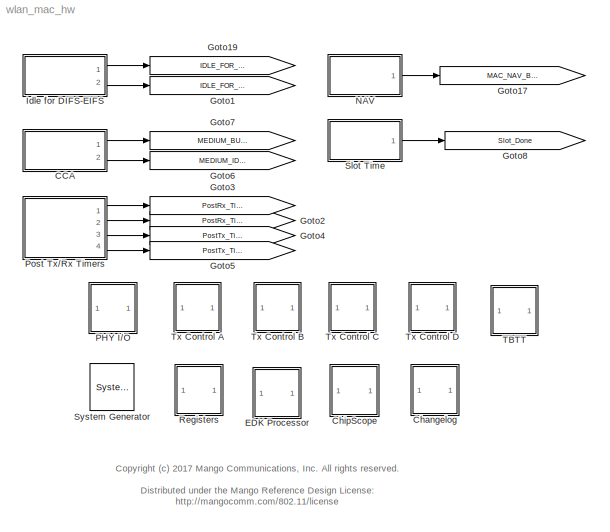
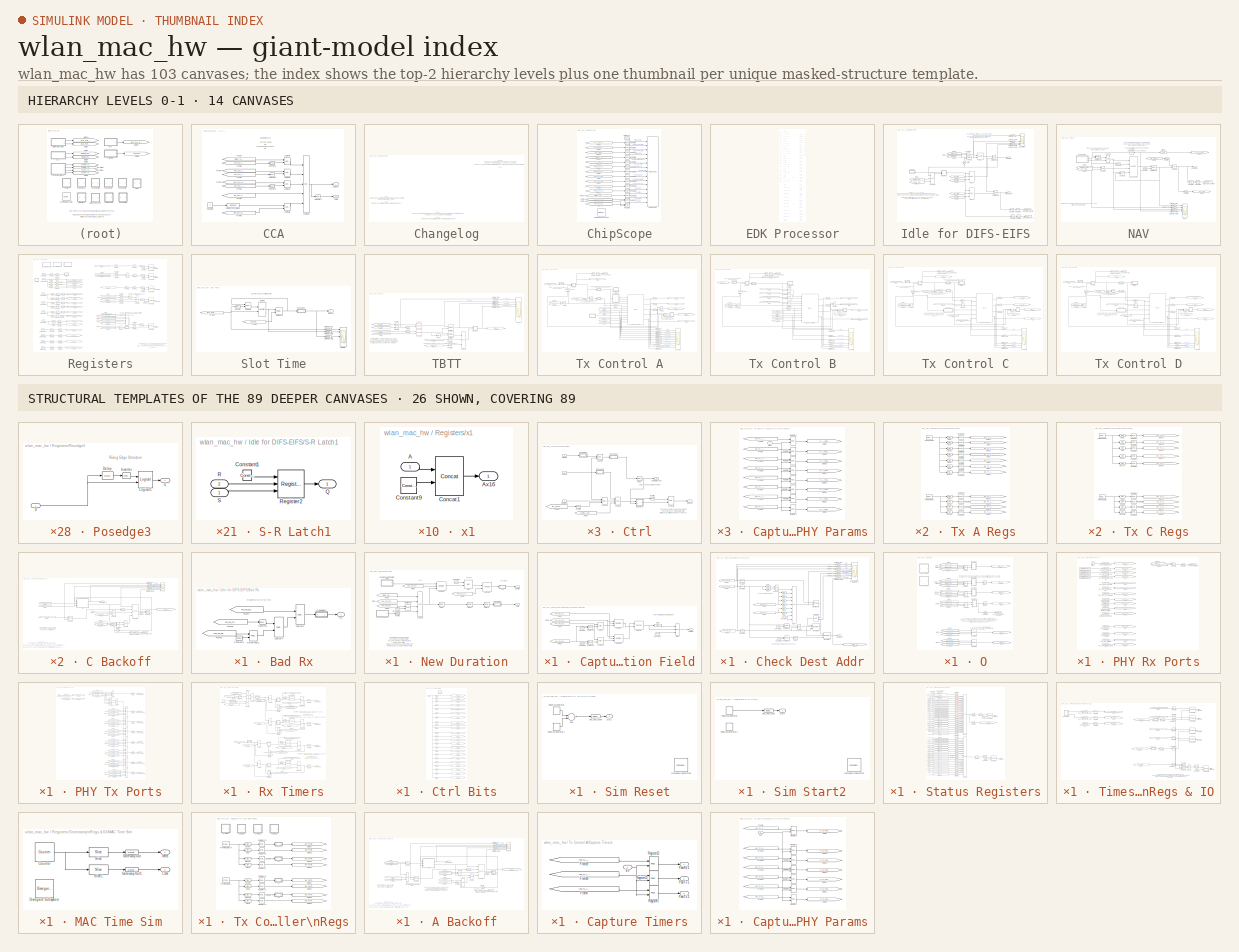
[diagram: thumbnail index - top-2 hierarchy levels (14 canvases) + 26 structural-template representatives of the remaining 89 canvases]
MODEL wlan_mac_hw
KIND model
CONFIG InitFcn = wlan_mac_hw_init
CONFIG PostLoadFcn = wlan_mac_hw_init
CONFIG StartFcn = wlan_mac_hw_init
BLOCK [Reference]  System Generator  REF=xbsIndex_r4/ System Generator
  AttributesFormatString = System\\nGenerator
  Impl_file = ISE Defaults
  Ports = []
  SID = 3
  SourceBlock = xbsIndex_r4/ System Generator
  SourceType = Xilinx System Generator Block
  Synth_file = XST Defaults
  Tag = genX
  UserData = DataTag0
  UserDataPersistent = on
  block_type = sysgen
  clock_wrapper = Clock Enables
  core_generation = According to Block Masks
  dbl_ovrd = According to Block Masks
  dcm_input_clock_period = 10
  deprecated_control = off
  directory = ./pcore_v201k
  eval_field = 0
  has_advanced_control = 0
  incr_netlist = off
  infoedit = System Generator
  package = ff1156
  part = xc6vlx240t
  proj_type = Project Navigator
  run_coregen = off
  sg_icon_stat = 44,47,0,0,token,white,0,58c5b5770fe5f7c311f53dbc6e73f0f6,right,,[ ],[ ]
  sg_mask_display = fprintf('','COMMENT: begin icon graphics');\npatch([0 44 44 0 0 ],[0 0 47 47 0 ],[1 1 1 ]);\npatch([1.975 14.98 23.98 32.98 41.98 23.98 10.975 1.975 ],[32.99 32.99 41.99 32.99 41.99 41.99 41.99 32.99 ],[0.933333 0.203922 0.141176 ]);\npatch([10.975 23.98 14.98 1.975 10.975 ],[23.99 23.99 32.99 32.99 23.99 ],[0.698039 0.0313725 0.219608 ]);\npatch([1.975 14.98 23.98 10.975 1.975 ],[14.99 14.99 23.9...<+298ch>
  sggui_pos = 33,666,464,470
  simulink_period = 1
  speed = -2
  synthesis_tool = XST
  sysclk_period = 10
  testbench = off
  trim_vbits = Everywhere in SubSystem
  xilinxfamily = virtex6
BLOCK [SubSystem] CCA
  FunctionWithSeparateData = off
  MaskHideContents = off
  MinAlgLoopOccurrences = off
  Opaque = off
  Ports = [0, 2]
  PropExecContextOutsideSubsystem = off
  RTWSystemCode = Auto
  RequestExecContextInheritance = off
  SID = 459
BLOCK [Outport] CCA/CS Busy
  IconDisplay = Port number
  SID = 615
BLOCK [Outport] CCA/CS Idle
  IconDisplay = Port number
  Port = 2
  SID = 1412
BLOCK [Constant] CCA/Constant
  SID = 4196
  Value = 0
BLOCK [Reference] CCA/FORCE_CCA_BUSY  REF=xbsIndex_r4/Gateway In
  ADCChannel = '1'
  LOCs = {}
  Ports = [1, 1]
  SID = 4192
  SourceBlock = xbsIndex_r4/Gateway In
  SourceType = Xilinx Gateway In Block
  UseAsADC = off
  arith_type = Boolean
  bin_pt = 0
  block_type = gatewayin
  dbl_ovrd = off
  exp_width = 8
  frac_width = 24
  gui_display_data_type = Boolean
  has_advanced_control = 0
  hdl_port = on
  infoedit = Gateway in block.  Converts inputs of type Simulink integer, single, double and fixed-point to  Xilinx fixed-point or floating-point data type.<br><br>Hardware notes:  In hardware these blocks become top level input ports.  <repeated x51 — deduplicated; at blocks: FORCE_CCA_BUSY, AXI_ARESETN, S_AXI_ARADDR, S_AXI_ARBURST, S_AXI_ARCACHE, S_AXI_ARID, S_AXI_ARLEN, S_AXI_ARLOCK, S_AXI_ARPROT, S_AXI_ARSIZE, S_AXI_ARVALID, S_AXI_AWADDR, S_AXI_AWBURST, S_AXI_AWCACHE, S_AXI_AWID, S_AXI_AWLEN, +35 more>
  inherit_from_input = off
  locs_specified = off
  n_bits = 1
  overflow = Saturate
  period = 1
  preci_type = Single
  quantization = Round  (unbiased: +/- Inf)
  sg_icon_stat = 65,20,1,1,white,yellow,1,00d3666e,right,,[ ],[ ]
  sg_mask_display = fprintf('','COMMENT: begin icon graphics');\npatch([0 65 65 0 0 ],[0 0 20 20 0 ],[0.95 0.93 0.65 ]);\nplot([0 65 65 0 0 ],[0 0 20 20 0 ]);\npatch([27.55 30.44 32.44 34.44 36.44 32.44 29.55 27.55 ],[12.22 12.22 14.22 12.22 14.22 14.22 14.22 12.22 ],[1 1 1 ]);\npatch([29.55 32.44 30.44 27.55 29.55 ],[10.22 10.22 12.22 12.22 10.22 ],[0.985 0.979 0.895 ]);\npatch([27.55 30.44 32.44 29.55 27.55 ],[8.22...<+396ch>  <repeated x47 — deduplicated; at blocks: FORCE_CCA_BUSY, AXI_ARESETN, S_AXI_ARADDR, S_AXI_ARBURST, S_AXI_ARCACHE, S_AXI_ARID, S_AXI_ARLEN, S_AXI_ARLOCK, S_AXI_ARPROT, S_AXI_ARSIZE, S_AXI_ARVALID, S_AXI_AWADDR, S_AXI_AWBURST, S_AXI_AWCACHE, S_AXI_AWID, S_AXI_AWLEN, +31 more>
  sggui_pos = -1,-1,-1,-1
  timing_constraint = None
  xl_area = [0,0,0,0,0,0,0]
  xl_use_area = off
BLOCK [From] CCA/From1
  GotoTag = MAC_NAV_BUSY
  SID = 2001
  TagVisibility = global
BLOCK [From] CCA/From2
  GotoTag = reg_CCA_Ignore_NAV
  SID = 2002
  TagVisibility = global
BLOCK [From] CCA/From3
  GotoTag = reg_CCA_Force_Busy
  SID = 3496
  TagVisibility = global
BLOCK [From] CCA/From4
  GotoTag = PHY_CCA_IND_BUSY
  SID = 2006
  TagVisibility = global
BLOCK [From] CCA/From5
  GotoTag = reg_CCA_Ignore_PHY_CS
  SID = 2004
  TagVisibility = global
BLOCK [From] CCA/From6
  GotoTag = reg_CCA_En_Busy_Input
  SID = 4194
  TagVisibility = global
BLOCK [From] CCA/From7
  GotoTag = Status_Tx_PHY_Active
  SID = 2010
  TagVisibility = global
BLOCK [From] CCA/From8
  GotoTag = reg_CCA_Ignore_TxBusy
  SID = 2008
  TagVisibility = global
BLOCK [Reference] CCA/Inverter1  REF=xbsIndex_r4/Inverter
  Ports = [1, 1]
  SID = 1413
  SourceBlock = xbsIndex_r4/Inverter
  SourceType = Xilinx Inverter Block
  block_type = inv
  block_version = VER_STRING_GOES_HERE
  dbl_ovrd = off
  en = off
  has_advanced_control = 0
  infoedit = Bitwise logical negation (one's complement) operator.
  latency = 0
  sg_icon_stat = 25,18,1,1,white,blue,0,267846e5,right,,[ ],[ ]
  sg_mask_display = fprintf('','COMMENT: begin icon graphics');\npatch([0 25 25 0 0 ],[0 0 18 18 0 ],[0.77 0.82 0.91 ]);\nplot([0 25 25 0 0 ],[0 0 18 18 0 ]);\npatch([7.55 10.44 12.44 14.44 16.44 12.44 9.55 7.55 ],[11.22 11.22 13.22 11.22 13.22 13.22 13.22 11.22 ],[1 1 1 ]);\npatch([9.55 12.44 10.44 7.55 9.55 ],[9.22 9.22 11.22 11.22 9.22 ],[0.931 0.946 0.973 ]);\npatch([7.55 10.44 12.44 9.55 7.55 ],[7.22 7.22 9.22 9...<+287ch>  <repeated x60 — deduplicated; at blocks: Inverter1, Inverter2, Inverter3, Inverter4, Inverter, Inverter5, Inverter6, Inverter7, Inverter8>
  sggui_pos = -1,-1,-1,-1
  xl_area = [0 0 0 0 0 0 0]
  xl_use_area = off
BLOCK [Reference] CCA/Inverter2  REF=xbsIndex_r4/Inverter
  Ports = [1, 1]
  SID = 2011
  SourceBlock = xbsIndex_r4/Inverter
  SourceType = Xilinx Inverter Block
  block_type = inv
  block_version = VER_STRING_GOES_HERE
  dbl_ovrd = off
  en = off
  has_advanced_control = 0
  infoedit = Bitwise logical negation (one's complement) operator.
  latency = 0
  sg_icon_stat = 25,18,1,1,white,blue,0,267846e5,right,,[ ],[ ]
  sggui_pos = -1,-1,-1,-1
  xl_area = [0 0 0 0 0 0 0]
  xl_use_area = off
BLOCK [Reference] CCA/Inverter3  REF=xbsIndex_r4/Inverter
  Ports = [1, 1]
  SID = 2012
  SourceBlock = xbsIndex_r4/Inverter
  SourceType = Xilinx Inverter Block
  block_type = inv
  block_version = VER_STRING_GOES_HERE
  dbl_ovrd = off
  en = off
  has_advanced_control = 0
  infoedit = Bitwise logical negation (one's complement) operator.
  latency = 0
  sg_icon_stat = 25,18,1,1,white,blue,0,267846e5,right,,[ ],[ ]
  sggui_pos = -1,-1,-1,-1
  xl_area = [0 0 0 0 0 0 0]
  xl_use_area = off
BLOCK [Reference] CCA/Inverter4  REF=xbsIndex_r4/Inverter
  Ports = [1, 1]
  SID = 2013
  SourceBlock = xbsIndex_r4/Inverter
  SourceType = Xilinx Inverter Block
  block_type = inv
  block_version = VER_STRING_GOES_HERE
  dbl_ovrd = off
  en = off
  has_advanced_control = 0
  infoedit = Bitwise logical negation (one's complement) operator.
  latency = 0
  sg_icon_stat = 25,18,1,1,white,blue,0,267846e5,right,,[ ],[ ]
  sggui_pos = -1,-1,-1,-1
  xl_area = [0 0 0 0 0 0 0]
  xl_use_area = off
BLOCK [Reference] CCA/Logical1  REF=xbsIndex_r4/Logical
  Ports = [2, 1]
  SID = 2000
  SourceBlock = xbsIndex_r4/Logical
  SourceType = Xilinx Logical Block Block
  align_bp = on
  arith_type = Unsigned
  bin_pt = 0
  block_type = logical
  dbl_ovrd = off
  en = off
  has_advanced_control = 0
  inputs = 2
  latency = 0
  logical_function = AND
  n_bits = 16
  precision = Full
  sg_icon_stat = 30,38,2,1,white,blue,0,83a4b621,right,,[ ],[ ]
  sg_mask_display = fprintf('','COMMENT: begin icon graphics');\npatch([0 30 30 0 0 ],[0 0 38 38 0 ],[0.77 0.82 0.91 ]);\nplot([0 30 30 0 0 ],[0 0 38 38 0 ]);\npatch([6.1 11.88 15.88 19.88 23.88 15.88 10.1 6.1 ],[23.44 23.44 27.44 23.44 27.44 27.44 27.44 23.44 ],[1 1 1 ]);\npatch([10.1 15.88 11.88 6.1 10.1 ],[19.44 19.44 23.44 23.44 19.44 ],[0.931 0.946 0.973 ]);\npatch([6.1 11.88 15.88 10.1 6.1 ],[15.44 15.44 19.44 ...<+298ch>  <repeated x4 — deduplicated; at blocks: Logical1, Logical2, Logical4, Logical5>
  sggui_pos = -1,-1,-1,-1
  xl_area = [0,0,0,0,0,0,0]
  xl_use_area = off
BLOCK [Reference] CCA/Logical2  REF=xbsIndex_r4/Logical
  Ports = [2, 1]
  SID = 2005
  SourceBlock = xbsIndex_r4/Logical
  SourceType = Xilinx Logical Block Block
  align_bp = on
  arith_type = Unsigned
  bin_pt = 0
  block_type = logical
  dbl_ovrd = off
  en = off
  has_advanced_control = 0
  inputs = 2
  latency = 0
  logical_function = AND
  n_bits = 16
  precision = Full
  sg_icon_stat = 30,38,2,1,white,blue,0,83a4b621,right,,[ ],[ ]
  sggui_pos = -1,-1,-1,-1
  xl_area = [0,0,0,0,0,0,0]
  xl_use_area = off
BLOCK [Reference] CCA/Logical3  REF=xbsIndex_r4/Logical
  Ports = [5, 1]
  SID = 455
  SourceBlock = xbsIndex_r4/Logical
  SourceType = Xilinx Logical Block Block
  align_bp = on
  arith_type = Unsigned
  bin_pt = 0
  block_type = logical
  dbl_ovrd = off
  en = off
  has_advanced_control = 0
  inputs = 5
  latency = 0
  logical_function = OR
  n_bits = 16
  precision = Full
  sg_icon_stat = 30,300,5,1,white,blue,0,d9ddc810,right,,[ ],[ ]
  sg_mask_display = fprintf('','COMMENT: begin icon graphics');\npatch([0 30 30 0 0 ],[0 0 300 300 0 ],[0.77 0.82 0.91 ]);\nplot([0 30 30 0 0 ],[0 0 300 300 0 ]);\npatch([6.1 11.88 15.88 19.88 23.88 15.88 10.1 6.1 ],[154.44 154.44 158.44 154.44 158.44 158.44 158.44 154.44 ],[1 1 1 ]);\npatch([10.1 15.88 11.88 6.1 10.1 ],[150.44 150.44 154.44 154.44 150.44 ],[0.931 0.946 0.973 ]);\npatch([6.1 11.88 15.88 10.1 6.1 ],[1...<+332ch>
  sggui_pos = -1,-1,-1,-1
  xl_area = [0,0,0,0,0,0,0]
  xl_use_area = off
BLOCK [Reference] CCA/Logical4  REF=xbsIndex_r4/Logical
  Ports = [2, 1]
  SID = 2009
  SourceBlock = xbsIndex_r4/Logical
  SourceType = Xilinx Logical Block Block
  align_bp = on
  arith_type = Unsigned
  bin_pt = 0
  block_type = logical
  dbl_ovrd = off
  en = off
  has_advanced_control = 0
  inputs = 2
  latency = 0
  logical_function = AND
  n_bits = 16
  precision = Full
  sg_icon_stat = 30,38,2,1,white,blue,0,83a4b621,right,,[ ],[ ]
  sggui_pos = -1,-1,-1,-1
  xl_area = [0,0,0,0,0,0,0]
  xl_use_area = off
BLOCK [Reference] CCA/Logical5  REF=xbsIndex_r4/Logical
  Ports = [2, 1]
  SID = 4193
  SourceBlock = xbsIndex_r4/Logical
  SourceType = Xilinx Logical Block Block
  align_bp = on
  arith_type = Unsigned
  bin_pt = 0
  block_type = logical
  dbl_ovrd = off
  en = off
  has_advanced_control = 0
  inputs = 2
  latency = 0
  logical_function = AND
  n_bits = 16
  precision = Full
  sg_icon_stat = 30,38,2,1,white,blue,0,83a4b621,right,,[ ],[ ]
  sggui_pos = -1,-1,-1,-1
  xl_area = [0,0,0,0,0,0,0]
  xl_use_area = off
BLOCK [SubSystem] Changelog
  FunctionWithSeparateData = off
  MaskHideContents = off
  MinAlgLoopOccurrences = off
  Opaque = off
  Ports = []
  PropExecContextOutsideSubsystem = off
  RTWSystemCode = Auto
  RequestExecContextInheritance = off
  SID = 1402
BLOCK [SubSystem] ChipScope
  FunctionWithSeparateData = off
  MaskHideContents = off
  MinAlgLoopOccurrences = off
  Opaque = off
  Ports = []
  PropExecContextOutsideSubsystem = off
  RTWSystemCode = Auto
  RequestExecContextInheritance = off
  SID = 1254
BLOCK [Reference] ChipScope/4-bit Count  REF=xbsIndex_r4/Counter
  Ports = [0, 1]
  SID = 1240
  SourceBlock = xbsIndex_r4/Counter
  SourceType = Xilinx Counter Block
  arith_type = Unsigned
  bin_pt = 0
  block_type = counter
  cnt_by_val = 1
  cnt_to = Inf
  cnt_type = Free Running
  dbl_ovrd = off
  en = off
  explicit_period = on
  has_advanced_control = 0
  implementation = Fabric
  infoedit = Hardware notes: Free running counters are the least expensive in hardware.  A count limited counter is implemented by combining a counter with a comparator.
  load_pin = off
  n_bits = 4
  operation = Up
  period = 1
  rst = off
  sg_icon_stat = 35,20,0,1,white,blue,0,7ac47ef5,right,,[ ],[ ]
  sg_mask_display = fprintf('','COMMENT: begin icon graphics');\npatch([0 35 35 0 0 ],[0 0 20 20 0 ],[0.77 0.82 0.91 ]);\nplot([0 35 35 0 0 ],[0 0 20 20 0 ]);\npatch([12.55 15.44 17.44 19.44 21.44 17.44 14.55 12.55 ],[12.22 12.22 14.22 12.22 14.22 14.22 14.22 12.22 ],[1 1 1 ]);\npatch([14.55 17.44 15.44 12.55 14.55 ],[10.22 10.22 12.22 12.22 10.22 ],[0.931 0.946 0.973 ]);\npatch([12.55 15.44 17.44 14.55 12.55 ],[8.22...<+336ch>
  sggui_pos = -1,-1,-1,-1
  start_count = 0
  use_behavioral_HDL = off
  xl_area = [0,0,0,0,0,0,0]
  xl_use_area = off
BLOCK [Reference] ChipScope/ChipScope  REF=xbsIndex_r4/ChipScope
  Ports = [15]
  SID = 1167
  SRL16s = on
  SourceBlock = xbsIndex_r4/ChipScope
  SourceType = Xilinx ChipScope Block
  add_bufg = on
  block_type = chipscope
  current_port = 9
  data_depth = 4096
  data_is_trigger = on
  dbl_ovrd = 0
  has_advanced_control = 0
  infoedit = Enables run-time debugging and verification of signals by inserting ChipScope Pro ICON and ILA cores.<br><br>  Restrictions: <br>Only one ChipScope core can be instantiated in a System Generator design. A design or subsystem containing a ChipScope block must have at least one output port.
  match_type = Basic with edges
  match_type_t0 = 2
  match_type_t1 = 2
  match_type_t10 = 1
  match_type_t11 = 1
  match_type_t12 = 1
  match_type_t13 = 1
  match_type_t14 = 1
  match_type_t15 = 1
  match_type_t2 = 2
  match_type_t3 = 2
  match_type_t4 = 2
  match_type_t5 = 2
  match_type_t6 = 2
  match_type_t7 = 2
  match_type_t8 = 2
  match_type_t9 = 2
  match_units = 1
  match_units_t0 = 1
  match_units_t1 = 1
  match_units_t10 = 1
  match_units_t11 = 1
  match_units_t12 = 1
  match_units_t13 = 1
  match_units_t14 = 1
  match_units_t15 = 1
  match_units_t2 = 1
  match_units_t3 = 1
  match_units_t4 = 1
  match_units_t5 = 1
  match_units_t6 = 1
  match_units_t7 = 1
  match_units_t8 = 1
  match_units_t9 = 1
  num_data_ports = 1
  num_trig_ports = 15
  sg_icon_stat = 80,508,15,0,white,blue,0,de2e5829,right,,[ ],[ ]
  sg_mask_display = fprintf('','COMMENT: begin icon graphics');\npatch([0 80 80 0 0 ],[0 0 508 508 0 ],[0.77 0.82 0.91 ]);\nplot([0 80 80 0 0 ],[0 0 508 508 0 ]);\npatch([15.525 31.42 42.42 53.42 64.42 42.42 26.525 15.525 ],[266.21 266.21 277.21 266.21 277.21 277.21 277.21 266.21 ],[1 1 1 ]);\npatch([26.525 42.42 31.42 15.525 26.525 ],[255.21 255.21 266.21 266.21 255.21 ],[0.931 0.946 0.973 ]);\npatch([15.525 31.42 4...<+1142ch>
  sggui_pos = -1,-1,-1,-1
  show_trig_port = 0
  user_scan_chain = USER1
BLOCK [Reference] ChipScope/Disregard Subsystem  REF=xbsIndex_r4/Disregard Subsystem
  AttributesFormatString = Disregard Subsystem\\nFor Generation
  Ports = []
  SID = 1419
  SourceBlock = xbsIndex_r4/Disregard Subsystem
  SourceType = Xilinx Disregard Subsystem For Generation Block
  Tag = discardX
  block_type = disregard
  has_advanced_control = 0
  infoedit = Place this block into a subsystem to have System Generator ignore the subsystem during code generation. This block can be used in combination with the Simulation Multiplexer block to provide an alternative simulation model for another subsystem (e.g., to provide a simulation model for a black box).  <repeated x4 — deduplicated; at blocks: Disregard Subsystem>
  sg_icon_stat = 58,58,-1,-1,darkgray,black,0,07734,right,,[ ],[ ]
  sg_mask_display = fprintf('','COMMENT: begin icon graphics');\npatch([0 58 58 0 0 ],[0 0 58 58 0 ],[0.1 0.1 0.1 ]);\nplot([0 58 58 0 0 ],[0 0 58 58 0 ]);\npatch([11.2 22.76 30.76 38.76 46.76 30.76 19.2 11.2 ],[37.88 37.88 45.88 37.88 45.88 45.88 45.88 37.88 ],[0.33 0.33 0.33 ]);\npatch([19.2 30.76 22.76 11.2 19.2 ],[29.88 29.88 37.88 37.88 29.88 ],[0.261 0.261 0.261 ]);\npatch([11.2 22.76 30.76 19.2 11.2 ],[21.88 2...<+284ch>  <repeated x4 — deduplicated; at blocks: Disregard Subsystem>
  sggui_pos = -1,-1,-1,-1
BLOCK [From] ChipScope/From
  GotoTag = PHY_RX_END_IND
  SID = 1194
  TagVisibility = global
BLOCK [From] ChipScope/From1
  GotoTag = Tx_B_PHY_Start
  SID = 1174
  TagVisibility = global
BLOCK [From] ChipScope/From10
  GotoTag = reg_status
  SID = 1224
  TagVisibility = global
BLOCK [From] ChipScope/From11
  GotoTag = PostRx_Timer1_Done
  SID = 2936
  TagVisibility = global
BLOCK [From] ChipScope/From12
  GotoTag = MAC_NAV_BUSY
  SID = 1200
  TagVisibility = global
BLOCK [From] ChipScope/From18
  GotoTag = Tx_A_Backoff_Start
  SID = 1213
  TagVisibility = global
BLOCK [From] ChipScope/From19
  GotoTag = Status_Tx_PHY_Active
  SID = 1215
  TagVisibility = global
BLOCK [From] ChipScope/From2
  GotoTag = PHY_RX_BYTE_VALID
  SID = 1190
  TagVisibility = global
BLOCK [From] ChipScope/From3
  GotoTag = Tx_A_PHY_Start
  SID = 1176
  TagVisibility = global
BLOCK [From] ChipScope/From4
  GotoTag = PHY_RX_BYTE
  SID = 1191
  TagVisibility = global
BLOCK [From] ChipScope/From5
  GotoTag = PHY_RX_BYTENUM
  SID = 1192
  TagVisibility = global
BLOCK [From] ChipScope/From6
  GotoTag = PHY_RX_FCS_GOOD_IND
  SID = 1195
  TagVisibility = global
BLOCK [From] ChipScope/From7
  GotoTag = PHY_RX_END_RXERROR
  SID = 1196
  TagVisibility = global
BLOCK [From] ChipScope/From8
  GotoTag = PHY_RX_START_IND
  SID = 1193
  TagVisibility = global
BLOCK [From] ChipScope/From9
  GotoTag = PHY_CCA_IND_BUSY
  SID = 1197
  TagVisibility = global
BLOCK [Reference] ChipScope/Register  REF=xbsIndex_r4/Register
  Ports = [2, 1]
  SID = 1225
  SourceBlock = xbsIndex_r4/Register
  SourceType = Xilinx Register Block
  block_type = register
  dbl_ovrd = off
  en = on
  has_advanced_control = 0
  init = 0
  rst = off
  sg_icon_stat = 30,29,2,1,white,blue,0,6bd0930c,right,,[ ],[ ]
  sg_mask_display = fprintf('','COMMENT: begin icon graphics');\npatch([0 30 30 0 0 ],[0 0 29 29 0 ],[0.77 0.82 0.91 ]);\nplot([0 30 30 0 0 ],[0 0 29 29 0 ]);\npatch([6.1 11.88 15.88 19.88 23.88 15.88 10.1 6.1 ],[18.44 18.44 22.44 18.44 22.44 22.44 22.44 18.44 ],[1 1 1 ]);\npatch([10.1 15.88 11.88 6.1 10.1 ],[14.44 14.44 18.44 18.44 14.44 ],[0.931 0.946 0.973 ]);\npatch([6.1 11.88 15.88 10.1 6.1 ],[10.44 10.44 14.44 ...<+437ch>  <repeated x4 — deduplicated; at blocks: Register, Register1, Register11, Register9>
  sggui_pos = -1,-1,-1,-1
  xl_area = [0,0,0,0,0,0,0]
  xl_use_area = off
BLOCK [Reference] ChipScope/Register1  REF=xbsIndex_r4/Register
  Ports = [2, 1]
  SID = 1226
  SourceBlock = xbsIndex_r4/Register
  SourceType = Xilinx Register Block
  block_type = register
  dbl_ovrd = off
  en = on
  has_advanced_control = 0
  init = 0
  rst = off
  sg_icon_stat = 30,29,2,1,white,blue,0,6bd0930c,right,,[ ],[ ]
  sggui_pos = -1,-1,-1,-1
  xl_area = [0,0,0,0,0,0,0]
  xl_use_area = off
BLOCK [Reference] ChipScope/Register10  REF=xbsIndex_r4/Register
  Ports = [1, 1]
  SID = 1235
  SourceBlock = xbsIndex_r4/Register
  SourceType = Xilinx Register Block
  block_type = register
  dbl_ovrd = off
  en = off
  has_advanced_control = 0
  init = 0
  rst = off
  sg_icon_stat = 30,28,1,1,white,blue,0,c80657c5,right,,[ ],[ ]
  sg_mask_display = fprintf('','COMMENT: begin icon graphics');\npatch([0 30 30 0 0 ],[0 0 28 28 0 ],[0.77 0.82 0.91 ]);\nplot([0 30 30 0 0 ],[0 0 28 28 0 ]);\npatch([6.1 11.88 15.88 19.88 23.88 15.88 10.1 6.1 ],[18.44 18.44 22.44 18.44 22.44 22.44 22.44 18.44 ],[1 1 1 ]);\npatch([10.1 15.88 11.88 6.1 10.1 ],[14.44 14.44 18.44 18.44 14.44 ],[0.931 0.946 0.973 ]);\npatch([6.1 11.88 15.88 10.1 6.1 ],[10.44 10.44 14.44 ...<+393ch>  <repeated x148 — deduplicated; at blocks: Register10, Register11, Register12, Register13, Register2, Register3, Register4, Register5, Register6, Register7, Register8, Register9, Register1, Register14, Register15, Register16, +47 more>
  sggui_pos = -1,-1,-1,-1
  xl_area = [0,0,0,0,0,0,0]
  xl_use_area = off
BLOCK [Reference] ChipScope/Register11  REF=xbsIndex_r4/Register
  Ports = [1, 1]
  SID = 1236
  SourceBlock = xbsIndex_r4/Register
  SourceType = Xilinx Register Block
  block_type = register
  dbl_ovrd = off
  en = off
  has_advanced_control = 0
  init = 0
  rst = off
  sg_icon_stat = 30,28,1,1,white,blue,0,c80657c5,right,,[ ],[ ]
  sggui_pos = -1,-1,-1,-1
  xl_area = [0,0,0,0,0,0,0]
  xl_use_area = off
BLOCK [Reference] ChipScope/Register12  REF=xbsIndex_r4/Register
  Ports = [1, 1]
  SID = 1237
  SourceBlock = xbsIndex_r4/Register
  SourceType = Xilinx Register Block
  block_type = register
  dbl_ovrd = off
  en = off
  has_advanced_control = 0
  init = 0
  rst = off
  sg_icon_stat = 30,28,1,1,white,blue,0,c80657c5,right,,[ ],[ ]
  sggui_pos = -1,-1,-1,-1
  xl_area = [0,0,0,0,0,0,0]
  xl_use_area = off
BLOCK [Reference] ChipScope/Register13  REF=xbsIndex_r4/Register
  Ports = [1, 1]
  SID = 1238
  SourceBlock = xbsIndex_r4/Register
  SourceType = Xilinx Register Block
  block_type = register
  dbl_ovrd = off
  en = off
  has_advanced_control = 0
  init = 0
  rst = off
  sg_icon_stat = 30,28,1,1,white,blue,0,c80657c5,right,,[ ],[ ]
  sggui_pos = -1,-1,-1,-1
  xl_area = [0,0,0,0,0,0,0]
  xl_use_area = off
BLOCK [Reference] ChipScope/Register2  REF=xbsIndex_r4/Register
  Ports = [1, 1]
  SID = 1227
  SourceBlock = xbsIndex_r4/Register
  SourceType = Xilinx Register Block
  block_type = register
  dbl_ovrd = off
  en = off
  has_advanced_control = 0
  init = 0
  rst = off
  sg_icon_stat = 30,28,1,1,white,blue,0,c80657c5,right,,[ ],[ ]
  sggui_pos = -1,-1,-1,-1
  xl_area = [0,0,0,0,0,0,0]
  xl_use_area = off
BLOCK [Reference] ChipScope/Register3  REF=xbsIndex_r4/Register
  Ports = [1, 1]
  SID = 1228
  SourceBlock = xbsIndex_r4/Register
  SourceType = Xilinx Register Block
  block_type = register
  dbl_ovrd = off
  en = off
  has_advanced_control = 0
  init = 0
  rst = off
  sg_icon_stat = 30,28,1,1,white,blue,0,c80657c5,right,,[ ],[ ]
  sggui_pos = -1,-1,-1,-1
  xl_area = [0,0,0,0,0,0,0]
  xl_use_area = off
BLOCK [Reference] ChipScope/Register4  REF=xbsIndex_r4/Register
  Ports = [1, 1]
  SID = 1229
  SourceBlock = xbsIndex_r4/Register
  SourceType = Xilinx Register Block
  block_type = register
  dbl_ovrd = off
  en = off
  has_advanced_control = 0
  init = 0
  rst = off
  sg_icon_stat = 30,28,1,1,white,blue,0,c80657c5,right,,[ ],[ ]
  sggui_pos = -1,-1,-1,-1
  xl_area = [0,0,0,0,0,0,0]
  xl_use_area = off
BLOCK [Reference] ChipScope/Register5  REF=xbsIndex_r4/Register
  Ports = [1, 1]
  SID = 1230
  SourceBlock = xbsIndex_r4/Register
  SourceType = Xilinx Register Block
  block_type = register
  dbl_ovrd = off
  en = off
  has_advanced_control = 0
  init = 0
  rst = off
  sg_icon_stat = 30,28,1,1,white,blue,0,c80657c5,right,,[ ],[ ]
  sggui_pos = -1,-1,-1,-1
  xl_area = [0,0,0,0,0,0,0]
  xl_use_area = off
BLOCK [Reference] ChipScope/Register6  REF=xbsIndex_r4/Register
  Ports = [1, 1]
  SID = 1231
  SourceBlock = xbsIndex_r4/Register
  SourceType = Xilinx Register Block
  block_type = register
  dbl_ovrd = off
  en = off
  has_advanced_control = 0
  init = 0
  rst = off
  sg_icon_stat = 30,28,1,1,white,blue,0,c80657c5,right,,[ ],[ ]
  sggui_pos = -1,-1,-1,-1
  xl_area = [0,0,0,0,0,0,0]
  xl_use_area = off
BLOCK [Reference] ChipScope/Register7  REF=xbsIndex_r4/Register
  Ports = [1, 1]
  SID = 1232
  SourceBlock = xbsIndex_r4/Register
  SourceType = Xilinx Register Block
  block_type = register
  dbl_ovrd = off
  en = off
  has_advanced_control = 0
  init = 0
  rst = off
  sg_icon_stat = 30,28,1,1,white,blue,0,c80657c5,right,,[ ],[ ]
  sggui_pos = -1,-1,-1,-1
  xl_area = [0,0,0,0,0,0,0]
  xl_use_area = off
BLOCK [Reference] ChipScope/Register8  REF=xbsIndex_r4/Register
  Ports = [1, 1]
  SID = 1233
  SourceBlock = xbsIndex_r4/Register
  SourceType = Xilinx Register Block
  block_type = register
  dbl_ovrd = off
  en = off
  has_advanced_control = 0
  init = 0
  rst = off
  sg_icon_stat = 30,28,1,1,white,blue,0,c80657c5,right,,[ ],[ ]
  sggui_pos = -1,-1,-1,-1
  xl_area = [0,0,0,0,0,0,0]
  xl_use_area = off
BLOCK [Reference] ChipScope/Register9  REF=xbsIndex_r4/Register
  Ports = [1, 1]
  SID = 1234
  SourceBlock = xbsIndex_r4/Register
  SourceType = Xilinx Register Block
  block_type = register
  dbl_ovrd = off
  en = off
  has_advanced_control = 0
  init = 0
  rst = off
  sg_icon_stat = 30,28,1,1,white,blue,0,c80657c5,right,,[ ],[ ]
  sggui_pos = -1,-1,-1,-1
  xl_area = [0,0,0,0,0,0,0]
  xl_use_area = off
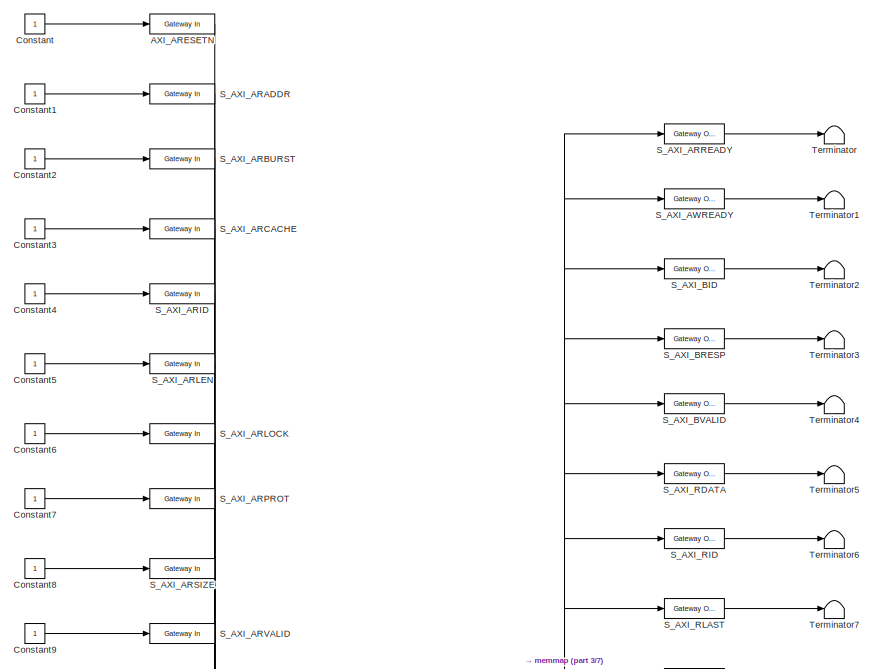
[diagram: EDK Processor - part 1/7, full width, top band]
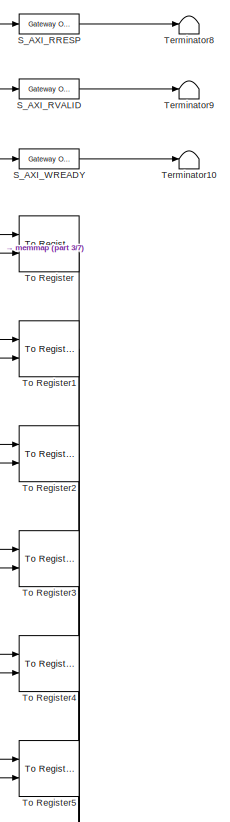
[diagram: EDK Processor - part 2/7, middle right region]
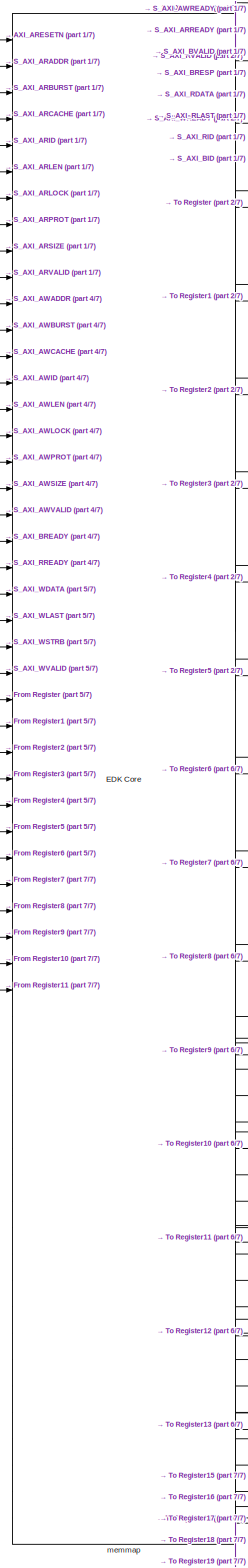
[diagram: EDK Processor - part 3/7, central region]
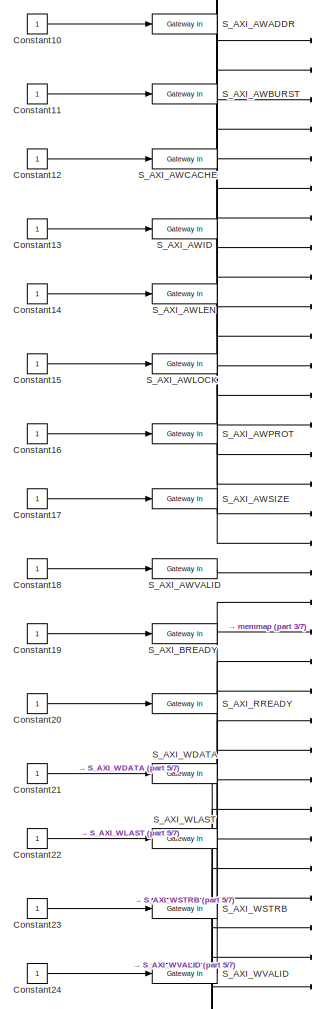
[diagram: EDK Processor - part 4/7, middle left region]
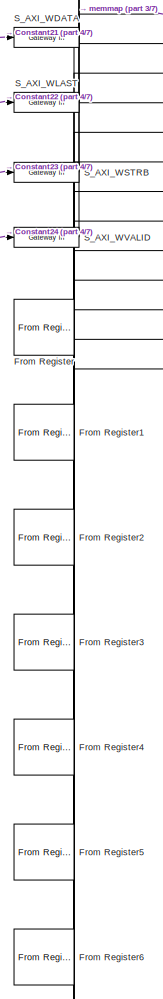
[diagram: EDK Processor - part 5/7, middle left region]
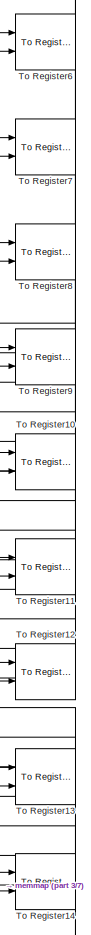
[diagram: EDK Processor - part 6/7, middle right region]
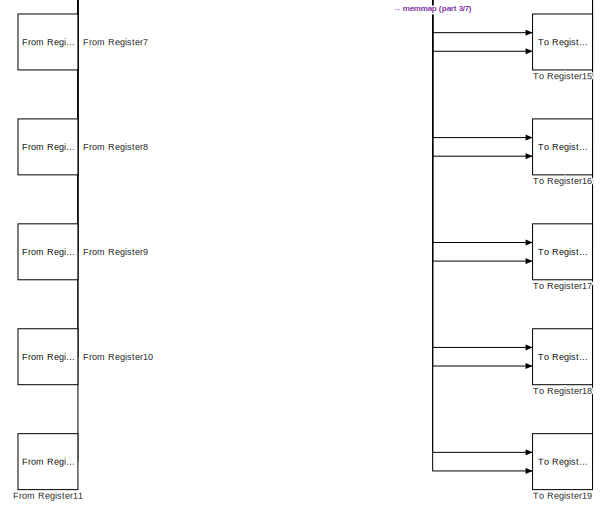
[diagram: EDK Processor - part 7/7, bottom center region]
BLOCK [SubSystem] EDK Processor
  CloseFcn = xlDestroyGui(gcbh);
  CopyFcn = xlProcBlockCopyCallback(gcbh);xlBlockMoveCallback(gcbh);
  DeleteFcn = xlDestroyGui(gcbh);
  DestroyFcn = xlDestroyGui(gcbh);
  FunctionWithSeparateData = off
  LoadFcn = xlBlockLoadCallback(gcbh);
  MaskCallbackString = |||||||||||||||||||||||||||||||||||
  MaskDescription = Xilinx EDK Processor
  MaskDisplay = fprintf('','COMMENT: begin icon graphics');\npatch([0 44 44 0 0 ],[0 0 47 47 0 ],[0.77 0.82 0.91 ]);\nplot([0 44 44 0 0 ],[0 0 47 47 0 ]);\npatch([8.65 17.32 23.32 29.32 35.32 23.32 14.65 8.65 ],[29.66 29.66 35.66 29.66 35.66 35.66 35.66 29.66 ],[1 1 1 ]);\npatch([14.65 23.32 17.32 8.65 14.65 ],[23.66 23.66 29.66 29.66 23.66 ],[0.931 0.946 0.973 ]);\npatch([8.65 17.32 23.32 14.65 8.65 ],[17.66 17....<+288ch>
  MaskEnableString = on,on,on,on,on,on,on,on,on,on,on,on,on,on,on,on,on,on,on,on,on,on,on,on,on,on,on,on,on,on,on,on,on,on,on,on
  MaskHelp = eval('');xlDoc('-book','sysgen','-topic','EDK_Processor');
  MaskHideContents = off
  MaskIconFrame = off
  MaskIconOpaque = on
  MaskIconRotate = none
  MaskIconUnits = autoscale
  MaskInitialization = try\n  tmp_gcb = gcb;\n  tmp_gcbh = gcbh;\n  if (strcmp('SysGenIndex',get_param(bdroot(tmp_gcbh),'tag')) && ~isempty(regexp(bdroot(tmp_gcb), '^xbs', 'once')))\n    return;\n  end;\n  xlMungeMaskParams;\n\n  block_type='edkprocessor';\n\n  serialized_declarations = '{''block_type''=>''String''}';\n  xledkprocessor_init();\n  ptable_ = xlblockprep(get_param(tmp_gcb, 'MaskWSVariables'));\n  try\n    ...<+321ch>
  MaskPortRotate = default
  MaskPromptString = Configure Processor for|XPS Project| |Available Memories| | |Bus Type|Base Address| |Lock| |Dual Clocks| |Register Read-Back|Constraint File| |Inherit Device Type|Initial Program| |Enable Co-Debug with Xilinx SDK (Beta)| | | | | | | | | | | | | | | |
  MaskSelfModifiable = on
  MaskStyleString = popup(EDK pcore generation|HDL netlisting),edit,edit,edit,edit,edit,popup(AXI|PLB),edit,edit,checkbox,edit,checkbox,edit,checkbox,edit,edit,checkbox,edit,edit,checkbox,edit,edit,edit,edit,edit,edit,edit,edit,edit,edit,edit,edit,edit,edit,edit,edit
  MaskToolTipString = on,on,on,on,on,on,on,on,on,on,on,on,on,on,on,on,on,on,on,on,on,on,on,on,on,on,on,on,on,on,on,on,on,on,on,on
  MaskTunableValueString = on,on,on,on,on,on,on,on,on,on,on,on,on,on,on,on,on,on,on,on,on,on,on,on,on,on,on,on,on,on,on,on,on,on,on,on
  MaskType = Xilinx EDK Processor Block
  MaskValueString = EDK pcore generation||<qt bgcolor=\"#FFFFFF\"><div><img src=\"<path>"> &lt;&lt;TX_CTRL_D_PARAMS&gt;&gt;<br></div><div><img src=\"<path>"> &lt;&lt;TX_CTRL_D_GAINS&gt;&gt;<br></div><div><img src=\"<path>"> &lt;&lt;TX_CTRL_C_PARAMS&gt;...<+8394ch>
  MaskVariables = mode=&1;xmp=&2;MemVisToProc=&3;AvailableMemories=&4;portInterfaceTable=&5;bus_type_sgadvanced=&6;bus_type=&7;baseaddr=&8;baseaddr_lock_sgadvanced=&9;baseaddr_lock=@10;dual_clock_sgadvanced=&11;dual_clock=@12;reg_readback_sgadvanced=&13;reg_readback=@14;ucf_file=&15;inheritDeviceType_sgadvanced=&16;inheritDeviceType=@17;elf_file=&18;codebug_sgadvanced=&19;codebug=@20;clock_name=&21;internalPortList...<+246ch>
  MaskVisibilityString = on,on,off,on,on,off,on,on,off,on,off,on,off,on,on,off,on,on,off,on,off,off,off,off,off,off,off,off,off,off,off,off,off,off,off,off
  MinAlgLoopOccurrences = off
  ModelCloseFcn = xlDestroyGui(gcbh);
  MoveFcn = xlBlockMoveCallback(gcbh);
  Opaque = off
  OpenFcn = bh=gcbh;xlProcBlockCallbacks('populatesharedmemorylistbox',bh);xlOpenGui(bh, 'edkprocessor_gui.xml', @xlProcBlockEnablement, @xlProcBlockAction);
  Ports = []
  PostSaveFcn = xlBlockPostSaveCallback(gcbh);
  PreSaveFcn = xlBlockPreSaveCallback(gcbh);
  PropExecContextOutsideSubsystem = off
  RTWSystemCode = Auto
  RequestExecContextInheritance = off
  SID = 4187
BLOCK [Reference] EDK Processor/AXI_ARESETN  REF=xbsIndex_r4/Gateway In
  ADCChannel = '1'
  LOCs = {}
  Ports = [1, 1]
  SID = 4187:229
  SourceBlock = xbsIndex_r4/Gateway In
  SourceType = Xilinx Gateway In Block
  UseAsADC = off
  arith_type = Boolean
  bin_pt = 14
  block_type = gatewayin
  dbl_ovrd = off
  exp_width = 8
  frac_width = 24
  gui_display_data_type = Fixed-point
  has_advanced_control = 0
  hdl_port = on
  inherit_from_input = off
  locs_specified = off
  n_bits = 16
  overflow = Saturate
  period = xlGetNormalizedPeriod()
  preci_type = Single
  quantization = Round  (unbiased: +/- Inf)
  sg_icon_stat = 65,20,1,1,white,yellow,1,00d3666e,right,,[ ],[ ]
  sggui_pos = -1,-1,-1,-1
  timing_constraint = None
  xl_area = [0,0,0,0,0,0,0]
  xl_use_area = off
BLOCK [Constant] EDK Processor/Constant
  SID = 4187:228
BLOCK [Constant] EDK Processor/Constant1
  SID = 4187:230
BLOCK [Constant] EDK Processor/Constant10
  SID = 4187:248
BLOCK [Constant] EDK Processor/Constant11
  SID = 4187:250
BLOCK [Constant] EDK Processor/Constant12
  SID = 4187:252
BLOCK [Constant] EDK Processor/Constant13
  SID = 4187:254
BLOCK [Constant] EDK Processor/Constant14
  SID = 4187:256
BLOCK [Constant] EDK Processor/Constant15
  SID = 4187:258
BLOCK [Constant] EDK Processor/Constant16
  SID = 4187:260
BLOCK [Constant] EDK Processor/Constant17
  SID = 4187:262
BLOCK [Constant] EDK Processor/Constant18
  SID = 4187:264
BLOCK [Constant] EDK Processor/Constant19
  SID = 4187:266
BLOCK [Constant] EDK Processor/Constant2
  SID = 4187:232
BLOCK [Constant] EDK Processor/Constant20
  SID = 4187:268
BLOCK [Constant] EDK Processor/Constant21
  SID = 4187:270
BLOCK [Constant] EDK Processor/Constant22
  SID = 4187:272
BLOCK [Constant] EDK Processor/Constant23
  SID = 4187:274
BLOCK [Constant] EDK Processor/Constant24
  SID = 4187:276
BLOCK [Constant] EDK Processor/Constant3
  SID = 4187:234
BLOCK [Constant] EDK Processor/Constant4
  SID = 4187:236
BLOCK [Constant] EDK Processor/Constant5
  SID = 4187:238
BLOCK [Constant] EDK Processor/Constant6
  SID = 4187:240
BLOCK [Constant] EDK Processor/Constant7
  SID = 4187:242
BLOCK [Constant] EDK Processor/Constant8
  SID = 4187:244
BLOCK [Constant] EDK Processor/Constant9
  SID = 4187:246
BLOCK [Reference] EDK Processor/From Register  REF=xbsIndex_r4/From Register
  AttributesFormatString = << %<shared_memory_name> >>
  Ports = [0, 1]
  SID = 4187:196
  SourceBlock = xbsIndex_r4/From Register
  SourceType = Xilinx Shared Memory Based From Register Block
  arith_type = Unsigned
  bin_pt = 0
  block_type = fromreg
  dbl_ovrd = off
  gui_display_data_type = Fixed-point
  has_advanced_control = 0
  infoedit = Register block that reads data to a shared memory register.  Delay of one sample period.
  init = 0
  n_bits = 32
  ownership = Owned and initialized elsewhere
  period = xlGetNormalizedPeriod()
  preci_type = Single
  sg_icon_stat = 60,56,0,1,white,blue,0,b27a07ff,right,,[ ],[ ]
  sg_mask_display = fprintf('','COMMENT: begin icon graphics');\npatch([0 60 60 0 0 ],[0 0 56 56 0 ],[0.77 0.82 0.91 ]);\nplot([0 60 60 0 0 ],[0 0 56 56 0 ]);\npatch([12.2 23.76 31.76 39.76 47.76 31.76 20.2 12.2 ],[36.88 36.88 44.88 36.88 44.88 44.88 44.88 36.88 ],[1 1 1 ]);\npatch([20.2 31.76 23.76 12.2 20.2 ],[28.88 28.88 36.88 36.88 28.88 ],[0.931 0.946 0.973 ]);\npatch([12.2 23.76 31.76 20.2 12.2 ],[20.88 20.88 2...<+316ch>  <repeated x12 — deduplicated; at blocks: From Register, From Register1, From Register10, From Register11, From Register2, From Register3, From Register4, From Register5, From Register6, From Register7, From Register8, From Register9>
  sggui_pos = -1,-1,-1,-1
  shared_memory_name = 'NAV_VALUE'
  xl_area = [0,0,0,0,0,0,0]
  xl_use_area = off
BLOCK [Reference] EDK Processor/From Register1  REF=xbsIndex_r4/From Register
  AttributesFormatString = << %<shared_memory_name> >>
  Ports = [0, 1]
  SID = 4187:197
  SourceBlock = xbsIndex_r4/From Register
  SourceType = Xilinx Shared Memory Based From Register Block
  arith_type = Unsigned
  bin_pt = 0
  block_type = fromreg
  dbl_ovrd = off
  gui_display_data_type = Fixed-point
  has_advanced_control = 0
  infoedit = Register block that reads data to a shared memory register.  Delay of one sample period.
  init = 0
  n_bits = 32
  ownership = Owned and initialized elsewhere
  period = xlGetNormalizedPeriod()
  preci_type = Single
  sg_icon_stat = 60,56,0,1,white,blue,0,b27a07ff,right,,[ ],[ ]
  sggui_pos = -1,-1,-1,-1
  shared_memory_name = 'TX_A_BACKOFF_COUNTER'
  xl_area = [0,0,0,0,0,0,0]
  xl_use_area = off
BLOCK [Reference] EDK Processor/From Register10  REF=xbsIndex_r4/From Register
  AttributesFormatString = << %<shared_memory_name> >>
  Ports = [0, 1]
  SID = 4187:206
  SourceBlock = xbsIndex_r4/From Register
  SourceType = Xilinx Shared Memory Based From Register Block
  arith_type = Unsigned
  bin_pt = 0
  block_type = fromreg
  dbl_ovrd = off
  gui_display_data_type = Fixed-point
  has_advanced_control = 0
  infoedit = Register block that reads data to a shared memory register.  Delay of one sample period.
  init = 0
  n_bits = 32
  ownership = Owned and initialized elsewhere
  period = xlGetNormalizedPeriod()
  preci_type = Single
  sg_icon_stat = 60,56,0,1,white,blue,0,b27a07ff,right,,[ ],[ ]
  sggui_pos = -1,-1,-1,-1
  shared_memory_name = 'Tx_Ctrl_Status'
  xl_area = [0,0,0,0,0,0,0]
  xl_use_area = off
BLOCK [Reference] EDK Processor/From Register11  REF=xbsIndex_r4/From Register
  AttributesFormatString = << %<shared_memory_name> >>
  Ports = [0, 1]
  SID = 4187:207
  SourceBlock = xbsIndex_r4/From Register
  SourceType = Xilinx Shared Memory Based From Register Block
  arith_type = Unsigned
  bin_pt = 0
  block_type = fromreg
  dbl_ovrd = off
  gui_display_data_type = Fixed-point
  has_advanced_control = 0
  infoedit = Register block that reads data to a shared memory register.  Delay of one sample period.
  init = 0
  n_bits = 32
  ownership = Owned and initialized elsewhere
  period = xlGetNormalizedPeriod()
  preci_type = Single
  sg_icon_stat = 60,56,0,1,white,blue,0,b27a07ff,right,,[ ],[ ]
  sggui_pos = -1,-1,-1,-1
  shared_memory_name = 'Status'
  xl_area = [0,0,0,0,0,0,0]
  xl_use_area = off
BLOCK [Reference] EDK Processor/From Register2  REF=xbsIndex_r4/From Register
  AttributesFormatString = << %<shared_memory_name> >>
  Ports = [0, 1]
  SID = 4187:198
  SourceBlock = xbsIndex_r4/From Register
  SourceType = Xilinx Shared Memory Based From Register Block
  arith_type = Unsigned
  bin_pt = 0
  block_type = fromreg
  dbl_ovrd = off
  gui_display_data_type = Fixed-point
  has_advanced_control = 0
  infoedit = Register block that reads data to a shared memory register.  Delay of one sample period.
  init = 0
  n_bits = 32
  ownership = Owned and initialized elsewhere
  period = xlGetNormalizedPeriod()
  preci_type = Single
  sg_icon_stat = 60,56,0,1,white,blue,0,b27a07ff,right,,[ ],[ ]
  sggui_pos = -1,-1,-1,-1
  shared_memory_name = 'TX_CD_BACKOFF_COUNTERS'
  xl_area = [0,0,0,0,0,0,0]
  xl_use_area = off
BLOCK [Reference] EDK Processor/From Register3  REF=xbsIndex_r4/From Register
  AttributesFormatString = << %<shared_memory_name> >>
  Ports = [0, 1]
  SID = 4187:199
  SourceBlock = xbsIndex_r4/From Register
  SourceType = Xilinx Shared Memory Based From Register Block
  arith_type = Unsigned
  bin_pt = 0
  block_type = fromreg
  dbl_ovrd = off
  gui_display_data_type = Fixed-point
  has_advanced_control = 0
  infoedit = Register block that reads data to a shared memory register.  Delay of one sample period.
  init = 0
  n_bits = 32
  ownership = Owned and initialized elsewhere
  period = xlGetNormalizedPeriod()
  preci_type = Single
  sg_icon_stat = 60,56,0,1,white,blue,0,b27a07ff,right,,[ ],[ ]
  sggui_pos = -1,-1,-1,-1
  shared_memory_name = 'PHY_RX_PARAMS'
  xl_area = [0,0,0,0,0,0,0]
  xl_use_area = off
BLOCK [Reference] EDK Processor/From Register4  REF=xbsIndex_r4/From Register
  AttributesFormatString = << %<shared_memory_name> >>
  Ports = [0, 1]
  SID = 4187:200
  SourceBlock = xbsIndex_r4/From Register
  SourceType = Xilinx Shared Memory Based From Register Block
  arith_type = Unsigned
  bin_pt = 0
  block_type = fromreg
  dbl_ovrd = off
  gui_display_data_type = Fixed-point
  has_advanced_control = 0
  infoedit = Register block that reads data to a shared memory register.  Delay of one sample period.
  init = 0
  n_bits = 32
  ownership = Owned and initialized elsewhere
  period = xlGetNormalizedPeriod()
  preci_type = Single
  sg_icon_stat = 60,56,0,1,white,blue,0,b27a07ff,right,,[ ],[ ]
  sggui_pos = -1,-1,-1,-1
  shared_memory_name = 'LATEST_RX_BYTE'
  xl_area = [0,0,0,0,0,0,0]
  xl_use_area = off
BLOCK [Reference] EDK Processor/From Register5  REF=xbsIndex_r4/From Register
  AttributesFormatString = << %<shared_memory_name> >>
  Ports = [0, 1]
  SID = 4187:201
  SourceBlock = xbsIndex_r4/From Register
  SourceType = Xilinx Shared Memory Based From Register Block
  arith_type = Unsigned
  bin_pt = 0
  block_type = fromreg
  dbl_ovrd = off
  gui_display_data_type = Fixed-point
  has_advanced_control = 0
  infoedit = Register block that reads data to a shared memory register.  Delay of one sample period.
  init = 0
  n_bits = 32
  ownership = Owned and initialized elsewhere
  period = xlGetNormalizedPeriod()
  preci_type = Single
  sg_icon_stat = 60,56,0,1,white,blue,0,b27a07ff,right,,[ ],[ ]
  sggui_pos = -1,-1,-1,-1
  shared_memory_name = 'TX_START_TIMESTAMP_MSB'
  xl_area = [0,0,0,0,0,0,0]
  xl_use_area = off
BLOCK [Reference] EDK Processor/From Register6  REF=xbsIndex_r4/From Register
  AttributesFormatString = << %<shared_memory_name> >>
  Ports = [0, 1]
  SID = 4187:202
  SourceBlock = xbsIndex_r4/From Register
  SourceType = Xilinx Shared Memory Based From Register Block
  arith_type = Unsigned
  bin_pt = 0
  block_type = fromreg
  dbl_ovrd = off
  gui_display_data_type = Fixed-point
  has_advanced_control = 0
  infoedit = Register block that reads data to a shared memory register.  Delay of one sample period.
  init = 0
  n_bits = 32
  ownership = Owned and initialized elsewhere
  period = xlGetNormalizedPeriod()
  preci_type = Single
  sg_icon_stat = 60,56,0,1,white,blue,0,b27a07ff,right,,[ ],[ ]
  sggui_pos = -1,-1,-1,-1
  shared_memory_name = 'TX_START_TIMESTAMP_LSB'
  xl_area = [0,0,0,0,0,0,0]
  xl_use_area = off
BLOCK [Reference] EDK Processor/From Register7  REF=xbsIndex_r4/From Register
  AttributesFormatString = << %<shared_memory_name> >>
  Ports = [0, 1]
  SID = 4187:203
  SourceBlock = xbsIndex_r4/From Register
  SourceType = Xilinx Shared Memory Based From Register Block
  arith_type = Unsigned
  bin_pt = 0
  block_type = fromreg
  dbl_ovrd = off
  gui_display_data_type = Fixed-point
  has_advanced_control = 0
  infoedit = Register block that reads data to a shared memory register.  Delay of one sample period.
  init = 0
  n_bits = 32
  ownership = Owned and initialized elsewhere
  period = xlGetNormalizedPeriod()
  preci_type = Single
  sg_icon_stat = 60,56,0,1,white,blue,0,b27a07ff,right,,[ ],[ ]
  sggui_pos = -1,-1,-1,-1
  shared_memory_name = 'RX_START_TIMESTAMP_MSB'
  xl_area = [0,0,0,0,0,0,0]
  xl_use_area = off
BLOCK [Reference] EDK Processor/From Register8  REF=xbsIndex_r4/From Register
  AttributesFormatString = << %<shared_memory_name> >>
  Ports = [0, 1]
  SID = 4187:204
  SourceBlock = xbsIndex_r4/From Register
  SourceType = Xilinx Shared Memory Based From Register Block
  arith_type = Unsigned
  bin_pt = 0
  block_type = fromreg
  dbl_ovrd = off
  gui_display_data_type = Fixed-point
  has_advanced_control = 0
  infoedit = Register block that reads data to a shared memory register.  Delay of one sample period.
  init = 0
  n_bits = 32
  ownership = Owned and initialized elsewhere
  period = xlGetNormalizedPeriod()
  preci_type = Single
  sg_icon_stat = 60,56,0,1,white,blue,0,b27a07ff,right,,[ ],[ ]
  sggui_pos = -1,-1,-1,-1
  shared_memory_name = 'RX_START_TIMESTAMP_LSB'
  xl_area = [0,0,0,0,0,0,0]
  xl_use_area = off
BLOCK [Reference] EDK Processor/From Register9  REF=xbsIndex_r4/From Register
  AttributesFormatString = << %<shared_memory_name> >>
  Ports = [0, 1]
  SID = 4187:205
  SourceBlock = xbsIndex_r4/From Register
  SourceType = Xilinx Shared Memory Based From Register Block
  arith_type = Unsigned
  bin_pt = 0
  block_type = fromreg
  dbl_ovrd = off
  gui_display_data_type = Fixed-point
  has_advanced_control = 0
  infoedit = Register block that reads data to a shared memory register.  Delay of one sample period.
  init = 0
  n_bits = 32
  ownership = Owned and initialized elsewhere
  period = xlGetNormalizedPeriod()
  preci_type = Single
  sg_icon_stat = 60,56,0,1,white,blue,0,b27a07ff,right,,[ ],[ ]
  sggui_pos = -1,-1,-1,-1
  shared_memory_name = 'TXRX_START_TIMESTAMPS_FRAC'
  xl_area = [0,0,0,0,0,0,0]
  xl_use_area = off
BLOCK [Reference] EDK Processor/S_AXI_ARADDR  REF=xbsIndex_r4/Gateway In
  ADCChannel = '1'
  LOCs = {}
  Ports = [1, 1]
  SID = 4187:231
  SourceBlock = xbsIndex_r4/Gateway In
  SourceType = Xilinx Gateway In Block
  UseAsADC = off
  arith_type = Unsigned
  bin_pt = 0
  block_type = gatewayin
  dbl_ovrd = off
  exp_width = 8
  frac_width = 24
  gui_display_data_type = Fixed-point
  has_advanced_control = 0
  hdl_port = on
  inherit_from_input = off
  locs_specified = off
  n_bits = 32
  overflow = Saturate
  period = xlGetNormalizedPeriod()
  preci_type = Single
  quantization = Round  (unbiased: +/- Inf)
  sg_icon_stat = 65,20,1,1,white,yellow,1,00d3666e,right,,[ ],[ ]
  sggui_pos = -1,-1,-1,-1
  timing_constraint = None
  xl_area = [0,0,0,0,0,0,0]
  xl_use_area = off
BLOCK [Reference] EDK Processor/S_AXI_ARBURST  REF=xbsIndex_r4/Gateway In
  ADCChannel = '1'
  LOCs = {}
  Ports = [1, 1]
  SID = 4187:233
  SourceBlock = xbsIndex_r4/Gateway In
  SourceType = Xilinx Gateway In Block
  UseAsADC = off
  arith_type = Unsigned
  bin_pt = 0
  block_type = gatewayin
  dbl_ovrd = off
  exp_width = 8
  frac_width = 24
  gui_display_data_type = Fixed-point
  has_advanced_control = 0
  hdl_port = on
  inherit_from_input = off
  locs_specified = off
  n_bits = 2
  overflow = Saturate
  period = xlGetNormalizedPeriod()
  preci_type = Single
  quantization = Round  (unbiased: +/- Inf)
  sg_icon_stat = 65,20,1,1,white,yellow,1,00d3666e,right,,[ ],[ ]
  sggui_pos = -1,-1,-1,-1
  timing_constraint = None
  xl_area = [0,0,0,0,0,0,0]
  xl_use_area = off
BLOCK [Reference] EDK Processor/S_AXI_ARCACHE  REF=xbsIndex_r4/Gateway In
  ADCChannel = '1'
  LOCs = {}
  Ports = [1, 1]
  SID = 4187:235
  SourceBlock = xbsIndex_r4/Gateway In
  SourceType = Xilinx Gateway In Block
  UseAsADC = off
  arith_type = Unsigned
  bin_pt = 0
  block_type = gatewayin
  dbl_ovrd = off
  exp_width = 8
  frac_width = 24
  gui_display_data_type = Fixed-point
  has_advanced_control = 0
  hdl_port = on
  inherit_from_input = off
  locs_specified = off
  n_bits = 4
  overflow = Saturate
  period = xlGetNormalizedPeriod()
  preci_type = Single
  quantization = Round  (unbiased: +/- Inf)
  sg_icon_stat = 65,20,1,1,white,yellow,1,00d3666e,right,,[ ],[ ]
  sggui_pos = -1,-1,-1,-1
  timing_constraint = None
  xl_area = [0,0,0,0,0,0,0]
  xl_use_area = off
BLOCK [Reference] EDK Processor/S_AXI_ARID  REF=xbsIndex_r4/Gateway In
  ADCChannel = '1'
  LOCs = {}
  Ports = [1, 1]
  SID = 4187:237
  SourceBlock = xbsIndex_r4/Gateway In
  SourceType = Xilinx Gateway In Block
  UseAsADC = off
  arith_type = Unsigned
  bin_pt = 0
  block_type = gatewayin
  dbl_ovrd = off
  exp_width = 8
  frac_width = 24
  gui_display_data_type = Fixed-point
  has_advanced_control = 0
  hdl_port = on
  inherit_from_input = off
  locs_specified = off
  n_bits = 8
  overflow = Saturate
  period = xlGetNormalizedPeriod()
  preci_type = Single
  quantization = Round  (unbiased: +/- Inf)
  sg_icon_stat = 65,20,1,1,white,yellow,1,00d3666e,right,,[ ],[ ]
  sggui_pos = -1,-1,-1,-1
  timing_constraint = None
  xl_area = [0,0,0,0,0,0,0]
  xl_use_area = off
BLOCK [Reference] EDK Processor/S_AXI_ARLEN  REF=xbsIndex_r4/Gateway In
  ADCChannel = '1'
  LOCs = {}
  Ports = [1, 1]
  SID = 4187:239
  SourceBlock = xbsIndex_r4/Gateway In
  SourceType = Xilinx Gateway In Block
  UseAsADC = off
  arith_type = Unsigned
  bin_pt = 0
  block_type = gatewayin
  dbl_ovrd = off
  exp_width = 8
  frac_width = 24
  gui_display_data_type = Fixed-point
  has_advanced_control = 0
  hdl_port = on
  inherit_from_input = off
  locs_specified = off
  n_bits = 8
  overflow = Saturate
  period = xlGetNormalizedPeriod()
  preci_type = Single
  quantization = Round  (unbiased: +/- Inf)
  sg_icon_stat = 65,20,1,1,white,yellow,1,00d3666e,right,,[ ],[ ]
  sggui_pos = -1,-1,-1,-1
  timing_constraint = None
  xl_area = [0,0,0,0,0,0,0]
  xl_use_area = off
BLOCK [Reference] EDK Processor/S_AXI_ARLOCK  REF=xbsIndex_r4/Gateway In
  ADCChannel = '1'
  LOCs = {}
  Ports = [1, 1]
  SID = 4187:241
  SourceBlock = xbsIndex_r4/Gateway In
  SourceType = Xilinx Gateway In Block
  UseAsADC = off
  arith_type = Unsigned
  bin_pt = 0
  block_type = gatewayin
  dbl_ovrd = off
  exp_width = 8
  frac_width = 24
  gui_display_data_type = Fixed-point
  has_advanced_control = 0
  hdl_port = on
  inherit_from_input = off
  locs_specified = off
  n_bits = 2
  overflow = Saturate
  period = xlGetNormalizedPeriod()
  preci_type = Single
  quantization = Round  (unbiased: +/- Inf)
  sg_icon_stat = 65,20,1,1,white,yellow,1,00d3666e,right,,[ ],[ ]
  sggui_pos = -1,-1,-1,-1
  timing_constraint = None
  xl_area = [0,0,0,0,0,0,0]
  xl_use_area = off
BLOCK [Reference] EDK Processor/S_AXI_ARPROT  REF=xbsIndex_r4/Gateway In
  ADCChannel = '1'
  LOCs = {}
  Ports = [1, 1]
  SID = 4187:243
  SourceBlock = xbsIndex_r4/Gateway In
  SourceType = Xilinx Gateway In Block
  UseAsADC = off
  arith_type = Unsigned
  bin_pt = 0
  block_type = gatewayin
  dbl_ovrd = off
  exp_width = 8
  frac_width = 24
  gui_display_data_type = Fixed-point
  has_advanced_control = 0
  hdl_port = on
  inherit_from_input = off
  locs_specified = off
  n_bits = 3
  overflow = Saturate
  period = xlGetNormalizedPeriod()
  preci_type = Single
  quantization = Round  (unbiased: +/- Inf)
  sg_icon_stat = 65,20,1,1,white,yellow,1,00d3666e,right,,[ ],[ ]
  sggui_pos = -1,-1,-1,-1
  timing_constraint = None
  xl_area = [0,0,0,0,0,0,0]
  xl_use_area = off
BLOCK [Reference] EDK Processor/S_AXI_ARREADY  REF=xbsIndex_r4/Gateway Out
  DACChannel = '1'
  LOCs = {}
  Ports = [1, 1]
  SID = 4187:279
  SourceBlock = xbsIndex_r4/Gateway Out
  SourceType = Xilinx Gateway Out Block
  UseAsDAC = off
  block_type = gatewayout
  has_advanced_control = 0
  hdl_port = on
  infoedit = Gateway out block.  Converts Xilinx fixed-point or floating-point type inputs into ouputs of type Simulink integer, single, double, or fixed-point.<br><br>Hardware notes:  In hardware these blocks become top level output ports or are discarded, depending on how they are configured.  <repeated x96 — deduplicated; at blocks: S_AXI_ARREADY, S_AXI_AWREADY, S_AXI_BID, S_AXI_BRESP, S_AXI_BVALID, S_AXI_RDATA, S_AXI_RID, S_AXI_RLAST, S_AXI_RRESP, S_AXI_RVALID, S_AXI_WREADY, Gateway Out, Gateway Out4, Gateway Out5, Gateway Out6, dbg_EIFS_sel, +25 more>
  inherit_from_input = off
  locs_specified = off
  sg_icon_stat = 60,20,1,1,white,yellow,1,cc31b7ac,right,,[ ],[ ]
  sg_mask_display = fprintf('','COMMENT: begin icon graphics');\npatch([0 60 60 0 0 ],[0 0 20 20 0 ],[0.95 0.93 0.65 ]);\nplot([0 60 60 0 0 ],[0 0 20 20 0 ]);\npatch([25.55 28.44 30.44 32.44 34.44 30.44 27.55 25.55 ],[12.22 12.22 14.22 12.22 14.22 14.22 14.22 12.22 ],[1 1 1 ]);\npatch([27.55 30.44 28.44 25.55 27.55 ],[10.22 10.22 12.22 12.22 10.22 ],[0.985 0.979 0.895 ]);\npatch([25.55 28.44 30.44 27.55 25.55 ],[8.22...<+397ch>  <repeated x31 — deduplicated; at blocks: S_AXI_ARREADY, S_AXI_AWREADY, S_AXI_BID, S_AXI_BRESP, S_AXI_BVALID, S_AXI_RDATA, S_AXI_RID, S_AXI_RLAST, S_AXI_RRESP, S_AXI_RVALID, S_AXI_WREADY, dbg_EIFS_sel, dbg_Idle_for_difs, dbg_NAV_Active, PHY_RX_RESET, PHY_TX_ANT_MASK, +15 more>
  sggui_pos = -1,-1,-1,-1
  timing_constraint = None
  xl_area = [0,0,0,0,0,0,0]
  xl_use_area = off
BLOCK [Reference] EDK Processor/S_AXI_ARSIZE  REF=xbsIndex_r4/Gateway In
  ADCChannel = '1'
  LOCs = {}
  Ports = [1, 1]
  SID = 4187:245
  SourceBlock = xbsIndex_r4/Gateway In
  SourceType = Xilinx Gateway In Block
  UseAsADC = off
  arith_type = Unsigned
  bin_pt = 0
  block_type = gatewayin
  dbl_ovrd = off
  exp_width = 8
  frac_width = 24
  gui_display_data_type = Fixed-point
  has_advanced_control = 0
  hdl_port = on
  inherit_from_input = off
  locs_specified = off
  n_bits = 3
  overflow = Saturate
  period = xlGetNormalizedPeriod()
  preci_type = Single
  quantization = Round  (unbiased: +/- Inf)
  sg_icon_stat = 65,20,1,1,white,yellow,1,00d3666e,right,,[ ],[ ]
  sggui_pos = -1,-1,-1,-1
  timing_constraint = None
  xl_area = [0,0,0,0,0,0,0]
  xl_use_area = off
BLOCK [Reference] EDK Processor/S_AXI_ARVALID  REF=xbsIndex_r4/Gateway In
  ADCChannel = '1'
  LOCs = {}
  Ports = [1, 1]
  SID = 4187:247
  SourceBlock = xbsIndex_r4/Gateway In
  SourceType = Xilinx Gateway In Block
  UseAsADC = off
  arith_type = Boolean
  bin_pt = 14
  block_type = gatewayin
  dbl_ovrd = off
  exp_width = 8
  frac_width = 24
  gui_display_data_type = Fixed-point
  has_advanced_control = 0
  hdl_port = on
  inherit_from_input = off
  locs_specified = off
  n_bits = 16
  overflow = Saturate
  period = xlGetNormalizedPeriod()
  preci_type = Single
  quantization = Round  (unbiased: +/- Inf)
  sg_icon_stat = 65,20,1,1,white,yellow,1,00d3666e,right,,[ ],[ ]
  sggui_pos = -1,-1,-1,-1
  timing_constraint = None
  xl_area = [0,0,0,0,0,0,0]
  xl_use_area = off
BLOCK [Reference] EDK Processor/S_AXI_AWADDR  REF=xbsIndex_r4/Gateway In
  ADCChannel = '1'
  LOCs = {}
  Ports = [1, 1]
  SID = 4187:249
  SourceBlock = xbsIndex_r4/Gateway In
  SourceType = Xilinx Gateway In Block
  UseAsADC = off
  arith_type = Unsigned
  bin_pt = 0
  block_type = gatewayin
  dbl_ovrd = off
  exp_width = 8
  frac_width = 24
  gui_display_data_type = Fixed-point
  has_advanced_control = 0
  hdl_port = on
  inherit_from_input = off
  locs_specified = off
  n_bits = 32
  overflow = Saturate
  period = xlGetNormalizedPeriod()
  preci_type = Single
  quantization = Round  (unbiased: +/- Inf)
  sg_icon_stat = 65,20,1,1,white,yellow,1,00d3666e,right,,[ ],[ ]
  sggui_pos = -1,-1,-1,-1
  timing_constraint = None
  xl_area = [0,0,0,0,0,0,0]
  xl_use_area = off
BLOCK [Reference] EDK Processor/S_AXI_AWBURST  REF=xbsIndex_r4/Gateway In
  ADCChannel = '1'
  LOCs = {}
  Ports = [1, 1]
  SID = 4187:251
  SourceBlock = xbsIndex_r4/Gateway In
  SourceType = Xilinx Gateway In Block
  UseAsADC = off
  arith_type = Unsigned
  bin_pt = 0
  block_type = gatewayin
  dbl_ovrd = off
  exp_width = 8
  frac_width = 24
  gui_display_data_type = Fixed-point
  has_advanced_control = 0
  hdl_port = on
  inherit_from_input = off
  locs_specified = off
  n_bits = 2
  overflow = Saturate
  period = xlGetNormalizedPeriod()
  preci_type = Single
  quantization = Round  (unbiased: +/- Inf)
  sg_icon_stat = 65,20,1,1,white,yellow,1,00d3666e,right,,[ ],[ ]
  sggui_pos = -1,-1,-1,-1
  timing_constraint = None
  xl_area = [0,0,0,0,0,0,0]
  xl_use_area = off
BLOCK [Reference] EDK Processor/S_AXI_AWCACHE  REF=xbsIndex_r4/Gateway In
  ADCChannel = '1'
  LOCs = {}
  Ports = [1, 1]
  SID = 4187:253
  SourceBlock = xbsIndex_r4/Gateway In
  SourceType = Xilinx Gateway In Block
  UseAsADC = off
  arith_type = Unsigned
  bin_pt = 0
  block_type = gatewayin
  dbl_ovrd = off
  exp_width = 8
  frac_width = 24
  gui_display_data_type = Fixed-point
  has_advanced_control = 0
  hdl_port = on
  inherit_from_input = off
  locs_specified = off
  n_bits = 4
  overflow = Saturate
  period = xlGetNormalizedPeriod()
  preci_type = Single
  quantization = Round  (unbiased: +/- Inf)
  sg_icon_stat = 65,20,1,1,white,yellow,1,00d3666e,right,,[ ],[ ]
  sggui_pos = -1,-1,-1,-1
  timing_constraint = None
  xl_area = [0,0,0,0,0,0,0]
  xl_use_area = off
BLOCK [Reference] EDK Processor/S_AXI_AWID  REF=xbsIndex_r4/Gateway In
  ADCChannel = '1'
  LOCs = {}
  Ports = [1, 1]
  SID = 4187:255
  SourceBlock = xbsIndex_r4/Gateway In
  SourceType = Xilinx Gateway In Block
  UseAsADC = off
  arith_type = Unsigned
  bin_pt = 0
  block_type = gatewayin
  dbl_ovrd = off
  exp_width = 8
  frac_width = 24
  gui_display_data_type = Fixed-point
  has_advanced_control = 0
  hdl_port = on
  inherit_from_input = off
  locs_specified = off
  n_bits = 8
  overflow = Saturate
  period = xlGetNormalizedPeriod()
  preci_type = Single
  quantization = Round  (unbiased: +/- Inf)
  sg_icon_stat = 65,20,1,1,white,yellow,1,00d3666e,right,,[ ],[ ]
  sggui_pos = -1,-1,-1,-1
  timing_constraint = None
  xl_area = [0,0,0,0,0,0,0]
  xl_use_area = off
BLOCK [Reference] EDK Processor/S_AXI_AWLEN  REF=xbsIndex_r4/Gateway In
  ADCChannel = '1'
  LOCs = {}
  Ports = [1, 1]
  SID = 4187:257
  SourceBlock = xbsIndex_r4/Gateway In
  SourceType = Xilinx Gateway In Block
  UseAsADC = off
  arith_type = Unsigned
  bin_pt = 0
  block_type = gatewayin
  dbl_ovrd = off
  exp_width = 8
  frac_width = 24
  gui_display_data_type = Fixed-point
  has_advanced_control = 0
  hdl_port = on
  inherit_from_input = off
  locs_specified = off
  n_bits = 8
  overflow = Saturate
  period = xlGetNormalizedPeriod()
  preci_type = Single
  quantization = Round  (unbiased: +/- Inf)
  sg_icon_stat = 65,20,1,1,white,yellow,1,00d3666e,right,,[ ],[ ]
  sggui_pos = -1,-1,-1,-1
  timing_constraint = None
  xl_area = [0,0,0,0,0,0,0]
  xl_use_area = off
BLOCK [Reference] EDK Processor/S_AXI_AWLOCK  REF=xbsIndex_r4/Gateway In
  ADCChannel = '1'
  LOCs = {}
  Ports = [1, 1]
  SID = 4187:259
  SourceBlock = xbsIndex_r4/Gateway In
  SourceType = Xilinx Gateway In Block
  UseAsADC = off
  arith_type = Unsigned
  bin_pt = 0
  block_type = gatewayin
  dbl_ovrd = off
  exp_width = 8
  frac_width = 24
  gui_display_data_type = Fixed-point
  has_advanced_control = 0
  hdl_port = on
  inherit_from_input = off
  locs_specified = off
  n_bits = 2
  overflow = Saturate
  period = xlGetNormalizedPeriod()
  preci_type = Single
  quantization = Round  (unbiased: +/- Inf)
  sg_icon_stat = 65,20,1,1,white,yellow,1,00d3666e,right,,[ ],[ ]
  sggui_pos = -1,-1,-1,-1
  timing_constraint = None
  xl_area = [0,0,0,0,0,0,0]
  xl_use_area = off
BLOCK [Reference] EDK Processor/S_AXI_AWPROT  REF=xbsIndex_r4/Gateway In
  ADCChannel = '1'
  LOCs = {}
  Ports = [1, 1]
  SID = 4187:261
  SourceBlock = xbsIndex_r4/Gateway In
  SourceType = Xilinx Gateway In Block
  UseAsADC = off
  arith_type = Unsigned
  bin_pt = 0
  block_type = gatewayin
  dbl_ovrd = off
  exp_width = 8
  frac_width = 24
  gui_display_data_type = Fixed-point
  has_advanced_control = 0
  hdl_port = on
  inherit_from_input = off
  locs_specified = off
  n_bits = 3
  overflow = Saturate
  period = xlGetNormalizedPeriod()
  preci_type = Single
  quantization = Round  (unbiased: +/- Inf)
  sg_icon_stat = 65,20,1,1,white,yellow,1,00d3666e,right,,[ ],[ ]
  sggui_pos = -1,-1,-1,-1
  timing_constraint = None
  xl_area = [0,0,0,0,0,0,0]
  xl_use_area = off
BLOCK [Reference] EDK Processor/S_AXI_AWREADY  REF=xbsIndex_r4/Gateway Out
  DACChannel = '1'
  LOCs = {}
  Ports = [1, 1]
  SID = 4187:281
  SourceBlock = xbsIndex_r4/Gateway Out
  SourceType = Xilinx Gateway Out Block
  UseAsDAC = off
  block_type = gatewayout
  has_advanced_control = 0
  hdl_port = on
  inherit_from_input = off
  locs_specified = off
  sg_icon_stat = 60,20,1,1,white,yellow,1,cc31b7ac,right,,[ ],[ ]
  sggui_pos = -1,-1,-1,-1
  timing_constraint = None
  xl_area = [0,0,0,0,0,0,0]
  xl_use_area = off
BLOCK [Reference] EDK Processor/S_AXI_AWSIZE  REF=xbsIndex_r4/Gateway In
  ADCChannel = '1'
  LOCs = {}
  Ports = [1, 1]
  SID = 4187:263
  SourceBlock = xbsIndex_r4/Gateway In
  SourceType = Xilinx Gateway In Block
  UseAsADC = off
  arith_type = Unsigned
  bin_pt = 0
  block_type = gatewayin
  dbl_ovrd = off
  exp_width = 8
  frac_width = 24
  gui_display_data_type = Fixed-point
  has_advanced_control = 0
  hdl_port = on
  inherit_from_input = off
  locs_specified = off
  n_bits = 3
  overflow = Saturate
  period = xlGetNormalizedPeriod()
  preci_type = Single
  quantization = Round  (unbiased: +/- Inf)
  sg_icon_stat = 65,20,1,1,white,yellow,1,00d3666e,right,,[ ],[ ]
  sggui_pos = -1,-1,-1,-1
  timing_constraint = None
  xl_area = [0,0,0,0,0,0,0]
  xl_use_area = off
BLOCK [Reference] EDK Processor/S_AXI_AWVALID  REF=xbsIndex_r4/Gateway In
  ADCChannel = '1'
  LOCs = {}
  Ports = [1, 1]
  SID = 4187:265
  SourceBlock = xbsIndex_r4/Gateway In
  SourceType = Xilinx Gateway In Block
  UseAsADC = off
  arith_type = Boolean
  bin_pt = 14
  block_type = gatewayin
  dbl_ovrd = off
  exp_width = 8
  frac_width = 24
  gui_display_data_type = Fixed-point
  has_advanced_control = 0
  hdl_port = on
  inherit_from_input = off
  locs_specified = off
  n_bits = 16
  overflow = Saturate
  period = xlGetNormalizedPeriod()
  preci_type = Single
  quantization = Round  (unbiased: +/- Inf)
  sg_icon_stat = 65,20,1,1,white,yellow,1,00d3666e,right,,[ ],[ ]
  sggui_pos = -1,-1,-1,-1
  timing_constraint = None
  xl_area = [0,0,0,0,0,0,0]
  xl_use_area = off
BLOCK [Reference] EDK Processor/S_AXI_BID  REF=xbsIndex_r4/Gateway Out
  DACChannel = '1'
  LOCs = {}
  Ports = [1, 1]
  SID = 4187:283
  SourceBlock = xbsIndex_r4/Gateway Out
  SourceType = Xilinx Gateway Out Block
  UseAsDAC = off
  block_type = gatewayout
  has_advanced_control = 0
  hdl_port = on
  inherit_from_input = off
  locs_specified = off
  sg_icon_stat = 60,20,1,1,white,yellow,1,cc31b7ac,right,,[ ],[ ]
  sggui_pos = -1,-1,-1,-1
  timing_constraint = None
  xl_area = [0,0,0,0,0,0,0]
  xl_use_area = off
BLOCK [Reference] EDK Processor/S_AXI_BREADY  REF=xbsIndex_r4/Gateway In
  ADCChannel = '1'
  LOCs = {}
  Ports = [1, 1]
  SID = 4187:267
  SourceBlock = xbsIndex_r4/Gateway In
  SourceType = Xilinx Gateway In Block
  UseAsADC = off
  arith_type = Boolean
  bin_pt = 14
  block_type = gatewayin
  dbl_ovrd = off
  exp_width = 8
  frac_width = 24
  gui_display_data_type = Fixed-point
  has_advanced_control = 0
  hdl_port = on
  inherit_from_input = off
  locs_specified = off
  n_bits = 16
  overflow = Saturate
  period = xlGetNormalizedPeriod()
  preci_type = Single
  quantization = Round  (unbiased: +/- Inf)
  sg_icon_stat = 65,20,1,1,white,yellow,1,00d3666e,right,,[ ],[ ]
  sggui_pos = -1,-1,-1,-1
  timing_constraint = None
  xl_area = [0,0,0,0,0,0,0]
  xl_use_area = off
BLOCK [Reference] EDK Processor/S_AXI_BRESP  REF=xbsIndex_r4/Gateway Out
  DACChannel = '1'
  LOCs = {}
  Ports = [1, 1]
  SID = 4187:285
  SourceBlock = xbsIndex_r4/Gateway Out
  SourceType = Xilinx Gateway Out Block
  UseAsDAC = off
  block_type = gatewayout
  has_advanced_control = 0
  hdl_port = on
  inherit_from_input = off
  locs_specified = off
  sg_icon_stat = 60,20,1,1,white,yellow,1,cc31b7ac,right,,[ ],[ ]
  sggui_pos = -1,-1,-1,-1
  timing_constraint = None
  xl_area = [0,0,0,0,0,0,0]
  xl_use_area = off
BLOCK [Reference] EDK Processor/S_AXI_BVALID  REF=xbsIndex_r4/Gateway Out
  DACChannel = '1'
  LOCs = {}
  Ports = [1, 1]
  SID = 4187:287
  SourceBlock = xbsIndex_r4/Gateway Out
  SourceType = Xilinx Gateway Out Block
  UseAsDAC = off
  block_type = gatewayout
  has_advanced_control = 0
  hdl_port = on
  inherit_from_input = off
  locs_specified = off
  sg_icon_stat = 60,20,1,1,white,yellow,1,cc31b7ac,right,,[ ],[ ]
  sggui_pos = -1,-1,-1,-1
  timing_constraint = None
  xl_area = [0,0,0,0,0,0,0]
  xl_use_area = off
BLOCK [Reference] EDK Processor/S_AXI_RDATA  REF=xbsIndex_r4/Gateway Out
  DACChannel = '1'
  LOCs = {}
  Ports = [1, 1]
  SID = 4187:289
  SourceBlock = xbsIndex_r4/Gateway Out
  SourceType = Xilinx Gateway Out Block
  UseAsDAC = off
  block_type = gatewayout
  has_advanced_control = 0
  hdl_port = on
  inherit_from_input = off
  locs_specified = off
  sg_icon_stat = 60,20,1,1,white,yellow,1,cc31b7ac,right,,[ ],[ ]
  sggui_pos = -1,-1,-1,-1
  timing_constraint = None
  xl_area = [0,0,0,0,0,0,0]
  xl_use_area = off
BLOCK [Reference] EDK Processor/S_AXI_RID  REF=xbsIndex_r4/Gateway Out
  DACChannel = '1'
  LOCs = {}
  Ports = [1, 1]
  SID = 4187:291
  SourceBlock = xbsIndex_r4/Gateway Out
  SourceType = Xilinx Gateway Out Block
  UseAsDAC = off
  block_type = gatewayout
  has_advanced_control = 0
  hdl_port = on
  inherit_from_input = off
  locs_specified = off
  sg_icon_stat = 60,20,1,1,white,yellow,1,cc31b7ac,right,,[ ],[ ]
  sggui_pos = -1,-1,-1,-1
  timing_constraint = None
  xl_area = [0,0,0,0,0,0,0]
  xl_use_area = off
BLOCK [Reference] EDK Processor/S_AXI_RLAST  REF=xbsIndex_r4/Gateway Out
  DACChannel = '1'
  LOCs = {}
  Ports = [1, 1]
  SID = 4187:293
  SourceBlock = xbsIndex_r4/Gateway Out
  SourceType = Xilinx Gateway Out Block
  UseAsDAC = off
  block_type = gatewayout
  has_advanced_control = 0
  hdl_port = on
  inherit_from_input = off
  locs_specified = off
  sg_icon_stat = 60,20,1,1,white,yellow,1,cc31b7ac,right,,[ ],[ ]
  sggui_pos = -1,-1,-1,-1
  timing_constraint = None
  xl_area = [0,0,0,0,0,0,0]
  xl_use_area = off
BLOCK [Reference] EDK Processor/S_AXI_RREADY  REF=xbsIndex_r4/Gateway In
  ADCChannel = '1'
  LOCs = {}
  Ports = [1, 1]
  SID = 4187:269
  SourceBlock = xbsIndex_r4/Gateway In
  SourceType = Xilinx Gateway In Block
  UseAsADC = off
  arith_type = Boolean
  bin_pt = 14
  block_type = gatewayin
  dbl_ovrd = off
  exp_width = 8
  frac_width = 24
  gui_display_data_type = Fixed-point
  has_advanced_control = 0
  hdl_port = on
  inherit_from_input = off
  locs_specified = off
  n_bits = 16
  overflow = Saturate
  period = xlGetNormalizedPeriod()
  preci_type = Single
  quantization = Round  (unbiased: +/- Inf)
  sg_icon_stat = 65,20,1,1,white,yellow,1,00d3666e,right,,[ ],[ ]
  sggui_pos = -1,-1,-1,-1
  timing_constraint = None
  xl_area = [0,0,0,0,0,0,0]
  xl_use_area = off
BLOCK [Reference] EDK Processor/S_AXI_RRESP  REF=xbsIndex_r4/Gateway Out
  DACChannel = '1'
  LOCs = {}
  Ports = [1, 1]
  SID = 4187:295
  SourceBlock = xbsIndex_r4/Gateway Out
  SourceType = Xilinx Gateway Out Block
  UseAsDAC = off
  block_type = gatewayout
  has_advanced_control = 0
  hdl_port = on
  inherit_from_input = off
  locs_specified = off
  sg_icon_stat = 60,20,1,1,white,yellow,1,cc31b7ac,right,,[ ],[ ]
  sggui_pos = -1,-1,-1,-1
  timing_constraint = None
  xl_area = [0,0,0,0,0,0,0]
  xl_use_area = off
BLOCK [Reference] EDK Processor/S_AXI_RVALID  REF=xbsIndex_r4/Gateway Out
  DACChannel = '1'
  LOCs = {}
  Ports = [1, 1]
  SID = 4187:297
  SourceBlock = xbsIndex_r4/Gateway Out
  SourceType = Xilinx Gateway Out Block
  UseAsDAC = off
  block_type = gatewayout
  has_advanced_control = 0
  hdl_port = on
  inherit_from_input = off
  locs_specified = off
  sg_icon_stat = 60,20,1,1,white,yellow,1,cc31b7ac,right,,[ ],[ ]
  sggui_pos = -1,-1,-1,-1
  timing_constraint = None
  xl_area = [0,0,0,0,0,0,0]
  xl_use_area = off
BLOCK [Reference] EDK Processor/S_AXI_WDATA  REF=xbsIndex_r4/Gateway In
  ADCChannel = '1'
  LOCs = {}
  Ports = [1, 1]
  SID = 4187:271
  SourceBlock = xbsIndex_r4/Gateway In
  SourceType = Xilinx Gateway In Block
  UseAsADC = off
  arith_type = Unsigned
  bin_pt = 0
  block_type = gatewayin
  dbl_ovrd = off
  exp_width = 8
  frac_width = 24
  gui_display_data_type = Fixed-point
  has_advanced_control = 0
  hdl_port = on
  inherit_from_input = off
  locs_specified = off
  n_bits = 32
  overflow = Saturate
  period = xlGetNormalizedPeriod()
  preci_type = Single
  quantization = Round  (unbiased: +/- Inf)
  sg_icon_stat = 65,20,1,1,white,yellow,1,00d3666e,right,,[ ],[ ]
  sggui_pos = -1,-1,-1,-1
  timing_constraint = None
  xl_area = [0,0,0,0,0,0,0]
  xl_use_area = off
BLOCK [Reference] EDK Processor/S_AXI_WLAST  REF=xbsIndex_r4/Gateway In
  ADCChannel = '1'
  LOCs = {}
  Ports = [1, 1]
  SID = 4187:273
  SourceBlock = xbsIndex_r4/Gateway In
  SourceType = Xilinx Gateway In Block
  UseAsADC = off
  arith_type = Boolean
  bin_pt = 14
  block_type = gatewayin
  dbl_ovrd = off
  exp_width = 8
  frac_width = 24
  gui_display_data_type = Fixed-point
  has_advanced_control = 0
  hdl_port = on
  inherit_from_input = off
  locs_specified = off
  n_bits = 16
  overflow = Saturate
  period = xlGetNormalizedPeriod()
  preci_type = Single
  quantization = Round  (unbiased: +/- Inf)
  sg_icon_stat = 65,20,1,1,white,yellow,1,00d3666e,right,,[ ],[ ]
  sggui_pos = -1,-1,-1,-1
  timing_constraint = None
  xl_area = [0,0,0,0,0,0,0]
  xl_use_area = off
BLOCK [Reference] EDK Processor/S_AXI_WREADY  REF=xbsIndex_r4/Gateway Out
  DACChannel = '1'
  LOCs = {}
  Ports = [1, 1]
  SID = 4187:299
  SourceBlock = xbsIndex_r4/Gateway Out
  SourceType = Xilinx Gateway Out Block
  UseAsDAC = off
  block_type = gatewayout
  has_advanced_control = 0
  hdl_port = on
  inherit_from_input = off
  locs_specified = off
  sg_icon_stat = 60,20,1,1,white,yellow,1,cc31b7ac,right,,[ ],[ ]
  sggui_pos = -1,-1,-1,-1
  timing_constraint = None
  xl_area = [0,0,0,0,0,0,0]
  xl_use_area = off
BLOCK [Reference] EDK Processor/S_AXI_WSTRB  REF=xbsIndex_r4/Gateway In
  ADCChannel = '1'
  LOCs = {}
  Ports = [1, 1]
  SID = 4187:275
  SourceBlock = xbsIndex_r4/Gateway In
  SourceType = Xilinx Gateway In Block
  UseAsADC = off
  arith_type = Unsigned
  bin_pt = 0
  block_type = gatewayin
  dbl_ovrd = off
  exp_width = 8
  frac_width = 24
  gui_display_data_type = Fixed-point
  has_advanced_control = 0
  hdl_port = on
  inherit_from_input = off
  locs_specified = off
  n_bits = 4
  overflow = Saturate
  period = xlGetNormalizedPeriod()
  preci_type = Single
  quantization = Round  (unbiased: +/- Inf)
  sg_icon_stat = 65,20,1,1,white,yellow,1,00d3666e,right,,[ ],[ ]
  sggui_pos = -1,-1,-1,-1
  timing_constraint = None
  xl_area = [0,0,0,0,0,0,0]
  xl_use_area = off
BLOCK [Reference] EDK Processor/S_AXI_WVALID  REF=xbsIndex_r4/Gateway In
  ADCChannel = '1'
  LOCs = {}
  Ports = [1, 1]
  SID = 4187:277
  SourceBlock = xbsIndex_r4/Gateway In
  SourceType = Xilinx Gateway In Block
  UseAsADC = off
  arith_type = Boolean
  bin_pt = 14
  block_type = gatewayin
  dbl_ovrd = off
  exp_width = 8
  frac_width = 24
  gui_display_data_type = Fixed-point
  has_advanced_control = 0
  hdl_port = on
  inherit_from_input = off
  locs_specified = off
  n_bits = 16
  overflow = Saturate
  period = xlGetNormalizedPeriod()
  preci_type = Single
  quantization = Round  (unbiased: +/- Inf)
  sg_icon_stat = 65,20,1,1,white,yellow,1,00d3666e,right,,[ ],[ ]
  sggui_pos = -1,-1,-1,-1
  timing_constraint = None
  xl_area = [0,0,0,0,0,0,0]
  xl_use_area = off
BLOCK [Terminator] EDK Processor/Terminator
  SID = 4187:278
BLOCK [Terminator] EDK Processor/Terminator1
  SID = 4187:280
BLOCK [Terminator] EDK Processor/Terminator10
  SID = 4187:298
BLOCK [Terminator] EDK Processor/Terminator2
  SID = 4187:282
BLOCK [Terminator] EDK Processor/Terminator3
  SID = 4187:284
BLOCK [Terminator] EDK Processor/Terminator4
  SID = 4187:286
BLOCK [Terminator] EDK Processor/Terminator5
  SID = 4187:288
BLOCK [Terminator] EDK Processor/Terminator6
  SID = 4187:290
BLOCK [Terminator] EDK Processor/Terminator7
  SID = 4187:292
BLOCK [Terminator] EDK Processor/Terminator8
  SID = 4187:294
BLOCK [Terminator] EDK Processor/Terminator9
  SID = 4187:296
BLOCK [Reference] EDK Processor/To Register  REF=xbsIndex_r4/To Register
  AttributesFormatString = << %<shared_memory_name> >>
  Ports = [2, 1]
  SID = 4187:208
  SourceBlock = xbsIndex_r4/To Register
  SourceType = Xilinx Shared Memory Based To Register Block
  arith_type = Unsigned
  bin_pt = 0
  block_type = toreg
  dbl_ovrd = off
  explicit_data_type = on
  gui_display_data_type = Fixed-point
  has_advanced_control = 0
  infoedit = Register block that writes data to a shared memory register.  Delay of one sample period.
  init = 0
  n_bits = 32
  ownership = Owned and initialized elsewhere
  preci_type = Single
  sg_icon_stat = 60,56,2,1,white,blue,0,10ab453e,right,,[ ],[ ]
  sg_mask_display = fprintf('','COMMENT: begin icon graphics');\npatch([0 60 60 0 0 ],[0 0 56 56 0 ],[0.77 0.82 0.91 ]);\nplot([0 60 60 0 0 ],[0 0 56 56 0 ]);\npatch([12.2 23.76 31.76 39.76 47.76 31.76 20.2 12.2 ],[36.88 36.88 44.88 36.88 44.88 44.88 44.88 36.88 ],[1 1 1 ]);\npatch([20.2 31.76 23.76 12.2 20.2 ],[28.88 28.88 36.88 36.88 28.88 ],[0.931 0.946 0.973 ]);\npatch([12.2 23.76 31.76 20.2 12.2 ],[20.88 20.88 2...<+405ch>  <repeated x27 — deduplicated; at blocks: To Register, To Register1, To Register10, To Register11, To Register12, To Register13, To Register14, To Register15, To Register16, To Register17, To Register18, To Register19, To Register2, To Register3, To Register4, To Register5, +4 more>
  sggui_pos = -1,-1,-1,-1
  shared_memory_name = 'TX_CTRL_D_PARAMS'
  xl_area = [0,0,0,0,0,0,0]
  xl_use_area = off
BLOCK [Reference] EDK Processor/To Register1  REF=xbsIndex_r4/To Register
  AttributesFormatString = << %<shared_memory_name> >>
  Ports = [2, 1]
  SID = 4187:209
  SourceBlock = xbsIndex_r4/To Register
  SourceType = Xilinx Shared Memory Based To Register Block
  arith_type = Unsigned
  bin_pt = 0
  block_type = toreg
  dbl_ovrd = off
  explicit_data_type = on
  gui_display_data_type = Fixed-point
  has_advanced_control = 0
  infoedit = Register block that writes data to a shared memory register.  Delay of one sample period.
  init = 0
  n_bits = 32
  ownership = Owned and initialized elsewhere
  preci_type = Single
  sg_icon_stat = 60,56,2,1,white,blue,0,10ab453e,right,,[ ],[ ]
  sggui_pos = -1,-1,-1,-1
  shared_memory_name = 'TX_CTRL_D_GAINS'
  xl_area = [0,0,0,0,0,0,0]
  xl_use_area = off
BLOCK [Reference] EDK Processor/To Register10  REF=xbsIndex_r4/To Register
  AttributesFormatString = << %<shared_memory_name> >>
  Ports = [2, 1]
  SID = 4187:218
  SourceBlock = xbsIndex_r4/To Register
  SourceType = Xilinx Shared Memory Based To Register Block
  arith_type = Unsigned
  bin_pt = 0
  block_type = toreg
  dbl_ovrd = off
  explicit_data_type = on
  gui_display_data_type = Fixed-point
  has_advanced_control = 0
  infoedit = Register block that writes data to a shared memory register.  Delay of one sample period.
  init = 0
  n_bits = 32
  ownership = Owned and initialized elsewhere
  preci_type = Single
  sg_icon_stat = 60,56,2,1,white,blue,0,10ab453e,right,,[ ],[ ]
  sggui_pos = -1,-1,-1,-1
  shared_memory_name = 'CALIB_TIMES'
  xl_area = [0,0,0,0,0,0,0]
  xl_use_area = off
BLOCK [Reference] EDK Processor/To Register11  REF=xbsIndex_r4/To Register
  AttributesFormatString = << %<shared_memory_name> >>
  Ports = [2, 1]
  SID = 4187:219
  SourceBlock = xbsIndex_r4/To Register
  SourceType = Xilinx Shared Memory Based To Register Block
  arith_type = Unsigned
  bin_pt = 0
  block_type = toreg
  dbl_ovrd = off
  explicit_data_type = on
  gui_display_data_type = Fixed-point
  has_advanced_control = 0
  infoedit = Register block that writes data to a shared memory register.  Delay of one sample period.
  init = 0
  n_bits = 32
  ownership = Owned and initialized elsewhere
  preci_type = Single
  sg_icon_stat = 60,56,2,1,white,blue,0,10ab453e,right,,[ ],[ ]
  sggui_pos = -1,-1,-1,-1
  shared_memory_name = 'TU_TARGET_LSB'
  xl_area = [0,0,0,0,0,0,0]
  xl_use_area = off
BLOCK [Reference] EDK Processor/To Register12  REF=xbsIndex_r4/To Register
  AttributesFormatString = << %<shared_memory_name> >>
  Ports = [2, 1]
  SID = 4187:220
  SourceBlock = xbsIndex_r4/To Register
  SourceType = Xilinx Shared Memory Based To Register Block
  arith_type = Unsigned
  bin_pt = 0
  block_type = toreg
  dbl_ovrd = off
  explicit_data_type = on
  gui_display_data_type = Fixed-point
  has_advanced_control = 0
  infoedit = Register block that writes data to a shared memory register.  Delay of one sample period.
  init = 0
  n_bits = 32
  ownership = Owned and initialized elsewhere
  preci_type = Single
  sg_icon_stat = 60,56,2,1,white,blue,0,10ab453e,right,,[ ],[ ]
  sggui_pos = -1,-1,-1,-1
  shared_memory_name = 'IFS_INTERVALS2'
  xl_area = [0,0,0,0,0,0,0]
  xl_use_area = off
BLOCK [Reference] EDK Processor/To Register13  REF=xbsIndex_r4/To Register
  AttributesFormatString = << %<shared_memory_name> >>
  Ports = [2, 1]
  SID = 4187:221
  SourceBlock = xbsIndex_r4/To Register
  SourceType = Xilinx Shared Memory Based To Register Block
  arith_type = Unsigned
  bin_pt = 0
  block_type = toreg
  dbl_ovrd = off
  explicit_data_type = on
  gui_display_data_type = Fixed-point
  has_advanced_control = 0
  infoedit = Register block that writes data to a shared memory register.  Delay of one sample period.
  init = 0
  n_bits = 32
  ownership = Owned and initialized elsewhere
  preci_type = Single
  sg_icon_stat = 60,56,2,1,white,blue,0,10ab453e,right,,[ ],[ ]
  sggui_pos = -1,-1,-1,-1
  shared_memory_name = 'IFS_INTERVALS1'
  xl_area = [0,0,0,0,0,0,0]
  xl_use_area = off
BLOCK [Reference] EDK Processor/To Register14  REF=xbsIndex_r4/To Register
  AttributesFormatString = << %<shared_memory_name> >>
  Ports = [2, 1]
  SID = 4187:222
  SourceBlock = xbsIndex_r4/To Register
  SourceType = Xilinx Shared Memory Based To Register Block
  arith_type = Unsigned
  bin_pt = 0
  block_type = toreg
  dbl_ovrd = off
  explicit_data_type = on
  gui_display_data_type = Fixed-point
  has_advanced_control = 0
  infoedit = Register block that writes data to a shared memory register.  Delay of one sample period.
  init = 0
  n_bits = 32
  ownership = Owned and initialized elsewhere
  preci_type = Single
  sg_icon_stat = 60,56,2,1,white,blue,0,10ab453e,right,,[ ],[ ]
  sggui_pos = -1,-1,-1,-1
  shared_memory_name = 'TX_START'
  xl_area = [0,0,0,0,0,0,0]
  xl_use_area = off
BLOCK [Reference] EDK Processor/To Register15  REF=xbsIndex_r4/To Register
  AttributesFormatString = << %<shared_memory_name> >>
  Ports = [2, 1]
  SID = 4187:223
  SourceBlock = xbsIndex_r4/To Register
  SourceType = Xilinx Shared Memory Based To Register Block
  arith_type = Unsigned
  bin_pt = 0
  block_type = toreg
  dbl_ovrd = off
  explicit_data_type = on
  gui_display_data_type = Fixed-point
  has_advanced_control = 0
  infoedit = Register block that writes data to a shared memory register.  Delay of one sample period.
  init = 0
  n_bits = 32
  ownership = Owned and initialized elsewhere
  preci_type = Single
  sg_icon_stat = 60,56,2,1,white,blue,0,10ab453e,right,,[ ],[ ]
  sggui_pos = -1,-1,-1,-1
  shared_memory_name = 'TU_TARGET_MSB'
  xl_area = [0,0,0,0,0,0,0]
  xl_use_area = off
BLOCK [Reference] EDK Processor/To Register16  REF=xbsIndex_r4/To Register
  AttributesFormatString = << %<shared_memory_name> >>
  Ports = [2, 1]
  SID = 4187:224
  SourceBlock = xbsIndex_r4/To Register
  SourceType = Xilinx Shared Memory Based To Register Block
  arith_type = Unsigned
  bin_pt = 0
  block_type = toreg
  dbl_ovrd = off
  explicit_data_type = on
  gui_display_data_type = Fixed-point
  has_advanced_control = 0
  infoedit = Register block that writes data to a shared memory register.  Delay of one sample period.
  init = 0
  n_bits = 32
  ownership = Owned and initialized elsewhere
  preci_type = Single
  sg_icon_stat = 60,56,2,1,white,blue,0,10ab453e,right,,[ ],[ ]
  sggui_pos = -1,-1,-1,-1
  shared_memory_name = 'Control'
  xl_area = [0,0,0,0,0,0,0]
  xl_use_area = off
BLOCK [Reference] EDK Processor/To Register17  REF=xbsIndex_r4/To Register
  AttributesFormatString = << %<shared_memory_name> >>
  Ports = [2, 1]
  SID = 4187:225
  SourceBlock = xbsIndex_r4/To Register
  SourceType = Xilinx Shared Memory Based To Register Block
  arith_type = Unsigned
  bin_pt = 0
  block_type = toreg
  dbl_ovrd = off
  explicit_data_type = on
  gui_display_data_type = Fixed-point
  has_advanced_control = 0
  infoedit = Register block that writes data to a shared memory register.  Delay of one sample period.
  init = 0
  n_bits = 32
  ownership = Owned and initialized elsewhere
  preci_type = Single
  sg_icon_stat = 60,56,2,1,white,blue,0,10ab453e,right,,[ ],[ ]
  sggui_pos = -1,-1,-1,-1
  shared_memory_name = 'NAV_MATCH_ADDR_1'
  xl_area = [0,0,0,0,0,0,0]
  xl_use_area = off
BLOCK [Reference] EDK Processor/To Register18  REF=xbsIndex_r4/To Register
  AttributesFormatString = << %<shared_memory_name> >>
  Ports = [2, 1]
  SID = 4187:226
  SourceBlock = xbsIndex_r4/To Register
  SourceType = Xilinx Shared Memory Based To Register Block
  arith_type = Unsigned
  bin_pt = 0
  block_type = toreg
  dbl_ovrd = off
  explicit_data_type = on
  gui_display_data_type = Fixed-point
  has_advanced_control = 0
  infoedit = Register block that writes data to a shared memory register.  Delay of one sample period.
  init = 0
  n_bits = 32
  ownership = Owned and initialized elsewhere
  preci_type = Single
  sg_icon_stat = 60,56,2,1,white,blue,0,10ab453e,right,,[ ],[ ]
  sggui_pos = -1,-1,-1,-1
  shared_memory_name = 'NAV_MATCH_ADDR_2'
  xl_area = [0,0,0,0,0,0,0]
  xl_use_area = off
BLOCK [Reference] EDK Processor/To Register19  REF=xbsIndex_r4/To Register
  AttributesFormatString = << %<shared_memory_name> >>
  Ports = [2, 1]
  SID = 4187:227
  SourceBlock = xbsIndex_r4/To Register
  SourceType = Xilinx Shared Memory Based To Register Block
  arith_type = Unsigned
  bin_pt = 0
  block_type = toreg
  dbl_ovrd = off
  explicit_data_type = on
  gui_display_data_type = Fixed-point
  has_advanced_control = 0
  infoedit = Register block that writes data to a shared memory register.  Delay of one sample period.
  init = 0
  n_bits = 32
  ownership = Owned and initialized elsewhere
  preci_type = Single
  sg_icon_stat = 60,56,2,1,white,blue,0,10ab453e,right,,[ ],[ ]
  sggui_pos = -1,-1,-1,-1
  shared_memory_name = 'BACKOFF_CTRL'
  xl_area = [0,0,0,0,0,0,0]
  xl_use_area = off
BLOCK [Reference] EDK Processor/To Register2  REF=xbsIndex_r4/To Register
  AttributesFormatString = << %<shared_memory_name> >>
  Ports = [2, 1]
  SID = 4187:210
  SourceBlock = xbsIndex_r4/To Register
  SourceType = Xilinx Shared Memory Based To Register Block
  arith_type = Unsigned
  bin_pt = 0
  block_type = toreg
  dbl_ovrd = off
  explicit_data_type = on
  gui_display_data_type = Fixed-point
  has_advanced_control = 0
  infoedit = Register block that writes data to a shared memory register.  Delay of one sample period.
  init = 0
  n_bits = 32
  ownership = Owned and initialized elsewhere
  preci_type = Single
  sg_icon_stat = 60,56,2,1,white,blue,0,10ab453e,right,,[ ],[ ]
  sggui_pos = -1,-1,-1,-1
  shared_memory_name = 'TX_CTRL_C_PARAMS'
  xl_area = [0,0,0,0,0,0,0]
  xl_use_area = off
BLOCK [Reference] EDK Processor/To Register3  REF=xbsIndex_r4/To Register
  AttributesFormatString = << %<shared_memory_name> >>
  Ports = [2, 1]
  SID = 4187:211
  SourceBlock = xbsIndex_r4/To Register
  SourceType = Xilinx Shared Memory Based To Register Block
  arith_type = Unsigned
  bin_pt = 0
  block_type = toreg
  dbl_ovrd = off
  explicit_data_type = on
  gui_display_data_type = Fixed-point
  has_advanced_control = 0
  infoedit = Register block that writes data to a shared memory register.  Delay of one sample period.
  init = 0
  n_bits = 32
  ownership = Owned and initialized elsewhere
  preci_type = Single
  sg_icon_stat = 60,56,2,1,white,blue,0,10ab453e,right,,[ ],[ ]
  sggui_pos = -1,-1,-1,-1
  shared_memory_name = 'TX_CTRL_C_GAINS'
  xl_area = [0,0,0,0,0,0,0]
  xl_use_area = off
BLOCK [Reference] EDK Processor/To Register4  REF=xbsIndex_r4/To Register
  AttributesFormatString = << %<shared_memory_name> >>
  Ports = [2, 1]
  SID = 4187:212
  SourceBlock = xbsIndex_r4/To Register
  SourceType = Xilinx Shared Memory Based To Register Block
  arith_type = Unsigned
  bin_pt = 0
  block_type = toreg
  dbl_ovrd = off
  explicit_data_type = on
  gui_display_data_type = Fixed-point
  has_advanced_control = 0
  infoedit = Register block that writes data to a shared memory register.  Delay of one sample period.
  init = 0
  n_bits = 32
  ownership = Owned and initialized elsewhere
  preci_type = Single
  sg_icon_stat = 60,56,2,1,white,blue,0,10ab453e,right,,[ ],[ ]
  sggui_pos = -1,-1,-1,-1
  shared_memory_name = 'TX_CTRL_B_PARAMS'
  xl_area = [0,0,0,0,0,0,0]
  xl_use_area = off
BLOCK [Reference] EDK Processor/To Register5  REF=xbsIndex_r4/To Register
  AttributesFormatString = << %<shared_memory_name> >>
  Ports = [2, 1]
  SID = 4187:213
  SourceBlock = xbsIndex_r4/To Register
  SourceType = Xilinx Shared Memory Based To Register Block
  arith_type = Unsigned
  bin_pt = 0
  block_type = toreg
  dbl_ovrd = off
  explicit_data_type = on
  gui_display_data_type = Fixed-point
  has_advanced_control = 0
  infoedit = Register block that writes data to a shared memory register.  Delay of one sample period.
  init = 0
  n_bits = 32
  ownership = Owned and initialized elsewhere
  preci_type = Single
  sg_icon_stat = 60,56,2,1,white,blue,0,10ab453e,right,,[ ],[ ]
  sggui_pos = -1,-1,-1,-1
  shared_memory_name = 'TX_CTRL_B_GAINS'
  xl_area = [0,0,0,0,0,0,0]
  xl_use_area = off
BLOCK [Reference] EDK Processor/To Register6  REF=xbsIndex_r4/To Register
  AttributesFormatString = << %<shared_memory_name> >>
  Ports = [2, 1]
  SID = 4187:214
  SourceBlock = xbsIndex_r4/To Register
  SourceType = Xilinx Shared Memory Based To Register Block
  arith_type = Unsigned
  bin_pt = 0
  block_type = toreg
  dbl_ovrd = off
  explicit_data_type = on
  gui_display_data_type = Fixed-point
  has_advanced_control = 0
  infoedit = Register block that writes data to a shared memory register.  Delay of one sample period.
  init = 0
  n_bits = 32
  ownership = Owned and initialized elsewhere
  preci_type = Single
  sg_icon_stat = 60,56,2,1,white,blue,0,10ab453e,right,,[ ],[ ]
  sggui_pos = -1,-1,-1,-1
  shared_memory_name = 'TX_CTRL_A_GAINS'
  xl_area = [0,0,0,0,0,0,0]
  xl_use_area = off
BLOCK [Reference] EDK Processor/To Register7  REF=xbsIndex_r4/To Register
  AttributesFormatString = << %<shared_memory_name> >>
  Ports = [2, 1]
  SID = 4187:215
  SourceBlock = xbsIndex_r4/To Register
  SourceType = Xilinx Shared Memory Based To Register Block
  arith_type = Unsigned
  bin_pt = 0
  block_type = toreg
  dbl_ovrd = off
  explicit_data_type = on
  gui_display_data_type = Fixed-point
  has_advanced_control = 0
  infoedit = Register block that writes data to a shared memory register.  Delay of one sample period.
  init = 0
  n_bits = 32
  ownership = Owned and initialized elsewhere
  preci_type = Single
  sg_icon_stat = 60,56,2,1,white,blue,0,10ab453e,right,,[ ],[ ]
  sggui_pos = -1,-1,-1,-1
  shared_memory_name = 'TX_CTRL_A_PARAMS'
  xl_area = [0,0,0,0,0,0,0]
  xl_use_area = off
BLOCK [Reference] EDK Processor/To Register8  REF=xbsIndex_r4/To Register
  AttributesFormatString = << %<shared_memory_name> >>
  Ports = [2, 1]
  SID = 4187:216
  SourceBlock = xbsIndex_r4/To Register
  SourceType = Xilinx Shared Memory Based To Register Block
  arith_type = Unsigned
  bin_pt = 0
  block_type = toreg
  dbl_ovrd = off
  explicit_data_type = on
  gui_display_data_type = Fixed-point
  has_advanced_control = 0
  infoedit = Register block that writes data to a shared memory register.  Delay of one sample period.
  init = 0
  n_bits = 32
  ownership = Owned and initialized elsewhere
  preci_type = Single
  sg_icon_stat = 60,56,2,1,white,blue,0,10ab453e,right,,[ ],[ ]
  sggui_pos = -1,-1,-1,-1
  shared_memory_name = 'POST_RX_TIMERS'
  xl_area = [0,0,0,0,0,0,0]
  xl_use_area = off
BLOCK [Reference] EDK Processor/To Register9  REF=xbsIndex_r4/To Register
  AttributesFormatString = << %<shared_memory_name> >>
  Ports = [2, 1]
  SID = 4187:217
  SourceBlock = xbsIndex_r4/To Register
  SourceType = Xilinx Shared Memory Based To Register Block
  arith_type = Unsigned
  bin_pt = 0
  block_type = toreg
  dbl_ovrd = off
  explicit_data_type = on
  gui_display_data_type = Fixed-point
  has_advanced_control = 0
  infoedit = Register block that writes data to a shared memory register.  Delay of one sample period.
  init = 0
  n_bits = 32
  ownership = Owned and initialized elsewhere
  preci_type = Single
  sg_icon_stat = 60,56,2,1,white,blue,0,10ab453e,right,,[ ],[ ]
  sggui_pos = -1,-1,-1,-1
  shared_memory_name = 'POST_TX_TIMERS'
  xl_area = [0,0,0,0,0,0,0]
  xl_use_area = off
BLOCK [Reference] EDK Processor/memmap  REF=xbsEDKLib_r4/EDK Core
  Ports = [57, 51]
  SID = 4187:195
  SourceBlock = xbsEDKLib_r4/EDK Core
  SourceType = Xilinx EDK Core Block
  block_type = edkcore
  blockname = blockname
  bus_type = bus_type
  config = {'inports'=>[{'arith_type'=>2.00000000000000000,'bin_pt'=>0.00000000000000000,'name'=>'AXI_ARESETN','width'=>0},{'arith_type'=>2.00000000000000000,'bin_pt'=>0.00000000000000000,'name'=>'S_AXI_ARADDR','width'=>32},{'arith_type'=>2.00000000000000000,'bin_pt'=>0.00000000000000000,'name'=>'S_AXI_ARBURST','width'=>2},{'arith_type'=>2.00000000000000000,'bin_pt'=>0.00000000000000000,'name'=>'S_AXI_ARCACH...<+9652ch>
  dual_clock = dual_clock
  has_advanced_control = 0
  infoedit = For use with EDK Processor block.
  inheritDeviceType = inheritDeviceType
  memmap_hdlcontent = library IEEE;\nuse IEEE.std_logic_1164.all;\nuse IEEE.numeric_std.all;\n\nentity axi_sgiface is\n    generic (\n        -- AXI specific.\n        -- TODO: need to figure out a way to pass these generics from outside\n        C_S_AXI_SUPPORT_BURST   : integer := 0;\n        -- TODO: fix the internal ID width to 8\n        C_S_AXI_ID_WIDTH        : integer := 8;\n        C_S_AXI_DATA_WIDTH      : in...<+52779ch>
  memxtable = memxtable
  procinfo = procinfo
  sg_icon_stat = 250,1716,57,51,white,blue,0,b275631f,right,,[ ],[ ]
  sg_mask_display = fprintf('','COMMENT: begin icon graphics');\npatch([0 250 250 0 0 ],[0 0 1716 1716 0 ],[0.77 0.82 0.91 ]);\nplot([0 250 250 0 0 ],[0 0 1716 1716 0 ]);\npatch([47.125 97.7 132.7 167.7 202.7 132.7 82.125 47.125 ],[896.85 896.85 931.85 896.85 931.85 931.85 931.85 896.85 ],[1 1 1 ]);\npatch([82.125 132.7 97.7 47.125 82.125 ],[861.85 861.85 896.85 896.85 861.85 ],[0.931 0.946 0.973 ]);\npatch([47.125 9...<+6979ch>
  sggui_pos = -1,-1,-1,-1
  sim_method = Inactive
  xl_area = [0,0,0,0,0,0,0]
  xl_use_area = off
  xmp = xmp
BLOCK [Goto] Goto1
  GotoTag = IDLE_FOR_TXDIFS
  SID = 1016
  TagVisibility = global
BLOCK [Goto] Goto17
  GotoTag = MAC_NAV_BUSY
  SID = 457
  TagVisibility = global
BLOCK [Goto] Goto19
  GotoTag = IDLE_FOR_DIFS
  SID = 513
  TagVisibility = global
BLOCK [Goto] Goto2
  GotoTag = PostRx_Timer2_Done
  SID = 2284
  TagVisibility = global
BLOCK [Goto] Goto3
  GotoTag = PostRx_Timer1_Done
  SID = 2282
  TagVisibility = global
BLOCK [Goto] Goto4
  GotoTag = PostTx_Timer1_Done
  SID = 2667
  TagVisibility = global
BLOCK [Goto] Goto5
  GotoTag = PostTx_Timer2_Done
  SID = 2668
  TagVisibility = global
BLOCK [Goto] Goto6
  GotoTag = MEDIUM_IDLE
  SID = 472
  TagVisibility = global
BLOCK [Goto] Goto7
  GotoTag = MEDIUM_BUSY
  SID = 458
  TagVisibility = global
BLOCK [Goto] Goto8
  GotoTag = Slot_Done
  SID = 3605
  TagVisibility = global
BLOCK [SubSystem] Idle for DIFS-EIFS
  FunctionWithSeparateData = off
  MaskHideContents = off
  MinAlgLoopOccurrences = off
  Opaque = off
  Ports = [0, 2]
  PropExecContextOutsideSubsystem = off
  RTWSystemCode = Auto
  RequestExecContextInheritance = off
  SID = 483
BLOCK [SubSystem] Idle for DIFS-EIFS/Bad Rx
  FunctionWithSeparateData = off
  MaskHideContents = off
  MinAlgLoopOccurrences = off
  Opaque = off
  Ports = [0, 1]
  PropExecContextOutsideSubsystem = off
  RTWSystemCode = Auto
  RequestExecContextInheritance = off
  SID = 604
BLOCK [Reference] Idle for DIFS-EIFS/Bad Rx/Constant1  REF=xbsIndex_r4/Constant
  Ports = [0, 1]
  SID = 600
  SourceBlock = xbsIndex_r4/Constant
  SourceType = Xilinx Constant Block Block
  arith_type = Unsigned
  bin_pt = 0
  block_type = constant
  carry = CIN
  const = 0
  dbl_ovrd = off
  dsp48_infoedit = The use of this block for DSP48 instructions is deprecated.  Please use the Opmode block.
  equ = P=C
  exp_width = 8
  explicit_period = off
  frac_width = 24
  gui_display_data_type = Fixed-point
  has_advanced_control = 0
  inp1 = P
  inp2 = PCIN>>17
  n_bits = 1
  opr = +
  opselect = C
  period = 1
  preci_type = Single
  sg_icon_stat = 25,18,0,1,white,blue,0,bf4ddd8b,right,,[ ],[ ]
  sg_mask_display = fprintf('','COMMENT: begin icon graphics');\npatch([0 25 25 0 0 ],[0 0 18 18 0 ],[0.77 0.82 0.91 ]);\nplot([0 25 25 0 0 ],[0 0 18 18 0 ]);\npatch([7.55 10.44 12.44 14.44 16.44 12.44 9.55 7.55 ],[11.22 11.22 13.22 11.22 13.22 13.22 13.22 11.22 ],[1 1 1 ]);\npatch([9.55 12.44 10.44 7.55 9.55 ],[9.22 9.22 11.22 11.22 9.22 ],[0.931 0.946 0.973 ]);\npatch([7.55 10.44 12.44 9.55 7.55 ],[7.22 7.22 9.22 9...<+298ch>  <repeated x6 — deduplicated; at blocks: Constant1, Constant, Constant2, Constant3>
  sggui_pos = -1,-1,-1,-1
BLOCK [From] Idle for DIFS-EIFS/Bad Rx/From7
  GotoTag = PHY_RX_END_IND
  SID = 594
  TagVisibility = global
BLOCK [From] Idle for DIFS-EIFS/Bad Rx/From8
  GotoTag = PHY_RX_FCS_GOOD_IND
  SID = 597
  TagVisibility = global
BLOCK [From] Idle for DIFS-EIFS/Bad Rx/From9
  GotoTag = PHY_RX_END_RXERROR
  SID = 601
  TagVisibility = global
BLOCK [Reference] Idle for DIFS-EIFS/Bad Rx/Inverter1  REF=xbsIndex_r4/Inverter
  Ports = [1, 1]
  SID = 599
  SourceBlock = xbsIndex_r4/Inverter
  SourceType = Xilinx Inverter Block
  block_type = inv
  block_version = VER_STRING_GOES_HERE
  dbl_ovrd = off
  en = off
  has_advanced_control = 0
  infoedit = Bitwise logical negation (one's complement) operator.
  latency = 0
  sg_icon_stat = 25,18,1,1,white,blue,0,267846e5,right,,[ ],[ ]
  sggui_pos = -1,-1,-1,-1
  xl_area = [0 0 0 0 0 0 0]
  xl_use_area = off
BLOCK [Reference] Idle for DIFS-EIFS/Bad Rx/Logical3  REF=xbsIndex_r4/Logical
  Ports = [2, 1]
  SID = 595
  SourceBlock = xbsIndex_r4/Logical
  SourceType = Xilinx Logical Block Block
  align_bp = on
  arith_type = Unsigned
  bin_pt = 0
  block_type = logical
  dbl_ovrd = off
  en = off
  has_advanced_control = 0
  inputs = 2
  latency = 0
  logical_function = AND
  n_bits = 16
  precision = Full
  sg_icon_stat = 35,80,2,1,white,blue,0,83a4b621,right,,[ ],[ ]
  sg_mask_display = fprintf('','COMMENT: begin icon graphics');\npatch([0 35 35 0 0 ],[0 0 80 80 0 ],[0.77 0.82 0.91 ]);\nplot([0 35 35 0 0 ],[0 0 80 80 0 ]);\npatch([5.875 13.1 18.1 23.1 28.1 18.1 10.875 5.875 ],[45.55 45.55 50.55 45.55 50.55 50.55 50.55 45.55 ],[1 1 1 ]);\npatch([10.875 18.1 13.1 5.875 10.875 ],[40.55 40.55 45.55 45.55 40.55 ],[0.931 0.946 0.973 ]);\npatch([5.875 13.1 18.1 10.875 5.875 ],[35.55 35....<+309ch>  <repeated x5 — deduplicated; at blocks: Logical3, Logical4, Logical5, Logical8>
  sggui_pos = -1,-1,-1,-1
  xl_area = [0,0,0,0,0,0,0]
  xl_use_area = off
BLOCK [Reference] Idle for DIFS-EIFS/Bad Rx/Logical4  REF=xbsIndex_r4/Logical
  Ports = [2, 1]
  SID = 598
  SourceBlock = xbsIndex_r4/Logical
  SourceType = Xilinx Logical Block Block
  align_bp = on
  arith_type = Unsigned
  bin_pt = 0
  block_type = logical
  dbl_ovrd = off
  en = off
  has_advanced_control = 0
  inputs = 2
  latency = 0
  logical_function = OR
  n_bits = 16
  precision = Full
  sg_icon_stat = 35,80,2,1,white,blue,0,7ede7d88,right,,[ ],[ ]
  sg_mask_display = fprintf('','COMMENT: begin icon graphics');\npatch([0 35 35 0 0 ],[0 0 80 80 0 ],[0.77 0.82 0.91 ]);\nplot([0 35 35 0 0 ],[0 0 80 80 0 ]);\npatch([5.875 13.1 18.1 23.1 28.1 18.1 10.875 5.875 ],[45.55 45.55 50.55 45.55 50.55 50.55 50.55 45.55 ],[1 1 1 ]);\npatch([10.875 18.1 13.1 5.875 10.875 ],[40.55 40.55 45.55 45.55 40.55 ],[0.931 0.946 0.973 ]);\npatch([5.875 13.1 18.1 10.875 5.875 ],[35.55 35....<+308ch>
  sggui_pos = -1,-1,-1,-1
  xl_area = [0,0,0,0,0,0,0]
  xl_use_area = off
BLOCK [SubSystem] Idle for DIFS-EIFS/Bad Rx/Posedge1
  FunctionWithSeparateData = off
  MaskHideContents = off
  MinAlgLoopOccurrences = off
  Opaque = off
  Ports = [1, 1]
  PropExecContextOutsideSubsystem = off
  RTWSystemCode = Auto
  RequestExecContextInheritance = off
  SID = 608
BLOCK [Inport] Idle for DIFS-EIFS/Bad Rx/Posedge1/D
  IconDisplay = Port number
  SID = 609
BLOCK [Reference] Idle for DIFS-EIFS/Bad Rx/Posedge1/Delay  REF=xbsIndex_r4/Delay
  Ports = [1, 1]
  SID = 610
  SourceBlock = xbsIndex_r4/Delay
  SourceType = Xilinx Delay Block
  block_type = delay
  block_version = VER_STRING_GOES_HERE
  dbl_ovrd = off
  en = off
  has_advanced_control = 0
  infoedit = Hardware notes: A delay line is a chain, each link of which is an SRL16 followed by a flip-flop. If register retiming is enabled, the delay line is a chain of flip-flops.
  infoeditControl = Selection of Reset will increase slice count due to use of real FFs and instead of SRLs
  latency = 1
  reg_retiming = off
  rst = off
  sg_icon_stat = 35,24,1,1,white,blue,0,07b98262,right,,[ ],[ ]
  sg_mask_display = fprintf('','COMMENT: begin icon graphics');\npatch([0 35 35 0 0 ],[0 0 24 24 0 ],[0.77 0.82 0.91 ]);\nplot([0 35 35 0 0 ],[0 0 24 24 0 ]);\npatch([10.325 14.66 17.66 20.66 23.66 17.66 13.325 10.325 ],[15.33 15.33 18.33 15.33 18.33 18.33 18.33 15.33 ],[1 1 1 ]);\npatch([13.325 17.66 14.66 10.325 13.325 ],[12.33 12.33 15.33 15.33 12.33 ],[0.931 0.946 0.973 ]);\npatch([10.325 14.66 17.66 13.325 10.32...<+334ch>  <repeated x28 — deduplicated; at blocks: Delay>
  sggui_pos = -1,-1,-1,-1
  xl_area = [1 1 0 0 0 0 0]
  xl_use_area = off
BLOCK [Reference] Idle for DIFS-EIFS/Bad Rx/Posedge1/Inverter  REF=xbsIndex_r4/Inverter
  Ports = [1, 1]
  SID = 611
  SourceBlock = xbsIndex_r4/Inverter
  SourceType = Xilinx Inverter Block
  block_type = inv
  block_version = VER_STRING_GOES_HERE
  dbl_ovrd = off
  en = off
  has_advanced_control = 0
  infoedit = Bitwise logical negation (one's complement) operator.
  latency = 0
  sg_icon_stat = 25,18,1,1,white,blue,0,267846e5,right,,[ ],[ ]
  sggui_pos = -1,-1,-1,-1
  xl_area = [0 0 0 0 0 0 0]
  xl_use_area = off
BLOCK [Reference] Idle for DIFS-EIFS/Bad Rx/Posedge1/Logical1  REF=xbsIndex_r4/Logical
  Ports = [2, 1]
  SID = 612
  SourceBlock = xbsIndex_r4/Logical
  SourceType = Xilinx Logical Block Block
  align_bp = on
  arith_type = Unsigned
  bin_pt = 2
  block_type = logical
  block_version = VER_STRING_GOES_HERE
  dbl_ovrd = off
  en = off
  has_advanced_control = 0
  inputs = 2
  latency = 0
  logical_function = AND
  n_bits = 8
  precision = Full
  sg_icon_stat = 45,53,2,1,white,blue,0,83a4b621,right,,[ ],[ ]
  sg_mask_display = fprintf('','COMMENT: begin icon graphics');\npatch([0 45 45 0 0 ],[0 0 53 53 0 ],[0.77 0.82 0.91 ]);\nplot([0 45 45 0 0 ],[0 0 53 53 0 ]);\npatch([8.65 17.32 23.32 29.32 35.32 23.32 14.65 8.65 ],[32.66 32.66 38.66 32.66 38.66 38.66 38.66 32.66 ],[1 1 1 ]);\npatch([14.65 23.32 17.32 8.65 14.65 ],[26.66 26.66 32.66 32.66 26.66 ],[0.931 0.946 0.973 ]);\npatch([8.65 17.32 23.32 14.65 8.65 ],[20.66 20....<+310ch>  <repeated x28 — deduplicated; at blocks: Logical1>
  sggui_pos = -1,-1,-1,-1
  xl_area = [1 0 0 1 0 0 0]
  xl_use_area = off
BLOCK [Outport] Idle for DIFS-EIFS/Bad Rx/Posedge1/Q
  IconDisplay = Port number
  SID = 613
BLOCK [Reference] Idle for DIFS-EIFS/Bad Rx/Relational1  REF=xbsIndex_r4/Relational
  Ports = [2, 1]
  SID = 602
  SourceBlock = xbsIndex_r4/Relational
  SourceType = Xilinx Arithmetic Relational Operator Block
  block_type = relational
  dbl_ovrd = off
  en = off
  has_advanced_control = 0
  latency = 0
  mode = a!=b
  sg_icon_stat = 30,42,2,1,white,blue,0,850de6e7,right,,[ ],[ ]
  sg_mask_display = fprintf('','COMMENT: begin icon graphics');\npatch([0 30 30 0 0 ],[0 0 42 42 0 ],[0.77 0.82 0.91 ]);\nplot([0 30 30 0 0 ],[0 0 42 42 0 ]);\npatch([6.1 11.88 15.88 19.88 23.88 15.88 10.1 6.1 ],[25.44 25.44 29.44 25.44 29.44 29.44 29.44 25.44 ],[1 1 1 ]);\npatch([10.1 15.88 11.88 6.1 10.1 ],[21.44 21.44 25.44 25.44 21.44 ],[0.931 0.946 0.973 ]);\npatch([6.1 11.88 15.88 10.1 6.1 ],[17.44 17.44 21.44 ...<+447ch>  <repeated x3 — deduplicated; at blocks: Relational1, Relational3>
  sggui_pos = -1,-1,-1,-1
  xl_area = [0,0,0,0,0,0,0]
  xl_use_area = off
BLOCK [Outport] Idle for DIFS-EIFS/Bad Rx/Rx
  IconDisplay = Port number
  SID = 605
BLOCK [Reference] Idle for DIFS-EIFS/DIFS  REF=xbsIndex_r4/Counter
  Ports = [2, 1]
  SID = 508
  SourceBlock = xbsIndex_r4/Counter
  SourceType = Xilinx Counter Block
  arith_type = Unsigned
  bin_pt = 0
  block_type = counter
  cnt_by_val = 1
  cnt_to = inf
  cnt_type = Free Running
  dbl_ovrd = off
  en = on
  explicit_period = off
  has_advanced_control = 0
  implementation = Fabric
  infoedit = Hardware notes: Free running counters are the least expensive in hardware.  A count limited counter is implemented by combining a counter with a comparator.
  load_pin = off
  n_bits = NB_CNTR_DIFS
  operation = Up
  period = 1
  rst = on
  sg_icon_stat = 60,60,2,1,white,blue,0,ae3608d6,right,,[ ],[ ]
  sg_mask_display = fprintf('','COMMENT: begin icon graphics');\npatch([0 60 60 0 0 ],[0 0 60 60 0 ],[0.77 0.82 0.91 ]);\nplot([0 60 60 0 0 ],[0 0 60 60 0 ]);\npatch([12.2 23.76 31.76 39.76 47.76 31.76 20.2 12.2 ],[38.88 38.88 46.88 38.88 46.88 46.88 46.88 38.88 ],[1 1 1 ]);\npatch([20.2 31.76 23.76 12.2 20.2 ],[30.88 30.88 38.88 38.88 30.88 ],[0.931 0.946 0.973 ]);\npatch([12.2 23.76 31.76 20.2 12.2 ],[22.88 22.88 3...<+423ch>  <repeated x5 — deduplicated; at blocks: DIFS, PostRx Timer 1, PostRx Timer 2, PostTx Timer 1, PostTx Timer 2>
  sggui_pos = -1,-1,-1,-1
  start_count = 0
  use_behavioral_HDL = off
  xl_area = [0,0,0,0,0,0,0]
  xl_use_area = off
BLOCK [From] Idle for DIFS-EIFS/From1
  GotoTag = MEDIUM_BUSY
  SID = 510
  TagVisibility = global
BLOCK [From] Idle for DIFS-EIFS/From10
  GotoTag = GLOBAL_RESET
  SID = 1377
  TagVisibility = global
BLOCK [From] Idle for DIFS-EIFS/From2
  GotoTag = reg_Interval_EIFS
  SID = 568
  TagVisibility = global
BLOCK [From] Idle for DIFS-EIFS/From3
  GotoTag = MEDIUM_IDLE
  SID = 489
  TagVisibility = global
BLOCK [From] Idle for DIFS-EIFS/From4
  GotoTag = reg_Interval_DIFS
  SID = 490
  TagVisibility = global
BLOCK [From] Idle for DIFS-EIFS/From5
  GotoTag = MEDIUM_BUSY
  SID = 616
  TagVisibility = global
BLOCK [From] Idle for DIFS-EIFS/From6
  GotoTag = reg_Interval_EIFS
  SID = 1010
  TagVisibility = global
BLOCK [From] Idle for DIFS-EIFS/From7
  GotoTag = reg_CalibTime_TxDIFS
  SID = 1011
  TagVisibility = global
BLOCK [From] Idle for DIFS-EIFS/From8
  GotoTag = GLOBAL_RESET
  SID = 1380
  TagVisibility = global
BLOCK [Reference] Idle for DIFS-EIFS/Gateway Out  REF=xbsIndex_r4/Gateway Out
  DACChannel = '1'
  LOCs = {}
  Ports = [1, 1]
  SID = 1329
  SourceBlock = xbsIndex_r4/Gateway Out
  SourceType = Xilinx Gateway Out Block
  UseAsDAC = off
  block_type = gatewayout
  has_advanced_control = 0
  hdl_port = off
  inherit_from_input = off
  locs_specified = off
  sg_icon_stat = 35,12,1,1,white,grey,1,632ec840,right,,[ ],[ ]
  sg_mask_display = fprintf('','COMMENT: begin icon graphics');\npatch([0 35 35 0 0 ],[0 0 12 12 0 ],[0.88 0.88 0.88 ]);\nplot([0 35 35 0 0 ],[0 0 12 12 0 ]);\npatch([14.775 16.22 17.22 18.22 19.22 17.22 15.775 14.775 ],[7.11 7.11 8.11 7.11 8.11 8.11 8.11 7.11 ],[1 1 1 ]);\npatch([15.775 17.22 16.22 14.775 15.775 ],[6.11 6.11 7.11 7.11 6.11 ],[0.964 0.964 0.964 ]);\npatch([14.775 16.22 17.22 15.775 14.775 ],[5.11 5.1...<+390ch>  <repeated x63 — deduplicated; at blocks: Gateway Out, Gateway Out4, Gateway Out5, Gateway Out6, Gateway Out1, Gateway Out2, Gateway Out3, Gateway Out7, Gateway Out8, Gateway Out9>
  sggui_pos = -1,-1,-1,-1
  timing_constraint = None
  xl_area = [0,0,0,0,0,0,0]
  xl_use_area = off
BLOCK [Reference] Idle for DIFS-EIFS/Gateway Out4  REF=xbsIndex_r4/Gateway Out
  DACChannel = '1'
  LOCs = {}
  Ports = [1, 1]
  SID = 1333
  SourceBlock = xbsIndex_r4/Gateway Out
  SourceType = Xilinx Gateway Out Block
  UseAsDAC = off
  block_type = gatewayout
  has_advanced_control = 0
  hdl_port = off
  inherit_from_input = off
  locs_specified = off
  sg_icon_stat = 35,12,1,1,white,grey,1,632ec840,right,,[ ],[ ]
  sggui_pos = -1,-1,-1,-1
  timing_constraint = None
  xl_area = [0,0,0,0,0,0,0]
  xl_use_area = off
BLOCK [Reference] Idle for DIFS-EIFS/Gateway Out5  REF=xbsIndex_r4/Gateway Out
  DACChannel = '1'
  LOCs = {}
  Ports = [1, 1]
  SID = 1334
  SourceBlock = xbsIndex_r4/Gateway Out
  SourceType = Xilinx Gateway Out Block
  UseAsDAC = off
  block_type = gatewayout
  has_advanced_control = 0
  hdl_port = off
  inherit_from_input = off
  locs_specified = off
  sg_icon_stat = 35,12,1,1,white,grey,1,632ec840,right,,[ ],[ ]
  sggui_pos = -1,-1,-1,-1
  timing_constraint = None
  xl_area = [0,0,0,0,0,0,0]
  xl_use_area = off
BLOCK [Reference] Idle for DIFS-EIFS/Gateway Out6  REF=xbsIndex_r4/Gateway Out
  DACChannel = '1'
  LOCs = {}
  Ports = [1, 1]
  SID = 1335
  SourceBlock = xbsIndex_r4/Gateway Out
  SourceType = Xilinx Gateway Out Block
  UseAsDAC = off
  block_type = gatewayout
  has_advanced_control = 0
  hdl_port = off
  inherit_from_input = off
  locs_specified = off
  sg_icon_stat = 35,12,1,1,white,grey,1,632ec840,right,,[ ],[ ]
  sggui_pos = -1,-1,-1,-1
  timing_constraint = None
  xl_area = [0,0,0,0,0,0,0]
  xl_use_area = off
BLOCK [Scope] Idle for DIFS-EIFS/IDLE for DIFS
  DataFormat = StructureWithTime
  Floating = off
  LimitDataPoints = off
  NumInputPorts = 7
  Ports = [7]
  SID = 1336
  SampleTime = 0
  SaveName = ScopeData4
  YMax = 5~5~5~5~5~5~5
  YMin = -5~-5~-5~-5~-5~-5~-5
  ZoomMode = xonly
BLOCK [Outport] Idle for DIFS-EIFS/Idle for DIFS
  IconDisplay = Port number
  SID = 509
BLOCK [Outport] Idle for DIFS-EIFS/Idle for TxDIFS
  IconDisplay = Port number
  Port = 2
  SID = 1014
BLOCK [Reference] Idle for DIFS-EIFS/Inverter  REF=xbsIndex_r4/Inverter
  Ports = [1, 1]
  SID = 512
  SourceBlock = xbsIndex_r4/Inverter
  SourceType = Xilinx Inverter Block
  block_type = inv
  block_version = VER_STRING_GOES_HERE
  dbl_ovrd = off
  en = off
  has_advanced_control = 0
  infoedit = Bitwise logical negation (one's complement) operator.
  latency = 0
  sg_icon_stat = 18,25,1,1,white,blue,0,267846e5,up,,[ ],[ ]
  sg_mask_display = fprintf('','COMMENT: begin icon graphics');\npatch([0 18 18 0 0 ],[0 0 25 25 0 ],[0.77 0.82 0.91 ]);\nplot([0 18 18 0 0 ],[0 0 25 25 0 ]);\npatch([4.55 7.44 9.44 11.44 13.44 9.44 6.55 4.55 ],[14.22 14.22 16.22 14.22 16.22 16.22 16.22 14.22 ],[1 1 1 ]);\npatch([6.55 9.44 7.44 4.55 6.55 ],[12.22 12.22 14.22 14.22 12.22 ],[0.931 0.946 0.973 ]);\npatch([4.55 7.44 9.44 6.55 4.55 ],[10.22 10.22 12.22 12...<+289ch>
  sggui_pos = -1,-1,-1,-1
  xl_area = [0 0 0 0 0 0 0]
  xl_use_area = off
BLOCK [Reference] Idle for DIFS-EIFS/Logical1  REF=xbsIndex_r4/Logical
  Ports = [2, 1]
  SID = 511
  SourceBlock = xbsIndex_r4/Logical
  SourceType = Xilinx Logical Block Block
  align_bp = on
  arith_type = Unsigned
  bin_pt = 0
  block_type = logical
  dbl_ovrd = off
  en = off
  has_advanced_control = 0
  inputs = 2
  latency = 0
  logical_function = AND
  n_bits = 16
  precision = Full
  sg_icon_stat = 40,29,2,1,white,blue,0,83a4b621,right,,[ ],[ ]
  sg_mask_display = fprintf('','COMMENT: begin icon graphics');\npatch([0 40 40 0 0 ],[0 0 29 29 0 ],[0.77 0.82 0.91 ]);\nplot([0 40 40 0 0 ],[0 0 29 29 0 ]);\npatch([11.1 16.88 20.88 24.88 28.88 20.88 15.1 11.1 ],[18.44 18.44 22.44 18.44 22.44 22.44 22.44 18.44 ],[1 1 1 ]);\npatch([15.1 20.88 16.88 11.1 15.1 ],[14.44 14.44 18.44 18.44 14.44 ],[0.931 0.946 0.973 ]);\npatch([11.1 16.88 20.88 15.1 11.1 ],[10.44 10.44 1...<+300ch>
  sggui_pos = -1,-1,-1,-1
  xl_area = [0,0,0,0,0,0,0]
  xl_use_area = off
BLOCK [Reference] Idle for DIFS-EIFS/Logical2  REF=xbsIndex_r4/Logical
  Ports = [2, 1]
  SID = 1381
  SourceBlock = xbsIndex_r4/Logical
  SourceType = Xilinx Logical Block Block
  align_bp = on
  arith_type = Unsigned
  bin_pt = 2
  block_type = logical
  block_version = VER_STRING_GOES_HERE
  dbl_ovrd = off
  en = off
  has_advanced_control = 0
  inputs = 2
  latency = 0
  logical_function = OR
  n_bits = 8
  precision = Full
  sg_icon_stat = 30,29,2,1,white,blue,0,7ede7d88,right,,[ ],[ ]
  sg_mask_display = fprintf('','COMMENT: begin icon graphics');\npatch([0 30 30 0 0 ],[0 0 29 29 0 ],[0.77 0.82 0.91 ]);\nplot([0 30 30 0 0 ],[0 0 29 29 0 ]);\npatch([6.1 11.88 15.88 19.88 23.88 15.88 10.1 6.1 ],[18.44 18.44 22.44 18.44 22.44 22.44 22.44 18.44 ],[1 1 1 ]);\npatch([10.1 15.88 11.88 6.1 10.1 ],[14.44 14.44 18.44 18.44 14.44 ],[0.931 0.946 0.973 ]);\npatch([6.1 11.88 15.88 10.1 6.1 ],[10.44 10.44 14.44 ...<+293ch>  <repeated x5 — deduplicated; at blocks: Logical2>
  sggui_pos = -1,-1,-1,-1
  xl_area = [1 0 0 1 0 0 0]
  xl_use_area = off
BLOCK [Reference] Idle for DIFS-EIFS/Logical5  REF=xbsIndex_r4/Logical
  Ports = [3, 1]
  SID = 603
  SourceBlock = xbsIndex_r4/Logical
  SourceType = Xilinx Logical Block Block
  align_bp = on
  arith_type = Unsigned
  bin_pt = 0
  block_type = logical
  dbl_ovrd = off
  en = off
  has_advanced_control = 0
  inputs = 3
  latency = 0
  logical_function = OR
  n_bits = 16
  precision = Full
  sg_icon_stat = 35,104,3,1,white,blue,0,a2abe52d,right,,[ ],[ ]
  sg_mask_display = fprintf('','COMMENT: begin icon graphics');\npatch([0 35 35 0 0 ],[0 0 104 104 0 ],[0.77 0.82 0.91 ]);\nplot([0 35 35 0 0 ],[0 0 104 104 0 ]);\npatch([5.875 13.1 18.1 23.1 28.1 18.1 10.875 5.875 ],[57.55 57.55 62.55 57.55 62.55 62.55 62.55 57.55 ],[1 1 1 ]);\npatch([10.875 18.1 13.1 5.875 10.875 ],[52.55 52.55 57.55 57.55 52.55 ],[0.931 0.946 0.973 ]);\npatch([5.875 13.1 18.1 10.875 5.875 ],[47.55...<+314ch>
  sggui_pos = -1,-1,-1,-1
  xl_area = [0,0,0,0,0,0,0]
  xl_use_area = off
BLOCK [Reference] Idle for DIFS-EIFS/Mux  REF=xbsIndex_r4/Mux
  Ports = [3, 1]
  SID = 567
  SourceBlock = xbsIndex_r4/Mux
  SourceType = Xilinx Bus Multiplexer Block
  arith_type = Unsigned
  bin_pt = 14
  block_type = mux
  dbl_ovrd = off
  en = off
  has_advanced_control = 0
  inputs = 2
  latency = 0
  n_bits = 16
  overflow = Wrap
  precision = Full
  quantization = Truncate
  sg_icon_stat = 45,104,3,1,white,blue,3,eb98d690,right,,[ ],[ ]
  sg_mask_display = fprintf('','COMMENT: begin icon graphics');\npatch([0 45 45 0 0 ],[0 14.8571 89.1429 104 0 ],[0.77 0.82 0.91 ]);\nplot([0 45 45 0 0 ],[0 14.8571 89.1429 104 0 ]);\npatch([8.65 17.32 23.32 29.32 35.32 23.32 14.65 8.65 ],[58.66 58.66 64.66 58.66 64.66 64.66 64.66 58.66 ],[1 1 1 ]);\npatch([14.65 23.32 17.32 8.65 14.65 ],[52.66 52.66 58.66 58.66 52.66 ],[0.931 0.946 0.973 ]);\npatch([8.65 17.32 23.32...<+481ch>
  sggui_pos = -1,-1,-1,-1
  xl_area = [0,0,0,0,0,0,0]
  xl_use_area = off
BLOCK [Reference] Idle for DIFS-EIFS/Mux1  REF=xbsIndex_r4/Mux
  Ports = [3, 1]
  SID = 1012
  SourceBlock = xbsIndex_r4/Mux
  SourceType = Xilinx Bus Multiplexer Block
  arith_type = Unsigned
  bin_pt = 14
  block_type = mux
  dbl_ovrd = off
  en = off
  has_advanced_control = 0
  inputs = 2
  latency = 0
  n_bits = 16
  overflow = Wrap
  precision = Full
  quantization = Truncate
  sg_icon_stat = 45,104,3,1,white,blue,3,eb98d690,right,,[ ],[ ]
  sg_mask_display = fprintf('','COMMENT: begin icon graphics');\npatch([0 45 45 0 0 ],[0 14.8571 89.1429 104 0 ],[0.77 0.82 0.91 ]);\nplot([0 45 45 0 0 ],[0 14.8571 89.1429 104 0 ]);\npatch([8.65 17.32 23.32 29.32 35.32 23.32 14.65 8.65 ],[58.66 58.66 64.66 58.66 64.66 64.66 64.66 58.66 ],[1 1 1 ]);\npatch([14.65 23.32 17.32 8.65 14.65 ],[52.66 52.66 58.66 58.66 52.66 ],[0.931 0.946 0.973 ]);\npatch([8.65 17.32 23.32...<+481ch>
  sggui_pos = -1,-1,-1,-1
  xl_area = [0,0,0,0,0,0,0]
  xl_use_area = off
BLOCK [Reference] Idle for DIFS-EIFS/Register  REF=xbsIndex_r4/Register
  Ports = [1, 1]
  SID = 1579
  SourceBlock = xbsIndex_r4/Register
  SourceType = Xilinx Register Block
  block_type = register
  dbl_ovrd = off
  en = off
  has_advanced_control = 0
  init = 0
  rst = off
  sg_icon_stat = 30,30,1,1,white,blue,0,c80657c5,right,,[ ],[ ]
  sg_mask_display = fprintf('','COMMENT: begin icon graphics');\npatch([0 30 30 0 0 ],[0 0 30 30 0 ],[0.77 0.82 0.91 ]);\nplot([0 30 30 0 0 ],[0 0 30 30 0 ]);\npatch([6.1 11.88 15.88 19.88 23.88 15.88 10.1 6.1 ],[19.44 19.44 23.44 19.44 23.44 23.44 23.44 19.44 ],[1 1 1 ]);\npatch([10.1 15.88 11.88 6.1 10.1 ],[15.44 15.44 19.44 19.44 15.44 ],[0.931 0.946 0.973 ]);\npatch([6.1 11.88 15.88 10.1 6.1 ],[11.44 11.44 15.44 ...<+393ch>  <repeated x20 — deduplicated; at blocks: Register, Register1, Register2, Register3, Register4>
  sggui_pos = -1,-1,-1,-1
  xl_area = [0,0,0,0,0,0,0]
  xl_use_area = off
BLOCK [Reference] Idle for DIFS-EIFS/Register1  REF=xbsIndex_r4/Register
  Ports = [1, 1]
  SID = 1580
  SourceBlock = xbsIndex_r4/Register
  SourceType = Xilinx Register Block
  block_type = register
  dbl_ovrd = off
  en = off
  has_advanced_control = 0
  init = 0
  rst = off
  sg_icon_stat = 30,30,1,1,white,blue,0,c80657c5,right,,[ ],[ ]
  sggui_pos = -1,-1,-1,-1
  xl_area = [0,0,0,0,0,0,0]
  xl_use_area = off
BLOCK [Reference] Idle for DIFS-EIFS/Register2  REF=xbsIndex_r4/Register
  Ports = [1, 1]
  SID = 1582
  SourceBlock = xbsIndex_r4/Register
  SourceType = Xilinx Register Block
  block_type = register
  dbl_ovrd = off
  en = off
  has_advanced_control = 0
  init = 0
  rst = off
  sg_icon_stat = 30,30,1,1,white,blue,0,c80657c5,right,,[ ],[ ]
  sggui_pos = -1,-1,-1,-1
  xl_area = [0,0,0,0,0,0,0]
  xl_use_area = off
BLOCK [Reference] Idle for DIFS-EIFS/Register3  REF=xbsIndex_r4/Register
  Ports = [1, 1]
  SID = 1583
  SourceBlock = xbsIndex_r4/Register
  SourceType = Xilinx Register Block
  block_type = register
  dbl_ovrd = off
  en = off
  has_advanced_control = 0
  init = 0
  rst = off
  sg_icon_stat = 30,30,1,1,white,blue,0,c80657c5,right,,[ ],[ ]
  sggui_pos = -1,-1,-1,-1
  xl_area = [0,0,0,0,0,0,0]
  xl_use_area = off
BLOCK [Reference] Idle for DIFS-EIFS/Relational1  REF=xbsIndex_r4/Relational
  Ports = [2, 1]
  SID = 1013
  SourceBlock = xbsIndex_r4/Relational
  SourceType = Xilinx Arithmetic Relational Operator Block
  block_type = relational
  dbl_ovrd = off
  en = off
  has_advanced_control = 0
  latency = 0
  mode = a>=b
  sg_icon_stat = 30,42,2,1,white,blue,0,6218dc92,right,,[ ],[ ]
  sggui_pos = -1,-1,-1,-1
  xl_area = [0,0,0,0,0,0,0]
  xl_use_area = off
BLOCK [Reference] Idle for DIFS-EIFS/Relational3  REF=xbsIndex_r4/Relational
  Ports = [2, 1]
  SID = 501
  SourceBlock = xbsIndex_r4/Relational
  SourceType = Xilinx Arithmetic Relational Operator Block
  block_type = relational
  dbl_ovrd = off
  en = off
  has_advanced_control = 0
  latency = 0
  mode = a>=b
  sg_icon_stat = 30,42,2,1,white,blue,0,6218dc92,right,,[ ],[ ]
  sggui_pos = -1,-1,-1,-1
  xl_area = [0,0,0,0,0,0,0]
  xl_use_area = off
BLOCK [SubSystem] Idle for DIFS-EIFS/S-R Latch1
  FunctionWithSeparateData = off
  MaskHideContents = off
  MinAlgLoopOccurrences = off
  Opaque = off
  Ports = [2, 1]
  PropExecContextOutsideSubsystem = off
  RTWSystemCode = Auto
  RequestExecContextInheritance = off
  SID = 588
BLOCK [Reference] Idle for DIFS-EIFS/S-R Latch1/Constant1  REF=xbsIndex_r4/Constant
  Ports = [0, 1]
  SID = 591
  SourceBlock = xbsIndex_r4/Constant
  SourceType = Xilinx Constant Block Block
  arith_type = Boolean
  bin_pt = 0
  block_type = constant
  block_version = VER_STRING_GOES_HERE
  carry = CIN
  const = 1
  dbl_ovrd = off
  dsp48_infoedit = The use of this block for DSP48 instructions is deprecated.  Please use the Opmode block.
  equ = P=C
  exp_width = 8
  explicit_period = off
  frac_width = 24
  gui_display_data_type = Boolean
  has_advanced_control = 0
  inp1 = P
  inp2 = PCIN>>17
  n_bits = 1
  opr = +
  opselect = C
  period = 1
  preci_type = Single
  sg_icon_stat = 15,18,0,1,white,blue,0,1c72b5be,right,,[ ],[ ]
  sg_mask_display = fprintf('','COMMENT: begin icon graphics');\npatch([0 15 15 0 0 ],[0 0 18 18 0 ],[0.77 0.82 0.91 ]);\nplot([0 15 15 0 0 ],[0 0 18 18 0 ]);\npatch([2.55 5.44 7.44 9.44 11.44 7.44 4.55 2.55 ],[11.22 11.22 13.22 11.22 13.22 13.22 13.22 11.22 ],[1 1 1 ]);\npatch([4.55 7.44 5.44 2.55 4.55 ],[9.22 9.22 11.22 11.22 9.22 ],[0.931 0.946 0.973 ]);\npatch([2.55 5.44 7.44 4.55 2.55 ],[7.22 7.22 9.22 9.22 7.22...<+287ch>  <repeated x21 — deduplicated; at blocks: Constant1>
  sggui_pos = 20,20,400,346
BLOCK [Outport] Idle for DIFS-EIFS/S-R Latch1/Q
  IconDisplay = Port number
  SID = 593
BLOCK [Inport] Idle for DIFS-EIFS/S-R Latch1/R
  IconDisplay = Port number
  Port = 2
  SID = 590
BLOCK [Reference] Idle for DIFS-EIFS/S-R Latch1/Register2  REF=xbsIndex_r4/Register
  Ports = [3, 1]
  SID = 592
  SourceBlock = xbsIndex_r4/Register
  SourceType = Xilinx Register Block
  block_type = register
  block_version = VER_STRING_GOES_HERE
  dbl_ovrd = off
  en = on
  has_advanced_control = 0
  init = 0
  rst = on
  sg_icon_stat = 45,48,3,1,white,blue,0,30546de1,right,,[ ],[ ]
  sg_mask_display = fprintf('','COMMENT: begin icon graphics');\npatch([0 45 45 0 0 ],[0 0 48 48 0 ],[0.77 0.82 0.91 ]);\nplot([0 45 45 0 0 ],[0 0 48 48 0 ]);\npatch([8.65 17.32 23.32 29.32 35.32 23.32 14.65 8.65 ],[30.66 30.66 36.66 30.66 36.66 36.66 36.66 30.66 ],[1 1 1 ]);\npatch([14.65 23.32 17.32 8.65 14.65 ],[24.66 24.66 30.66 30.66 24.66 ],[0.931 0.946 0.973 ]);\npatch([8.65 17.32 23.32 14.65 8.65 ],[18.66 18....<+498ch>  <repeated x21 — deduplicated; at blocks: Register2>
  sggui_pos = 20,20,348,193
  xl_area = [1 1 0 0 0 0 0]
  xl_use_area = off
BLOCK [Inport] Idle for DIFS-EIFS/S-R Latch1/S
  IconDisplay = Port number
  SID = 589
BLOCK [Reference] Idle for DIFS-EIFS/dbg_EIFS_sel  REF=xbsIndex_r4/Gateway Out
  DACChannel = '1'
  LOCs = {}
  Ports = [1, 1]
  SID = 1584
  SourceBlock = xbsIndex_r4/Gateway Out
  SourceType = Xilinx Gateway Out Block
  UseAsDAC = off
  block_type = gatewayout
  has_advanced_control = 0
  hdl_port = on
  inherit_from_input = off
  locs_specified = off
  sg_icon_stat = 60,20,1,1,white,yellow,1,cc31b7ac,right,,[ ],[ ]
  sggui_pos = -1,-1,-1,-1
  timing_constraint = None
  xl_area = [0,0,0,0,0,0,0]
  xl_use_area = off
BLOCK [Reference] Idle for DIFS-EIFS/dbg_Idle_for_difs  REF=xbsIndex_r4/Gateway Out
  DACChannel = '1'
  LOCs = {}
  Ports = [1, 1]
  SID = 1581
  SourceBlock = xbsIndex_r4/Gateway Out
  SourceType = Xilinx Gateway Out Block
  UseAsDAC = off
  block_type = gatewayout
  has_advanced_control = 0
  hdl_port = on
  inherit_from_input = off
  locs_specified = off
  sg_icon_stat = 60,20,1,1,white,yellow,1,cc31b7ac,right,,[ ],[ ]
  sggui_pos = -1,-1,-1,-1
  timing_constraint = None
  xl_area = [0,0,0,0,0,0,0]
  xl_use_area = off
BLOCK [SubSystem] NAV
  FunctionWithSeparateData = off
  MaskHideContents = off
  MinAlgLoopOccurrences = off
  Opaque = off
  Ports = [0, 1]
  PropExecContextOutsideSubsystem = off
  RTWSystemCode = Auto
  RequestExecContextInheritance = off
  SID = 540
BLOCK [Reference] NAV/BitsM:4  REF=xbsIndex_r4/Slice
  Ports = [1, 1]
  SID = 1912
  SourceBlock = xbsIndex_r4/Slice
  SourceType = Xilinx Bit Slice Extractor Block
  base0 = LSB of Input
  base1 = MSB of Input
  bit0 = 0
  bit1 = 0
  block_type = slice
  boolean_output = off
  dbl_ovrd = off
  has_advanced_control = 0
  infoedit = Extracts a given range of bits from each input sample and presents it at the output.  The output type is ordinarily unsigned with binary point at zero, but can be Boolean when the slice is one bit wide.<br><br>Hardware notes: In hardware this block costs nothing.  <repeated x97 — deduplicated; at blocks: BitsM:4, MSB, B[0], B[1], B[2], B[3], b[1:0], b[3], b[15:0], b[15:0]2, b[29:20], b[31:16], b[31:24], b[31], b[9:0], b[9:0]1, +58 more>
  mode = Upper Bit Location + Width
  nbits = NB_CNTR_NAV-4
  sg_icon_stat = 50,18,1,1,white,blue,0,1fd851a7,right,,[ ],[ ]
  sg_mask_display = fprintf('','COMMENT: begin icon graphics');\npatch([0 50 50 0 0 ],[0 0 18 18 0 ],[0.77 0.82 0.91 ]);\nplot([0 50 50 0 0 ],[0 0 18 18 0 ]);\npatch([20.55 23.44 25.44 27.44 29.44 25.44 22.55 20.55 ],[11.22 11.22 13.22 11.22 13.22 13.22 13.22 11.22 ],[1 1 1 ]);\npatch([22.55 25.44 23.44 20.55 22.55 ],[9.22 9.22 11.22 11.22 9.22 ],[0.931 0.946 0.973 ]);\npatch([20.55 23.44 25.44 22.55 20.55 ],[7.22 7....<+316ch>
  sggui_pos = -1,-1,-1,-1
BLOCK [Reference] NAV/Constant  REF=xbsIndex_r4/Constant
  Ports = [0, 1]
  SID = 539
  SourceBlock = xbsIndex_r4/Constant
  SourceType = Xilinx Constant Block Block
  arith_type = Unsigned
  bin_pt = 0
  block_type = constant
  carry = CIN
  const = 0
  dbl_ovrd = off
  dsp48_infoedit = The use of this block for DSP48 instructions is deprecated.  Please use the Opmode block.
  equ = P=C
  exp_width = 8
  explicit_period = off
  frac_width = 24
  gui_display_data_type = Fixed-point
  has_advanced_control = 0
  inp1 = P
  inp2 = PCIN>>17
  n_bits = 1
  opr = +
  opselect = C
  period = 1
  preci_type = Single
  sg_icon_stat = 25,20,0,1,white,blue,0,bf4ddd8b,right,,[ ],[ ]
  sg_mask_display = fprintf('','COMMENT: begin icon graphics');\npatch([0 25 25 0 0 ],[0 0 20 20 0 ],[0.77 0.82 0.91 ]);\nplot([0 25 25 0 0 ],[0 0 20 20 0 ]);\npatch([7.55 10.44 12.44 14.44 16.44 12.44 9.55 7.55 ],[12.22 12.22 14.22 12.22 14.22 14.22 14.22 12.22 ],[1 1 1 ]);\npatch([9.55 12.44 10.44 7.55 9.55 ],[10.22 10.22 12.22 12.22 10.22 ],[0.931 0.946 0.973 ]);\npatch([7.55 10.44 12.44 9.55 7.55 ],[8.22 8.22 10....<+303ch>  <repeated x11 — deduplicated; at blocks: Constant, Constant1, Constant2, Constant3, Constant4, Constant5>
  sggui_pos = -1,-1,-1,-1
BLOCK [Reference] NAV/Convert  REF=xbsIndex_r4/Convert
  Ports = [1, 1]
  SID = 876
  SourceBlock = xbsIndex_r4/Convert
  SourceType = Xilinx Type Converter Block
  arith_type = Unsigned
  bin_pt = 0
  block_type = convert
  dbl_ovrd = off
  en = off
  exp_bits = 8
  float_type = Single
  fraction_bits = 24
  gui_display_data_type = Fixed-point
  has_advanced_control = 0
  infoedit = Hardware notes: rounding and saturating require hardware resources; truncating and wrapping do not.
  latency = 0
  n_bits = NB_CNTR_NAV
  overflow = Wrap
  pipeline = off
  quantization = Truncate
  sg_icon_stat = 35,18,1,1,white,blue,0,edca21da,right,,[ ],[ ]
  sg_mask_display = fprintf('','COMMENT: begin icon graphics');\npatch([0 35 35 0 0 ],[0 0 18 18 0 ],[0.77 0.82 0.91 ]);\nplot([0 35 35 0 0 ],[0 0 18 18 0 ]);\npatch([12.55 15.44 17.44 19.44 21.44 17.44 14.55 12.55 ],[11.22 11.22 13.22 11.22 13.22 13.22 13.22 11.22 ],[1 1 1 ]);\npatch([14.55 17.44 15.44 12.55 14.55 ],[9.22 9.22 11.22 11.22 9.22 ],[0.931 0.946 0.973 ]);\npatch([12.55 15.44 17.44 14.55 12.55 ],[7.22 7....<+315ch>
  sggui_pos = -1,-1,-1,-1
  xl_area = [0,0,0,0,0,0,0]
  xl_use_area = off
BLOCK [From] NAV/From1
  GotoTag = GLOBAL_RESET
  SID = 536
  TagVisibility = global
BLOCK [From] NAV/From2
  GotoTag = reg_Disable_NAV
  SID = 1561
  TagVisibility = global
BLOCK [From] NAV/From3
  GotoTag = reg_Force_Reset_NAV
  SID = 2034
  TagVisibility = global
BLOCK [Reference] NAV/Gateway Out  REF=xbsIndex_r4/Gateway Out
  DACChannel = '1'
  LOCs = {}
  Ports = [1, 1]
  SID = 1320
  SourceBlock = xbsIndex_r4/Gateway Out
  SourceType = Xilinx Gateway Out Block
  UseAsDAC = off
  block_type = gatewayout
  has_advanced_control = 0
  hdl_port = off
  inherit_from_input = off
  locs_specified = off
  sg_icon_stat = 35,12,1,1,white,grey,1,632ec840,right,,[ ],[ ]
  sggui_pos = -1,-1,-1,-1
  timing_constraint = None
  xl_area = [0,0,0,0,0,0,0]
  xl_use_area = off
BLOCK [Reference] NAV/Gateway Out1  REF=xbsIndex_r4/Gateway Out
  DACChannel = '1'
  LOCs = {}
  Ports = [1, 1]
  SID = 1321
  SourceBlock = xbsIndex_r4/Gateway Out
  SourceType = Xilinx Gateway Out Block
  UseAsDAC = off
  block_type = gatewayout
  has_advanced_control = 0
  hdl_port = off
  inherit_from_input = off
  locs_specified = off
  sg_icon_stat = 35,12,1,1,white,grey,1,632ec840,right,,[ ],[ ]
  sggui_pos = -1,-1,-1,-1
  timing_constraint = None
  xl_area = [0,0,0,0,0,0,0]
  xl_use_area = off
BLOCK [Reference] NAV/Gateway Out2  REF=xbsIndex_r4/Gateway Out
  DACChannel = '1'
  LOCs = {}
  Ports = [1, 1]
  SID = 1322
  SourceBlock = xbsIndex_r4/Gateway Out
  SourceType = Xilinx Gateway Out Block
  UseAsDAC = off
  block_type = gatewayout
  has_advanced_control = 0
  hdl_port = off
  inherit_from_input = off
  locs_specified = off
  sg_icon_stat = 35,12,1,1,white,grey,1,632ec840,right,,[ ],[ ]
  sggui_pos = -1,-1,-1,-1
  timing_constraint = None
  xl_area = [0,0,0,0,0,0,0]
  xl_use_area = off
BLOCK [Reference] NAV/Gateway Out3  REF=xbsIndex_r4/Gateway Out
  DACChannel = '1'
  LOCs = {}
  Ports = [1, 1]
  SID = 1323
  SourceBlock = xbsIndex_r4/Gateway Out
  SourceType = Xilinx Gateway Out Block
  UseAsDAC = off
  block_type = gatewayout
  has_advanced_control = 0
  hdl_port = off
  inherit_from_input = off
  locs_specified = off
  sg_icon_stat = 35,12,1,1,white,grey,1,632ec840,right,,[ ],[ ]
  sggui_pos = -1,-1,-1,-1
  timing_constraint = None
  xl_area = [0,0,0,0,0,0,0]
  xl_use_area = off
BLOCK [Goto] NAV/Goto1
  GotoTag = NAV_Zero
  SID = 2956
  TagVisibility = global
BLOCK [Goto] NAV/Goto17
  GotoTag = NAV_VALUE_100NSEC
  SID = 1911
  TagVisibility = global
BLOCK [Reference] NAV/Inverter  REF=xbsIndex_r4/Inverter
  Ports = [1, 1]
  SID = 1562
  SourceBlock = xbsIndex_r4/Inverter
  SourceType = Xilinx Inverter Block
  block_type = inv
  block_version = VER_STRING_GOES_HERE
  dbl_ovrd = off
  en = off
  has_advanced_control = 0
  infoedit = Bitwise logical negation (one's complement) operator.
  latency = 0
  sg_icon_stat = 25,18,1,1,white,blue,0,267846e5,right,,[ ],[ ]
  sggui_pos = -1,-1,-1,-1
  xl_area = [0 0 0 0 0 0 0]
  xl_use_area = off
BLOCK [Reference] NAV/Inverter1  REF=xbsIndex_r4/Inverter
  Ports = [1, 1]
  SID = 2957
  SourceBlock = xbsIndex_r4/Inverter
  SourceType = Xilinx Inverter Block
  block_type = inv
  block_version = VER_STRING_GOES_HERE
  dbl_ovrd = off
  en = off
  has_advanced_control = 0
  infoedit = Bitwise logical negation (one's complement) operator.
  latency = 0
  sg_icon_stat = 25,18,1,1,white,blue,0,267846e5,right,,[ ],[ ]
  sggui_pos = -1,-1,-1,-1
  xl_area = [0 0 0 0 0 0 0]
  xl_use_area = off
BLOCK [Reference] NAV/Logical1  REF=xbsIndex_r4/Logical
  Ports = [2, 1]
  SID = 527
  SourceBlock = xbsIndex_r4/Logical
  SourceType = Xilinx Logical Block Block
  align_bp = on
  arith_type = Unsigned
  bin_pt = 0
  block_type = logical
  dbl_ovrd = off
  en = off
  has_advanced_control = 0
  inputs = 2
  latency = 0
  logical_function = AND
  n_bits = 16
  precision = Full
  sg_icon_stat = 30,62,2,1,white,blue,0,83a4b621,right,,[ ],[ ]
  sg_mask_display = fprintf('','COMMENT: begin icon graphics');\npatch([0 30 30 0 0 ],[0 0 62 62 0 ],[0.77 0.82 0.91 ]);\nplot([0 30 30 0 0 ],[0 0 62 62 0 ]);\npatch([6.1 11.88 15.88 19.88 23.88 15.88 10.1 6.1 ],[35.44 35.44 39.44 35.44 39.44 39.44 39.44 35.44 ],[1 1 1 ]);\npatch([10.1 15.88 11.88 6.1 10.1 ],[31.44 31.44 35.44 35.44 31.44 ],[0.931 0.946 0.973 ]);\npatch([6.1 11.88 15.88 10.1 6.1 ],[27.44 27.44 31.44 ...<+298ch>
  sggui_pos = -1,-1,-1,-1
  xl_area = [0,0,0,0,0,0,0]
  xl_use_area = off
BLOCK [Reference] NAV/Logical2  REF=xbsIndex_r4/Logical
  Ports = [2, 1]
  SID = 1328
  SourceBlock = xbsIndex_r4/Logical
  SourceType = Xilinx Logical Block Block
  align_bp = on
  arith_type = Unsigned
  bin_pt = 0
  block_type = logical
  dbl_ovrd = off
  en = off
  has_advanced_control = 0
  inputs = 2
  latency = 0
  logical_function = OR
  n_bits = 16
  precision = Full
  sg_icon_stat = 30,33,2,1,white,blue,0,7ede7d88,right,,[ ],[ ]
  sg_mask_display = fprintf('','COMMENT: begin icon graphics');\npatch([0 30 30 0 0 ],[0 0 33 33 0 ],[0.77 0.82 0.91 ]);\nplot([0 30 30 0 0 ],[0 0 33 33 0 ]);\npatch([6.1 11.88 15.88 19.88 23.88 15.88 10.1 6.1 ],[20.44 20.44 24.44 20.44 24.44 24.44 24.44 20.44 ],[1 1 1 ]);\npatch([10.1 15.88 11.88 6.1 10.1 ],[16.44 16.44 20.44 20.44 16.44 ],[0.931 0.946 0.973 ]);\npatch([6.1 11.88 15.88 10.1 6.1 ],[12.44 12.44 16.44 ...<+293ch>
  sggui_pos = -1,-1,-1,-1
  xl_area = [0,0,0,0,0,0,0]
  xl_use_area = off
BLOCK [Reference] NAV/Logical3  REF=xbsIndex_r4/Logical
  Ports = [2, 1]
  SID = 1560
  SourceBlock = xbsIndex_r4/Logical
  SourceType = Xilinx Logical Block Block
  align_bp = on
  arith_type = Unsigned
  bin_pt = 0
  block_type = logical
  dbl_ovrd = off
  en = off
  has_advanced_control = 0
  inputs = 2
  latency = 0
  logical_function = AND
  n_bits = 16
  precision = Full
  sg_icon_stat = 30,33,2,1,white,blue,0,83a4b621,right,,[ ],[ ]
  sg_mask_display = fprintf('','COMMENT: begin icon graphics');\npatch([0 30 30 0 0 ],[0 0 33 33 0 ],[0.77 0.82 0.91 ]);\nplot([0 30 30 0 0 ],[0 0 33 33 0 ]);\npatch([6.1 11.88 15.88 19.88 23.88 15.88 10.1 6.1 ],[20.44 20.44 24.44 20.44 24.44 24.44 24.44 20.44 ],[1 1 1 ]);\npatch([10.1 15.88 11.88 6.1 10.1 ],[16.44 16.44 20.44 20.44 16.44 ],[0.931 0.946 0.973 ]);\npatch([6.1 11.88 15.88 10.1 6.1 ],[12.44 12.44 16.44 ...<+294ch>
  sggui_pos = -1,-1,-1,-1
  xl_area = [0,0,0,0,0,0,0]
  xl_use_area = off
BLOCK [Reference] NAV/Logical4  REF=xbsIndex_r4/Logical
  Ports = [2, 1]
  SID = 2041
  SourceBlock = xbsIndex_r4/Logical
  SourceType = Xilinx Logical Block Block
  align_bp = on
  arith_type = Unsigned
  bin_pt = 0
  block_type = logical
  dbl_ovrd = off
  en = off
  has_advanced_control = 0
  inputs = 2
  latency = 0
  logical_function = OR
  n_bits = 16
  precision = Full
  sg_icon_stat = 30,33,2,1,white,blue,0,7ede7d88,right,,[ ],[ ]
  sg_mask_display = fprintf('','COMMENT: begin icon graphics');\npatch([0 30 30 0 0 ],[0 0 33 33 0 ],[0.77 0.82 0.91 ]);\nplot([0 30 30 0 0 ],[0 0 33 33 0 ]);\npatch([6.1 11.88 15.88 19.88 23.88 15.88 10.1 6.1 ],[20.44 20.44 24.44 20.44 24.44 24.44 24.44 20.44 ],[1 1 1 ]);\npatch([10.1 15.88 11.88 6.1 10.1 ],[16.44 16.44 20.44 20.44 16.44 ],[0.931 0.946 0.973 ]);\npatch([6.1 11.88 15.88 10.1 6.1 ],[12.44 12.44 16.44 ...<+293ch>
  sggui_pos = -1,-1,-1,-1
  xl_area = [0,0,0,0,0,0,0]
  xl_use_area = off
BLOCK [Scope] NAV/NAV
  DataFormat = StructureWithTime
  Floating = off
  LimitDataPoints = off
  NumInputPorts = 7
  Ports = [7]
  SID = 1327
  SampleTime = 0
  SaveName = ScopeData3
  YMax = 5~5~5~5~5~5~5
  YMin = -5~-5~-5~-5~-5~-5~-5
  ZoomMode = xonly
BLOCK [Outport] NAV/NAV Busy
  IconDisplay = Port number
  SID = 541
BLOCK [Reference] NAV/NAV Counter  REF=xbsIndex_r4/Counter
  Ports = [4, 1]
  SID = 531
  SourceBlock = xbsIndex_r4/Counter
  SourceType = Xilinx Counter Block
  arith_type = Unsigned
  bin_pt = 0
  block_type = counter
  cnt_by_val = 1
  cnt_to = Inf
  cnt_type = Free Running
  dbl_ovrd = off
  en = on
  explicit_period = on
  has_advanced_control = 0
  implementation = Fabric
  infoedit = Hardware notes: Free running counters are the least expensive in hardware.  A count limited counter is implemented by combining a counter with a comparator.
  load_pin = on
  n_bits = NB_CNTR_NAV
  operation = Down
  period = 1
  rst = on
  sg_icon_stat = 65,166,4,1,white,blue,0,d5a63658,right,,[ ],[ ]
  sg_mask_display = fprintf('','COMMENT: begin icon graphics');\npatch([0 65 65 0 0 ],[0 0 166 166 0 ],[0.77 0.82 0.91 ]);\nplot([0 65 65 0 0 ],[0 0 166 166 0 ]);\npatch([11.975 24.98 33.98 42.98 51.98 33.98 20.975 11.975 ],[92.99 92.99 101.99 92.99 101.99 101.99 101.99 92.99 ],[1 1 1 ]);\npatch([20.975 33.98 24.98 11.975 20.975 ],[83.99 83.99 92.99 92.99 83.99 ],[0.931 0.946 0.973 ]);\npatch([11.975 24.98 33.98 20.9...<+546ch>
  sggui_pos = -1,-1,-1,-1
  start_count = 0
  use_behavioral_HDL = off
  xl_area = [0,0,0,0,0,0,0]
  xl_use_area = off
BLOCK [SubSystem] NAV/New Duration
  FunctionWithSeparateData = off
  MaskHideContents = off
  MinAlgLoopOccurrences = off
  Opaque = off
  Ports = [0, 2]
  PropExecContextOutsideSubsystem = off
  RTWSystemCode = Auto
  RequestExecContextInheritance = off
  SID = 278
BLOCK [Reference] NAV/New Duration/AddSub  REF=xbsIndex_r4/AddSub
  Ports = [2, 1]
  SID = 545
  SourceBlock = xbsIndex_r4/AddSub
  SourceType = Xilinx Adder/Subtracter Block
  arith_type = Unsigned
  bin_pt = 0
  block_type = addsub
  dbl_ovrd = off
  en = off
  has_advanced_control = 0
  hw_selection = Fabric
  latency = 1
  mode = Addition
  n_bits = 21
  overflow = Wrap
  pipelined = off
  precision = User Defined
  quantization = Truncate
  sg_icon_stat = 60,58,2,1,white,blue,0,e85d8a90,right,,[ ],[ ]
  sg_mask_display = fprintf('','COMMENT: begin icon graphics');\npatch([0 60 60 0 0 ],[0 0 58 58 0 ],[0.77 0.82 0.91 ]);\nplot([0 60 60 0 0 ],[0 0 58 58 0 ]);\npatch([12.2 23.76 31.76 39.76 47.76 31.76 20.2 12.2 ],[37.88 37.88 45.88 37.88 45.88 45.88 45.88 37.88 ],[1 1 1 ]);\npatch([20.2 31.76 23.76 12.2 20.2 ],[29.88 29.88 37.88 37.88 29.88 ],[0.931 0.946 0.973 ]);\npatch([12.2 23.76 31.76 20.2 12.2 ],[21.88 21.88 2...<+538ch>
  sggui_pos = -1,-1,-1,-1
  use_behavioral_HDL = off
  use_carryin = off
  use_carryout = off
  xl_area = [0,0,0,0,0,0,0]
  xl_use_area = off
BLOCK [SubSystem] NAV/New Duration/Capture Rx Pkt\nDuration Field
  FunctionWithSeparateData = off
  MaskHideContents = off
  MinAlgLoopOccurrences = off
  Opaque = off
  Ports = [0, 1]
  PropExecContextOutsideSubsystem = off
  RTWSystemCode = Auto
  RequestExecContextInheritance = off
  SID = 542
BLOCK [Reference] NAV/New Duration/Capture Rx Pkt\nDuration Field/Concat  REF=xbsIndex_r4/Concat
  Ports = [2, 1]
  SID = 266
  SourceBlock = xbsIndex_r4/Concat
  SourceType = Xilinx Bus Concatenator Block
  block_type = concat
  dbl_ovrd = off
  has_advanced_control = 0
  infoedit = Concatenates two or more inputs.  Output will be cast to an unsigned value with the binary point at zero.
  num_inputs = 2
  sg_icon_stat = 60,60,2,1,white,blue,0,16398980,right,,[ ],[ ]
  sg_mask_display = fprintf('','COMMENT: begin icon graphics');\npatch([0 60 60 0 0 ],[0 0 60 60 0 ],[0.77 0.82 0.91 ]);\nplot([0 60 60 0 0 ],[0 0 60 60 0 ]);\npatch([12.2 23.76 31.76 39.76 47.76 31.76 20.2 12.2 ],[38.88 38.88 46.88 38.88 46.88 46.88 46.88 38.88 ],[1 1 1 ]);\npatch([20.2 31.76 23.76 12.2 20.2 ],[30.88 30.88 38.88 38.88 30.88 ],[0.931 0.946 0.973 ]);\npatch([12.2 23.76 31.76 20.2 12.2 ],[22.88 22.88 3...<+417ch>  <repeated x3 — deduplicated; at blocks: Concat, Concat1>
  sggui_pos = -1,-1,-1,-1
BLOCK [Reference] NAV/New Duration/Capture Rx Pkt\nDuration Field/Constant  REF=xbsIndex_r4/Constant
  Ports = [0, 1]
  SID = 263
  SourceBlock = xbsIndex_r4/Constant
  SourceType = Xilinx Constant Block Block
  arith_type = Unsigned
  bin_pt = 0
  block_type = constant
  carry = CIN
  const = 2
  dbl_ovrd = off
  dsp48_infoedit = The use of this block for DSP48 instructions is deprecated.  Please use the Opmode block.
  equ = P=C
  exp_width = 8
  explicit_period = off
  frac_width = 24
  gui_display_data_type = Fixed-point
  has_advanced_control = 0
  inp1 = P
  inp2 = PCIN>>17
  n_bits = 2
  opr = +
  opselect = C
  period = 1
  preci_type = Single
  sg_icon_stat = 25,18,0,1,white,blue,0,fca86624,right,,[ ],[ ]
  sggui_pos = -1,-1,-1,-1
BLOCK [Reference] NAV/New Duration/Capture Rx Pkt\nDuration Field/Constant1  REF=xbsIndex_r4/Constant
  Ports = [0, 1]
  SID = 269
  SourceBlock = xbsIndex_r4/Constant
  SourceType = Xilinx Constant Block Block
  arith_type = Unsigned
  bin_pt = 0
  block_type = constant
  carry = CIN
  const = 3
  dbl_ovrd = off
  dsp48_infoedit = The use of this block for DSP48 instructions is deprecated.  Please use the Opmode block.
  equ = P=C
  exp_width = 8
  explicit_period = off
  frac_width = 24
  gui_display_data_type = Fixed-point
  has_advanced_control = 0
  inp1 = P
  inp2 = PCIN>>17
  n_bits = 2
  opr = +
  opselect = C
  period = 1
  preci_type = Single
  sg_icon_stat = 25,18,0,1,white,blue,0,279a71c8,right,,[ ],[ ]
  sggui_pos = -1,-1,-1,-1
BLOCK [Reference] NAV/New Duration/Capture Rx Pkt\nDuration Field/Constant2  REF=xbsIndex_r4/Constant
  Ports = [0, 1]
  SID = 301
  SourceBlock = xbsIndex_r4/Constant
  SourceType = Xilinx Constant Block Block
  arith_type = Unsigned
  bin_pt = 0
  block_type = constant
  carry = CIN
  const = 0
  dbl_ovrd = off
  dsp48_infoedit = The use of this block for DSP48 instructions is deprecated.  Please use the Opmode block.
  equ = P=C
  exp_width = 8
  explicit_period = off
  frac_width = 24
  gui_display_data_type = Fixed-point
  has_advanced_control = 0
  inp1 = P
  inp2 = PCIN>>17
  n_bits = 2
  opr = +
  opselect = C
  period = 1
  preci_type = Single
  sg_icon_stat = 25,18,0,1,white,blue,0,bf4ddd8b,right,,[ ],[ ]
  sggui_pos = -1,-1,-1,-1
BLOCK [Outport] NAV/New Duration/Capture Rx Pkt\nDuration Field/Duration
  IconDisplay = Port number
  SID = 543
BLOCK [From] NAV/New Duration/Capture Rx Pkt\nDuration Field/From1
  GotoTag = PHY_RX_BYTE_VALID
  SID = 514
  TagVisibility = global
BLOCK [From] NAV/New Duration/Capture Rx Pkt\nDuration Field/From2
  GotoTag = PHY_RX_BYTE
  SID = 515
  TagVisibility = global
BLOCK [From] NAV/New Duration/Capture Rx Pkt\nDuration Field/From3
  GotoTag = PHY_RX_BYTENUM
  SID = 516
  TagVisibility = global
BLOCK [From] NAV/New Duration/Capture Rx Pkt\nDuration Field/From4
  GotoTag = PHY_RX_START_IND
  SID = 517
  TagVisibility = global
BLOCK [Reference] NAV/New Duration/Capture Rx Pkt\nDuration Field/Logical  REF=xbsIndex_r4/Logical
  Ports = [2, 1]
  SID = 265
  SourceBlock = xbsIndex_r4/Logical
  SourceType = Xilinx Logical Block Block
  align_bp = on
  arith_type = Unsigned
  bin_pt = 0
  block_type = logical
  dbl_ovrd = off
  en = off
  has_advanced_control = 0
  inputs = 2
  latency = 0
  logical_function = AND
  n_bits = 16
  precision = Full
  sg_icon_stat = 40,47,2,1,white,blue,0,83a4b621,right,,[ ],[ ]
  sg_mask_display = fprintf('','COMMENT: begin icon graphics');\npatch([0 40 40 0 0 ],[0 0 47 47 0 ],[0.77 0.82 0.91 ]);\nplot([0 40 40 0 0 ],[0 0 47 47 0 ]);\npatch([8.875 16.1 21.1 26.1 31.1 21.1 13.875 8.875 ],[28.55 28.55 33.55 28.55 33.55 33.55 33.55 28.55 ],[1 1 1 ]);\npatch([13.875 21.1 16.1 8.875 13.875 ],[23.55 23.55 28.55 28.55 23.55 ],[0.931 0.946 0.973 ]);\npatch([8.875 16.1 21.1 13.875 8.875 ],[18.55 18....<+309ch>  <repeated x3 — deduplicated; at blocks: Logical, Logical1, Logical6>
  sggui_pos = -1,-1,-1,-1
  xl_area = [0,0,0,0,0,0,0]
  xl_use_area = off
BLOCK [Reference] NAV/New Duration/Capture Rx Pkt\nDuration Field/Logical1  REF=xbsIndex_r4/Logical
  Ports = [2, 1]
  SID = 270
  SourceBlock = xbsIndex_r4/Logical
  SourceType = Xilinx Logical Block Block
  align_bp = on
  arith_type = Unsigned
  bin_pt = 0
  block_type = logical
  dbl_ovrd = off
  en = off
  has_advanced_control = 0
  inputs = 2
  latency = 0
  logical_function = AND
  n_bits = 16
  precision = Full
  sg_icon_stat = 40,47,2,1,white,blue,0,83a4b621,right,,[ ],[ ]
  sggui_pos = -1,-1,-1,-1
  xl_area = [0,0,0,0,0,0,0]
  xl_use_area = off
BLOCK [Reference] NAV/New Duration/Capture Rx Pkt\nDuration Field/MSB  REF=xbsIndex_r4/Slice
  Ports = [1, 1]
  SID = 273
  SourceBlock = xbsIndex_r4/Slice
  SourceType = Xilinx Bit Slice Extractor Block
  base0 = LSB of Input
  base1 = MSB of Input
  bit0 = 0
  bit1 = 0
  block_type = slice
  boolean_output = off
  dbl_ovrd = off
  has_advanced_control = 0
  mode = Upper Bit Location + Width
  nbits = 1
  sg_icon_stat = 50,18,1,1,white,blue,0,1fd851a7,right,,[ ],[ ]
  sg_mask_display = fprintf('','COMMENT: begin icon graphics');\npatch([0 50 50 0 0 ],[0 0 18 18 0 ],[0.77 0.82 0.91 ]);\nplot([0 50 50 0 0 ],[0 0 18 18 0 ]);\npatch([20.55 23.44 25.44 27.44 29.44 25.44 22.55 20.55 ],[11.22 11.22 13.22 11.22 13.22 13.22 13.22 11.22 ],[1 1 1 ]);\npatch([22.55 25.44 23.44 20.55 22.55 ],[9.22 9.22 11.22 11.22 9.22 ],[0.931 0.946 0.973 ]);\npatch([20.55 23.44 25.44 22.55 20.55 ],[7.22 7....<+316ch>
  sggui_pos = -1,-1,-1,-1
BLOCK [Reference] NAV/New Duration/Capture Rx Pkt\nDuration Field/Mux  REF=xbsIndex_r4/Mux
  Ports = [3, 1]
  SID = 300
  SourceBlock = xbsIndex_r4/Mux
  SourceType = Xilinx Bus Multiplexer Block
  arith_type = Unsigned
  bin_pt = 14
  block_type = mux
  dbl_ovrd = off
  en = off
  has_advanced_control = 0
  inputs = 2
  latency = 0
  n_bits = 16
  overflow = Wrap
  precision = Full
  quantization = Truncate
  sg_icon_stat = 25,84,3,1,white,blue,3,eb98d690,right,,[ ],[ ]
  sg_mask_display = fprintf('','COMMENT: begin icon graphics');\npatch([0 25 25 0 0 ],[0 12 72 84 0 ],[0.77 0.82 0.91 ]);\nplot([0 25 25 0 0 ],[0 12 72 84 0 ]);\npatch([5.325 9.66 12.66 15.66 18.66 12.66 8.325 5.325 ],[45.33 45.33 48.33 45.33 48.33 48.33 48.33 45.33 ],[1 1 1 ]);\npatch([8.325 12.66 9.66 5.325 8.325 ],[42.33 42.33 45.33 45.33 42.33 ],[0.931 0.946 0.973 ]);\npatch([5.325 9.66 12.66 8.325 5.325 ],[39.33...<+461ch>
  sggui_pos = -1,-1,-1,-1
  xl_area = [0,0,0,0,0,0,0]
  xl_use_area = off
BLOCK [Reference] NAV/New Duration/Capture Rx Pkt\nDuration Field/Register  REF=xbsIndex_r4/Register
  Ports = [3, 1]
  SID = 264
  SourceBlock = xbsIndex_r4/Register
  SourceType = Xilinx Register Block
  block_type = register
  dbl_ovrd = off
  en = on
  has_advanced_control = 0
  init = 0
  rst = on
  sg_icon_stat = 60,56,3,1,white,blue,0,30546de1,right,,[ ],[ ]
  sg_mask_display = fprintf('','COMMENT: begin icon graphics');\npatch([0 60 60 0 0 ],[0 0 56 56 0 ],[0.77 0.82 0.91 ]);\nplot([0 60 60 0 0 ],[0 0 56 56 0 ]);\npatch([12.2 23.76 31.76 39.76 47.76 31.76 20.2 12.2 ],[36.88 36.88 44.88 36.88 44.88 44.88 44.88 36.88 ],[1 1 1 ]);\npatch([20.2 31.76 23.76 12.2 20.2 ],[28.88 28.88 36.88 36.88 28.88 ],[0.931 0.946 0.973 ]);\npatch([12.2 23.76 31.76 20.2 12.2 ],[20.88 20.88 2...<+492ch>  <repeated x5 — deduplicated; at blocks: Register, Register1, Register4, Register6, Register2>
  sggui_pos = -1,-1,-1,-1
  xl_area = [0,0,0,0,0,0,0]
  xl_use_area = off
BLOCK [Reference] NAV/New Duration/Capture Rx Pkt\nDuration Field/Register1  REF=xbsIndex_r4/Register
  Ports = [3, 1]
  SID = 271
  SourceBlock = xbsIndex_r4/Register
  SourceType = Xilinx Register Block
  block_type = register
  dbl_ovrd = off
  en = on
  has_advanced_control = 0
  init = 0
  rst = on
  sg_icon_stat = 60,56,3,1,white,blue,0,30546de1,right,,[ ],[ ]
  sggui_pos = -1,-1,-1,-1
  xl_area = [0,0,0,0,0,0,0]
  xl_use_area = off
BLOCK [Reference] NAV/New Duration/Capture Rx Pkt\nDuration Field/Relational1  REF=xbsIndex_r4/Relational
  Ports = [2, 1]
  SID = 262
  SourceBlock = xbsIndex_r4/Relational
  SourceType = Xilinx Arithmetic Relational Operator Block
  block_type = relational
  dbl_ovrd = off
  en = off
  has_advanced_control = 0
  latency = 0
  mode = a=b
  sg_icon_stat = 30,29,2,1,white,blue,0,2a81ff49,right,,[ ],[ ]
  sg_mask_display = fprintf('','COMMENT: begin icon graphics');\npatch([0 30 30 0 0 ],[0 0 29 29 0 ],[0.77 0.82 0.91 ]);\nplot([0 30 30 0 0 ],[0 0 29 29 0 ]);\npatch([6.1 11.88 15.88 19.88 23.88 15.88 10.1 6.1 ],[18.44 18.44 22.44 18.44 22.44 22.44 22.44 18.44 ],[1 1 1 ]);\npatch([10.1 15.88 11.88 6.1 10.1 ],[14.44 14.44 18.44 18.44 14.44 ],[0.931 0.946 0.973 ]);\npatch([6.1 11.88 15.88 10.1 6.1 ],[10.44 10.44 14.44 ...<+439ch>
  sggui_pos = -1,-1,-1,-1
  xl_area = [0,0,0,0,0,0,0]
  xl_use_area = off
BLOCK [Reference] NAV/New Duration/Capture Rx Pkt\nDuration Field/Relational2  REF=xbsIndex_r4/Relational
  Ports = [2, 1]
  SID = 272
  SourceBlock = xbsIndex_r4/Relational
  SourceType = Xilinx Arithmetic Relational Operator Block
  block_type = relational
  dbl_ovrd = off
  en = off
  has_advanced_control = 0
  latency = 0
  mode = a=b
  sg_icon_stat = 30,29,2,1,white,blue,0,2a81ff49,right,,[ ],[ ]
  sg_mask_display = fprintf('','COMMENT: begin icon graphics');\npatch([0 30 30 0 0 ],[0 0 29 29 0 ],[0.77 0.82 0.91 ]);\nplot([0 30 30 0 0 ],[0 0 29 29 0 ]);\npatch([6.1 11.88 15.88 19.88 23.88 15.88 10.1 6.1 ],[18.44 18.44 22.44 18.44 22.44 22.44 22.44 18.44 ],[1 1 1 ]);\npatch([10.1 15.88 11.88 6.1 10.1 ],[14.44 14.44 18.44 18.44 14.44 ],[0.931 0.946 0.973 ]);\npatch([6.1 11.88 15.88 10.1 6.1 ],[10.44 10.44 14.44 ...<+439ch>
  sggui_pos = -1,-1,-1,-1
  xl_area = [0,0,0,0,0,0,0]
  xl_use_area = off
BLOCK [SubSystem] NAV/New Duration/Check Dest Addr
  FunctionWithSeparateData = off
  MaskHideContents = off
  MinAlgLoopOccurrences = off
  Opaque = off
  Ports = [0, 1]
  PropExecContextOutsideSubsystem = off
  RTWSystemCode = Auto
  RequestExecContextInheritance = off
  SID = 2535
BLOCK [Outport] NAV/New Duration/Check Dest Addr/Addr Match
  IconDisplay = Port number
  SID = 2552
BLOCK [Reference] NAV/New Duration/Check Dest Addr/B[0]  REF=xbsIndex_r4/Slice
  Ports = [1, 1]
  SID = 2593
  SourceBlock = xbsIndex_r4/Slice
  SourceType = Xilinx Bit Slice Extractor Block
  base0 = LSB of Input
  base1 = MSB of Input
  bit0 = 0
  bit1 = 0
  block_type = slice
  boolean_output = off
  dbl_ovrd = off
  has_advanced_control = 0
  mode = Lower Bit Location + Width
  nbits = 8
  sg_icon_stat = 35,14,1,1,white,blue,0,1fd851a7,right,,[ ],[ ]
  sg_mask_display = fprintf('','COMMENT: begin icon graphics');\npatch([0 35 35 0 0 ],[0 0 14 14 0 ],[0.77 0.82 0.91 ]);\nplot([0 35 35 0 0 ],[0 0 14 14 0 ]);\npatch([12.55 15.44 17.44 19.44 21.44 17.44 14.55 12.55 ],[9.22 9.22 11.22 9.22 11.22 11.22 11.22 9.22 ],[1 1 1 ]);\npatch([14.55 17.44 15.44 12.55 14.55 ],[7.22 7.22 9.22 9.22 7.22 ],[0.931 0.946 0.973 ]);\npatch([12.55 15.44 17.44 14.55 12.55 ],[5.22 5.22 7.2...<+310ch>  <repeated x8 — deduplicated; at blocks: B[0], B[1], B[2], B[3], b[1:0], b[3]>
  sggui_pos = -1,-1,-1,-1
BLOCK [Reference] NAV/New Duration/Check Dest Addr/B[0]   REF=xbsIndex_r4/Slice
  Ports = [1, 1]
  SID = 2594
  SourceBlock = xbsIndex_r4/Slice
  SourceType = Xilinx Bit Slice Extractor Block
  base0 = LSB of Input
  base1 = MSB of Input
  bit0 = 0
  bit1 = 0
  block_type = slice
  boolean_output = off
  dbl_ovrd = off
  has_advanced_control = 0
  mode = Lower Bit Location + Width
  nbits = 8
  sg_icon_stat = 35,14,1,1,white,blue,0,1fd851a7,right,,[ ],[ ]
  sggui_pos = -1,-1,-1,-1
BLOCK [Reference] NAV/New Duration/Check Dest Addr/B[1]  REF=xbsIndex_r4/Slice
  Ports = [1, 1]
  SID = 2589
  SourceBlock = xbsIndex_r4/Slice
  SourceType = Xilinx Bit Slice Extractor Block
  base0 = LSB of Input
  base1 = MSB of Input
  bit0 = 8
  bit1 = 0
  block_type = slice
  boolean_output = off
  dbl_ovrd = off
  has_advanced_control = 0
  mode = Lower Bit Location + Width
  nbits = 8
  sg_icon_stat = 35,14,1,1,white,blue,0,1fd851a7,right,,[ ],[ ]
  sggui_pos = -1,-1,-1,-1
BLOCK [Reference] NAV/New Duration/Check Dest Addr/B[1]   REF=xbsIndex_r4/Slice
  Ports = [1, 1]
  SID = 2595
  SourceBlock = xbsIndex_r4/Slice
  SourceType = Xilinx Bit Slice Extractor Block
  base0 = LSB of Input
  base1 = MSB of Input
  bit0 = 8
  bit1 = 0
  block_type = slice
  boolean_output = off
  dbl_ovrd = off
  has_advanced_control = 0
  mode = Lower Bit Location + Width
  nbits = 8
  sg_icon_stat = 35,14,1,1,white,blue,0,1fd851a7,right,,[ ],[ ]
  sggui_pos = -1,-1,-1,-1
BLOCK [Reference] NAV/New Duration/Check Dest Addr/B[2]  REF=xbsIndex_r4/Slice
  Ports = [1, 1]
  SID = 2590
  SourceBlock = xbsIndex_r4/Slice
  SourceType = Xilinx Bit Slice Extractor Block
  base0 = LSB of Input
  base1 = MSB of Input
  bit0 = 16
  bit1 = 0
  block_type = slice
  boolean_output = off
  dbl_ovrd = off
  has_advanced_control = 0
  mode = Lower Bit Location + Width
  nbits = 8
  sg_icon_stat = 35,14,1,1,white,blue,0,1fd851a7,right,,[ ],[ ]
  sggui_pos = -1,-1,-1,-1
BLOCK [Reference] NAV/New Duration/Check Dest Addr/B[3]  REF=xbsIndex_r4/Slice
  Ports = [1, 1]
  SID = 2591
  SourceBlock = xbsIndex_r4/Slice
  SourceType = Xilinx Bit Slice Extractor Block
  base0 = LSB of Input
  base1 = MSB of Input
  bit0 = 24
  bit1 = 0
  block_type = slice
  boolean_output = off
  dbl_ovrd = off
  has_advanced_control = 0
  mode = Lower Bit Location + Width
  nbits = 8
  sg_icon_stat = 35,14,1,1,white,blue,0,1fd851a7,right,,[ ],[ ]
  sggui_pos = -1,-1,-1,-1
BLOCK [Reference] NAV/New Duration/Check Dest Addr/Concat  REF=xbsIndex_r4/Concat
  Ports = [2, 1]
  SID = 2598
  SourceBlock = xbsIndex_r4/Concat
  SourceType = Xilinx Bus Concatenator Block
  block_type = concat
  dbl_ovrd = off
  has_advanced_control = 0
  infoedit = Concatenates two or more inputs.  Output will be cast to an unsigned value with the binary point at zero.
  num_inputs = 2
  sg_icon_stat = 25,51,2,1,white,blue,0,16398980,right,,[ ],[ ]
  sg_mask_display = fprintf('','COMMENT: begin icon graphics');\npatch([0 25 25 0 0 ],[0 0 51 51 0 ],[0.77 0.82 0.91 ]);\nplot([0 25 25 0 0 ],[0 0 51 51 0 ]);\npatch([5.325 9.66 12.66 15.66 18.66 12.66 8.325 5.325 ],[28.33 28.33 31.33 28.33 31.33 31.33 31.33 28.33 ],[1 1 1 ]);\npatch([8.325 12.66 9.66 5.325 8.325 ],[25.33 25.33 28.33 28.33 25.33 ],[0.931 0.946 0.973 ]);\npatch([5.325 9.66 12.66 8.325 5.325 ],[22.33 2...<+425ch>
  sggui_pos = -1,-1,-1,-1
BLOCK [Reference] NAV/New Duration/Check Dest Addr/Constant  REF=xbsIndex_r4/Constant
  Ports = [0, 1]
  SID = 2610
  SourceBlock = xbsIndex_r4/Constant
  SourceType = Xilinx Constant Block Block
  arith_type = Unsigned
  bin_pt = 0
  block_type = constant
  carry = CIN
  const = 0
  dbl_ovrd = off
  dsp48_infoedit = The use of this block for DSP48 instructions is deprecated.  Please use the Opmode block.
  equ = P=C
  exp_width = 8
  explicit_period = off
  frac_width = 24
  gui_display_data_type = Fixed-point
  has_advanced_control = 0
  inp1 = P
  inp2 = PCIN>>17
  n_bits = 1
  opr = +
  opselect = C
  period = 1
  preci_type = Single
  sg_icon_stat = 25,22,0,1,white,blue,0,bf4ddd8b,right,,[ ],[ ]
  sg_mask_display = fprintf('','COMMENT: begin icon graphics');\npatch([0 25 25 0 0 ],[0 0 22 22 0 ],[0.77 0.82 0.91 ]);\nplot([0 25 25 0 0 ],[0 0 22 22 0 ]);\npatch([5.325 9.66 12.66 15.66 18.66 12.66 8.325 5.325 ],[14.33 14.33 17.33 14.33 17.33 17.33 17.33 14.33 ],[1 1 1 ]);\npatch([8.325 12.66 9.66 5.325 8.325 ],[11.33 11.33 14.33 14.33 11.33 ],[0.931 0.946 0.973 ]);\npatch([5.325 9.66 12.66 8.325 5.325 ],[8.33 8....<+311ch>  <repeated x3 — deduplicated; at blocks: Constant, Constant1, Constant2>
  sggui_pos = -1,-1,-1,-1
BLOCK [Reference] NAV/New Duration/Check Dest Addr/Constant1  REF=xbsIndex_r4/Constant
  Ports = [0, 1]
  SID = 2612
  SourceBlock = xbsIndex_r4/Constant
  SourceType = Xilinx Constant Block Block
  arith_type = Unsigned
  bin_pt = 0
  block_type = constant
  carry = CIN
  const = 3
  dbl_ovrd = off
  dsp48_infoedit = The use of this block for DSP48 instructions is deprecated.  Please use the Opmode block.
  equ = P=C
  exp_width = 8
  explicit_period = off
  frac_width = 24
  gui_display_data_type = Fixed-point
  has_advanced_control = 0
  inp1 = P
  inp2 = PCIN>>17
  n_bits = 3
  opr = +
  opselect = C
  period = 1
  preci_type = Single
  sg_icon_stat = 25,22,0,1,white,blue,0,279a71c8,right,,[ ],[ ]
  sggui_pos = -1,-1,-1,-1
BLOCK [Reference] NAV/New Duration/Check Dest Addr/Constant2  REF=xbsIndex_r4/Constant
  Ports = [0, 1]
  SID = 2615
  SourceBlock = xbsIndex_r4/Constant
  SourceType = Xilinx Constant Block Block
  arith_type = Unsigned
  bin_pt = 0
  block_type = constant
  carry = CIN
  const = 8
  dbl_ovrd = off
  dsp48_infoedit = The use of this block for DSP48 instructions is deprecated.  Please use the Opmode block.
  equ = P=C
  exp_width = 8
  explicit_period = off
  frac_width = 24
  gui_display_data_type = Fixed-point
  has_advanced_control = 0
  inp1 = P
  inp2 = PCIN>>17
  n_bits = 4
  opr = +
  opselect = C
  period = 1
  preci_type = Single
  sg_icon_stat = 25,22,0,1,white,blue,0,7a8c02d8,right,,[ ],[ ]
  sggui_pos = -1,-1,-1,-1
BLOCK [Reference] NAV/New Duration/Check Dest Addr/Delay  REF=xbsIndex_r4/Delay
  Ports = [1, 1]
  SID = 2616
  SourceBlock = xbsIndex_r4/Delay
  SourceType = Xilinx Delay Block
  block_type = delay
  dbl_ovrd = off
  en = off
  has_advanced_control = 0
  infoedit = Hardware notes: A delay line is a chain, each link of which is an SRL16 followed by a flip-flop.
  infoeditControl = Selection of Reset will increase slice count due to use of real FFs and instead of SRLs
  latency = 1
  reg_retiming = off
  rst = off
  sg_icon_stat = 35,28,1,1,white,blue,0,07b98262,right,,[ ],[ ]
  sg_mask_display = fprintf('','COMMENT: begin icon graphics');\npatch([0 35 35 0 0 ],[0 0 28 28 0 ],[0.77 0.82 0.91 ]);\nplot([0 35 35 0 0 ],[0 0 28 28 0 ]);\npatch([8.1 13.88 17.88 21.88 25.88 17.88 12.1 8.1 ],[18.44 18.44 22.44 18.44 22.44 22.44 22.44 18.44 ],[1 1 1 ]);\npatch([12.1 17.88 13.88 8.1 12.1 ],[14.44 14.44 18.44 18.44 14.44 ],[0.931 0.946 0.973 ]);\npatch([8.1 13.88 17.88 12.1 8.1 ],[10.44 10.44 14.44 ...<+310ch>  <repeated x5 — deduplicated; at blocks: Delay>
  sggui_pos = -1,-1,-1,-1
  xl_area = [0,0,0,0,0,0,0]
  xl_use_area = off
BLOCK [From] NAV/New Duration/Check Dest Addr/From3
  GotoTag = PHY_RX_BYTENUM
  SID = 2542
  TagVisibility = global
BLOCK [From] NAV/New Duration/Check Dest Addr/From5
  GotoTag = reg_NAV_Check_Addr_1
  SID = 2569
  TagVisibility = global
BLOCK [From] NAV/New Duration/Check Dest Addr/From6
  GotoTag = reg_NAV_Check_Addr_2
  SID = 2570
  TagVisibility = global
BLOCK [From] NAV/New Duration/Check Dest Addr/From7
  GotoTag = PHY_RX_BYTE_VALID
  SID = 2603
  TagVisibility = global
BLOCK [From] NAV/New Duration/Check Dest Addr/From9
  GotoTag = PHY_RX_BYTE
  SID = 2608
  TagVisibility = global
BLOCK [Reference] NAV/New Duration/Check Dest Addr/Gateway Out  REF=xbsIndex_r4/Gateway Out
  DACChannel = '1'
  LOCs = {}
  Ports = [1, 1]
  SID = 3015
  SourceBlock = xbsIndex_r4/Gateway Out
  SourceType = Xilinx Gateway Out Block
  UseAsDAC = off
  block_type = gatewayout
  has_advanced_control = 0
  hdl_port = off
  inherit_from_input = off
  locs_specified = off
  sg_icon_stat = 35,12,1,1,white,grey,1,632ec840,right,,[ ],[ ]
  sggui_pos = -1,-1,-1,-1
  timing_constraint = None
  xl_area = [0,0,0,0,0,0,0]
  xl_use_area = off
BLOCK [Reference] NAV/New Duration/Check Dest Addr/Gateway Out1  REF=xbsIndex_r4/Gateway Out
  DACChannel = '1'
  LOCs = {}
  Ports = [1, 1]
  SID = 3016
  SourceBlock = xbsIndex_r4/Gateway Out
  SourceType = Xilinx Gateway Out Block
  UseAsDAC = off
  block_type = gatewayout
  has_advanced_control = 0
  hdl_port = off
  inherit_from_input = off
  locs_specified = off
  sg_icon_stat = 35,12,1,1,white,grey,1,632ec840,right,,[ ],[ ]
  sggui_pos = -1,-1,-1,-1
  timing_constraint = None
  xl_area = [0,0,0,0,0,0,0]
  xl_use_area = off
BLOCK [Reference] NAV/New Duration/Check Dest Addr/Gateway Out2  REF=xbsIndex_r4/Gateway Out
  DACChannel = '1'
  LOCs = {}
  Ports = [1, 1]
  SID = 3017
  SourceBlock = xbsIndex_r4/Gateway Out
  SourceType = Xilinx Gateway Out Block
  UseAsDAC = off
  block_type = gatewayout
  has_advanced_control = 0
  hdl_port = off
  inherit_from_input = off
  locs_specified = off
  sg_icon_stat = 35,12,1,1,white,grey,1,632ec840,right,,[ ],[ ]
  sggui_pos = -1,-1,-1,-1
  timing_constraint = None
  xl_area = [0,0,0,0,0,0,0]
  xl_use_area = off
BLOCK [Reference] NAV/New Duration/Check Dest Addr/Gateway Out3  REF=xbsIndex_r4/Gateway Out
  DACChannel = '1'
  LOCs = {}
  Ports = [1, 1]
  SID = 3018
  SourceBlock = xbsIndex_r4/Gateway Out
  SourceType = Xilinx Gateway Out Block
  UseAsDAC = off
  block_type = gatewayout
  has_advanced_control = 0
  hdl_port = off
  inherit_from_input = off
  locs_specified = off
  sg_icon_stat = 35,12,1,1,white,grey,1,632ec840,right,,[ ],[ ]
  sggui_pos = -1,-1,-1,-1
  timing_constraint = None
  xl_area = [0,0,0,0,0,0,0]
  xl_use_area = off
BLOCK [Reference] NAV/New Duration/Check Dest Addr/Gateway Out4  REF=xbsIndex_r4/Gateway Out
  DACChannel = '1'
  LOCs = {}
  Ports = [1, 1]
  SID = 3020
  SourceBlock = xbsIndex_r4/Gateway Out
  SourceType = Xilinx Gateway Out Block
  UseAsDAC = off
  block_type = gatewayout
  has_advanced_control = 0
  hdl_port = off
  inherit_from_input = off
  locs_specified = off
  sg_icon_stat = 35,12,1,1,white,grey,1,632ec840,right,,[ ],[ ]
  sggui_pos = -1,-1,-1,-1
  timing_constraint = None
  xl_area = [0,0,0,0,0,0,0]
  xl_use_area = off
BLOCK [Reference] NAV/New Duration/Check Dest Addr/Gateway Out5  REF=xbsIndex_r4/Gateway Out
  DACChannel = '1'
  LOCs = {}
  Ports = [1, 1]
  SID = 3021
  SourceBlock = xbsIndex_r4/Gateway Out
  SourceType = Xilinx Gateway Out Block
  UseAsDAC = off
  block_type = gatewayout
  has_advanced_control = 0
  hdl_port = off
  inherit_from_input = off
  locs_specified = off
  sg_icon_stat = 35,12,1,1,white,grey,1,632ec840,right,,[ ],[ ]
  sggui_pos = -1,-1,-1,-1
  timing_constraint = None
  xl_area = [0,0,0,0,0,0,0]
  xl_use_area = off
BLOCK [Reference] NAV/New Duration/Check Dest Addr/Gateway Out6  REF=xbsIndex_r4/Gateway Out
  DACChannel = '1'
  LOCs = {}
  Ports = [1, 1]
  SID = 3022
  SourceBlock = xbsIndex_r4/Gateway Out
  SourceType = Xilinx Gateway Out Block
  UseAsDAC = off
  block_type = gatewayout
  has_advanced_control = 0
  hdl_port = off
  inherit_from_input = off
  locs_specified = off
  sg_icon_stat = 35,12,1,1,white,grey,1,632ec840,right,,[ ],[ ]
  sggui_pos = -1,-1,-1,-1
  timing_constraint = None
  xl_area = [0,0,0,0,0,0,0]
  xl_use_area = off
BLOCK [Goto] NAV/New Duration/Check Dest Addr/Goto17
  GotoTag = Status_NAV_ADDR_MATCH
  SID = 3149
  TagVisibility = global
BLOCK [Reference] NAV/New Duration/Check Dest Addr/Logical1  REF=xbsIndex_r4/Logical
  Ports = [2, 1]
  SID = 2617
  SourceBlock = xbsIndex_r4/Logical
  SourceType = Xilinx Logical Block Block
  align_bp = on
  arith_type = Unsigned
  bin_pt = 0
  block_type = logical
  dbl_ovrd = off
  en = off
  has_advanced_control = 0
  inputs = 2
  latency = 0
  logical_function = AND
  n_bits = 16
  precision = Full
  sg_icon_stat = 25,44,2,1,white,blue,0,83a4b621,right,,[ ],[ ]
  sg_mask_display = fprintf('','COMMENT: begin icon graphics');\npatch([0 25 25 0 0 ],[0 0 44 44 0 ],[0.77 0.82 0.91 ]);\nplot([0 25 25 0 0 ],[0 0 44 44 0 ]);\npatch([5.325 9.66 12.66 15.66 18.66 12.66 8.325 5.325 ],[25.33 25.33 28.33 25.33 28.33 28.33 28.33 25.33 ],[1 1 1 ]);\npatch([8.325 12.66 9.66 5.325 8.325 ],[22.33 22.33 25.33 25.33 22.33 ],[0.931 0.946 0.973 ]);\npatch([5.325 9.66 12.66 8.325 5.325 ],[19.33 1...<+312ch>
  sggui_pos = -1,-1,-1,-1
  xl_area = [0,0,0,0,0,0,0]
  xl_use_area = off
BLOCK [Reference] NAV/New Duration/Check Dest Addr/Logical6  REF=xbsIndex_r4/Logical
  Ports = [2, 1]
  SID = 2600
  SourceBlock = xbsIndex_r4/Logical
  SourceType = Xilinx Logical Block Block
  align_bp = on
  arith_type = Unsigned
  bin_pt = 0
  block_type = logical
  dbl_ovrd = off
  en = off
  has_advanced_control = 0
  inputs = 2
  latency = 0
  logical_function = AND
  n_bits = 16
  precision = Full
  sg_icon_stat = 40,47,2,1,white,blue,0,83a4b621,left,,[ ],[ ]
  sggui_pos = -1,-1,-1,-1
  xl_area = [0,0,0,0,0,0,0]
  xl_use_area = off
BLOCK [Reference] NAV/New Duration/Check Dest Addr/Mux  REF=xbsIndex_r4/Mux
  Ports = [9, 1]
  SID = 2588
  SourceBlock = xbsIndex_r4/Mux
  SourceType = Xilinx Bus Multiplexer Block
  arith_type = Unsigned
  bin_pt = 14
  block_type = mux
  dbl_ovrd = off
  en = off
  has_advanced_control = 0
  inputs = 8
  latency = 0
  n_bits = 16
  overflow = Wrap
  precision = Full
  quantization = Truncate
  sg_icon_stat = 35,316,9,1,white,blue,3,9717d9a5,right,,[ ],[ ]
  sg_mask_display = fprintf('','COMMENT: begin icon graphics');\npatch([0 35 35 0 0 ],[0 45.1429 270.857 316 0 ],[0.77 0.82 0.91 ]);\nplot([0 35 35 0 0 ],[0 45.1429 270.857 316 0 ]);\npatch([5.875 13.1 18.1 23.1 28.1 18.1 10.875 5.875 ],[163.55 163.55 168.55 163.55 168.55 168.55 168.55 163.55 ],[1 1 1 ]);\npatch([10.875 18.1 13.1 5.875 10.875 ],[158.55 158.55 163.55 163.55 158.55 ],[0.931 0.946 0.973 ]);\npatch([5.87...<+769ch>
  sggui_pos = -1,-1,-1,-1
  xl_area = [0,0,0,0,0,0,0]
  xl_use_area = off
BLOCK [Scope] NAV/New Duration/Check Dest Addr/NAV Address Check
  DataFormat = StructureWithTime
  Floating = off
  LimitDataPoints = off
  NumInputPorts = 7
  Ports = [7]
  SID = 3019
  SampleTime = 0
  SaveName = ScopeData2
  YMax = 5~5~5~5~5~5~5
  YMin = -5~-5~-5~-5~-5~-5~-5
  ZoomMode = xonly
BLOCK [Reference] NAV/New Duration/Check Dest Addr/Register1  REF=xbsIndex_r4/Register
  Ports = [1, 1]
  SID = 2602
  SourceBlock = xbsIndex_r4/Register
  SourceType = Xilinx Register Block
  block_type = register
  dbl_ovrd = off
  en = off
  has_advanced_control = 0
  init = 0
  rst = off
  sg_icon_stat = 30,28,1,1,white,blue,0,c80657c5,right,,[ ],[ ]
  sggui_pos = -1,-1,-1,-1
  xl_area = [0,0,0,0,0,0,0]
  xl_use_area = off
BLOCK [Reference] NAV/New Duration/Check Dest Addr/Register2  REF=xbsIndex_r4/Register
  Ports = [1, 1]
  SID = 2604
  SourceBlock = xbsIndex_r4/Register
  SourceType = Xilinx Register Block
  block_type = register
  dbl_ovrd = off
  en = off
  has_advanced_control = 0
  init = 0
  rst = off
  sg_icon_stat = 30,28,1,1,white,blue,0,c80657c5,right,,[ ],[ ]
  sggui_pos = -1,-1,-1,-1
  xl_area = [0,0,0,0,0,0,0]
  xl_use_area = off
BLOCK [Reference] NAV/New Duration/Check Dest Addr/Register3  REF=xbsIndex_r4/Register
  Ports = [1, 1]
  SID = 2609
  SourceBlock = xbsIndex_r4/Register
  SourceType = Xilinx Register Block
  block_type = register
  dbl_ovrd = off
  en = off
  has_advanced_control = 0
  init = 0
  rst = off
  sg_icon_stat = 30,28,1,1,white,blue,0,c80657c5,right,,[ ],[ ]
  sggui_pos = -1,-1,-1,-1
  xl_area = [0,0,0,0,0,0,0]
  xl_use_area = off
BLOCK [Reference] NAV/New Duration/Check Dest Addr/Register4  REF=xbsIndex_r4/Register
  Ports = [3, 1]
  SID = 2613
  SourceBlock = xbsIndex_r4/Register
  SourceType = Xilinx Register Block
  block_type = register
  dbl_ovrd = off
  en = on
  has_advanced_control = 0
  init = 0
  rst = on
  sg_icon_stat = 60,56,3,1,white,blue,0,30546de1,right,,[ ],[ ]
  sggui_pos = -1,-1,-1,-1
  xl_area = [0,0,0,0,0,0,0]
  xl_use_area = off
BLOCK [Reference] NAV/New Duration/Check Dest Addr/Register6  REF=xbsIndex_r4/Register
  Ports = [3, 1]
  SID = 2599
  SourceBlock = xbsIndex_r4/Register
  SourceType = Xilinx Register Block
  block_type = register
  dbl_ovrd = off
  en = on
  has_advanced_control = 0
  init = 1
  rst = on
  sg_icon_stat = 60,56,3,1,white,blue,0,30546de1,right,,[ ],[ ]
  sggui_pos = -1,-1,-1,-1
  xl_area = [0,0,0,0,0,0,0]
  xl_use_area = off
BLOCK [Reference] NAV/New Duration/Check Dest Addr/Relational1  REF=xbsIndex_r4/Relational
  Ports = [2, 1]
  SID = 2611
  SourceBlock = xbsIndex_r4/Relational
  SourceType = Xilinx Arithmetic Relational Operator Block
  block_type = relational
  dbl_ovrd = off
  en = off
  has_advanced_control = 0
  latency = 0
  mode = a=b
  sg_icon_stat = 40,36,2,1,white,blue,0,2a81ff49,right,,[ ],[ ]
  sg_mask_display = fprintf('','COMMENT: begin icon graphics');\npatch([0 40 40 0 0 ],[0 0 36 36 0 ],[0.77 0.82 0.91 ]);\nplot([0 40 40 0 0 ],[0 0 36 36 0 ]);\npatch([8.875 16.1 21.1 26.1 31.1 21.1 13.875 8.875 ],[23.55 23.55 28.55 23.55 28.55 28.55 28.55 23.55 ],[1 1 1 ]);\npatch([13.875 21.1 16.1 8.875 13.875 ],[18.55 18.55 23.55 23.55 18.55 ],[0.931 0.946 0.973 ]);\npatch([8.875 16.1 21.1 13.875 8.875 ],[13.55 13....<+450ch>
  sggui_pos = -1,-1,-1,-1
  xl_area = [0,0,0,0,0,0,0]
  xl_use_area = off
BLOCK [Reference] NAV/New Duration/Check Dest Addr/Relational2  REF=xbsIndex_r4/Relational
  Ports = [2, 1]
  SID = 2614
  SourceBlock = xbsIndex_r4/Relational
  SourceType = Xilinx Arithmetic Relational Operator Block
  block_type = relational
  dbl_ovrd = off
  en = off
  has_advanced_control = 0
  latency = 0
  mode = a=b
  sg_icon_stat = 40,36,2,1,white,blue,0,2a81ff49,right,,[ ],[ ]
  sg_mask_display = fprintf('','COMMENT: begin icon graphics');\npatch([0 40 40 0 0 ],[0 0 36 36 0 ],[0.77 0.82 0.91 ]);\nplot([0 40 40 0 0 ],[0 0 36 36 0 ]);\npatch([8.875 16.1 21.1 26.1 31.1 21.1 13.875 8.875 ],[23.55 23.55 28.55 23.55 28.55 28.55 28.55 23.55 ],[1 1 1 ]);\npatch([13.875 21.1 16.1 8.875 13.875 ],[18.55 18.55 23.55 23.55 18.55 ],[0.931 0.946 0.973 ]);\npatch([8.875 16.1 21.1 13.875 8.875 ],[13.55 13....<+450ch>
  sggui_pos = -1,-1,-1,-1
  xl_area = [0,0,0,0,0,0,0]
  xl_use_area = off
BLOCK [Reference] NAV/New Duration/Check Dest Addr/Relational9  REF=xbsIndex_r4/Relational
  Ports = [2, 1]
  SID = 2607
  SourceBlock = xbsIndex_r4/Relational
  SourceType = Xilinx Arithmetic Relational Operator Block
  block_type = relational
  dbl_ovrd = off
  en = off
  has_advanced_control = 0
  latency = 0
  mode = a=b
  sg_icon_stat = 40,51,2,1,white,blue,0,2a81ff49,right,,[ ],[ ]
  sg_mask_display = fprintf('','COMMENT: begin icon graphics');\npatch([0 40 40 0 0 ],[0 0 51 51 0 ],[0.77 0.82 0.91 ]);\nplot([0 40 40 0 0 ],[0 0 51 51 0 ]);\npatch([8.875 16.1 21.1 26.1 31.1 21.1 13.875 8.875 ],[30.55 30.55 35.55 30.55 35.55 35.55 35.55 30.55 ],[1 1 1 ]);\npatch([13.875 21.1 16.1 8.875 13.875 ],[25.55 25.55 30.55 30.55 25.55 ],[0.931 0.946 0.973 ]);\npatch([8.875 16.1 21.1 13.875 8.875 ],[20.55 20....<+454ch>
  sggui_pos = -1,-1,-1,-1
  xl_area = [0,0,0,0,0,0,0]
  xl_use_area = off
BLOCK [Reference] NAV/New Duration/Check Dest Addr/b[1:0]  REF=xbsIndex_r4/Slice
  Ports = [1, 1]
  SID = 2596
  SourceBlock = xbsIndex_r4/Slice
  SourceType = Xilinx Bit Slice Extractor Block
  base0 = LSB of Input
  base1 = MSB of Input
  bit0 = 0
  bit1 = 0
  block_type = slice
  boolean_output = off
  dbl_ovrd = off
  has_advanced_control = 0
  mode = Lower Bit Location + Width
  nbits = 2
  sg_icon_stat = 35,14,1,1,white,blue,0,1fd851a7,right,,[ ],[ ]
  sggui_pos = -1,-1,-1,-1
BLOCK [Reference] NAV/New Duration/Check Dest Addr/b[3]  REF=xbsIndex_r4/Slice
  Ports = [1, 1]
  SID = 2597
  SourceBlock = xbsIndex_r4/Slice
  SourceType = Xilinx Bit Slice Extractor Block
  base0 = LSB of Input
  base1 = MSB of Input
  bit0 = 3
  bit1 = 0
  block_type = slice
  boolean_output = off
  dbl_ovrd = off
  has_advanced_control = 0
  mode = Lower Bit Location + Width
  nbits = 1
  sg_icon_stat = 35,14,1,1,white,blue,0,1fd851a7,right,,[ ],[ ]
  sggui_pos = -1,-1,-1,-1
BLOCK [Reference] NAV/New Duration/Constant1  REF=xbsIndex_r4/Constant
  Ports = [0, 1]
  SID = 547
  SourceBlock = xbsIndex_r4/Constant
  SourceType = Xilinx Constant Block Block
  arith_type = Unsigned
  bin_pt = 0
  block_type = constant
  carry = CIN
  const = ticks_per_usec
  dbl_ovrd = off
  dsp48_infoedit = The use of this block for DSP48 instructions is deprecated.  Please use the Opmode block.
  equ = P=C
  exp_width = 8
  explicit_period = off
  frac_width = 24
  gui_display_data_type = Fixed-point
  has_advanced_control = 0
  inp1 = P
  inp2 = PCIN>>17
  n_bits = ceil(log2(ticks_per_usec))
  opr = +
  opselect = C
  period = 1
  preci_type = Single
  sg_icon_stat = 25,18,0,1,white,blue,0,46ffeebb,right,,[ ],[ ]
  sg_mask_display = fprintf('','COMMENT: begin icon graphics');\npatch([0 25 25 0 0 ],[0 0 18 18 0 ],[0.77 0.82 0.91 ]);\nplot([0 25 25 0 0 ],[0 0 18 18 0 ]);\npatch([7.55 10.44 12.44 14.44 16.44 12.44 9.55 7.55 ],[11.22 11.22 13.22 11.22 13.22 13.22 13.22 11.22 ],[1 1 1 ]);\npatch([9.55 12.44 10.44 7.55 9.55 ],[9.22 9.22 11.22 11.22 9.22 ],[0.931 0.946 0.973 ]);\npatch([7.55 10.44 12.44 9.55 7.55 ],[7.22 7.22 9.22 9...<+299ch>
  sggui_pos = -1,-1,-1,-1
BLOCK [Reference] NAV/New Duration/Constant3  REF=xbsIndex_r4/Constant
  Ports = [0, 1]
  SID = 518
  SourceBlock = xbsIndex_r4/Constant
  SourceType = Xilinx Constant Block Block
  arith_type = Unsigned
  bin_pt = 0
  block_type = constant
  carry = CIN
  const = 0
  dbl_ovrd = off
  dsp48_infoedit = The use of this block for DSP48 instructions is deprecated.  Please use the Opmode block.
  equ = P=C
  exp_width = 8
  explicit_period = off
  frac_width = 24
  gui_display_data_type = Fixed-point
  has_advanced_control = 0
  inp1 = P
  inp2 = PCIN>>17
  n_bits = 1
  opr = +
  opselect = C
  period = 1
  preci_type = Single
  sg_icon_stat = 25,18,0,1,white,blue,0,bf4ddd8b,right,,[ ],[ ]
  sggui_pos = -1,-1,-1,-1
BLOCK [Reference] NAV/New Duration/Delay  REF=xbsIndex_r4/Delay
  Ports = [1, 1]
  SID = 534
  SourceBlock = xbsIndex_r4/Delay
  SourceType = Xilinx Delay Block
  block_type = delay
  dbl_ovrd = off
  en = off
  has_advanced_control = 0
  infoedit = Hardware notes: A delay line is a chain, each link of which is an SRL16 followed by a flip-flop.
  infoeditControl = Selection of Reset will increase slice count due to use of real FFs and instead of SRLs
  latency = 1
  reg_retiming = off
  rst = off
  sg_icon_stat = 35,30,1,1,white,blue,0,07b98262,right,,[ ],[ ]
  sg_mask_display = fprintf('','COMMENT: begin icon graphics');\npatch([0 35 35 0 0 ],[0 0 30 30 0 ],[0.77 0.82 0.91 ]);\nplot([0 35 35 0 0 ],[0 0 30 30 0 ]);\npatch([8.1 13.88 17.88 21.88 25.88 17.88 12.1 8.1 ],[19.44 19.44 23.44 19.44 23.44 23.44 23.44 19.44 ],[1 1 1 ]);\npatch([12.1 17.88 13.88 8.1 12.1 ],[15.44 15.44 19.44 19.44 15.44 ],[0.931 0.946 0.973 ]);\npatch([8.1 13.88 17.88 12.1 8.1 ],[11.44 11.44 15.44 ...<+310ch>  <repeated x3 — deduplicated; at blocks: Delay, Delay1, Delay2>
  sggui_pos = -1,-1,-1,-1
  xl_area = [0,0,0,0,0,0,0]
  xl_use_area = off
BLOCK [Reference] NAV/New Duration/Delay1  REF=xbsIndex_r4/Delay
  Ports = [1, 1]
  SID = 556
  SourceBlock = xbsIndex_r4/Delay
  SourceType = Xilinx Delay Block
  block_type = delay
  dbl_ovrd = off
  en = off
  has_advanced_control = 0
  infoedit = Hardware notes: A delay line is a chain, each link of which is an SRL16 followed by a flip-flop.
  infoeditControl = Selection of Reset will increase slice count due to use of real FFs and instead of SRLs
  latency = 3
  reg_retiming = off
  rst = off
  sg_icon_stat = 35,30,1,1,white,blue,0,83e6bb61,right,,[ ],[ ]
  sggui_pos = -1,-1,-1,-1
  xl_area = [0,0,0,0,0,0,0]
  xl_use_area = off
BLOCK [Reference] NAV/New Duration/Delay2  REF=xbsIndex_r4/Delay
  Ports = [1, 1]
  SID = 4120
  SourceBlock = xbsIndex_r4/Delay
  SourceType = Xilinx Delay Block
  block_type = delay
  dbl_ovrd = off
  en = off
  has_advanced_control = 0
  infoedit = Hardware notes: A delay line is a chain, each link of which is an SRL16 followed by a flip-flop.
  infoeditControl = Selection of Reset will increase slice count due to use of real FFs and instead of SRLs
  latency = 1
  reg_retiming = off
  rst = off
  sg_icon_stat = 35,30,1,1,white,blue,0,07b98262,right,,[ ],[ ]
  sggui_pos = -1,-1,-1,-1
  xl_area = [0,0,0,0,0,0,0]
  xl_use_area = off
BLOCK [Outport] NAV/New Duration/Duration
  IconDisplay = Port number
  SID = 532
BLOCK [From] NAV/New Duration/From
  GotoTag = PHY_RX_END_IND
  SID = 519
  TagVisibility = global
BLOCK [From] NAV/New Duration/From1
  GotoTag = reg_NAV_TIME_ADJ
  SID = 548
  TagVisibility = global
BLOCK [From] NAV/New Duration/From2
  GotoTag = Status_Rx_FCS_Good
  SID = 1572
  TagVisibility = global
BLOCK [From] NAV/New Duration/From6
  GotoTag = PHY_RX_END_RXERROR
  SID = 521
  TagVisibility = global
BLOCK [From] NAV/New Duration/From7
  GotoTag = PHY_RX_START_IND
  SID = 524
  TagVisibility = global
BLOCK [Reference] NAV/New Duration/Inverter  REF=xbsIndex_r4/Inverter
  Ports = [1, 1]
  SID = 2618
  SourceBlock = xbsIndex_r4/Inverter
  SourceType = Xilinx Inverter Block
  block_type = inv
  block_version = VER_STRING_GOES_HERE
  dbl_ovrd = off
  en = off
  has_advanced_control = 0
  infoedit = Bitwise logical negation (one's complement) operator.
  latency = 0
  sg_icon_stat = 25,18,1,1,white,blue,0,267846e5,right,,[ ],[ ]
  sggui_pos = -1,-1,-1,-1
  xl_area = [0 0 0 0 0 0 0]
  xl_use_area = off
BLOCK [Reference] NAV/New Duration/Logical2  REF=xbsIndex_r4/Logical
  Ports = [4, 1]
  SID = 522
  SourceBlock = xbsIndex_r4/Logical
  SourceType = Xilinx Logical Block Block
  align_bp = on
  arith_type = Unsigned
  bin_pt = 0
  block_type = logical
  dbl_ovrd = off
  en = off
  has_advanced_control = 0
  inputs = 4
  latency = 0
  logical_function = AND
  n_bits = 16
  precision = Full
  sg_icon_stat = 30,164,4,1,white,blue,0,50b60d37,right,,[ ],[ ]
  sg_mask_display = fprintf('','COMMENT: begin icon graphics');\npatch([0 30 30 0 0 ],[0 0 164 164 0 ],[0.77 0.82 0.91 ]);\nplot([0 30 30 0 0 ],[0 0 164 164 0 ]);\npatch([6.1 11.88 15.88 19.88 23.88 15.88 10.1 6.1 ],[86.44 86.44 90.44 86.44 90.44 90.44 90.44 86.44 ],[1 1 1 ]);\npatch([10.1 15.88 11.88 6.1 10.1 ],[82.44 82.44 86.44 86.44 82.44 ],[0.931 0.946 0.973 ]);\npatch([6.1 11.88 15.88 10.1 6.1 ],[78.44 78.44 82...<+306ch>
  sggui_pos = -1,-1,-1,-1
  xl_area = [0,0,0,0,0,0,0]
  xl_use_area = off
BLOCK [Reference] NAV/New Duration/Mult  REF=xbsIndex_r4/Mult
  Ports = [2, 1]
  SID = 546
  SourceBlock = xbsIndex_r4/Mult
  SourceType = Xilinx Multiplier Block
  arith_type = Signed  (2's comp)
  bin_pt = 14
  block_type = mult
  dbl_ovrd = off
  en = off
  has_advanced_control = 0
  infoedit = Hardware notes: To check for the optimum internal pipeline stages of the dedicated multiplier you must select 'Test for optimum pipelining'.<br><br>Optimization Goal: For implementation into device fabric (LUTs), the Speed or Area optimization will take effect only if it's supported by IP for the particular device family. Otherwise, the results will be identical regardless of the selection.
  latency = 3
  n_bits = 16
  opt = Speed
  optimum_pipeline = on
  overflow = Wrap
  pipeline = on
  placement_style = Triangular
  precision = Full
  quantization = Truncate
  sg_icon_stat = 55,55,2,1,white,blue,0,7028354c,right,,[ ],[ ]
  sg_mask_display = fprintf('','COMMENT: begin icon graphics');\npatch([0 55 55 0 0 ],[0 0 55 55 0 ],[0.77 0.82 0.91 ]);\nplot([0 55 55 0 0 ],[0 0 55 55 0 ]);\npatch([11.425 21.54 28.54 35.54 42.54 28.54 18.425 11.425 ],[34.77 34.77 41.77 34.77 41.77 41.77 41.77 34.77 ],[1 1 1 ]);\npatch([18.425 28.54 21.54 11.425 18.425 ],[27.77 27.77 34.77 34.77 27.77 ],[0.931 0.946 0.973 ]);\npatch([11.425 21.54 28.54 18.425 11.42...<+540ch>
  sggui_pos = -1,-1,-1,-1
  use_behavioral_HDL = off
  use_embedded = on
  use_rpm = on
  xl_area = [0,0,0,0,0,0,0]
  xl_use_area = off
BLOCK [SubSystem] NAV/New Duration/Posedge1
  FunctionWithSeparateData = off
  MaskHideContents = off
  MinAlgLoopOccurrences = off
  Opaque = off
  Ports = [1, 1]
  PropExecContextOutsideSubsystem = off
  RTWSystemCode = Auto
  RequestExecContextInheritance = off
  SID = 557
BLOCK [Inport] NAV/New Duration/Posedge1/D
  IconDisplay = Port number
  SID = 558
BLOCK [Reference] NAV/New Duration/Posedge1/Delay  REF=xbsIndex_r4/Delay
  Ports = [1, 1]
  SID = 559
  SourceBlock = xbsIndex_r4/Delay
  SourceType = Xilinx Delay Block
  block_type = delay
  block_version = VER_STRING_GOES_HERE
  dbl_ovrd = off
  en = off
  has_advanced_control = 0
  infoedit = Hardware notes: A delay line is a chain, each link of which is an SRL16 followed by a flip-flop. If register retiming is enabled, the delay line is a chain of flip-flops.
  infoeditControl = Selection of Reset will increase slice count due to use of real FFs and instead of SRLs
  latency = 1
  reg_retiming = off
  rst = off
  sg_icon_stat = 35,24,1,1,white,blue,0,07b98262,right,,[ ],[ ]
  sggui_pos = -1,-1,-1,-1
  xl_area = [1 1 0 0 0 0 0]
  xl_use_area = off
BLOCK [Reference] NAV/New Duration/Posedge1/Inverter  REF=xbsIndex_r4/Inverter
  Ports = [1, 1]
  SID = 560
  SourceBlock = xbsIndex_r4/Inverter
  SourceType = Xilinx Inverter Block
  block_type = inv
  block_version = VER_STRING_GOES_HERE
  dbl_ovrd = off
  en = off
  has_advanced_control = 0
  infoedit = Bitwise logical negation (one's complement) operator.
  latency = 0
  sg_icon_stat = 25,18,1,1,white,blue,0,267846e5,right,,[ ],[ ]
  sggui_pos = -1,-1,-1,-1
  xl_area = [0 0 0 0 0 0 0]
  xl_use_area = off
BLOCK [Reference] NAV/New Duration/Posedge1/Logical1  REF=xbsIndex_r4/Logical
  Ports = [2, 1]
  SID = 561
  SourceBlock = xbsIndex_r4/Logical
  SourceType = Xilinx Logical Block Block
  align_bp = on
  arith_type = Unsigned
  bin_pt = 2
  block_type = logical
  block_version = VER_STRING_GOES_HERE
  dbl_ovrd = off
  en = off
  has_advanced_control = 0
  inputs = 2
  latency = 0
  logical_function = AND
  n_bits = 8
  precision = Full
  sg_icon_stat = 45,53,2,1,white,blue,0,83a4b621,right,,[ ],[ ]
  sggui_pos = -1,-1,-1,-1
  xl_area = [1 0 0 1 0 0 0]
  xl_use_area = off
BLOCK [Outport] NAV/New Duration/Posedge1/Q
  IconDisplay = Port number
  SID = 562
BLOCK [Reference] NAV/New Duration/Register2  REF=xbsIndex_r4/Register
  Ports = [3, 1]
  SID = 303
  SourceBlock = xbsIndex_r4/Register
  SourceType = Xilinx Register Block
  block_type = register
  dbl_ovrd = off
  en = on
  has_advanced_control = 0
  init = 0
  rst = on
  sg_icon_stat = 60,56,3,1,white,blue,0,30546de1,right,,[ ],[ ]
  sggui_pos = -1,-1,-1,-1
  xl_area = [0,0,0,0,0,0,0]
  xl_use_area = off
BLOCK [Reference] NAV/New Duration/Relational3  REF=xbsIndex_r4/Relational
  Ports = [2, 1]
  SID = 523
  SourceBlock = xbsIndex_r4/Relational
  SourceType = Xilinx Arithmetic Relational Operator Block
  block_type = relational
  dbl_ovrd = off
  en = off
  has_advanced_control = 0
  latency = 0
  mode = a=b
  sg_icon_stat = 30,42,2,1,white,blue,0,2a81ff49,right,,[ ],[ ]
  sg_mask_display = fprintf('','COMMENT: begin icon graphics');\npatch([0 30 30 0 0 ],[0 0 42 42 0 ],[0.77 0.82 0.91 ]);\nplot([0 30 30 0 0 ],[0 0 42 42 0 ]);\npatch([6.1 11.88 15.88 19.88 23.88 15.88 10.1 6.1 ],[25.44 25.44 29.44 25.44 29.44 29.44 29.44 25.44 ],[1 1 1 ]);\npatch([10.1 15.88 11.88 6.1 10.1 ],[21.44 21.44 25.44 25.44 21.44 ],[0.931 0.946 0.973 ]);\npatch([6.1 11.88 15.88 10.1 6.1 ],[17.44 17.44 21.44 ...<+443ch>
  sggui_pos = -1,-1,-1,-1
  xl_area = [0,0,0,0,0,0,0]
  xl_use_area = off
BLOCK [Outport] NAV/New Duration/Valid
  IconDisplay = Port number
  Port = 2
  SID = 533
BLOCK [SubSystem] NAV/New Duration/x16
  FunctionWithSeparateData = off
  MaskHideContents = off
  MinAlgLoopOccurrences = off
  Opaque = off
  Ports = [1, 1]
  PropExecContextOutsideSubsystem = off
  RTWSystemCode = Auto
  RequestExecContextInheritance = off
  SID = 549
BLOCK [Inport] NAV/New Duration/x16/A
  IconDisplay = Port number
  SID = 550
BLOCK [Outport] NAV/New Duration/x16/Ax16
  IconDisplay = Port number
  SID = 553
BLOCK [Reference] NAV/New Duration/x16/Concat1  REF=xbsIndex_r4/Concat
  Ports = [2, 1]
  SID = 551
  SourceBlock = xbsIndex_r4/Concat
  SourceType = Xilinx Bus Concatenator Block
  block_type = concat
  dbl_ovrd = off
  has_advanced_control = 0
  infoedit = Concatenates two or more inputs.  Output will be cast to an unsigned value with the binary point at zero.
  num_inputs = 2
  sg_icon_stat = 45,62,2,1,white,blue,0,16398980,right,,[ ],[ ]
  sg_mask_display = fprintf('','COMMENT: begin icon graphics');\npatch([0 45 45 0 0 ],[0 0 62 62 0 ],[0.77 0.82 0.91 ]);\nplot([0 45 45 0 0 ],[0 0 62 62 0 ]);\npatch([8.65 17.32 23.32 29.32 35.32 23.32 14.65 8.65 ],[37.66 37.66 43.66 37.66 43.66 43.66 43.66 37.66 ],[1 1 1 ]);\npatch([14.65 23.32 17.32 8.65 14.65 ],[31.66 31.66 37.66 37.66 31.66 ],[0.931 0.946 0.973 ]);\npatch([8.65 17.32 23.32 14.65 8.65 ],[25.66 25....<+423ch>  <repeated x10 — deduplicated; at blocks: Concat1>
  sggui_pos = -1,-1,-1,-1
BLOCK [Reference] NAV/New Duration/x16/Constant9  REF=xbsIndex_r4/Constant
  Ports = [0, 1]
  SID = 552
  SourceBlock = xbsIndex_r4/Constant
  SourceType = Xilinx Constant Block Block
  arith_type = Unsigned
  bin_pt = 0
  block_type = constant
  carry = CIN
  const = 0
  dbl_ovrd = off
  dsp48_infoedit = The use of this block for DSP48 instructions is deprecated.  Please use the Opmode block.
  equ = P=C
  exp_width = 8
  explicit_period = off
  frac_width = 24
  gui_display_data_type = Fixed-point
  has_advanced_control = 0
  inp1 = P
  inp2 = PCIN>>17
  n_bits = 4
  opr = +
  opselect = C
  period = 1
  preci_type = Single
  sg_icon_stat = 25,26,0,1,white,blue,0,bf4ddd8b,right,,[ ],[ ]
  sg_mask_display = fprintf('','COMMENT: begin icon graphics');\npatch([0 25 25 0 0 ],[0 0 26 26 0 ],[0.77 0.82 0.91 ]);\nplot([0 25 25 0 0 ],[0 0 26 26 0 ]);\npatch([5.325 9.66 12.66 15.66 18.66 12.66 8.325 5.325 ],[16.33 16.33 19.33 16.33 19.33 19.33 19.33 16.33 ],[1 1 1 ]);\npatch([8.325 12.66 9.66 5.325 8.325 ],[13.33 13.33 16.33 16.33 13.33 ],[0.931 0.946 0.973 ]);\npatch([5.325 9.66 12.66 8.325 5.325 ],[10.33 1...<+317ch>  <repeated x10 — deduplicated; at blocks: Constant9>
  sggui_pos = -1,-1,-1,-1
BLOCK [Reference] NAV/Register  REF=xbsIndex_r4/Register
  Ports = [1, 1]
  SID = 1574
  SourceBlock = xbsIndex_r4/Register
  SourceType = Xilinx Register Block
  block_type = register
  dbl_ovrd = off
  en = off
  has_advanced_control = 0
  init = 0
  rst = off
  sg_icon_stat = 30,30,1,1,white,blue,0,c80657c5,right,,[ ],[ ]
  sggui_pos = -1,-1,-1,-1
  xl_area = [0,0,0,0,0,0,0]
  xl_use_area = off
BLOCK [Reference] NAV/Register1  REF=xbsIndex_r4/Register
  Ports = [1, 1]
  SID = 1575
  SourceBlock = xbsIndex_r4/Register
  SourceType = Xilinx Register Block
  block_type = register
  dbl_ovrd = off
  en = off
  has_advanced_control = 0
  init = 0
  rst = off
  sg_icon_stat = 30,30,1,1,white,blue,0,c80657c5,right,,[ ],[ ]
  sggui_pos = -1,-1,-1,-1
  xl_area = [0,0,0,0,0,0,0]
  xl_use_area = off
BLOCK [Reference] NAV/Register2  REF=xbsIndex_r4/Register
  Ports = [1, 1]
  SID = 4121
  SourceBlock = xbsIndex_r4/Register
  SourceType = Xilinx Register Block
  block_type = register
  dbl_ovrd = off
  en = off
  has_advanced_control = 0
  init = 0
  rst = off
  sg_icon_stat = 35,34,1,1,white,blue,0,c80657c5,left,,[ ],[ ]
  sg_mask_display = fprintf('','COMMENT: begin icon graphics');\npatch([0 35 35 0 0 ],[0 0 34 34 0 ],[0.77 0.82 0.91 ]);\nplot([0 35 35 0 0 ],[0 0 34 34 0 ]);\npatch([8.1 13.88 17.88 21.88 25.88 17.88 12.1 8.1 ],[21.44 21.44 25.44 21.44 25.44 25.44 25.44 21.44 ],[1 1 1 ]);\npatch([12.1 17.88 13.88 8.1 12.1 ],[17.44 17.44 21.44 21.44 17.44 ],[0.931 0.946 0.973 ]);\npatch([8.1 13.88 17.88 12.1 8.1 ],[13.44 13.44 17.44 ...<+393ch>  <repeated x5 — deduplicated; at blocks: Register2, Register, Register1, Register3>
  sggui_pos = -1,-1,-1,-1
  xl_area = [0,0,0,0,0,0,0]
  xl_use_area = off
BLOCK [Reference] NAV/Relational1  REF=xbsIndex_r4/Relational
  Ports = [2, 1]
  SID = 614
  SourceBlock = xbsIndex_r4/Relational
  SourceType = Xilinx Arithmetic Relational Operator Block
  block_type = relational
  dbl_ovrd = off
  en = off
  has_advanced_control = 0
  latency = 0
  mode = a<b
  sg_icon_stat = 40,27,2,1,white,blue,0,731fb07f,right,,[ ],[ ]
  sg_mask_display = fprintf('','COMMENT: begin icon graphics');\npatch([0 40 40 0 0 ],[0 0 27 27 0 ],[0.77 0.82 0.91 ]);\nplot([0 40 40 0 0 ],[0 0 27 27 0 ]);\npatch([13.325 17.66 20.66 23.66 26.66 20.66 16.325 13.325 ],[16.33 16.33 19.33 16.33 19.33 19.33 19.33 16.33 ],[1 1 1 ]);\npatch([16.325 20.66 17.66 13.325 16.325 ],[13.33 13.33 16.33 16.33 13.33 ],[0.931 0.946 0.973 ]);\npatch([13.325 17.66 20.66 16.325 13.32...<+469ch>
  sggui_pos = -1,-1,-1,-1
  xl_area = [0,0,0,0,0,0,0]
  xl_use_area = off
BLOCK [Reference] NAV/Relational2  REF=xbsIndex_r4/Relational
  Ports = [2, 1]
  SID = 537
  SourceBlock = xbsIndex_r4/Relational
  SourceType = Xilinx Arithmetic Relational Operator Block
  block_type = relational
  dbl_ovrd = off
  en = off
  has_advanced_control = 0
  latency = 0
  mode = a>b
  sg_icon_stat = 40,40,2,1,white,blue,0,b5131c97,right,,[ ],[ ]
  sg_mask_display = fprintf('','COMMENT: begin icon graphics');\npatch([0 40 40 0 0 ],[0 0 40 40 0 ],[0.77 0.82 0.91 ]);\nplot([0 40 40 0 0 ],[0 0 40 40 0 ]);\npatch([8.875 16.1 21.1 26.1 31.1 21.1 13.875 8.875 ],[25.55 25.55 30.55 25.55 30.55 30.55 30.55 25.55 ],[1 1 1 ]);\npatch([13.875 21.1 16.1 8.875 13.875 ],[20.55 20.55 25.55 25.55 20.55 ],[0.931 0.946 0.973 ]);\npatch([8.875 16.1 21.1 13.875 8.875 ],[15.55 15....<+454ch>  <repeated x4 — deduplicated; at blocks: Relational2, Relational1>
  sggui_pos = -1,-1,-1,-1
  xl_area = [0,0,0,0,0,0,0]
  xl_use_area = off
BLOCK [Reference] NAV/dbg_NAV_Active  REF=xbsIndex_r4/Gateway Out
  DACChannel = '1'
  LOCs = {}
  Ports = [1, 1]
  SID = 1573
  SourceBlock = xbsIndex_r4/Gateway Out
  SourceType = Xilinx Gateway Out Block
  UseAsDAC = off
  block_type = gatewayout
  has_advanced_control = 0
  hdl_port = on
  inherit_from_input = off
  locs_specified = off
  sg_icon_stat = 60,20,1,1,white,yellow,1,cc31b7ac,right,,[ ],[ ]
  sggui_pos = -1,-1,-1,-1
  timing_constraint = None
  xl_area = [0,0,0,0,0,0,0]
  xl_use_area = off
BLOCK [SubSystem] PHY I//O
  FunctionWithSeparateData = off
  MaskHideContents = off
  MinAlgLoopOccurrences = off
  Opaque = off
  Ports = []
  PropExecContextOutsideSubsystem = off
  RTWSystemCode = Auto
  RequestExecContextInheritance = off
  SID = 898
BLOCK [Reference] PHY I//O/Delay  REF=xbsIndex_r4/Delay
  Ports = [1, 1]
  SID = 1589
  SourceBlock = xbsIndex_r4/Delay
  SourceType = Xilinx Delay Block
  block_type = delay
  dbl_ovrd = off
  en = off
  has_advanced_control = 0
  infoedit = Hardware notes: A delay line is a chain, each link of which is an SRL16 followed by a flip-flop.
  infoeditControl = Selection of Reset will increase slice count due to use of real FFs and instead of SRLs
  latency = 3
  reg_retiming = off
  rst = off
  sg_icon_stat = 30,30,1,1,white,blue,0,83e6bb61,right,,[ ],[ ]
  sg_mask_display = fprintf('','COMMENT: begin icon graphics');\npatch([0 30 30 0 0 ],[0 0 30 30 0 ],[0.77 0.82 0.91 ]);\nplot([0 30 30 0 0 ],[0 0 30 30 0 ]);\npatch([6.1 11.88 15.88 19.88 23.88 15.88 10.1 6.1 ],[19.44 19.44 23.44 19.44 23.44 23.44 23.44 19.44 ],[1 1 1 ]);\npatch([10.1 15.88 11.88 6.1 10.1 ],[15.44 15.44 19.44 19.44 15.44 ],[0.931 0.946 0.973 ]);\npatch([6.1 11.88 15.88 10.1 6.1 ],[11.44 11.44 15.44 ...<+310ch>
  sggui_pos = -1,-1,-1,-1
  xl_area = [0,0,0,0,0,0,0]
  xl_use_area = off
BLOCK [Reference] PHY I//O/Delay1  REF=xbsIndex_r4/Delay
  Ports = [1, 1]
  SID = 3804
  SourceBlock = xbsIndex_r4/Delay
  SourceType = Xilinx Delay Block
  block_type = delay
  dbl_ovrd = off
  en = off
  has_advanced_control = 0
  infoedit = Hardware notes: A delay line is a chain, each link of which is an SRL16 followed by a flip-flop.
  infoeditControl = Selection of Reset will increase slice count due to use of real FFs and instead of SRLs
  latency = 3
  reg_retiming = off
  rst = off
  sg_icon_stat = 30,30,1,1,white,blue,0,83e6bb61,right,,[ ],[ ]
  sg_mask_display = fprintf('','COMMENT: begin icon graphics');\npatch([0 30 30 0 0 ],[0 0 30 30 0 ],[0.77 0.82 0.91 ]);\nplot([0 30 30 0 0 ],[0 0 30 30 0 ]);\npatch([6.1 11.88 15.88 19.88 23.88 15.88 10.1 6.1 ],[19.44 19.44 23.44 19.44 23.44 23.44 23.44 19.44 ],[1 1 1 ]);\npatch([10.1 15.88 11.88 6.1 10.1 ],[15.44 15.44 19.44 19.44 15.44 ],[0.931 0.946 0.973 ]);\npatch([6.1 11.88 15.88 10.1 6.1 ],[11.44 11.44 15.44 ...<+310ch>
  sggui_pos = -1,-1,-1,-1
  xl_area = [0,0,0,0,0,0,0]
  xl_use_area = off
BLOCK [From] PHY I//O/From1
  GotoTag = reg_Reset_PHY_Active_Latches
  SID = 3788
  TagVisibility = global
BLOCK [From] PHY I//O/From10
  GotoTag = reg_Reset_RX_STARTED
  SID = 3802
  TagVisibility = global
BLOCK [From] PHY I//O/From11
  GotoTag = PHY_RX_END_IND
  SID = 1423
  TagVisibility = global
BLOCK [From] PHY I//O/From12
  GotoTag = PHY_RX_END_IND
  SID = 3816
  TagVisibility = global
BLOCK [From] PHY I//O/From13
  GotoTag = PHY_RX_END_RXERROR
  SID = 3812
  TagVisibility = global
BLOCK [From] PHY I//O/From14
  GotoTag = PHY_RX_START_IND
  SID = 3813
  TagVisibility = global
BLOCK [From] PHY I//O/From15
  GotoTag = reg_Reset_PHY_Active_Latches
  SID = 3859
  TagVisibility = global
BLOCK [From] PHY I//O/From16
  GotoTag = PHY_RX_DATA_DONE_IND
  SID = 1517
  TagVisibility = global
BLOCK [From] PHY I//O/From17
  GotoTag = PHY_RX_FCS_GOOD_IND
  SID = 1518
  TagVisibility = global
BLOCK [From] PHY I//O/From18
  GotoTag = PHY_RX_START_IND
  SID = 1571
  TagVisibility = global
BLOCK [From] PHY I//O/From19
  GotoTag = PHY_RX_DATA_DONE_IND
  SID = 3871
  TagVisibility = global
BLOCK [From] PHY I//O/From2
  GotoTag = reg_Reset_PHY_Active_Latches
  SID = 3789
  TagVisibility = global
BLOCK [From] PHY I//O/From20
  GotoTag = GLOBAL_RESET
  SID = 3861
  TagVisibility = global
BLOCK [From] PHY I//O/From21
  GotoTag = PHY_RX_START_IND
  SID = 3862
  TagVisibility = global
BLOCK [From] PHY I//O/From3
  GotoTag = GLOBAL_RESET
  SID = 3790
  TagVisibility = global
BLOCK [From] PHY I//O/From4
  GotoTag = PHY_RX_START_IND
  SID = 3799
  TagVisibility = global
BLOCK [From] PHY I//O/From5
  GotoTag = GLOBAL_RESET
  SID = 3800
  TagVisibility = global
BLOCK [From] PHY I//O/From6
  GotoTag = PHY_TX_START_CONFIRM
  SID = 453
  TagVisibility = global
BLOCK [From] PHY I//O/From7
  GotoTag = PHY_TX_END_CONFIRM
  SID = 454
  TagVisibility = global
BLOCK [From] PHY I//O/From8
  GotoTag = GLOBAL_RESET
  SID = 1421
  TagVisibility = global
BLOCK [From] PHY I//O/From9
  GotoTag = PHY_RX_START_IND
  SID = 1422
  TagVisibility = global
BLOCK [Goto] PHY I//O/Goto1
  GotoTag = Status_RX_STARTED
  SID = 3803
  TagVisibility = global
BLOCK [Goto] PHY I//O/Goto17
  GotoTag = Status_Tx_PHY_Active
  SID = 1214
  TagVisibility = global
BLOCK [Goto] PHY I//O/Goto18
  GotoTag = Status_Rx_FCS_Good
  SID = 1519
  TagVisibility = global
BLOCK [Goto] PHY I//O/Goto2
  GotoTag = Status_Rx_End_Error
  SID = 3814
  TagVisibility = global
BLOCK [Goto] PHY I//O/Goto3
  GotoTag = Status_RX_WRITING_PAYLOAD
  SID = 3863
  TagVisibility = global
BLOCK [Goto] PHY I//O/Goto6
  GotoTag = Status_Rx_PHY_Active
  SID = 1247
  TagVisibility = global
BLOCK [Reference] PHY I//O/Logical1  REF=xbsIndex_r4/Logical
  Ports = [3, 1]
  SID = 3791
  SourceBlock = xbsIndex_r4/Logical
  SourceType = Xilinx Logical Block Block
  align_bp = on
  arith_type = Unsigned
  bin_pt = 2
  block_type = logical
  block_version = VER_STRING_GOES_HERE
  dbl_ovrd = off
  en = off
  has_advanced_control = 0
  inputs = 3
  latency = 0
  logical_function = OR
  n_bits = 8
  precision = Full
  sg_icon_stat = 30,42,3,1,white,blue,0,a2abe52d,right,,[ ],[ ]
  sg_mask_display = fprintf('','COMMENT: begin icon graphics');\npatch([0 30 30 0 0 ],[0 0 42 42 0 ],[0.77 0.82 0.91 ]);\nplot([0 30 30 0 0 ],[0 0 42 42 0 ]);\npatch([6.1 11.88 15.88 19.88 23.88 15.88 10.1 6.1 ],[25.44 25.44 29.44 25.44 29.44 29.44 29.44 25.44 ],[1 1 1 ]);\npatch([10.1 15.88 11.88 6.1 10.1 ],[21.44 21.44 25.44 25.44 21.44 ],[0.931 0.946 0.973 ]);\npatch([6.1 11.88 15.88 10.1 6.1 ],[17.44 17.44 21.44 ...<+299ch>  <repeated x3 — deduplicated; at blocks: Logical1, Logical3, Logical4>
  sggui_pos = -1,-1,-1,-1
  xl_area = [1 0 0 1 0 0 0]
  xl_use_area = off
BLOCK [Reference] PHY I//O/Logical2  REF=xbsIndex_r4/Logical
  Ports = [2, 1]
  SID = 3801
  SourceBlock = xbsIndex_r4/Logical
  SourceType = Xilinx Logical Block Block
  align_bp = on
  arith_type = Unsigned
  bin_pt = 2
  block_type = logical
  block_version = VER_STRING_GOES_HERE
  dbl_ovrd = off
  en = off
  has_advanced_control = 0
  inputs = 2
  latency = 0
  logical_function = OR
  n_bits = 8
  precision = Full
  sg_icon_stat = 30,42,2,1,white,blue,0,7ede7d88,right,,[ ],[ ]
  sg_mask_display = fprintf('','COMMENT: begin icon graphics');\npatch([0 30 30 0 0 ],[0 0 42 42 0 ],[0.77 0.82 0.91 ]);\nplot([0 30 30 0 0 ],[0 0 42 42 0 ]);\npatch([6.1 11.88 15.88 19.88 23.88 15.88 10.1 6.1 ],[25.44 25.44 29.44 25.44 29.44 29.44 29.44 25.44 ],[1 1 1 ]);\npatch([10.1 15.88 11.88 6.1 10.1 ],[21.44 21.44 25.44 25.44 21.44 ],[0.931 0.946 0.973 ]);\npatch([6.1 11.88 15.88 10.1 6.1 ],[17.44 17.44 21.44 ...<+297ch>
  sggui_pos = -1,-1,-1,-1
  xl_area = [1 0 0 1 0 0 0]
  xl_use_area = off
BLOCK [Reference] PHY I//O/Logical3  REF=xbsIndex_r4/Logical
  Ports = [3, 1]
  SID = 3864
  SourceBlock = xbsIndex_r4/Logical
  SourceType = Xilinx Logical Block Block
  align_bp = on
  arith_type = Unsigned
  bin_pt = 2
  block_type = logical
  block_version = VER_STRING_GOES_HERE
  dbl_ovrd = off
  en = off
  has_advanced_control = 0
  inputs = 3
  latency = 0
  logical_function = OR
  n_bits = 8
  precision = Full
  sg_icon_stat = 30,42,3,1,white,blue,0,a2abe52d,right,,[ ],[ ]
  sggui_pos = -1,-1,-1,-1
  xl_area = [1 0 0 1 0 0 0]
  xl_use_area = off
BLOCK [Reference] PHY I//O/Logical4  REF=xbsIndex_r4/Logical
  Ports = [3, 1]
  SID = 1425
  SourceBlock = xbsIndex_r4/Logical
  SourceType = Xilinx Logical Block Block
  align_bp = on
  arith_type = Unsigned
  bin_pt = 2
  block_type = logical
  block_version = VER_STRING_GOES_HERE
  dbl_ovrd = off
  en = off
  has_advanced_control = 0
  inputs = 3
  latency = 0
  logical_function = OR
  n_bits = 8
  precision = Full
  sg_icon_stat = 30,42,3,1,white,blue,0,a2abe52d,right,,[ ],[ ]
  sggui_pos = -1,-1,-1,-1
  xl_area = [1 0 0 1 0 0 0]
  xl_use_area = off
BLOCK [SubSystem] PHY I//O/PHY Rx Ports
  FunctionWithSeparateData = off
  MaskHideContents = off
  MinAlgLoopOccurrences = off
  Opaque = off
  Ports = []
  PropExecContextOutsideSubsystem = off
  RTWSystemCode = Auto
  RequestExecContextInheritance = off
  SID = 2428
BLOCK [From] PHY I//O/PHY Rx Ports/From10
  GotoTag = Status_Tx_PHY_Active
  SID = 1434
  TagVisibility = global
BLOCK [From] PHY I//O/PHY Rx Ports/From19
  GotoTag = reg_Block_Rx_On_Tx
  SID = 1586
  TagVisibility = global
BLOCK [FromWorkspace] PHY I//O/PHY Rx Ports/From\nWorkspace
  Interpolate = off
  OutputAfterFinalValue = Cyclic repetition
  SID = 3012
  SampleTime = 1
  VariableName = mac_sim_rx_data_b
  ZeroCross = on
BLOCK [FromWorkspace] PHY I//O/PHY Rx Ports/From\nWorkspace1
  Interpolate = off
  OutputAfterFinalValue = Cyclic repetition
  SID = 3013
  SampleTime = 1
  VariableName = mac_sim_rx_data_valid
  ZeroCross = on
BLOCK [FromWorkspace] PHY I//O/PHY Rx Ports/From\nWorkspace2
  Interpolate = off
  OutputAfterFinalValue = Cyclic repetition
  SID = 3014
  SampleTime = 1
  VariableName = mac_sim_rx_data_addr
  ZeroCross = on
BLOCK [Goto] PHY I//O/PHY Rx Ports/Goto1
  GotoTag = PHY_RX_DATA_DONE_IND
  SID = 2462
  TagVisibility = global
BLOCK [Goto] PHY I//O/PHY Rx Ports/Goto10
  GotoTag = PHY_RX_END_RXERROR
  SID = 2463
  TagVisibility = global
BLOCK [Goto] PHY I//O/PHY Rx Ports/Goto11
  GotoTag = PHY_CCA_IND_BUSY
  SID = 2464
  TagVisibility = global
BLOCK [Goto] PHY I//O/PHY Rx Ports/Goto12
  GotoTag = PHY_RX_BYTE_VALID
  SID = 2465
  TagVisibility = global
BLOCK [Goto] PHY I//O/PHY Rx Ports/Goto13
  GotoTag = PHY_RX_BYTE
  SID = 2466
  TagVisibility = global
BLOCK [Goto] PHY I//O/PHY Rx Ports/Goto14
  GotoTag = PHY_RX_BYTENUM
  SID = 2467
  TagVisibility = global
BLOCK [Goto] PHY I//O/PHY Rx Ports/Goto19
  GotoTag = PHY_RX_PARAMS_VALID
  SID = 2468
  TagVisibility = global
BLOCK [Goto] PHY I//O/PHY Rx Ports/Goto2
  GotoTag = PHY_RX_FCS_GOOD_IND
  SID = 2469
  TagVisibility = global
BLOCK [Goto] PHY I//O/PHY Rx Ports/Goto20
  GotoTag = PHY_RX_PARAMS_UNSUPPORTED
  SID = 2470
  TagVisibility = global
BLOCK [Goto] PHY I//O/PHY Rx Ports/Goto3
  GotoTag = PHY_RX_START_IND
  SID = 2471
  TagVisibility = global
BLOCK [Goto] PHY I//O/PHY Rx Ports/Goto4
  GotoTag = PHY_RX_PARAMS_MCS
  SID = 2472
  TagVisibility = global
BLOCK [Goto] PHY I//O/PHY Rx Ports/Goto5
  GotoTag = PHY_RX_END_IND
  SID = 2473
  TagVisibility = global
BLOCK [Goto] PHY I//O/PHY Rx Ports/Goto7
  GotoTag = PHY_RX_PARAMS_PHY_MODE
  SID = 2474
  TagVisibility = global
BLOCK [Goto] PHY I//O/PHY Rx Ports/Goto8
  GotoTag = PHY_RX_PARAMS_LENGTH
  SID = 2475
  TagVisibility = global
BLOCK [Goto] PHY I//O/PHY Rx Ports/Goto9
  GotoTag = PHY_RX_START_PHY_SEL
  SID = 2476
  TagVisibility = global
BLOCK [Reference] PHY I//O/PHY Rx Ports/Logical6  REF=xbsIndex_r4/Logical
  Ports = [2, 1]
  SID = 1585
  SourceBlock = xbsIndex_r4/Logical
  SourceType = Xilinx Logical Block Block
  align_bp = on
  arith_type = Unsigned
  bin_pt = 2
  block_type = logical
  block_version = VER_STRING_GOES_HERE
  dbl_ovrd = off
  en = off
  has_advanced_control = 0
  inputs = 2
  latency = 0
  logical_function = AND
  n_bits = 8
  precision = Full
  sg_icon_stat = 30,29,2,1,white,blue,0,83a4b621,right,,[ ],[ ]
  sg_mask_display = fprintf('','COMMENT: begin icon graphics');\npatch([0 30 30 0 0 ],[0 0 29 29 0 ],[0.77 0.82 0.91 ]);\nplot([0 30 30 0 0 ],[0 0 29 29 0 ]);\npatch([6.1 11.88 15.88 19.88 23.88 15.88 10.1 6.1 ],[18.44 18.44 22.44 18.44 22.44 22.44 22.44 18.44 ],[1 1 1 ]);\npatch([10.1 15.88 11.88 6.1 10.1 ],[14.44 14.44 18.44 18.44 14.44 ],[0.931 0.946 0.973 ]);\npatch([6.1 11.88 15.88 10.1 6.1 ],[10.44 10.44 14.44 ...<+294ch>
  sggui_pos = -1,-1,-1,-1
  xl_area = [1 0 0 1 0 0 0]
  xl_use_area = off
BLOCK [Reference] PHY I//O/PHY Rx Ports/PHY_CCA.IND_BUSY  REF=xbsIndex_r4/Gateway In
  ADCChannel = '1'
  LOCs = {}
  Ports = [1, 1]
  SID = 2477
  SourceBlock = xbsIndex_r4/Gateway In
  SourceType = Xilinx Gateway In Block
  UseAsADC = off
  arith_type = Boolean
  bin_pt = 14
  block_type = gatewayin
  dbl_ovrd = off
  exp_width = 8
  frac_width = 24
  gui_display_data_type = Boolean
  has_advanced_control = 0
  hdl_port = on
  inherit_from_input = off
  locs_specified = off
  n_bits = 16
  overflow = Saturate
  period = 1
  preci_type = Single
  quantization = Round  (unbiased: +/- Inf)
  sg_icon_stat = 65,20,1,1,white,yellow,1,00d3666e,right,,[ ],[ ]
  sggui_pos = -1,-1,-1,-1
  timing_constraint = None
  xl_area = [0,0,0,0,0,0,0]
  xl_use_area = off
BLOCK [Reference] PHY I//O/PHY Rx Ports/PHY_RX_DATA.BYTE  REF=xbsIndex_r4/Gateway In
  ADCChannel = '1'
  LOCs = {}
  Ports = [1, 1]
  SID = 2478
  SourceBlock = xbsIndex_r4/Gateway In
  SourceType = Xilinx Gateway In Block
  UseAsADC = off
  arith_type = Unsigned
  bin_pt = 0
  block_type = gatewayin
  dbl_ovrd = off
  exp_width = 8
  frac_width = 24
  gui_display_data_type = Fixed-point
  has_advanced_control = 0
  hdl_port = on
  inherit_from_input = off
  locs_specified = off
  n_bits = 8
  overflow = Saturate
  period = 1
  preci_type = Single
  quantization = Round  (unbiased: +/- Inf)
  sg_icon_stat = 65,20,1,1,white,yellow,1,00d3666e,right,,[ ],[ ]
  sggui_pos = -1,-1,-1,-1
  timing_constraint = None
  xl_area = [0,0,0,0,0,0,0]
  xl_use_area = off
BLOCK [Reference] PHY I//O/PHY Rx Ports/PHY_RX_DATA.BYTENUM  REF=xbsIndex_r4/Gateway In
  ADCChannel = '1'
  LOCs = {}
  Ports = [1, 1]
  SID = 2479
  SourceBlock = xbsIndex_r4/Gateway In
  SourceType = Xilinx Gateway In Block
  UseAsADC = off
  arith_type = Unsigned
  bin_pt = 0
  block_type = gatewayin
  dbl_ovrd = off
  exp_width = 8
  frac_width = 24
  gui_display_data_type = Fixed-point
  has_advanced_control = 0
  hdl_port = on
  inherit_from_input = off
  locs_specified = off
  n_bits = 16
  overflow = Saturate
  period = 1
  preci_type = Single
  quantization = Round  (unbiased: +/- Inf)
  sg_icon_stat = 65,20,1,1,white,yellow,1,00d3666e,right,,[ ],[ ]
  sggui_pos = -1,-1,-1,-1
  timing_constraint = None
  xl_area = [0,0,0,0,0,0,0]
  xl_use_area = off
BLOCK [Reference] PHY I//O/PHY Rx Ports/PHY_RX_DATA.IND  REF=xbsIndex_r4/Gateway In
  ADCChannel = '1'
  LOCs = {}
  Ports = [1, 1]
  SID = 2480
  SourceBlock = xbsIndex_r4/Gateway In
  SourceType = Xilinx Gateway In Block
  UseAsADC = off
  arith_type = Boolean
  bin_pt = 14
  block_type = gatewayin
  dbl_ovrd = off
  exp_width = 8
  frac_width = 24
  gui_display_data_type = Boolean
  has_advanced_control = 0
  hdl_port = on
  inherit_from_input = off
  locs_specified = off
  n_bits = 16
  overflow = Saturate
  period = 1
  preci_type = Single
  quantization = Round  (unbiased: +/- Inf)
  sg_icon_stat = 65,20,1,1,white,yellow,1,00d3666e,right,,[ ],[ ]
  sggui_pos = -1,-1,-1,-1
  timing_constraint = None
  xl_area = [0,0,0,0,0,0,0]
  xl_use_area = off
BLOCK [Reference] PHY I//O/PHY Rx Ports/PHY_RX_DATA_DONE.IND  REF=xbsIndex_r4/Gateway In
  ADCChannel = '1'
  LOCs = {}
  Ports = [1, 1]
  SID = 2481
  SourceBlock = xbsIndex_r4/Gateway In
  SourceType = Xilinx Gateway In Block
  UseAsADC = off
  arith_type = Boolean
  bin_pt = 0
  block_type = gatewayin
  dbl_ovrd = off
  exp_width = 8
  frac_width = 24
  gui_display_data_type = Boolean
  has_advanced_control = 0
  hdl_port = on
  inherit_from_input = off
  locs_specified = off
  n_bits = 1
  overflow = Saturate
  period = 1
  preci_type = Single
  quantization = Round  (unbiased: +/- Inf)
  sg_icon_stat = 65,20,1,1,white,yellow,1,00d3666e,right,,[ ],[ ]
  sggui_pos = -1,-1,-1,-1
  timing_constraint = None
  xl_area = [0,0,0,0,0,0,0]
  xl_use_area = off
BLOCK [Reference] PHY I//O/PHY Rx Ports/PHY_RX_END.IND  REF=xbsIndex_r4/Gateway In
  ADCChannel = '1'
  LOCs = {}
  Ports = [1, 1]
  SID = 2482
  SourceBlock = xbsIndex_r4/Gateway In
  SourceType = Xilinx Gateway In Block
  UseAsADC = off
  arith_type = Boolean
  bin_pt = 14
  block_type = gatewayin
  dbl_ovrd = off
  exp_width = 8
  frac_width = 24
  gui_display_data_type = Boolean
  has_advanced_control = 0
  hdl_port = on
  inherit_from_input = off
  locs_specified = off
  n_bits = 16
  overflow = Saturate
  period = 1
  preci_type = Single
  quantization = Round  (unbiased: +/- Inf)
  sg_icon_stat = 65,20,1,1,white,yellow,1,00d3666e,right,,[ ],[ ]
  sggui_pos = -1,-1,-1,-1
  timing_constraint = None
  xl_area = [0,0,0,0,0,0,0]
  xl_use_area = off
BLOCK [Reference] PHY I//O/PHY Rx Ports/PHY_RX_END.RXERROR  REF=xbsIndex_r4/Gateway In
  ADCChannel = '1'
  LOCs = {}
  Ports = [1, 1]
  SID = 2483
  SourceBlock = xbsIndex_r4/Gateway In
  SourceType = Xilinx Gateway In Block
  UseAsADC = off
  arith_type = Unsigned
  bin_pt = 0
  block_type = gatewayin
  dbl_ovrd = off
  exp_width = 8
  frac_width = 24
  gui_display_data_type = Fixed-point
  has_advanced_control = 0
  hdl_port = on
  inherit_from_input = off
  locs_specified = off
  n_bits = 3
  overflow = Saturate
  period = 1
  preci_type = Single
  quantization = Round  (unbiased: +/- Inf)
  sg_icon_stat = 65,20,1,1,white,yellow,1,00d3666e,right,,[ ],[ ]
  sggui_pos = -1,-1,-1,-1
  timing_constraint = None
  xl_area = [0,0,0,0,0,0,0]
  xl_use_area = off
BLOCK [Reference] PHY I//O/PHY Rx Ports/PHY_RX_FCS_GOOD.IND  REF=xbsIndex_r4/Gateway In
  ADCChannel = '1'
  LOCs = {}
  Ports = [1, 1]
  SID = 2484
  SourceBlock = xbsIndex_r4/Gateway In
  SourceType = Xilinx Gateway In Block
  UseAsADC = off
  arith_type = Boolean
  bin_pt = 0
  block_type = gatewayin
  dbl_ovrd = off
  exp_width = 8
  frac_width = 24
  gui_display_data_type = Boolean
  has_advanced_control = 0
  hdl_port = on
  inherit_from_input = off
  locs_specified = off
  n_bits = 1
  overflow = Saturate
  period = 1
  preci_type = Single
  quantization = Round  (unbiased: +/- Inf)
  sg_icon_stat = 65,20,1,1,white,yellow,1,00d3666e,right,,[ ],[ ]
  sggui_pos = -1,-1,-1,-1
  timing_constraint = None
  xl_area = [0,0,0,0,0,0,0]
  xl_use_area = off
BLOCK [Reference] PHY I//O/PHY Rx Ports/PHY_RX_PHY_HDR.IND  REF=xbsIndex_r4/Gateway In
  ADCChannel = '1'
  LOCs = {}
  Ports = [1, 1]
  SID = 2485
  SourceBlock = xbsIndex_r4/Gateway In
  SourceType = Xilinx Gateway In Block
  UseAsADC = off
  arith_type = Boolean
  bin_pt = 14
  block_type = gatewayin
  dbl_ovrd = off
  exp_width = 8
  frac_width = 24
  gui_display_data_type = Boolean
  has_advanced_control = 0
  hdl_port = on
  inherit_from_input = off
  locs_specified = off
  n_bits = 16
  overflow = Saturate
  period = 1
  preci_type = Single
  quantization = Round  (unbiased: +/- Inf)
  sg_icon_stat = 65,20,1,1,white,yellow,1,00d3666e,right,,[ ],[ ]
  sggui_pos = -1,-1,-1,-1
  timing_constraint = None
  xl_area = [0,0,0,0,0,0,0]
  xl_use_area = off
BLOCK [Reference] PHY I//O/PHY Rx Ports/PHY_RX_PHY_HDR.LENGTH  REF=xbsIndex_r4/Gateway In
  ADCChannel = '1'
  LOCs = {}
  Ports = [1, 1]
  SID = 2486
  SourceBlock = xbsIndex_r4/Gateway In
  SourceType = Xilinx Gateway In Block
  UseAsADC = off
  arith_type = Unsigned
  bin_pt = 0
  block_type = gatewayin
  dbl_ovrd = off
  exp_width = 8
  frac_width = 24
  gui_display_data_type = Fixed-point
  has_advanced_control = 0
  hdl_port = on
  inherit_from_input = off
  locs_specified = off
  n_bits = 16
  overflow = Saturate
  period = 1
  preci_type = Single
  quantization = Round  (unbiased: +/- Inf)
  sg_icon_stat = 65,20,1,1,white,yellow,1,00d3666e,right,,[ ],[ ]
  sggui_pos = -1,-1,-1,-1
  timing_constraint = None
  xl_area = [0,0,0,0,0,0,0]
  xl_use_area = off
BLOCK [Reference] PHY I//O/PHY Rx Ports/PHY_RX_PHY_HDR.MCS  REF=xbsIndex_r4/Gateway In
  ADCChannel = '1'
  LOCs = {}
  Ports = [1, 1]
  SID = 2487
  SourceBlock = xbsIndex_r4/Gateway In
  SourceType = Xilinx Gateway In Block
  UseAsADC = off
  arith_type = Unsigned
  bin_pt = 0
  block_type = gatewayin
  dbl_ovrd = off
  exp_width = 8
  frac_width = 24
  gui_display_data_type = Fixed-point
  has_advanced_control = 0
  hdl_port = on
  inherit_from_input = off
  locs_specified = off
  n_bits = 7
  overflow = Saturate
  period = 1
  preci_type = Single
  quantization = Round  (unbiased: +/- Inf)
  sg_icon_stat = 65,20,1,1,white,yellow,1,00d3666e,right,,[ ],[ ]
  sggui_pos = -1,-1,-1,-1
  timing_constraint = None
  xl_area = [0,0,0,0,0,0,0]
  xl_use_area = off
BLOCK [Reference] PHY I//O/PHY Rx Ports/PHY_RX_PHY_HDR.PHY_MODE  REF=xbsIndex_r4/Gateway In
  ADCChannel = '1'
  LOCs = {}
  Ports = [1, 1]
  SID = 2488
  SourceBlock = xbsIndex_r4/Gateway In
  SourceType = Xilinx Gateway In Block
  UseAsADC = off
  arith_type = Unsigned
  bin_pt = 0
  block_type = gatewayin
  dbl_ovrd = off
  exp_width = 8
  frac_width = 24
  gui_display_data_type = Fixed-point
  has_advanced_control = 0
  hdl_port = on
  inherit_from_input = off
  locs_specified = off
  n_bits = 3
  overflow = Saturate
  period = 1
  preci_type = Single
  quantization = Round  (unbiased: +/- Inf)
  sg_icon_stat = 65,20,1,1,white,yellow,1,00d3666e,right,,[ ],[ ]
  sggui_pos = -1,-1,-1,-1
  timing_constraint = None
  xl_area = [0,0,0,0,0,0,0]
  xl_use_area = off
BLOCK [Reference] PHY I//O/PHY Rx Ports/PHY_RX_PHY_HDR.UNSUPPORTED  REF=xbsIndex_r4/Gateway In
  ADCChannel = '1'
  LOCs = {}
  Ports = [1, 1]
  SID = 2489
  SourceBlock = xbsIndex_r4/Gateway In
  SourceType = Xilinx Gateway In Block
  UseAsADC = off
  arith_type = Boolean
  bin_pt = 14
  block_type = gatewayin
  dbl_ovrd = off
  exp_width = 8
  frac_width = 24
  gui_display_data_type = Boolean
  has_advanced_control = 0
  hdl_port = on
  inherit_from_input = off
  locs_specified = off
  n_bits = 16
  overflow = Saturate
  period = 1
  preci_type = Single
  quantization = Round  (unbiased: +/- Inf)
  sg_icon_stat = 65,20,1,1,white,yellow,1,00d3666e,right,,[ ],[ ]
  sggui_pos = -1,-1,-1,-1
  timing_constraint = None
  xl_area = [0,0,0,0,0,0,0]
  xl_use_area = off
BLOCK [Reference] PHY I//O/PHY Rx Ports/PHY_RX_RESET  REF=xbsIndex_r4/Gateway Out
  DACChannel = '1'
  LOCs = {}
  Ports = [1, 1]
  SID = 1432
  SourceBlock = xbsIndex_r4/Gateway Out
  SourceType = Xilinx Gateway Out Block
  UseAsDAC = off
  block_type = gatewayout
  has_advanced_control = 0
  hdl_port = on
  inherit_from_input = off
  locs_specified = off
  sg_icon_stat = 60,20,1,1,white,yellow,1,cc31b7ac,right,,[ ],[ ]
  sggui_pos = -1,-1,-1,-1
  timing_constraint = None
  xl_area = [0,0,0,0,0,0,0]
  xl_use_area = off
BLOCK [Reference] PHY I//O/PHY Rx Ports/PHY_RX_START.IND  REF=xbsIndex_r4/Gateway In
  ADCChannel = '1'
  LOCs = {}
  Ports = [1, 1]
  SID = 2490
  SourceBlock = xbsIndex_r4/Gateway In
  SourceType = Xilinx Gateway In Block
  UseAsADC = off
  arith_type = Boolean
  bin_pt = 14
  block_type = gatewayin
  dbl_ovrd = off
  exp_width = 8
  frac_width = 24
  gui_display_data_type = Boolean
  has_advanced_control = 0
  hdl_port = on
  inherit_from_input = off
  locs_specified = off
  n_bits = 16
  overflow = Saturate
  period = 1
  preci_type = Single
  quantization = Round  (unbiased: +/- Inf)
  sg_icon_stat = 65,20,1,1,white,yellow,1,00d3666e,right,,[ ],[ ]
  sggui_pos = -1,-1,-1,-1
  timing_constraint = None
  xl_area = [0,0,0,0,0,0,0]
  xl_use_area = off
BLOCK [Reference] PHY I//O/PHY Rx Ports/PHY_RX_START.PHY_SEL  REF=xbsIndex_r4/Gateway In
  ADCChannel = '1'
  LOCs = {}
  Ports = [1, 1]
  SID = 2491
  SourceBlock = xbsIndex_r4/Gateway In
  SourceType = Xilinx Gateway In Block
  UseAsADC = off
  arith_type = Boolean
  bin_pt = 14
  block_type = gatewayin
  dbl_ovrd = off
  exp_width = 8
  frac_width = 24
  gui_display_data_type = Boolean
  has_advanced_control = 0
  hdl_port = on
  inherit_from_input = off
  locs_specified = off
  n_bits = 16
  overflow = Saturate
  period = 1
  preci_type = Single
  quantization = Round  (unbiased: +/- Inf)
  sg_icon_stat = 65,20,1,1,white,yellow,1,00d3666e,right,,[ ],[ ]
  sggui_pos = -1,-1,-1,-1
  timing_constraint = None
  xl_area = [0,0,0,0,0,0,0]
  xl_use_area = off
BLOCK [Reference] PHY I//O/PHY Rx Ports/Register2  REF=xbsIndex_r4/Register
  Ports = [1, 1]
  SID = 1433
  SourceBlock = xbsIndex_r4/Register
  SourceType = Xilinx Register Block
  block_type = register
  dbl_ovrd = off
  en = off
  has_advanced_control = 0
  init = 0
  rst = off
  sg_icon_stat = 25,24,1,1,white,blue,0,c80657c5,right,,[ ],[ ]
  sg_mask_display = fprintf('','COMMENT: begin icon graphics');\npatch([0 25 25 0 0 ],[0 0 24 24 0 ],[0.77 0.82 0.91 ]);\nplot([0 25 25 0 0 ],[0 0 24 24 0 ]);\npatch([5.325 9.66 12.66 15.66 18.66 12.66 8.325 5.325 ],[15.33 15.33 18.33 15.33 18.33 18.33 18.33 15.33 ],[1 1 1 ]);\npatch([8.325 12.66 9.66 5.325 8.325 ],[12.33 12.33 15.33 15.33 12.33 ],[0.931 0.946 0.973 ]);\npatch([5.325 9.66 12.66 8.325 5.325 ],[9.33 9....<+401ch>  <repeated x10 — deduplicated; at blocks: Register2, Register, Register1, Register3, Register4, Register5, Register6, Register7>
  sggui_pos = -1,-1,-1,-1
  xl_area = [0,0,0,0,0,0,0]
  xl_use_area = off
BLOCK [Step] PHY I//O/PHY Rx Ports/Step
  After = 0
  Before = 1
  SID = 2492
  SampleTime = 1
  Time = 6e3
BLOCK [SubSystem] PHY I//O/PHY Tx Ports
  FunctionWithSeparateData = off
  MaskHideContents = off
  MinAlgLoopOccurrences = off
  Opaque = off
  Ports = []
  PropExecContextOutsideSubsystem = off
  RTWSystemCode = Auto
  RequestExecContextInheritance = off
  SID = 2503
BLOCK [Reference] PHY I//O/PHY Tx Ports/Concat  REF=xbsIndex_r4/Concat
  Ports = [2, 1]
  SID = 3266
  SourceBlock = xbsIndex_r4/Concat
  SourceType = Xilinx Bus Concatenator Block
  block_type = concat
  dbl_ovrd = off
  has_advanced_control = 0
  infoedit = Concatenates two or more inputs.  Output will be cast to an unsigned value with the binary point at zero.
  num_inputs = 2
  sg_icon_stat = 35,33,2,1,white,blue,0,16398980,right,,[ ],[ ]
  sg_mask_display = fprintf('','COMMENT: begin icon graphics');\npatch([0 35 35 0 0 ],[0 0 33 33 0 ],[0.77 0.82 0.91 ]);\nplot([0 35 35 0 0 ],[0 0 33 33 0 ]);\npatch([8.1 13.88 17.88 21.88 25.88 17.88 12.1 8.1 ],[20.44 20.44 24.44 20.44 24.44 24.44 24.44 20.44 ],[1 1 1 ]);\npatch([12.1 17.88 13.88 8.1 12.1 ],[16.44 16.44 20.44 20.44 16.44 ],[0.931 0.946 0.973 ]);\npatch([8.1 13.88 17.88 12.1 8.1 ],[12.44 12.44 16.44 ...<+407ch>
  sggui_pos = -1,-1,-1,-1
BLOCK [Reference] PHY I//O/PHY Tx Ports/Concat2  REF=xbsIndex_r4/Concat
  Ports = [2, 1]
  SID = 4093
  SourceBlock = xbsIndex_r4/Concat
  SourceType = Xilinx Bus Concatenator Block
  block_type = concat
  dbl_ovrd = off
  has_advanced_control = 0
  infoedit = Concatenates two or more inputs.  Output will be cast to an unsigned value with the binary point at zero.
  num_inputs = 2
  sg_icon_stat = 35,33,2,1,white,blue,0,16398980,right,,[ ],[ ]
  sg_mask_display = fprintf('','COMMENT: begin icon graphics');\npatch([0 35 35 0 0 ],[0 0 33 33 0 ],[0.77 0.82 0.91 ]);\nplot([0 35 35 0 0 ],[0 0 33 33 0 ]);\npatch([8.1 13.88 17.88 21.88 25.88 17.88 12.1 8.1 ],[20.44 20.44 24.44 20.44 24.44 24.44 24.44 20.44 ],[1 1 1 ]);\npatch([12.1 17.88 13.88 8.1 12.1 ],[16.44 16.44 20.44 20.44 16.44 ],[0.931 0.946 0.973 ]);\npatch([8.1 13.88 17.88 12.1 8.1 ],[12.44 12.44 16.44 ...<+407ch>
  sggui_pos = -1,-1,-1,-1
BLOCK [Constant] PHY I//O/PHY Tx Ports/Constant
  SID = 3246
  Value = 0
BLOCK [From] PHY I//O/PHY Tx Ports/From1
  GotoTag = Tx_B_PHY_Start
  SID = 872
  TagVisibility = global
BLOCK [From] PHY I//O/PHY Tx Ports/From10
  GotoTag = Tx_A_Param_TxGain_A
  SID = 1980
  TagVisibility = global
BLOCK [From] PHY I//O/PHY Tx Ports/From11
  GotoTag = Tx_A_Param_Tx_PHY_Mode
  SID = 3247
  TagVisibility = global
BLOCK [From] PHY I//O/PHY Tx Ports/From12
  GotoTag = Tx_B_Param_Tx_PHY_Mode
  SID = 3263
  TagVisibility = global
BLOCK [From] PHY I//O/PHY Tx Ports/From13
  GotoTag = Tx_A_Param_TxAntMask
  SID = 2054
  TagVisibility = global
BLOCK [From] PHY I//O/PHY Tx Ports/From14
  GotoTag = Tx_C_PktBuf
  SID = 3252
  TagVisibility = global
BLOCK [From] PHY I//O/PHY Tx Ports/From15
  GotoTag = Tx_A_Param_TxGain_B
  SID = 2098
  TagVisibility = global
BLOCK [From] PHY I//O/PHY Tx Ports/From16
  GotoTag = Tx_C_Param_TxGain_A
  SID = 3254
  TagVisibility = global
BLOCK [From] PHY I//O/PHY Tx Ports/From17
  GotoTag = Tx_C_Param_TxGain_B
  SID = 3256
  TagVisibility = global
BLOCK [From] PHY I//O/PHY Tx Ports/From18
  GotoTag = Tx_C_Param_TxGain_C
  SID = 3258
  TagVisibility = global
BLOCK [From] PHY I//O/PHY Tx Ports/From19
  GotoTag = Tx_A_Param_TxGain_C
  SID = 2099
  TagVisibility = global
BLOCK [From] PHY I//O/PHY Tx Ports/From2
  GotoTag = Tx_A_PktBuf
  SID = 969
  TagVisibility = global
BLOCK [From] PHY I//O/PHY Tx Ports/From20
  GotoTag = Tx_A_Param_TxGain_D
  SID = 2100
  TagVisibility = global
BLOCK [From] PHY I//O/PHY Tx Ports/From21
  GotoTag = Tx_C_Param_TxGain_D
  SID = 3260
  TagVisibility = global
BLOCK [From] PHY I//O/PHY Tx Ports/From22
  GotoTag = Tx_C_Param_TxAntMask
  SID = 3262
  TagVisibility = global
BLOCK [From] PHY I//O/PHY Tx Ports/From23
  GotoTag = Tx_C_Param_Tx_PHY_Mode
  SID = 3264
  TagVisibility = global
BLOCK [From] PHY I//O/PHY Tx Ports/From24
  GotoTag = Tx_C_PHY_Start
  SID = 3267
  TagVisibility = global
BLOCK [From] PHY I//O/PHY Tx Ports/From25
  GotoTag = Tx_D_PHY_Start
  SID = 4089
  TagVisibility = global
BLOCK [From] PHY I//O/PHY Tx Ports/From26
  GotoTag = Tx_D_PktBuf
  SID = 4090
  TagVisibility = global
BLOCK [From] PHY I//O/PHY Tx Ports/From27
  GotoTag = Tx_D_Param_TxGain_A
  SID = 4096
  TagVisibility = global
BLOCK [From] PHY I//O/PHY Tx Ports/From28
  GotoTag = Tx_D_Param_TxGain_B
  SID = 4098
  TagVisibility = global
BLOCK [From] PHY I//O/PHY Tx Ports/From29
  GotoTag = Tx_D_Param_TxGain_C
  SID = 4100
  TagVisibility = global
BLOCK [From] PHY I//O/PHY Tx Ports/From3
  GotoTag = Tx_A_PHY_Start
  SID = 692
  TagVisibility = global
BLOCK [From] PHY I//O/PHY Tx Ports/From30
  GotoTag = Tx_D_Param_TxGain_D
  SID = 4102
  TagVisibility = global
BLOCK [From] PHY I//O/PHY Tx Ports/From31
  GotoTag = Tx_D_Param_TxAntMask
  SID = 4104
  TagVisibility = global
BLOCK [From] PHY I//O/PHY Tx Ports/From32
  GotoTag = Tx_D_Param_Tx_PHY_Mode
  SID = 4106
  TagVisibility = global
BLOCK [From] PHY I//O/PHY Tx Ports/From4
  GotoTag = Tx_B_PktBuf
  SID = 2774
  TagVisibility = global
BLOCK [From] PHY I//O/PHY Tx Ports/From5
  GotoTag = Tx_B_Param_TxGain_A
  SID = 2775
  TagVisibility = global
BLOCK [From] PHY I//O/PHY Tx Ports/From6
  GotoTag = Tx_B_Param_TxGain_B
  SID = 2776
  TagVisibility = global
BLOCK [From] PHY I//O/PHY Tx Ports/From7
  GotoTag = Tx_B_Param_TxGain_C
  SID = 2777
  TagVisibility = global
BLOCK [From] PHY I//O/PHY Tx Ports/From8
  GotoTag = Tx_B_Param_TxGain_D
  SID = 2778
  TagVisibility = global
BLOCK [From] PHY I//O/PHY Tx Ports/From9
  GotoTag = Tx_B_Param_TxAntMask
  SID = 2779
  TagVisibility = global
BLOCK [Goto] PHY I//O/PHY Tx Ports/Goto15
  GotoTag = PHY_TX_START_CONFIRM
  SID = 451
  TagVisibility = global
BLOCK [Goto] PHY I//O/PHY Tx Ports/Goto16
  GotoTag = PHY_TX_END_CONFIRM
  SID = 452
  TagVisibility = global
BLOCK [Reference] PHY I//O/PHY Tx Ports/Logical1  REF=xbsIndex_r4/Logical
  Ports = [2, 1]
  SID = 4092
  SourceBlock = xbsIndex_r4/Logical
  SourceType = Xilinx Logical Block Block
  align_bp = on
  arith_type = Unsigned
  bin_pt = 0
  block_type = logical
  dbl_ovrd = off
  en = off
  has_advanced_control = 0
  inputs = 2
  latency = 0
  logical_function = OR
  n_bits = 16
  precision = Full
  sg_icon_stat = 25,78,2,1,white,blue,0,7ede7d88,right,,[ ],[ ]
  sg_mask_display = fprintf('','COMMENT: begin icon graphics');\npatch([0 25 25 0 0 ],[0 0 78 78 0 ],[0.77 0.82 0.91 ]);\nplot([0 25 25 0 0 ],[0 0 78 78 0 ]);\npatch([5.325 9.66 12.66 15.66 18.66 12.66 8.325 5.325 ],[42.33 42.33 45.33 42.33 45.33 45.33 45.33 42.33 ],[1 1 1 ]);\npatch([8.325 12.66 9.66 5.325 8.325 ],[39.33 39.33 42.33 42.33 39.33 ],[0.931 0.946 0.973 ]);\npatch([5.325 9.66 12.66 8.325 5.325 ],[36.33 3...<+311ch>
  sggui_pos = -1,-1,-1,-1
  xl_area = [0,0,0,0,0,0,0]
  xl_use_area = off
BLOCK [Reference] PHY I//O/PHY Tx Ports/Logical3  REF=xbsIndex_r4/Logical
  Ports = [4, 1]
  SID = 871
  SourceBlock = xbsIndex_r4/Logical
  SourceType = Xilinx Logical Block Block
  align_bp = on
  arith_type = Unsigned
  bin_pt = 0
  block_type = logical
  dbl_ovrd = off
  en = off
  has_advanced_control = 0
  inputs = 4
  latency = 0
  logical_function = OR
  n_bits = 16
  precision = Full
  sg_icon_stat = 25,80,4,1,white,blue,0,4f3eee2e,right,,[ ],[ ]
  sg_mask_display = fprintf('','COMMENT: begin icon graphics');\npatch([0 25 25 0 0 ],[0 0 80 80 0 ],[0.77 0.82 0.91 ]);\nplot([0 25 25 0 0 ],[0 0 80 80 0 ]);\npatch([5.325 9.66 12.66 15.66 18.66 12.66 8.325 5.325 ],[43.33 43.33 46.33 43.33 46.33 46.33 46.33 43.33 ],[1 1 1 ]);\npatch([8.325 12.66 9.66 5.325 8.325 ],[40.33 40.33 43.33 43.33 40.33 ],[0.931 0.946 0.973 ]);\npatch([5.325 9.66 12.66 8.325 5.325 ],[37.33 3...<+315ch>
  sggui_pos = -1,-1,-1,-1
  xl_area = [0,0,0,0,0,0,0]
  xl_use_area = off
BLOCK [Reference] PHY I//O/PHY Tx Ports/Mux  REF=xbsIndex_r4/Mux
  Ports = [5, 1]
  SID = 965
  SourceBlock = xbsIndex_r4/Mux
  SourceType = Xilinx Bus Multiplexer Block
  arith_type = Unsigned
  bin_pt = 14
  block_type = mux
  dbl_ovrd = off
  en = off
  has_advanced_control = 0
  inputs = 4
  latency = 0
  n_bits = 16
  overflow = Wrap
  precision = Full
  quantization = Truncate
  sg_icon_stat = 25,128,5,1,white,blue,3,d6c79293,right,,[ ],[ ]
  sg_mask_display = fprintf('','COMMENT: begin icon graphics');\npatch([0 25 25 0 0 ],[0 18.2857 109.714 128 0 ],[0.77 0.82 0.91 ]);\nplot([0 25 25 0 0 ],[0 18.2857 109.714 128 0 ]);\npatch([5.325 9.66 12.66 15.66 18.66 12.66 8.325 5.325 ],[67.33 67.33 70.33 67.33 70.33 70.33 70.33 67.33 ],[1 1 1 ]);\npatch([8.325 12.66 9.66 5.325 8.325 ],[64.33 64.33 67.33 67.33 64.33 ],[0.931 0.946 0.973 ]);\npatch([5.325 9.66 12.6...<+571ch>  <repeated x7 — deduplicated; at blocks: Mux, Mux1, Mux2, Mux3, Mux4, Mux5, Mux6>
  sggui_pos = -1,-1,-1,-1
  xl_area = [0,0,0,0,0,0,0]
  xl_use_area = off
BLOCK [Reference] PHY I//O/PHY Tx Ports/Mux1  REF=xbsIndex_r4/Mux
  Ports = [5, 1]
  SID = 4095
  SourceBlock = xbsIndex_r4/Mux
  SourceType = Xilinx Bus Multiplexer Block
  arith_type = Unsigned
  bin_pt = 14
  block_type = mux
  dbl_ovrd = off
  en = off
  has_advanced_control = 0
  inputs = 4
  latency = 0
  n_bits = 16
  overflow = Wrap
  precision = Full
  quantization = Truncate
  sg_icon_stat = 25,128,5,1,white,blue,3,d6c79293,right,,[ ],[ ]
  sggui_pos = -1,-1,-1,-1
  xl_area = [0,0,0,0,0,0,0]
  xl_use_area = off
BLOCK [Reference] PHY I//O/PHY Tx Ports/Mux2  REF=xbsIndex_r4/Mux
  Ports = [5, 1]
  SID = 4097
  SourceBlock = xbsIndex_r4/Mux
  SourceType = Xilinx Bus Multiplexer Block
  arith_type = Unsigned
  bin_pt = 14
  block_type = mux
  dbl_ovrd = off
  en = off
  has_advanced_control = 0
  inputs = 4
  latency = 0
  n_bits = 16
  overflow = Wrap
  precision = Full
  quantization = Truncate
  sg_icon_stat = 25,128,5,1,white,blue,3,d6c79293,right,,[ ],[ ]
  sggui_pos = -1,-1,-1,-1
  xl_area = [0,0,0,0,0,0,0]
  xl_use_area = off
BLOCK [Reference] PHY I//O/PHY Tx Ports/Mux3  REF=xbsIndex_r4/Mux
  Ports = [5, 1]
  SID = 4099
  SourceBlock = xbsIndex_r4/Mux
  SourceType = Xilinx Bus Multiplexer Block
  arith_type = Unsigned
  bin_pt = 14
  block_type = mux
  dbl_ovrd = off
  en = off
  has_advanced_control = 0
  inputs = 4
  latency = 0
  n_bits = 16
  overflow = Wrap
  precision = Full
  quantization = Truncate
  sg_icon_stat = 25,128,5,1,white,blue,3,d6c79293,right,,[ ],[ ]
  sggui_pos = -1,-1,-1,-1
  xl_area = [0,0,0,0,0,0,0]
  xl_use_area = off
BLOCK [Reference] PHY I//O/PHY Tx Ports/Mux4  REF=xbsIndex_r4/Mux
  Ports = [5, 1]
  SID = 4101
  SourceBlock = xbsIndex_r4/Mux
  SourceType = Xilinx Bus Multiplexer Block
  arith_type = Unsigned
  bin_pt = 14
  block_type = mux
  dbl_ovrd = off
  en = off
  has_advanced_control = 0
  inputs = 4
  latency = 0
  n_bits = 16
  overflow = Wrap
  precision = Full
  quantization = Truncate
  sg_icon_stat = 25,128,5,1,white,blue,3,d6c79293,right,,[ ],[ ]
  sggui_pos = -1,-1,-1,-1
  xl_area = [0,0,0,0,0,0,0]
  xl_use_area = off
BLOCK [Reference] PHY I//O/PHY Tx Ports/Mux5  REF=xbsIndex_r4/Mux
  Ports = [5, 1]
  SID = 4103
  SourceBlock = xbsIndex_r4/Mux
  SourceType = Xilinx Bus Multiplexer Block
  arith_type = Unsigned
  bin_pt = 14
  block_type = mux
  dbl_ovrd = off
  en = off
  has_advanced_control = 0
  inputs = 4
  latency = 0
  n_bits = 16
  overflow = Wrap
  precision = Full
  quantization = Truncate
  sg_icon_stat = 25,128,5,1,white,blue,3,d6c79293,right,,[ ],[ ]
  sggui_pos = -1,-1,-1,-1
  xl_area = [0,0,0,0,0,0,0]
  xl_use_area = off
BLOCK [Reference] PHY I//O/PHY Tx Ports/Mux6  REF=xbsIndex_r4/Mux
  Ports = [5, 1]
  SID = 4105
  SourceBlock = xbsIndex_r4/Mux
  SourceType = Xilinx Bus Multiplexer Block
  arith_type = Unsigned
  bin_pt = 14
  block_type = mux
  dbl_ovrd = off
  en = off
  has_advanced_control = 0
  inputs = 4
  latency = 0
  n_bits = 16
  overflow = Wrap
  precision = Full
  quantization = Truncate
  sg_icon_stat = 25,128,5,1,white,blue,3,d6c79293,right,,[ ],[ ]
  sggui_pos = -1,-1,-1,-1
  xl_area = [0,0,0,0,0,0,0]
  xl_use_area = off
BLOCK [Reference] PHY I//O/PHY Tx Ports/PHY_TX_ANT_MASK  REF=xbsIndex_r4/Gateway Out
  DACChannel = '1'
  LOCs = {}
  Ports = [1, 1]
  SID = 2052
  SourceBlock = xbsIndex_r4/Gateway Out
  SourceType = Xilinx Gateway Out Block
  UseAsDAC = off
  block_type = gatewayout
  has_advanced_control = 0
  hdl_port = on
  inherit_from_input = off
  locs_specified = off
  sg_icon_stat = 60,20,1,1,white,yellow,1,cc31b7ac,right,,[ ],[ ]
  sggui_pos = -1,-1,-1,-1
  timing_constraint = None
  xl_area = [0,0,0,0,0,0,0]
  xl_use_area = off
BLOCK [Reference] PHY I//O/PHY Tx Ports/PHY_TX_DONE  REF=xbsIndex_r4/Gateway In
  ADCChannel = '1'
  LOCs = {}
  Ports = [1, 1]
  SID = 256
  SourceBlock = xbsIndex_r4/Gateway In
  SourceType = Xilinx Gateway In Block
  UseAsADC = off
  arith_type = Boolean
  bin_pt = 14
  block_type = gatewayin
  dbl_ovrd = off
  exp_width = 8
  frac_width = 24
  gui_display_data_type = Boolean
  has_advanced_control = 0
  hdl_port = on
  inherit_from_input = off
  locs_specified = off
  n_bits = 16
  overflow = Saturate
  period = 1
  preci_type = Single
  quantization = Round  (unbiased: +/- Inf)
  sg_icon_stat = 65,20,1,1,white,yellow,1,00d3666e,right,,[ ],[ ]
  sggui_pos = -1,-1,-1,-1
  timing_constraint = None
  xl_area = [0,0,0,0,0,0,0]
  xl_use_area = off
BLOCK [Reference] PHY I//O/PHY Tx Ports/PHY_TX_GAIN_A  REF=xbsIndex_r4/Gateway Out
  DACChannel = '1'
  LOCs = {}
  Ports = [1, 1]
  SID = 1979
  SourceBlock = xbsIndex_r4/Gateway Out
  SourceType = Xilinx Gateway Out Block
  UseAsDAC = off
  block_type = gatewayout
  has_advanced_control = 0
  hdl_port = on
  inherit_from_input = off
  locs_specified = off
  sg_icon_stat = 60,20,1,1,white,yellow,1,cc31b7ac,right,,[ ],[ ]
  sggui_pos = -1,-1,-1,-1
  timing_constraint = None
  xl_area = [0,0,0,0,0,0,0]
  xl_use_area = off
BLOCK [Reference] PHY I//O/PHY Tx Ports/PHY_TX_GAIN_B  REF=xbsIndex_r4/Gateway Out
  DACChannel = '1'
  LOCs = {}
  Ports = [1, 1]
  SID = 2090
  SourceBlock = xbsIndex_r4/Gateway Out
  SourceType = Xilinx Gateway Out Block
  UseAsDAC = off
  block_type = gatewayout
  has_advanced_control = 0
  hdl_port = on
  inherit_from_input = off
  locs_specified = off
  sg_icon_stat = 60,20,1,1,white,yellow,1,cc31b7ac,right,,[ ],[ ]
  sggui_pos = -1,-1,-1,-1
  timing_constraint = None
  xl_area = [0,0,0,0,0,0,0]
  xl_use_area = off
BLOCK [Reference] PHY I//O/PHY Tx Ports/PHY_TX_GAIN_C  REF=xbsIndex_r4/Gateway Out
  DACChannel = '1'
  LOCs = {}
  Ports = [1, 1]
  SID = 2093
  SourceBlock = xbsIndex_r4/Gateway Out
  SourceType = Xilinx Gateway Out Block
  UseAsDAC = off
  block_type = gatewayout
  has_advanced_control = 0
  hdl_port = on
  inherit_from_input = off
  locs_specified = off
  sg_icon_stat = 60,20,1,1,white,yellow,1,cc31b7ac,right,,[ ],[ ]
  sggui_pos = -1,-1,-1,-1
  timing_constraint = None
  xl_area = [0,0,0,0,0,0,0]
  xl_use_area = off
BLOCK [Reference] PHY I//O/PHY Tx Ports/PHY_TX_GAIN_D  REF=xbsIndex_r4/Gateway Out
  DACChannel = '1'
  LOCs = {}
  Ports = [1, 1]
  SID = 2096
  SourceBlock = xbsIndex_r4/Gateway Out
  SourceType = Xilinx Gateway Out Block
  UseAsDAC = off
  block_type = gatewayout
  has_advanced_control = 0
  hdl_port = on
  inherit_from_input = off
  locs_specified = off
  sg_icon_stat = 60,20,1,1,white,yellow,1,cc31b7ac,right,,[ ],[ ]
  sggui_pos = -1,-1,-1,-1
  timing_constraint = None
  xl_area = [0,0,0,0,0,0,0]
  xl_use_area = off
BLOCK [Reference] PHY I//O/PHY Tx Ports/PHY_TX_PHY_MODE  REF=xbsIndex_r4/Gateway Out
  DACChannel = '1'
  LOCs = {}
  Ports = [1, 1]
  SID = 3250
  SourceBlock = xbsIndex_r4/Gateway Out
  SourceType = Xilinx Gateway Out Block
  UseAsDAC = off
  block_type = gatewayout
  has_advanced_control = 0
  hdl_port = on
  inherit_from_input = off
  locs_specified = off
  sg_icon_stat = 60,20,1,1,white,yellow,1,cc31b7ac,right,,[ ],[ ]
  sggui_pos = -1,-1,-1,-1
  timing_constraint = None
  xl_area = [0,0,0,0,0,0,0]
  xl_use_area = off
BLOCK [Reference] PHY I//O/PHY Tx Ports/PHY_TX_PKT_BUF  REF=xbsIndex_r4/Gateway Out
  DACChannel = '1'
  LOCs = {}
  Ports = [1, 1]
  SID = 964
  SourceBlock = xbsIndex_r4/Gateway Out
  SourceType = Xilinx Gateway Out Block
  UseAsDAC = off
  block_type = gatewayout
  has_advanced_control = 0
  hdl_port = on
  inherit_from_input = off
  locs_specified = off
  sg_icon_stat = 60,20,1,1,white,yellow,1,cc31b7ac,right,,[ ],[ ]
  sggui_pos = -1,-1,-1,-1
  timing_constraint = None
  xl_area = [0,0,0,0,0,0,0]
  xl_use_area = off
BLOCK [Reference] PHY I//O/PHY Tx Ports/PHY_TX_START  REF=xbsIndex_r4/Gateway Out
  DACChannel = '1'
  LOCs = {}
  Ports = [1, 1]
  SID = 257
  SourceBlock = xbsIndex_r4/Gateway Out
  SourceType = Xilinx Gateway Out Block
  UseAsDAC = off
  block_type = gatewayout
  has_advanced_control = 0
  hdl_port = on
  inherit_from_input = off
  locs_specified = off
  sg_icon_stat = 60,20,1,1,white,yellow,1,cc31b7ac,right,,[ ],[ ]
  sggui_pos = -1,-1,-1,-1
  timing_constraint = None
  xl_area = [0,0,0,0,0,0,0]
  xl_use_area = off
BLOCK [Reference] PHY I//O/PHY Tx Ports/PHY_TX_STARTED  REF=xbsIndex_r4/Gateway In
  ADCChannel = '1'
  LOCs = {}
  Ports = [1, 1]
  SID = 258
  SourceBlock = xbsIndex_r4/Gateway In
  SourceType = Xilinx Gateway In Block
  UseAsADC = off
  arith_type = Boolean
  bin_pt = 14
  block_type = gatewayin
  dbl_ovrd = off
  exp_width = 8
  frac_width = 24
  gui_display_data_type = Boolean
  has_advanced_control = 0
  hdl_port = on
  inherit_from_input = off
  locs_specified = off
  n_bits = 16
  overflow = Saturate
  period = 1
  preci_type = Single
  quantization = Round  (unbiased: +/- Inf)
  sg_icon_stat = 65,20,1,1,white,yellow,1,00d3666e,right,,[ ],[ ]
  sggui_pos = -1,-1,-1,-1
  timing_constraint = None
  xl_area = [0,0,0,0,0,0,0]
  xl_use_area = off
BLOCK [Reference] PHY I//O/PHY Tx Ports/Register  REF=xbsIndex_r4/Register
  Ports = [1, 1]
  SID = 972
  SourceBlock = xbsIndex_r4/Register
  SourceType = Xilinx Register Block
  block_type = register
  dbl_ovrd = off
  en = off
  has_advanced_control = 0
  init = 0
  rst = off
  sg_icon_stat = 25,24,1,1,white,blue,0,c80657c5,right,,[ ],[ ]
  sggui_pos = -1,-1,-1,-1
  xl_area = [0,0,0,0,0,0,0]
  xl_use_area = off
BLOCK [Reference] PHY I//O/PHY Tx Ports/Register1  REF=xbsIndex_r4/Register
  Ports = [1, 1]
  SID = 973
  SourceBlock = xbsIndex_r4/Register
  SourceType = Xilinx Register Block
  block_type = register
  dbl_ovrd = off
  en = off
  has_advanced_control = 0
  init = 0
  rst = off
  sg_icon_stat = 25,24,1,1,white,blue,0,c80657c5,right,,[ ],[ ]
  sggui_pos = -1,-1,-1,-1
  xl_area = [0,0,0,0,0,0,0]
  xl_use_area = off
BLOCK [Reference] PHY I//O/PHY Tx Ports/Register2  REF=xbsIndex_r4/Register
  Ports = [1, 1]
  SID = 1983
  SourceBlock = xbsIndex_r4/Register
  SourceType = Xilinx Register Block
  block_type = register
  dbl_ovrd = off
  en = off
  has_advanced_control = 0
  init = 0
  rst = off
  sg_icon_stat = 25,24,1,1,white,blue,0,c80657c5,right,,[ ],[ ]
  sggui_pos = -1,-1,-1,-1
  xl_area = [0,0,0,0,0,0,0]
  xl_use_area = off
BLOCK [Reference] PHY I//O/PHY Tx Ports/Register3  REF=xbsIndex_r4/Register
  Ports = [1, 1]
  SID = 3251
  SourceBlock = xbsIndex_r4/Register
  SourceType = Xilinx Register Block
  block_type = register
  dbl_ovrd = off
  en = off
  has_advanced_control = 0
  init = 0
  rst = off
  sg_icon_stat = 25,24,1,1,white,blue,0,c80657c5,right,,[ ],[ ]
  sggui_pos = -1,-1,-1,-1
  xl_area = [0,0,0,0,0,0,0]
  xl_use_area = off
BLOCK [Reference] PHY I//O/PHY Tx Ports/Register4  REF=xbsIndex_r4/Register
  Ports = [1, 1]
  SID = 2053
  SourceBlock = xbsIndex_r4/Register
  SourceType = Xilinx Register Block
  block_type = register
  dbl_ovrd = off
  en = off
  has_advanced_control = 0
  init = 0
  rst = off
  sg_icon_stat = 25,24,1,1,white,blue,0,c80657c5,right,,[ ],[ ]
  sggui_pos = -1,-1,-1,-1
  xl_area = [0,0,0,0,0,0,0]
  xl_use_area = off
BLOCK [Reference] PHY I//O/PHY Tx Ports/Register5  REF=xbsIndex_r4/Register
  Ports = [1, 1]
  SID = 2091
  SourceBlock = xbsIndex_r4/Register
  SourceType = Xilinx Register Block
  block_type = register
  dbl_ovrd = off
  en = off
  has_advanced_control = 0
  init = 0
  rst = off
  sg_icon_stat = 25,24,1,1,white,blue,0,c80657c5,right,,[ ],[ ]
  sggui_pos = -1,-1,-1,-1
  xl_area = [0,0,0,0,0,0,0]
  xl_use_area = off
BLOCK [Reference] PHY I//O/PHY Tx Ports/Register6  REF=xbsIndex_r4/Register
  Ports = [1, 1]
  SID = 2094
  SourceBlock = xbsIndex_r4/Register
  SourceType = Xilinx Register Block
  block_type = register
  dbl_ovrd = off
  en = off
  has_advanced_control = 0
  init = 0
  rst = off
  sg_icon_stat = 25,24,1,1,white,blue,0,c80657c5,right,,[ ],[ ]
  sggui_pos = -1,-1,-1,-1
  xl_area = [0,0,0,0,0,0,0]
  xl_use_area = off
BLOCK [Reference] PHY I//O/PHY Tx Ports/Register7  REF=xbsIndex_r4/Register
  Ports = [1, 1]
  SID = 2097
  SourceBlock = xbsIndex_r4/Register
  SourceType = Xilinx Register Block
  block_type = register
  dbl_ovrd = off
  en = off
  has_advanced_control = 0
  init = 0
  rst = off
  sg_icon_stat = 25,24,1,1,white,blue,0,c80657c5,right,,[ ],[ ]
  sggui_pos = -1,-1,-1,-1
  xl_area = [0,0,0,0,0,0,0]
  xl_use_area = off
BLOCK [Reference] PHY I//O/PHY_RX_BLOCK_PKTDET  REF=xbsIndex_r4/Gateway Out
  DACChannel = '1'
  LOCs = {}
  Ports = [1, 1]
  SID = 3792
  SourceBlock = xbsIndex_r4/Gateway Out
  SourceType = Xilinx Gateway Out Block
  UseAsDAC = off
  block_type = gatewayout
  has_advanced_control = 0
  hdl_port = on
  inherit_from_input = off
  locs_specified = off
  sg_icon_stat = 60,20,1,1,white,yellow,1,cc31b7ac,right,,[ ],[ ]
  sggui_pos = -1,-1,-1,-1
  timing_constraint = None
  xl_area = [0,0,0,0,0,0,0]
  xl_use_area = off
BLOCK [Reference] PHY I//O/Register1  REF=xbsIndex_r4/Register
  Ports = [3, 1]
  SID = 3815
  SourceBlock = xbsIndex_r4/Register
  SourceType = Xilinx Register Block
  block_type = register
  dbl_ovrd = off
  en = on
  has_advanced_control = 0
  init = 0
  rst = on
  sg_icon_stat = 45,64,3,1,white,blue,0,30546de1,right,,[ ],[ ]
  sg_mask_display = fprintf('','COMMENT: begin icon graphics');\npatch([0 45 45 0 0 ],[0 0 64 64 0 ],[0.77 0.82 0.91 ]);\nplot([0 45 45 0 0 ],[0 0 64 64 0 ]);\npatch([8.65 17.32 23.32 29.32 35.32 23.32 14.65 8.65 ],[38.66 38.66 44.66 38.66 44.66 44.66 44.66 38.66 ],[1 1 1 ]);\npatch([14.65 23.32 17.32 8.65 14.65 ],[32.66 32.66 38.66 38.66 32.66 ],[0.931 0.946 0.973 ]);\npatch([8.65 17.32 23.32 14.65 8.65 ],[26.66 26....<+498ch>
  sggui_pos = -1,-1,-1,-1
  xl_area = [0,0,0,0,0,0,0]
  xl_use_area = off
BLOCK [Reference] PHY I//O/Register2  REF=xbsIndex_r4/Register
  Ports = [1, 1]
  SID = 3805
  SourceBlock = xbsIndex_r4/Register
  SourceType = Xilinx Register Block
  block_type = register
  dbl_ovrd = off
  en = off
  has_advanced_control = 0
  init = 0
  rst = off
  sg_icon_stat = 25,24,1,1,white,blue,0,c80657c5,right,,[ ],[ ]
  sggui_pos = -1,-1,-1,-1
  xl_area = [0,0,0,0,0,0,0]
  xl_use_area = off
BLOCK [Reference] PHY I//O/Register3  REF=xbsIndex_r4/Register
  Ports = [3, 1]
  SID = 1516
  SourceBlock = xbsIndex_r4/Register
  SourceType = Xilinx Register Block
  block_type = register
  dbl_ovrd = off
  en = on
  has_advanced_control = 0
  init = 0
  rst = on
  sg_icon_stat = 45,64,3,1,white,blue,0,30546de1,right,,[ ],[ ]
  sg_mask_display = fprintf('','COMMENT: begin icon graphics');\npatch([0 45 45 0 0 ],[0 0 64 64 0 ],[0.77 0.82 0.91 ]);\nplot([0 45 45 0 0 ],[0 0 64 64 0 ]);\npatch([8.65 17.32 23.32 29.32 35.32 23.32 14.65 8.65 ],[38.66 38.66 44.66 38.66 44.66 44.66 44.66 38.66 ],[1 1 1 ]);\npatch([14.65 23.32 17.32 8.65 14.65 ],[32.66 32.66 38.66 38.66 32.66 ],[0.931 0.946 0.973 ]);\npatch([8.65 17.32 23.32 14.65 8.65 ],[26.66 26....<+498ch>
  sggui_pos = -1,-1,-1,-1
  xl_area = [0,0,0,0,0,0,0]
  xl_use_area = off
BLOCK [SubSystem] PHY I//O/S-R Latch1
  FunctionWithSeparateData = off
  MaskHideContents = off
  MinAlgLoopOccurrences = off
  Opaque = off
  Ports = [2, 1]
  PropExecContextOutsideSubsystem = off
  RTWSystemCode = Auto
  RequestExecContextInheritance = off
  SID = 3793
BLOCK [Reference] PHY I//O/S-R Latch1/Constant1  REF=xbsIndex_r4/Constant
  Ports = [0, 1]
  SID = 3796
  SourceBlock = xbsIndex_r4/Constant
  SourceType = Xilinx Constant Block Block
  arith_type = Boolean
  bin_pt = 0
  block_type = constant
  block_version = VER_STRING_GOES_HERE
  carry = CIN
  const = 1
  dbl_ovrd = off
  dsp48_infoedit = The use of this block for DSP48 instructions is deprecated.  Please use the Opmode block.
  equ = P=C
  exp_width = 8
  explicit_period = off
  frac_width = 24
  gui_display_data_type = Boolean
  has_advanced_control = 0
  inp1 = P
  inp2 = PCIN>>17
  n_bits = 1
  opr = +
  opselect = C
  period = 1
  preci_type = Single
  sg_icon_stat = 15,18,0,1,white,blue,0,1c72b5be,right,,[ ],[ ]
  sggui_pos = 20,20,400,346
BLOCK [Outport] PHY I//O/S-R Latch1/Q
  IconDisplay = Port number
  SID = 3798
BLOCK [Inport] PHY I//O/S-R Latch1/R
  IconDisplay = Port number
  Port = 2
  SID = 3795
BLOCK [Reference] PHY I//O/S-R Latch1/Register2  REF=xbsIndex_r4/Register
  Ports = [3, 1]
  SID = 3797
  SourceBlock = xbsIndex_r4/Register
  SourceType = Xilinx Register Block
  block_type = register
  block_version = VER_STRING_GOES_HERE
  dbl_ovrd = off
  en = on
  has_advanced_control = 0
  init = 0
  rst = on
  sg_icon_stat = 45,48,3,1,white,blue,0,30546de1,right,,[ ],[ ]
  sggui_pos = 20,20,348,193
  xl_area = [1 1 0 0 0 0 0]
  xl_use_area = off
BLOCK [Inport] PHY I//O/S-R Latch1/S
  IconDisplay = Port number
  SID = 3794
BLOCK [SubSystem] PHY I//O/S-R Latch2
  FunctionWithSeparateData = off
  MaskHideContents = off
  MinAlgLoopOccurrences = off
  Opaque = off
  Ports = [2, 1]
  PropExecContextOutsideSubsystem = off
  RTWSystemCode = Auto
  RequestExecContextInheritance = off
  SID = 445
BLOCK [Reference] PHY I//O/S-R Latch2/Constant1  REF=xbsIndex_r4/Constant
  Ports = [0, 1]
  SID = 448
  SourceBlock = xbsIndex_r4/Constant
  SourceType = Xilinx Constant Block Block
  arith_type = Boolean
  bin_pt = 0
  block_type = constant
  block_version = VER_STRING_GOES_HERE
  carry = CIN
  const = 1
  dbl_ovrd = off
  dsp48_infoedit = The use of this block for DSP48 instructions is deprecated.  Please use the Opmode block.
  equ = P=C
  exp_width = 8
  explicit_period = off
  frac_width = 24
  gui_display_data_type = Boolean
  has_advanced_control = 0
  inp1 = P
  inp2 = PCIN>>17
  n_bits = 1
  opr = +
  opselect = C
  period = 1
  preci_type = Single
  sg_icon_stat = 15,18,0,1,white,blue,0,1c72b5be,right,,[ ],[ ]
  sggui_pos = 20,20,400,346
BLOCK [Outport] PHY I//O/S-R Latch2/Q
  IconDisplay = Port number
  SID = 450
BLOCK [Inport] PHY I//O/S-R Latch2/R
  IconDisplay = Port number
  Port = 2
  SID = 447
BLOCK [Reference] PHY I//O/S-R Latch2/Register2  REF=xbsIndex_r4/Register
  Ports = [3, 1]
  SID = 449
  SourceBlock = xbsIndex_r4/Register
  SourceType = Xilinx Register Block
  block_type = register
  block_version = VER_STRING_GOES_HERE
  dbl_ovrd = off
  en = on
  has_advanced_control = 0
  init = 0
  rst = on
  sg_icon_stat = 45,48,3,1,white,blue,0,30546de1,right,,[ ],[ ]
  sggui_pos = 20,20,348,193
  xl_area = [1 1 0 0 0 0 0]
  xl_use_area = off
BLOCK [Inport] PHY I//O/S-R Latch2/S
  IconDisplay = Port number
  SID = 446
BLOCK [SubSystem] PHY I//O/S-R Latch3
  FunctionWithSeparateData = off
  MaskHideContents = off
  MinAlgLoopOccurrences = off
  Opaque = off
  Ports = [2, 1]
  PropExecContextOutsideSubsystem = off
  RTWSystemCode = Auto
  RequestExecContextInheritance = off
  SID = 1426
BLOCK [Reference] PHY I//O/S-R Latch3/Constant1  REF=xbsIndex_r4/Constant
  Ports = [0, 1]
  SID = 1429
  SourceBlock = xbsIndex_r4/Constant
  SourceType = Xilinx Constant Block Block
  arith_type = Boolean
  bin_pt = 0
  block_type = constant
  block_version = VER_STRING_GOES_HERE
  carry = CIN
  const = 1
  dbl_ovrd = off
  dsp48_infoedit = The use of this block for DSP48 instructions is deprecated.  Please use the Opmode block.
  equ = P=C
  exp_width = 8
  explicit_period = off
  frac_width = 24
  gui_display_data_type = Boolean
  has_advanced_control = 0
  inp1 = P
  inp2 = PCIN>>17
  n_bits = 1
  opr = +
  opselect = C
  period = 1
  preci_type = Single
  sg_icon_stat = 15,18,0,1,white,blue,0,1c72b5be,right,,[ ],[ ]
  sggui_pos = 20,20,400,346
BLOCK [Outport] PHY I//O/S-R Latch3/Q
  IconDisplay = Port number
  SID = 1431
BLOCK [Inport] PHY I//O/S-R Latch3/R
  IconDisplay = Port number
  Port = 2
  SID = 1428
BLOCK [Reference] PHY I//O/S-R Latch3/Register2  REF=xbsIndex_r4/Register
  Ports = [3, 1]
  SID = 1430
  SourceBlock = xbsIndex_r4/Register
  SourceType = Xilinx Register Block
  block_type = register
  block_version = VER_STRING_GOES_HERE
  dbl_ovrd = off
  en = on
  has_advanced_control = 0
  init = 0
  rst = on
  sg_icon_stat = 45,48,3,1,white,blue,0,30546de1,right,,[ ],[ ]
  sggui_pos = 20,20,348,193
  xl_area = [1 1 0 0 0 0 0]
  xl_use_area = off
BLOCK [Inport] PHY I//O/S-R Latch3/S
  IconDisplay = Port number
  SID = 1427
BLOCK [SubSystem] PHY I//O/S-R Latch4
  FunctionWithSeparateData = off
  MaskHideContents = off
  MinAlgLoopOccurrences = off
  Opaque = off
  Ports = [2, 1]
  PropExecContextOutsideSubsystem = off
  RTWSystemCode = Auto
  RequestExecContextInheritance = off
  SID = 3865
BLOCK [Reference] PHY I//O/S-R Latch4/Constant1  REF=xbsIndex_r4/Constant
  Ports = [0, 1]
  SID = 3868
  SourceBlock = xbsIndex_r4/Constant
  SourceType = Xilinx Constant Block Block
  arith_type = Boolean
  bin_pt = 0
  block_type = constant
  block_version = VER_STRING_GOES_HERE
  carry = CIN
  const = 1
  dbl_ovrd = off
  dsp48_infoedit = The use of this block for DSP48 instructions is deprecated.  Please use the Opmode block.
  equ = P=C
  exp_width = 8
  explicit_period = off
  frac_width = 24
  gui_display_data_type = Boolean
  has_advanced_control = 0
  inp1 = P
  inp2 = PCIN>>17
  n_bits = 1
  opr = +
  opselect = C
  period = 1
  preci_type = Single
  sg_icon_stat = 15,18,0,1,white,blue,0,1c72b5be,right,,[ ],[ ]
  sggui_pos = 20,20,400,346
BLOCK [Outport] PHY I//O/S-R Latch4/Q
  IconDisplay = Port number
  SID = 3870
BLOCK [Inport] PHY I//O/S-R Latch4/R
  IconDisplay = Port number
  Port = 2
  SID = 3867
BLOCK [Reference] PHY I//O/S-R Latch4/Register2  REF=xbsIndex_r4/Register
  Ports = [3, 1]
  SID = 3869
  SourceBlock = xbsIndex_r4/Register
  SourceType = Xilinx Register Block
  block_type = register
  block_version = VER_STRING_GOES_HERE
  dbl_ovrd = off
  en = on
  has_advanced_control = 0
  init = 0
  rst = on
  sg_icon_stat = 45,48,3,1,white,blue,0,30546de1,right,,[ ],[ ]
  sggui_pos = 20,20,348,193
  xl_area = [1 1 0 0 0 0 0]
  xl_use_area = off
BLOCK [Inport] PHY I//O/S-R Latch4/S
  IconDisplay = Port number
  SID = 3866
BLOCK [SubSystem] Post Tx//Rx Timers
  FunctionWithSeparateData = off
  MaskHideContents = off
  MinAlgLoopOccurrences = off
  Opaque = off
  Ports = [0, 4]
  PropExecContextOutsideSubsystem = off
  RTWSystemCode = Auto
  RequestExecContextInheritance = off
  SID = 2209
BLOCK [Outport] Post Tx//Rx Timers/ PostRx Timer 1
  IconDisplay = Port number
  SID = 2283
BLOCK [Outport] Post Tx//Rx Timers/ PostRx Timer 2
  IconDisplay = Port number
  Port = 2
  SID = 2285
BLOCK [Outport] Post Tx//Rx Timers/ PostTx Timer 1
  IconDisplay = Port number
  Port = 3
  SID = 2640
BLOCK [Outport] Post Tx//Rx Timers/ PostTx Timer 2
  IconDisplay = Port number
  Port = 4
  SID = 2661
BLOCK [Constant] Post Tx//Rx Timers/Constant
  SID = 4201
  Value = 0
BLOCK [Reference] Post Tx//Rx Timers/Constant2  REF=xbsIndex_r4/Constant
  Ports = [0, 1]
  SID = 2288
  SourceBlock = xbsIndex_r4/Constant
  SourceType = Xilinx Constant Block Block
  arith_type = Unsigned
  bin_pt = 0
  block_type = constant
  carry = CIN
  const = 0
  dbl_ovrd = off
  dsp48_infoedit = The use of this block for DSP48 instructions is deprecated.  Please use the Opmode block.
  equ = P=C
  exp_width = 8
  explicit_period = off
  frac_width = 24
  gui_display_data_type = Fixed-point
  has_advanced_control = 0
  inp1 = P
  inp2 = PCIN>>17
  n_bits = 1
  opr = +
  opselect = C
  period = 1
  preci_type = Single
  sg_icon_stat = 25,18,0,1,white,blue,0,bf4ddd8b,right,,[ ],[ ]
  sggui_pos = -1,-1,-1,-1
BLOCK [Reference] Post Tx//Rx Timers/FORCE_START_POSTRX_TIMER1  REF=xbsIndex_r4/Gateway In
  ADCChannel = '1'
  LOCs = {}
  Ports = [1, 1]
  SID = 4191
  SourceBlock = xbsIndex_r4/Gateway In
  SourceType = Xilinx Gateway In Block
  UseAsADC = off
  arith_type = Boolean
  bin_pt = 0
  block_type = gatewayin
  dbl_ovrd = off
  exp_width = 8
  frac_width = 24
  gui_display_data_type = Boolean
  has_advanced_control = 0
  hdl_port = on
  inherit_from_input = off
  locs_specified = off
  n_bits = 1
  overflow = Saturate
  period = 1
  preci_type = Single
  quantization = Round  (unbiased: +/- Inf)
  sg_icon_stat = 65,20,1,1,white,yellow,1,00d3666e,right,,[ ],[ ]
  sggui_pos = -1,-1,-1,-1
  timing_constraint = None
  xl_area = [0,0,0,0,0,0,0]
  xl_use_area = off
BLOCK [From] Post Tx//Rx Timers/From1
  GotoTag = PHY_TX_END_CONFIRM
  SID = 2627
  TagVisibility = global
BLOCK [From] Post Tx//Rx Timers/From13
  GotoTag = PHY_RX_END_IND
  SID = 2287
  TagVisibility = global
BLOCK [From] Post Tx//Rx Timers/From14
  GotoTag = PHY_RX_END_RXERROR
  SID = 2289
  TagVisibility = global
BLOCK [From] Post Tx//Rx Timers/From17
  GotoTag = reg_PostRx_Timer1_CountTo
  SID = 2325
  TagVisibility = global
BLOCK [From] Post Tx//Rx Timers/From18
  GotoTag = reg_PostRx_Timer1_En
  SID = 2346
  TagVisibility = global
BLOCK [From] Post Tx//Rx Timers/From19
  GotoTag = reg_PostRx_Timer2_En
  SID = 2348
  TagVisibility = global
BLOCK [From] Post Tx//Rx Timers/From2
  GotoTag = reg_PostTx_Timer1_CountTo
  SID = 2637
  TagVisibility = global
BLOCK [From] Post Tx//Rx Timers/From20
  GotoTag = GLOBAL_RESET
  SID = 2352
  TagVisibility = global
BLOCK [From] Post Tx//Rx Timers/From21
  GotoTag = reg_PostRx_Timer2_CountTo
  SID = 2353
  TagVisibility = global
BLOCK [From] Post Tx//Rx Timers/From22
  GotoTag = GLOBAL_RESET
  SID = 2354
  TagVisibility = global
BLOCK [From] Post Tx//Rx Timers/From3
  GotoTag = GLOBAL_RESET
  SID = 2638
  TagVisibility = global
BLOCK [From] Post Tx//Rx Timers/From4
  GotoTag = reg_PostTx_Timer2_CountTo
  SID = 2648
  TagVisibility = global
BLOCK [From] Post Tx//Rx Timers/From5
  GotoTag = GLOBAL_RESET
  SID = 2649
  TagVisibility = global
BLOCK [From] Post Tx//Rx Timers/From6
  GotoTag = reg_PostTx_Timer1_En
  SID = 2663
  TagVisibility = global
BLOCK [From] Post Tx//Rx Timers/From7
  GotoTag = reg_PostTx_Timer2_En
  SID = 2664
  TagVisibility = global
BLOCK [From] Post Tx//Rx Timers/From8
  GotoTag = reg_En_Ext_PostRx_Timer1_Start
  SID = 4200
  TagVisibility = global
BLOCK [Goto] Post Tx//Rx Timers/Goto
  GotoTag = Status_PostRx_Timer2_Running
  SID = 3153
  TagVisibility = global
BLOCK [Goto] Post Tx//Rx Timers/Goto1
  GotoTag = Status_PostRx_Timer1_Running
  SID = 3154
  TagVisibility = global
BLOCK [Goto] Post Tx//Rx Timers/Goto2
  GotoTag = Status_PostTx_Timer1_Running
  SID = 3155
  TagVisibility = global
BLOCK [Goto] Post Tx//Rx Timers/Goto3
  GotoTag = Status_PostTx_Timer2_Running
  SID = 3156
  TagVisibility = global
BLOCK [Reference] Post Tx//Rx Timers/Inverter1  REF=xbsIndex_r4/Inverter
  Ports = [1, 1]
  SID = 2323
  SourceBlock = xbsIndex_r4/Inverter
  SourceType = Xilinx Inverter Block
  block_type = inv
  block_version = VER_STRING_GOES_HERE
  dbl_ovrd = off
  en = off
  has_advanced_control = 0
  infoedit = Bitwise logical negation (one's complement) operator.
  latency = 0
  sg_icon_stat = 25,18,1,1,white,blue,0,267846e5,right,,[ ],[ ]
  sggui_pos = -1,-1,-1,-1
  xl_area = [0 0 0 0 0 0 0]
  xl_use_area = off
BLOCK [Reference] Post Tx//Rx Timers/Inverter2  REF=xbsIndex_r4/Inverter
  Ports = [1, 1]
  SID = 2355
  SourceBlock = xbsIndex_r4/Inverter
  SourceType = Xilinx Inverter Block
  block_type = inv
  block_version = VER_STRING_GOES_HERE
  dbl_ovrd = off
  en = off
  has_advanced_control = 0
  infoedit = Bitwise logical negation (one's complement) operator.
  latency = 0
  sg_icon_stat = 25,18,1,1,white,blue,0,267846e5,right,,[ ],[ ]
  sggui_pos = -1,-1,-1,-1
  xl_area = [0 0 0 0 0 0 0]
  xl_use_area = off
BLOCK [Reference] Post Tx//Rx Timers/Inverter3  REF=xbsIndex_r4/Inverter
  Ports = [1, 1]
  SID = 2634
  SourceBlock = xbsIndex_r4/Inverter
  SourceType = Xilinx Inverter Block
  block_type = inv
  block_version = VER_STRING_GOES_HERE
  dbl_ovrd = off
  en = off
  has_advanced_control = 0
  infoedit = Bitwise logical negation (one's complement) operator.
  latency = 0
  sg_icon_stat = 25,18,1,1,white,blue,0,267846e5,right,,[ ],[ ]
  sggui_pos = -1,-1,-1,-1
  xl_area = [0 0 0 0 0 0 0]
  xl_use_area = off
BLOCK [Reference] Post Tx//Rx Timers/Inverter4  REF=xbsIndex_r4/Inverter
  Ports = [1, 1]
  SID = 2650
  SourceBlock = xbsIndex_r4/Inverter
  SourceType = Xilinx Inverter Block
  block_type = inv
  block_version = VER_STRING_GOES_HERE
  dbl_ovrd = off
  en = off
  has_advanced_control = 0
  infoedit = Bitwise logical negation (one's complement) operator.
  latency = 0
  sg_icon_stat = 25,18,1,1,white,blue,0,267846e5,right,,[ ],[ ]
  sggui_pos = -1,-1,-1,-1
  xl_area = [0 0 0 0 0 0 0]
  xl_use_area = off
BLOCK [Reference] Post Tx//Rx Timers/Inverter5  REF=xbsIndex_r4/Inverter
  Ports = [1, 1]
  SID = 2895
  SourceBlock = xbsIndex_r4/Inverter
  SourceType = Xilinx Inverter Block
  block_type = inv
  block_version = VER_STRING_GOES_HERE
  dbl_ovrd = off
  en = off
  has_advanced_control = 0
  infoedit = Bitwise logical negation (one's complement) operator.
  latency = 0
  sg_icon_stat = 25,18,1,1,white,blue,0,267846e5,right,,[ ],[ ]
  sggui_pos = -1,-1,-1,-1
  xl_area = [0 0 0 0 0 0 0]
  xl_use_area = off
BLOCK [Reference] Post Tx//Rx Timers/Inverter6  REF=xbsIndex_r4/Inverter
  Ports = [1, 1]
  SID = 2897
  SourceBlock = xbsIndex_r4/Inverter
  SourceType = Xilinx Inverter Block
  block_type = inv
  block_version = VER_STRING_GOES_HERE
  dbl_ovrd = off
  en = off
  has_advanced_control = 0
  infoedit = Bitwise logical negation (one's complement) operator.
  latency = 0
  sg_icon_stat = 25,18,1,1,white,blue,0,267846e5,right,,[ ],[ ]
  sggui_pos = -1,-1,-1,-1
  xl_area = [0 0 0 0 0 0 0]
  xl_use_area = off
BLOCK [Reference] Post Tx//Rx Timers/Inverter7  REF=xbsIndex_r4/Inverter
  Ports = [1, 1]
  SID = 2899
  SourceBlock = xbsIndex_r4/Inverter
  SourceType = Xilinx Inverter Block
  block_type = inv
  block_version = VER_STRING_GOES_HERE
  dbl_ovrd = off
  en = off
  has_advanced_control = 0
  infoedit = Bitwise logical negation (one's complement) operator.
  latency = 0
  sg_icon_stat = 25,18,1,1,white,blue,0,267846e5,right,,[ ],[ ]
  sggui_pos = -1,-1,-1,-1
  xl_area = [0 0 0 0 0 0 0]
  xl_use_area = off
BLOCK [Reference] Post Tx//Rx Timers/Inverter8  REF=xbsIndex_r4/Inverter
  Ports = [1, 1]
  SID = 2901
  SourceBlock = xbsIndex_r4/Inverter
  SourceType = Xilinx Inverter Block
  block_type = inv
  block_version = VER_STRING_GOES_HERE
  dbl_ovrd = off
  en = off
  has_advanced_control = 0
  infoedit = Bitwise logical negation (one's complement) operator.
  latency = 0
  sg_icon_stat = 25,18,1,1,white,blue,0,267846e5,right,,[ ],[ ]
  sggui_pos = -1,-1,-1,-1
  xl_area = [0 0 0 0 0 0 0]
  xl_use_area = off
BLOCK [Reference] Post Tx//Rx Timers/Logical1  REF=xbsIndex_r4/Logical
  Ports = [3, 1]
  SID = 2900
  SourceBlock = xbsIndex_r4/Logical
  SourceType = Xilinx Logical Block Block
  align_bp = on
  arith_type = Unsigned
  bin_pt = 2
  block_type = logical
  block_version = VER_STRING_GOES_HERE
  dbl_ovrd = off
  en = off
  has_advanced_control = 0
  inputs = 3
  latency = 0
  logical_function = OR
  n_bits = 8
  precision = Full
  sg_icon_stat = 30,44,3,1,white,blue,0,a2abe52d,left,,[ ],[ ]
  sg_mask_display = fprintf('','COMMENT: begin icon graphics');\npatch([0 30 30 0 0 ],[0 0 44 44 0 ],[0.77 0.82 0.91 ]);\nplot([0 30 30 0 0 ],[0 0 44 44 0 ]);\npatch([6.1 11.88 15.88 19.88 23.88 15.88 10.1 6.1 ],[26.44 26.44 30.44 26.44 30.44 30.44 30.44 26.44 ],[1 1 1 ]);\npatch([10.1 15.88 11.88 6.1 10.1 ],[22.44 22.44 26.44 26.44 22.44 ],[0.931 0.946 0.973 ]);\npatch([6.1 11.88 15.88 10.1 6.1 ],[18.44 18.44 22.44 ...<+299ch>  <repeated x4 — deduplicated; at blocks: Logical1, Logical10, Logical2, Logical6>
  sggui_pos = -1,-1,-1,-1
  xl_area = [1 0 0 1 0 0 0]
  xl_use_area = off
BLOCK [Reference] Post Tx//Rx Timers/Logical10  REF=xbsIndex_r4/Logical
  Ports = [3, 1]
  SID = 2351
  SourceBlock = xbsIndex_r4/Logical
  SourceType = Xilinx Logical Block Block
  align_bp = on
  arith_type = Unsigned
  bin_pt = 2
  block_type = logical
  block_version = VER_STRING_GOES_HERE
  dbl_ovrd = off
  en = off
  has_advanced_control = 0
  inputs = 3
  latency = 0
  logical_function = OR
  n_bits = 8
  precision = Full
  sg_icon_stat = 30,44,3,1,white,blue,0,a2abe52d,left,,[ ],[ ]
  sggui_pos = -1,-1,-1,-1
  xl_area = [1 0 0 1 0 0 0]
  xl_use_area = off
BLOCK [Reference] Post Tx//Rx Timers/Logical11  REF=xbsIndex_r4/Logical
  Ports = [2, 1]
  SID = 4199
  SourceBlock = xbsIndex_r4/Logical
  SourceType = Xilinx Logical Block Block
  align_bp = on
  arith_type = Unsigned
  bin_pt = 0
  block_type = logical
  dbl_ovrd = off
  en = off
  has_advanced_control = 0
  inputs = 2
  latency = 0
  logical_function = AND
  n_bits = 16
  precision = Full
  sg_icon_stat = 35,95,2,1,white,blue,0,83a4b621,right,,[ ],[ ]
  sg_mask_display = fprintf('','COMMENT: begin icon graphics');\npatch([0 35 35 0 0 ],[0 0 95 95 0 ],[0.77 0.82 0.91 ]);\nplot([0 35 35 0 0 ],[0 0 95 95 0 ]);\npatch([5.875 13.1 18.1 23.1 28.1 18.1 10.875 5.875 ],[52.55 52.55 57.55 52.55 57.55 57.55 57.55 52.55 ],[1 1 1 ]);\npatch([10.875 18.1 13.1 5.875 10.875 ],[47.55 47.55 52.55 52.55 47.55 ],[0.931 0.946 0.973 ]);\npatch([5.875 13.1 18.1 10.875 5.875 ],[42.55 42....<+309ch>
  sggui_pos = -1,-1,-1,-1
  xl_area = [0,0,0,0,0,0,0]
  xl_use_area = off
BLOCK [Reference] Post Tx//Rx Timers/Logical2  REF=xbsIndex_r4/Logical
  Ports = [3, 1]
  SID = 2902
  SourceBlock = xbsIndex_r4/Logical
  SourceType = Xilinx Logical Block Block
  align_bp = on
  arith_type = Unsigned
  bin_pt = 2
  block_type = logical
  block_version = VER_STRING_GOES_HERE
  dbl_ovrd = off
  en = off
  has_advanced_control = 0
  inputs = 3
  latency = 0
  logical_function = OR
  n_bits = 8
  precision = Full
  sg_icon_stat = 30,44,3,1,white,blue,0,a2abe52d,left,,[ ],[ ]
  sggui_pos = -1,-1,-1,-1
  xl_area = [1 0 0 1 0 0 0]
  xl_use_area = off
BLOCK [Reference] Post Tx//Rx Timers/Logical3  REF=xbsIndex_r4/Logical
  Ports = [2, 1]
  SID = 2662
  SourceBlock = xbsIndex_r4/Logical
  SourceType = Xilinx Logical Block Block
  align_bp = on
  arith_type = Unsigned
  bin_pt = 0
  block_type = logical
  dbl_ovrd = off
  en = off
  has_advanced_control = 0
  inputs = 2
  latency = 0
  logical_function = AND
  n_bits = 16
  precision = Full
  sg_icon_stat = 35,80,2,1,white,blue,0,83a4b621,right,,[ ],[ ]
  sggui_pos = -1,-1,-1,-1
  xl_area = [0,0,0,0,0,0,0]
  xl_use_area = off
BLOCK [Reference] Post Tx//Rx Timers/Logical4  REF=xbsIndex_r4/Logical
  Ports = [2, 1]
  SID = 2666
  SourceBlock = xbsIndex_r4/Logical
  SourceType = Xilinx Logical Block Block
  align_bp = on
  arith_type = Unsigned
  bin_pt = 0
  block_type = logical
  dbl_ovrd = off
  en = off
  has_advanced_control = 0
  inputs = 2
  latency = 0
  logical_function = AND
  n_bits = 16
  precision = Full
  sg_icon_stat = 35,80,2,1,white,blue,0,83a4b621,right,,[ ],[ ]
  sggui_pos = -1,-1,-1,-1
  xl_area = [0,0,0,0,0,0,0]
  xl_use_area = off
BLOCK [Reference] Post Tx//Rx Timers/Logical5  REF=xbsIndex_r4/Logical
  Ports = [2, 1]
  SID = 2780
  SourceBlock = xbsIndex_r4/Logical
  SourceType = Xilinx Logical Block Block
  align_bp = on
  arith_type = Unsigned
  bin_pt = 0
  block_type = logical
  dbl_ovrd = off
  en = off
  has_advanced_control = 0
  inputs = 2
  latency = 0
  logical_function = AND
  n_bits = 16
  precision = Full
  sg_icon_stat = 35,80,2,1,white,blue,0,83a4b621,right,,[ ],[ ]
  sggui_pos = -1,-1,-1,-1
  xl_area = [0,0,0,0,0,0,0]
  xl_use_area = off
BLOCK [Reference] Post Tx//Rx Timers/Logical6  REF=xbsIndex_r4/Logical
  Ports = [3, 1]
  SID = 2898
  SourceBlock = xbsIndex_r4/Logical
  SourceType = Xilinx Logical Block Block
  align_bp = on
  arith_type = Unsigned
  bin_pt = 2
  block_type = logical
  block_version = VER_STRING_GOES_HERE
  dbl_ovrd = off
  en = off
  has_advanced_control = 0
  inputs = 3
  latency = 0
  logical_function = OR
  n_bits = 8
  precision = Full
  sg_icon_stat = 30,44,3,1,white,blue,0,a2abe52d,left,,[ ],[ ]
  sggui_pos = -1,-1,-1,-1
  xl_area = [1 0 0 1 0 0 0]
  xl_use_area = off
BLOCK [Reference] Post Tx//Rx Timers/Logical7  REF=xbsIndex_r4/Logical
  Ports = [2, 1]
  SID = 2311
  SourceBlock = xbsIndex_r4/Logical
  SourceType = Xilinx Logical Block Block
  align_bp = on
  arith_type = Unsigned
  bin_pt = 0
  block_type = logical
  dbl_ovrd = off
  en = off
  has_advanced_control = 0
  inputs = 2
  latency = 0
  logical_function = AND
  n_bits = 16
  precision = Full
  sg_icon_stat = 35,95,2,1,white,blue,0,83a4b621,right,,[ ],[ ]
  sg_mask_display = fprintf('','COMMENT: begin icon graphics');\npatch([0 35 35 0 0 ],[0 0 95 95 0 ],[0.77 0.82 0.91 ]);\nplot([0 35 35 0 0 ],[0 0 95 95 0 ]);\npatch([5.875 13.1 18.1 23.1 28.1 18.1 10.875 5.875 ],[52.55 52.55 57.55 52.55 57.55 57.55 57.55 52.55 ],[1 1 1 ]);\npatch([10.875 18.1 13.1 5.875 10.875 ],[47.55 47.55 52.55 52.55 47.55 ],[0.931 0.946 0.973 ]);\npatch([5.875 13.1 18.1 10.875 5.875 ],[42.55 42....<+309ch>
  sggui_pos = -1,-1,-1,-1
  xl_area = [0,0,0,0,0,0,0]
  xl_use_area = off
BLOCK [Reference] Post Tx//Rx Timers/Logical8  REF=xbsIndex_r4/Logical
  Ports = [2, 1]
  SID = 2312
  SourceBlock = xbsIndex_r4/Logical
  SourceType = Xilinx Logical Block Block
  align_bp = on
  arith_type = Unsigned
  bin_pt = 0
  block_type = logical
  dbl_ovrd = off
  en = off
  has_advanced_control = 0
  inputs = 2
  latency = 0
  logical_function = AND
  n_bits = 16
  precision = Full
  sg_icon_stat = 35,80,2,1,white,blue,0,83a4b621,right,,[ ],[ ]
  sggui_pos = -1,-1,-1,-1
  xl_area = [0,0,0,0,0,0,0]
  xl_use_area = off
BLOCK [Reference] Post Tx//Rx Timers/Logical9  REF=xbsIndex_r4/Logical
  Ports = [2, 1]
  SID = 4198
  SourceBlock = xbsIndex_r4/Logical
  SourceType = Xilinx Logical Block Block
  align_bp = on
  arith_type = Unsigned
  bin_pt = 0
  block_type = logical
  dbl_ovrd = off
  en = off
  has_advanced_control = 0
  inputs = 2
  latency = 0
  logical_function = OR
  n_bits = 16
  precision = Full
  sg_icon_stat = 35,95,2,1,white,blue,0,7ede7d88,right,,[ ],[ ]
  sg_mask_display = fprintf('','COMMENT: begin icon graphics');\npatch([0 35 35 0 0 ],[0 0 95 95 0 ],[0.77 0.82 0.91 ]);\nplot([0 35 35 0 0 ],[0 0 95 95 0 ]);\npatch([5.875 13.1 18.1 23.1 28.1 18.1 10.875 5.875 ],[52.55 52.55 57.55 52.55 57.55 57.55 57.55 52.55 ],[1 1 1 ]);\npatch([10.875 18.1 13.1 5.875 10.875 ],[47.55 47.55 52.55 52.55 47.55 ],[0.931 0.946 0.973 ]);\npatch([5.875 13.1 18.1 10.875 5.875 ],[42.55 42....<+308ch>
  sggui_pos = -1,-1,-1,-1
  xl_area = [0,0,0,0,0,0,0]
  xl_use_area = off
BLOCK [SubSystem] Post Tx//Rx Timers/Posedge1
  FunctionWithSeparateData = off
  MaskHideContents = off
  MinAlgLoopOccurrences = off
  Opaque = off
  Ports = [1, 1]
  PropExecContextOutsideSubsystem = off
  RTWSystemCode = Auto
  RequestExecContextInheritance = off
  SID = 2642
BLOCK [Inport] Post Tx//Rx Timers/Posedge1/D
  IconDisplay = Port number
  SID = 2643
BLOCK [Reference] Post Tx//Rx Timers/Posedge1/Delay  REF=xbsIndex_r4/Delay
  Ports = [1, 1]
  SID = 2644
  SourceBlock = xbsIndex_r4/Delay
  SourceType = Xilinx Delay Block
  block_type = delay
  block_version = VER_STRING_GOES_HERE
  dbl_ovrd = off
  en = off
  has_advanced_control = 0
  infoedit = Hardware notes: A delay line is a chain, each link of which is an SRL16 followed by a flip-flop. If register retiming is enabled, the delay line is a chain of flip-flops.
  infoeditControl = Selection of Reset will increase slice count due to use of real FFs and instead of SRLs
  latency = 1
  reg_retiming = off
  rst = off
  sg_icon_stat = 35,24,1,1,white,blue,0,07b98262,right,,[ ],[ ]
  sggui_pos = -1,-1,-1,-1
  xl_area = [1 1 0 0 0 0 0]
  xl_use_area = off
BLOCK [Reference] Post Tx//Rx Timers/Posedge1/Inverter  REF=xbsIndex_r4/Inverter
  Ports = [1, 1]
  SID = 2645
  SourceBlock = xbsIndex_r4/Inverter
  SourceType = Xilinx Inverter Block
  block_type = inv
  block_version = VER_STRING_GOES_HERE
  dbl_ovrd = off
  en = off
  has_advanced_control = 0
  infoedit = Bitwise logical negation (one's complement) operator.
  latency = 0
  sg_icon_stat = 25,18,1,1,white,blue,0,267846e5,right,,[ ],[ ]
  sggui_pos = -1,-1,-1,-1
  xl_area = [0 0 0 0 0 0 0]
  xl_use_area = off
BLOCK [Reference] Post Tx//Rx Timers/Posedge1/Logical1  REF=xbsIndex_r4/Logical
  Ports = [2, 1]
  SID = 2646
  SourceBlock = xbsIndex_r4/Logical
  SourceType = Xilinx Logical Block Block
  align_bp = on
  arith_type = Unsigned
  bin_pt = 2
  block_type = logical
  block_version = VER_STRING_GOES_HERE
  dbl_ovrd = off
  en = off
  has_advanced_control = 0
  inputs = 2
  latency = 0
  logical_function = AND
  n_bits = 8
  precision = Full
  sg_icon_stat = 45,53,2,1,white,blue,0,83a4b621,right,,[ ],[ ]
  sggui_pos = -1,-1,-1,-1
  xl_area = [1 0 0 1 0 0 0]
  xl_use_area = off
BLOCK [Outport] Post Tx//Rx Timers/Posedge1/Q
  IconDisplay = Port number
  SID = 2647
BLOCK [SubSystem] Post Tx//Rx Timers/Posedge3
  FunctionWithSeparateData = off
  MaskHideContents = off
  MinAlgLoopOccurrences = off
  Opaque = off
  Ports = [1, 1]
  PropExecContextOutsideSubsystem = off
  RTWSystemCode = Auto
  RequestExecContextInheritance = off
  SID = 2292
BLOCK [Inport] Post Tx//Rx Timers/Posedge3/D
  IconDisplay = Port number
  SID = 2293
BLOCK [Reference] Post Tx//Rx Timers/Posedge3/Delay  REF=xbsIndex_r4/Delay
  Ports = [1, 1]
  SID = 2294
  SourceBlock = xbsIndex_r4/Delay
  SourceType = Xilinx Delay Block
  block_type = delay
  block_version = VER_STRING_GOES_HERE
  dbl_ovrd = off
  en = off
  has_advanced_control = 0
  infoedit = Hardware notes: A delay line is a chain, each link of which is an SRL16 followed by a flip-flop. If register retiming is enabled, the delay line is a chain of flip-flops.
  infoeditControl = Selection of Reset will increase slice count due to use of real FFs and instead of SRLs
  latency = 1
  reg_retiming = off
  rst = off
  sg_icon_stat = 35,24,1,1,white,blue,0,07b98262,right,,[ ],[ ]
  sggui_pos = -1,-1,-1,-1
  xl_area = [1 1 0 0 0 0 0]
  xl_use_area = off
BLOCK [Reference] Post Tx//Rx Timers/Posedge3/Inverter  REF=xbsIndex_r4/Inverter
  Ports = [1, 1]
  SID = 2295
  SourceBlock = xbsIndex_r4/Inverter
  SourceType = Xilinx Inverter Block
  block_type = inv
  block_version = VER_STRING_GOES_HERE
  dbl_ovrd = off
  en = off
  has_advanced_control = 0
  infoedit = Bitwise logical negation (one's complement) operator.
  latency = 0
  sg_icon_stat = 25,18,1,1,white,blue,0,267846e5,right,,[ ],[ ]
  sggui_pos = -1,-1,-1,-1
  xl_area = [0 0 0 0 0 0 0]
  xl_use_area = off
BLOCK [Reference] Post Tx//Rx Timers/Posedge3/Logical1  REF=xbsIndex_r4/Logical
  Ports = [2, 1]
  SID = 2296
  SourceBlock = xbsIndex_r4/Logical
  SourceType = Xilinx Logical Block Block
  align_bp = on
  arith_type = Unsigned
  bin_pt = 2
  block_type = logical
  block_version = VER_STRING_GOES_HERE
  dbl_ovrd = off
  en = off
  has_advanced_control = 0
  inputs = 2
  latency = 0
  logical_function = AND
  n_bits = 8
  precision = Full
  sg_icon_stat = 45,53,2,1,white,blue,0,83a4b621,right,,[ ],[ ]
  sggui_pos = -1,-1,-1,-1
  xl_area = [1 0 0 1 0 0 0]
  xl_use_area = off
BLOCK [Outport] Post Tx//Rx Timers/Posedge3/Q
  IconDisplay = Port number
  SID = 2297
BLOCK [Reference] Post Tx//Rx Timers/PostRx Timer 1  REF=xbsIndex_r4/Counter
  Ports = [2, 1]
  SID = 2322
  SourceBlock = xbsIndex_r4/Counter
  SourceType = Xilinx Counter Block
  arith_type = Unsigned
  bin_pt = 0
  block_type = counter
  cnt_by_val = 1
  cnt_to = 1
  cnt_type = Free Running
  dbl_ovrd = off
  en = on
  explicit_period = off
  has_advanced_control = 0
  implementation = Fabric
  infoedit = Hardware notes: Free running counters are the least expensive in hardware.  A count limited counter is implemented by combining a counter with a comparator.
  load_pin = off
  n_bits = NB_CNTR_POSTRX
  operation = Up
  period = 1
  rst = on
  sg_icon_stat = 60,60,2,1,white,blue,0,ae3608d6,right,,[ ],[ ]
  sggui_pos = -1,-1,-1,-1
  start_count = 0
  use_behavioral_HDL = off
  xl_area = [0,0,0,0,0,0,0]
  xl_use_area = off
BLOCK [Reference] Post Tx//Rx Timers/PostRx Timer 2  REF=xbsIndex_r4/Counter
  Ports = [2, 1]
  SID = 2357
  SourceBlock = xbsIndex_r4/Counter
  SourceType = Xilinx Counter Block
  arith_type = Unsigned
  bin_pt = 0
  block_type = counter
  cnt_by_val = 1
  cnt_to = 1
  cnt_type = Free Running
  dbl_ovrd = off
  en = on
  explicit_period = off
  has_advanced_control = 0
  implementation = Fabric
  infoedit = Hardware notes: Free running counters are the least expensive in hardware.  A count limited counter is implemented by combining a counter with a comparator.
  load_pin = off
  n_bits = NB_CNTR_POSTRX
  operation = Up
  period = 1
  rst = on
  sg_icon_stat = 60,60,2,1,white,blue,0,ae3608d6,right,,[ ],[ ]
  sggui_pos = -1,-1,-1,-1
  start_count = 0
  use_behavioral_HDL = off
  xl_area = [0,0,0,0,0,0,0]
  xl_use_area = off
BLOCK [Reference] Post Tx//Rx Timers/PostTx Timer 1  REF=xbsIndex_r4/Counter
  Ports = [2, 1]
  SID = 2635
  SourceBlock = xbsIndex_r4/Counter
  SourceType = Xilinx Counter Block
  arith_type = Unsigned
  bin_pt = 0
  block_type = counter
  cnt_by_val = 1
  cnt_to = 1
  cnt_type = Free Running
  dbl_ovrd = off
  en = on
  explicit_period = off
  has_advanced_control = 0
  implementation = Fabric
  infoedit = Hardware notes: Free running counters are the least expensive in hardware.  A count limited counter is implemented by combining a counter with a comparator.
  load_pin = off
  n_bits = NB_CNTR_POSTRX
  operation = Up
  period = 1
  rst = on
  sg_icon_stat = 60,60,2,1,white,blue,0,ae3608d6,right,,[ ],[ ]
  sggui_pos = -1,-1,-1,-1
  start_count = 0
  use_behavioral_HDL = off
  xl_area = [0,0,0,0,0,0,0]
  xl_use_area = off
BLOCK [Reference] Post Tx//Rx Timers/PostTx Timer 2  REF=xbsIndex_r4/Counter
  Ports = [2, 1]
  SID = 2652
  SourceBlock = xbsIndex_r4/Counter
  SourceType = Xilinx Counter Block
  arith_type = Unsigned
  bin_pt = 0
  block_type = counter
  cnt_by_val = 1
  cnt_to = 1
  cnt_type = Free Running
  dbl_ovrd = off
  en = on
  explicit_period = off
  has_advanced_control = 0
  implementation = Fabric
  infoedit = Hardware notes: Free running counters are the least expensive in hardware.  A count limited counter is implemented by combining a counter with a comparator.
  load_pin = off
  n_bits = NB_CNTR_POSTRX
  operation = Up
  period = 1
  rst = on
  sg_icon_stat = 60,60,2,1,white,blue,0,ae3608d6,right,,[ ],[ ]
  sggui_pos = -1,-1,-1,-1
  start_count = 0
  use_behavioral_HDL = off
  xl_area = [0,0,0,0,0,0,0]
  xl_use_area = off
BLOCK [Reference] Post Tx//Rx Timers/Register1  REF=xbsIndex_r4/Register
  Ports = [1, 1]
  SID = 2641
  SourceBlock = xbsIndex_r4/Register
  SourceType = Xilinx Register Block
  block_type = register
  block_version = VER_STRING_GOES_HERE
  dbl_ovrd = off
  en = off
  has_advanced_control = 0
  init = 0
  rst = off
  sg_icon_stat = 35,38,1,1,white,blue,0,c80657c5,right,,[ ],[ ]
  sg_mask_display = fprintf('','COMMENT: begin icon graphics');\npatch([0 35 35 0 0 ],[0 0 38 38 0 ],[0.77 0.82 0.91 ]);\nplot([0 35 35 0 0 ],[0 0 38 38 0 ]);\npatch([5.875 13.1 18.1 23.1 28.1 18.1 10.875 5.875 ],[24.55 24.55 29.55 24.55 29.55 29.55 29.55 24.55 ],[1 1 1 ]);\npatch([10.875 18.1 13.1 5.875 10.875 ],[19.55 19.55 24.55 24.55 19.55 ],[0.931 0.946 0.973 ]);\npatch([5.875 13.1 18.1 10.875 5.875 ],[14.55 14....<+404ch>  <repeated x4 — deduplicated; at blocks: Register1, Register2, Register8, Register9>
  sggui_pos = 20,20,348,193
  xl_area = [1 1 0 0 0 0 0]
  xl_use_area = off
BLOCK [Reference] Post Tx//Rx Timers/Register2  REF=xbsIndex_r4/Register
  Ports = [1, 1]
  SID = 2653
  SourceBlock = xbsIndex_r4/Register
  SourceType = Xilinx Register Block
  block_type = register
  block_version = VER_STRING_GOES_HERE
  dbl_ovrd = off
  en = off
  has_advanced_control = 0
  init = 0
  rst = off
  sg_icon_stat = 35,38,1,1,white,blue,0,c80657c5,right,,[ ],[ ]
  sggui_pos = 20,20,348,193
  xl_area = [1 1 0 0 0 0 0]
  xl_use_area = off
BLOCK [Reference] Post Tx//Rx Timers/Register8  REF=xbsIndex_r4/Register
  Ports = [1, 1]
  SID = 2349
  SourceBlock = xbsIndex_r4/Register
  SourceType = Xilinx Register Block
  block_type = register
  block_version = VER_STRING_GOES_HERE
  dbl_ovrd = off
  en = off
  has_advanced_control = 0
  init = 0
  rst = off
  sg_icon_stat = 35,38,1,1,white,blue,0,c80657c5,right,,[ ],[ ]
  sggui_pos = 20,20,348,193
  xl_area = [1 1 0 0 0 0 0]
  xl_use_area = off
BLOCK [Reference] Post Tx//Rx Timers/Register9  REF=xbsIndex_r4/Register
  Ports = [1, 1]
  SID = 2358
  SourceBlock = xbsIndex_r4/Register
  SourceType = Xilinx Register Block
  block_type = register
  block_version = VER_STRING_GOES_HERE
  dbl_ovrd = off
  en = off
  has_advanced_control = 0
  init = 0
  rst = off
  sg_icon_stat = 35,38,1,1,white,blue,0,c80657c5,right,,[ ],[ ]
  sggui_pos = 20,20,348,193
  xl_area = [1 1 0 0 0 0 0]
  xl_use_area = off
BLOCK [Reference] Post Tx//Rx Timers/Relational1  REF=xbsIndex_r4/Relational
  Ports = [2, 1]
  SID = 2636
  SourceBlock = xbsIndex_r4/Relational
  SourceType = Xilinx Arithmetic Relational Operator Block
  block_type = relational
  dbl_ovrd = off
  en = off
  has_advanced_control = 0
  latency = 0
  mode = a>=b
  sg_icon_stat = 35,111,2,1,white,blue,0,6218dc92,right,,[ ],[ ]
  sg_mask_display = fprintf('','COMMENT: begin icon graphics');\npatch([0 35 35 0 0 ],[0 0 111 111 0 ],[0.77 0.82 0.91 ]);\nplot([0 35 35 0 0 ],[0 0 111 111 0 ]);\npatch([5.875 13.1 18.1 23.1 28.1 18.1 10.875 5.875 ],[60.55 60.55 65.55 60.55 65.55 65.55 65.55 60.55 ],[1 1 1 ]);\npatch([10.875 18.1 13.1 5.875 10.875 ],[55.55 55.55 60.55 60.55 55.55 ],[0.931 0.946 0.973 ]);\npatch([5.875 13.1 18.1 10.875 5.875 ],[50.55...<+462ch>  <repeated x4 — deduplicated; at blocks: Relational1, Relational2, Relational7, Relational8>
  sggui_pos = -1,-1,-1,-1
  xl_area = [0,0,0,0,0,0,0]
  xl_use_area = off
BLOCK [Reference] Post Tx//Rx Timers/Relational2  REF=xbsIndex_r4/Relational
  Ports = [2, 1]
  SID = 2654
  SourceBlock = xbsIndex_r4/Relational
  SourceType = Xilinx Arithmetic Relational Operator Block
  block_type = relational
  dbl_ovrd = off
  en = off
  has_advanced_control = 0
  latency = 0
  mode = a>=b
  sg_icon_stat = 35,111,2,1,white,blue,0,6218dc92,right,,[ ],[ ]
  sggui_pos = -1,-1,-1,-1
  xl_area = [0,0,0,0,0,0,0]
  xl_use_area = off
BLOCK [Reference] Post Tx//Rx Timers/Relational4  REF=xbsIndex_r4/Relational
  Ports = [2, 1]
  SID = 2290
  SourceBlock = xbsIndex_r4/Relational
  SourceType = Xilinx Arithmetic Relational Operator Block
  block_type = relational
  dbl_ovrd = off
  en = off
  has_advanced_control = 0
  latency = 0
  mode = a=b
  sg_icon_stat = 30,42,2,1,white,blue,0,2a81ff49,right,,[ ],[ ]
  sg_mask_display = fprintf('','COMMENT: begin icon graphics');\npatch([0 30 30 0 0 ],[0 0 42 42 0 ],[0.77 0.82 0.91 ]);\nplot([0 30 30 0 0 ],[0 0 42 42 0 ]);\npatch([6.1 11.88 15.88 19.88 23.88 15.88 10.1 6.1 ],[25.44 25.44 29.44 25.44 29.44 29.44 29.44 25.44 ],[1 1 1 ]);\npatch([10.1 15.88 11.88 6.1 10.1 ],[21.44 21.44 25.44 25.44 21.44 ],[0.931 0.946 0.973 ]);\npatch([6.1 11.88 15.88 10.1 6.1 ],[17.44 17.44 21.44 ...<+443ch>
  sggui_pos = -1,-1,-1,-1
  xl_area = [0,0,0,0,0,0,0]
  xl_use_area = off
BLOCK [Reference] Post Tx//Rx Timers/Relational7  REF=xbsIndex_r4/Relational
  Ports = [2, 1]
  SID = 2324
  SourceBlock = xbsIndex_r4/Relational
  SourceType = Xilinx Arithmetic Relational Operator Block
  block_type = relational
  dbl_ovrd = off
  en = off
  has_advanced_control = 0
  latency = 0
  mode = a>=b
  sg_icon_stat = 35,111,2,1,white,blue,0,6218dc92,right,,[ ],[ ]
  sggui_pos = -1,-1,-1,-1
  xl_area = [0,0,0,0,0,0,0]
  xl_use_area = off
BLOCK [Reference] Post Tx//Rx Timers/Relational8  REF=xbsIndex_r4/Relational
  Ports = [2, 1]
  SID = 2359
  SourceBlock = xbsIndex_r4/Relational
  SourceType = Xilinx Arithmetic Relational Operator Block
  block_type = relational
  dbl_ovrd = off
  en = off
  has_advanced_control = 0
  latency = 0
  mode = a>=b
  sg_icon_stat = 35,111,2,1,white,blue,0,6218dc92,right,,[ ],[ ]
  sggui_pos = -1,-1,-1,-1
  xl_area = [0,0,0,0,0,0,0]
  xl_use_area = off
BLOCK [SubSystem] Post Tx//Rx Timers/S-R Latch1
  FunctionWithSeparateData = off
  MaskHideContents = off
  MinAlgLoopOccurrences = off
  Opaque = off
  Ports = [2, 1]
  PropExecContextOutsideSubsystem = off
  RTWSystemCode = Auto
  RequestExecContextInheritance = off
  SID = 2628
BLOCK [Reference] Post Tx//Rx Timers/S-R Latch1/Constant1  REF=xbsIndex_r4/Constant
  Ports = [0, 1]
  SID = 2631
  SourceBlock = xbsIndex_r4/Constant
  SourceType = Xilinx Constant Block Block
  arith_type = Boolean
  bin_pt = 0
  block_type = constant
  block_version = VER_STRING_GOES_HERE
  carry = CIN
  const = 1
  dbl_ovrd = off
  dsp48_infoedit = The use of this block for DSP48 instructions is deprecated.  Please use the Opmode block.
  equ = P=C
  exp_width = 8
  explicit_period = off
  frac_width = 24
  gui_display_data_type = Boolean
  has_advanced_control = 0
  inp1 = P
  inp2 = PCIN>>17
  n_bits = 1
  opr = +
  opselect = C
  period = 1
  preci_type = Single
  sg_icon_stat = 15,18,0,1,white,blue,0,1c72b5be,right,,[ ],[ ]
  sggui_pos = 20,20,400,346
BLOCK [Outport] Post Tx//Rx Timers/S-R Latch1/Q
  IconDisplay = Port number
  SID = 2633
BLOCK [Inport] Post Tx//Rx Timers/S-R Latch1/R
  IconDisplay = Port number
  Port = 2
  SID = 2630
BLOCK [Reference] Post Tx//Rx Timers/S-R Latch1/Register2  REF=xbsIndex_r4/Register
  Ports = [3, 1]
  SID = 2632
  SourceBlock = xbsIndex_r4/Register
  SourceType = Xilinx Register Block
  block_type = register
  block_version = VER_STRING_GOES_HERE
  dbl_ovrd = off
  en = on
  has_advanced_control = 0
  init = 0
  rst = on
  sg_icon_stat = 45,48,3,1,white,blue,0,30546de1,right,,[ ],[ ]
  sggui_pos = 20,20,348,193
  xl_area = [1 1 0 0 0 0 0]
  xl_use_area = off
BLOCK [Inport] Post Tx//Rx Timers/S-R Latch1/S
  IconDisplay = Port number
  SID = 2629
BLOCK [SubSystem] Post Tx//Rx Timers/S-R Latch2
  FunctionWithSeparateData = off
  MaskHideContents = off
  MinAlgLoopOccurrences = off
  Opaque = off
  Ports = [2, 1]
  PropExecContextOutsideSubsystem = off
  RTWSystemCode = Auto
  RequestExecContextInheritance = off
  SID = 2655
BLOCK [Reference] Post Tx//Rx Timers/S-R Latch2/Constant1  REF=xbsIndex_r4/Constant
  Ports = [0, 1]
  SID = 2658
  SourceBlock = xbsIndex_r4/Constant
  SourceType = Xilinx Constant Block Block
  arith_type = Boolean
  bin_pt = 0
  block_type = constant
  block_version = VER_STRING_GOES_HERE
  carry = CIN
  const = 1
  dbl_ovrd = off
  dsp48_infoedit = The use of this block for DSP48 instructions is deprecated.  Please use the Opmode block.
  equ = P=C
  exp_width = 8
  explicit_period = off
  frac_width = 24
  gui_display_data_type = Boolean
  has_advanced_control = 0
  inp1 = P
  inp2 = PCIN>>17
  n_bits = 1
  opr = +
  opselect = C
  period = 1
  preci_type = Single
  sg_icon_stat = 15,18,0,1,white,blue,0,1c72b5be,right,,[ ],[ ]
  sggui_pos = 20,20,400,346
BLOCK [Outport] Post Tx//Rx Timers/S-R Latch2/Q
  IconDisplay = Port number
  SID = 2660
BLOCK [Inport] Post Tx//Rx Timers/S-R Latch2/R
  IconDisplay = Port number
  Port = 2
  SID = 2657
BLOCK [Reference] Post Tx//Rx Timers/S-R Latch2/Register2  REF=xbsIndex_r4/Register
  Ports = [3, 1]
  SID = 2659
  SourceBlock = xbsIndex_r4/Register
  SourceType = Xilinx Register Block
  block_type = register
  block_version = VER_STRING_GOES_HERE
  dbl_ovrd = off
  en = on
  has_advanced_control = 0
  init = 0
  rst = on
  sg_icon_stat = 45,48,3,1,white,blue,0,30546de1,right,,[ ],[ ]
  sggui_pos = 20,20,348,193
  xl_area = [1 1 0 0 0 0 0]
  xl_use_area = off
BLOCK [Inport] Post Tx//Rx Timers/S-R Latch2/S
  IconDisplay = Port number
  SID = 2656
BLOCK [SubSystem] Post Tx//Rx Timers/S-R Latch3
  FunctionWithSeparateData = off
  MaskHideContents = off
  MinAlgLoopOccurrences = off
  Opaque = off
  Ports = [2, 1]
  PropExecContextOutsideSubsystem = off
  RTWSystemCode = Auto
  RequestExecContextInheritance = off
  SID = 2316
BLOCK [Reference] Post Tx//Rx Timers/S-R Latch3/Constant1  REF=xbsIndex_r4/Constant
  Ports = [0, 1]
  SID = 2319
  SourceBlock = xbsIndex_r4/Constant
  SourceType = Xilinx Constant Block Block
  arith_type = Boolean
  bin_pt = 0
  block_type = constant
  block_version = VER_STRING_GOES_HERE
  carry = CIN
  const = 1
  dbl_ovrd = off
  dsp48_infoedit = The use of this block for DSP48 instructions is deprecated.  Please use the Opmode block.
  equ = P=C
  exp_width = 8
  explicit_period = off
  frac_width = 24
  gui_display_data_type = Boolean
  has_advanced_control = 0
  inp1 = P
  inp2 = PCIN>>17
  n_bits = 1
  opr = +
  opselect = C
  period = 1
  preci_type = Single
  sg_icon_stat = 15,18,0,1,white,blue,0,1c72b5be,right,,[ ],[ ]
  sggui_pos = 20,20,400,346
BLOCK [Outport] Post Tx//Rx Timers/S-R Latch3/Q
  IconDisplay = Port number
  SID = 2321
BLOCK [Inport] Post Tx//Rx Timers/S-R Latch3/R
  IconDisplay = Port number
  Port = 2
  SID = 2318
BLOCK [Reference] Post Tx//Rx Timers/S-R Latch3/Register2  REF=xbsIndex_r4/Register
  Ports = [3, 1]
  SID = 2320
  SourceBlock = xbsIndex_r4/Register
  SourceType = Xilinx Register Block
  block_type = register
  block_version = VER_STRING_GOES_HERE
  dbl_ovrd = off
  en = on
  has_advanced_control = 0
  init = 0
  rst = on
  sg_icon_stat = 45,48,3,1,white,blue,0,30546de1,right,,[ ],[ ]
  sggui_pos = 20,20,348,193
  xl_area = [1 1 0 0 0 0 0]
  xl_use_area = off
BLOCK [Inport] Post Tx//Rx Timers/S-R Latch3/S
  IconDisplay = Port number
  SID = 2317
BLOCK [SubSystem] Post Tx//Rx Timers/S-R Latch4
  FunctionWithSeparateData = off
  MaskHideContents = off
  MinAlgLoopOccurrences = off
  Opaque = off
  Ports = [2, 1]
  PropExecContextOutsideSubsystem = off
  RTWSystemCode = Auto
  RequestExecContextInheritance = off
  SID = 2360
BLOCK [Reference] Post Tx//Rx Timers/S-R Latch4/Constant1  REF=xbsIndex_r4/Constant
  Ports = [0, 1]
  SID = 2363
  SourceBlock = xbsIndex_r4/Constant
  SourceType = Xilinx Constant Block Block
  arith_type = Boolean
  bin_pt = 0
  block_type = constant
  block_version = VER_STRING_GOES_HERE
  carry = CIN
  const = 1
  dbl_ovrd = off
  dsp48_infoedit = The use of this block for DSP48 instructions is deprecated.  Please use the Opmode block.
  equ = P=C
  exp_width = 8
  explicit_period = off
  frac_width = 24
  gui_display_data_type = Boolean
  has_advanced_control = 0
  inp1 = P
  inp2 = PCIN>>17
  n_bits = 1
  opr = +
  opselect = C
  period = 1
  preci_type = Single
  sg_icon_stat = 15,18,0,1,white,blue,0,1c72b5be,right,,[ ],[ ]
  sggui_pos = 20,20,400,346
BLOCK [Outport] Post Tx//Rx Timers/S-R Latch4/Q
  IconDisplay = Port number
  SID = 2365
BLOCK [Inport] Post Tx//Rx Timers/S-R Latch4/R
  IconDisplay = Port number
  Port = 2
  SID = 2362
BLOCK [Reference] Post Tx//Rx Timers/S-R Latch4/Register2  REF=xbsIndex_r4/Register
  Ports = [3, 1]
  SID = 2364
  SourceBlock = xbsIndex_r4/Register
  SourceType = Xilinx Register Block
  block_type = register
  block_version = VER_STRING_GOES_HERE
  dbl_ovrd = off
  en = on
  has_advanced_control = 0
  init = 0
  rst = on
  sg_icon_stat = 45,48,3,1,white,blue,0,30546de1,right,,[ ],[ ]
  sggui_pos = 20,20,348,193
  xl_area = [1 1 0 0 0 0 0]
  xl_use_area = off
BLOCK [Inport] Post Tx//Rx Timers/S-R Latch4/S
  IconDisplay = Port number
  SID = 2361
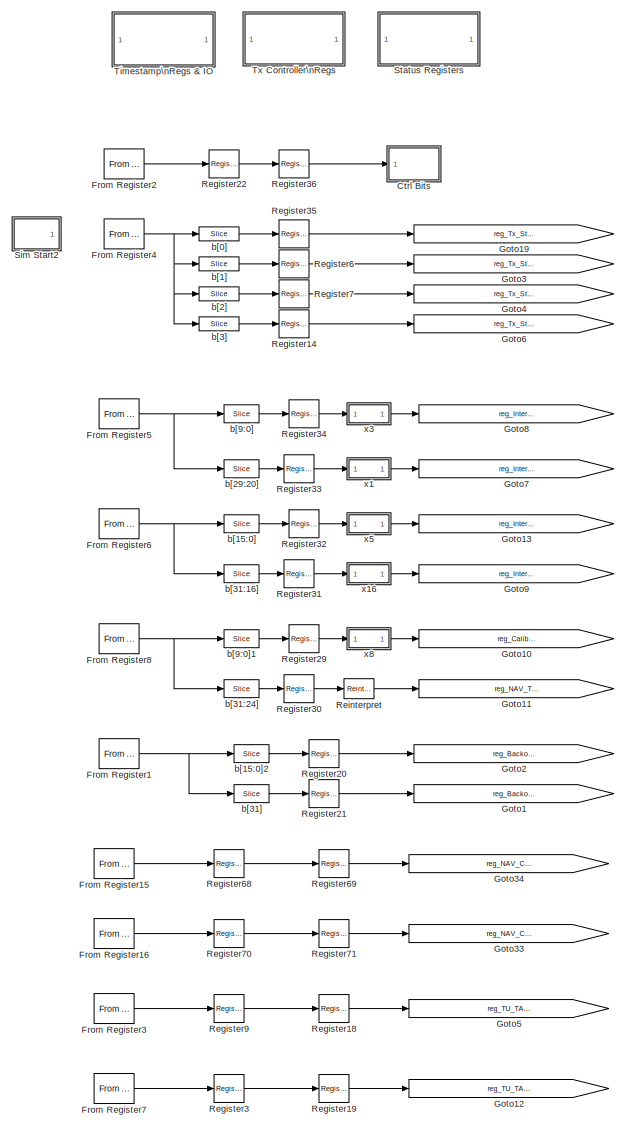
[diagram: Registers - part 1/2, left side, full height]
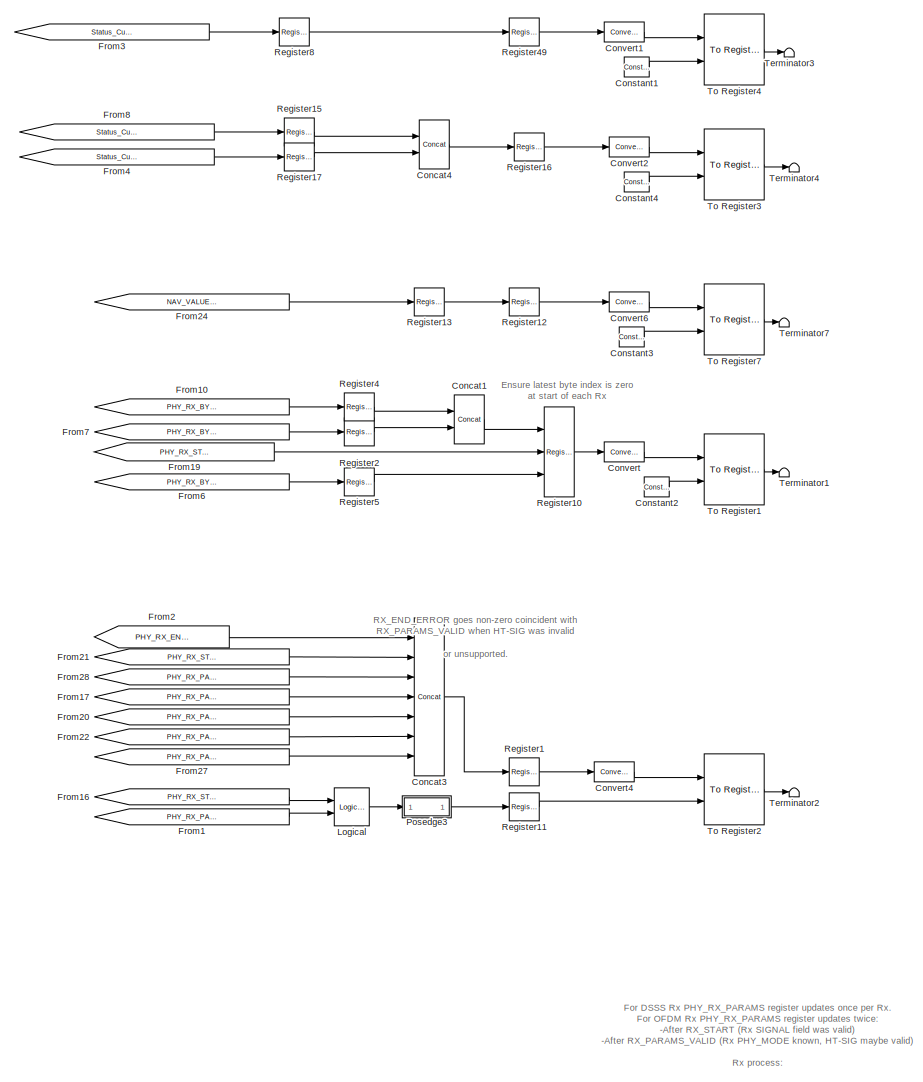
[diagram: Registers - part 2/2, right side, full height]
BLOCK [SubSystem] Registers
  FunctionWithSeparateData = off
  MaskHideContents = off
  MinAlgLoopOccurrences = off
  Opaque = off
  Ports = []
  PropExecContextOutsideSubsystem = off
  RTWSystemCode = Auto
  RequestExecContextInheritance = off
  SID = 65
BLOCK [Reference] Registers/ b[15:0]  REF=xbsIndex_r4/Slice
  Ports = [1, 1]
  SID = 786
  SourceBlock = xbsIndex_r4/Slice
  SourceType = Xilinx Bit Slice Extractor Block
  base0 = LSB of Input
  base1 = MSB of Input
  bit0 = 0
  bit1 = 0
  block_type = slice
  block_version = VER_STRING_GOES_HERE
  boolean_output = off
  dbl_ovrd = off
  has_advanced_control = 0
  mode = Lower Bit Location + Width
  nbits = 16
  sg_icon_stat = 35,18,1,1,white,blue,0,1fd851a7,right,,[ ],[ ]
  sg_mask_display = fprintf('','COMMENT: begin icon graphics');\npatch([0 35 35 0 0 ],[0 0 18 18 0 ],[0.77 0.82 0.91 ]);\nplot([0 35 35 0 0 ],[0 0 18 18 0 ]);\npatch([12.55 15.44 17.44 19.44 21.44 17.44 14.55 12.55 ],[11.22 11.22 13.22 11.22 13.22 13.22 13.22 11.22 ],[1 1 1 ]);\npatch([14.55 17.44 15.44 12.55 14.55 ],[9.22 9.22 11.22 11.22 9.22 ],[0.931 0.946 0.973 ]);\npatch([12.55 15.44 17.44 14.55 12.55 ],[7.22 7....<+316ch>  <repeated x56 — deduplicated; at blocks: b[15:0], b[15:0]2, b[29:20], b[31:16], b[31:24], b[31], b[9:0], b[9:0]1, b[14:0], b[14:0]1, b[15], b[15]1, b[30:16], b[30:16]1, b[31]1, b[31]2, +29 more>
  sggui_pos = 20,20,449,398
BLOCK [Reference] Registers/ b[15:0]2  REF=xbsIndex_r4/Slice
  Ports = [1, 1]
  SID = 1021
  SourceBlock = xbsIndex_r4/Slice
  SourceType = Xilinx Bit Slice Extractor Block
  base0 = LSB of Input
  base1 = MSB of Input
  bit0 = 0
  bit1 = 0
  block_type = slice
  block_version = VER_STRING_GOES_HERE
  boolean_output = off
  dbl_ovrd = off
  has_advanced_control = 0
  mode = Lower Bit Location + Width
  nbits = 16
  sg_icon_stat = 35,18,1,1,white,blue,0,1fd851a7,right,,[ ],[ ]
  sggui_pos = 20,20,449,398
BLOCK [Reference] Registers/ b[29:20]  REF=xbsIndex_r4/Slice
  Ports = [1, 1]
  SID = 783
  SourceBlock = xbsIndex_r4/Slice
  SourceType = Xilinx Bit Slice Extractor Block
  base0 = LSB of Input
  base1 = MSB of Input
  bit0 = 20
  bit1 = 0
  block_type = slice
  block_version = VER_STRING_GOES_HERE
  boolean_output = off
  dbl_ovrd = off
  has_advanced_control = 0
  mode = Lower Bit Location + Width
  nbits = 10
  sg_icon_stat = 35,18,1,1,white,blue,0,1fd851a7,right,,[ ],[ ]
  sggui_pos = 20,20,449,398
BLOCK [Reference] Registers/ b[31:16]  REF=xbsIndex_r4/Slice
  Ports = [1, 1]
  SID = 784
  SourceBlock = xbsIndex_r4/Slice
  SourceType = Xilinx Bit Slice Extractor Block
  base0 = LSB of Input
  base1 = MSB of Input
  bit0 = 16
  bit1 = 0
  block_type = slice
  block_version = VER_STRING_GOES_HERE
  boolean_output = off
  dbl_ovrd = off
  has_advanced_control = 0
  mode = Lower Bit Location + Width
  nbits = 16
  sg_icon_stat = 35,18,1,1,white,blue,0,1fd851a7,right,,[ ],[ ]
  sggui_pos = 20,20,449,398
BLOCK [Reference] Registers/ b[31:24]  REF=xbsIndex_r4/Slice
  Ports = [1, 1]
  SID = 806
  SourceBlock = xbsIndex_r4/Slice
  SourceType = Xilinx Bit Slice Extractor Block
  base0 = LSB of Input
  base1 = MSB of Input
  bit0 = 24
  bit1 = 0
  block_type = slice
  block_version = VER_STRING_GOES_HERE
  boolean_output = off
  dbl_ovrd = off
  has_advanced_control = 0
  mode = Lower Bit Location + Width
  nbits = 8
  sg_icon_stat = 35,18,1,1,white,blue,0,1fd851a7,right,,[ ],[ ]
  sggui_pos = 20,20,449,398
BLOCK [Reference] Registers/ b[31]  REF=xbsIndex_r4/Slice
  Ports = [1, 1]
  SID = 1022
  SourceBlock = xbsIndex_r4/Slice
  SourceType = Xilinx Bit Slice Extractor Block
  base0 = LSB of Input
  base1 = MSB of Input
  bit0 = 31
  bit1 = 0
  block_type = slice
  block_version = VER_STRING_GOES_HERE
  boolean_output = on
  dbl_ovrd = off
  has_advanced_control = 0
  mode = Lower Bit Location + Width
  nbits = 1
  sg_icon_stat = 35,18,1,1,white,blue,0,1fd851a7,right,,[ ],[ ]
  sggui_pos = 20,20,449,398
BLOCK [Reference] Registers/ b[9:0]  REF=xbsIndex_r4/Slice
  Ports = [1, 1]
  SID = 781
  SourceBlock = xbsIndex_r4/Slice
  SourceType = Xilinx Bit Slice Extractor Block
  base0 = LSB of Input
  base1 = MSB of Input
  bit0 = 0
  bit1 = 0
  block_type = slice
  block_version = VER_STRING_GOES_HERE
  boolean_output = off
  dbl_ovrd = off
  has_advanced_control = 0
  mode = Lower Bit Location + Width
  nbits = 10
  sg_icon_stat = 35,18,1,1,white,blue,0,1fd851a7,right,,[ ],[ ]
  sggui_pos = 20,20,449,398
BLOCK [Reference] Registers/ b[9:0]1  REF=xbsIndex_r4/Slice
  Ports = [1, 1]
  SID = 807
  SourceBlock = xbsIndex_r4/Slice
  SourceType = Xilinx Bit Slice Extractor Block
  base0 = LSB of Input
  base1 = MSB of Input
  bit0 = 0
  bit1 = 0
  block_type = slice
  block_version = VER_STRING_GOES_HERE
  boolean_output = off
  dbl_ovrd = off
  has_advanced_control = 0
  mode = Lower Bit Location + Width
  nbits = 10
  sg_icon_stat = 35,18,1,1,white,blue,0,1fd851a7,right,,[ ],[ ]
  sggui_pos = 20,20,449,398
BLOCK [Reference] Registers/Concat1  REF=xbsIndex_r4/Concat
  Ports = [2, 1]
  SID = 1248
  SourceBlock = xbsIndex_r4/Concat
  SourceType = Xilinx Bus Concatenator Block
  block_type = concat
  block_version = 8.2.02
  dbl_ovrd = off
  has_advanced_control = 0
  infoedit = Concatenates two or more inputs.  Output will be cast to an unsigned value with the binary point at zero.
  num_inputs = 2
  sg_icon_stat = 30,49,2,1,white,blue,0,16398980,right,,[ ],[ ]
  sg_mask_display = fprintf('','COMMENT: begin icon graphics');\npatch([0 30 30 0 0 ],[0 0 49 49 0 ],[0.77 0.82 0.91 ]);\nplot([0 30 30 0 0 ],[0 0 49 49 0 ]);\npatch([6.1 11.88 15.88 19.88 23.88 15.88 10.1 6.1 ],[28.44 28.44 32.44 28.44 32.44 32.44 32.44 28.44 ],[1 1 1 ]);\npatch([10.1 15.88 11.88 6.1 10.1 ],[24.44 24.44 28.44 28.44 24.44 ],[0.931 0.946 0.973 ]);\npatch([6.1 11.88 15.88 10.1 6.1 ],[20.44 20.44 24.44 ...<+413ch>
  sggui_pos = -1,-1,-1,-1
BLOCK [Reference] Registers/Concat3  REF=xbsIndex_r4/Concat
  Ports = [7, 1]
  SID = 2932
  SourceBlock = xbsIndex_r4/Concat
  SourceType = Xilinx Bus Concatenator Block
  block_type = concat
  block_version = 8.2.02
  dbl_ovrd = off
  has_advanced_control = 0
  infoedit = Concatenates two or more inputs.  Output will be cast to an unsigned value with the binary point at zero.
  num_inputs = 7
  sg_icon_stat = 30,158,7,1,white,blue,0,5db75f69,right,,[ ],[ ]
  sg_mask_display = fprintf('','COMMENT: begin icon graphics');\npatch([0 30 30 0 0 ],[0 0 158 158 0 ],[0.77 0.82 0.91 ]);\nplot([0 30 30 0 0 ],[0 0 158 158 0 ]);\npatch([6.1 11.88 15.88 19.88 23.88 15.88 10.1 6.1 ],[83.44 83.44 87.44 83.44 87.44 87.44 87.44 83.44 ],[1 1 1 ]);\npatch([10.1 15.88 11.88 6.1 10.1 ],[79.44 79.44 83.44 83.44 79.44 ],[0.931 0.946 0.973 ]);\npatch([6.1 11.88 15.88 10.1 6.1 ],[75.44 75.44 79...<+427ch>
  sggui_pos = -1,-1,-1,-1
BLOCK [Reference] Registers/Concat4  REF=xbsIndex_r4/Concat
  Ports = [2, 1]
  SID = 4108
  SourceBlock = xbsIndex_r4/Concat
  SourceType = Xilinx Bus Concatenator Block
  block_type = concat
  block_version = 8.2.02
  dbl_ovrd = off
  has_advanced_control = 0
  infoedit = Concatenates two or more inputs.  Output will be cast to an unsigned value with the binary point at zero.
  num_inputs = 2
  sg_icon_stat = 30,49,2,1,white,blue,0,16398980,right,,[ ],[ ]
  sg_mask_display = fprintf('','COMMENT: begin icon graphics');\npatch([0 30 30 0 0 ],[0 0 49 49 0 ],[0.77 0.82 0.91 ]);\nplot([0 30 30 0 0 ],[0 0 49 49 0 ]);\npatch([6.1 11.88 15.88 19.88 23.88 15.88 10.1 6.1 ],[28.44 28.44 32.44 28.44 32.44 32.44 32.44 28.44 ],[1 1 1 ]);\npatch([10.1 15.88 11.88 6.1 10.1 ],[24.44 24.44 28.44 28.44 24.44 ],[0.931 0.946 0.973 ]);\npatch([6.1 11.88 15.88 10.1 6.1 ],[20.44 20.44 24.44 ...<+413ch>
  sggui_pos = -1,-1,-1,-1
BLOCK [Reference] Registers/Constant1  REF=xbsIndex_r4/Constant
  Ports = [0, 1]
  SID = 3146
  SourceBlock = xbsIndex_r4/Constant
  SourceType = Xilinx Constant Block Block
  arith_type = Boolean
  bin_pt = 0
  block_type = constant
  carry = CIN
  const = 1
  dbl_ovrd = off
  dsp48_infoedit = The use of this block for DSP48 instructions is deprecated.  Please use the Opmode block.
  equ = P=C
  exp_width = 8
  explicit_period = on
  frac_width = 24
  gui_display_data_type = Boolean
  has_advanced_control = 0
  inp1 = P
  inp2 = PCIN>>17
  n_bits = 30
  opr = +
  opselect = C
  period = 1
  preci_type = Single
  sg_icon_stat = 25,20,0,1,white,blue,0,1c72b5be,right,,[ ],[ ]
  sggui_pos = -1,-1,-1,-1
BLOCK [Reference] Registers/Constant2  REF=xbsIndex_r4/Constant
  Ports = [0, 1]
  SID = 1551
  SourceBlock = xbsIndex_r4/Constant
  SourceType = Xilinx Constant Block Block
  arith_type = Boolean
  bin_pt = 0
  block_type = constant
  carry = CIN
  const = 1
  dbl_ovrd = off
  dsp48_infoedit = The use of this block for DSP48 instructions is deprecated.  Please use the Opmode block.
  equ = P=C
  exp_width = 8
  explicit_period = on
  frac_width = 24
  gui_display_data_type = Boolean
  has_advanced_control = 0
  inp1 = P
  inp2 = PCIN>>17
  n_bits = 30
  opr = +
  opselect = C
  period = 1
  preci_type = Single
  sg_icon_stat = 25,20,0,1,white,blue,0,1c72b5be,right,,[ ],[ ]
  sggui_pos = -1,-1,-1,-1
BLOCK [Reference] Registers/Constant3  REF=xbsIndex_r4/Constant
  Ports = [0, 1]
  SID = 1920
  SourceBlock = xbsIndex_r4/Constant
  SourceType = Xilinx Constant Block Block
  arith_type = Boolean
  bin_pt = 0
  block_type = constant
  carry = CIN
  const = 1
  dbl_ovrd = off
  dsp48_infoedit = The use of this block for DSP48 instructions is deprecated.  Please use the Opmode block.
  equ = P=C
  exp_width = 8
  explicit_period = on
  frac_width = 24
  gui_display_data_type = Boolean
  has_advanced_control = 0
  inp1 = P
  inp2 = PCIN>>17
  n_bits = 30
  opr = +
  opselect = C
  period = 1
  preci_type = Single
  sg_icon_stat = 25,20,0,1,white,blue,0,1c72b5be,right,,[ ],[ ]
  sggui_pos = -1,-1,-1,-1
BLOCK [Reference] Registers/Constant4  REF=xbsIndex_r4/Constant
  Ports = [0, 1]
  SID = 4115
  SourceBlock = xbsIndex_r4/Constant
  SourceType = Xilinx Constant Block Block
  arith_type = Boolean
  bin_pt = 0
  block_type = constant
  carry = CIN
  const = 1
  dbl_ovrd = off
  dsp48_infoedit = The use of this block for DSP48 instructions is deprecated.  Please use the Opmode block.
  equ = P=C
  exp_width = 8
  explicit_period = on
  frac_width = 24
  gui_display_data_type = Boolean
  has_advanced_control = 0
  inp1 = P
  inp2 = PCIN>>17
  n_bits = 30
  opr = +
  opselect = C
  period = 1
  preci_type = Single
  sg_icon_stat = 25,20,0,1,white,blue,0,1c72b5be,right,,[ ],[ ]
  sggui_pos = -1,-1,-1,-1
BLOCK [Reference] Registers/Convert  REF=xbsIndex_r4/Convert
  Ports = [1, 1]
  SID = 1136
  SourceBlock = xbsIndex_r4/Convert
  SourceType = Xilinx Type Converter Block
  arith_type = Unsigned
  bin_pt = 0
  block_type = convert
  dbl_ovrd = off
  en = off
  exp_bits = 8
  float_type = Single
  fraction_bits = 24
  gui_display_data_type = Fixed-point
  has_advanced_control = 0
  infoedit = Hardware notes: rounding and saturating require hardware resources; truncating and wrapping do not.
  latency = 0
  n_bits = 32
  overflow = Wrap
  pipeline = off
  quantization = Truncate
  sg_icon_stat = 40,20,1,1,white,blue,0,edca21da,right,,[ ],[ ]
  sg_mask_display = fprintf('','COMMENT: begin icon graphics');\npatch([0 40 40 0 0 ],[0 0 20 20 0 ],[0.77 0.82 0.91 ]);\nplot([0 40 40 0 0 ],[0 0 20 20 0 ]);\npatch([15.55 18.44 20.44 22.44 24.44 20.44 17.55 15.55 ],[12.22 12.22 14.22 12.22 14.22 14.22 14.22 12.22 ],[1 1 1 ]);\npatch([17.55 20.44 18.44 15.55 17.55 ],[10.22 10.22 12.22 12.22 10.22 ],[0.931 0.946 0.973 ]);\npatch([15.55 18.44 20.44 17.55 15.55 ],[8.22...<+320ch>  <repeated x11 — deduplicated; at blocks: Convert, Convert1, Convert2, Convert4, Convert6, Convert5, Convert7>
  sggui_pos = -1,-1,-1,-1
  xl_area = [0,0,0,0,0,0,0]
  xl_use_area = off
BLOCK [Reference] Registers/Convert1  REF=xbsIndex_r4/Convert
  Ports = [1, 1]
  SID = 3147
  SourceBlock = xbsIndex_r4/Convert
  SourceType = Xilinx Type Converter Block
  arith_type = Unsigned
  bin_pt = 0
  block_type = convert
  dbl_ovrd = off
  en = off
  exp_bits = 8
  float_type = Single
  fraction_bits = 24
  gui_display_data_type = Fixed-point
  has_advanced_control = 0
  infoedit = Hardware notes: rounding and saturating require hardware resources; truncating and wrapping do not.
  latency = 0
  n_bits = 32
  overflow = Wrap
  pipeline = off
  quantization = Truncate
  sg_icon_stat = 40,20,1,1,white,blue,0,edca21da,right,,[ ],[ ]
  sggui_pos = -1,-1,-1,-1
  xl_area = [0,0,0,0,0,0,0]
  xl_use_area = off
BLOCK [Reference] Registers/Convert2  REF=xbsIndex_r4/Convert
  Ports = [1, 1]
  SID = 4109
  SourceBlock = xbsIndex_r4/Convert
  SourceType = Xilinx Type Converter Block
  arith_type = Unsigned
  bin_pt = 0
  block_type = convert
  dbl_ovrd = off
  en = off
  exp_bits = 8
  float_type = Single
  fraction_bits = 24
  gui_display_data_type = Fixed-point
  has_advanced_control = 0
  infoedit = Hardware notes: rounding and saturating require hardware resources; truncating and wrapping do not.
  latency = 0
  n_bits = 32
  overflow = Wrap
  pipeline = off
  quantization = Truncate
  sg_icon_stat = 40,20,1,1,white,blue,0,edca21da,right,,[ ],[ ]
  sggui_pos = -1,-1,-1,-1
  xl_area = [0,0,0,0,0,0,0]
  xl_use_area = off
BLOCK [Reference] Registers/Convert4  REF=xbsIndex_r4/Convert
  Ports = [1, 1]
  SID = 2971
  SourceBlock = xbsIndex_r4/Convert
  SourceType = Xilinx Type Converter Block
  arith_type = Unsigned
  bin_pt = 0
  block_type = convert
  dbl_ovrd = off
  en = off
  exp_bits = 8
  float_type = Single
  fraction_bits = 24
  gui_display_data_type = Fixed-point
  has_advanced_control = 0
  infoedit = Hardware notes: rounding and saturating require hardware resources; truncating and wrapping do not.
  latency = 0
  n_bits = 32
  overflow = Wrap
  pipeline = off
  quantization = Truncate
  sg_icon_stat = 40,20,1,1,white,blue,0,edca21da,right,,[ ],[ ]
  sggui_pos = -1,-1,-1,-1
  xl_area = [0,0,0,0,0,0,0]
  xl_use_area = off
BLOCK [Reference] Registers/Convert6  REF=xbsIndex_r4/Convert
  Ports = [1, 1]
  SID = 1917
  SourceBlock = xbsIndex_r4/Convert
  SourceType = Xilinx Type Converter Block
  arith_type = Unsigned
  bin_pt = 0
  block_type = convert
  dbl_ovrd = off
  en = off
  exp_bits = 8
  float_type = Single
  fraction_bits = 24
  gui_display_data_type = Fixed-point
  has_advanced_control = 0
  infoedit = Hardware notes: rounding and saturating require hardware resources; truncating and wrapping do not.
  latency = 0
  n_bits = 32
  overflow = Wrap
  pipeline = off
  quantization = Truncate
  sg_icon_stat = 40,20,1,1,white,blue,0,edca21da,right,,[ ],[ ]
  sggui_pos = -1,-1,-1,-1
  xl_area = [0,0,0,0,0,0,0]
  xl_use_area = off
BLOCK [SubSystem] Registers/Ctrl Bits
  FunctionWithSeparateData = off
  MaskHideContents = off
  MinAlgLoopOccurrences = off
  Opaque = off
  Ports = [1]
  PropExecContextOutsideSubsystem = off
  RTWSystemCode = Auto
  RequestExecContextInheritance = off
  SID = 1452
BLOCK [Inport] Registers/Ctrl Bits/32b
  IconDisplay = Port number
  SID = 1454
BLOCK [Goto] Registers/Ctrl Bits/Goto
  GotoTag = GLOBAL_RESET
  SID = 194
  TagVisibility = global
BLOCK [Goto] Registers/Ctrl Bits/Goto1
  GotoTag = reg_Pause_Tx_C
  SID = 3872
  TagVisibility = global
BLOCK [Goto] Registers/Ctrl Bits/Goto10
  GotoTag = reg_CCA_Ignore_NAV
  SID = 1993
  TagVisibility = global
BLOCK [Goto] Registers/Ctrl Bits/Goto11
  GotoTag = reg_Force_Reset_NAV
  SID = 2035
  TagVisibility = global
BLOCK [Goto] Registers/Ctrl Bits/Goto12
  GotoTag = reg_Force_Reset_A_Backoff
  SID = 2037
  TagVisibility = global
BLOCK [Goto] Registers/Ctrl Bits/Goto13
  GotoTag = reg_Reset_TxCtrl_B
  SID = 3174
  TagVisibility = global
BLOCK [Goto] Registers/Ctrl Bits/Goto14
  GotoTag = reg_CCA_Force_Busy
  SID = 3497
  TagVisibility = global
BLOCK [Goto] Registers/Ctrl Bits/Goto15
  GotoTag = reg_Force_Reset_C_Backoff
  SID = 3691
  TagVisibility = global
BLOCK [Goto] Registers/Ctrl Bits/Goto16
  GotoTag = reg_Pause_Tx_A
  SID = 3723
  TagVisibility = global
BLOCK [Goto] Registers/Ctrl Bits/Goto17
  GotoTag = reg_Reset_TU_Latch
  SID = 3758
  TagVisibility = global
BLOCK [Goto] Registers/Ctrl Bits/Goto18
  GotoTag = reg_Reset_PHY_Active_Latches
  SID = 3807
  TagVisibility = global
BLOCK [Goto] Registers/Ctrl Bits/Goto19
  GotoTag = reg_Reset_RX_STARTED
  SID = 3806
  TagVisibility = global
BLOCK [Goto] Registers/Ctrl Bits/Goto2
  GotoTag = reg_Pause_Tx_D
  SID = 3874
  TagVisibility = global
BLOCK [Goto] Registers/Ctrl Bits/Goto20
  GotoTag = reg_Reset_TxCtrl_D
  SID = 4079
  TagVisibility = global
BLOCK [Goto] Registers/Ctrl Bits/Goto21
  GotoTag = reg_CCA_En_Busy_Input
  SID = 4195
  TagVisibility = global
BLOCK [Goto] Registers/Ctrl Bits/Goto22
  GotoTag = reg_En_Ext_PostRx_Timer1_Start
  SID = 4202
  TagVisibility = global
BLOCK [Goto] Registers/Ctrl Bits/Goto3
  GotoTag = reg_Disable_NAV
  SID = 1563
  TagVisibility = global
BLOCK [Goto] Registers/Ctrl Bits/Goto4
  GotoTag = reg_Reset_TxCtrl_A
  SID = 3173
  TagVisibility = global
BLOCK [Goto] Registers/Ctrl Bits/Goto5
  GotoTag = reg_Block_Rx_On_Tx
  SID = 1587
  TagVisibility = global
BLOCK [Goto] Registers/Ctrl Bits/Goto6
  GotoTag = reg_Reset_TxCtrl_C
  SID = 3213
  TagVisibility = global
BLOCK [Goto] Registers/Ctrl Bits/Goto7
  GotoTag = reg_Force_Reset_D_Backoff
  SID = 4077
  TagVisibility = global
BLOCK [Goto] Registers/Ctrl Bits/Goto8
  GotoTag = reg_CCA_Ignore_PHY_CS
  SID = 1991
  TagVisibility = global
BLOCK [Goto] Registers/Ctrl Bits/Goto9
  GotoTag = reg_CCA_Ignore_TxBusy
  SID = 1992
  TagVisibility = global
BLOCK [SubSystem] Registers/Ctrl Bits/Sim Reset
  FunctionWithSeparateData = off
  MaskHideContents = off
  MinAlgLoopOccurrences = off
  Opaque = off
  Ports = [0, 1]
  PropExecContextOutsideSubsystem = off
  RTWSystemCode = Auto
  RequestExecContextInheritance = off
  SID = 145
BLOCK [Sum] Registers/Ctrl Bits/Sim Reset/Add
  InputSameDT = off
  OutDataTypeStr = Inherit: Inherit via internal rule
  Ports = [2, 1]
  SID = 146
  SaturateOnIntegerOverflow = off
BLOCK [Reference] Registers/Ctrl Bits/Sim Reset/Disregard Subsystem  REF=xbsIndex_r4/Disregard Subsystem
  AttributesFormatString = Disregard Subsystem\\nFor Generation
  Ports = []
  SID = 147
  SourceBlock = xbsIndex_r4/Disregard Subsystem
  SourceType = Xilinx Disregard Subsystem For Generation Block
  Tag = discardX
  block_type = disregard
  has_advanced_control = 0
  sg_icon_stat = 58,58,-1,-1,darkgray,black,0,07734,right,,[ ],[ ]
  sggui_pos = -1,-1,-1,-1
BLOCK [Outport] Registers/Ctrl Bits/Sim Reset/Out1
  IconDisplay = Port number
  SID = 151
BLOCK [DiscretePulseGenerator] Registers/Ctrl Bits/Sim Reset/Pulse\nGenerator
  Period = 1e6
  PhaseDelay = 1.25e4
  Ports = [0, 1]
  PulseWidth = 2
  SID = 148
BLOCK [DiscretePulseGenerator] Registers/Ctrl Bits/Sim Reset/Pulse\nGenerator1
  Period = 1e6
  PhaseDelay = 2.5e4
  Ports = [0, 1]
  PulseWidth = 2
  SID = 149
BLOCK [Reference] Registers/Ctrl Bits/Sim Reset/sim_only_reset  REF=xbsIndex_r4/Gateway In
  ADCChannel = '1'
  LOCs = {}
  Ports = [1, 1]
  SID = 150
  SourceBlock = xbsIndex_r4/Gateway In
  SourceType = Xilinx Gateway In Block
  UseAsADC = off
  arith_type = Unsigned
  bin_pt = 0
  block_type = gatewayin
  dbl_ovrd = off
  exp_width = 8
  frac_width = 24
  gui_display_data_type = Fixed-point
  has_advanced_control = 0
  hdl_port = on
  inherit_from_input = off
  locs_specified = off
  n_bits = 1
  overflow = Saturate
  period = 1
  preci_type = Single
  quantization = Round  (unbiased: +/- Inf)
  sg_icon_stat = 40,14,1,1,white,yellow,1,00d3666e,right,,[ ],[ ]
  sg_mask_display = fprintf('','COMMENT: begin icon graphics');\npatch([0 40 40 0 0 ],[0 0 14 14 0 ],[0.95 0.93 0.65 ]);\nplot([0 40 40 0 0 ],[0 0 14 14 0 ]);\npatch([15.55 18.44 20.44 22.44 24.44 20.44 17.55 15.55 ],[9.22 9.22 11.22 9.22 11.22 11.22 11.22 9.22 ],[1 1 1 ]);\npatch([17.55 20.44 18.44 15.55 17.55 ],[7.22 7.22 9.22 9.22 7.22 ],[0.985 0.979 0.895 ]);\npatch([15.55 18.44 20.44 17.55 15.55 ],[5.22 5.22 7.2...<+385ch>
  sggui_pos = -1,-1,-1,-1
  timing_constraint = None
  xl_area = [0,0,0,0,0,0,0]
  xl_use_area = off
BLOCK [Reference] Registers/Ctrl Bits/b[0]  REF=xbsIndex_r4/Slice
  Ports = [1, 1]
  SID = 162
  SourceBlock = xbsIndex_r4/Slice
  SourceType = Xilinx Bit Slice Extractor Block
  base0 = LSB of Input
  base1 = MSB of Input
  bit0 = 0
  bit1 = 0
  block_type = slice
  block_version = VER_STRING_GOES_HERE
  boolean_output = on
  dbl_ovrd = off
  has_advanced_control = 0
  mode = Lower Bit Location + Width
  nbits = 1
  sg_icon_stat = 40,14,1,1,white,blue,0,1fd851a7,right,,[ ],[ ]
  sg_mask_display = fprintf('','COMMENT: begin icon graphics');\npatch([0 40 40 0 0 ],[0 0 14 14 0 ],[0.77 0.82 0.91 ]);\nplot([0 40 40 0 0 ],[0 0 14 14 0 ]);\npatch([15.55 18.44 20.44 22.44 24.44 20.44 17.55 15.55 ],[9.22 9.22 11.22 9.22 11.22 11.22 11.22 9.22 ],[1 1 1 ]);\npatch([17.55 20.44 18.44 15.55 17.55 ],[7.22 7.22 9.22 9.22 7.22 ],[0.931 0.946 0.973 ]);\npatch([15.55 18.44 20.44 17.55 15.55 ],[5.22 5.22 7.2...<+310ch>  <repeated x27 — deduplicated; at blocks: b[0], b[10], b[11], b[12], b[13], b[14], b[15], b[16], b[17], b[18], b[19], b[1], b[20], b[21], b[22], b[2], +7 more>
  sggui_pos = 20,20,449,398
BLOCK [Reference] Registers/Ctrl Bits/b[10]  REF=xbsIndex_r4/Slice
  Ports = [1, 1]
  SID = 2036
  SourceBlock = xbsIndex_r4/Slice
  SourceType = Xilinx Bit Slice Extractor Block
  base0 = LSB of Input
  base1 = MSB of Input
  bit0 = 10
  bit1 = 0
  block_type = slice
  block_version = VER_STRING_GOES_HERE
  boolean_output = on
  dbl_ovrd = off
  has_advanced_control = 0
  mode = Lower Bit Location + Width
  nbits = 1
  sg_icon_stat = 40,14,1,1,white,blue,0,1fd851a7,right,,[ ],[ ]
  sggui_pos = 20,20,449,398
BLOCK [Reference] Registers/Ctrl Bits/b[11]  REF=xbsIndex_r4/Slice
  Ports = [1, 1]
  SID = 2038
  SourceBlock = xbsIndex_r4/Slice
  SourceType = Xilinx Bit Slice Extractor Block
  base0 = LSB of Input
  base1 = MSB of Input
  bit0 = 11
  bit1 = 0
  block_type = slice
  block_version = VER_STRING_GOES_HERE
  boolean_output = on
  dbl_ovrd = off
  has_advanced_control = 0
  mode = Lower Bit Location + Width
  nbits = 1
  sg_icon_stat = 40,14,1,1,white,blue,0,1fd851a7,right,,[ ],[ ]
  sggui_pos = 20,20,449,398
BLOCK [Reference] Registers/Ctrl Bits/b[12]  REF=xbsIndex_r4/Slice
  Ports = [1, 1]
  SID = 3175
  SourceBlock = xbsIndex_r4/Slice
  SourceType = Xilinx Bit Slice Extractor Block
  base0 = LSB of Input
  base1 = MSB of Input
  bit0 = 12
  bit1 = 0
  block_type = slice
  block_version = VER_STRING_GOES_HERE
  boolean_output = on
  dbl_ovrd = off
  has_advanced_control = 0
  mode = Lower Bit Location + Width
  nbits = 1
  sg_icon_stat = 40,14,1,1,white,blue,0,1fd851a7,right,,[ ],[ ]
  sggui_pos = 20,20,449,398
BLOCK [Reference] Registers/Ctrl Bits/b[13]  REF=xbsIndex_r4/Slice
  Ports = [1, 1]
  SID = 3176
  SourceBlock = xbsIndex_r4/Slice
  SourceType = Xilinx Bit Slice Extractor Block
  base0 = LSB of Input
  base1 = MSB of Input
  bit0 = 13
  bit1 = 0
  block_type = slice
  block_version = VER_STRING_GOES_HERE
  boolean_output = on
  dbl_ovrd = off
  has_advanced_control = 0
  mode = Lower Bit Location + Width
  nbits = 1
  sg_icon_stat = 40,14,1,1,white,blue,0,1fd851a7,right,,[ ],[ ]
  sggui_pos = 20,20,449,398
BLOCK [Reference] Registers/Ctrl Bits/b[14]  REF=xbsIndex_r4/Slice
  Ports = [1, 1]
  SID = 3214
  SourceBlock = xbsIndex_r4/Slice
  SourceType = Xilinx Bit Slice Extractor Block
  base0 = LSB of Input
  base1 = MSB of Input
  bit0 = 14
  bit1 = 0
  block_type = slice
  block_version = VER_STRING_GOES_HERE
  boolean_output = on
  dbl_ovrd = off
  has_advanced_control = 0
  mode = Lower Bit Location + Width
  nbits = 1
  sg_icon_stat = 40,14,1,1,white,blue,0,1fd851a7,right,,[ ],[ ]
  sggui_pos = 20,20,449,398
BLOCK [Reference] Registers/Ctrl Bits/b[15]  REF=xbsIndex_r4/Slice
  Ports = [1, 1]
  SID = 3227
  SourceBlock = xbsIndex_r4/Slice
  SourceType = Xilinx Bit Slice Extractor Block
  base0 = LSB of Input
  base1 = MSB of Input
  bit0 = 15
  bit1 = 0
  block_type = slice
  block_version = VER_STRING_GOES_HERE
  boolean_output = on
  dbl_ovrd = off
  has_advanced_control = 0
  mode = Lower Bit Location + Width
  nbits = 1
  sg_icon_stat = 40,14,1,1,white,blue,0,1fd851a7,right,,[ ],[ ]
  sggui_pos = 20,20,449,398
BLOCK [Reference] Registers/Ctrl Bits/b[16]  REF=xbsIndex_r4/Slice
  Ports = [1, 1]
  SID = 3690
  SourceBlock = xbsIndex_r4/Slice
  SourceType = Xilinx Bit Slice Extractor Block
  base0 = LSB of Input
  base1 = MSB of Input
  bit0 = 16
  bit1 = 0
  block_type = slice
  block_version = VER_STRING_GOES_HERE
  boolean_output = on
  dbl_ovrd = off
  has_advanced_control = 0
  mode = Lower Bit Location + Width
  nbits = 1
  sg_icon_stat = 40,14,1,1,white,blue,0,1fd851a7,right,,[ ],[ ]
  sggui_pos = 20,20,449,398
BLOCK [Reference] Registers/Ctrl Bits/b[17]  REF=xbsIndex_r4/Slice
  Ports = [1, 1]
  SID = 3724
  SourceBlock = xbsIndex_r4/Slice
  SourceType = Xilinx Bit Slice Extractor Block
  base0 = LSB of Input
  base1 = MSB of Input
  bit0 = 17
  bit1 = 0
  block_type = slice
  block_version = VER_STRING_GOES_HERE
  boolean_output = on
  dbl_ovrd = off
  has_advanced_control = 0
  mode = Lower Bit Location + Width
  nbits = 1
  sg_icon_stat = 40,14,1,1,white,blue,0,1fd851a7,right,,[ ],[ ]
  sggui_pos = 20,20,449,398
BLOCK [Reference] Registers/Ctrl Bits/b[18]  REF=xbsIndex_r4/Slice
  Ports = [1, 1]
  SID = 3787
  SourceBlock = xbsIndex_r4/Slice
  SourceType = Xilinx Bit Slice Extractor Block
  base0 = LSB of Input
  base1 = MSB of Input
  bit0 = 18
  bit1 = 0
  block_type = slice
  block_version = VER_STRING_GOES_HERE
  boolean_output = on
  dbl_ovrd = off
  has_advanced_control = 0
  mode = Lower Bit Location + Width
  nbits = 1
  sg_icon_stat = 40,14,1,1,white,blue,0,1fd851a7,right,,[ ],[ ]
  sggui_pos = 20,20,449,398
BLOCK [Reference] Registers/Ctrl Bits/b[19]  REF=xbsIndex_r4/Slice
  Ports = [1, 1]
  SID = 3808
  SourceBlock = xbsIndex_r4/Slice
  SourceType = Xilinx Bit Slice Extractor Block
  base0 = LSB of Input
  base1 = MSB of Input
  bit0 = 19
  bit1 = 0
  block_type = slice
  block_version = VER_STRING_GOES_HERE
  boolean_output = on
  dbl_ovrd = off
  has_advanced_control = 0
  mode = Lower Bit Location + Width
  nbits = 1
  sg_icon_stat = 40,14,1,1,white,blue,0,1fd851a7,right,,[ ],[ ]
  sggui_pos = 20,20,449,398
BLOCK [Reference] Registers/Ctrl Bits/b[1]    REF=xbsIndex_r4/Slice
  Ports = [1, 1]
  SID = 1456
  SourceBlock = xbsIndex_r4/Slice
  SourceType = Xilinx Bit Slice Extractor Block
  base0 = LSB of Input
  base1 = MSB of Input
  bit0 = 1
  bit1 = 0
  block_type = slice
  block_version = VER_STRING_GOES_HERE
  boolean_output = on
  dbl_ovrd = off
  has_advanced_control = 0
  mode = Lower Bit Location + Width
  nbits = 1
  sg_icon_stat = 40,14,1,1,white,blue,0,1fd851a7,right,,[ ],[ ]
  sggui_pos = 20,20,449,398
BLOCK [Reference] Registers/Ctrl Bits/b[20]  REF=xbsIndex_r4/Slice
  Ports = [1, 1]
  SID = 3873
  SourceBlock = xbsIndex_r4/Slice
  SourceType = Xilinx Bit Slice Extractor Block
  base0 = LSB of Input
  base1 = MSB of Input
  bit0 = 20
  bit1 = 0
  block_type = slice
  block_version = VER_STRING_GOES_HERE
  boolean_output = on
  dbl_ovrd = off
  has_advanced_control = 0
  mode = Lower Bit Location + Width
  nbits = 1
  sg_icon_stat = 40,14,1,1,white,blue,0,1fd851a7,right,,[ ],[ ]
  sggui_pos = 20,20,449,398
BLOCK [Reference] Registers/Ctrl Bits/b[21]  REF=xbsIndex_r4/Slice
  Ports = [1, 1]
  SID = 3875
  SourceBlock = xbsIndex_r4/Slice
  SourceType = Xilinx Bit Slice Extractor Block
  base0 = LSB of Input
  base1 = MSB of Input
  bit0 = 21
  bit1 = 0
  block_type = slice
  block_version = VER_STRING_GOES_HERE
  boolean_output = on
  dbl_ovrd = off
  has_advanced_control = 0
  mode = Lower Bit Location + Width
  nbits = 1
  sg_icon_stat = 40,14,1,1,white,blue,0,1fd851a7,right,,[ ],[ ]
  sggui_pos = 20,20,449,398
BLOCK [Reference] Registers/Ctrl Bits/b[22]  REF=xbsIndex_r4/Slice
  Ports = [1, 1]
  SID = 4078
  SourceBlock = xbsIndex_r4/Slice
  SourceType = Xilinx Bit Slice Extractor Block
  base0 = LSB of Input
  base1 = MSB of Input
  bit0 = 22
  bit1 = 0
  block_type = slice
  block_version = VER_STRING_GOES_HERE
  boolean_output = on
  dbl_ovrd = off
  has_advanced_control = 0
  mode = Lower Bit Location + Width
  nbits = 1
  sg_icon_stat = 40,14,1,1,white,blue,0,1fd851a7,right,,[ ],[ ]
  sggui_pos = 20,20,449,398
BLOCK [Reference] Registers/Ctrl Bits/b[2]  REF=xbsIndex_r4/Slice
  Ports = [1, 1]
  SID = 1457
  SourceBlock = xbsIndex_r4/Slice
  SourceType = Xilinx Bit Slice Extractor Block
  base0 = LSB of Input
  base1 = MSB of Input
  bit0 = 2
  bit1 = 0
  block_type = slice
  block_version = VER_STRING_GOES_HERE
  boolean_output = on
  dbl_ovrd = off
  has_advanced_control = 0
  mode = Lower Bit Location + Width
  nbits = 1
  sg_icon_stat = 40,14,1,1,white,blue,0,1fd851a7,right,,[ ],[ ]
  sggui_pos = 20,20,449,398
BLOCK [Reference] Registers/Ctrl Bits/b[3]  REF=xbsIndex_r4/Slice
  Ports = [1, 1]
  SID = 1570
  SourceBlock = xbsIndex_r4/Slice
  SourceType = Xilinx Bit Slice Extractor Block
  base0 = LSB of Input
  base1 = MSB of Input
  bit0 = 3
  bit1 = 0
  block_type = slice
  block_version = VER_STRING_GOES_HERE
  boolean_output = on
  dbl_ovrd = off
  has_advanced_control = 0
  mode = Lower Bit Location + Width
  nbits = 1
  sg_icon_stat = 40,14,1,1,white,blue,0,1fd851a7,right,,[ ],[ ]
  sggui_pos = 20,20,449,398
BLOCK [Reference] Registers/Ctrl Bits/b[4]  REF=xbsIndex_r4/Slice
  Ports = [1, 1]
  SID = 1588
  SourceBlock = xbsIndex_r4/Slice
  SourceType = Xilinx Bit Slice Extractor Block
  base0 = LSB of Input
  base1 = MSB of Input
  bit0 = 4
  bit1 = 0
  block_type = slice
  block_version = VER_STRING_GOES_HERE
  boolean_output = on
  dbl_ovrd = off
  has_advanced_control = 0
  mode = Lower Bit Location + Width
  nbits = 1
  sg_icon_stat = 40,14,1,1,white,blue,0,1fd851a7,right,,[ ],[ ]
  sggui_pos = 20,20,449,398
BLOCK [Reference] Registers/Ctrl Bits/b[5]  REF=xbsIndex_r4/Slice
  Ports = [1, 1]
  SID = 1753
  SourceBlock = xbsIndex_r4/Slice
  SourceType = Xilinx Bit Slice Extractor Block
  base0 = LSB of Input
  base1 = MSB of Input
  bit0 = 5
  bit1 = 0
  block_type = slice
  block_version = VER_STRING_GOES_HERE
  boolean_output = on
  dbl_ovrd = off
  has_advanced_control = 0
  mode = Lower Bit Location + Width
  nbits = 1
  sg_icon_stat = 40,14,1,1,white,blue,0,1fd851a7,right,,[ ],[ ]
  sggui_pos = 20,20,449,398
BLOCK [Reference] Registers/Ctrl Bits/b[6]  REF=xbsIndex_r4/Slice
  Ports = [1, 1]
  SID = 1802
  SourceBlock = xbsIndex_r4/Slice
  SourceType = Xilinx Bit Slice Extractor Block
  base0 = LSB of Input
  base1 = MSB of Input
  bit0 = 6
  bit1 = 0
  block_type = slice
  block_version = VER_STRING_GOES_HERE
  boolean_output = on
  dbl_ovrd = off
  has_advanced_control = 0
  mode = Lower Bit Location + Width
  nbits = 1
  sg_icon_stat = 40,14,1,1,white,blue,0,1fd851a7,right,,[ ],[ ]
  sggui_pos = 20,20,449,398
BLOCK [Reference] Registers/Ctrl Bits/b[7]  REF=xbsIndex_r4/Slice
  Ports = [1, 1]
  SID = 1994
  SourceBlock = xbsIndex_r4/Slice
  SourceType = Xilinx Bit Slice Extractor Block
  base0 = LSB of Input
  base1 = MSB of Input
  bit0 = 7
  bit1 = 0
  block_type = slice
  block_version = VER_STRING_GOES_HERE
  boolean_output = on
  dbl_ovrd = off
  has_advanced_control = 0
  mode = Lower Bit Location + Width
  nbits = 1
  sg_icon_stat = 40,14,1,1,white,blue,0,1fd851a7,right,,[ ],[ ]
  sggui_pos = 20,20,449,398
BLOCK [Reference] Registers/Ctrl Bits/b[8]  REF=xbsIndex_r4/Slice
  Ports = [1, 1]
  SID = 1995
  SourceBlock = xbsIndex_r4/Slice
  SourceType = Xilinx Bit Slice Extractor Block
  base0 = LSB of Input
  base1 = MSB of Input
  bit0 = 8
  bit1 = 0
  block_type = slice
  block_version = VER_STRING_GOES_HERE
  boolean_output = on
  dbl_ovrd = off
  has_advanced_control = 0
  mode = Lower Bit Location + Width
  nbits = 1
  sg_icon_stat = 40,14,1,1,white,blue,0,1fd851a7,right,,[ ],[ ]
  sggui_pos = 20,20,449,398
BLOCK [Reference] Registers/Ctrl Bits/b[9]  REF=xbsIndex_r4/Slice
  Ports = [1, 1]
  SID = 1996
  SourceBlock = xbsIndex_r4/Slice
  SourceType = Xilinx Bit Slice Extractor Block
  base0 = LSB of Input
  base1 = MSB of Input
  bit0 = 9
  bit1 = 0
  block_type = slice
  block_version = VER_STRING_GOES_HERE
  boolean_output = on
  dbl_ovrd = off
  has_advanced_control = 0
  mode = Lower Bit Location + Width
  nbits = 1
  sg_icon_stat = 40,14,1,1,white,blue,0,1fd851a7,right,,[ ],[ ]
  sggui_pos = 20,20,449,398
BLOCK [Reference] Registers/From Register1  REF=xbsIndex_r4/From Register
  AttributesFormatString = << %<shared_memory_name> >>
  Ports = [0, 1]
  SID = 1017
  SourceBlock = xbsIndex_r4/From Register
  SourceType = Xilinx Shared Memory Based From Register Block
  arith_type = Unsigned
  bin_pt = 0
  block_type = fromreg
  dbl_ovrd = off
  gui_display_data_type = Fixed-point
  has_advanced_control = 0
  infoedit = Register block that reads data to a shared memory register.  Delay of one sample period.
  init = REG_MAC_Backoff_Control
  n_bits = 32
  ownership = Locally owned and initialized
  period = 1
  preci_type = Single
  sg_icon_stat = 40,30,0,1,white,blue,0,b27a07ff,right,,[ ],[ ]
  sg_mask_display = fprintf('','COMMENT: begin icon graphics');\npatch([0 40 40 0 0 ],[0 0 30 30 0 ],[0.77 0.82 0.91 ]);\nplot([0 40 40 0 0 ],[0 0 30 30 0 ]);\npatch([11.1 16.88 20.88 24.88 28.88 20.88 15.1 11.1 ],[19.44 19.44 23.44 19.44 23.44 23.44 23.44 19.44 ],[1 1 1 ]);\npatch([15.1 20.88 16.88 11.1 15.1 ],[15.44 15.44 19.44 19.44 15.44 ],[0.931 0.946 0.973 ]);\npatch([11.1 16.88 20.88 15.1 11.1 ],[11.44 11.44 1...<+312ch>  <repeated x20 — deduplicated; at blocks: From Register1, From Register15, From Register16, From Register2, From Register3, From Register4, From Register5, From Register6, From Register7, From Register8, From Register14, From Register12, From Register9>
  sggui_pos = -1,-1,-1,-1
  shared_memory_name = 'BACKOFF_CTRL'
  xl_area = [0,0,0,0,0,0,0]
  xl_use_area = off
BLOCK [Reference] Registers/From Register15  REF=xbsIndex_r4/From Register
  AttributesFormatString = << %<shared_memory_name> >>
  Ports = [0, 1]
  SID = 2557
  SourceBlock = xbsIndex_r4/From Register
  SourceType = Xilinx Shared Memory Based From Register Block
  arith_type = Unsigned
  bin_pt = 0
  block_type = fromreg
  dbl_ovrd = off
  gui_display_data_type = Fixed-point
  has_advanced_control = 0
  infoedit = Register block that reads data to a shared memory register.  Delay of one sample period.
  init = REG_NAV_Match_Addr_2
  n_bits = 32
  ownership = Locally owned and initialized
  period = 1
  preci_type = Single
  sg_icon_stat = 40,30,0,1,white,blue,0,b27a07ff,right,,[ ],[ ]
  sggui_pos = -1,-1,-1,-1
  shared_memory_name = 'NAV_MATCH_ADDR_2'
  xl_area = [0,0,0,0,0,0,0]
  xl_use_area = off
BLOCK [Reference] Registers/From Register16  REF=xbsIndex_r4/From Register
  AttributesFormatString = << %<shared_memory_name> >>
  Ports = [0, 1]
  SID = 2563
  SourceBlock = xbsIndex_r4/From Register
  SourceType = Xilinx Shared Memory Based From Register Block
  arith_type = Unsigned
  bin_pt = 0
  block_type = fromreg
  dbl_ovrd = off
  gui_display_data_type = Fixed-point
  has_advanced_control = 0
  infoedit = Register block that reads data to a shared memory register.  Delay of one sample period.
  init = REG_NAV_Match_Addr_1
  n_bits = 32
  ownership = Locally owned and initialized
  period = 1
  preci_type = Single
  sg_icon_stat = 40,30,0,1,white,blue,0,b27a07ff,right,,[ ],[ ]
  sggui_pos = -1,-1,-1,-1
  shared_memory_name = 'NAV_MATCH_ADDR_1'
  xl_area = [0,0,0,0,0,0,0]
  xl_use_area = off
BLOCK [Reference] Registers/From Register2  REF=xbsIndex_r4/From Register
  AttributesFormatString = << %<shared_memory_name> >>
  Ports = [0, 1]
  SID = 99
  SourceBlock = xbsIndex_r4/From Register
  SourceType = Xilinx Shared Memory Based From Register Block
  arith_type = Unsigned
  bin_pt = 0
  block_type = fromreg
  dbl_ovrd = off
  gui_display_data_type = Fixed-point
  has_advanced_control = 0
  infoedit = Register block that reads data to a shared memory register.  Delay of one sample period.
  init = REG_MAC_Control
  n_bits = 32
  ownership = Locally owned and initialized
  period = 1
  preci_type = Single
  sg_icon_stat = 40,30,0,1,white,blue,0,b27a07ff,right,,[ ],[ ]
  sggui_pos = -1,-1,-1,-1
  shared_memory_name = 'Control'
  xl_area = [0,0,0,0,0,0,0]
  xl_use_area = off
BLOCK [Reference] Registers/From Register3  REF=xbsIndex_r4/From Register
  AttributesFormatString = << %<shared_memory_name> >>
  Ports = [0, 1]
  SID = 3738
  SourceBlock = xbsIndex_r4/From Register
  SourceType = Xilinx Shared Memory Based From Register Block
  arith_type = Unsigned
  bin_pt = 0
  block_type = fromreg
  dbl_ovrd = off
  gui_display_data_type = Fixed-point
  has_advanced_control = 0
  infoedit = Register block that reads data to a shared memory register.  Delay of one sample period.
  init = 2^32-1
  n_bits = 32
  ownership = Locally owned and initialized
  period = 1
  preci_type = Single
  sg_icon_stat = 40,30,0,1,white,blue,0,b27a07ff,right,,[ ],[ ]
  sggui_pos = -1,-1,-1,-1
  shared_memory_name = 'TU_TARGET_MSB'
  xl_area = [0,0,0,0,0,0,0]
  xl_use_area = off
BLOCK [Reference] Registers/From Register4  REF=xbsIndex_r4/From Register
  AttributesFormatString = << %<shared_memory_name> >>
  Ports = [0, 1]
  SID = 619
  SourceBlock = xbsIndex_r4/From Register
  SourceType = Xilinx Shared Memory Based From Register Block
  arith_type = Unsigned
  bin_pt = 0
  block_type = fromreg
  dbl_ovrd = off
  gui_display_data_type = Fixed-point
  has_advanced_control = 0
  infoedit = Register block that reads data to a shared memory register.  Delay of one sample period.
  init = 0
  n_bits = 32
  ownership = Locally owned and initialized
  period = 1
  preci_type = Single
  sg_icon_stat = 40,30,0,1,white,blue,0,b27a07ff,right,,[ ],[ ]
  sggui_pos = -1,-1,-1,-1
  shared_memory_name = 'TX_START'
  xl_area = [0,0,0,0,0,0,0]
  xl_use_area = off
BLOCK [Reference] Registers/From Register5  REF=xbsIndex_r4/From Register
  AttributesFormatString = << %<shared_memory_name> >>
  Ports = [0, 1]
  SID = 780
  SourceBlock = xbsIndex_r4/From Register
  SourceType = Xilinx Shared Memory Based From Register Block
  arith_type = Unsigned
  bin_pt = 0
  block_type = fromreg
  dbl_ovrd = off
  gui_display_data_type = Fixed-point
  has_advanced_control = 0
  infoedit = Register block that reads data to a shared memory register.  Delay of one sample period.
  init = REG_MAC_Intervals_1
  n_bits = 32
  ownership = Locally owned and initialized
  period = 1
  preci_type = Single
  sg_icon_stat = 40,30,0,1,white,blue,0,b27a07ff,right,,[ ],[ ]
  sggui_pos = -1,-1,-1,-1
  shared_memory_name = 'IFS_INTERVALS1'
  xl_area = [0,0,0,0,0,0,0]
  xl_use_area = off
BLOCK [Reference] Registers/From Register6  REF=xbsIndex_r4/From Register
  AttributesFormatString = << %<shared_memory_name> >>
  Ports = [0, 1]
  SID = 787
  SourceBlock = xbsIndex_r4/From Register
  SourceType = Xilinx Shared Memory Based From Register Block
  arith_type = Unsigned
  bin_pt = 0
  block_type = fromreg
  dbl_ovrd = off
  gui_display_data_type = Fixed-point
  has_advanced_control = 0
  infoedit = Register block that reads data to a shared memory register.  Delay of one sample period.
  init = REG_MAC_Intervals_2
  n_bits = 32
  ownership = Locally owned and initialized
  period = 1
  preci_type = Single
  sg_icon_stat = 40,30,0,1,white,blue,0,b27a07ff,right,,[ ],[ ]
  sggui_pos = -1,-1,-1,-1
  shared_memory_name = 'IFS_INTERVALS2'
  xl_area = [0,0,0,0,0,0,0]
  xl_use_area = off
BLOCK [Reference] Registers/From Register7  REF=xbsIndex_r4/From Register
  AttributesFormatString = << %<shared_memory_name> >>
  Ports = [0, 1]
  SID = 4176
  SourceBlock = xbsIndex_r4/From Register
  SourceType = Xilinx Shared Memory Based From Register Block
  arith_type = Unsigned
  bin_pt = 0
  block_type = fromreg
  dbl_ovrd = off
  gui_display_data_type = Fixed-point
  has_advanced_control = 0
  infoedit = Register block that reads data to a shared memory register.  Delay of one sample period.
  init = 2^32-1
  n_bits = 32
  ownership = Locally owned and initialized
  period = 1
  preci_type = Single
  sg_icon_stat = 40,30,0,1,white,blue,0,b27a07ff,right,,[ ],[ ]
  sggui_pos = -1,-1,-1,-1
  shared_memory_name = 'TU_TARGET_LSB'
  xl_area = [0,0,0,0,0,0,0]
  xl_use_area = off
BLOCK [Reference] Registers/From Register8  REF=xbsIndex_r4/From Register
  AttributesFormatString = << %<shared_memory_name> >>
  Ports = [0, 1]
  SID = 792
  SourceBlock = xbsIndex_r4/From Register
  SourceType = Xilinx Shared Memory Based From Register Block
  arith_type = Unsigned
  bin_pt = 0
  block_type = fromreg
  dbl_ovrd = off
  gui_display_data_type = Fixed-point
  has_advanced_control = 0
  infoedit = Register block that reads data to a shared memory register.  Delay of one sample period.
  init = REG_MAC_Calib_Times
  n_bits = 32
  ownership = Locally owned and initialized
  period = 1
  preci_type = Single
  sg_icon_stat = 40,30,0,1,white,blue,0,b27a07ff,right,,[ ],[ ]
  sggui_pos = -1,-1,-1,-1
  shared_memory_name = 'CALIB_TIMES'
  xl_area = [0,0,0,0,0,0,0]
  xl_use_area = off
BLOCK [From] Registers/From1
  GotoTag = PHY_RX_PARAMS_VALID
  SID = 3166
  TagVisibility = global
BLOCK [From] Registers/From10
  GotoTag = PHY_RX_BYTE
  SID = 1251
  TagVisibility = global
BLOCK [From] Registers/From16
  GotoTag = PHY_RX_START_IND
  SID = 1489
  TagVisibility = global
BLOCK [From] Registers/From17
  GotoTag = PHY_RX_PARAMS_PHY_MODE
  SID = 2966
  TagVisibility = global
BLOCK [From] Registers/From19
  GotoTag = PHY_RX_START_IND
  SID = 1553
  TagVisibility = global
BLOCK [From] Registers/From2
  GotoTag = PHY_RX_END_RXERROR
  SID = 3170
  TagVisibility = global
BLOCK [From] Registers/From20
  GotoTag = PHY_RX_PARAMS_UNSUPPORTED
  SID = 2961
  TagVisibility = global
BLOCK [From] Registers/From21
  GotoTag = PHY_RX_START_PHY_SEL
  SID = 2965
  TagVisibility = global
BLOCK [From] Registers/From22
  GotoTag = PHY_RX_PARAMS_MCS
  SID = 2925
  TagVisibility = global
BLOCK [From] Registers/From24
  GotoTag = NAV_VALUE_100NSEC
  SID = 1915
  TagVisibility = global
BLOCK [From] Registers/From27
  GotoTag = PHY_RX_PARAMS_LENGTH
  SID = 2927
  TagVisibility = global
BLOCK [From] Registers/From28
  GotoTag = PHY_RX_PARAMS_VALID
  SID = 2928
  TagVisibility = global
BLOCK [From] Registers/From3
  GotoTag = Status_Current_A_Backoff_Count
  SID = 3696
  TagVisibility = global
BLOCK [From] Registers/From4
  GotoTag = Status_Current_C_Backoff_Count
  SID = 4110
  TagVisibility = global
BLOCK [From] Registers/From6
  GotoTag = PHY_RX_BYTE_VALID
  SID = 1134
  TagVisibility = global
BLOCK [From] Registers/From7
  GotoTag = PHY_RX_BYTENUM
  SID = 1135
  TagVisibility = global
BLOCK [From] Registers/From8
  GotoTag = Status_Current_D_Backoff_Count
  SID = 4111
  TagVisibility = global
BLOCK [Goto] Registers/Goto1
  GotoTag = reg_Backoff_Sw_Start
  SID = 1018
  TagVisibility = global
BLOCK [Goto] Registers/Goto10
  GotoTag = reg_CalibTime_TxDIFS
  SID = 464
  TagVisibility = global
BLOCK [Goto] Registers/Goto11
  GotoTag = reg_NAV_TIME_ADJ
  SID = 554
  TagVisibility = global
BLOCK [Goto] Registers/Goto12
  GotoTag = reg_TU_TARGET_LSB
  SID = 4177
  TagVisibility = global
BLOCK [Goto] Registers/Goto13
  GotoTag = reg_Interval_EIFS
  SID = 570
  TagVisibility = global
BLOCK [Goto] Registers/Goto19
  GotoTag = reg_Tx_Start_A
  SID = 655
  TagVisibility = global
BLOCK [Goto] Registers/Goto2
  GotoTag = reg_Backoff_Sw_NumSlots
  SID = 1020
  TagVisibility = global
BLOCK [Goto] Registers/Goto3
  GotoTag = reg_Tx_Start_B
  SID = 2939
  TagVisibility = global
BLOCK [Goto] Registers/Goto33
  GotoTag = reg_NAV_Check_Addr_1
  SID = 2564
  TagVisibility = global
BLOCK [Goto] Registers/Goto34
  GotoTag = reg_NAV_Check_Addr_2
  SID = 2559
  TagVisibility = global
BLOCK [Goto] Registers/Goto4
  GotoTag = reg_Tx_Start_C
  SID = 3498
  TagVisibility = global
BLOCK [Goto] Registers/Goto5
  GotoTag = reg_TU_TARGET_MSB
  SID = 3740
  TagVisibility = global
BLOCK [Goto] Registers/Goto6
  GotoTag = reg_Tx_Start_D
  SID = 4041
  TagVisibility = global
BLOCK [Goto] Registers/Goto7
  GotoTag = reg_Interval_DIFS
  SID = 380
  TagVisibility = global
BLOCK [Goto] Registers/Goto8
  GotoTag = reg_Interval_Slot
  SID = 383
  TagVisibility = global
BLOCK [Goto] Registers/Goto9
  GotoTag = reg_Interval_ACK_Timeout
  SID = 385
  TagVisibility = global
BLOCK [Reference] Registers/Logical  REF=xbsIndex_r4/Logical
  Ports = [2, 1]
  SID = 2933
  SourceBlock = xbsIndex_r4/Logical
  SourceType = Xilinx Logical Block Block
  align_bp = on
  arith_type = Unsigned
  bin_pt = 0
  block_type = logical
  dbl_ovrd = off
  en = off
  has_advanced_control = 0
  inputs = 2
  latency = 0
  logical_function = OR
  n_bits = 16
  precision = Full
  sg_icon_stat = 35,38,2,1,white,blue,0,7ede7d88,right,,[ ],[ ]
  sg_mask_display = fprintf('','COMMENT: begin icon graphics');\npatch([0 35 35 0 0 ],[0 0 38 38 0 ],[0.77 0.82 0.91 ]);\nplot([0 35 35 0 0 ],[0 0 38 38 0 ]);\npatch([5.875 13.1 18.1 23.1 28.1 18.1 10.875 5.875 ],[24.55 24.55 29.55 24.55 29.55 29.55 29.55 24.55 ],[1 1 1 ]);\npatch([10.875 18.1 13.1 5.875 10.875 ],[19.55 19.55 24.55 24.55 19.55 ],[0.931 0.946 0.973 ]);\npatch([5.875 13.1 18.1 10.875 5.875 ],[14.55 14....<+304ch>
  sggui_pos = -1,-1,-1,-1
  xl_area = [0,0,0,0,0,0,0]
  xl_use_area = off
BLOCK [SubSystem] Registers/Posedge3
  FunctionWithSeparateData = off
  MaskHideContents = off
  MinAlgLoopOccurrences = off
  Opaque = off
  Ports = [1, 1]
  PropExecContextOutsideSubsystem = off
  RTWSystemCode = Auto
  RequestExecContextInheritance = off
  SID = 2028
BLOCK [Inport] Registers/Posedge3/D
  IconDisplay = Port number
  SID = 2029
BLOCK [Reference] Registers/Posedge3/Delay  REF=xbsIndex_r4/Delay
  Ports = [1, 1]
  SID = 2030
  SourceBlock = xbsIndex_r4/Delay
  SourceType = Xilinx Delay Block
  block_type = delay
  block_version = VER_STRING_GOES_HERE
  dbl_ovrd = off
  en = off
  has_advanced_control = 0
  infoedit = Hardware notes: A delay line is a chain, each link of which is an SRL16 followed by a flip-flop. If register retiming is enabled, the delay line is a chain of flip-flops.
  infoeditControl = Selection of Reset will increase slice count due to use of real FFs and instead of SRLs
  latency = 1
  reg_retiming = off
  rst = off
  sg_icon_stat = 35,24,1,1,white,blue,0,07b98262,right,,[ ],[ ]
  sggui_pos = -1,-1,-1,-1
  xl_area = [1 1 0 0 0 0 0]
  xl_use_area = off
BLOCK [Reference] Registers/Posedge3/Inverter  REF=xbsIndex_r4/Inverter
  Ports = [1, 1]
  SID = 2031
  SourceBlock = xbsIndex_r4/Inverter
  SourceType = Xilinx Inverter Block
  block_type = inv
  block_version = VER_STRING_GOES_HERE
  dbl_ovrd = off
  en = off
  has_advanced_control = 0
  infoedit = Bitwise logical negation (one's complement) operator.
  latency = 0
  sg_icon_stat = 25,18,1,1,white,blue,0,267846e5,right,,[ ],[ ]
  sggui_pos = -1,-1,-1,-1
  xl_area = [0 0 0 0 0 0 0]
  xl_use_area = off
BLOCK [Reference] Registers/Posedge3/Logical1  REF=xbsIndex_r4/Logical
  Ports = [2, 1]
  SID = 2032
  SourceBlock = xbsIndex_r4/Logical
  SourceType = Xilinx Logical Block Block
  align_bp = on
  arith_type = Unsigned
  bin_pt = 2
  block_type = logical
  block_version = VER_STRING_GOES_HERE
  dbl_ovrd = off
  en = off
  has_advanced_control = 0
  inputs = 2
  latency = 0
  logical_function = AND
  n_bits = 8
  precision = Full
  sg_icon_stat = 45,53,2,1,white,blue,0,83a4b621,right,,[ ],[ ]
  sggui_pos = -1,-1,-1,-1
  xl_area = [1 0 0 1 0 0 0]
  xl_use_area = off
BLOCK [Outport] Registers/Posedge3/Q
  IconDisplay = Port number
  SID = 2033
BLOCK [Reference] Registers/Register1  REF=xbsIndex_r4/Register
  Ports = [1, 1]
  SID = 2930
  SourceBlock = xbsIndex_r4/Register
  SourceType = Xilinx Register Block
  block_type = register
  dbl_ovrd = off
  en = off
  has_advanced_control = 0
  init = 0
  rst = off
  sg_icon_stat = 30,28,1,1,white,blue,0,c80657c5,right,,[ ],[ ]
  sggui_pos = -1,-1,-1,-1
  xl_area = [0,0,0,0,0,0,0]
  xl_use_area = off
BLOCK [Reference] Registers/Register10  REF=xbsIndex_r4/Register
  Ports = [3, 1]
  SID = 1550
  SourceBlock = xbsIndex_r4/Register
  SourceType = Xilinx Register Block
  block_type = register
  dbl_ovrd = off
  en = on
  has_advanced_control = 0
  init = 0
  rst = on
  sg_icon_stat = 30,90,3,1,white,blue,0,30546de1,right,,[ ],[ ]
  sg_mask_display = fprintf('','COMMENT: begin icon graphics');\npatch([0 30 30 0 0 ],[0 0 90 90 0 ],[0.77 0.82 0.91 ]);\nplot([0 30 30 0 0 ],[0 0 90 90 0 ]);\npatch([6.1 11.88 15.88 19.88 23.88 15.88 10.1 6.1 ],[49.44 49.44 53.44 49.44 53.44 53.44 53.44 49.44 ],[1 1 1 ]);\npatch([10.1 15.88 11.88 6.1 10.1 ],[45.44 45.44 49.44 49.44 45.44 ],[0.931 0.946 0.973 ]);\npatch([6.1 11.88 15.88 10.1 6.1 ],[41.44 41.44 45.44 ...<+486ch>
  sggui_pos = -1,-1,-1,-1
  xl_area = [0,0,0,0,0,0,0]
  xl_use_area = off
BLOCK [Reference] Registers/Register11  REF=xbsIndex_r4/Register
  Ports = [1, 1]
  SID = 2931
  SourceBlock = xbsIndex_r4/Register
  SourceType = Xilinx Register Block
  block_type = register
  dbl_ovrd = off
  en = off
  has_advanced_control = 0
  init = 0
  rst = off
  sg_icon_stat = 30,28,1,1,white,blue,0,c80657c5,right,,[ ],[ ]
  sggui_pos = -1,-1,-1,-1
  xl_area = [0,0,0,0,0,0,0]
  xl_use_area = off
BLOCK [Reference] Registers/Register12  REF=xbsIndex_r4/Register
  Ports = [1, 1]
  SID = 1918
  SourceBlock = xbsIndex_r4/Register
  SourceType = Xilinx Register Block
  block_type = register
  dbl_ovrd = off
  en = off
  has_advanced_control = 0
  init = 0
  rst = off
  sg_icon_stat = 30,28,1,1,white,blue,0,c80657c5,right,,[ ],[ ]
  sggui_pos = -1,-1,-1,-1
  xl_area = [0,0,0,0,0,0,0]
  xl_use_area = off
BLOCK [Reference] Registers/Register13  REF=xbsIndex_r4/Register
  Ports = [1, 1]
  SID = 1919
  SourceBlock = xbsIndex_r4/Register
  SourceType = Xilinx Register Block
  block_type = register
  dbl_ovrd = off
  en = off
  has_advanced_control = 0
  init = 0
  rst = off
  sg_icon_stat = 30,28,1,1,white,blue,0,c80657c5,right,,[ ],[ ]
  sggui_pos = -1,-1,-1,-1
  xl_area = [0,0,0,0,0,0,0]
  xl_use_area = off
BLOCK [Reference] Registers/Register14  REF=xbsIndex_r4/Register
  Ports = [1, 1]
  SID = 4042
  SourceBlock = xbsIndex_r4/Register
  SourceType = Xilinx Register Block
  block_type = register
  dbl_ovrd = off
  en = off
  has_advanced_control = 0
  init = 0
  rst = off
  sg_icon_stat = 30,28,1,1,white,blue,0,c80657c5,right,,[ ],[ ]
  sggui_pos = -1,-1,-1,-1
  xl_area = [0,0,0,0,0,0,0]
  xl_use_area = off
BLOCK [Reference] Registers/Register15  REF=xbsIndex_r4/Register
  Ports = [1, 1]
  SID = 4112
  SourceBlock = xbsIndex_r4/Register
  SourceType = Xilinx Register Block
  block_type = register
  dbl_ovrd = off
  en = off
  has_advanced_control = 0
  init = 0
  rst = off
  sg_icon_stat = 30,28,1,1,white,blue,0,c80657c5,right,,[ ],[ ]
  sggui_pos = -1,-1,-1,-1
  xl_area = [0,0,0,0,0,0,0]
  xl_use_area = off
BLOCK [Reference] Registers/Register16  REF=xbsIndex_r4/Register
  Ports = [1, 1]
  SID = 4113
  SourceBlock = xbsIndex_r4/Register
  SourceType = Xilinx Register Block
  block_type = register
  dbl_ovrd = off
  en = off
  has_advanced_control = 0
  init = 0
  rst = off
  sg_icon_stat = 30,28,1,1,white,blue,0,c80657c5,right,,[ ],[ ]
  sggui_pos = -1,-1,-1,-1
  xl_area = [0,0,0,0,0,0,0]
  xl_use_area = off
BLOCK [Reference] Registers/Register17  REF=xbsIndex_r4/Register
  Ports = [1, 1]
  SID = 4114
  SourceBlock = xbsIndex_r4/Register
  SourceType = Xilinx Register Block
  block_type = register
  dbl_ovrd = off
  en = off
  has_advanced_control = 0
  init = 0
  rst = off
  sg_icon_stat = 30,28,1,1,white,blue,0,c80657c5,right,,[ ],[ ]
  sggui_pos = -1,-1,-1,-1
  xl_area = [0,0,0,0,0,0,0]
  xl_use_area = off
BLOCK [Reference] Registers/Register18  REF=xbsIndex_r4/Register
  Ports = [1, 1]
  SID = 4179
  SourceBlock = xbsIndex_r4/Register
  SourceType = Xilinx Register Block
  block_type = register
  dbl_ovrd = off
  en = off
  has_advanced_control = 0
  init = 0
  rst = off
  sg_icon_stat = 30,28,1,1,white,blue,0,c80657c5,right,,[ ],[ ]
  sggui_pos = -1,-1,-1,-1
  xl_area = [0,0,0,0,0,0,0]
  xl_use_area = off
BLOCK [Reference] Registers/Register19  REF=xbsIndex_r4/Register
  Ports = [1, 1]
  SID = 4180
  SourceBlock = xbsIndex_r4/Register
  SourceType = Xilinx Register Block
  block_type = register
  dbl_ovrd = off
  en = off
  has_advanced_control = 0
  init = 0
  rst = off
  sg_icon_stat = 30,28,1,1,white,blue,0,c80657c5,right,,[ ],[ ]
  sggui_pos = -1,-1,-1,-1
  xl_area = [0,0,0,0,0,0,0]
  xl_use_area = off
BLOCK [Reference] Registers/Register2  REF=xbsIndex_r4/Register
  Ports = [1, 1]
  SID = 1220
  SourceBlock = xbsIndex_r4/Register
  SourceType = Xilinx Register Block
  block_type = register
  dbl_ovrd = off
  en = off
  has_advanced_control = 0
  init = 0
  rst = off
  sg_icon_stat = 30,28,1,1,white,blue,0,c80657c5,right,,[ ],[ ]
  sggui_pos = -1,-1,-1,-1
  xl_area = [0,0,0,0,0,0,0]
  xl_use_area = off
BLOCK [Reference] Registers/Register20  REF=xbsIndex_r4/Register
  Ports = [1, 1]
  SID = 1946
  SourceBlock = xbsIndex_r4/Register
  SourceType = Xilinx Register Block
  block_type = register
  dbl_ovrd = off
  en = off
  has_advanced_control = 0
  init = 0
  rst = off
  sg_icon_stat = 30,28,1,1,white,blue,0,c80657c5,right,,[ ],[ ]
  sggui_pos = -1,-1,-1,-1
  xl_area = [0,0,0,0,0,0,0]
  xl_use_area = off
BLOCK [Reference] Registers/Register21  REF=xbsIndex_r4/Register
  Ports = [1, 1]
  SID = 1947
  SourceBlock = xbsIndex_r4/Register
  SourceType = Xilinx Register Block
  block_type = register
  dbl_ovrd = off
  en = off
  has_advanced_control = 0
  init = 0
  rst = off
  sg_icon_stat = 30,28,1,1,white,blue,0,c80657c5,right,,[ ],[ ]
  sggui_pos = -1,-1,-1,-1
  xl_area = [0,0,0,0,0,0,0]
  xl_use_area = off
BLOCK [Reference] Registers/Register22  REF=xbsIndex_r4/Register
  Ports = [1, 1]
  SID = 4183
  SourceBlock = xbsIndex_r4/Register
  SourceType = Xilinx Register Block
  block_type = register
  dbl_ovrd = off
  en = off
  has_advanced_control = 0
  init = 0
  rst = off
  sg_icon_stat = 30,28,1,1,white,blue,0,c80657c5,right,,[ ],[ ]
  sggui_pos = -1,-1,-1,-1
  xl_area = [0,0,0,0,0,0,0]
  xl_use_area = off
BLOCK [Reference] Registers/Register29  REF=xbsIndex_r4/Register
  Ports = [1, 1]
  SID = 1955
  SourceBlock = xbsIndex_r4/Register
  SourceType = Xilinx Register Block
  block_type = register
  dbl_ovrd = off
  en = off
  has_advanced_control = 0
  init = 0
  rst = off
  sg_icon_stat = 30,28,1,1,white,blue,0,c80657c5,right,,[ ],[ ]
  sggui_pos = -1,-1,-1,-1
  xl_area = [0,0,0,0,0,0,0]
  xl_use_area = off
BLOCK [Reference] Registers/Register3  REF=xbsIndex_r4/Register
  Ports = [1, 1]
  SID = 4178
  SourceBlock = xbsIndex_r4/Register
  SourceType = Xilinx Register Block
  block_type = register
  dbl_ovrd = off
  en = off
  has_advanced_control = 0
  init = 0
  rst = off
  sg_icon_stat = 30,28,1,1,white,blue,0,c80657c5,right,,[ ],[ ]
  sggui_pos = -1,-1,-1,-1
  xl_area = [0,0,0,0,0,0,0]
  xl_use_area = off
BLOCK [Reference] Registers/Register30  REF=xbsIndex_r4/Register
  Ports = [1, 1]
  SID = 1956
  SourceBlock = xbsIndex_r4/Register
  SourceType = Xilinx Register Block
  block_type = register
  dbl_ovrd = off
  en = off
  has_advanced_control = 0
  init = 0
  rst = off
  sg_icon_stat = 30,28,1,1,white,blue,0,c80657c5,right,,[ ],[ ]
  sggui_pos = -1,-1,-1,-1
  xl_area = [0,0,0,0,0,0,0]
  xl_use_area = off
BLOCK [Reference] Registers/Register31  REF=xbsIndex_r4/Register
  Ports = [1, 1]
  SID = 1957
  SourceBlock = xbsIndex_r4/Register
  SourceType = Xilinx Register Block
  block_type = register
  dbl_ovrd = off
  en = off
  has_advanced_control = 0
  init = 0
  rst = off
  sg_icon_stat = 30,28,1,1,white,blue,0,c80657c5,right,,[ ],[ ]
  sggui_pos = -1,-1,-1,-1
  xl_area = [0,0,0,0,0,0,0]
  xl_use_area = off
BLOCK [Reference] Registers/Register32  REF=xbsIndex_r4/Register
  Ports = [1, 1]
  SID = 1958
  SourceBlock = xbsIndex_r4/Register
  SourceType = Xilinx Register Block
  block_type = register
  dbl_ovrd = off
  en = off
  has_advanced_control = 0
  init = 0
  rst = off
  sg_icon_stat = 30,28,1,1,white,blue,0,c80657c5,right,,[ ],[ ]
  sggui_pos = -1,-1,-1,-1
  xl_area = [0,0,0,0,0,0,0]
  xl_use_area = off
BLOCK [Reference] Registers/Register33  REF=xbsIndex_r4/Register
  Ports = [1, 1]
  SID = 1959
  SourceBlock = xbsIndex_r4/Register
  SourceType = Xilinx Register Block
  block_type = register
  dbl_ovrd = off
  en = off
  has_advanced_control = 0
  init = 0
  rst = off
  sg_icon_stat = 30,28,1,1,white,blue,0,c80657c5,right,,[ ],[ ]
  sggui_pos = -1,-1,-1,-1
  xl_area = [0,0,0,0,0,0,0]
  xl_use_area = off
BLOCK [Reference] Registers/Register34  REF=xbsIndex_r4/Register
  Ports = [1, 1]
  SID = 1960
  SourceBlock = xbsIndex_r4/Register
  SourceType = Xilinx Register Block
  block_type = register
  dbl_ovrd = off
  en = off
  has_advanced_control = 0
  init = 0
  rst = off
  sg_icon_stat = 30,28,1,1,white,blue,0,c80657c5,right,,[ ],[ ]
  sggui_pos = -1,-1,-1,-1
  xl_area = [0,0,0,0,0,0,0]
  xl_use_area = off
BLOCK [Reference] Registers/Register35  REF=xbsIndex_r4/Register
  Ports = [1, 1]
  SID = 1961
  SourceBlock = xbsIndex_r4/Register
  SourceType = Xilinx Register Block
  block_type = register
  dbl_ovrd = off
  en = off
  has_advanced_control = 0
  init = 0
  rst = off
  sg_icon_stat = 30,28,1,1,white,blue,0,c80657c5,right,,[ ],[ ]
  sggui_pos = -1,-1,-1,-1
  xl_area = [0,0,0,0,0,0,0]
  xl_use_area = off
BLOCK [Reference] Registers/Register36  REF=xbsIndex_r4/Register
  Ports = [1, 1]
  SID = 1962
  SourceBlock = xbsIndex_r4/Register
  SourceType = Xilinx Register Block
  block_type = register
  dbl_ovrd = off
  en = off
  has_advanced_control = 0
  init = 0
  rst = off
  sg_icon_stat = 30,28,1,1,white,blue,0,c80657c5,right,,[ ],[ ]
  sggui_pos = -1,-1,-1,-1
  xl_area = [0,0,0,0,0,0,0]
  xl_use_area = off
BLOCK [Reference] Registers/Register4  REF=xbsIndex_r4/Register
  Ports = [1, 1]
  SID = 1249
  SourceBlock = xbsIndex_r4/Register
  SourceType = Xilinx Register Block
  block_type = register
  dbl_ovrd = off
  en = off
  has_advanced_control = 0
  init = 0
  rst = off
  sg_icon_stat = 30,28,1,1,white,blue,0,c80657c5,right,,[ ],[ ]
  sggui_pos = -1,-1,-1,-1
  xl_area = [0,0,0,0,0,0,0]
  xl_use_area = off
BLOCK [Reference] Registers/Register49  REF=xbsIndex_r4/Register
  Ports = [1, 1]
  SID = 1975
  SourceBlock = xbsIndex_r4/Register
  SourceType = Xilinx Register Block
  block_type = register
  dbl_ovrd = off
  en = off
  has_advanced_control = 0
  init = 0
  rst = off
  sg_icon_stat = 30,28,1,1,white,blue,0,c80657c5,right,,[ ],[ ]
  sggui_pos = -1,-1,-1,-1
  xl_area = [0,0,0,0,0,0,0]
  xl_use_area = off
BLOCK [Reference] Registers/Register5  REF=xbsIndex_r4/Register
  Ports = [1, 1]
  SID = 1250
  SourceBlock = xbsIndex_r4/Register
  SourceType = Xilinx Register Block
  block_type = register
  dbl_ovrd = off
  en = off
  has_advanced_control = 0
  init = 0
  rst = off
  sg_icon_stat = 30,28,1,1,white,blue,0,c80657c5,right,,[ ],[ ]
  sggui_pos = -1,-1,-1,-1
  xl_area = [0,0,0,0,0,0,0]
  xl_use_area = off
BLOCK [Reference] Registers/Register6  REF=xbsIndex_r4/Register
  Ports = [1, 1]
  SID = 2938
  SourceBlock = xbsIndex_r4/Register
  SourceType = Xilinx Register Block
  block_type = register
  dbl_ovrd = off
  en = off
  has_advanced_control = 0
  init = 0
  rst = off
  sg_icon_stat = 30,28,1,1,white,blue,0,c80657c5,right,,[ ],[ ]
  sggui_pos = -1,-1,-1,-1
  xl_area = [0,0,0,0,0,0,0]
  xl_use_area = off
BLOCK [Reference] Registers/Register68  REF=xbsIndex_r4/Register
  Ports = [1, 1]
  SID = 2560
  SourceBlock = xbsIndex_r4/Register
  SourceType = Xilinx Register Block
  block_type = register
  dbl_ovrd = off
  en = off
  has_advanced_control = 0
  init = 0
  rst = off
  sg_icon_stat = 30,28,1,1,white,blue,0,c80657c5,right,,[ ],[ ]
  sggui_pos = -1,-1,-1,-1
  xl_area = [0,0,0,0,0,0,0]
  xl_use_area = off
BLOCK [Reference] Registers/Register69  REF=xbsIndex_r4/Register
  Ports = [1, 1]
  SID = 2562
  SourceBlock = xbsIndex_r4/Register
  SourceType = Xilinx Register Block
  block_type = register
  dbl_ovrd = off
  en = off
  has_advanced_control = 0
  init = 0
  rst = off
  sg_icon_stat = 30,28,1,1,white,blue,0,c80657c5,right,,[ ],[ ]
  sggui_pos = -1,-1,-1,-1
  xl_area = [0,0,0,0,0,0,0]
  xl_use_area = off
BLOCK [Reference] Registers/Register7  REF=xbsIndex_r4/Register
  Ports = [1, 1]
  SID = 3500
  SourceBlock = xbsIndex_r4/Register
  SourceType = Xilinx Register Block
  block_type = register
  dbl_ovrd = off
  en = off
  has_advanced_control = 0
  init = 0
  rst = off
  sg_icon_stat = 30,28,1,1,white,blue,0,c80657c5,right,,[ ],[ ]
  sggui_pos = -1,-1,-1,-1
  xl_area = [0,0,0,0,0,0,0]
  xl_use_area = off
BLOCK [Reference] Registers/Register70  REF=xbsIndex_r4/Register
  Ports = [1, 1]
  SID = 2565
  SourceBlock = xbsIndex_r4/Register
  SourceType = Xilinx Register Block
  block_type = register
  dbl_ovrd = off
  en = off
  has_advanced_control = 0
  init = 0
  rst = off
  sg_icon_stat = 30,28,1,1,white,blue,0,c80657c5,right,,[ ],[ ]
  sggui_pos = -1,-1,-1,-1
  xl_area = [0,0,0,0,0,0,0]
  xl_use_area = off
BLOCK [Reference] Registers/Register71  REF=xbsIndex_r4/Register
  Ports = [1, 1]
  SID = 2566
  SourceBlock = xbsIndex_r4/Register
  SourceType = Xilinx Register Block
  block_type = register
  dbl_ovrd = off
  en = off
  has_advanced_control = 0
  init = 0
  rst = off
  sg_icon_stat = 30,28,1,1,white,blue,0,c80657c5,right,,[ ],[ ]
  sggui_pos = -1,-1,-1,-1
  xl_area = [0,0,0,0,0,0,0]
  xl_use_area = off
BLOCK [Reference] Registers/Register8  REF=xbsIndex_r4/Register
  Ports = [1, 1]
  SID = 3695
  SourceBlock = xbsIndex_r4/Register
  SourceType = Xilinx Register Block
  block_type = register
  dbl_ovrd = off
  en = off
  has_advanced_control = 0
  init = 0
  rst = off
  sg_icon_stat = 30,28,1,1,white,blue,0,c80657c5,right,,[ ],[ ]
  sggui_pos = -1,-1,-1,-1
  xl_area = [0,0,0,0,0,0,0]
  xl_use_area = off
BLOCK [Reference] Registers/Register9  REF=xbsIndex_r4/Register
  Ports = [1, 1]
  SID = 3739
  SourceBlock = xbsIndex_r4/Register
  SourceType = Xilinx Register Block
  block_type = register
  dbl_ovrd = off
  en = off
  has_advanced_control = 0
  init = 0
  rst = off
  sg_icon_stat = 30,28,1,1,white,blue,0,c80657c5,right,,[ ],[ ]
  sggui_pos = -1,-1,-1,-1
  xl_area = [0,0,0,0,0,0,0]
  xl_use_area = off
BLOCK [Reference] Registers/Reinterpret  REF=xbsIndex_r4/Reinterpret
  Ports = [1, 1]
  SID = 1804
  SourceBlock = xbsIndex_r4/Reinterpret
  SourceType = Xilinx Type Reinterpreter Block
  arith_type = Signed  (2's comp)
  bin_pt = 0
  block_type = reinterpret
  force_arith_type = on
  force_bin_pt = off
  has_advanced_control = 0
  infoedit = Changes signal type without altering the binary representation.   You can change the signal between signed and unsigned, and relocate the binary point.<br><br>Hardware notes: In hardware this block costs nothing.<br><br>Example:  Suppose the input is 6 bits wide, signed, with 2 fractional bits, and the output is forced to unsigned with 0 fractional bits.  Then an input of -2.0 (1110.00 in binary 2...<+58ch>
  sg_icon_stat = 30,20,1,1,white,blue,0,6b04d0b0,right,,[ ],[ ]
  sg_mask_display = fprintf('','COMMENT: begin icon graphics');\npatch([0 30 30 0 0 ],[0 0 20 20 0 ],[0.77 0.82 0.91 ]);\nplot([0 30 30 0 0 ],[0 0 20 20 0 ]);\npatch([10.55 13.44 15.44 17.44 19.44 15.44 12.55 10.55 ],[12.22 12.22 14.22 12.22 14.22 14.22 14.22 12.22 ],[1 1 1 ]);\npatch([12.55 15.44 13.44 10.55 12.55 ],[10.22 10.22 12.22 12.22 10.22 ],[0.931 0.946 0.973 ]);\npatch([10.55 13.44 15.44 12.55 10.55 ],[8.22...<+312ch>
  sggui_pos = -1,-1,-1,-1
BLOCK [SubSystem] Registers/Sim Start2
  FunctionWithSeparateData = off
  MaskHideContents = off
  MinAlgLoopOccurrences = off
  Opaque = off
  Ports = [0, 1]
  PropExecContextOutsideSubsystem = off
  RTWSystemCode = Auto
  RequestExecContextInheritance = off
  SID = 1834
BLOCK [Reference] Registers/Sim Start2/Disregard Subsystem  REF=xbsIndex_r4/Disregard Subsystem
  AttributesFormatString = Disregard Subsystem\\nFor Generation
  Ports = []
  SID = 1835
  SourceBlock = xbsIndex_r4/Disregard Subsystem
  SourceType = Xilinx Disregard Subsystem For Generation Block
  Tag = discardX
  block_type = disregard
  has_advanced_control = 0
  sg_icon_stat = 58,58,-1,-1,darkgray,black,0,07734,right,,[ ],[ ]
  sggui_pos = -1,-1,-1,-1
BLOCK [Outport] Registers/Sim Start2/Out1
  IconDisplay = Port number
  SID = 1839
BLOCK [DiscretePulseGenerator] Registers/Sim Start2/Pulse\nGenerator
  Period = 1e6
  PhaseDelay = 4e3
  Ports = [0, 1]
  PulseWidth = 25
  SID = 1836
BLOCK [DiscretePulseGenerator] Registers/Sim Start2/Pulse\nGenerator1
  Period = 1e6
  PhaseDelay = 2.5e4
  Ports = [0, 1]
  PulseWidth = 2
  SID = 1837
BLOCK [Reference] Registers/Sim Start2/sim_only_start  REF=xbsIndex_r4/Gateway In
  ADCChannel = '1'
  LOCs = {}
  Ports = [1, 1]
  SID = 1838
  SourceBlock = xbsIndex_r4/Gateway In
  SourceType = Xilinx Gateway In Block
  UseAsADC = off
  arith_type = Boolean
  bin_pt = 0
  block_type = gatewayin
  dbl_ovrd = off
  exp_width = 8
  frac_width = 24
  gui_display_data_type = Boolean
  has_advanced_control = 0
  hdl_port = on
  inherit_from_input = off
  locs_specified = off
  n_bits = 32
  overflow = Saturate
  period = 1
  preci_type = Single
  quantization = Round  (unbiased: +/- Inf)
  sg_icon_stat = 40,14,1,1,white,yellow,1,00d3666e,right,,[ ],[ ]
  sg_mask_display = fprintf('','COMMENT: begin icon graphics');\npatch([0 40 40 0 0 ],[0 0 14 14 0 ],[0.95 0.93 0.65 ]);\nplot([0 40 40 0 0 ],[0 0 14 14 0 ]);\npatch([15.55 18.44 20.44 22.44 24.44 20.44 17.55 15.55 ],[9.22 9.22 11.22 9.22 11.22 11.22 11.22 9.22 ],[1 1 1 ]);\npatch([17.55 20.44 18.44 15.55 17.55 ],[7.22 7.22 9.22 9.22 7.22 ],[0.985 0.979 0.895 ]);\npatch([15.55 18.44 20.44 17.55 15.55 ],[5.22 5.22 7.2...<+385ch>
  sggui_pos = -1,-1,-1,-1
  timing_constraint = None
  xl_area = [0,0,0,0,0,0,0]
  xl_use_area = off
BLOCK [SubSystem] Registers/Status Registers
  FunctionWithSeparateData = off
  MaskHideContents = off
  MinAlgLoopOccurrences = off
  Opaque = off
  Ports = []
  PropExecContextOutsideSubsystem = off
  RTWSystemCode = Auto
  RequestExecContextInheritance = off
  SID = 3026
BLOCK [Reference] Registers/Status Registers/AUX_MAC_HW_STATUS0  REF=xbsIndex_r4/Gateway In
  ADCChannel = '1'
  LOCs = {}
  Ports = [1, 1]
  SID = 4188
  SourceBlock = xbsIndex_r4/Gateway In
  SourceType = Xilinx Gateway In Block
  UseAsADC = off
  arith_type = Boolean
  bin_pt = 0
  block_type = gatewayin
  dbl_ovrd = off
  exp_width = 8
  frac_width = 24
  gui_display_data_type = Boolean
  has_advanced_control = 0
  hdl_port = on
  inherit_from_input = off
  locs_specified = off
  n_bits = 1
  overflow = Saturate
  period = 1
  preci_type = Single
  quantization = Round  (unbiased: +/- Inf)
  sg_icon_stat = 50,18,1,1,white,yellow,1,00d3666e,right,,[ ],[ ]
  sg_mask_display = fprintf('','COMMENT: begin icon graphics');\npatch([0 50 50 0 0 ],[0 0 18 18 0 ],[0.95 0.93 0.65 ]);\nplot([0 50 50 0 0 ],[0 0 18 18 0 ]);\npatch([20.55 23.44 25.44 27.44 29.44 25.44 22.55 20.55 ],[11.22 11.22 13.22 11.22 13.22 13.22 13.22 11.22 ],[1 1 1 ]);\npatch([22.55 25.44 23.44 20.55 22.55 ],[9.22 9.22 11.22 11.22 9.22 ],[0.985 0.979 0.895 ]);\npatch([20.55 23.44 25.44 22.55 20.55 ],[7.22 7....<+391ch>
  sggui_pos = -1,-1,-1,-1
  timing_constraint = None
  xl_area = [0,0,0,0,0,0,0]
  xl_use_area = off
BLOCK [Reference] Registers/Status Registers/AUX_MAC_HW_STATUS1  REF=xbsIndex_r4/Gateway In
  ADCChannel = '1'
  LOCs = {}
  Ports = [1, 1]
  SID = 4190
  SourceBlock = xbsIndex_r4/Gateway In
  SourceType = Xilinx Gateway In Block
  UseAsADC = off
  arith_type = Boolean
  bin_pt = 0
  block_type = gatewayin
  dbl_ovrd = off
  exp_width = 8
  frac_width = 24
  gui_display_data_type = Boolean
  has_advanced_control = 0
  hdl_port = on
  inherit_from_input = off
  locs_specified = off
  n_bits = 1
  overflow = Saturate
  period = 1
  preci_type = Single
  quantization = Round  (unbiased: +/- Inf)
  sg_icon_stat = 50,18,1,1,white,yellow,1,00d3666e,right,,[ ],[ ]
  sg_mask_display = fprintf('','COMMENT: begin icon graphics');\npatch([0 50 50 0 0 ],[0 0 18 18 0 ],[0.95 0.93 0.65 ]);\nplot([0 50 50 0 0 ],[0 0 18 18 0 ]);\npatch([20.55 23.44 25.44 27.44 29.44 25.44 22.55 20.55 ],[11.22 11.22 13.22 11.22 13.22 13.22 13.22 11.22 ],[1 1 1 ]);\npatch([22.55 25.44 23.44 20.55 22.55 ],[9.22 9.22 11.22 11.22 9.22 ],[0.985 0.979 0.895 ]);\npatch([20.55 23.44 25.44 22.55 20.55 ],[7.22 7....<+391ch>
  sggui_pos = -1,-1,-1,-1
  timing_constraint = None
  xl_area = [0,0,0,0,0,0,0]
  xl_use_area = off
BLOCK [Reference] Registers/Status Registers/Concat  REF=xbsIndex_r4/Concat
  Ports = [20, 1]
  SID = 70
  SourceBlock = xbsIndex_r4/Concat
  SourceType = Xilinx Bus Concatenator Block
  block_type = concat
  block_version = 8.2.02
  dbl_ovrd = off
  has_advanced_control = 0
  infoedit = Concatenates two or more inputs.  Output will be cast to an unsigned value with the binary point at zero.
  num_inputs = 20
  sg_icon_stat = 40,479,20,1,white,blue,0,d57288da,right,,[ ],[ ]
  sg_mask_display = fprintf('','COMMENT: begin icon graphics');\npatch([0 40 40 0 0 ],[0 0 479 479 0 ],[0.77 0.82 0.91 ]);\nplot([0 40 40 0 0 ],[0 0 479 479 0 ]);\npatch([8.875 16.1 21.1 26.1 31.1 21.1 13.875 8.875 ],[244.55 244.55 249.55 244.55 249.55 249.55 249.55 244.55 ],[1 1 1 ]);\npatch([13.875 21.1 16.1 8.875 13.875 ],[239.55 239.55 244.55 244.55 239.55 ],[0.931 0.946 0.973 ]);\npatch([8.875 16.1 21.1 13.875 8...<+490ch>
  sggui_pos = -1,-1,-1,-1
BLOCK [Reference] Registers/Status Registers/Concat1  REF=xbsIndex_r4/Concat
  Ports = [18, 1]
  SID = 3852
  SourceBlock = xbsIndex_r4/Concat
  SourceType = Xilinx Bus Concatenator Block
  block_type = concat
  block_version = 8.2.02
  dbl_ovrd = off
  has_advanced_control = 0
  infoedit = Concatenates two or more inputs.  Output will be cast to an unsigned value with the binary point at zero.
  num_inputs = 18
  sg_icon_stat = 40,483,18,1,white,blue,0,a5457bf1,right,,[ ],[ ]
  sg_mask_display = fprintf('','COMMENT: begin icon graphics');\npatch([0 40 40 0 0 ],[0 0 483 483 0 ],[0.77 0.82 0.91 ]);\nplot([0 40 40 0 0 ],[0 0 483 483 0 ]);\npatch([8.875 16.1 21.1 26.1 31.1 21.1 13.875 8.875 ],[246.55 246.55 251.55 246.55 251.55 251.55 251.55 246.55 ],[1 1 1 ]);\npatch([13.875 21.1 16.1 8.875 13.875 ],[241.55 241.55 246.55 246.55 241.55 ],[0.931 0.946 0.973 ]);\npatch([8.875 16.1 21.1 13.875 8...<+486ch>
  sggui_pos = -1,-1,-1,-1
BLOCK [Constant] Registers/Status Registers/Constant
  SID = 4205
  Value = 0
BLOCK [Reference] Registers/Status Registers/Constant1  REF=xbsIndex_r4/Constant
  Ports = [0, 1]
  SID = 86
  SourceBlock = xbsIndex_r4/Constant
  SourceType = Xilinx Constant Block Block
  arith_type = Boolean
  bin_pt = 0
  block_type = constant
  carry = CIN
  const = 1
  dbl_ovrd = off
  dsp48_infoedit = The use of this block for DSP48 instructions is deprecated.  Please use the Opmode block.
  equ = P=C
  exp_width = 8
  explicit_period = on
  frac_width = 24
  gui_display_data_type = Boolean
  has_advanced_control = 0
  inp1 = P
  inp2 = PCIN>>17
  n_bits = 30
  opr = +
  opselect = C
  period = 1
  preci_type = Single
  sg_icon_stat = 25,20,0,1,white,blue,0,1c72b5be,right,,[ ],[ ]
  sggui_pos = -1,-1,-1,-1
BLOCK [Reference] Registers/Status Registers/Constant3  REF=xbsIndex_r4/Constant
  Ports = [0, 1]
  SID = 3853
  SourceBlock = xbsIndex_r4/Constant
  SourceType = Xilinx Constant Block Block
  arith_type = Boolean
  bin_pt = 0
  block_type = constant
  carry = CIN
  const = 1
  dbl_ovrd = off
  dsp48_infoedit = The use of this block for DSP48 instructions is deprecated.  Please use the Opmode block.
  equ = P=C
  exp_width = 8
  explicit_period = on
  frac_width = 24
  gui_display_data_type = Boolean
  has_advanced_control = 0
  inp1 = P
  inp2 = PCIN>>17
  n_bits = 30
  opr = +
  opselect = C
  period = 1
  preci_type = Single
  sg_icon_stat = 25,20,0,1,white,blue,0,1c72b5be,right,,[ ],[ ]
  sggui_pos = -1,-1,-1,-1
BLOCK [Reference] Registers/Status Registers/Convert1  REF=xbsIndex_r4/Convert
  Ports = [1, 1]
  SID = 1221
  SourceBlock = xbsIndex_r4/Convert
  SourceType = Xilinx Type Converter Block
  arith_type = Unsigned
  bin_pt = 0
  block_type = convert
  dbl_ovrd = off
  en = off
  exp_bits = 8
  float_type = Single
  fraction_bits = 24
  gui_display_data_type = Fixed-point
  has_advanced_control = 0
  infoedit = Hardware notes: rounding and saturating require hardware resources; truncating and wrapping do not.
  latency = 0
  n_bits = 32
  overflow = Wrap
  pipeline = off
  quantization = Truncate
  sg_icon_stat = 30,20,1,1,white,blue,0,edca21da,right,,[ ],[ ]
  sg_mask_display = fprintf('','COMMENT: begin icon graphics');\npatch([0 30 30 0 0 ],[0 0 20 20 0 ],[0.77 0.82 0.91 ]);\nplot([0 30 30 0 0 ],[0 0 20 20 0 ]);\npatch([10.55 13.44 15.44 17.44 19.44 15.44 12.55 10.55 ],[12.22 12.22 14.22 12.22 14.22 14.22 14.22 12.22 ],[1 1 1 ]);\npatch([12.55 15.44 13.44 10.55 12.55 ],[10.22 10.22 12.22 12.22 10.22 ],[0.931 0.946 0.973 ]);\npatch([10.55 13.44 15.44 12.55 10.55 ],[8.22...<+320ch>
  sggui_pos = -1,-1,-1,-1
  xl_area = [0,0,0,0,0,0,0]
  xl_use_area = off
BLOCK [Reference] Registers/Status Registers/Convert2  REF=xbsIndex_r4/Convert
  Ports = [1, 1]
  SID = 3820
  SourceBlock = xbsIndex_r4/Convert
  SourceType = Xilinx Type Converter Block
  arith_type = Unsigned
  bin_pt = 0
  block_type = convert
  dbl_ovrd = off
  en = off
  exp_bits = 8
  float_type = Single
  fraction_bits = 24
  gui_display_data_type = Fixed-point
  has_advanced_control = 0
  infoedit = Hardware notes: rounding and saturating require hardware resources; truncating and wrapping do not.
  latency = 0
  n_bits = 32
  overflow = Wrap
  pipeline = off
  quantization = Truncate
  sg_icon_stat = 30,20,1,1,white,blue,0,edca21da,right,,[ ],[ ]
  sg_mask_display = fprintf('','COMMENT: begin icon graphics');\npatch([0 30 30 0 0 ],[0 0 20 20 0 ],[0.77 0.82 0.91 ]);\nplot([0 30 30 0 0 ],[0 0 20 20 0 ]);\npatch([10.55 13.44 15.44 17.44 19.44 15.44 12.55 10.55 ],[12.22 12.22 14.22 12.22 14.22 14.22 14.22 12.22 ],[1 1 1 ]);\npatch([12.55 15.44 13.44 10.55 12.55 ],[10.22 10.22 12.22 12.22 10.22 ],[0.931 0.946 0.973 ]);\npatch([10.55 13.44 15.44 12.55 10.55 ],[8.22...<+320ch>
  sggui_pos = -1,-1,-1,-1
  xl_area = [0,0,0,0,0,0,0]
  xl_use_area = off
BLOCK [From] Registers/Status Registers/From1
  GotoTag = Status_RX_WRITING_PAYLOAD
  SID = 3856
  TagVisibility = global
BLOCK [From] Registers/Status Registers/From10
  GotoTag = Status_Tx_B_Pending
  SID = 3140
  TagVisibility = global
BLOCK [From] Registers/Status Registers/From11
  GotoTag = PHY_CCA_IND_BUSY
  SID = 1411
  TagVisibility = global
BLOCK [From] Registers/Status Registers/From12
  GotoTag = MAC_NAV_BUSY
  SID = 1410
  TagVisibility = global
BLOCK [From] Registers/Status Registers/From13
  GotoTag = Status_NAV_ADDR_MATCH
  SID = 3150
  TagVisibility = global
BLOCK [From] Registers/Status Registers/From14
  GotoTag = Status_Rx_FCS_Good
  SID = 1420
  TagVisibility = global
BLOCK [From] Registers/Status Registers/From15
  GotoTag = Status_PostTx_Timer2_Running
  SID = 3157
  TagVisibility = global
BLOCK [From] Registers/Status Registers/From16
  GotoTag = Status_PostTx_Timer1_Running
  SID = 3158
  TagVisibility = global
BLOCK [From] Registers/Status Registers/From17
  GotoTag = Status_PostRx_Timer2_Running
  SID = 3159
  TagVisibility = global
BLOCK [From] Registers/Status Registers/From18
  GotoTag = Status_Rx_End_Error
  SID = 3817
  TagVisibility = global
BLOCK [From] Registers/Status Registers/From19
  GotoTag = Status_PostRx_Timer1_Running
  SID = 3160
  TagVisibility = global
BLOCK [From] Registers/Status Registers/From2
  GotoTag = Status_Tx_A_Done
  SID = 715
  TagVisibility = global
BLOCK [From] Registers/Status Registers/From20
  GotoTag = Status_Tx_C_Pending
  SID = 3383
  TagVisibility = global
BLOCK [From] Registers/Status Registers/From21
  GotoTag = Status_TU_Target_Latch
  SID = 3759
  TagVisibility = global
BLOCK [From] Registers/Status Registers/From22
  GotoTag = Status_Tx_C_Done
  SID = 3385
  TagVisibility = global
BLOCK [From] Registers/Status Registers/From23
  GotoTag = Status_Tx_A_Result
  SID = 3826
  TagVisibility = global
BLOCK [From] Registers/Status Registers/From24
  GotoTag = Status_Tx_D_State
  SID = 4085
  TagVisibility = global
BLOCK [From] Registers/Status Registers/From25
  GotoTag = Status_RX_STARTED
  SID = 3809
  TagVisibility = global
BLOCK [From] Registers/Status Registers/From26
  GotoTag = Status_Tx_B_Pending
  SID = 3827
  TagVisibility = global
BLOCK [From] Registers/Status Registers/From27
  GotoTag = Status_Tx_A_Done
  SID = 3828
  TagVisibility = global
BLOCK [From] Registers/Status Registers/From28
  GotoTag = Status_Tx_A_State
  SID = 3829
  TagVisibility = global
BLOCK [From] Registers/Status Registers/From29
  GotoTag = Status_Tx_A_Pending
  SID = 3830
  TagVisibility = global
BLOCK [From] Registers/Status Registers/From3
  GotoTag = Status_Tx_D_Pending
  SID = 4080
  TagVisibility = global
BLOCK [From] Registers/Status Registers/From30
  GotoTag = Status_Tx_B_Result
  SID = 3831
  TagVisibility = global
BLOCK [From] Registers/Status Registers/From31
  GotoTag = Status_Tx_B_Done
  SID = 3832
  TagVisibility = global
BLOCK [From] Registers/Status Registers/From32
  GotoTag = Status_Tx_B_State
  SID = 3833
  TagVisibility = global
BLOCK [From] Registers/Status Registers/From33
  GotoTag = Status_Tx_C_Pending
  SID = 3834
  TagVisibility = global
BLOCK [From] Registers/Status Registers/From34
  GotoTag = Status_Tx_C_Done
  SID = 3835
  TagVisibility = global
BLOCK [From] Registers/Status Registers/From35
  GotoTag = Status_Tx_C_State
  SID = 3836
  TagVisibility = global
BLOCK [From] Registers/Status Registers/From36
  GotoTag = Status_Tx_D_Pending
  SID = 4117
  TagVisibility = global
BLOCK [From] Registers/Status Registers/From4
  GotoTag = Status_Tx_A_Pending
  SID = 971
  TagVisibility = global
BLOCK [From] Registers/Status Registers/From5
  GotoTag = Status_Tx_D_Done
  SID = 4081
  TagVisibility = global
BLOCK [From] Registers/Status Registers/From6
  GotoTag = Status_Tx_B_Done
  SID = 3138
  TagVisibility = global
BLOCK [From] Registers/Status Registers/From7
  GotoTag = Status_Tx_D_Done
  SID = 4084
  TagVisibility = global
BLOCK [From] Registers/Status Registers/From8
  GotoTag = Status_Rx_PHY_Active
  SID = 1166
  TagVisibility = global
BLOCK [From] Registers/Status Registers/From9
  GotoTag = Status_Tx_PHY_Active
  SID = 1217
  TagVisibility = global
BLOCK [Goto] Registers/Status Registers/Goto16
  GotoTag = reg_status
  SID = 1223
  TagVisibility = global
BLOCK [Reference] Registers/Status Registers/Register  REF=xbsIndex_r4/Register
  Ports = [1, 1]
  SID = 1218
  SourceBlock = xbsIndex_r4/Register
  SourceType = Xilinx Register Block
  block_type = register
  dbl_ovrd = off
  en = off
  has_advanced_control = 0
  init = 0
  rst = off
  sg_icon_stat = 30,28,1,1,white,blue,0,c80657c5,right,,[ ],[ ]
  sggui_pos = -1,-1,-1,-1
  xl_area = [0,0,0,0,0,0,0]
  xl_use_area = off
BLOCK [Reference] Registers/Status Registers/Register1  REF=xbsIndex_r4/Register
  Ports = [1, 1]
  SID = 3141
  SourceBlock = xbsIndex_r4/Register
  SourceType = Xilinx Register Block
  block_type = register
  dbl_ovrd = off
  en = off
  has_advanced_control = 0
  init = 0
  rst = off
  sg_icon_stat = 30,28,1,1,white,blue,0,c80657c5,right,,[ ],[ ]
  sggui_pos = -1,-1,-1,-1
  xl_area = [0,0,0,0,0,0,0]
  xl_use_area = off
BLOCK [Reference] Registers/Status Registers/Register10  REF=xbsIndex_r4/Register
  Ports = [1, 1]
  SID = 4086
  SourceBlock = xbsIndex_r4/Register
  SourceType = Xilinx Register Block
  block_type = register
  dbl_ovrd = off
  en = off
  has_advanced_control = 0
  init = 0
  rst = off
  sg_icon_stat = 30,28,1,1,white,blue,0,c80657c5,right,,[ ],[ ]
  sggui_pos = -1,-1,-1,-1
  xl_area = [0,0,0,0,0,0,0]
  xl_use_area = off
BLOCK [Reference] Registers/Status Registers/Register11  REF=xbsIndex_r4/Register
  Ports = [1, 1]
  SID = 4087
  SourceBlock = xbsIndex_r4/Register
  SourceType = Xilinx Register Block
  block_type = register
  dbl_ovrd = off
  en = off
  has_advanced_control = 0
  init = 0
  rst = off
  sg_icon_stat = 30,28,1,1,white,blue,0,c80657c5,right,,[ ],[ ]
  sggui_pos = -1,-1,-1,-1
  xl_area = [0,0,0,0,0,0,0]
  xl_use_area = off
BLOCK [Reference] Registers/Status Registers/Register12  REF=xbsIndex_r4/Register
  Ports = [1, 1]
  SID = 4118
  SourceBlock = xbsIndex_r4/Register
  SourceType = Xilinx Register Block
  block_type = register
  dbl_ovrd = off
  en = off
  has_advanced_control = 0
  init = 0
  rst = off
  sg_icon_stat = 30,28,1,1,white,blue,0,c80657c5,right,,[ ],[ ]
  sggui_pos = -1,-1,-1,-1
  xl_area = [0,0,0,0,0,0,0]
  xl_use_area = off
BLOCK [Reference] Registers/Status Registers/Register13  REF=xbsIndex_r4/Register
  Ports = [1, 1]
  SID = 4203
  SourceBlock = xbsIndex_r4/Register
  SourceType = Xilinx Register Block
  block_type = register
  dbl_ovrd = off
  en = off
  has_advanced_control = 0
  init = 0
  rst = off
  sg_icon_stat = 30,28,1,1,white,blue,0,c80657c5,right,,[ ],[ ]
  sggui_pos = -1,-1,-1,-1
  xl_area = [0,0,0,0,0,0,0]
  xl_use_area = off
BLOCK [Reference] Registers/Status Registers/Register14  REF=xbsIndex_r4/Register
  Ports = [1, 1]
  SID = 4204
  SourceBlock = xbsIndex_r4/Register
  SourceType = Xilinx Register Block
  block_type = register
  dbl_ovrd = off
  en = off
  has_advanced_control = 0
  init = 0
  rst = off
  sg_icon_stat = 30,28,1,1,white,blue,0,c80657c5,right,,[ ],[ ]
  sggui_pos = -1,-1,-1,-1
  xl_area = [0,0,0,0,0,0,0]
  xl_use_area = off
BLOCK [Reference] Registers/Status Registers/Register15  REF=xbsIndex_r4/Register
  Ports = [1, 1]
  SID = 3837
  SourceBlock = xbsIndex_r4/Register
  SourceType = Xilinx Register Block
  block_type = register
  dbl_ovrd = off
  en = off
  has_advanced_control = 0
  init = 0
  rst = off
  sg_icon_stat = 30,28,1,1,white,blue,0,c80657c5,right,,[ ],[ ]
  sggui_pos = -1,-1,-1,-1
  xl_area = [0,0,0,0,0,0,0]
  xl_use_area = off
BLOCK [Reference] Registers/Status Registers/Register16  REF=xbsIndex_r4/Register
  Ports = [1, 1]
  SID = 3838
  SourceBlock = xbsIndex_r4/Register
  SourceType = Xilinx Register Block
  block_type = register
  dbl_ovrd = off
  en = off
  has_advanced_control = 0
  init = 0
  rst = off
  sg_icon_stat = 30,28,1,1,white,blue,0,c80657c5,right,,[ ],[ ]
  sggui_pos = -1,-1,-1,-1
  xl_area = [0,0,0,0,0,0,0]
  xl_use_area = off
BLOCK [Reference] Registers/Status Registers/Register17  REF=xbsIndex_r4/Register
  Ports = [1, 1]
  SID = 3839
  SourceBlock = xbsIndex_r4/Register
  SourceType = Xilinx Register Block
  block_type = register
  dbl_ovrd = off
  en = off
  has_advanced_control = 0
  init = 0
  rst = off
  sg_icon_stat = 30,28,1,1,white,blue,0,c80657c5,right,,[ ],[ ]
  sggui_pos = -1,-1,-1,-1
  xl_area = [0,0,0,0,0,0,0]
  xl_use_area = off
BLOCK [Reference] Registers/Status Registers/Register18  REF=xbsIndex_r4/Register
  Ports = [1, 1]
  SID = 3840
  SourceBlock = xbsIndex_r4/Register
  SourceType = Xilinx Register Block
  block_type = register
  dbl_ovrd = off
  en = off
  has_advanced_control = 0
  init = 0
  rst = off
  sg_icon_stat = 30,28,1,1,white,blue,0,c80657c5,right,,[ ],[ ]
  sggui_pos = -1,-1,-1,-1
  xl_area = [0,0,0,0,0,0,0]
  xl_use_area = off
BLOCK [Reference] Registers/Status Registers/Register19  REF=xbsIndex_r4/Register
  Ports = [1, 1]
  SID = 3841
  SourceBlock = xbsIndex_r4/Register
  SourceType = Xilinx Register Block
  block_type = register
  dbl_ovrd = off
  en = off
  has_advanced_control = 0
  init = 0
  rst = off
  sg_icon_stat = 30,28,1,1,white,blue,0,c80657c5,right,,[ ],[ ]
  sggui_pos = -1,-1,-1,-1
  xl_area = [0,0,0,0,0,0,0]
  xl_use_area = off
BLOCK [Reference] Registers/Status Registers/Register2  REF=xbsIndex_r4/Register
  Ports = [1, 1]
  SID = 3142
  SourceBlock = xbsIndex_r4/Register
  SourceType = Xilinx Register Block
  block_type = register
  dbl_ovrd = off
  en = off
  has_advanced_control = 0
  init = 0
  rst = off
  sg_icon_stat = 30,28,1,1,white,blue,0,c80657c5,right,,[ ],[ ]
  sggui_pos = -1,-1,-1,-1
  xl_area = [0,0,0,0,0,0,0]
  xl_use_area = off
BLOCK [Reference] Registers/Status Registers/Register20  REF=xbsIndex_r4/Register
  Ports = [1, 1]
  SID = 3842
  SourceBlock = xbsIndex_r4/Register
  SourceType = Xilinx Register Block
  block_type = register
  dbl_ovrd = off
  en = off
  has_advanced_control = 0
  init = 0
  rst = off
  sg_icon_stat = 30,28,1,1,white,blue,0,c80657c5,right,,[ ],[ ]
  sggui_pos = -1,-1,-1,-1
  xl_area = [0,0,0,0,0,0,0]
  xl_use_area = off
BLOCK [Reference] Registers/Status Registers/Register21  REF=xbsIndex_r4/Register
  Ports = [1, 1]
  SID = 3843
  SourceBlock = xbsIndex_r4/Register
  SourceType = Xilinx Register Block
  block_type = register
  dbl_ovrd = off
  en = off
  has_advanced_control = 0
  init = 0
  rst = off
  sg_icon_stat = 30,28,1,1,white,blue,0,c80657c5,right,,[ ],[ ]
  sggui_pos = -1,-1,-1,-1
  xl_area = [0,0,0,0,0,0,0]
  xl_use_area = off
BLOCK [Reference] Registers/Status Registers/Register22  REF=xbsIndex_r4/Register
  Ports = [1, 1]
  SID = 3844
  SourceBlock = xbsIndex_r4/Register
  SourceType = Xilinx Register Block
  block_type = register
  dbl_ovrd = off
  en = off
  has_advanced_control = 0
  init = 0
  rst = off
  sg_icon_stat = 30,28,1,1,white,blue,0,c80657c5,right,,[ ],[ ]
  sggui_pos = -1,-1,-1,-1
  xl_area = [0,0,0,0,0,0,0]
  xl_use_area = off
BLOCK [Reference] Registers/Status Registers/Register23  REF=xbsIndex_r4/Register
  Ports = [1, 1]
  SID = 3845
  SourceBlock = xbsIndex_r4/Register
  SourceType = Xilinx Register Block
  block_type = register
  dbl_ovrd = off
  en = off
  has_advanced_control = 0
  init = 0
  rst = off
  sg_icon_stat = 30,28,1,1,white,blue,0,c80657c5,right,,[ ],[ ]
  sggui_pos = -1,-1,-1,-1
  xl_area = [0,0,0,0,0,0,0]
  xl_use_area = off
BLOCK [Reference] Registers/Status Registers/Register24  REF=xbsIndex_r4/Register
  Ports = [1, 1]
  SID = 3846
  SourceBlock = xbsIndex_r4/Register
  SourceType = Xilinx Register Block
  block_type = register
  dbl_ovrd = off
  en = off
  has_advanced_control = 0
  init = 0
  rst = off
  sg_icon_stat = 30,28,1,1,white,blue,0,c80657c5,right,,[ ],[ ]
  sggui_pos = -1,-1,-1,-1
  xl_area = [0,0,0,0,0,0,0]
  xl_use_area = off
BLOCK [Reference] Registers/Status Registers/Register25  REF=xbsIndex_r4/Register
  Ports = [1, 1]
  SID = 3847
  SourceBlock = xbsIndex_r4/Register
  SourceType = Xilinx Register Block
  block_type = register
  dbl_ovrd = off
  en = off
  has_advanced_control = 0
  init = 0
  rst = off
  sg_icon_stat = 30,28,1,1,white,blue,0,c80657c5,right,,[ ],[ ]
  sggui_pos = -1,-1,-1,-1
  xl_area = [0,0,0,0,0,0,0]
  xl_use_area = off
BLOCK [Reference] Registers/Status Registers/Register26  REF=xbsIndex_r4/Register
  Ports = [1, 1]
  SID = 3848
  SourceBlock = xbsIndex_r4/Register
  SourceType = Xilinx Register Block
  block_type = register
  dbl_ovrd = off
  en = off
  has_advanced_control = 0
  init = 0
  rst = off
  sg_icon_stat = 30,28,1,1,white,blue,0,c80657c5,right,,[ ],[ ]
  sggui_pos = -1,-1,-1,-1
  xl_area = [0,0,0,0,0,0,0]
  xl_use_area = off
BLOCK [Reference] Registers/Status Registers/Register27  REF=xbsIndex_r4/Register
  Ports = [1, 1]
  SID = 3849
  SourceBlock = xbsIndex_r4/Register
  SourceType = Xilinx Register Block
  block_type = register
  dbl_ovrd = off
  en = off
  has_advanced_control = 0
  init = 0
  rst = off
  sg_icon_stat = 30,28,1,1,white,blue,0,c80657c5,right,,[ ],[ ]
  sggui_pos = -1,-1,-1,-1
  xl_area = [0,0,0,0,0,0,0]
  xl_use_area = off
BLOCK [Reference] Registers/Status Registers/Register28  REF=xbsIndex_r4/Register
  Ports = [1, 1]
  SID = 3850
  SourceBlock = xbsIndex_r4/Register
  SourceType = Xilinx Register Block
  block_type = register
  dbl_ovrd = off
  en = off
  has_advanced_control = 0
  init = 0
  rst = off
  sg_icon_stat = 30,28,1,1,white,blue,0,c80657c5,right,,[ ],[ ]
  sggui_pos = -1,-1,-1,-1
  xl_area = [0,0,0,0,0,0,0]
  xl_use_area = off
BLOCK [Reference] Registers/Status Registers/Register29  REF=xbsIndex_r4/Register
  Ports = [1, 1]
  SID = 3851
  SourceBlock = xbsIndex_r4/Register
  SourceType = Xilinx Register Block
  block_type = register
  dbl_ovrd = off
  en = off
  has_advanced_control = 0
  init = 0
  rst = off
  sg_icon_stat = 30,28,1,1,white,blue,0,c80657c5,right,,[ ],[ ]
  sggui_pos = -1,-1,-1,-1
  xl_area = [0,0,0,0,0,0,0]
  xl_use_area = off
BLOCK [Reference] Registers/Status Registers/Register3  REF=xbsIndex_r4/Register
  Ports = [1, 1]
  SID = 1222
  SourceBlock = xbsIndex_r4/Register
  SourceType = Xilinx Register Block
  block_type = register
  dbl_ovrd = off
  en = off
  has_advanced_control = 0
  init = 0
  rst = off
  sg_icon_stat = 30,28,1,1,white,blue,0,c80657c5,right,,[ ],[ ]
  sggui_pos = -1,-1,-1,-1
  xl_area = [0,0,0,0,0,0,0]
  xl_use_area = off
BLOCK [Reference] Registers/Status Registers/Register37  REF=xbsIndex_r4/Register
  Ports = [1, 1]
  SID = 1963
  SourceBlock = xbsIndex_r4/Register
  SourceType = Xilinx Register Block
  block_type = register
  dbl_ovrd = off
  en = off
  has_advanced_control = 0
  init = 0
  rst = off
  sg_icon_stat = 30,28,1,1,white,blue,0,c80657c5,right,,[ ],[ ]
  sggui_pos = -1,-1,-1,-1
  xl_area = [0,0,0,0,0,0,0]
  xl_use_area = off
BLOCK [Reference] Registers/Status Registers/Register38  REF=xbsIndex_r4/Register
  Ports = [1, 1]
  SID = 1964
  SourceBlock = xbsIndex_r4/Register
  SourceType = Xilinx Register Block
  block_type = register
  dbl_ovrd = off
  en = off
  has_advanced_control = 0
  init = 0
  rst = off
  sg_icon_stat = 30,28,1,1,white,blue,0,c80657c5,right,,[ ],[ ]
  sggui_pos = -1,-1,-1,-1
  xl_area = [0,0,0,0,0,0,0]
  xl_use_area = off
BLOCK [Reference] Registers/Status Registers/Register39  REF=xbsIndex_r4/Register
  Ports = [1, 1]
  SID = 1965
  SourceBlock = xbsIndex_r4/Register
  SourceType = Xilinx Register Block
  block_type = register
  dbl_ovrd = off
  en = off
  has_advanced_control = 0
  init = 0
  rst = off
  sg_icon_stat = 30,28,1,1,white,blue,0,c80657c5,right,,[ ],[ ]
  sggui_pos = -1,-1,-1,-1
  xl_area = [0,0,0,0,0,0,0]
  xl_use_area = off
BLOCK [Reference] Registers/Status Registers/Register4  REF=xbsIndex_r4/Register
  Ports = [1, 1]
  SID = 3143
  SourceBlock = xbsIndex_r4/Register
  SourceType = Xilinx Register Block
  block_type = register
  dbl_ovrd = off
  en = off
  has_advanced_control = 0
  init = 0
  rst = off
  sg_icon_stat = 30,28,1,1,white,blue,0,c80657c5,right,,[ ],[ ]
  sggui_pos = -1,-1,-1,-1
  xl_area = [0,0,0,0,0,0,0]
  xl_use_area = off
BLOCK [Reference] Registers/Status Registers/Register41  REF=xbsIndex_r4/Register
  Ports = [1, 1]
  SID = 1967
  SourceBlock = xbsIndex_r4/Register
  SourceType = Xilinx Register Block
  block_type = register
  dbl_ovrd = off
  en = off
  has_advanced_control = 0
  init = 0
  rst = off
  sg_icon_stat = 30,28,1,1,white,blue,0,c80657c5,right,,[ ],[ ]
  sggui_pos = -1,-1,-1,-1
  xl_area = [0,0,0,0,0,0,0]
  xl_use_area = off
BLOCK [Reference] Registers/Status Registers/Register42  REF=xbsIndex_r4/Register
  Ports = [1, 1]
  SID = 1968
  SourceBlock = xbsIndex_r4/Register
  SourceType = Xilinx Register Block
  block_type = register
  dbl_ovrd = off
  en = off
  has_advanced_control = 0
  init = 0
  rst = off
  sg_icon_stat = 30,28,1,1,white,blue,0,c80657c5,right,,[ ],[ ]
  sggui_pos = -1,-1,-1,-1
  xl_area = [0,0,0,0,0,0,0]
  xl_use_area = off
BLOCK [Reference] Registers/Status Registers/Register43  REF=xbsIndex_r4/Register
  Ports = [1, 1]
  SID = 1969
  SourceBlock = xbsIndex_r4/Register
  SourceType = Xilinx Register Block
  block_type = register
  dbl_ovrd = off
  en = off
  has_advanced_control = 0
  init = 0
  rst = off
  sg_icon_stat = 30,28,1,1,white,blue,0,c80657c5,right,,[ ],[ ]
  sggui_pos = -1,-1,-1,-1
  xl_area = [0,0,0,0,0,0,0]
  xl_use_area = off
BLOCK [Reference] Registers/Status Registers/Register44  REF=xbsIndex_r4/Register
  Ports = [1, 1]
  SID = 1970
  SourceBlock = xbsIndex_r4/Register
  SourceType = Xilinx Register Block
  block_type = register
  dbl_ovrd = off
  en = off
  has_advanced_control = 0
  init = 0
  rst = off
  sg_icon_stat = 30,28,1,1,white,blue,0,c80657c5,right,,[ ],[ ]
  sggui_pos = -1,-1,-1,-1
  xl_area = [0,0,0,0,0,0,0]
  xl_use_area = off
BLOCK [Reference] Registers/Status Registers/Register45  REF=xbsIndex_r4/Register
  Ports = [1, 1]
  SID = 1971
  SourceBlock = xbsIndex_r4/Register
  SourceType = Xilinx Register Block
  block_type = register
  dbl_ovrd = off
  en = off
  has_advanced_control = 0
  init = 0
  rst = off
  sg_icon_stat = 30,28,1,1,white,blue,0,c80657c5,right,,[ ],[ ]
  sggui_pos = -1,-1,-1,-1
  xl_area = [0,0,0,0,0,0,0]
  xl_use_area = off
BLOCK [Reference] Registers/Status Registers/Register46  REF=xbsIndex_r4/Register
  Ports = [1, 1]
  SID = 1972
  SourceBlock = xbsIndex_r4/Register
  SourceType = Xilinx Register Block
  block_type = register
  dbl_ovrd = off
  en = off
  has_advanced_control = 0
  init = 0
  rst = off
  sg_icon_stat = 30,28,1,1,white,blue,0,c80657c5,right,,[ ],[ ]
  sggui_pos = -1,-1,-1,-1
  xl_area = [0,0,0,0,0,0,0]
  xl_use_area = off
BLOCK [Reference] Registers/Status Registers/Register47  REF=xbsIndex_r4/Register
  Ports = [1, 1]
  SID = 1973
  SourceBlock = xbsIndex_r4/Register
  SourceType = Xilinx Register Block
  block_type = register
  dbl_ovrd = off
  en = off
  has_advanced_control = 0
  init = 0
  rst = off
  sg_icon_stat = 30,28,1,1,white,blue,0,c80657c5,right,,[ ],[ ]
  sggui_pos = -1,-1,-1,-1
  xl_area = [0,0,0,0,0,0,0]
  xl_use_area = off
BLOCK [Reference] Registers/Status Registers/Register48  REF=xbsIndex_r4/Register
  Ports = [1, 1]
  SID = 1974
  SourceBlock = xbsIndex_r4/Register
  SourceType = Xilinx Register Block
  block_type = register
  dbl_ovrd = off
  en = off
  has_advanced_control = 0
  init = 0
  rst = off
  sg_icon_stat = 30,28,1,1,white,blue,0,c80657c5,right,,[ ],[ ]
  sggui_pos = -1,-1,-1,-1
  xl_area = [0,0,0,0,0,0,0]
  xl_use_area = off
BLOCK [Reference] Registers/Status Registers/Register5  REF=xbsIndex_r4/Register
  Ports = [1, 1]
  SID = 3144
  SourceBlock = xbsIndex_r4/Register
  SourceType = Xilinx Register Block
  block_type = register
  dbl_ovrd = off
  en = off
  has_advanced_control = 0
  init = 0
  rst = off
  sg_icon_stat = 30,28,1,1,white,blue,0,c80657c5,right,,[ ],[ ]
  sggui_pos = -1,-1,-1,-1
  xl_area = [0,0,0,0,0,0,0]
  xl_use_area = off
BLOCK [Reference] Registers/Status Registers/Register6  REF=xbsIndex_r4/Register
  Ports = [1, 1]
  SID = 3854
  SourceBlock = xbsIndex_r4/Register
  SourceType = Xilinx Register Block
  block_type = register
  dbl_ovrd = off
  en = off
  has_advanced_control = 0
  init = 0
  rst = off
  sg_icon_stat = 30,28,1,1,white,blue,0,c80657c5,right,,[ ],[ ]
  sggui_pos = -1,-1,-1,-1
  xl_area = [0,0,0,0,0,0,0]
  xl_use_area = off
BLOCK [Reference] Registers/Status Registers/Register7  REF=xbsIndex_r4/Register
  Ports = [1, 1]
  SID = 3857
  SourceBlock = xbsIndex_r4/Register
  SourceType = Xilinx Register Block
  block_type = register
  dbl_ovrd = off
  en = off
  has_advanced_control = 0
  init = 0
  rst = off
  sg_icon_stat = 30,28,1,1,white,blue,0,c80657c5,right,,[ ],[ ]
  sggui_pos = -1,-1,-1,-1
  xl_area = [0,0,0,0,0,0,0]
  xl_use_area = off
BLOCK [Reference] Registers/Status Registers/Register8  REF=xbsIndex_r4/Register
  Ports = [1, 1]
  SID = 4082
  SourceBlock = xbsIndex_r4/Register
  SourceType = Xilinx Register Block
  block_type = register
  dbl_ovrd = off
  en = off
  has_advanced_control = 0
  init = 0
  rst = off
  sg_icon_stat = 30,28,1,1,white,blue,0,c80657c5,right,,[ ],[ ]
  sggui_pos = -1,-1,-1,-1
  xl_area = [0,0,0,0,0,0,0]
  xl_use_area = off
BLOCK [Reference] Registers/Status Registers/Register9  REF=xbsIndex_r4/Register
  Ports = [1, 1]
  SID = 4083
  SourceBlock = xbsIndex_r4/Register
  SourceType = Xilinx Register Block
  block_type = register
  dbl_ovrd = off
  en = off
  has_advanced_control = 0
  init = 0
  rst = off
  sg_icon_stat = 30,28,1,1,white,blue,0,c80657c5,right,,[ ],[ ]
  sggui_pos = -1,-1,-1,-1
  xl_area = [0,0,0,0,0,0,0]
  xl_use_area = off
BLOCK [Terminator] Registers/Status Registers/Terminator
  SID = 152
BLOCK [Terminator] Registers/Status Registers/Terminator1
  SID = 3821
BLOCK [Reference] Registers/Status Registers/To Register  REF=xbsIndex_r4/To Register
  AttributesFormatString = << %<shared_memory_name> >>
  Ports = [2, 1]
  SID = 154
  SourceBlock = xbsIndex_r4/To Register
  SourceType = Xilinx Shared Memory Based To Register Block
  arith_type = Unsigned
  bin_pt = 0
  block_type = toreg
  dbl_ovrd = off
  explicit_data_type = on
  gui_display_data_type = Fixed-point
  has_advanced_control = 0
  infoedit = Register block that writes data to a shared memory register.  Delay of one sample period.
  init = 0
  n_bits = 32
  ownership = Locally owned and initialized
  preci_type = Single
  sg_icon_stat = 60,56,2,1,white,blue,0,10ab453e,right,,[ ],[ ]
  sggui_pos = -1,-1,-1,-1
  shared_memory_name = 'Status'
  xl_area = [0,0,0,0,0,0,0]
  xl_use_area = off
BLOCK [Reference] Registers/Status Registers/To Register1  REF=xbsIndex_r4/To Register
  AttributesFormatString = << %<shared_memory_name> >>
  Ports = [2, 1]
  SID = 3819
  SourceBlock = xbsIndex_r4/To Register
  SourceType = Xilinx Shared Memory Based To Register Block
  arith_type = Unsigned
  bin_pt = 0
  block_type = toreg
  dbl_ovrd = off
  explicit_data_type = on
  gui_display_data_type = Fixed-point
  has_advanced_control = 0
  infoedit = Register block that writes data to a shared memory register.  Delay of one sample period.
  init = 0
  n_bits = 32
  ownership = Locally owned and initialized
  preci_type = Single
  sg_icon_stat = 60,56,2,1,white,blue,0,10ab453e,right,,[ ],[ ]
  sggui_pos = -1,-1,-1,-1
  shared_memory_name = 'Tx_Ctrl_Status'
  xl_area = [0,0,0,0,0,0,0]
  xl_use_area = off
BLOCK [Terminator] Registers/Terminator1
  SID = 1130
BLOCK [Terminator] Registers/Terminator2
  SID = 3784
BLOCK [Terminator] Registers/Terminator3
  SID = 3785
BLOCK [Terminator] Registers/Terminator4
  SID = 4116
BLOCK [Terminator] Registers/Terminator7
  SID = 1913
BLOCK [SubSystem] Registers/Timestamp\nRegs & IO
  FunctionWithSeparateData = off
  MaskHideContents = off
  MinAlgLoopOccurrences = off
  Opaque = off
  Ports = []
  PropExecContextOutsideSubsystem = off
  RTWSystemCode = Auto
  RequestExecContextInheritance = off
  SID = 2782
BLOCK [Reference] Registers/Timestamp\nRegs & IO/Concat  REF=xbsIndex_r4/Concat
  Ports = [2, 1]
  SID = 3236
  SourceBlock = xbsIndex_r4/Concat
  SourceType = Xilinx Bus Concatenator Block
  block_type = concat
  dbl_ovrd = off
  has_advanced_control = 0
  infoedit = Concatenates two or more inputs.  Output will be cast to an unsigned value with the binary point at zero.
  num_inputs = 2
  sg_icon_stat = 20,58,2,1,white,blue,0,16398980,right,,[ ],[ ]
  sg_mask_display = fprintf('','COMMENT: begin icon graphics');\npatch([0 20 20 0 0 ],[0 0 58 58 0 ],[0.77 0.82 0.91 ]);\nplot([0 20 20 0 0 ],[0 0 58 58 0 ]);\npatch([5.55 8.44 10.44 12.44 14.44 10.44 7.55 5.55 ],[31.22 31.22 33.22 31.22 33.22 33.22 33.22 31.22 ],[1 1 1 ]);\npatch([7.55 10.44 8.44 5.55 7.55 ],[29.22 29.22 31.22 31.22 29.22 ],[0.931 0.946 0.973 ]);\npatch([5.55 8.44 10.44 7.55 5.55 ],[27.22 27.22 29.2...<+413ch>
  sggui_pos = -1,-1,-1,-1
BLOCK [Reference] Registers/Timestamp\nRegs & IO/Constant5  REF=xbsIndex_r4/Constant
  Ports = [0, 1]
  SID = 3241
  SourceBlock = xbsIndex_r4/Constant
  SourceType = Xilinx Constant Block Block
  arith_type = Boolean
  bin_pt = 0
  block_type = constant
  carry = CIN
  const = 1
  dbl_ovrd = off
  dsp48_infoedit = The use of this block for DSP48 instructions is deprecated.  Please use the Opmode block.
  equ = P=C
  exp_width = 8
  explicit_period = on
  frac_width = 24
  gui_display_data_type = Boolean
  has_advanced_control = 0
  inp1 = P
  inp2 = PCIN>>17
  n_bits = 30
  opr = +
  opselect = C
  period = 1
  preci_type = Single
  sg_icon_stat = 25,20,0,1,white,blue,0,1c72b5be,right,,[ ],[ ]
  sggui_pos = -1,-1,-1,-1
BLOCK [Reference] Registers/Timestamp\nRegs & IO/Convert1  REF=xbsIndex_r4/Convert
  Ports = [1, 1]
  SID = 3240
  SourceBlock = xbsIndex_r4/Convert
  SourceType = Xilinx Type Converter Block
  arith_type = Unsigned
  bin_pt = 0
  block_type = convert
  dbl_ovrd = off
  en = off
  exp_bits = 8
  float_type = Single
  fraction_bits = 24
  gui_display_data_type = Fixed-point
  has_advanced_control = 0
  infoedit = Hardware notes: rounding and saturating require hardware resources; truncating and wrapping do not.
  latency = 0
  n_bits = 32
  overflow = Wrap
  pipeline = off
  quantization = Truncate
  sg_icon_stat = 40,20,1,1,white,blue,0,edca21da,right,,[ ],[ ]
  sggui_pos = -1,-1,-1,-1
  xl_area = [0,0,0,0,0,0,0]
  xl_use_area = off
BLOCK [Reference] Registers/Timestamp\nRegs & IO/Convert5  REF=xbsIndex_r4/Convert
  Ports = [1, 1]
  SID = 1628
  SourceBlock = xbsIndex_r4/Convert
  SourceType = Xilinx Type Converter Block
  arith_type = Boolean
  bin_pt = 0
  block_type = convert
  dbl_ovrd = off
  en = off
  exp_bits = 8
  float_type = Single
  fraction_bits = 24
  gui_display_data_type = Boolean
  has_advanced_control = 0
  infoedit = Hardware notes: rounding and saturating require hardware resources; truncating and wrapping do not.
  latency = 0
  n_bits = 32
  overflow = Wrap
  pipeline = off
  quantization = Truncate
  sg_icon_stat = 40,20,1,1,white,blue,0,edca21da,right,,[ ],[ ]
  sggui_pos = -1,-1,-1,-1
  xl_area = [0,0,0,0,0,0,0]
  xl_use_area = off
BLOCK [Reference] Registers/Timestamp\nRegs & IO/Convert7  REF=xbsIndex_r4/Convert
  Ports = [1, 1]
  SID = 1924
  SourceBlock = xbsIndex_r4/Convert
  SourceType = Xilinx Type Converter Block
  arith_type = Boolean
  bin_pt = 0
  block_type = convert
  dbl_ovrd = off
  en = off
  exp_bits = 8
  float_type = Single
  fraction_bits = 24
  gui_display_data_type = Boolean
  has_advanced_control = 0
  infoedit = Hardware notes: rounding and saturating require hardware resources; truncating and wrapping do not.
  latency = 0
  n_bits = 32
  overflow = Wrap
  pipeline = off
  quantization = Truncate
  sg_icon_stat = 40,20,1,1,white,blue,0,edca21da,right,,[ ],[ ]
  sggui_pos = -1,-1,-1,-1
  xl_area = [0,0,0,0,0,0,0]
  xl_use_area = off
BLOCK [From] Registers/Timestamp\nRegs & IO/From1
  GotoTag = MAC_TIME_USEC_LSB
  SID = 3189
  TagVisibility = global
BLOCK [From] Registers/Timestamp\nRegs & IO/From2
  GotoTag = MAC_TIME_USEC_MSB
  SID = 3191
  TagVisibility = global
BLOCK [From] Registers/Timestamp\nRegs & IO/From22
  GotoTag = PHY_RX_START_IND
  SID = 1627
  TagVisibility = global
BLOCK [From] Registers/Timestamp\nRegs & IO/From28
  GotoTag = PHY_TX_START_CONFIRM
  SID = 2781
  TagVisibility = global
BLOCK [From] Registers/Timestamp\nRegs & IO/From3
  GotoTag = MAC_TIME_USEC_LSB
  SID = 3193
  TagVisibility = global
BLOCK [From] Registers/Timestamp\nRegs & IO/From4
  GotoTag = MAC_TIME_USEC_MSB
  SID = 3194
  TagVisibility = global
BLOCK [From] Registers/Timestamp\nRegs & IO/From5
  GotoTag = MAC_TIME_USEC_FRAC
  SID = 3239
  TagVisibility = global
BLOCK [Goto] Registers/Timestamp\nRegs & IO/Goto1
  GotoTag = MAC_TIME_USEC_LSB
  SID = 3184
  TagVisibility = global
BLOCK [Goto] Registers/Timestamp\nRegs & IO/Goto2
  GotoTag = MAC_TIME_USEC_MSB
  SID = 3185
  TagVisibility = global
BLOCK [Goto] Registers/Timestamp\nRegs & IO/Goto3
  GotoTag = MAC_TIME_USEC_FRAC
  SID = 3231
  TagVisibility = global
BLOCK [SubSystem] Registers/Timestamp\nRegs & IO/MAC Time Sim
  FunctionWithSeparateData = off
  MaskHideContents = off
  MinAlgLoopOccurrences = off
  Opaque = off
  Ports = [0, 2]
  PropExecContextOutsideSubsystem = off
  RTWSystemCode = Auto
  RequestExecContextInheritance = off
  SID = 3775
BLOCK [Reference] Registers/Timestamp\nRegs & IO/MAC Time Sim/Counter  REF=xbsIndex_r4/Counter
  Ports = [0, 1]
  SID = 3770
  SourceBlock = xbsIndex_r4/Counter
  SourceType = Xilinx Counter Block
  arith_type = Unsigned
  bin_pt = 0
  block_type = counter
  cnt_by_val = 1
  cnt_to = Inf
  cnt_type = Free Running
  dbl_ovrd = off
  en = off
  explicit_period = on
  has_advanced_control = 0
  implementation = Fabric
  infoedit = Hardware notes: Free running counters are the least expensive in hardware.  A count limited counter is implemented by combining a counter with a comparator.
  load_pin = off
  n_bits = 64
  operation = Up
  period = 1
  rst = off
  sg_icon_stat = 60,60,0,1,white,blue,0,7ac47ef5,right,,[ ],[ ]
  sg_mask_display = fprintf('','COMMENT: begin icon graphics');\npatch([0 60 60 0 0 ],[0 0 60 60 0 ],[0.77 0.82 0.91 ]);\nplot([0 60 60 0 0 ],[0 0 60 60 0 ]);\npatch([12.2 23.76 31.76 39.76 47.76 31.76 20.2 12.2 ],[38.88 38.88 46.88 38.88 46.88 46.88 46.88 38.88 ],[1 1 1 ]);\npatch([20.2 31.76 23.76 12.2 20.2 ],[30.88 30.88 38.88 38.88 30.88 ],[0.931 0.946 0.973 ]);\npatch([12.2 23.76 31.76 20.2 12.2 ],[22.88 22.88 3...<+334ch>
  sggui_pos = -1,-1,-1,-1
  start_count = 0
  use_behavioral_HDL = off
  xl_area = [0,0,0,0,0,0,0]
  xl_use_area = off
BLOCK [Reference] Registers/Timestamp\nRegs & IO/MAC Time Sim/Disregard Subsystem  REF=xbsIndex_r4/Disregard Subsystem
  AttributesFormatString = Disregard Subsystem\\nFor Generation
  Ports = []
  SID = 3778
  SourceBlock = xbsIndex_r4/Disregard Subsystem
  SourceType = Xilinx Disregard Subsystem For Generation Block
  Tag = discardX
  block_type = disregard
  has_advanced_control = 0
  sg_icon_stat = 58,58,-1,-1,darkgray,black,0,07734,right,,[ ],[ ]
  sggui_pos = -1,-1,-1,-1
BLOCK [Reference] Registers/Timestamp\nRegs & IO/MAC Time Sim/Gateway Out  REF=xbsIndex_r4/Gateway Out
  DACChannel = '1'
  LOCs = {}
  Ports = [1, 1]
  SID = 3773
  SourceBlock = xbsIndex_r4/Gateway Out
  SourceType = Xilinx Gateway Out Block
  UseAsDAC = off
  block_type = gatewayout
  has_advanced_control = 0
  hdl_port = off
  inherit_from_input = off
  locs_specified = off
  sg_icon_stat = 40,14,1,1,white,grey,1,632ec840,right,,[ ],[ ]
  sg_mask_display = fprintf('','COMMENT: begin icon graphics');\npatch([0 40 40 0 0 ],[0 0 14 14 0 ],[0.88 0.88 0.88 ]);\nplot([0 40 40 0 0 ],[0 0 14 14 0 ]);\npatch([15.55 18.44 20.44 22.44 24.44 20.44 17.55 15.55 ],[9.22 9.22 11.22 9.22 11.22 11.22 11.22 9.22 ],[1 1 1 ]);\npatch([17.55 20.44 18.44 15.55 17.55 ],[7.22 7.22 9.22 9.22 7.22 ],[0.964 0.964 0.964 ]);\npatch([15.55 18.44 20.44 17.55 15.55 ],[5.22 5.22 7.2...<+382ch>
  sggui_pos = -1,-1,-1,-1
  timing_constraint = None
  xl_area = [0,0,0,0,0,0,0]
  xl_use_area = off
BLOCK [Reference] Registers/Timestamp\nRegs & IO/MAC Time Sim/Gateway Out1  REF=xbsIndex_r4/Gateway Out
  DACChannel = '1'
  LOCs = {}
  Ports = [1, 1]
  SID = 3774
  SourceBlock = xbsIndex_r4/Gateway Out
  SourceType = Xilinx Gateway Out Block
  UseAsDAC = off
  block_type = gatewayout
  has_advanced_control = 0
  hdl_port = off
  inherit_from_input = off
  locs_specified = off
  sg_icon_stat = 40,14,1,1,white,grey,1,632ec840,right,,[ ],[ ]
  sg_mask_display = fprintf('','COMMENT: begin icon graphics');\npatch([0 40 40 0 0 ],[0 0 14 14 0 ],[0.88 0.88 0.88 ]);\nplot([0 40 40 0 0 ],[0 0 14 14 0 ]);\npatch([15.55 18.44 20.44 22.44 24.44 20.44 17.55 15.55 ],[9.22 9.22 11.22 9.22 11.22 11.22 11.22 9.22 ],[1 1 1 ]);\npatch([17.55 20.44 18.44 15.55 17.55 ],[7.22 7.22 9.22 9.22 7.22 ],[0.964 0.964 0.964 ]);\npatch([15.55 18.44 20.44 17.55 15.55 ],[5.22 5.22 7.2...<+382ch>
  sggui_pos = -1,-1,-1,-1
  timing_constraint = None
  xl_area = [0,0,0,0,0,0,0]
  xl_use_area = off
BLOCK [Outport] Registers/Timestamp\nRegs & IO/MAC Time Sim/LSB
  IconDisplay = Port number
  Port = 2
  SID = 3777
BLOCK [Outport] Registers/Timestamp\nRegs & IO/MAC Time Sim/MSB
  IconDisplay = Port number
  SID = 3776
BLOCK [Reference] Registers/Timestamp\nRegs & IO/MAC Time Sim/Slice  REF=xbsIndex_r4/Slice
  Ports = [1, 1]
  SID = 3771
  SourceBlock = xbsIndex_r4/Slice
  SourceType = Xilinx Bit Slice Extractor Block
  base0 = LSB of Input
  base1 = MSB of Input
  bit0 = 0
  bit1 = 0
  block_type = slice
  boolean_output = off
  dbl_ovrd = off
  has_advanced_control = 0
  mode = Upper Bit Location + Width
  nbits = 32
  sg_icon_stat = 60,30,1,1,white,blue,0,1fd851a7,right,,[ ],[ ]
  sg_mask_display = fprintf('','COMMENT: begin icon graphics');\npatch([0 60 60 0 0 ],[0 0 30 30 0 ],[0.77 0.82 0.91 ]);\nplot([0 60 60 0 0 ],[0 0 30 30 0 ]);\npatch([21.1 26.88 30.88 34.88 38.88 30.88 25.1 21.1 ],[19.44 19.44 23.44 19.44 23.44 23.44 23.44 19.44 ],[1 1 1 ]);\npatch([25.1 30.88 26.88 21.1 25.1 ],[15.44 15.44 19.44 19.44 15.44 ],[0.931 0.946 0.973 ]);\npatch([21.1 26.88 30.88 25.1 21.1 ],[11.44 11.44 1...<+315ch>
  sggui_pos = -1,-1,-1,-1
BLOCK [Reference] Registers/Timestamp\nRegs & IO/MAC Time Sim/Slice1  REF=xbsIndex_r4/Slice
  Ports = [1, 1]
  SID = 3772
  SourceBlock = xbsIndex_r4/Slice
  SourceType = Xilinx Bit Slice Extractor Block
  base0 = LSB of Input
  base1 = MSB of Input
  bit0 = 0
  bit1 = 0
  block_type = slice
  boolean_output = off
  dbl_ovrd = off
  has_advanced_control = 0
  mode = Lower Bit Location + Width
  nbits = 32
  sg_icon_stat = 60,30,1,1,white,blue,0,1fd851a7,right,,[ ],[ ]
  sg_mask_display = fprintf('','COMMENT: begin icon graphics');\npatch([0 60 60 0 0 ],[0 0 30 30 0 ],[0.77 0.82 0.91 ]);\nplot([0 60 60 0 0 ],[0 0 30 30 0 ]);\npatch([21.1 26.88 30.88 34.88 38.88 30.88 25.1 21.1 ],[19.44 19.44 23.44 19.44 23.44 23.44 23.44 19.44 ],[1 1 1 ]);\npatch([25.1 30.88 26.88 21.1 25.1 ],[15.44 15.44 19.44 19.44 15.44 ],[0.931 0.946 0.973 ]);\npatch([21.1 26.88 30.88 25.1 21.1 ],[11.44 11.44 1...<+315ch>
  sggui_pos = -1,-1,-1,-1
BLOCK [Reference] Registers/Timestamp\nRegs & IO/MAC_TIME_USEC_FRAC  REF=xbsIndex_r4/Gateway In
  ADCChannel = '1'
  LOCs = {}
  Ports = [1, 1]
  SID = 3232
  SourceBlock = xbsIndex_r4/Gateway In
  SourceType = Xilinx Gateway In Block
  UseAsADC = off
  arith_type = Unsigned
  bin_pt = 0
  block_type = gatewayin
  dbl_ovrd = off
  exp_width = 8
  frac_width = 24
  gui_display_data_type = Fixed-point
  has_advanced_control = 0
  hdl_port = on
  inherit_from_input = off
  locs_specified = off
  n_bits = 8
  overflow = Saturate
  period = 1
  preci_type = Single
  quantization = Round  (unbiased: +/- Inf)
  sg_icon_stat = 65,20,1,1,white,yellow,1,00d3666e,right,,[ ],[ ]
  sggui_pos = -1,-1,-1,-1
  timing_constraint = None
  xl_area = [0,0,0,0,0,0,0]
  xl_use_area = off
BLOCK [Reference] Registers/Timestamp\nRegs & IO/MAC_TIME_USEC_LSB  REF=xbsIndex_r4/Gateway In
  ADCChannel = '1'
  LOCs = {}
  Ports = [1, 1]
  SID = 3182
  SourceBlock = xbsIndex_r4/Gateway In
  SourceType = Xilinx Gateway In Block
  UseAsADC = off
  arith_type = Unsigned
  bin_pt = 0
  block_type = gatewayin
  dbl_ovrd = off
  exp_width = 8
  frac_width = 24
  gui_display_data_type = Fixed-point
  has_advanced_control = 0
  hdl_port = on
  inherit_from_input = off
  locs_specified = off
  n_bits = 32
  overflow = Saturate
  period = 1
  preci_type = Single
  quantization = Round  (unbiased: +/- Inf)
  sg_icon_stat = 65,20,1,1,white,yellow,1,00d3666e,right,,[ ],[ ]
  sggui_pos = -1,-1,-1,-1
  timing_constraint = None
  xl_area = [0,0,0,0,0,0,0]
  xl_use_area = off
BLOCK [Reference] Registers/Timestamp\nRegs & IO/MAC_TIME_USEC_MSB  REF=xbsIndex_r4/Gateway In
  ADCChannel = '1'
  LOCs = {}
  Ports = [1, 1]
  SID = 3183
  SourceBlock = xbsIndex_r4/Gateway In
  SourceType = Xilinx Gateway In Block
  UseAsADC = off
  arith_type = Unsigned
  bin_pt = 0
  block_type = gatewayin
  dbl_ovrd = off
  exp_width = 8
  frac_width = 24
  gui_display_data_type = Fixed-point
  has_advanced_control = 0
  hdl_port = on
  inherit_from_input = off
  locs_specified = off
  n_bits = 32
  overflow = Saturate
  period = 1
  preci_type = Single
  quantization = Round  (unbiased: +/- Inf)
  sg_icon_stat = 65,20,1,1,white,yellow,1,00d3666e,right,,[ ],[ ]
  sggui_pos = -1,-1,-1,-1
  timing_constraint = None
  xl_area = [0,0,0,0,0,0,0]
  xl_use_area = off
BLOCK [SubSystem] Registers/Timestamp\nRegs & IO/Posedge1
  FunctionWithSeparateData = off
  MaskHideContents = off
  MinAlgLoopOccurrences = off
  Opaque = off
  Ports = [1, 1]
  PropExecContextOutsideSubsystem = off
  RTWSystemCode = Auto
  RequestExecContextInheritance = off
  SID = 2016
BLOCK [Inport] Registers/Timestamp\nRegs & IO/Posedge1/D
  IconDisplay = Port number
  SID = 2017
BLOCK [Reference] Registers/Timestamp\nRegs & IO/Posedge1/Delay  REF=xbsIndex_r4/Delay
  Ports = [1, 1]
  SID = 2018
  SourceBlock = xbsIndex_r4/Delay
  SourceType = Xilinx Delay Block
  block_type = delay
  block_version = VER_STRING_GOES_HERE
  dbl_ovrd = off
  en = off
  has_advanced_control = 0
  infoedit = Hardware notes: A delay line is a chain, each link of which is an SRL16 followed by a flip-flop. If register retiming is enabled, the delay line is a chain of flip-flops.
  infoeditControl = Selection of Reset will increase slice count due to use of real FFs and instead of SRLs
  latency = 1
  reg_retiming = off
  rst = off
  sg_icon_stat = 35,24,1,1,white,blue,0,07b98262,right,,[ ],[ ]
  sggui_pos = -1,-1,-1,-1
  xl_area = [1 1 0 0 0 0 0]
  xl_use_area = off
BLOCK [Reference] Registers/Timestamp\nRegs & IO/Posedge1/Inverter  REF=xbsIndex_r4/Inverter
  Ports = [1, 1]
  SID = 2019
  SourceBlock = xbsIndex_r4/Inverter
  SourceType = Xilinx Inverter Block
  block_type = inv
  block_version = VER_STRING_GOES_HERE
  dbl_ovrd = off
  en = off
  has_advanced_control = 0
  infoedit = Bitwise logical negation (one's complement) operator.
  latency = 0
  sg_icon_stat = 25,18,1,1,white,blue,0,267846e5,right,,[ ],[ ]
  sggui_pos = -1,-1,-1,-1
  xl_area = [0 0 0 0 0 0 0]
  xl_use_area = off
BLOCK [Reference] Registers/Timestamp\nRegs & IO/Posedge1/Logical1  REF=xbsIndex_r4/Logical
  Ports = [2, 1]
  SID = 2020
  SourceBlock = xbsIndex_r4/Logical
  SourceType = Xilinx Logical Block Block
  align_bp = on
  arith_type = Unsigned
  bin_pt = 2
  block_type = logical
  block_version = VER_STRING_GOES_HERE
  dbl_ovrd = off
  en = off
  has_advanced_control = 0
  inputs = 2
  latency = 0
  logical_function = AND
  n_bits = 8
  precision = Full
  sg_icon_stat = 45,53,2,1,white,blue,0,83a4b621,right,,[ ],[ ]
  sggui_pos = -1,-1,-1,-1
  xl_area = [1 0 0 1 0 0 0]
  xl_use_area = off
BLOCK [Outport] Registers/Timestamp\nRegs & IO/Posedge1/Q
  IconDisplay = Port number
  SID = 2021
BLOCK [SubSystem] Registers/Timestamp\nRegs & IO/Posedge2
  FunctionWithSeparateData = off
  MaskHideContents = off
  MinAlgLoopOccurrences = off
  Opaque = off
  Ports = [1, 1]
  PropExecContextOutsideSubsystem = off
  RTWSystemCode = Auto
  RequestExecContextInheritance = off
  SID = 2022
BLOCK [Inport] Registers/Timestamp\nRegs & IO/Posedge2/D
  IconDisplay = Port number
  SID = 2023
BLOCK [Reference] Registers/Timestamp\nRegs & IO/Posedge2/Delay  REF=xbsIndex_r4/Delay
  Ports = [1, 1]
  SID = 2024
  SourceBlock = xbsIndex_r4/Delay
  SourceType = Xilinx Delay Block
  block_type = delay
  block_version = VER_STRING_GOES_HERE
  dbl_ovrd = off
  en = off
  has_advanced_control = 0
  infoedit = Hardware notes: A delay line is a chain, each link of which is an SRL16 followed by a flip-flop. If register retiming is enabled, the delay line is a chain of flip-flops.
  infoeditControl = Selection of Reset will increase slice count due to use of real FFs and instead of SRLs
  latency = 1
  reg_retiming = off
  rst = off
  sg_icon_stat = 35,24,1,1,white,blue,0,07b98262,right,,[ ],[ ]
  sggui_pos = -1,-1,-1,-1
  xl_area = [1 1 0 0 0 0 0]
  xl_use_area = off
BLOCK [Reference] Registers/Timestamp\nRegs & IO/Posedge2/Inverter  REF=xbsIndex_r4/Inverter
  Ports = [1, 1]
  SID = 2025
  SourceBlock = xbsIndex_r4/Inverter
  SourceType = Xilinx Inverter Block
  block_type = inv
  block_version = VER_STRING_GOES_HERE
  dbl_ovrd = off
  en = off
  has_advanced_control = 0
  infoedit = Bitwise logical negation (one's complement) operator.
  latency = 0
  sg_icon_stat = 25,18,1,1,white,blue,0,267846e5,right,,[ ],[ ]
  sggui_pos = -1,-1,-1,-1
  xl_area = [0 0 0 0 0 0 0]
  xl_use_area = off
BLOCK [Reference] Registers/Timestamp\nRegs & IO/Posedge2/Logical1  REF=xbsIndex_r4/Logical
  Ports = [2, 1]
  SID = 2026
  SourceBlock = xbsIndex_r4/Logical
  SourceType = Xilinx Logical Block Block
  align_bp = on
  arith_type = Unsigned
  bin_pt = 2
  block_type = logical
  block_version = VER_STRING_GOES_HERE
  dbl_ovrd = off
  en = off
  has_advanced_control = 0
  inputs = 2
  latency = 0
  logical_function = AND
  n_bits = 8
  precision = Full
  sg_icon_stat = 45,53,2,1,white,blue,0,83a4b621,right,,[ ],[ ]
  sggui_pos = -1,-1,-1,-1
  xl_area = [1 0 0 1 0 0 0]
  xl_use_area = off
BLOCK [Outport] Registers/Timestamp\nRegs & IO/Posedge2/Q
  IconDisplay = Port number
  SID = 2027
BLOCK [Reference] Registers/Timestamp\nRegs & IO/Register1  REF=xbsIndex_r4/Register
  Ports = [1, 1]
  SID = 3187
  SourceBlock = xbsIndex_r4/Register
  SourceType = Xilinx Register Block
  block_type = register
  dbl_ovrd = off
  en = off
  has_advanced_control = 0
  init = 0
  rst = off
  sg_icon_stat = 30,28,1,1,white,blue,0,c80657c5,right,,[ ],[ ]
  sggui_pos = -1,-1,-1,-1
  xl_area = [0,0,0,0,0,0,0]
  xl_use_area = off
BLOCK [Reference] Registers/Timestamp\nRegs & IO/Register10  REF=xbsIndex_r4/Register
  Ports = [1, 1]
  SID = 3244
  SourceBlock = xbsIndex_r4/Register
  SourceType = Xilinx Register Block
  block_type = register
  dbl_ovrd = off
  en = off
  has_advanced_control = 0
  init = 0
  rst = off
  sg_icon_stat = 30,28,1,1,white,blue,0,c80657c5,right,,[ ],[ ]
  sggui_pos = -1,-1,-1,-1
  xl_area = [0,0,0,0,0,0,0]
  xl_use_area = off
BLOCK [Reference] Registers/Timestamp\nRegs & IO/Register11  REF=xbsIndex_r4/Register
  Ports = [2, 1]
  SID = 3238
  SourceBlock = xbsIndex_r4/Register
  SourceType = Xilinx Register Block
  block_type = register
  dbl_ovrd = off
  en = on
  has_advanced_control = 0
  init = 0
  rst = off
  sg_icon_stat = 30,29,2,1,white,blue,0,6bd0930c,right,,[ ],[ ]
  sggui_pos = -1,-1,-1,-1
  xl_area = [0,0,0,0,0,0,0]
  xl_use_area = off
BLOCK [Reference] Registers/Timestamp\nRegs & IO/Register12  REF=xbsIndex_r4/Register
  Ports = [1, 1]
  SID = 3245
  SourceBlock = xbsIndex_r4/Register
  SourceType = Xilinx Register Block
  block_type = register
  dbl_ovrd = off
  en = off
  has_advanced_control = 0
  init = 0
  rst = off
  sg_icon_stat = 30,28,1,1,white,blue,0,c80657c5,right,,[ ],[ ]
  sggui_pos = -1,-1,-1,-1
  xl_area = [0,0,0,0,0,0,0]
  xl_use_area = off
BLOCK [Reference] Registers/Timestamp\nRegs & IO/Register15  REF=xbsIndex_r4/Register
  Ports = [1, 1]
  SID = 1934
  SourceBlock = xbsIndex_r4/Register
  SourceType = Xilinx Register Block
  block_type = register
  dbl_ovrd = off
  en = off
  has_advanced_control = 0
  init = 0
  rst = off
  sg_icon_stat = 30,28,1,1,white,blue,0,c80657c5,right,,[ ],[ ]
  sggui_pos = -1,-1,-1,-1
  xl_area = [0,0,0,0,0,0,0]
  xl_use_area = off
BLOCK [Reference] Registers/Timestamp\nRegs & IO/Register2  REF=xbsIndex_r4/Register
  Ports = [1, 1]
  SID = 3188
  SourceBlock = xbsIndex_r4/Register
  SourceType = Xilinx Register Block
  block_type = register
  dbl_ovrd = off
  en = off
  has_advanced_control = 0
  init = 0
  rst = off
  sg_icon_stat = 30,28,1,1,white,blue,0,c80657c5,right,,[ ],[ ]
  sggui_pos = -1,-1,-1,-1
  xl_area = [0,0,0,0,0,0,0]
  xl_use_area = off
BLOCK [Reference] Registers/Timestamp\nRegs & IO/Register3  REF=xbsIndex_r4/Register
  Ports = [1, 1]
  SID = 3190
  SourceBlock = xbsIndex_r4/Register
  SourceType = Xilinx Register Block
  block_type = register
  dbl_ovrd = off
  en = off
  has_advanced_control = 0
  init = 0
  rst = off
  sg_icon_stat = 30,28,1,1,white,blue,0,c80657c5,right,,[ ],[ ]
  sggui_pos = -1,-1,-1,-1
  xl_area = [0,0,0,0,0,0,0]
  xl_use_area = off
BLOCK [Reference] Registers/Timestamp\nRegs & IO/Register4  REF=xbsIndex_r4/Register
  Ports = [1, 1]
  SID = 3192
  SourceBlock = xbsIndex_r4/Register
  SourceType = Xilinx Register Block
  block_type = register
  dbl_ovrd = off
  en = off
  has_advanced_control = 0
  init = 0
  rst = off
  sg_icon_stat = 30,28,1,1,white,blue,0,c80657c5,right,,[ ],[ ]
  sggui_pos = -1,-1,-1,-1
  xl_area = [0,0,0,0,0,0,0]
  xl_use_area = off
BLOCK [Reference] Registers/Timestamp\nRegs & IO/Register5  REF=xbsIndex_r4/Register
  Ports = [1, 1]
  SID = 3195
  SourceBlock = xbsIndex_r4/Register
  SourceType = Xilinx Register Block
  block_type = register
  dbl_ovrd = off
  en = off
  has_advanced_control = 0
  init = 0
  rst = off
  sg_icon_stat = 30,28,1,1,white,blue,0,c80657c5,right,,[ ],[ ]
  sggui_pos = -1,-1,-1,-1
  xl_area = [0,0,0,0,0,0,0]
  xl_use_area = off
BLOCK [Reference] Registers/Timestamp\nRegs & IO/Register6  REF=xbsIndex_r4/Register
  Ports = [1, 1]
  SID = 3196
  SourceBlock = xbsIndex_r4/Register
  SourceType = Xilinx Register Block
  block_type = register
  dbl_ovrd = off
  en = off
  has_advanced_control = 0
  init = 0
  rst = off
  sg_icon_stat = 30,28,1,1,white,blue,0,c80657c5,right,,[ ],[ ]
  sggui_pos = -1,-1,-1,-1
  xl_area = [0,0,0,0,0,0,0]
  xl_use_area = off
BLOCK [Reference] Registers/Timestamp\nRegs & IO/Register8  REF=xbsIndex_r4/Register
  Ports = [1, 1]
  SID = 3233
  SourceBlock = xbsIndex_r4/Register
  SourceType = Xilinx Register Block
  block_type = register
  dbl_ovrd = off
  en = off
  has_advanced_control = 0
  init = 0
  rst = off
  sg_icon_stat = 30,28,1,1,white,blue,0,c80657c5,right,,[ ],[ ]
  sggui_pos = -1,-1,-1,-1
  xl_area = [0,0,0,0,0,0,0]
  xl_use_area = off
BLOCK [Reference] Registers/Timestamp\nRegs & IO/Register9  REF=xbsIndex_r4/Register
  Ports = [2, 1]
  SID = 3235
  SourceBlock = xbsIndex_r4/Register
  SourceType = Xilinx Register Block
  block_type = register
  dbl_ovrd = off
  en = on
  has_advanced_control = 0
  init = 0
  rst = off
  sg_icon_stat = 30,29,2,1,white,blue,0,6bd0930c,right,,[ ],[ ]
  sggui_pos = -1,-1,-1,-1
  xl_area = [0,0,0,0,0,0,0]
  xl_use_area = off
BLOCK [Terminator] Registers/Timestamp\nRegs & IO/Terminator1
  SID = 3242
BLOCK [Terminator] Registers/Timestamp\nRegs & IO/Terminator5
  SID = 1623
BLOCK [Terminator] Registers/Timestamp\nRegs & IO/Terminator6
  SID = 1624
BLOCK [Terminator] Registers/Timestamp\nRegs & IO/Terminator8
  SID = 1928
BLOCK [Terminator] Registers/Timestamp\nRegs & IO/Terminator9
  SID = 1929
BLOCK [Reference] Registers/Timestamp\nRegs & IO/To Register1  REF=xbsIndex_r4/To Register
  AttributesFormatString = << %<shared_memory_name> >>
  Ports = [2, 1]
  SID = 3234
  SourceBlock = xbsIndex_r4/To Register
  SourceType = Xilinx Shared Memory Based To Register Block
  arith_type = Unsigned
  bin_pt = 0
  block_type = toreg
  dbl_ovrd = off
  explicit_data_type = on
  gui_display_data_type = Fixed-point
  has_advanced_control = 0
  infoedit = Register block that writes data to a shared memory register.  Delay of one sample period.
  init = 0
  n_bits = 32
  ownership = Locally owned and initialized
  preci_type = Single
  sg_icon_stat = 60,56,2,1,white,blue,0,10ab453e,right,,[ ],[ ]
  sggui_pos = -1,-1,-1,-1
  shared_memory_name = 'TXRX_START_TIMESTAMPS_FRAC'
  xl_area = [0,0,0,0,0,0,0]
  xl_use_area = off
BLOCK [Reference] Registers/Timestamp\nRegs & IO/To Register5  REF=xbsIndex_r4/To Register
  AttributesFormatString = << %<shared_memory_name> >>
  Ports = [2, 1]
  SID = 1625
  SourceBlock = xbsIndex_r4/To Register
  SourceType = Xilinx Shared Memory Based To Register Block
  arith_type = Unsigned
  bin_pt = 0
  block_type = toreg
  dbl_ovrd = off
  explicit_data_type = on
  gui_display_data_type = Fixed-point
  has_advanced_control = 0
  infoedit = Register block that writes data to a shared memory register.  Delay of one sample period.
  init = 0
  n_bits = 32
  ownership = Locally owned and initialized
  preci_type = Single
  sg_icon_stat = 60,56,2,1,white,blue,0,10ab453e,right,,[ ],[ ]
  sggui_pos = -1,-1,-1,-1
  shared_memory_name = 'RX_START_TIMESTAMP_LSB'
  xl_area = [0,0,0,0,0,0,0]
  xl_use_area = off
BLOCK [Reference] Registers/Timestamp\nRegs & IO/To Register6  REF=xbsIndex_r4/To Register
  AttributesFormatString = << %<shared_memory_name> >>
  Ports = [2, 1]
  SID = 1626
  SourceBlock = xbsIndex_r4/To Register
  SourceType = Xilinx Shared Memory Based To Register Block
  arith_type = Unsigned
  bin_pt = 0
  block_type = toreg
  dbl_ovrd = off
  explicit_data_type = on
  gui_display_data_type = Fixed-point
  has_advanced_control = 0
  infoedit = Register block that writes data to a shared memory register.  Delay of one sample period.
  init = 0
  n_bits = 32
  ownership = Locally owned and initialized
  preci_type = Single
  sg_icon_stat = 60,56,2,1,white,blue,0,10ab453e,right,,[ ],[ ]
  sggui_pos = -1,-1,-1,-1
  shared_memory_name = 'RX_START_TIMESTAMP_MSB'
  xl_area = [0,0,0,0,0,0,0]
  xl_use_area = off
BLOCK [Reference] Registers/Timestamp\nRegs & IO/To Register8  REF=xbsIndex_r4/To Register
  AttributesFormatString = << %<shared_memory_name> >>
  Ports = [2, 1]
  SID = 1930
  SourceBlock = xbsIndex_r4/To Register
  SourceType = Xilinx Shared Memory Based To Register Block
  arith_type = Unsigned
  bin_pt = 0
  block_type = toreg
  dbl_ovrd = off
  explicit_data_type = on
  gui_display_data_type = Fixed-point
  has_advanced_control = 0
  infoedit = Register block that writes data to a shared memory register.  Delay of one sample period.
  init = 0
  n_bits = 32
  ownership = Locally owned and initialized
  preci_type = Single
  sg_icon_stat = 60,56,2,1,white,blue,0,10ab453e,right,,[ ],[ ]
  sggui_pos = -1,-1,-1,-1
  shared_memory_name = 'TX_START_TIMESTAMP_LSB'
  xl_area = [0,0,0,0,0,0,0]
  xl_use_area = off
BLOCK [Reference] Registers/Timestamp\nRegs & IO/To Register9  REF=xbsIndex_r4/To Register
  AttributesFormatString = << %<shared_memory_name> >>
  Ports = [2, 1]
  SID = 1931
  SourceBlock = xbsIndex_r4/To Register
  SourceType = Xilinx Shared Memory Based To Register Block
  arith_type = Unsigned
  bin_pt = 0
  block_type = toreg
  dbl_ovrd = off
  explicit_data_type = on
  gui_display_data_type = Fixed-point
  has_advanced_control = 0
  infoedit = Register block that writes data to a shared memory register.  Delay of one sample period.
  init = 0
  n_bits = 32
  ownership = Locally owned and initialized
  preci_type = Single
  sg_icon_stat = 60,56,2,1,white,blue,0,10ab453e,right,,[ ],[ ]
  sggui_pos = -1,-1,-1,-1
  shared_memory_name = 'TX_START_TIMESTAMP_MSB'
  xl_area = [0,0,0,0,0,0,0]
  xl_use_area = off
BLOCK [Reference] Registers/To Register1  REF=xbsIndex_r4/To Register
  AttributesFormatString = << %<shared_memory_name> >>
  Ports = [2, 1]
  SID = 1131
  SourceBlock = xbsIndex_r4/To Register
  SourceType = Xilinx Shared Memory Based To Register Block
  arith_type = Unsigned
  bin_pt = 0
  block_type = toreg
  dbl_ovrd = off
  explicit_data_type = on
  gui_display_data_type = Fixed-point
  has_advanced_control = 0
  infoedit = Register block that writes data to a shared memory register.  Delay of one sample period.
  init = 0
  n_bits = 32
  ownership = Locally owned and initialized
  preci_type = Single
  sg_icon_stat = 60,71,2,1,white,blue,0,10ab453e,right,,[ ],[ ]
  sg_mask_display = fprintf('','COMMENT: begin icon graphics');\npatch([0 60 60 0 0 ],[0 0 71 71 0 ],[0.77 0.82 0.91 ]);\nplot([0 60 60 0 0 ],[0 0 71 71 0 ]);\npatch([12.2 23.76 31.76 39.76 47.76 31.76 20.2 12.2 ],[43.88 43.88 51.88 43.88 51.88 51.88 51.88 43.88 ],[1 1 1 ]);\npatch([20.2 31.76 23.76 12.2 20.2 ],[35.88 35.88 43.88 43.88 35.88 ],[0.931 0.946 0.973 ]);\npatch([12.2 23.76 31.76 20.2 12.2 ],[27.88 27.88 3...<+405ch>  <repeated x5 — deduplicated; at blocks: To Register1, To Register2, To Register3, To Register4, To Register7>
  sggui_pos = -1,-1,-1,-1
  shared_memory_name = 'LATEST_RX_BYTE'
  xl_area = [0,0,0,0,0,0,0]
  xl_use_area = off
BLOCK [Reference] Registers/To Register2  REF=xbsIndex_r4/To Register
  AttributesFormatString = << %<shared_memory_name> >>
  Ports = [2, 1]
  SID = 2929
  SourceBlock = xbsIndex_r4/To Register
  SourceType = Xilinx Shared Memory Based To Register Block
  arith_type = Unsigned
  bin_pt = 0
  block_type = toreg
  dbl_ovrd = off
  explicit_data_type = on
  gui_display_data_type = Fixed-point
  has_advanced_control = 0
  infoedit = Register block that writes data to a shared memory register.  Delay of one sample period.
  init = 0
  n_bits = 32
  ownership = Locally owned and initialized
  preci_type = Single
  sg_icon_stat = 60,71,2,1,white,blue,0,10ab453e,right,,[ ],[ ]
  sggui_pos = -1,-1,-1,-1
  shared_memory_name = 'PHY_RX_PARAMS'
  xl_area = [0,0,0,0,0,0,0]
  xl_use_area = off
BLOCK [Reference] Registers/To Register3  REF=xbsIndex_r4/To Register
  AttributesFormatString = << %<shared_memory_name> >>
  Ports = [2, 1]
  SID = 4107
  SourceBlock = xbsIndex_r4/To Register
  SourceType = Xilinx Shared Memory Based To Register Block
  arith_type = Unsigned
  bin_pt = 0
  block_type = toreg
  dbl_ovrd = off
  explicit_data_type = on
  gui_display_data_type = Fixed-point
  has_advanced_control = 0
  infoedit = Register block that writes data to a shared memory register.  Delay of one sample period.
  init = 0
  n_bits = 32
  ownership = Locally owned and initialized
  preci_type = Single
  sg_icon_stat = 60,71,2,1,white,blue,0,10ab453e,right,,[ ],[ ]
  sggui_pos = -1,-1,-1,-1
  shared_memory_name = 'TX_CD_BACKOFF_COUNTERS'
  xl_area = [0,0,0,0,0,0,0]
  xl_use_area = off
BLOCK [Reference] Registers/To Register4  REF=xbsIndex_r4/To Register
  AttributesFormatString = << %<shared_memory_name> >>
  Ports = [2, 1]
  SID = 3145
  SourceBlock = xbsIndex_r4/To Register
  SourceType = Xilinx Shared Memory Based To Register Block
  arith_type = Unsigned
  bin_pt = 0
  block_type = toreg
  dbl_ovrd = off
  explicit_data_type = on
  gui_display_data_type = Fixed-point
  has_advanced_control = 0
  infoedit = Register block that writes data to a shared memory register.  Delay of one sample period.
  init = 0
  n_bits = 32
  ownership = Locally owned and initialized
  preci_type = Single
  sg_icon_stat = 60,71,2,1,white,blue,0,10ab453e,right,,[ ],[ ]
  sggui_pos = -1,-1,-1,-1
  shared_memory_name = 'TX_A_BACKOFF_COUNTER'
  xl_area = [0,0,0,0,0,0,0]
  xl_use_area = off
BLOCK [Reference] Registers/To Register7  REF=xbsIndex_r4/To Register
  AttributesFormatString = << %<shared_memory_name> >>
  Ports = [2, 1]
  SID = 1914
  SourceBlock = xbsIndex_r4/To Register
  SourceType = Xilinx Shared Memory Based To Register Block
  arith_type = Unsigned
  bin_pt = 0
  block_type = toreg
  dbl_ovrd = off
  explicit_data_type = on
  gui_display_data_type = Fixed-point
  has_advanced_control = 0
  infoedit = Register block that writes data to a shared memory register.  Delay of one sample period.
  init = 0
  n_bits = 32
  ownership = Locally owned and initialized
  preci_type = Single
  sg_icon_stat = 60,71,2,1,white,blue,0,10ab453e,right,,[ ],[ ]
  sggui_pos = -1,-1,-1,-1
  shared_memory_name = 'NAV_VALUE'
  xl_area = [0,0,0,0,0,0,0]
  xl_use_area = off
BLOCK [SubSystem] Registers/Tx Controller\nRegs
  FunctionWithSeparateData = off
  MaskHideContents = off
  MinAlgLoopOccurrences = off
  Opaque = off
  Ports = []
  PropExecContextOutsideSubsystem = off
  RTWSystemCode = Auto
  RequestExecContextInheritance = off
  SID = 2783
BLOCK [Reference] Registers/Tx Controller\nRegs/ b[14:0]  REF=xbsIndex_r4/Slice
  Ports = [1, 1]
  SID = 2849
  SourceBlock = xbsIndex_r4/Slice
  SourceType = Xilinx Bit Slice Extractor Block
  base0 = LSB of Input
  base1 = MSB of Input
  bit0 = 0
  bit1 = 0
  block_type = slice
  block_version = VER_STRING_GOES_HERE
  boolean_output = off
  dbl_ovrd = off
  has_advanced_control = 0
  mode = Lower Bit Location + Width
  nbits = 15
  sg_icon_stat = 35,18,1,1,white,blue,0,1fd851a7,right,,[ ],[ ]
  sggui_pos = 20,20,449,398
BLOCK [Reference] Registers/Tx Controller\nRegs/ b[14:0]1  REF=xbsIndex_r4/Slice
  Ports = [1, 1]
  SID = 2850
  SourceBlock = xbsIndex_r4/Slice
  SourceType = Xilinx Bit Slice Extractor Block
  base0 = LSB of Input
  base1 = MSB of Input
  bit0 = 0
  bit1 = 0
  block_type = slice
  block_version = VER_STRING_GOES_HERE
  boolean_output = off
  dbl_ovrd = off
  has_advanced_control = 0
  mode = Lower Bit Location + Width
  nbits = 15
  sg_icon_stat = 35,18,1,1,white,blue,0,1fd851a7,right,,[ ],[ ]
  sggui_pos = 20,20,449,398
BLOCK [Reference] Registers/Tx Controller\nRegs/ b[15]  REF=xbsIndex_r4/Slice
  Ports = [1, 1]
  SID = 2851
  SourceBlock = xbsIndex_r4/Slice
  SourceType = Xilinx Bit Slice Extractor Block
  base0 = LSB of Input
  base1 = MSB of Input
  bit0 = 15
  bit1 = 0
  block_type = slice
  block_version = VER_STRING_GOES_HERE
  boolean_output = on
  dbl_ovrd = off
  has_advanced_control = 0
  mode = Lower Bit Location + Width
  nbits = 1
  sg_icon_stat = 35,18,1,1,white,blue,0,1fd851a7,right,,[ ],[ ]
  sggui_pos = 20,20,449,398
BLOCK [Reference] Registers/Tx Controller\nRegs/ b[15]1  REF=xbsIndex_r4/Slice
  Ports = [1, 1]
  SID = 2852
  SourceBlock = xbsIndex_r4/Slice
  SourceType = Xilinx Bit Slice Extractor Block
  base0 = LSB of Input
  base1 = MSB of Input
  bit0 = 15
  bit1 = 0
  block_type = slice
  block_version = VER_STRING_GOES_HERE
  boolean_output = on
  dbl_ovrd = off
  has_advanced_control = 0
  mode = Lower Bit Location + Width
  nbits = 1
  sg_icon_stat = 35,18,1,1,white,blue,0,1fd851a7,right,,[ ],[ ]
  sggui_pos = 20,20,449,398
BLOCK [Reference] Registers/Tx Controller\nRegs/ b[30:16]  REF=xbsIndex_r4/Slice
  Ports = [1, 1]
  SID = 2853
  SourceBlock = xbsIndex_r4/Slice
  SourceType = Xilinx Bit Slice Extractor Block
  base0 = LSB of Input
  base1 = MSB of Input
  bit0 = 16
  bit1 = 0
  block_type = slice
  block_version = VER_STRING_GOES_HERE
  boolean_output = off
  dbl_ovrd = off
  has_advanced_control = 0
  mode = Lower Bit Location + Width
  nbits = 15
  sg_icon_stat = 35,18,1,1,white,blue,0,1fd851a7,right,,[ ],[ ]
  sggui_pos = 20,20,449,398
BLOCK [Reference] Registers/Tx Controller\nRegs/ b[30:16]1  REF=xbsIndex_r4/Slice
  Ports = [1, 1]
  SID = 2854
  SourceBlock = xbsIndex_r4/Slice
  SourceType = Xilinx Bit Slice Extractor Block
  base0 = LSB of Input
  base1 = MSB of Input
  bit0 = 16
  bit1 = 0
  block_type = slice
  block_version = VER_STRING_GOES_HERE
  boolean_output = off
  dbl_ovrd = off
  has_advanced_control = 0
  mode = Lower Bit Location + Width
  nbits = 15
  sg_icon_stat = 35,18,1,1,white,blue,0,1fd851a7,right,,[ ],[ ]
  sggui_pos = 20,20,449,398
BLOCK [Reference] Registers/Tx Controller\nRegs/ b[31]1  REF=xbsIndex_r4/Slice
  Ports = [1, 1]
  SID = 2855
  SourceBlock = xbsIndex_r4/Slice
  SourceType = Xilinx Bit Slice Extractor Block
  base0 = LSB of Input
  base1 = MSB of Input
  bit0 = 31
  bit1 = 0
  block_type = slice
  block_version = VER_STRING_GOES_HERE
  boolean_output = on
  dbl_ovrd = off
  has_advanced_control = 0
  mode = Lower Bit Location + Width
  nbits = 1
  sg_icon_stat = 35,18,1,1,white,blue,0,1fd851a7,right,,[ ],[ ]
  sggui_pos = 20,20,449,398
BLOCK [Reference] Registers/Tx Controller\nRegs/ b[31]2  REF=xbsIndex_r4/Slice
  Ports = [1, 1]
  SID = 2856
  SourceBlock = xbsIndex_r4/Slice
  SourceType = Xilinx Bit Slice Extractor Block
  base0 = LSB of Input
  base1 = MSB of Input
  bit0 = 31
  bit1 = 0
  block_type = slice
  block_version = VER_STRING_GOES_HERE
  boolean_output = on
  dbl_ovrd = off
  has_advanced_control = 0
  mode = Lower Bit Location + Width
  nbits = 1
  sg_icon_stat = 35,18,1,1,white,blue,0,1fd851a7,right,,[ ],[ ]
  sggui_pos = 20,20,449,398
BLOCK [Reference] Registers/Tx Controller\nRegs/From Register1  REF=xbsIndex_r4/From Register
  AttributesFormatString = << %<shared_memory_name> >>
  Ports = [0, 1]
  SID = 2857
  SourceBlock = xbsIndex_r4/From Register
  SourceType = Xilinx Shared Memory Based From Register Block
  arith_type = Unsigned
  bin_pt = 0
  block_type = fromreg
  dbl_ovrd = off
  gui_display_data_type = Fixed-point
  has_advanced_control = 0
  infoedit = Register block that reads data to a shared memory register.  Delay of one sample period.
  init = REG_MAC_PostTxTimers
  n_bits = 32
  ownership = Locally owned and initialized
  period = 1
  preci_type = Single
  sg_icon_stat = 40,30,0,1,white,blue,0,b27a07ff,right,,[ ],[ ]
  sggui_pos = -1,-1,-1,-1
  shared_memory_name = 'POST_TX_TIMERS'
  xl_area = [0,0,0,0,0,0,0]
  xl_use_area = off
BLOCK [Reference] Registers/Tx Controller\nRegs/From Register14  REF=xbsIndex_r4/From Register
  AttributesFormatString = << %<shared_memory_name> >>
  Ports = [0, 1]
  SID = 2858
  SourceBlock = xbsIndex_r4/From Register
  SourceType = Xilinx Shared Memory Based From Register Block
  arith_type = Unsigned
  bin_pt = 0
  block_type = fromreg
  dbl_ovrd = off
  gui_display_data_type = Fixed-point
  has_advanced_control = 0
  infoedit = Register block that reads data to a shared memory register.  Delay of one sample period.
  init = REG_MAC_PostRxTimers
  n_bits = 32
  ownership = Locally owned and initialized
  period = 1
  preci_type = Single
  sg_icon_stat = 40,30,0,1,white,blue,0,b27a07ff,right,,[ ],[ ]
  sggui_pos = -1,-1,-1,-1
  shared_memory_name = 'POST_RX_TIMERS'
  xl_area = [0,0,0,0,0,0,0]
  xl_use_area = off
BLOCK [Goto] Registers/Tx Controller\nRegs/Goto16
  GotoTag = reg_PostRx_Timer2_CountTo
  SID = 2859
  TagVisibility = global
BLOCK [Goto] Registers/Tx Controller\nRegs/Goto17
  GotoTag = reg_PostRx_Timer1_CountTo
  SID = 2860
  TagVisibility = global
BLOCK [Goto] Registers/Tx Controller\nRegs/Goto19
  GotoTag = reg_PostRx_Timer2_En
  SID = 2861
  TagVisibility = global
BLOCK [Goto] Registers/Tx Controller\nRegs/Goto20
  GotoTag = reg_PostTx_Timer2_CountTo
  SID = 2862
  TagVisibility = global
BLOCK [Goto] Registers/Tx Controller\nRegs/Goto21
  GotoTag = reg_PostTx_Timer1_CountTo
  SID = 2864
  TagVisibility = global
BLOCK [Goto] Registers/Tx Controller\nRegs/Goto26
  GotoTag = reg_PostTx_Timer2_En
  SID = 2865
  TagVisibility = global
BLOCK [Goto] Registers/Tx Controller\nRegs/Goto27
  GotoTag = reg_PostTx_Timer1_En
  SID = 2866
  TagVisibility = global
BLOCK [Goto] Registers/Tx Controller\nRegs/Goto31
  GotoTag = reg_PostRx_Timer1_En
  SID = 2863
  TagVisibility = global
BLOCK [Reference] Registers/Tx Controller\nRegs/Register11  REF=xbsIndex_r4/Register
  Ports = [1, 1]
  SID = 2870
  SourceBlock = xbsIndex_r4/Register
  SourceType = Xilinx Register Block
  block_type = register
  dbl_ovrd = off
  en = off
  has_advanced_control = 0
  init = 0
  rst = off
  sg_icon_stat = 30,28,1,1,white,blue,0,c80657c5,right,,[ ],[ ]
  sggui_pos = -1,-1,-1,-1
  xl_area = [0,0,0,0,0,0,0]
  xl_use_area = off
BLOCK [Reference] Registers/Tx Controller\nRegs/Register14  REF=xbsIndex_r4/Register
  Ports = [1, 1]
  SID = 2871
  SourceBlock = xbsIndex_r4/Register
  SourceType = Xilinx Register Block
  block_type = register
  dbl_ovrd = off
  en = off
  has_advanced_control = 0
  init = 0
  rst = off
  sg_icon_stat = 30,28,1,1,white,blue,0,c80657c5,right,,[ ],[ ]
  sggui_pos = -1,-1,-1,-1
  xl_area = [0,0,0,0,0,0,0]
  xl_use_area = off
BLOCK [Reference] Registers/Tx Controller\nRegs/Register15  REF=xbsIndex_r4/Register
  Ports = [1, 1]
  SID = 2867
  SourceBlock = xbsIndex_r4/Register
  SourceType = Xilinx Register Block
  block_type = register
  dbl_ovrd = off
  en = off
  has_advanced_control = 0
  init = 0
  rst = off
  sg_icon_stat = 30,28,1,1,white,blue,0,c80657c5,right,,[ ],[ ]
  sggui_pos = -1,-1,-1,-1
  xl_area = [0,0,0,0,0,0,0]
  xl_use_area = off
BLOCK [Reference] Registers/Tx Controller\nRegs/Register23  REF=xbsIndex_r4/Register
  Ports = [1, 1]
  SID = 2869
  SourceBlock = xbsIndex_r4/Register
  SourceType = Xilinx Register Block
  block_type = register
  dbl_ovrd = off
  en = off
  has_advanced_control = 0
  init = 0
  rst = off
  sg_icon_stat = 30,28,1,1,white,blue,0,c80657c5,right,,[ ],[ ]
  sggui_pos = -1,-1,-1,-1
  xl_area = [0,0,0,0,0,0,0]
  xl_use_area = off
BLOCK [Reference] Registers/Tx Controller\nRegs/Register64  REF=xbsIndex_r4/Register
  Ports = [1, 1]
  SID = 2872
  SourceBlock = xbsIndex_r4/Register
  SourceType = Xilinx Register Block
  block_type = register
  dbl_ovrd = off
  en = off
  has_advanced_control = 0
  init = 0
  rst = off
  sg_icon_stat = 30,28,1,1,white,blue,0,c80657c5,right,,[ ],[ ]
  sggui_pos = -1,-1,-1,-1
  xl_area = [0,0,0,0,0,0,0]
  xl_use_area = off
BLOCK [Reference] Registers/Tx Controller\nRegs/Register66  REF=xbsIndex_r4/Register
  Ports = [1, 1]
  SID = 2873
  SourceBlock = xbsIndex_r4/Register
  SourceType = Xilinx Register Block
  block_type = register
  dbl_ovrd = off
  en = off
  has_advanced_control = 0
  init = 0
  rst = off
  sg_icon_stat = 30,28,1,1,white,blue,0,c80657c5,right,,[ ],[ ]
  sggui_pos = -1,-1,-1,-1
  xl_area = [0,0,0,0,0,0,0]
  xl_use_area = off
BLOCK [Reference] Registers/Tx Controller\nRegs/Register67  REF=xbsIndex_r4/Register
  Ports = [1, 1]
  SID = 2874
  SourceBlock = xbsIndex_r4/Register
  SourceType = Xilinx Register Block
  block_type = register
  dbl_ovrd = off
  en = off
  has_advanced_control = 0
  init = 0
  rst = off
  sg_icon_stat = 30,28,1,1,white,blue,0,c80657c5,right,,[ ],[ ]
  sggui_pos = -1,-1,-1,-1
  xl_area = [0,0,0,0,0,0,0]
  xl_use_area = off
BLOCK [Reference] Registers/Tx Controller\nRegs/Register9  REF=xbsIndex_r4/Register
  Ports = [1, 1]
  SID = 2868
  SourceBlock = xbsIndex_r4/Register
  SourceType = Xilinx Register Block
  block_type = register
  dbl_ovrd = off
  en = off
  has_advanced_control = 0
  init = 0
  rst = off
  sg_icon_stat = 30,28,1,1,white,blue,0,c80657c5,right,,[ ],[ ]
  sggui_pos = -1,-1,-1,-1
  xl_area = [0,0,0,0,0,0,0]
  xl_use_area = off
BLOCK [SubSystem] Registers/Tx Controller\nRegs/Tx A Regs
  FunctionWithSeparateData = off
  MaskHideContents = off
  MinAlgLoopOccurrences = off
  Opaque = off
  Ports = []
  PropExecContextOutsideSubsystem = off
  RTWSystemCode = Auto
  RequestExecContextInheritance = off
  SID = 4044
BLOCK [Reference] Registers/Tx Controller\nRegs/Tx A Regs/ b[11:6]  REF=xbsIndex_r4/Slice
  Ports = [1, 1]
  SID = 2786
  SourceBlock = xbsIndex_r4/Slice
  SourceType = Xilinx Bit Slice Extractor Block
  base0 = LSB of Input
  base1 = MSB of Input
  bit0 = 6
  bit1 = 0
  block_type = slice
  block_version = VER_STRING_GOES_HERE
  boolean_output = off
  dbl_ovrd = off
  has_advanced_control = 0
  mode = Lower Bit Location + Width
  nbits = 6
  sg_icon_stat = 35,18,1,1,white,blue,0,1fd851a7,right,,[ ],[ ]
  sggui_pos = 20,20,449,398
BLOCK [Reference] Registers/Tx Controller\nRegs/Tx A Regs/ b[17:12]  REF=xbsIndex_r4/Slice
  Ports = [1, 1]
  SID = 2789
  SourceBlock = xbsIndex_r4/Slice
  SourceType = Xilinx Bit Slice Extractor Block
  base0 = LSB of Input
  base1 = MSB of Input
  bit0 = 12
  bit1 = 0
  block_type = slice
  block_version = VER_STRING_GOES_HERE
  boolean_output = off
  dbl_ovrd = off
  has_advanced_control = 0
  mode = Lower Bit Location + Width
  nbits = 6
  sg_icon_stat = 35,18,1,1,white,blue,0,1fd851a7,right,,[ ],[ ]
  sggui_pos = 20,20,449,398
BLOCK [Reference] Registers/Tx Controller\nRegs/Tx A Regs/ b[23:18]  REF=xbsIndex_r4/Slice
  Ports = [1, 1]
  SID = 2791
  SourceBlock = xbsIndex_r4/Slice
  SourceType = Xilinx Bit Slice Extractor Block
  base0 = LSB of Input
  base1 = MSB of Input
  bit0 = 18
  bit1 = 0
  block_type = slice
  block_version = VER_STRING_GOES_HERE
  boolean_output = off
  dbl_ovrd = off
  has_advanced_control = 0
  mode = Lower Bit Location + Width
  nbits = 6
  sg_icon_stat = 35,18,1,1,white,blue,0,1fd851a7,right,,[ ],[ ]
  sggui_pos = 20,20,449,398
BLOCK [Reference] Registers/Tx Controller\nRegs/Tx A Regs/ b[23:8]  REF=xbsIndex_r4/Slice
  Ports = [1, 1]
  SID = 2793
  SourceBlock = xbsIndex_r4/Slice
  SourceType = Xilinx Bit Slice Extractor Block
  base0 = LSB of Input
  base1 = MSB of Input
  bit0 = 8
  bit1 = 0
  block_type = slice
  block_version = VER_STRING_GOES_HERE
  boolean_output = off
  dbl_ovrd = off
  has_advanced_control = 0
  mode = Lower Bit Location + Width
  nbits = 16
  sg_icon_stat = 35,18,1,1,white,blue,0,1fd851a7,right,,[ ],[ ]
  sggui_pos = 20,20,449,398
BLOCK [Reference] Registers/Tx Controller\nRegs/Tx A Regs/ b[24]  REF=xbsIndex_r4/Slice
  Ports = [1, 1]
  SID = 2794
  SourceBlock = xbsIndex_r4/Slice
  SourceType = Xilinx Bit Slice Extractor Block
  base0 = LSB of Input
  base1 = MSB of Input
  bit0 = 24
  bit1 = 0
  block_type = slice
  block_version = VER_STRING_GOES_HERE
  boolean_output = on
  dbl_ovrd = off
  has_advanced_control = 0
  mode = Lower Bit Location + Width
  nbits = 1
  sg_icon_stat = 35,18,1,1,white,blue,0,1fd851a7,right,,[ ],[ ]
  sggui_pos = 20,20,449,398
BLOCK [Reference] Registers/Tx Controller\nRegs/Tx A Regs/ b[25]  REF=xbsIndex_r4/Slice
  Ports = [1, 1]
  SID = 2795
  SourceBlock = xbsIndex_r4/Slice
  SourceType = Xilinx Bit Slice Extractor Block
  base0 = LSB of Input
  base1 = MSB of Input
  bit0 = 25
  bit1 = 0
  block_type = slice
  block_version = VER_STRING_GOES_HERE
  boolean_output = on
  dbl_ovrd = off
  has_advanced_control = 0
  mode = Lower Bit Location + Width
  nbits = 1
  sg_icon_stat = 35,18,1,1,white,blue,0,1fd851a7,right,,[ ],[ ]
  sggui_pos = 20,20,449,398
BLOCK [Reference] Registers/Tx Controller\nRegs/Tx A Regs/ b[26]  REF=xbsIndex_r4/Slice
  Ports = [1, 1]
  SID = 2796
  SourceBlock = xbsIndex_r4/Slice
  SourceType = Xilinx Bit Slice Extractor Block
  base0 = LSB of Input
  base1 = MSB of Input
  bit0 = 26
  bit1 = 0
  block_type = slice
  block_version = VER_STRING_GOES_HERE
  boolean_output = on
  dbl_ovrd = off
  has_advanced_control = 0
  mode = Lower Bit Location + Width
  nbits = 1
  sg_icon_stat = 35,18,1,1,white,blue,0,1fd851a7,right,,[ ],[ ]
  sggui_pos = 20,20,449,398
BLOCK [Reference] Registers/Tx Controller\nRegs/Tx A Regs/ b[29:27]  REF=xbsIndex_r4/Slice
  Ports = [1, 1]
  SID = 3422
  SourceBlock = xbsIndex_r4/Slice
  SourceType = Xilinx Bit Slice Extractor Block
  base0 = LSB of Input
  base1 = MSB of Input
  bit0 = 27
  bit1 = 0
  block_type = slice
  block_version = VER_STRING_GOES_HERE
  boolean_output = off
  dbl_ovrd = off
  has_advanced_control = 0
  mode = Lower Bit Location + Width
  nbits = 3
  sg_icon_stat = 35,18,1,1,white,blue,0,1fd851a7,right,,[ ],[ ]
  sggui_pos = 20,20,449,398
BLOCK [Reference] Registers/Tx Controller\nRegs/Tx A Regs/ b[3:0]   REF=xbsIndex_r4/Slice
  Ports = [1, 1]
  SID = 2798
  SourceBlock = xbsIndex_r4/Slice
  SourceType = Xilinx Bit Slice Extractor Block
  base0 = LSB of Input
  base1 = MSB of Input
  bit0 = 0
  bit1 = 0
  block_type = slice
  block_version = VER_STRING_GOES_HERE
  boolean_output = off
  dbl_ovrd = off
  has_advanced_control = 0
  mode = Lower Bit Location + Width
  nbits = 4
  sg_icon_stat = 35,18,1,1,white,blue,0,1fd851a7,right,,[ ],[ ]
  sggui_pos = 20,20,449,398
BLOCK [Reference] Registers/Tx Controller\nRegs/Tx A Regs/ b[5:0]  REF=xbsIndex_r4/Slice
  Ports = [1, 1]
  SID = 2799
  SourceBlock = xbsIndex_r4/Slice
  SourceType = Xilinx Bit Slice Extractor Block
  base0 = LSB of Input
  base1 = MSB of Input
  bit0 = 0
  bit1 = 0
  block_type = slice
  block_version = VER_STRING_GOES_HERE
  boolean_output = off
  dbl_ovrd = off
  has_advanced_control = 0
  mode = Lower Bit Location + Width
  nbits = 6
  sg_icon_stat = 35,18,1,1,white,blue,0,1fd851a7,right,,[ ],[ ]
  sggui_pos = 20,20,449,398
BLOCK [Reference] Registers/Tx Controller\nRegs/Tx A Regs/ b[7:4]  REF=xbsIndex_r4/Slice
  Ports = [1, 1]
  SID = 2801
  SourceBlock = xbsIndex_r4/Slice
  SourceType = Xilinx Bit Slice Extractor Block
  base0 = LSB of Input
  base1 = MSB of Input
  bit0 = 4
  bit1 = 0
  block_type = slice
  block_version = VER_STRING_GOES_HERE
  boolean_output = off
  dbl_ovrd = off
  has_advanced_control = 0
  mode = Lower Bit Location + Width
  nbits = 4
  sg_icon_stat = 35,18,1,1,white,blue,0,1fd851a7,right,,[ ],[ ]
  sggui_pos = 20,20,449,398
BLOCK [Reference] Registers/Tx Controller\nRegs/Tx A Regs/From Register3  REF=xbsIndex_r4/From Register
  AttributesFormatString = << %<shared_memory_name> >>
  Ports = [0, 1]
  SID = 2806
  SourceBlock = xbsIndex_r4/From Register
  SourceType = Xilinx Shared Memory Based From Register Block
  arith_type = Unsigned
  bin_pt = 0
  block_type = fromreg
  dbl_ovrd = off
  gui_display_data_type = Fixed-point
  has_advanced_control = 0
  infoedit = Register block that reads data to a shared memory register.  Delay of one sample period.
  init = REG_MAC_Tx_Ctrl_A_Params
  n_bits = 32
  ownership = Locally owned and initialized
  period = 1
  preci_type = Single
  sg_icon_stat = 40,30,0,1,white,blue,0,b27a07ff,right,,[ ],[ ]
  sggui_pos = 1537,809,381,355
  shared_memory_name = 'TX_CTRL_A_PARAMS'
  xl_area = [0,0,0,0,0,0,0]
  xl_use_area = off
BLOCK [Reference] Registers/Tx Controller\nRegs/Tx A Regs/From Register7  REF=xbsIndex_r4/From Register
  AttributesFormatString = << %<shared_memory_name> >>
  Ports = [0, 1]
  SID = 2807
  SourceBlock = xbsIndex_r4/From Register
  SourceType = Xilinx Shared Memory Based From Register Block
  arith_type = Unsigned
  bin_pt = 0
  block_type = fromreg
  dbl_ovrd = off
  gui_display_data_type = Fixed-point
  has_advanced_control = 0
  infoedit = Register block that reads data to a shared memory register.  Delay of one sample period.
  init = 0
  n_bits = 32
  ownership = Locally owned and initialized
  period = 1
  preci_type = Single
  sg_icon_stat = 40,30,0,1,white,blue,0,b27a07ff,right,,[ ],[ ]
  sggui_pos = 1194,70,381,355
  shared_memory_name = 'TX_CTRL_A_GAINS'
  xl_area = [0,0,0,0,0,0,0]
  xl_use_area = off
BLOCK [Goto] Registers/Tx Controller\nRegs/Tx A Regs/Goto1
  GotoTag = reg_Tx_A_Param_PreWait_PostRxTimer1
  SID = 2809
  TagVisibility = global
BLOCK [Goto] Registers/Tx Controller\nRegs/Tx A Regs/Goto12
  GotoTag = reg_Tx_A_Param_PktBuf
  SID = 2812
  TagVisibility = global
BLOCK [Goto] Registers/Tx Controller\nRegs/Tx A Regs/Goto14
  GotoTag = reg_Tx_A_Param_TxGain_RFA
  SID = 2814
  TagVisibility = global
BLOCK [Goto] Registers/Tx Controller\nRegs/Tx A Regs/Goto2
  GotoTag = reg_Tx_A_Param_PreWait_PostTxTimer1
  SID = 2817
  TagVisibility = global
BLOCK [Goto] Registers/Tx Controller\nRegs/Tx A Regs/Goto22
  GotoTag = reg_Tx_A_Param_BO_Slots
  SID = 2818
  TagVisibility = global
BLOCK [Goto] Registers/Tx Controller\nRegs/Tx A Regs/Goto23
  GotoTag = reg_Tx_A_Param_TxGain_RFB
  SID = 2819
  TagVisibility = global
BLOCK [Goto] Registers/Tx Controller\nRegs/Tx A Regs/Goto24
  GotoTag = reg_Tx_A_Param_TxGain_RFC
  SID = 2820
  TagVisibility = global
BLOCK [Goto] Registers/Tx Controller\nRegs/Tx A Regs/Goto25
  GotoTag = reg_Tx_A_Param_TxGain_RFD
  SID = 2821
  TagVisibility = global
BLOCK [Goto] Registers/Tx Controller\nRegs/Tx A Regs/Goto3
  GotoTag = reg_Tx_A_Param_TxAntMask
  SID = 2822
  TagVisibility = global
BLOCK [Goto] Registers/Tx Controller\nRegs/Tx A Regs/Goto39
  GotoTag = reg_Tx_A_Param_PHY_Mode
  SID = 3423
  TagVisibility = global
BLOCK [Goto] Registers/Tx Controller\nRegs/Tx A Regs/Goto4
  GotoTag = reg_Tx_A_Param_PostWait_PostTxTimer2
  SID = 2823
  TagVisibility = global
BLOCK [Reference] Registers/Tx Controller\nRegs/Tx A Regs/Register1  REF=xbsIndex_r4/Register
  Ports = [1, 1]
  SID = 2829
  SourceBlock = xbsIndex_r4/Register
  SourceType = Xilinx Register Block
  block_type = register
  dbl_ovrd = off
  en = off
  has_advanced_control = 0
  init = 0
  rst = off
  sg_icon_stat = 30,28,1,1,white,blue,0,c80657c5,right,,[ ],[ ]
  sggui_pos = -1,-1,-1,-1
  xl_area = [0,0,0,0,0,0,0]
  xl_use_area = off
BLOCK [Reference] Registers/Tx Controller\nRegs/Tx A Regs/Register16  REF=xbsIndex_r4/Register
  Ports = [1, 1]
  SID = 2830
  SourceBlock = xbsIndex_r4/Register
  SourceType = Xilinx Register Block
  block_type = register
  dbl_ovrd = off
  en = off
  has_advanced_control = 0
  init = 0
  rst = off
  sg_icon_stat = 30,28,1,1,white,blue,0,c80657c5,right,,[ ],[ ]
  sggui_pos = -1,-1,-1,-1
  xl_area = [0,0,0,0,0,0,0]
  xl_use_area = off
BLOCK [Reference] Registers/Tx Controller\nRegs/Tx A Regs/Register17  REF=xbsIndex_r4/Register
  Ports = [1, 1]
  SID = 2831
  SourceBlock = xbsIndex_r4/Register
  SourceType = Xilinx Register Block
  block_type = register
  dbl_ovrd = off
  en = off
  has_advanced_control = 0
  init = 0
  rst = off
  sg_icon_stat = 30,28,1,1,white,blue,0,c80657c5,right,,[ ],[ ]
  sggui_pos = -1,-1,-1,-1
  xl_area = [0,0,0,0,0,0,0]
  xl_use_area = off
BLOCK [Reference] Registers/Tx Controller\nRegs/Tx A Regs/Register19  REF=xbsIndex_r4/Register
  Ports = [1, 1]
  SID = 2832
  SourceBlock = xbsIndex_r4/Register
  SourceType = Xilinx Register Block
  block_type = register
  dbl_ovrd = off
  en = off
  has_advanced_control = 0
  init = 0
  rst = off
  sg_icon_stat = 30,28,1,1,white,blue,0,c80657c5,right,,[ ],[ ]
  sggui_pos = -1,-1,-1,-1
  xl_area = [0,0,0,0,0,0,0]
  xl_use_area = off
BLOCK [Reference] Registers/Tx Controller\nRegs/Tx A Regs/Register2  REF=xbsIndex_r4/Register
  Ports = [1, 1]
  SID = 2833
  SourceBlock = xbsIndex_r4/Register
  SourceType = Xilinx Register Block
  block_type = register
  dbl_ovrd = off
  en = off
  has_advanced_control = 0
  init = 0
  rst = off
  sg_icon_stat = 30,28,1,1,white,blue,0,c80657c5,right,,[ ],[ ]
  sggui_pos = -1,-1,-1,-1
  xl_area = [0,0,0,0,0,0,0]
  xl_use_area = off
BLOCK [Reference] Registers/Tx Controller\nRegs/Tx A Regs/Register25  REF=xbsIndex_r4/Register
  Ports = [1, 1]
  SID = 2835
  SourceBlock = xbsIndex_r4/Register
  SourceType = Xilinx Register Block
  block_type = register
  dbl_ovrd = off
  en = off
  has_advanced_control = 0
  init = 0
  rst = off
  sg_icon_stat = 30,28,1,1,white,blue,0,c80657c5,right,,[ ],[ ]
  sggui_pos = -1,-1,-1,-1
  xl_area = [0,0,0,0,0,0,0]
  xl_use_area = off
BLOCK [Reference] Registers/Tx Controller\nRegs/Tx A Regs/Register29  REF=xbsIndex_r4/Register
  Ports = [1, 1]
  SID = 3424
  SourceBlock = xbsIndex_r4/Register
  SourceType = Xilinx Register Block
  block_type = register
  dbl_ovrd = off
  en = off
  has_advanced_control = 0
  init = 0
  rst = off
  sg_icon_stat = 30,28,1,1,white,blue,0,c80657c5,right,,[ ],[ ]
  sggui_pos = -1,-1,-1,-1
  xl_area = [0,0,0,0,0,0,0]
  xl_use_area = off
BLOCK [Reference] Registers/Tx Controller\nRegs/Tx A Regs/Register3  REF=xbsIndex_r4/Register
  Ports = [1, 1]
  SID = 2836
  SourceBlock = xbsIndex_r4/Register
  SourceType = Xilinx Register Block
  block_type = register
  dbl_ovrd = off
  en = off
  has_advanced_control = 0
  init = 0
  rst = off
  sg_icon_stat = 30,28,1,1,white,blue,0,c80657c5,right,,[ ],[ ]
  sggui_pos = -1,-1,-1,-1
  xl_area = [0,0,0,0,0,0,0]
  xl_use_area = off
BLOCK [Reference] Registers/Tx Controller\nRegs/Tx A Regs/Register53  REF=xbsIndex_r4/Register
  Ports = [1, 1]
  SID = 2839
  SourceBlock = xbsIndex_r4/Register
  SourceType = Xilinx Register Block
  block_type = register
  dbl_ovrd = off
  en = off
  has_advanced_control = 0
  init = 0
  rst = off
  sg_icon_stat = 30,28,1,1,white,blue,0,c80657c5,right,,[ ],[ ]
  sggui_pos = -1,-1,-1,-1
  xl_area = [0,0,0,0,0,0,0]
  xl_use_area = off
BLOCK [Reference] Registers/Tx Controller\nRegs/Tx A Regs/Register56  REF=xbsIndex_r4/Register
  Ports = [1, 1]
  SID = 2840
  SourceBlock = xbsIndex_r4/Register
  SourceType = Xilinx Register Block
  block_type = register
  dbl_ovrd = off
  en = off
  has_advanced_control = 0
  init = 0
  rst = off
  sg_icon_stat = 30,28,1,1,white,blue,0,c80657c5,right,,[ ],[ ]
  sggui_pos = -1,-1,-1,-1
  xl_area = [0,0,0,0,0,0,0]
  xl_use_area = off
BLOCK [Reference] Registers/Tx Controller\nRegs/Tx A Regs/Register57  REF=xbsIndex_r4/Register
  Ports = [1, 1]
  SID = 2841
  SourceBlock = xbsIndex_r4/Register
  SourceType = Xilinx Register Block
  block_type = register
  dbl_ovrd = off
  en = off
  has_advanced_control = 0
  init = 0
  rst = off
  sg_icon_stat = 30,28,1,1,white,blue,0,c80657c5,right,,[ ],[ ]
  sggui_pos = -1,-1,-1,-1
  xl_area = [0,0,0,0,0,0,0]
  xl_use_area = off
BLOCK [SubSystem] Registers/Tx Controller\nRegs/Tx B Regs
  FunctionWithSeparateData = off
  MaskHideContents = off
  MinAlgLoopOccurrences = off
  Opaque = off
  Ports = []
  PropExecContextOutsideSubsystem = off
  RTWSystemCode = Auto
  RequestExecContextInheritance = off
  SID = 4045
BLOCK [Reference] Registers/Tx Controller\nRegs/Tx B Regs/ b[10]  REF=xbsIndex_r4/Slice
  Ports = [1, 1]
  SID = 2785
  SourceBlock = xbsIndex_r4/Slice
  SourceType = Xilinx Bit Slice Extractor Block
  base0 = LSB of Input
  base1 = MSB of Input
  bit0 = 10
  bit1 = 0
  block_type = slice
  block_version = VER_STRING_GOES_HERE
  boolean_output = on
  dbl_ovrd = off
  has_advanced_control = 0
  mode = Lower Bit Location + Width
  nbits = 1
  sg_icon_stat = 35,18,1,1,white,blue,0,1fd851a7,right,,[ ],[ ]
  sggui_pos = 20,20,449,398
BLOCK [Reference] Registers/Tx Controller\nRegs/Tx B Regs/ b[11:6]1  REF=xbsIndex_r4/Slice
  Ports = [1, 1]
  SID = 2787
  SourceBlock = xbsIndex_r4/Slice
  SourceType = Xilinx Bit Slice Extractor Block
  base0 = LSB of Input
  base1 = MSB of Input
  bit0 = 6
  bit1 = 0
  block_type = slice
  block_version = VER_STRING_GOES_HERE
  boolean_output = off
  dbl_ovrd = off
  has_advanced_control = 0
  mode = Lower Bit Location + Width
  nbits = 6
  sg_icon_stat = 35,18,1,1,white,blue,0,1fd851a7,right,,[ ],[ ]
  sggui_pos = 20,20,449,398
BLOCK [Reference] Registers/Tx Controller\nRegs/Tx B Regs/ b[11]  REF=xbsIndex_r4/Slice
  Ports = [1, 1]
  SID = 2788
  SourceBlock = xbsIndex_r4/Slice
  SourceType = Xilinx Bit Slice Extractor Block
  base0 = LSB of Input
  base1 = MSB of Input
  bit0 = 11
  bit1 = 0
  block_type = slice
  block_version = VER_STRING_GOES_HERE
  boolean_output = on
  dbl_ovrd = off
  has_advanced_control = 0
  mode = Lower Bit Location + Width
  nbits = 1
  sg_icon_stat = 35,18,1,1,white,blue,0,1fd851a7,right,,[ ],[ ]
  sggui_pos = 20,20,449,398
BLOCK [Reference] Registers/Tx Controller\nRegs/Tx B Regs/ b[14:12]  REF=xbsIndex_r4/Slice
  Ports = [1, 1]
  SID = 3425
  SourceBlock = xbsIndex_r4/Slice
  SourceType = Xilinx Bit Slice Extractor Block
  base0 = LSB of Input
  base1 = MSB of Input
  bit0 = 12
  bit1 = 0
  block_type = slice
  block_version = VER_STRING_GOES_HERE
  boolean_output = off
  dbl_ovrd = off
  has_advanced_control = 0
  mode = Lower Bit Location + Width
  nbits = 3
  sg_icon_stat = 35,18,1,1,white,blue,0,1fd851a7,right,,[ ],[ ]
  sggui_pos = 20,20,449,398
BLOCK [Reference] Registers/Tx Controller\nRegs/Tx B Regs/ b[17:12]1  REF=xbsIndex_r4/Slice
  Ports = [1, 1]
  SID = 2790
  SourceBlock = xbsIndex_r4/Slice
  SourceType = Xilinx Bit Slice Extractor Block
  base0 = LSB of Input
  base1 = MSB of Input
  bit0 = 12
  bit1 = 0
  block_type = slice
  block_version = VER_STRING_GOES_HERE
  boolean_output = off
  dbl_ovrd = off
  has_advanced_control = 0
  mode = Lower Bit Location + Width
  nbits = 6
  sg_icon_stat = 35,18,1,1,white,blue,0,1fd851a7,right,,[ ],[ ]
  sggui_pos = 20,20,449,398
BLOCK [Reference] Registers/Tx Controller\nRegs/Tx B Regs/ b[23:18]1  REF=xbsIndex_r4/Slice
  Ports = [1, 1]
  SID = 2792
  SourceBlock = xbsIndex_r4/Slice
  SourceType = Xilinx Bit Slice Extractor Block
  base0 = LSB of Input
  base1 = MSB of Input
  bit0 = 18
  bit1 = 0
  block_type = slice
  block_version = VER_STRING_GOES_HERE
  boolean_output = off
  dbl_ovrd = off
  has_advanced_control = 0
  mode = Lower Bit Location + Width
  nbits = 6
  sg_icon_stat = 35,18,1,1,white,blue,0,1fd851a7,right,,[ ],[ ]
  sggui_pos = 20,20,449,398
BLOCK [Reference] Registers/Tx Controller\nRegs/Tx B Regs/ b[3:0]  REF=xbsIndex_r4/Slice
  Ports = [1, 1]
  SID = 2797
  SourceBlock = xbsIndex_r4/Slice
  SourceType = Xilinx Bit Slice Extractor Block
  base0 = LSB of Input
  base1 = MSB of Input
  bit0 = 0
  bit1 = 0
  block_type = slice
  block_version = VER_STRING_GOES_HERE
  boolean_output = off
  dbl_ovrd = off
  has_advanced_control = 0
  mode = Lower Bit Location + Width
  nbits = 4
  sg_icon_stat = 35,18,1,1,white,blue,0,1fd851a7,right,,[ ],[ ]
  sggui_pos = 20,20,449,398
BLOCK [Reference] Registers/Tx Controller\nRegs/Tx B Regs/ b[5:0]1  REF=xbsIndex_r4/Slice
  Ports = [1, 1]
  SID = 2800
  SourceBlock = xbsIndex_r4/Slice
  SourceType = Xilinx Bit Slice Extractor Block
  base0 = LSB of Input
  base1 = MSB of Input
  bit0 = 0
  bit1 = 0
  block_type = slice
  block_version = VER_STRING_GOES_HERE
  boolean_output = off
  dbl_ovrd = off
  has_advanced_control = 0
  mode = Lower Bit Location + Width
  nbits = 6
  sg_icon_stat = 35,18,1,1,white,blue,0,1fd851a7,right,,[ ],[ ]
  sggui_pos = 20,20,449,398
BLOCK [Reference] Registers/Tx Controller\nRegs/Tx B Regs/ b[7:4]    REF=xbsIndex_r4/Slice
  Ports = [1, 1]
  SID = 2802
  SourceBlock = xbsIndex_r4/Slice
  SourceType = Xilinx Bit Slice Extractor Block
  base0 = LSB of Input
  base1 = MSB of Input
  bit0 = 4
  bit1 = 0
  block_type = slice
  block_version = VER_STRING_GOES_HERE
  boolean_output = off
  dbl_ovrd = off
  has_advanced_control = 0
  mode = Lower Bit Location + Width
  nbits = 4
  sg_icon_stat = 35,18,1,1,white,blue,0,1fd851a7,right,,[ ],[ ]
  sggui_pos = 20,20,449,398
BLOCK [Reference] Registers/Tx Controller\nRegs/Tx B Regs/ b[8]  REF=xbsIndex_r4/Slice
  Ports = [1, 1]
  SID = 2803
  SourceBlock = xbsIndex_r4/Slice
  SourceType = Xilinx Bit Slice Extractor Block
  base0 = LSB of Input
  base1 = MSB of Input
  bit0 = 8
  bit1 = 0
  block_type = slice
  block_version = VER_STRING_GOES_HERE
  boolean_output = on
  dbl_ovrd = off
  has_advanced_control = 0
  mode = Lower Bit Location + Width
  nbits = 1
  sg_icon_stat = 35,18,1,1,white,blue,0,1fd851a7,right,,[ ],[ ]
  sggui_pos = 20,20,449,398
BLOCK [Reference] Registers/Tx Controller\nRegs/Tx B Regs/ b[9]  REF=xbsIndex_r4/Slice
  Ports = [1, 1]
  SID = 2804
  SourceBlock = xbsIndex_r4/Slice
  SourceType = Xilinx Bit Slice Extractor Block
  base0 = LSB of Input
  base1 = MSB of Input
  bit0 = 9
  bit1 = 0
  block_type = slice
  block_version = VER_STRING_GOES_HERE
  boolean_output = on
  dbl_ovrd = off
  has_advanced_control = 0
  mode = Lower Bit Location + Width
  nbits = 1
  sg_icon_stat = 35,18,1,1,white,blue,0,1fd851a7,right,,[ ],[ ]
  sggui_pos = 20,20,449,398
BLOCK [Reference] Registers/Tx Controller\nRegs/Tx B Regs/From Register12  REF=xbsIndex_r4/From Register
  AttributesFormatString = << %<shared_memory_name> >>
  Ports = [0, 1]
  SID = 2805
  SourceBlock = xbsIndex_r4/From Register
  SourceType = Xilinx Shared Memory Based From Register Block
  arith_type = Unsigned
  bin_pt = 0
  block_type = fromreg
  dbl_ovrd = off
  gui_display_data_type = Fixed-point
  has_advanced_control = 0
  infoedit = Register block that reads data to a shared memory register.  Delay of one sample period.
  init = 0
  n_bits = 32
  ownership = Locally owned and initialized
  period = 1
  preci_type = Single
  sg_icon_stat = 40,30,0,1,white,blue,0,b27a07ff,right,,[ ],[ ]
  sggui_pos = 1194,70,381,355
  shared_memory_name = 'TX_CTRL_B_GAINS'
  xl_area = [0,0,0,0,0,0,0]
  xl_use_area = off
BLOCK [Reference] Registers/Tx Controller\nRegs/Tx B Regs/From Register9  REF=xbsIndex_r4/From Register
  AttributesFormatString = << %<shared_memory_name> >>
  Ports = [0, 1]
  SID = 2808
  SourceBlock = xbsIndex_r4/From Register
  SourceType = Xilinx Shared Memory Based From Register Block
  arith_type = Unsigned
  bin_pt = 0
  block_type = fromreg
  dbl_ovrd = off
  gui_display_data_type = Fixed-point
  has_advanced_control = 0
  infoedit = Register block that reads data to a shared memory register.  Delay of one sample period.
  init = REG_MAC_Tx_Ctrl_B_Params
  n_bits = 32
  ownership = Locally owned and initialized
  period = 1
  preci_type = Single
  sg_icon_stat = 40,30,0,1,white,blue,0,b27a07ff,right,,[ ],[ ]
  sggui_pos = -1,-1,-1,-1
  shared_memory_name = 'TX_CTRL_B_PARAMS'
  xl_area = [0,0,0,0,0,0,0]
  xl_use_area = off
BLOCK [Goto] Registers/Tx Controller\nRegs/Tx B Regs/Goto10
  GotoTag = reg_Tx_B_Param_PreWait_PostRxTimer1
  SID = 2810
  TagVisibility = global
BLOCK [Goto] Registers/Tx Controller\nRegs/Tx B Regs/Goto11
  GotoTag = reg_Tx_B_Param_PreWait_PostRxTimer2
  SID = 2811
  TagVisibility = global
BLOCK [Goto] Registers/Tx Controller\nRegs/Tx B Regs/Goto13
  GotoTag = reg_Tx_B_Param_PostWait_PostTxTimer1
  SID = 2813
  TagVisibility = global
BLOCK [Goto] Registers/Tx Controller\nRegs/Tx B Regs/Goto15
  GotoTag = reg_Tx_B_Param_Req_Zero_NAV
  SID = 2815
  TagVisibility = global
BLOCK [Goto] Registers/Tx Controller\nRegs/Tx B Regs/Goto18
  GotoTag = reg_Tx_B_Param_TxAntMask
  SID = 2816
  TagVisibility = global
BLOCK [Goto] Registers/Tx Controller\nRegs/Tx B Regs/Goto40
  GotoTag = reg_Tx_B_Param_PHY_Mode
  SID = 3426
  TagVisibility = global
BLOCK [Goto] Registers/Tx Controller\nRegs/Tx B Regs/Goto5
  GotoTag = reg_Tx_B_Param_PktBuf
  SID = 2824
  TagVisibility = global
BLOCK [Goto] Registers/Tx Controller\nRegs/Tx B Regs/Goto6
  GotoTag = reg_Tx_B_Param_TxGain_RFA
  SID = 2825
  TagVisibility = global
BLOCK [Goto] Registers/Tx Controller\nRegs/Tx B Regs/Goto7
  GotoTag = reg_Tx_B_Param_TxGain_RFB
  SID = 2826
  TagVisibility = global
BLOCK [Goto] Registers/Tx Controller\nRegs/Tx B Regs/Goto8
  GotoTag = reg_Tx_B_Param_TxGain_RFC
  SID = 2827
  TagVisibility = global
BLOCK [Goto] Registers/Tx Controller\nRegs/Tx B Regs/Goto9
  GotoTag = reg_Tx_B_Param_TxGain_RFD
  SID = 2828
  TagVisibility = global
BLOCK [Reference] Registers/Tx Controller\nRegs/Tx B Regs/Register22  REF=xbsIndex_r4/Register
  Ports = [1, 1]
  SID = 2834
  SourceBlock = xbsIndex_r4/Register
  SourceType = Xilinx Register Block
  block_type = register
  dbl_ovrd = off
  en = off
  has_advanced_control = 0
  init = 0
  rst = off
  sg_icon_stat = 30,28,1,1,white,blue,0,c80657c5,right,,[ ],[ ]
  sggui_pos = -1,-1,-1,-1
  xl_area = [0,0,0,0,0,0,0]
  xl_use_area = off
BLOCK [Reference] Registers/Tx Controller\nRegs/Tx B Regs/Register30  REF=xbsIndex_r4/Register
  Ports = [1, 1]
  SID = 3427
  SourceBlock = xbsIndex_r4/Register
  SourceType = Xilinx Register Block
  block_type = register
  dbl_ovrd = off
  en = off
  has_advanced_control = 0
  init = 0
  rst = off
  sg_icon_stat = 30,28,1,1,white,blue,0,c80657c5,right,,[ ],[ ]
  sggui_pos = -1,-1,-1,-1
  xl_area = [0,0,0,0,0,0,0]
  xl_use_area = off
BLOCK [Reference] Registers/Tx Controller\nRegs/Tx B Regs/Register4  REF=xbsIndex_r4/Register
  Ports = [1, 1]
  SID = 2837
  SourceBlock = xbsIndex_r4/Register
  SourceType = Xilinx Register Block
  block_type = register
  dbl_ovrd = off
  en = off
  has_advanced_control = 0
  init = 0
  rst = off
  sg_icon_stat = 30,28,1,1,white,blue,0,c80657c5,right,,[ ],[ ]
  sggui_pos = -1,-1,-1,-1
  xl_area = [0,0,0,0,0,0,0]
  xl_use_area = off
BLOCK [Reference] Registers/Tx Controller\nRegs/Tx B Regs/Register5  REF=xbsIndex_r4/Register
  Ports = [1, 1]
  SID = 2838
  SourceBlock = xbsIndex_r4/Register
  SourceType = Xilinx Register Block
  block_type = register
  dbl_ovrd = off
  en = off
  has_advanced_control = 0
  init = 0
  rst = off
  sg_icon_stat = 30,28,1,1,white,blue,0,c80657c5,right,,[ ],[ ]
  sggui_pos = -1,-1,-1,-1
  xl_area = [0,0,0,0,0,0,0]
  xl_use_area = off
BLOCK [Reference] Registers/Tx Controller\nRegs/Tx B Regs/Register58  REF=xbsIndex_r4/Register
  Ports = [1, 1]
  SID = 2842
  SourceBlock = xbsIndex_r4/Register
  SourceType = Xilinx Register Block
  block_type = register
  dbl_ovrd = off
  en = off
  has_advanced_control = 0
  init = 0
  rst = off
  sg_icon_stat = 30,28,1,1,white,blue,0,c80657c5,right,,[ ],[ ]
  sggui_pos = -1,-1,-1,-1
  xl_area = [0,0,0,0,0,0,0]
  xl_use_area = off
BLOCK [Reference] Registers/Tx Controller\nRegs/Tx B Regs/Register59  REF=xbsIndex_r4/Register
  Ports = [1, 1]
  SID = 2843
  SourceBlock = xbsIndex_r4/Register
  SourceType = Xilinx Register Block
  block_type = register
  dbl_ovrd = off
  en = off
  has_advanced_control = 0
  init = 0
  rst = off
  sg_icon_stat = 30,28,1,1,white,blue,0,c80657c5,right,,[ ],[ ]
  sggui_pos = -1,-1,-1,-1
  xl_area = [0,0,0,0,0,0,0]
  xl_use_area = off
BLOCK [Reference] Registers/Tx Controller\nRegs/Tx B Regs/Register6  REF=xbsIndex_r4/Register
  Ports = [1, 1]
  SID = 2844
  SourceBlock = xbsIndex_r4/Register
  SourceType = Xilinx Register Block
  block_type = register
  dbl_ovrd = off
  en = off
  has_advanced_control = 0
  init = 0
  rst = off
  sg_icon_stat = 30,28,1,1,white,blue,0,c80657c5,right,,[ ],[ ]
  sggui_pos = -1,-1,-1,-1
  xl_area = [0,0,0,0,0,0,0]
  xl_use_area = off
BLOCK [Reference] Registers/Tx Controller\nRegs/Tx B Regs/Register60  REF=xbsIndex_r4/Register
  Ports = [1, 1]
  SID = 2845
  SourceBlock = xbsIndex_r4/Register
  SourceType = Xilinx Register Block
  block_type = register
  dbl_ovrd = off
  en = off
  has_advanced_control = 0
  init = 0
  rst = off
  sg_icon_stat = 30,28,1,1,white,blue,0,c80657c5,right,,[ ],[ ]
  sggui_pos = -1,-1,-1,-1
  xl_area = [0,0,0,0,0,0,0]
  xl_use_area = off
BLOCK [Reference] Registers/Tx Controller\nRegs/Tx B Regs/Register61  REF=xbsIndex_r4/Register
  Ports = [1, 1]
  SID = 2846
  SourceBlock = xbsIndex_r4/Register
  SourceType = Xilinx Register Block
  block_type = register
  dbl_ovrd = off
  en = off
  has_advanced_control = 0
  init = 0
  rst = off
  sg_icon_stat = 30,28,1,1,white,blue,0,c80657c5,right,,[ ],[ ]
  sggui_pos = -1,-1,-1,-1
  xl_area = [0,0,0,0,0,0,0]
  xl_use_area = off
BLOCK [Reference] Registers/Tx Controller\nRegs/Tx B Regs/Register7  REF=xbsIndex_r4/Register
  Ports = [1, 1]
  SID = 2847
  SourceBlock = xbsIndex_r4/Register
  SourceType = Xilinx Register Block
  block_type = register
  dbl_ovrd = off
  en = off
  has_advanced_control = 0
  init = 0
  rst = off
  sg_icon_stat = 30,28,1,1,white,blue,0,c80657c5,right,,[ ],[ ]
  sggui_pos = -1,-1,-1,-1
  xl_area = [0,0,0,0,0,0,0]
  xl_use_area = off
BLOCK [Reference] Registers/Tx Controller\nRegs/Tx B Regs/Register8  REF=xbsIndex_r4/Register
  Ports = [1, 1]
  SID = 2848
  SourceBlock = xbsIndex_r4/Register
  SourceType = Xilinx Register Block
  block_type = register
  dbl_ovrd = off
  en = off
  has_advanced_control = 0
  init = 0
  rst = off
  sg_icon_stat = 30,28,1,1,white,blue,0,c80657c5,right,,[ ],[ ]
  sggui_pos = -1,-1,-1,-1
  xl_area = [0,0,0,0,0,0,0]
  xl_use_area = off
BLOCK [SubSystem] Registers/Tx Controller\nRegs/Tx C Regs
  FunctionWithSeparateData = off
  MaskHideContents = off
  MinAlgLoopOccurrences = off
  Opaque = off
  Ports = []
  PropExecContextOutsideSubsystem = off
  RTWSystemCode = Auto
  RequestExecContextInheritance = off
  SID = 4046
BLOCK [Reference] Registers/Tx Controller\nRegs/Tx C Regs/ b[11:6]2  REF=xbsIndex_r4/Slice
  Ports = [1, 1]
  SID = 3352
  SourceBlock = xbsIndex_r4/Slice
  SourceType = Xilinx Bit Slice Extractor Block
  base0 = LSB of Input
  base1 = MSB of Input
  bit0 = 6
  bit1 = 0
  block_type = slice
  block_version = VER_STRING_GOES_HERE
  boolean_output = off
  dbl_ovrd = off
  has_advanced_control = 0
  mode = Lower Bit Location + Width
  nbits = 6
  sg_icon_stat = 35,18,1,1,white,blue,0,1fd851a7,right,,[ ],[ ]
  sggui_pos = 20,20,449,398
BLOCK [Reference] Registers/Tx Controller\nRegs/Tx C Regs/ b[11:9]  REF=xbsIndex_r4/Slice
  Ports = [1, 1]
  SID = 3428
  SourceBlock = xbsIndex_r4/Slice
  SourceType = Xilinx Bit Slice Extractor Block
  base0 = LSB of Input
  base1 = MSB of Input
  bit0 = 9
  bit1 = 0
  block_type = slice
  block_version = VER_STRING_GOES_HERE
  boolean_output = off
  dbl_ovrd = off
  has_advanced_control = 0
  mode = Lower Bit Location + Width
  nbits = 3
  sg_icon_stat = 35,18,1,1,white,blue,0,1fd851a7,right,,[ ],[ ]
  sggui_pos = 20,20,449,398
BLOCK [Reference] Registers/Tx Controller\nRegs/Tx C Regs/ b[17:12]2  REF=xbsIndex_r4/Slice
  Ports = [1, 1]
  SID = 3354
  SourceBlock = xbsIndex_r4/Slice
  SourceType = Xilinx Bit Slice Extractor Block
  base0 = LSB of Input
  base1 = MSB of Input
  bit0 = 12
  bit1 = 0
  block_type = slice
  block_version = VER_STRING_GOES_HERE
  boolean_output = off
  dbl_ovrd = off
  has_advanced_control = 0
  mode = Lower Bit Location + Width
  nbits = 6
  sg_icon_stat = 35,18,1,1,white,blue,0,1fd851a7,right,,[ ],[ ]
  sggui_pos = 20,20,449,398
BLOCK [Reference] Registers/Tx Controller\nRegs/Tx C Regs/ b[23:18]2  REF=xbsIndex_r4/Slice
  Ports = [1, 1]
  SID = 3355
  SourceBlock = xbsIndex_r4/Slice
  SourceType = Xilinx Bit Slice Extractor Block
  base0 = LSB of Input
  base1 = MSB of Input
  bit0 = 18
  bit1 = 0
  block_type = slice
  block_version = VER_STRING_GOES_HERE
  boolean_output = off
  dbl_ovrd = off
  has_advanced_control = 0
  mode = Lower Bit Location + Width
  nbits = 6
  sg_icon_stat = 35,18,1,1,white,blue,0,1fd851a7,right,,[ ],[ ]
  sggui_pos = 20,20,449,398
BLOCK [Reference] Registers/Tx Controller\nRegs/Tx C Regs/ b[27:12]  REF=xbsIndex_r4/Slice
  Ports = [1, 1]
  SID = 3702
  SourceBlock = xbsIndex_r4/Slice
  SourceType = Xilinx Bit Slice Extractor Block
  base0 = LSB of Input
  base1 = MSB of Input
  bit0 = 12
  bit1 = 0
  block_type = slice
  block_version = VER_STRING_GOES_HERE
  boolean_output = off
  dbl_ovrd = off
  has_advanced_control = 0
  mode = Lower Bit Location + Width
  nbits = 16
  sg_icon_stat = 35,18,1,1,white,blue,0,1fd851a7,right,,[ ],[ ]
  sggui_pos = 20,20,449,398
BLOCK [Reference] Registers/Tx Controller\nRegs/Tx C Regs/ b[3:0]1  REF=xbsIndex_r4/Slice
  Ports = [1, 1]
  SID = 3356
  SourceBlock = xbsIndex_r4/Slice
  SourceType = Xilinx Bit Slice Extractor Block
  base0 = LSB of Input
  base1 = MSB of Input
  bit0 = 0
  bit1 = 0
  block_type = slice
  block_version = VER_STRING_GOES_HERE
  boolean_output = off
  dbl_ovrd = off
  has_advanced_control = 0
  mode = Lower Bit Location + Width
  nbits = 4
  sg_icon_stat = 35,18,1,1,white,blue,0,1fd851a7,right,,[ ],[ ]
  sggui_pos = 20,20,449,398
BLOCK [Reference] Registers/Tx Controller\nRegs/Tx C Regs/ b[5:0]2  REF=xbsIndex_r4/Slice
  Ports = [1, 1]
  SID = 3357
  SourceBlock = xbsIndex_r4/Slice
  SourceType = Xilinx Bit Slice Extractor Block
  base0 = LSB of Input
  base1 = MSB of Input
  bit0 = 0
  bit1 = 0
  block_type = slice
  block_version = VER_STRING_GOES_HERE
  boolean_output = off
  dbl_ovrd = off
  has_advanced_control = 0
  mode = Lower Bit Location + Width
  nbits = 6
  sg_icon_stat = 35,18,1,1,white,blue,0,1fd851a7,right,,[ ],[ ]
  sggui_pos = 20,20,449,398
BLOCK [Reference] Registers/Tx Controller\nRegs/Tx C Regs/ b[7:4]  1  REF=xbsIndex_r4/Slice
  Ports = [1, 1]
  SID = 3358
  SourceBlock = xbsIndex_r4/Slice
  SourceType = Xilinx Bit Slice Extractor Block
  base0 = LSB of Input
  base1 = MSB of Input
  bit0 = 4
  bit1 = 0
  block_type = slice
  block_version = VER_STRING_GOES_HERE
  boolean_output = off
  dbl_ovrd = off
  has_advanced_control = 0
  mode = Lower Bit Location + Width
  nbits = 4
  sg_icon_stat = 35,18,1,1,white,blue,0,1fd851a7,right,,[ ],[ ]
  sggui_pos = 20,20,449,398
BLOCK [Reference] Registers/Tx Controller\nRegs/Tx C Regs/ b[8]1  REF=xbsIndex_r4/Slice
  Ports = [1, 1]
  SID = 3359
  SourceBlock = xbsIndex_r4/Slice
  SourceType = Xilinx Bit Slice Extractor Block
  base0 = LSB of Input
  base1 = MSB of Input
  bit0 = 8
  bit1 = 0
  block_type = slice
  block_version = VER_STRING_GOES_HERE
  boolean_output = on
  dbl_ovrd = off
  has_advanced_control = 0
  mode = Lower Bit Location + Width
  nbits = 1
  sg_icon_stat = 35,18,1,1,white,blue,0,1fd851a7,right,,[ ],[ ]
  sggui_pos = 20,20,449,398
BLOCK [Reference] Registers/Tx Controller\nRegs/Tx C Regs/From Register2  REF=xbsIndex_r4/From Register
  AttributesFormatString = << %<shared_memory_name> >>
  Ports = [0, 1]
  SID = 3361
  SourceBlock = xbsIndex_r4/From Register
  SourceType = Xilinx Shared Memory Based From Register Block
  arith_type = Unsigned
  bin_pt = 0
  block_type = fromreg
  dbl_ovrd = off
  gui_display_data_type = Fixed-point
  has_advanced_control = 0
  infoedit = Register block that reads data to a shared memory register.  Delay of one sample period.
  init = 0
  n_bits = 32
  ownership = Locally owned and initialized
  period = 1
  preci_type = Single
  sg_icon_stat = 40,30,0,1,white,blue,0,b27a07ff,right,,[ ],[ ]
  sggui_pos = 1194,70,381,355
  shared_memory_name = 'TX_CTRL_C_GAINS'
  xl_area = [0,0,0,0,0,0,0]
  xl_use_area = off
BLOCK [Reference] Registers/Tx Controller\nRegs/Tx C Regs/From Register4  REF=xbsIndex_r4/From Register
  AttributesFormatString = << %<shared_memory_name> >>
  Ports = [0, 1]
  SID = 3362
  SourceBlock = xbsIndex_r4/From Register
  SourceType = Xilinx Shared Memory Based From Register Block
  arith_type = Unsigned
  bin_pt = 0
  block_type = fromreg
  dbl_ovrd = off
  gui_display_data_type = Fixed-point
  has_advanced_control = 0
  infoedit = Register block that reads data to a shared memory register.  Delay of one sample period.
  init = REG_MAC_Tx_Ctrl_C_Params
  n_bits = 32
  ownership = Locally owned and initialized
  period = 1
  preci_type = Single
  sg_icon_stat = 40,30,0,1,white,blue,0,b27a07ff,right,,[ ],[ ]
  sggui_pos = -1,-1,-1,-1
  shared_memory_name = 'TX_CTRL_C_PARAMS'
  xl_area = [0,0,0,0,0,0,0]
  xl_use_area = off
BLOCK [Goto] Registers/Tx Controller\nRegs/Tx C Regs/Goto28
  GotoTag = reg_Tx_C_Param_Require_Backoff
  SID = 3363
  TagVisibility = global
BLOCK [Goto] Registers/Tx Controller\nRegs/Tx C Regs/Goto29
  GotoTag = reg_Tx_C_Param_BO_Slots
  SID = 3703
  TagVisibility = global
BLOCK [Goto] Registers/Tx Controller\nRegs/Tx C Regs/Goto33
  GotoTag = reg_Tx_C_Param_TxAntMask
  SID = 3367
  TagVisibility = global
BLOCK [Goto] Registers/Tx Controller\nRegs/Tx C Regs/Goto34
  GotoTag = reg_Tx_C_Param_PktBuf
  SID = 3368
  TagVisibility = global
BLOCK [Goto] Registers/Tx Controller\nRegs/Tx C Regs/Goto35
  GotoTag = reg_Tx_C_Param_TxGain_RFA
  SID = 3369
  TagVisibility = global
BLOCK [Goto] Registers/Tx Controller\nRegs/Tx C Regs/Goto36
  GotoTag = reg_Tx_C_Param_TxGain_RFB
  SID = 3370
  TagVisibility = global
BLOCK [Goto] Registers/Tx Controller\nRegs/Tx C Regs/Goto37
  GotoTag = reg_Tx_C_Param_TxGain_RFC
  SID = 3371
  TagVisibility = global
BLOCK [Goto] Registers/Tx Controller\nRegs/Tx C Regs/Goto38
  GotoTag = reg_Tx_C_Param_TxGain_RFD
  SID = 3372
  TagVisibility = global
BLOCK [Goto] Registers/Tx Controller\nRegs/Tx C Regs/Goto41
  GotoTag = reg_Tx_C_Param_PHY_Mode
  SID = 3429
  TagVisibility = global
BLOCK [Reference] Registers/Tx Controller\nRegs/Tx C Regs/Register10  REF=xbsIndex_r4/Register
  Ports = [1, 1]
  SID = 3373
  SourceBlock = xbsIndex_r4/Register
  SourceType = Xilinx Register Block
  block_type = register
  dbl_ovrd = off
  en = off
  has_advanced_control = 0
  init = 0
  rst = off
  sg_icon_stat = 30,28,1,1,white,blue,0,c80657c5,right,,[ ],[ ]
  sggui_pos = -1,-1,-1,-1
  xl_area = [0,0,0,0,0,0,0]
  xl_use_area = off
BLOCK [Reference] Registers/Tx Controller\nRegs/Tx C Regs/Register12  REF=xbsIndex_r4/Register
  Ports = [1, 1]
  SID = 3374
  SourceBlock = xbsIndex_r4/Register
  SourceType = Xilinx Register Block
  block_type = register
  dbl_ovrd = off
  en = off
  has_advanced_control = 0
  init = 0
  rst = off
  sg_icon_stat = 30,28,1,1,white,blue,0,c80657c5,right,,[ ],[ ]
  sggui_pos = -1,-1,-1,-1
  xl_area = [0,0,0,0,0,0,0]
  xl_use_area = off
BLOCK [Reference] Registers/Tx Controller\nRegs/Tx C Regs/Register13  REF=xbsIndex_r4/Register
  Ports = [1, 1]
  SID = 3375
  SourceBlock = xbsIndex_r4/Register
  SourceType = Xilinx Register Block
  block_type = register
  dbl_ovrd = off
  en = off
  has_advanced_control = 0
  init = 0
  rst = off
  sg_icon_stat = 30,28,1,1,white,blue,0,c80657c5,right,,[ ],[ ]
  sggui_pos = -1,-1,-1,-1
  xl_area = [0,0,0,0,0,0,0]
  xl_use_area = off
BLOCK [Reference] Registers/Tx Controller\nRegs/Tx C Regs/Register18  REF=xbsIndex_r4/Register
  Ports = [1, 1]
  SID = 3376
  SourceBlock = xbsIndex_r4/Register
  SourceType = Xilinx Register Block
  block_type = register
  dbl_ovrd = off
  en = off
  has_advanced_control = 0
  init = 0
  rst = off
  sg_icon_stat = 30,28,1,1,white,blue,0,c80657c5,right,,[ ],[ ]
  sggui_pos = -1,-1,-1,-1
  xl_area = [0,0,0,0,0,0,0]
  xl_use_area = off
BLOCK [Reference] Registers/Tx Controller\nRegs/Tx C Regs/Register20  REF=xbsIndex_r4/Register
  Ports = [1, 1]
  SID = 3377
  SourceBlock = xbsIndex_r4/Register
  SourceType = Xilinx Register Block
  block_type = register
  dbl_ovrd = off
  en = off
  has_advanced_control = 0
  init = 0
  rst = off
  sg_icon_stat = 30,28,1,1,white,blue,0,c80657c5,right,,[ ],[ ]
  sggui_pos = -1,-1,-1,-1
  xl_area = [0,0,0,0,0,0,0]
  xl_use_area = off
BLOCK [Reference] Registers/Tx Controller\nRegs/Tx C Regs/Register21  REF=xbsIndex_r4/Register
  Ports = [1, 1]
  SID = 3704
  SourceBlock = xbsIndex_r4/Register
  SourceType = Xilinx Register Block
  block_type = register
  dbl_ovrd = off
  en = off
  has_advanced_control = 0
  init = 0
  rst = off
  sg_icon_stat = 30,28,1,1,white,blue,0,c80657c5,right,,[ ],[ ]
  sggui_pos = -1,-1,-1,-1
  xl_area = [0,0,0,0,0,0,0]
  xl_use_area = off
BLOCK [Reference] Registers/Tx Controller\nRegs/Tx C Regs/Register24  REF=xbsIndex_r4/Register
  Ports = [1, 1]
  SID = 3379
  SourceBlock = xbsIndex_r4/Register
  SourceType = Xilinx Register Block
  block_type = register
  dbl_ovrd = off
  en = off
  has_advanced_control = 0
  init = 0
  rst = off
  sg_icon_stat = 30,28,1,1,white,blue,0,c80657c5,right,,[ ],[ ]
  sggui_pos = -1,-1,-1,-1
  xl_area = [0,0,0,0,0,0,0]
  xl_use_area = off
BLOCK [Reference] Registers/Tx Controller\nRegs/Tx C Regs/Register26  REF=xbsIndex_r4/Register
  Ports = [1, 1]
  SID = 3380
  SourceBlock = xbsIndex_r4/Register
  SourceType = Xilinx Register Block
  block_type = register
  dbl_ovrd = off
  en = off
  has_advanced_control = 0
  init = 0
  rst = off
  sg_icon_stat = 30,28,1,1,white,blue,0,c80657c5,right,,[ ],[ ]
  sggui_pos = -1,-1,-1,-1
  xl_area = [0,0,0,0,0,0,0]
  xl_use_area = off
BLOCK [Reference] Registers/Tx Controller\nRegs/Tx C Regs/Register31  REF=xbsIndex_r4/Register
  Ports = [1, 1]
  SID = 3430
  SourceBlock = xbsIndex_r4/Register
  SourceType = Xilinx Register Block
  block_type = register
  dbl_ovrd = off
  en = off
  has_advanced_control = 0
  init = 0
  rst = off
  sg_icon_stat = 30,28,1,1,white,blue,0,c80657c5,right,,[ ],[ ]
  sggui_pos = -1,-1,-1,-1
  xl_area = [0,0,0,0,0,0,0]
  xl_use_area = off
BLOCK [SubSystem] Registers/Tx Controller\nRegs/Tx D Regs
  FunctionWithSeparateData = off
  MaskHideContents = off
  MinAlgLoopOccurrences = off
  Opaque = off
  Ports = []
  PropExecContextOutsideSubsystem = off
  RTWSystemCode = Auto
  RequestExecContextInheritance = off
  SID = 4047
BLOCK [Reference] Registers/Tx Controller\nRegs/Tx D Regs/ b[11:6]2  REF=xbsIndex_r4/Slice
  Ports = [1, 1]
  SID = 4048
  SourceBlock = xbsIndex_r4/Slice
  SourceType = Xilinx Bit Slice Extractor Block
  base0 = LSB of Input
  base1 = MSB of Input
  bit0 = 6
  bit1 = 0
  block_type = slice
  block_version = VER_STRING_GOES_HERE
  boolean_output = off
  dbl_ovrd = off
  has_advanced_control = 0
  mode = Lower Bit Location + Width
  nbits = 6
  sg_icon_stat = 35,18,1,1,white,blue,0,1fd851a7,right,,[ ],[ ]
  sggui_pos = 20,20,449,398
BLOCK [Reference] Registers/Tx Controller\nRegs/Tx D Regs/ b[11:9]  REF=xbsIndex_r4/Slice
  Ports = [1, 1]
  SID = 4049
  SourceBlock = xbsIndex_r4/Slice
  SourceType = Xilinx Bit Slice Extractor Block
  base0 = LSB of Input
  base1 = MSB of Input
  bit0 = 9
  bit1 = 0
  block_type = slice
  block_version = VER_STRING_GOES_HERE
  boolean_output = off
  dbl_ovrd = off
  has_advanced_control = 0
  mode = Lower Bit Location + Width
  nbits = 3
  sg_icon_stat = 35,18,1,1,white,blue,0,1fd851a7,right,,[ ],[ ]
  sggui_pos = 20,20,449,398
BLOCK [Reference] Registers/Tx Controller\nRegs/Tx D Regs/ b[17:12]2  REF=xbsIndex_r4/Slice
  Ports = [1, 1]
  SID = 4050
  SourceBlock = xbsIndex_r4/Slice
  SourceType = Xilinx Bit Slice Extractor Block
  base0 = LSB of Input
  base1 = MSB of Input
  bit0 = 12
  bit1 = 0
  block_type = slice
  block_version = VER_STRING_GOES_HERE
  boolean_output = off
  dbl_ovrd = off
  has_advanced_control = 0
  mode = Lower Bit Location + Width
  nbits = 6
  sg_icon_stat = 35,18,1,1,white,blue,0,1fd851a7,right,,[ ],[ ]
  sggui_pos = 20,20,449,398
BLOCK [Reference] Registers/Tx Controller\nRegs/Tx D Regs/ b[23:18]2  REF=xbsIndex_r4/Slice
  Ports = [1, 1]
  SID = 4051
  SourceBlock = xbsIndex_r4/Slice
  SourceType = Xilinx Bit Slice Extractor Block
  base0 = LSB of Input
  base1 = MSB of Input
  bit0 = 18
  bit1 = 0
  block_type = slice
  block_version = VER_STRING_GOES_HERE
  boolean_output = off
  dbl_ovrd = off
  has_advanced_control = 0
  mode = Lower Bit Location + Width
  nbits = 6
  sg_icon_stat = 35,18,1,1,white,blue,0,1fd851a7,right,,[ ],[ ]
  sggui_pos = 20,20,449,398
BLOCK [Reference] Registers/Tx Controller\nRegs/Tx D Regs/ b[27:12]  REF=xbsIndex_r4/Slice
  Ports = [1, 1]
  SID = 4052
  SourceBlock = xbsIndex_r4/Slice
  SourceType = Xilinx Bit Slice Extractor Block
  base0 = LSB of Input
  base1 = MSB of Input
  bit0 = 12
  bit1 = 0
  block_type = slice
  block_version = VER_STRING_GOES_HERE
  boolean_output = off
  dbl_ovrd = off
  has_advanced_control = 0
  mode = Lower Bit Location + Width
  nbits = 16
  sg_icon_stat = 35,18,1,1,white,blue,0,1fd851a7,right,,[ ],[ ]
  sggui_pos = 20,20,449,398
BLOCK [Reference] Registers/Tx Controller\nRegs/Tx D Regs/ b[3:0]1  REF=xbsIndex_r4/Slice
  Ports = [1, 1]
  SID = 4053
  SourceBlock = xbsIndex_r4/Slice
  SourceType = Xilinx Bit Slice Extractor Block
  base0 = LSB of Input
  base1 = MSB of Input
  bit0 = 0
  bit1 = 0
  block_type = slice
  block_version = VER_STRING_GOES_HERE
  boolean_output = off
  dbl_ovrd = off
  has_advanced_control = 0
  mode = Lower Bit Location + Width
  nbits = 4
  sg_icon_stat = 35,18,1,1,white,blue,0,1fd851a7,right,,[ ],[ ]
  sggui_pos = 20,20,449,398
BLOCK [Reference] Registers/Tx Controller\nRegs/Tx D Regs/ b[5:0]2  REF=xbsIndex_r4/Slice
  Ports = [1, 1]
  SID = 4054
  SourceBlock = xbsIndex_r4/Slice
  SourceType = Xilinx Bit Slice Extractor Block
  base0 = LSB of Input
  base1 = MSB of Input
  bit0 = 0
  bit1 = 0
  block_type = slice
  block_version = VER_STRING_GOES_HERE
  boolean_output = off
  dbl_ovrd = off
  has_advanced_control = 0
  mode = Lower Bit Location + Width
  nbits = 6
  sg_icon_stat = 35,18,1,1,white,blue,0,1fd851a7,right,,[ ],[ ]
  sggui_pos = 20,20,449,398
BLOCK [Reference] Registers/Tx Controller\nRegs/Tx D Regs/ b[7:4]  1  REF=xbsIndex_r4/Slice
  Ports = [1, 1]
  SID = 4055
  SourceBlock = xbsIndex_r4/Slice
  SourceType = Xilinx Bit Slice Extractor Block
  base0 = LSB of Input
  base1 = MSB of Input
  bit0 = 4
  bit1 = 0
  block_type = slice
  block_version = VER_STRING_GOES_HERE
  boolean_output = off
  dbl_ovrd = off
  has_advanced_control = 0
  mode = Lower Bit Location + Width
  nbits = 4
  sg_icon_stat = 35,18,1,1,white,blue,0,1fd851a7,right,,[ ],[ ]
  sggui_pos = 20,20,449,398
BLOCK [Reference] Registers/Tx Controller\nRegs/Tx D Regs/ b[8]1  REF=xbsIndex_r4/Slice
  Ports = [1, 1]
  SID = 4056
  SourceBlock = xbsIndex_r4/Slice
  SourceType = Xilinx Bit Slice Extractor Block
  base0 = LSB of Input
  base1 = MSB of Input
  bit0 = 8
  bit1 = 0
  block_type = slice
  block_version = VER_STRING_GOES_HERE
  boolean_output = on
  dbl_ovrd = off
  has_advanced_control = 0
  mode = Lower Bit Location + Width
  nbits = 1
  sg_icon_stat = 35,18,1,1,white,blue,0,1fd851a7,right,,[ ],[ ]
  sggui_pos = 20,20,449,398
BLOCK [Reference] Registers/Tx Controller\nRegs/Tx D Regs/From Register2  REF=xbsIndex_r4/From Register
  AttributesFormatString = << %<shared_memory_name> >>
  Ports = [0, 1]
  SID = 4057
  SourceBlock = xbsIndex_r4/From Register
  SourceType = Xilinx Shared Memory Based From Register Block
  arith_type = Unsigned
  bin_pt = 0
  block_type = fromreg
  dbl_ovrd = off
  gui_display_data_type = Fixed-point
  has_advanced_control = 0
  infoedit = Register block that reads data to a shared memory register.  Delay of one sample period.
  init = 0
  n_bits = 32
  ownership = Locally owned and initialized
  period = 1
  preci_type = Single
  sg_icon_stat = 40,30,0,1,white,blue,0,b27a07ff,right,,[ ],[ ]
  sggui_pos = 1194,70,381,355
  shared_memory_name = 'TX_CTRL_D_GAINS'
  xl_area = [0,0,0,0,0,0,0]
  xl_use_area = off
BLOCK [Reference] Registers/Tx Controller\nRegs/Tx D Regs/From Register4  REF=xbsIndex_r4/From Register
  AttributesFormatString = << %<shared_memory_name> >>
  Ports = [0, 1]
  SID = 4058
  SourceBlock = xbsIndex_r4/From Register
  SourceType = Xilinx Shared Memory Based From Register Block
  arith_type = Unsigned
  bin_pt = 0
  block_type = fromreg
  dbl_ovrd = off
  gui_display_data_type = Fixed-point
  has_advanced_control = 0
  infoedit = Register block that reads data to a shared memory register.  Delay of one sample period.
  init = REG_MAC_Tx_Ctrl_D_Params
  n_bits = 32
  ownership = Locally owned and initialized
  period = 1
  preci_type = Single
  sg_icon_stat = 40,30,0,1,white,blue,0,b27a07ff,right,,[ ],[ ]
  sggui_pos = -1,-1,-1,-1
  shared_memory_name = 'TX_CTRL_D_PARAMS'
  xl_area = [0,0,0,0,0,0,0]
  xl_use_area = off
BLOCK [Goto] Registers/Tx Controller\nRegs/Tx D Regs/Goto28
  GotoTag = reg_Tx_D_Param_Require_Backoff
  SID = 4059
  TagVisibility = global
BLOCK [Goto] Registers/Tx Controller\nRegs/Tx D Regs/Goto29
  GotoTag = reg_Tx_D_Param_BO_Slots
  SID = 4060
  TagVisibility = global
BLOCK [Goto] Registers/Tx Controller\nRegs/Tx D Regs/Goto33
  GotoTag = reg_Tx_D_Param_TxAntMask
  SID = 4061
  TagVisibility = global
BLOCK [Goto] Registers/Tx Controller\nRegs/Tx D Regs/Goto34
  GotoTag = reg_Tx_D_Param_PktBuf
  SID = 4062
  TagVisibility = global
BLOCK [Goto] Registers/Tx Controller\nRegs/Tx D Regs/Goto35
  GotoTag = reg_Tx_D_Param_TxGain_RFA
  SID = 4063
  TagVisibility = global
BLOCK [Goto] Registers/Tx Controller\nRegs/Tx D Regs/Goto36
  GotoTag = reg_Tx_D_Param_TxGain_RFB
  SID = 4064
  TagVisibility = global
BLOCK [Goto] Registers/Tx Controller\nRegs/Tx D Regs/Goto37
  GotoTag = reg_Tx_D_Param_TxGain_RFC
  SID = 4065
  TagVisibility = global
BLOCK [Goto] Registers/Tx Controller\nRegs/Tx D Regs/Goto38
  GotoTag = reg_Tx_D_Param_TxGain_RFD
  SID = 4066
  TagVisibility = global
BLOCK [Goto] Registers/Tx Controller\nRegs/Tx D Regs/Goto41
  GotoTag = reg_Tx_D_Param_PHY_Mode
  SID = 4067
  TagVisibility = global
BLOCK [Reference] Registers/Tx Controller\nRegs/Tx D Regs/Register10  REF=xbsIndex_r4/Register
  Ports = [1, 1]
  SID = 4068
  SourceBlock = xbsIndex_r4/Register
  SourceType = Xilinx Register Block
  block_type = register
  dbl_ovrd = off
  en = off
  has_advanced_control = 0
  init = 0
  rst = off
  sg_icon_stat = 30,28,1,1,white,blue,0,c80657c5,right,,[ ],[ ]
  sggui_pos = -1,-1,-1,-1
  xl_area = [0,0,0,0,0,0,0]
  xl_use_area = off
BLOCK [Reference] Registers/Tx Controller\nRegs/Tx D Regs/Register12  REF=xbsIndex_r4/Register
  Ports = [1, 1]
  SID = 4069
  SourceBlock = xbsIndex_r4/Register
  SourceType = Xilinx Register Block
  block_type = register
  dbl_ovrd = off
  en = off
  has_advanced_control = 0
  init = 0
  rst = off
  sg_icon_stat = 30,28,1,1,white,blue,0,c80657c5,right,,[ ],[ ]
  sggui_pos = -1,-1,-1,-1
  xl_area = [0,0,0,0,0,0,0]
  xl_use_area = off
BLOCK [Reference] Registers/Tx Controller\nRegs/Tx D Regs/Register13  REF=xbsIndex_r4/Register
  Ports = [1, 1]
  SID = 4070
  SourceBlock = xbsIndex_r4/Register
  SourceType = Xilinx Register Block
  block_type = register
  dbl_ovrd = off
  en = off
  has_advanced_control = 0
  init = 0
  rst = off
  sg_icon_stat = 30,28,1,1,white,blue,0,c80657c5,right,,[ ],[ ]
  sggui_pos = -1,-1,-1,-1
  xl_area = [0,0,0,0,0,0,0]
  xl_use_area = off
BLOCK [Reference] Registers/Tx Controller\nRegs/Tx D Regs/Register18  REF=xbsIndex_r4/Register
  Ports = [1, 1]
  SID = 4071
  SourceBlock = xbsIndex_r4/Register
  SourceType = Xilinx Register Block
  block_type = register
  dbl_ovrd = off
  en = off
  has_advanced_control = 0
  init = 0
  rst = off
  sg_icon_stat = 30,28,1,1,white,blue,0,c80657c5,right,,[ ],[ ]
  sggui_pos = -1,-1,-1,-1
  xl_area = [0,0,0,0,0,0,0]
  xl_use_area = off
BLOCK [Reference] Registers/Tx Controller\nRegs/Tx D Regs/Register20  REF=xbsIndex_r4/Register
  Ports = [1, 1]
  SID = 4072
  SourceBlock = xbsIndex_r4/Register
  SourceType = Xilinx Register Block
  block_type = register
  dbl_ovrd = off
  en = off
  has_advanced_control = 0
  init = 0
  rst = off
  sg_icon_stat = 30,28,1,1,white,blue,0,c80657c5,right,,[ ],[ ]
  sggui_pos = -1,-1,-1,-1
  xl_area = [0,0,0,0,0,0,0]
  xl_use_area = off
BLOCK [Reference] Registers/Tx Controller\nRegs/Tx D Regs/Register21  REF=xbsIndex_r4/Register
  Ports = [1, 1]
  SID = 4073
  SourceBlock = xbsIndex_r4/Register
  SourceType = Xilinx Register Block
  block_type = register
  dbl_ovrd = off
  en = off
  has_advanced_control = 0
  init = 0
  rst = off
  sg_icon_stat = 30,28,1,1,white,blue,0,c80657c5,right,,[ ],[ ]
  sggui_pos = -1,-1,-1,-1
  xl_area = [0,0,0,0,0,0,0]
  xl_use_area = off
BLOCK [Reference] Registers/Tx Controller\nRegs/Tx D Regs/Register24  REF=xbsIndex_r4/Register
  Ports = [1, 1]
  SID = 4074
  SourceBlock = xbsIndex_r4/Register
  SourceType = Xilinx Register Block
  block_type = register
  dbl_ovrd = off
  en = off
  has_advanced_control = 0
  init = 0
  rst = off
  sg_icon_stat = 30,28,1,1,white,blue,0,c80657c5,right,,[ ],[ ]
  sggui_pos = -1,-1,-1,-1
  xl_area = [0,0,0,0,0,0,0]
  xl_use_area = off
BLOCK [Reference] Registers/Tx Controller\nRegs/Tx D Regs/Register26  REF=xbsIndex_r4/Register
  Ports = [1, 1]
  SID = 4075
  SourceBlock = xbsIndex_r4/Register
  SourceType = Xilinx Register Block
  block_type = register
  dbl_ovrd = off
  en = off
  has_advanced_control = 0
  init = 0
  rst = off
  sg_icon_stat = 30,28,1,1,white,blue,0,c80657c5,right,,[ ],[ ]
  sggui_pos = -1,-1,-1,-1
  xl_area = [0,0,0,0,0,0,0]
  xl_use_area = off
BLOCK [Reference] Registers/Tx Controller\nRegs/Tx D Regs/Register31  REF=xbsIndex_r4/Register
  Ports = [1, 1]
  SID = 4076
  SourceBlock = xbsIndex_r4/Register
  SourceType = Xilinx Register Block
  block_type = register
  dbl_ovrd = off
  en = off
  has_advanced_control = 0
  init = 0
  rst = off
  sg_icon_stat = 30,28,1,1,white,blue,0,c80657c5,right,,[ ],[ ]
  sggui_pos = -1,-1,-1,-1
  xl_area = [0,0,0,0,0,0,0]
  xl_use_area = off
BLOCK [SubSystem] Registers/Tx Controller\nRegs/x2
  FunctionWithSeparateData = off
  MaskHideContents = off
  MinAlgLoopOccurrences = off
  Opaque = off
  Ports = [1, 1]
  PropExecContextOutsideSubsystem = off
  RTWSystemCode = Auto
  RequestExecContextInheritance = off
  SID = 2875
BLOCK [Inport] Registers/Tx Controller\nRegs/x2/A
  IconDisplay = Port number
  SID = 2876
BLOCK [Outport] Registers/Tx Controller\nRegs/x2/Ax16
  IconDisplay = Port number
  SID = 2879
BLOCK [Reference] Registers/Tx Controller\nRegs/x2/Concat1  REF=xbsIndex_r4/Concat
  Ports = [2, 1]
  SID = 2877
  SourceBlock = xbsIndex_r4/Concat
  SourceType = Xilinx Bus Concatenator Block
  block_type = concat
  dbl_ovrd = off
  has_advanced_control = 0
  infoedit = Concatenates two or more inputs.  Output will be cast to an unsigned value with the binary point at zero.
  num_inputs = 2
  sg_icon_stat = 45,62,2,1,white,blue,0,16398980,right,,[ ],[ ]
  sggui_pos = -1,-1,-1,-1
BLOCK [Reference] Registers/Tx Controller\nRegs/x2/Constant9  REF=xbsIndex_r4/Constant
  Ports = [0, 1]
  SID = 2878
  SourceBlock = xbsIndex_r4/Constant
  SourceType = Xilinx Constant Block Block
  arith_type = Unsigned
  bin_pt = 0
  block_type = constant
  carry = CIN
  const = 0
  dbl_ovrd = off
  dsp48_infoedit = The use of this block for DSP48 instructions is deprecated.  Please use the Opmode block.
  equ = P=C
  exp_width = 8
  explicit_period = off
  frac_width = 24
  gui_display_data_type = Fixed-point
  has_advanced_control = 0
  inp1 = P
  inp2 = PCIN>>17
  n_bits = 4
  opr = +
  opselect = C
  period = 1
  preci_type = Single
  sg_icon_stat = 25,26,0,1,white,blue,0,bf4ddd8b,right,,[ ],[ ]
  sggui_pos = -1,-1,-1,-1
BLOCK [SubSystem] Registers/Tx Controller\nRegs/x4
  FunctionWithSeparateData = off
  MaskHideContents = off
  MinAlgLoopOccurrences = off
  Opaque = off
  Ports = [1, 1]
  PropExecContextOutsideSubsystem = off
  RTWSystemCode = Auto
  RequestExecContextInheritance = off
  SID = 2880
BLOCK [Inport] Registers/Tx Controller\nRegs/x4/A
  IconDisplay = Port number
  SID = 2881
BLOCK [Outport] Registers/Tx Controller\nRegs/x4/Ax16
  IconDisplay = Port number
  SID = 2884
BLOCK [Reference] Registers/Tx Controller\nRegs/x4/Concat1  REF=xbsIndex_r4/Concat
  Ports = [2, 1]
  SID = 2882
  SourceBlock = xbsIndex_r4/Concat
  SourceType = Xilinx Bus Concatenator Block
  block_type = concat
  dbl_ovrd = off
  has_advanced_control = 0
  infoedit = Concatenates two or more inputs.  Output will be cast to an unsigned value with the binary point at zero.
  num_inputs = 2
  sg_icon_stat = 45,62,2,1,white,blue,0,16398980,right,,[ ],[ ]
  sggui_pos = -1,-1,-1,-1
BLOCK [Reference] Registers/Tx Controller\nRegs/x4/Constant9  REF=xbsIndex_r4/Constant
  Ports = [0, 1]
  SID = 2883
  SourceBlock = xbsIndex_r4/Constant
  SourceType = Xilinx Constant Block Block
  arith_type = Unsigned
  bin_pt = 0
  block_type = constant
  carry = CIN
  const = 0
  dbl_ovrd = off
  dsp48_infoedit = The use of this block for DSP48 instructions is deprecated.  Please use the Opmode block.
  equ = P=C
  exp_width = 8
  explicit_period = off
  frac_width = 24
  gui_display_data_type = Fixed-point
  has_advanced_control = 0
  inp1 = P
  inp2 = PCIN>>17
  n_bits = 4
  opr = +
  opselect = C
  period = 1
  preci_type = Single
  sg_icon_stat = 25,26,0,1,white,blue,0,bf4ddd8b,right,,[ ],[ ]
  sggui_pos = -1,-1,-1,-1
BLOCK [SubSystem] Registers/Tx Controller\nRegs/x6
  FunctionWithSeparateData = off
  MaskHideContents = off
  MinAlgLoopOccurrences = off
  Opaque = off
  Ports = [1, 1]
  PropExecContextOutsideSubsystem = off
  RTWSystemCode = Auto
  RequestExecContextInheritance = off
  SID = 2885
BLOCK [Inport] Registers/Tx Controller\nRegs/x6/A
  IconDisplay = Port number
  SID = 2886
BLOCK [Outport] Registers/Tx Controller\nRegs/x6/Ax16
  IconDisplay = Port number
  SID = 2889
BLOCK [Reference] Registers/Tx Controller\nRegs/x6/Concat1  REF=xbsIndex_r4/Concat
  Ports = [2, 1]
  SID = 2887
  SourceBlock = xbsIndex_r4/Concat
  SourceType = Xilinx Bus Concatenator Block
  block_type = concat
  dbl_ovrd = off
  has_advanced_control = 0
  infoedit = Concatenates two or more inputs.  Output will be cast to an unsigned value with the binary point at zero.
  num_inputs = 2
  sg_icon_stat = 45,62,2,1,white,blue,0,16398980,right,,[ ],[ ]
  sggui_pos = -1,-1,-1,-1
BLOCK [Reference] Registers/Tx Controller\nRegs/x6/Constant9  REF=xbsIndex_r4/Constant
  Ports = [0, 1]
  SID = 2888
  SourceBlock = xbsIndex_r4/Constant
  SourceType = Xilinx Constant Block Block
  arith_type = Unsigned
  bin_pt = 0
  block_type = constant
  carry = CIN
  const = 0
  dbl_ovrd = off
  dsp48_infoedit = The use of this block for DSP48 instructions is deprecated.  Please use the Opmode block.
  equ = P=C
  exp_width = 8
  explicit_period = off
  frac_width = 24
  gui_display_data_type = Fixed-point
  has_advanced_control = 0
  inp1 = P
  inp2 = PCIN>>17
  n_bits = 4
  opr = +
  opselect = C
  period = 1
  preci_type = Single
  sg_icon_stat = 25,26,0,1,white,blue,0,bf4ddd8b,right,,[ ],[ ]
  sggui_pos = -1,-1,-1,-1
BLOCK [SubSystem] Registers/Tx Controller\nRegs/x7
  FunctionWithSeparateData = off
  MaskHideContents = off
  MinAlgLoopOccurrences = off
  Opaque = off
  Ports = [1, 1]
  PropExecContextOutsideSubsystem = off
  RTWSystemCode = Auto
  RequestExecContextInheritance = off
  SID = 2890
BLOCK [Inport] Registers/Tx Controller\nRegs/x7/A
  IconDisplay = Port number
  SID = 2891
BLOCK [Outport] Registers/Tx Controller\nRegs/x7/Ax16
  IconDisplay = Port number
  SID = 2894
BLOCK [Reference] Registers/Tx Controller\nRegs/x7/Concat1  REF=xbsIndex_r4/Concat
  Ports = [2, 1]
  SID = 2892
  SourceBlock = xbsIndex_r4/Concat
  SourceType = Xilinx Bus Concatenator Block
  block_type = concat
  dbl_ovrd = off
  has_advanced_control = 0
  infoedit = Concatenates two or more inputs.  Output will be cast to an unsigned value with the binary point at zero.
  num_inputs = 2
  sg_icon_stat = 45,62,2,1,white,blue,0,16398980,right,,[ ],[ ]
  sggui_pos = -1,-1,-1,-1
BLOCK [Reference] Registers/Tx Controller\nRegs/x7/Constant9  REF=xbsIndex_r4/Constant
  Ports = [0, 1]
  SID = 2893
  SourceBlock = xbsIndex_r4/Constant
  SourceType = Xilinx Constant Block Block
  arith_type = Unsigned
  bin_pt = 0
  block_type = constant
  carry = CIN
  const = 0
  dbl_ovrd = off
  dsp48_infoedit = The use of this block for DSP48 instructions is deprecated.  Please use the Opmode block.
  equ = P=C
  exp_width = 8
  explicit_period = off
  frac_width = 24
  gui_display_data_type = Fixed-point
  has_advanced_control = 0
  inp1 = P
  inp2 = PCIN>>17
  n_bits = 4
  opr = +
  opselect = C
  period = 1
  preci_type = Single
  sg_icon_stat = 25,26,0,1,white,blue,0,bf4ddd8b,right,,[ ],[ ]
  sggui_pos = -1,-1,-1,-1
BLOCK [Reference] Registers/b[0]   REF=xbsIndex_r4/Slice
  Ports = [1, 1]
  SID = 656
  SourceBlock = xbsIndex_r4/Slice
  SourceType = Xilinx Bit Slice Extractor Block
  base0 = LSB of Input
  base1 = MSB of Input
  bit0 = 0
  bit1 = 0
  block_type = slice
  block_version = VER_STRING_GOES_HERE
  boolean_output = on
  dbl_ovrd = off
  has_advanced_control = 0
  mode = Lower Bit Location + Width
  nbits = 1
  sg_icon_stat = 40,14,1,1,white,blue,0,1fd851a7,right,,[ ],[ ]
  sggui_pos = 20,20,449,398
BLOCK [Reference] Registers/b[1]  REF=xbsIndex_r4/Slice
  Ports = [1, 1]
  SID = 2937
  SourceBlock = xbsIndex_r4/Slice
  SourceType = Xilinx Bit Slice Extractor Block
  base0 = LSB of Input
  base1 = MSB of Input
  bit0 = 1
  bit1 = 0
  block_type = slice
  block_version = VER_STRING_GOES_HERE
  boolean_output = on
  dbl_ovrd = off
  has_advanced_control = 0
  mode = Lower Bit Location + Width
  nbits = 1
  sg_icon_stat = 40,14,1,1,white,blue,0,1fd851a7,right,,[ ],[ ]
  sggui_pos = 20,20,449,398
BLOCK [Reference] Registers/b[2]  REF=xbsIndex_r4/Slice
  Ports = [1, 1]
  SID = 3499
  SourceBlock = xbsIndex_r4/Slice
  SourceType = Xilinx Bit Slice Extractor Block
  base0 = LSB of Input
  base1 = MSB of Input
  bit0 = 2
  bit1 = 0
  block_type = slice
  block_version = VER_STRING_GOES_HERE
  boolean_output = on
  dbl_ovrd = off
  has_advanced_control = 0
  mode = Lower Bit Location + Width
  nbits = 1
  sg_icon_stat = 40,14,1,1,white,blue,0,1fd851a7,right,,[ ],[ ]
  sggui_pos = 20,20,449,398
BLOCK [Reference] Registers/b[3]  REF=xbsIndex_r4/Slice
  Ports = [1, 1]
  SID = 4043
  SourceBlock = xbsIndex_r4/Slice
  SourceType = Xilinx Bit Slice Extractor Block
  base0 = LSB of Input
  base1 = MSB of Input
  bit0 = 3
  bit1 = 0
  block_type = slice
  block_version = VER_STRING_GOES_HERE
  boolean_output = on
  dbl_ovrd = off
  has_advanced_control = 0
  mode = Lower Bit Location + Width
  nbits = 1
  sg_icon_stat = 40,14,1,1,white,blue,0,1fd851a7,right,,[ ],[ ]
  sggui_pos = 20,20,449,398
BLOCK [SubSystem] Registers/x1
  FunctionWithSeparateData = off
  MaskHideContents = off
  MinAlgLoopOccurrences = off
  Opaque = off
  Ports = [1, 1]
  PropExecContextOutsideSubsystem = off
  RTWSystemCode = Auto
  RequestExecContextInheritance = off
  SID = 429
BLOCK [Inport] Registers/x1/A
  IconDisplay = Port number
  SID = 430
BLOCK [Outport] Registers/x1/Ax16
  IconDisplay = Port number
  SID = 433
BLOCK [Reference] Registers/x1/Concat1  REF=xbsIndex_r4/Concat
  Ports = [2, 1]
  SID = 431
  SourceBlock = xbsIndex_r4/Concat
  SourceType = Xilinx Bus Concatenator Block
  block_type = concat
  dbl_ovrd = off
  has_advanced_control = 0
  infoedit = Concatenates two or more inputs.  Output will be cast to an unsigned value with the binary point at zero.
  num_inputs = 2
  sg_icon_stat = 45,62,2,1,white,blue,0,16398980,right,,[ ],[ ]
  sggui_pos = -1,-1,-1,-1
BLOCK [Reference] Registers/x1/Constant9  REF=xbsIndex_r4/Constant
  Ports = [0, 1]
  SID = 432
  SourceBlock = xbsIndex_r4/Constant
  SourceType = Xilinx Constant Block Block
  arith_type = Unsigned
  bin_pt = 0
  block_type = constant
  carry = CIN
  const = 0
  dbl_ovrd = off
  dsp48_infoedit = The use of this block for DSP48 instructions is deprecated.  Please use the Opmode block.
  equ = P=C
  exp_width = 8
  explicit_period = off
  frac_width = 24
  gui_display_data_type = Fixed-point
  has_advanced_control = 0
  inp1 = P
  inp2 = PCIN>>17
  n_bits = 4
  opr = +
  opselect = C
  period = 1
  preci_type = Single
  sg_icon_stat = 25,26,0,1,white,blue,0,bf4ddd8b,right,,[ ],[ ]
  sggui_pos = -1,-1,-1,-1
BLOCK [SubSystem] Registers/x16
  FunctionWithSeparateData = off
  MaskHideContents = off
  MinAlgLoopOccurrences = off
  Opaque = off
  Ports = [1, 1]
  PropExecContextOutsideSubsystem = off
  RTWSystemCode = Auto
  RequestExecContextInheritance = off
  SID = 421
BLOCK [Inport] Registers/x16/A
  IconDisplay = Port number
  SID = 422
BLOCK [Outport] Registers/x16/Ax16
  IconDisplay = Port number
  SID = 423
BLOCK [Reference] Registers/x16/Concat1  REF=xbsIndex_r4/Concat
  Ports = [2, 1]
  SID = 419
  SourceBlock = xbsIndex_r4/Concat
  SourceType = Xilinx Bus Concatenator Block
  block_type = concat
  dbl_ovrd = off
  has_advanced_control = 0
  infoedit = Concatenates two or more inputs.  Output will be cast to an unsigned value with the binary point at zero.
  num_inputs = 2
  sg_icon_stat = 45,62,2,1,white,blue,0,16398980,right,,[ ],[ ]
  sggui_pos = -1,-1,-1,-1
BLOCK [Reference] Registers/x16/Constant9  REF=xbsIndex_r4/Constant
  Ports = [0, 1]
  SID = 420
  SourceBlock = xbsIndex_r4/Constant
  SourceType = Xilinx Constant Block Block
  arith_type = Unsigned
  bin_pt = 0
  block_type = constant
  carry = CIN
  const = 0
  dbl_ovrd = off
  dsp48_infoedit = The use of this block for DSP48 instructions is deprecated.  Please use the Opmode block.
  equ = P=C
  exp_width = 8
  explicit_period = off
  frac_width = 24
  gui_display_data_type = Fixed-point
  has_advanced_control = 0
  inp1 = P
  inp2 = PCIN>>17
  n_bits = 4
  opr = +
  opselect = C
  period = 1
  preci_type = Single
  sg_icon_stat = 25,26,0,1,white,blue,0,bf4ddd8b,right,,[ ],[ ]
  sggui_pos = -1,-1,-1,-1
BLOCK [SubSystem] Registers/x3
  FunctionWithSeparateData = off
  MaskHideContents = off
  MinAlgLoopOccurrences = off
  Opaque = off
  Ports = [1, 1]
  PropExecContextOutsideSubsystem = off
  RTWSystemCode = Auto
  RequestExecContextInheritance = off
  SID = 439
BLOCK [Inport] Registers/x3/A
  IconDisplay = Port number
  SID = 440
BLOCK [Outport] Registers/x3/Ax16
  IconDisplay = Port number
  SID = 443
BLOCK [Reference] Registers/x3/Concat1  REF=xbsIndex_r4/Concat
  Ports = [2, 1]
  SID = 441
  SourceBlock = xbsIndex_r4/Concat
  SourceType = Xilinx Bus Concatenator Block
  block_type = concat
  dbl_ovrd = off
  has_advanced_control = 0
  infoedit = Concatenates two or more inputs.  Output will be cast to an unsigned value with the binary point at zero.
  num_inputs = 2
  sg_icon_stat = 45,62,2,1,white,blue,0,16398980,right,,[ ],[ ]
  sggui_pos = -1,-1,-1,-1
BLOCK [Reference] Registers/x3/Constant9  REF=xbsIndex_r4/Constant
  Ports = [0, 1]
  SID = 442
  SourceBlock = xbsIndex_r4/Constant
  SourceType = Xilinx Constant Block Block
  arith_type = Unsigned
  bin_pt = 0
  block_type = constant
  carry = CIN
  const = 0
  dbl_ovrd = off
  dsp48_infoedit = The use of this block for DSP48 instructions is deprecated.  Please use the Opmode block.
  equ = P=C
  exp_width = 8
  explicit_period = off
  frac_width = 24
  gui_display_data_type = Fixed-point
  has_advanced_control = 0
  inp1 = P
  inp2 = PCIN>>17
  n_bits = 4
  opr = +
  opselect = C
  period = 1
  preci_type = Single
  sg_icon_stat = 25,26,0,1,white,blue,0,bf4ddd8b,right,,[ ],[ ]
  sggui_pos = -1,-1,-1,-1
BLOCK [SubSystem] Registers/x5
  FunctionWithSeparateData = off
  MaskHideContents = off
  MinAlgLoopOccurrences = off
  Opaque = off
  Ports = [1, 1]
  PropExecContextOutsideSubsystem = off
  RTWSystemCode = Auto
  RequestExecContextInheritance = off
  SID = 571
BLOCK [Inport] Registers/x5/A
  IconDisplay = Port number
  SID = 572
BLOCK [Outport] Registers/x5/Ax16
  IconDisplay = Port number
  SID = 575
BLOCK [Reference] Registers/x5/Concat1  REF=xbsIndex_r4/Concat
  Ports = [2, 1]
  SID = 573
  SourceBlock = xbsIndex_r4/Concat
  SourceType = Xilinx Bus Concatenator Block
  block_type = concat
  dbl_ovrd = off
  has_advanced_control = 0
  infoedit = Concatenates two or more inputs.  Output will be cast to an unsigned value with the binary point at zero.
  num_inputs = 2
  sg_icon_stat = 45,62,2,1,white,blue,0,16398980,right,,[ ],[ ]
  sggui_pos = -1,-1,-1,-1
BLOCK [Reference] Registers/x5/Constant9  REF=xbsIndex_r4/Constant
  Ports = [0, 1]
  SID = 574
  SourceBlock = xbsIndex_r4/Constant
  SourceType = Xilinx Constant Block Block
  arith_type = Unsigned
  bin_pt = 0
  block_type = constant
  carry = CIN
  const = 0
  dbl_ovrd = off
  dsp48_infoedit = The use of this block for DSP48 instructions is deprecated.  Please use the Opmode block.
  equ = P=C
  exp_width = 8
  explicit_period = off
  frac_width = 24
  gui_display_data_type = Fixed-point
  has_advanced_control = 0
  inp1 = P
  inp2 = PCIN>>17
  n_bits = 4
  opr = +
  opselect = C
  period = 1
  preci_type = Single
  sg_icon_stat = 25,26,0,1,white,blue,0,bf4ddd8b,right,,[ ],[ ]
  sggui_pos = -1,-1,-1,-1
BLOCK [SubSystem] Registers/x8
  FunctionWithSeparateData = off
  MaskHideContents = off
  MinAlgLoopOccurrences = off
  Opaque = off
  Ports = [1, 1]
  PropExecContextOutsideSubsystem = off
  RTWSystemCode = Auto
  RequestExecContextInheritance = off
  SID = 800
BLOCK [Inport] Registers/x8/A
  IconDisplay = Port number
  SID = 801
BLOCK [Outport] Registers/x8/Ax16
  IconDisplay = Port number
  SID = 804
BLOCK [Reference] Registers/x8/Concat1  REF=xbsIndex_r4/Concat
  Ports = [2, 1]
  SID = 802
  SourceBlock = xbsIndex_r4/Concat
  SourceType = Xilinx Bus Concatenator Block
  block_type = concat
  dbl_ovrd = off
  has_advanced_control = 0
  infoedit = Concatenates two or more inputs.  Output will be cast to an unsigned value with the binary point at zero.
  num_inputs = 2
  sg_icon_stat = 45,62,2,1,white,blue,0,16398980,right,,[ ],[ ]
  sggui_pos = -1,-1,-1,-1
BLOCK [Reference] Registers/x8/Constant9  REF=xbsIndex_r4/Constant
  Ports = [0, 1]
  SID = 803
  SourceBlock = xbsIndex_r4/Constant
  SourceType = Xilinx Constant Block Block
  arith_type = Unsigned
  bin_pt = 0
  block_type = constant
  carry = CIN
  const = 0
  dbl_ovrd = off
  dsp48_infoedit = The use of this block for DSP48 instructions is deprecated.  Please use the Opmode block.
  equ = P=C
  exp_width = 8
  explicit_period = off
  frac_width = 24
  gui_display_data_type = Fixed-point
  has_advanced_control = 0
  inp1 = P
  inp2 = PCIN>>17
  n_bits = 4
  opr = +
  opselect = C
  period = 1
  preci_type = Single
  sg_icon_stat = 25,26,0,1,white,blue,0,bf4ddd8b,right,,[ ],[ ]
  sggui_pos = -1,-1,-1,-1
BLOCK [SubSystem] Slot Time
  FunctionWithSeparateData = off
  MaskHideContents = off
  MinAlgLoopOccurrences = off
  Opaque = off
  Ports = [0, 1]
  PropExecContextOutsideSubsystem = off
  RTWSystemCode = Auto
  RequestExecContextInheritance = off
  SID = 3584
BLOCK [From] Slot Time/From8
  GotoTag = IDLE_FOR_TXDIFS
  SID = 3604
  TagVisibility = global
BLOCK [From] Slot Time/From9
  GotoTag = reg_Interval_Slot
  SID = 3586
  TagVisibility = global
BLOCK [Reference] Slot Time/Gateway Out  REF=xbsIndex_r4/Gateway Out
  DACChannel = '1'
  LOCs = {}
  Ports = [1, 1]
  SID = 3587
  SourceBlock = xbsIndex_r4/Gateway Out
  SourceType = Xilinx Gateway Out Block
  UseAsDAC = off
  block_type = gatewayout
  has_advanced_control = 0
  hdl_port = off
  inherit_from_input = off
  locs_specified = off
  sg_icon_stat = 35,12,1,1,white,grey,1,632ec840,right,,[ ],[ ]
  sggui_pos = -1,-1,-1,-1
  timing_constraint = None
  xl_area = [0,0,0,0,0,0,0]
  xl_use_area = off
BLOCK [Reference] Slot Time/Gateway Out1  REF=xbsIndex_r4/Gateway Out
  DACChannel = '1'
  LOCs = {}
  Ports = [1, 1]
  SID = 3588
  SourceBlock = xbsIndex_r4/Gateway Out
  SourceType = Xilinx Gateway Out Block
  UseAsDAC = off
  block_type = gatewayout
  has_advanced_control = 0
  hdl_port = off
  inherit_from_input = off
  locs_specified = off
  sg_icon_stat = 35,12,1,1,white,grey,1,632ec840,right,,[ ],[ ]
  sggui_pos = -1,-1,-1,-1
  timing_constraint = None
  xl_area = [0,0,0,0,0,0,0]
  xl_use_area = off
BLOCK [Reference] Slot Time/Gateway Out3  REF=xbsIndex_r4/Gateway Out
  DACChannel = '1'
  LOCs = {}
  Ports = [1, 1]
  SID = 3589
  SourceBlock = xbsIndex_r4/Gateway Out
  SourceType = Xilinx Gateway Out Block
  UseAsDAC = off
  block_type = gatewayout
  has_advanced_control = 0
  hdl_port = off
  inherit_from_input = off
  locs_specified = off
  sg_icon_stat = 35,12,1,1,white,grey,1,632ec840,right,,[ ],[ ]
  sggui_pos = -1,-1,-1,-1
  timing_constraint = None
  xl_area = [0,0,0,0,0,0,0]
  xl_use_area = off
BLOCK [Reference] Slot Time/Inverter  REF=xbsIndex_r4/Inverter
  Ports = [1, 1]
  SID = 3590
  SourceBlock = xbsIndex_r4/Inverter
  SourceType = Xilinx Inverter Block
  block_type = inv
  block_version = VER_STRING_GOES_HERE
  dbl_ovrd = off
  en = off
  has_advanced_control = 0
  infoedit = Bitwise logical negation (one's complement) operator.
  latency = 0
  sg_icon_stat = 25,18,1,1,white,blue,0,267846e5,right,,[ ],[ ]
  sggui_pos = -1,-1,-1,-1
  xl_area = [0 0 0 0 0 0 0]
  xl_use_area = off
BLOCK [Reference] Slot Time/Logical1  REF=xbsIndex_r4/Logical
  Ports = [2, 1]
  SID = 3591
  SourceBlock = xbsIndex_r4/Logical
  SourceType = Xilinx Logical Block Block
  align_bp = on
  arith_type = Unsigned
  bin_pt = 0
  block_type = logical
  dbl_ovrd = off
  en = off
  has_advanced_control = 0
  inputs = 2
  latency = 0
  logical_function = OR
  n_bits = 16
  precision = Full
  sg_icon_stat = 35,35,2,1,white,blue,0,7ede7d88,right,,[ ],[ ]
  sg_mask_display = fprintf('','COMMENT: begin icon graphics');\npatch([0 35 35 0 0 ],[0 0 35 35 0 ],[0.77 0.82 0.91 ]);\nplot([0 35 35 0 0 ],[0 0 35 35 0 ]);\npatch([5.875 13.1 18.1 23.1 28.1 18.1 10.875 5.875 ],[22.55 22.55 27.55 22.55 27.55 27.55 27.55 22.55 ],[1 1 1 ]);\npatch([10.875 18.1 13.1 5.875 10.875 ],[17.55 17.55 22.55 22.55 17.55 ],[0.931 0.946 0.973 ]);\npatch([5.875 13.1 18.1 10.875 5.875 ],[12.55 12....<+304ch>
  sggui_pos = -1,-1,-1,-1
  xl_area = [0,0,0,0,0,0,0]
  xl_use_area = off
BLOCK [SubSystem] Slot Time/Posedge2
  FunctionWithSeparateData = off
  MaskHideContents = off
  MinAlgLoopOccurrences = off
  Opaque = off
  Ports = [1, 1]
  PropExecContextOutsideSubsystem = off
  RTWSystemCode = Auto
  RequestExecContextInheritance = off
  SID = 3592
BLOCK [Inport] Slot Time/Posedge2/D
  IconDisplay = Port number
  SID = 3593
BLOCK [Reference] Slot Time/Posedge2/Delay  REF=xbsIndex_r4/Delay
  Ports = [1, 1]
  SID = 3594
  SourceBlock = xbsIndex_r4/Delay
  SourceType = Xilinx Delay Block
  block_type = delay
  block_version = VER_STRING_GOES_HERE
  dbl_ovrd = off
  en = off
  has_advanced_control = 0
  infoedit = Hardware notes: A delay line is a chain, each link of which is an SRL16 followed by a flip-flop. If register retiming is enabled, the delay line is a chain of flip-flops.
  infoeditControl = Selection of Reset will increase slice count due to use of real FFs and instead of SRLs
  latency = 1
  reg_retiming = off
  rst = off
  sg_icon_stat = 35,24,1,1,white,blue,0,07b98262,right,,[ ],[ ]
  sggui_pos = -1,-1,-1,-1
  xl_area = [1 1 0 0 0 0 0]
  xl_use_area = off
BLOCK [Reference] Slot Time/Posedge2/Inverter  REF=xbsIndex_r4/Inverter
  Ports = [1, 1]
  SID = 3595
  SourceBlock = xbsIndex_r4/Inverter
  SourceType = Xilinx Inverter Block
  block_type = inv
  block_version = VER_STRING_GOES_HERE
  dbl_ovrd = off
  en = off
  has_advanced_control = 0
  infoedit = Bitwise logical negation (one's complement) operator.
  latency = 0
  sg_icon_stat = 25,18,1,1,white,blue,0,267846e5,right,,[ ],[ ]
  sggui_pos = -1,-1,-1,-1
  xl_area = [0 0 0 0 0 0 0]
  xl_use_area = off
BLOCK [Reference] Slot Time/Posedge2/Logical1  REF=xbsIndex_r4/Logical
  Ports = [2, 1]
  SID = 3596
  SourceBlock = xbsIndex_r4/Logical
  SourceType = Xilinx Logical Block Block
  align_bp = on
  arith_type = Unsigned
  bin_pt = 2
  block_type = logical
  block_version = VER_STRING_GOES_HERE
  dbl_ovrd = off
  en = off
  has_advanced_control = 0
  inputs = 2
  latency = 0
  logical_function = AND
  n_bits = 8
  precision = Full
  sg_icon_stat = 45,53,2,1,white,blue,0,83a4b621,right,,[ ],[ ]
  sggui_pos = -1,-1,-1,-1
  xl_area = [1 0 0 1 0 0 0]
  xl_use_area = off
BLOCK [Outport] Slot Time/Posedge2/Q
  IconDisplay = Port number
  SID = 3597
BLOCK [Reference] Slot Time/Relational2  REF=xbsIndex_r4/Relational
  Ports = [2, 1]
  SID = 3598
  SourceBlock = xbsIndex_r4/Relational
  SourceType = Xilinx Arithmetic Relational Operator Block
  block_type = relational
  dbl_ovrd = off
  en = off
  has_advanced_control = 0
  latency = 0
  mode = a>=b
  sg_icon_stat = 40,40,2,1,white,blue,0,6218dc92,right,,[ ],[ ]
  sg_mask_display = fprintf('','COMMENT: begin icon graphics');\npatch([0 40 40 0 0 ],[0 0 40 40 0 ],[0.77 0.82 0.91 ]);\nplot([0 40 40 0 0 ],[0 0 40 40 0 ]);\npatch([8.875 16.1 21.1 26.1 31.1 21.1 13.875 8.875 ],[25.55 25.55 30.55 25.55 30.55 30.55 30.55 25.55 ],[1 1 1 ]);\npatch([13.875 21.1 16.1 8.875 13.875 ],[20.55 20.55 25.55 25.55 20.55 ],[0.931 0.946 0.973 ]);\npatch([8.875 16.1 21.1 13.875 8.875 ],[15.55 15....<+458ch>
  sggui_pos = -1,-1,-1,-1
  xl_area = [0,0,0,0,0,0,0]
  xl_use_area = off
BLOCK [Outport] Slot Time/Slot Done
  IconDisplay = Port number
  SID = 3601
BLOCK [Reference] Slot Time/Slot Time  REF=xbsIndex_r4/Counter
  Ports = [2, 1]
  SID = 3599
  SourceBlock = xbsIndex_r4/Counter
  SourceType = Xilinx Counter Block
  arith_type = Unsigned
  bin_pt = 0
  block_type = counter
  cnt_by_val = 1
  cnt_to = Inf
  cnt_type = Free Running
  dbl_ovrd = off
  en = on
  explicit_period = off
  has_advanced_control = 0
  implementation = Fabric
  infoedit = Hardware notes: Free running counters are the least expensive in hardware.  A count limited counter is implemented by combining a counter with a comparator.
  load_pin = off
  n_bits = NB_CNTR_SLOT
  operation = Up
  period = 1
  rst = on
  sg_icon_stat = 45,84,2,1,white,blue,0,ae3608d6,right,,[ ],[ ]
  sg_mask_display = fprintf('','COMMENT: begin icon graphics');\npatch([0 45 45 0 0 ],[0 0 84 84 0 ],[0.77 0.82 0.91 ]);\nplot([0 45 45 0 0 ],[0 0 84 84 0 ]);\npatch([8.65 17.32 23.32 29.32 35.32 23.32 14.65 8.65 ],[48.66 48.66 54.66 48.66 54.66 54.66 54.66 48.66 ],[1 1 1 ]);\npatch([14.65 23.32 17.32 8.65 14.65 ],[42.66 42.66 48.66 48.66 42.66 ],[0.931 0.946 0.973 ]);\npatch([8.65 17.32 23.32 14.65 8.65 ],[36.66 36....<+429ch>
  sggui_pos = -1,-1,-1,-1
  start_count = 1
  use_behavioral_HDL = off
  xl_area = [0,0,0,0,0,0,0]
  xl_use_area = off
BLOCK [Scope] Slot Time/Slot Timer
  DataFormat = StructureWithTime
  Floating = off
  LimitDataPoints = off
  NumInputPorts = 7
  Ports = [7]
  SID = 3600
  SampleTime = 0
  SaveName = ScopeData5
  YMax = 5~5~5~5~5~5~5
  YMin = -5~-5~-5~-5~-5~-5~-5
  ZoomMode = xonly
BLOCK [SubSystem] TBTT
  FunctionWithSeparateData = off
  MaskHideContents = off
  MinAlgLoopOccurrences = off
  Opaque = off
  Ports = []
  PropExecContextOutsideSubsystem = off
  RTWSystemCode = Auto
  RequestExecContextInheritance = off
  SID = 3729
BLOCK [Reference] TBTT/22LSB  REF=xbsIndex_r4/Slice
  Ports = [1, 1]
  SID = 4186
  SourceBlock = xbsIndex_r4/Slice
  SourceType = Xilinx Bit Slice Extractor Block
  base0 = LSB of Input
  base1 = MSB of Input
  bit0 = 0
  bit1 = 0
  block_type = slice
  boolean_output = off
  dbl_ovrd = off
  has_advanced_control = 0
  mode = Lower Bit Location + Width
  nbits = 22
  sg_icon_stat = 40,20,1,1,white,blue,0,1fd851a7,right,,[ ],[ ]
  sg_mask_display = fprintf('','COMMENT: begin icon graphics');\npatch([0 40 40 0 0 ],[0 0 20 20 0 ],[0.77 0.82 0.91 ]);\nplot([0 40 40 0 0 ],[0 0 20 20 0 ]);\npatch([15.55 18.44 20.44 22.44 24.44 20.44 17.55 15.55 ],[12.22 12.22 14.22 12.22 14.22 14.22 14.22 12.22 ],[1 1 1 ]);\npatch([17.55 20.44 18.44 15.55 17.55 ],[10.22 10.22 12.22 12.22 10.22 ],[0.931 0.946 0.973 ]);\npatch([15.55 18.44 20.44 17.55 15.55 ],[8.22...<+321ch>
  sggui_pos = -1,-1,-1,-1
BLOCK [Reference] TBTT/22MSB  REF=xbsIndex_r4/Slice
  Ports = [1, 1]
  SID = 3734
  SourceBlock = xbsIndex_r4/Slice
  SourceType = Xilinx Bit Slice Extractor Block
  base0 = LSB of Input
  base1 = MSB of Input
  bit0 = 0
  bit1 = 0
  block_type = slice
  boolean_output = off
  dbl_ovrd = off
  has_advanced_control = 0
  mode = Upper Bit Location + Width
  nbits = 22
  sg_icon_stat = 40,20,1,1,white,blue,0,1fd851a7,right,,[ ],[ ]
  sg_mask_display = fprintf('','COMMENT: begin icon graphics');\npatch([0 40 40 0 0 ],[0 0 20 20 0 ],[0.77 0.82 0.91 ]);\nplot([0 40 40 0 0 ],[0 0 20 20 0 ]);\npatch([15.55 18.44 20.44 22.44 24.44 20.44 17.55 15.55 ],[12.22 12.22 14.22 12.22 14.22 14.22 14.22 12.22 ],[1 1 1 ]);\npatch([17.55 20.44 18.44 15.55 17.55 ],[10.22 10.22 12.22 12.22 10.22 ],[0.931 0.946 0.973 ]);\npatch([15.55 18.44 20.44 17.55 15.55 ],[8.22...<+321ch>
  sggui_pos = -1,-1,-1,-1
BLOCK [Reference] TBTT/Concat  REF=xbsIndex_r4/Concat
  Ports = [2, 1]
  SID = 3735
  SourceBlock = xbsIndex_r4/Concat
  SourceType = Xilinx Bus Concatenator Block
  block_type = concat
  dbl_ovrd = off
  has_advanced_control = 0
  infoedit = Concatenates two or more inputs.  Output will be cast to an unsigned value with the binary point at zero.
  num_inputs = 2
  sg_icon_stat = 60,60,2,1,white,blue,0,16398980,right,,[ ],[ ]
  sggui_pos = -1,-1,-1,-1
BLOCK [Reference] TBTT/Concat1  REF=xbsIndex_r4/Concat
  Ports = [2, 1]
  SID = 4181
  SourceBlock = xbsIndex_r4/Concat
  SourceType = Xilinx Bus Concatenator Block
  block_type = concat
  dbl_ovrd = off
  has_advanced_control = 0
  infoedit = Concatenates two or more inputs.  Output will be cast to an unsigned value with the binary point at zero.
  num_inputs = 2
  sg_icon_stat = 60,60,2,1,white,blue,0,16398980,right,,[ ],[ ]
  sggui_pos = -1,-1,-1,-1
BLOCK [Reference] TBTT/Delay  REF=xbsIndex_r4/Delay
  Ports = [1, 1]
  SID = 3763
  SourceBlock = xbsIndex_r4/Delay
  SourceType = Xilinx Delay Block
  block_type = delay
  dbl_ovrd = off
  en = off
  has_advanced_control = 0
  infoedit = Hardware notes: A delay line is a chain, each link of which is an SRL16 followed by a flip-flop.
  infoeditControl = Selection of Reset will increase slice count due to use of real FFs and instead of SRLs
  latency = 1
  reg_retiming = off
  rst = off
  sg_icon_stat = 35,36,1,1,white,blue,0,07b98262,right,,[ ],[ ]
  sg_mask_display = fprintf('','COMMENT: begin icon graphics');\npatch([0 35 35 0 0 ],[0 0 36 36 0 ],[0.77 0.82 0.91 ]);\nplot([0 35 35 0 0 ],[0 0 36 36 0 ]);\npatch([5.875 13.1 18.1 23.1 28.1 18.1 10.875 5.875 ],[23.55 23.55 28.55 23.55 28.55 28.55 28.55 23.55 ],[1 1 1 ]);\npatch([10.875 18.1 13.1 5.875 10.875 ],[18.55 18.55 23.55 23.55 18.55 ],[0.931 0.946 0.973 ]);\npatch([5.875 13.1 18.1 10.875 5.875 ],[13.55 13....<+321ch>
  sggui_pos = -1,-1,-1,-1
  xl_area = [0,0,0,0,0,0,0]
  xl_use_area = off
BLOCK [From] TBTT/From1
  GotoTag = MAC_TIME_USEC_LSB
  SID = 3732
  TagVisibility = global
BLOCK [From] TBTT/From11
  GotoTag = GLOBAL_RESET
  SID = 3743
  TagVisibility = global
BLOCK [From] TBTT/From2
  GotoTag = MAC_TIME_USEC_MSB
  SID = 3733
  TagVisibility = global
BLOCK [From] TBTT/From3
  GotoTag = reg_TU_TARGET_MSB
  SID = 3741
  TagVisibility = global
BLOCK [From] TBTT/From4
  GotoTag = reg_Reset_TU_Latch
  SID = 3757
  TagVisibility = global
BLOCK [From] TBTT/From5
  GotoTag = reg_TU_TARGET_LSB
  SID = 4182
  TagVisibility = global
BLOCK [Reference] TBTT/Gateway Out  REF=xbsIndex_r4/Gateway Out
  DACChannel = '1'
  LOCs = {}
  Ports = [1, 1]
  SID = 3779
  SourceBlock = xbsIndex_r4/Gateway Out
  SourceType = Xilinx Gateway Out Block
  UseAsDAC = off
  block_type = gatewayout
  has_advanced_control = 0
  hdl_port = off
  inherit_from_input = off
  locs_specified = off
  sg_icon_stat = 35,12,1,1,white,grey,1,632ec840,right,,[ ],[ ]
  sggui_pos = -1,-1,-1,-1
  timing_constraint = None
  xl_area = [0,0,0,0,0,0,0]
  xl_use_area = off
BLOCK [Reference] TBTT/Gateway Out1  REF=xbsIndex_r4/Gateway Out
  DACChannel = '1'
  LOCs = {}
  Ports = [1, 1]
  SID = 3781
  SourceBlock = xbsIndex_r4/Gateway Out
  SourceType = Xilinx Gateway Out Block
  UseAsDAC = off
  block_type = gatewayout
  has_advanced_control = 0
  hdl_port = off
  inherit_from_input = off
  locs_specified = off
  sg_icon_stat = 35,12,1,1,white,grey,1,632ec840,right,,[ ],[ ]
  sggui_pos = -1,-1,-1,-1
  timing_constraint = None
  xl_area = [0,0,0,0,0,0,0]
  xl_use_area = off
BLOCK [Reference] TBTT/Gateway Out2  REF=xbsIndex_r4/Gateway Out
  DACChannel = '1'
  LOCs = {}
  Ports = [1, 1]
  SID = 3782
  SourceBlock = xbsIndex_r4/Gateway Out
  SourceType = Xilinx Gateway Out Block
  UseAsDAC = off
  block_type = gatewayout
  has_advanced_control = 0
  hdl_port = off
  inherit_from_input = off
  locs_specified = off
  sg_icon_stat = 35,12,1,1,white,grey,1,632ec840,right,,[ ],[ ]
  sggui_pos = -1,-1,-1,-1
  timing_constraint = None
  xl_area = [0,0,0,0,0,0,0]
  xl_use_area = off
BLOCK [Reference] TBTT/Gateway Out3  REF=xbsIndex_r4/Gateway Out
  DACChannel = '1'
  LOCs = {}
  Ports = [1, 1]
  SID = 3783
  SourceBlock = xbsIndex_r4/Gateway Out
  SourceType = Xilinx Gateway Out Block
  UseAsDAC = off
  block_type = gatewayout
  has_advanced_control = 0
  hdl_port = off
  inherit_from_input = off
  locs_specified = off
  sg_icon_stat = 35,12,1,1,white,grey,1,632ec840,right,,[ ],[ ]
  sggui_pos = -1,-1,-1,-1
  timing_constraint = None
  xl_area = [0,0,0,0,0,0,0]
  xl_use_area = off
BLOCK [Goto] TBTT/Goto9
  GotoTag = Status_TU_Target_Latch
  SID = 3761
  TagVisibility = global
BLOCK [Reference] TBTT/Logical1  REF=xbsIndex_r4/Logical
  Ports = [3, 1]
  SID = 3756
  SourceBlock = xbsIndex_r4/Logical
  SourceType = Xilinx Logical Block Block
  align_bp = on
  arith_type = Unsigned
  bin_pt = 2
  block_type = logical
  block_version = VER_STRING_GOES_HERE
  dbl_ovrd = off
  en = off
  has_advanced_control = 0
  inputs = 3
  latency = 0
  logical_function = OR
  n_bits = 8
  precision = Full
  sg_icon_stat = 35,182,3,1,white,blue,0,a2abe52d,right,,[ ],[ ]
  sg_mask_display = fprintf('','COMMENT: begin icon graphics');\npatch([0 35 35 0 0 ],[0 0 182 182 0 ],[0.77 0.82 0.91 ]);\nplot([0 35 35 0 0 ],[0 0 182 182 0 ]);\npatch([5.875 13.1 18.1 23.1 28.1 18.1 10.875 5.875 ],[96.55 96.55 101.55 96.55 101.55 101.55 101.55 96.55 ],[1 1 1 ]);\npatch([10.875 18.1 13.1 5.875 10.875 ],[91.55 91.55 96.55 96.55 91.55 ],[0.931 0.946 0.973 ]);\npatch([5.875 13.1 18.1 10.875 5.875 ],[8...<+318ch>
  sggui_pos = -1,-1,-1,-1
  xl_area = [1 0 0 1 0 0 0]
  xl_use_area = off
BLOCK [Reference] TBTT/Register  REF=xbsIndex_r4/Register
  Ports = [1, 1]
  SID = 3728
  SourceBlock = xbsIndex_r4/Register
  SourceType = Xilinx Register Block
  block_type = register
  dbl_ovrd = off
  en = off
  has_advanced_control = 0
  init = 0
  rst = off
  sg_icon_stat = 35,34,1,1,white,blue,0,c80657c5,right,,[ ],[ ]
  sggui_pos = -1,-1,-1,-1
  xl_area = [0,0,0,0,0,0,0]
  xl_use_area = off
BLOCK [Reference] TBTT/Register1  REF=xbsIndex_r4/Register
  Ports = [1, 1]
  SID = 3737
  SourceBlock = xbsIndex_r4/Register
  SourceType = Xilinx Register Block
  block_type = register
  dbl_ovrd = off
  en = off
  has_advanced_control = 0
  init = 0
  rst = off
  sg_icon_stat = 35,34,1,1,white,blue,0,c80657c5,right,,[ ],[ ]
  sggui_pos = -1,-1,-1,-1
  xl_area = [0,0,0,0,0,0,0]
  xl_use_area = off
BLOCK [Reference] TBTT/Register2  REF=xbsIndex_r4/Register
  Ports = [1, 1]
  SID = 4184
  SourceBlock = xbsIndex_r4/Register
  SourceType = Xilinx Register Block
  block_type = register
  dbl_ovrd = off
  en = off
  has_advanced_control = 0
  init = 0
  rst = off
  sg_icon_stat = 35,34,1,1,white,blue,0,c80657c5,right,,[ ],[ ]
  sggui_pos = -1,-1,-1,-1
  xl_area = [0,0,0,0,0,0,0]
  xl_use_area = off
BLOCK [Reference] TBTT/Register3  REF=xbsIndex_r4/Register
  Ports = [1, 1]
  SID = 4185
  SourceBlock = xbsIndex_r4/Register
  SourceType = Xilinx Register Block
  block_type = register
  dbl_ovrd = off
  en = off
  has_advanced_control = 0
  init = 0
  rst = off
  sg_icon_stat = 35,34,1,1,white,blue,0,c80657c5,right,,[ ],[ ]
  sggui_pos = -1,-1,-1,-1
  xl_area = [0,0,0,0,0,0,0]
  xl_use_area = off
BLOCK [Reference] TBTT/Relational  REF=xbsIndex_r4/Relational
  Ports = [2, 1]
  SID = 3742
  SourceBlock = xbsIndex_r4/Relational
  SourceType = Xilinx Arithmetic Relational Operator Block
  block_type = relational
  dbl_ovrd = off
  en = off
  has_advanced_control = 0
  latency = 1
  mode = a>=b
  sg_icon_stat = 55,56,2,1,white,blue,0,a3568de2,right,,[ ],[ ]
  sg_mask_display = fprintf('','COMMENT: begin icon graphics');\npatch([0 55 55 0 0 ],[0 0 56 56 0 ],[0.77 0.82 0.91 ]);\nplot([0 55 55 0 0 ],[0 0 56 56 0 ]);\npatch([11.425 21.54 28.54 35.54 42.54 28.54 18.425 11.425 ],[35.77 35.77 42.77 35.77 42.77 42.77 42.77 35.77 ],[1 1 1 ]);\npatch([18.425 28.54 21.54 11.425 18.425 ],[28.77 28.77 35.77 35.77 28.77 ],[0.931 0.946 0.973 ]);\npatch([11.425 21.54 28.54 18.425 11.42...<+538ch>
  sggui_pos = -1,-1,-1,-1
  xl_area = [0,0,0,0,0,0,0]
  xl_use_area = off
BLOCK [Reference] TBTT/Relational1  REF=xbsIndex_r4/Relational
  Ports = [2, 1]
  SID = 3762
  SourceBlock = xbsIndex_r4/Relational
  SourceType = Xilinx Arithmetic Relational Operator Block
  block_type = relational
  dbl_ovrd = off
  en = off
  has_advanced_control = 0
  latency = 1
  mode = a!=b
  sg_icon_stat = 55,56,2,1,white,blue,0,8d9aea79,right,,[ ],[ ]
  sg_mask_display = fprintf('','COMMENT: begin icon graphics');\npatch([0 55 55 0 0 ],[0 0 56 56 0 ],[0.77 0.82 0.91 ]);\nplot([0 55 55 0 0 ],[0 0 56 56 0 ]);\npatch([11.425 21.54 28.54 35.54 42.54 28.54 18.425 11.425 ],[35.77 35.77 42.77 35.77 42.77 42.77 42.77 35.77 ],[1 1 1 ]);\npatch([18.425 28.54 21.54 11.425 18.425 ],[28.77 28.77 35.77 35.77 28.77 ],[0.931 0.946 0.973 ]);\npatch([11.425 21.54 28.54 18.425 11.42...<+538ch>
  sggui_pos = -1,-1,-1,-1
  xl_area = [0,0,0,0,0,0,0]
  xl_use_area = off
BLOCK [SubSystem] TBTT/S-R Latch1
  FunctionWithSeparateData = off
  MaskHideContents = off
  MinAlgLoopOccurrences = off
  Opaque = off
  Ports = [2, 1]
  PropExecContextOutsideSubsystem = off
  RTWSystemCode = Auto
  RequestExecContextInheritance = off
  SID = 3750
BLOCK [Reference] TBTT/S-R Latch1/Constant1  REF=xbsIndex_r4/Constant
  Ports = [0, 1]
  SID = 3753
  SourceBlock = xbsIndex_r4/Constant
  SourceType = Xilinx Constant Block Block
  arith_type = Boolean
  bin_pt = 0
  block_type = constant
  block_version = VER_STRING_GOES_HERE
  carry = CIN
  const = 1
  dbl_ovrd = off
  dsp48_infoedit = The use of this block for DSP48 instructions is deprecated.  Please use the Opmode block.
  equ = P=C
  exp_width = 8
  explicit_period = off
  frac_width = 24
  gui_display_data_type = Boolean
  has_advanced_control = 0
  inp1 = P
  inp2 = PCIN>>17
  n_bits = 1
  opr = +
  opselect = C
  period = 1
  preci_type = Single
  sg_icon_stat = 15,18,0,1,white,blue,0,1c72b5be,right,,[ ],[ ]
  sggui_pos = 20,20,400,346
BLOCK [Outport] TBTT/S-R Latch1/Q
  IconDisplay = Port number
  SID = 3755
BLOCK [Inport] TBTT/S-R Latch1/R
  IconDisplay = Port number
  Port = 2
  SID = 3752
BLOCK [Reference] TBTT/S-R Latch1/Register2  REF=xbsIndex_r4/Register
  Ports = [3, 1]
  SID = 3754
  SourceBlock = xbsIndex_r4/Register
  SourceType = Xilinx Register Block
  block_type = register
  block_version = VER_STRING_GOES_HERE
  dbl_ovrd = off
  en = on
  has_advanced_control = 0
  init = 0
  rst = on
  sg_icon_stat = 45,48,3,1,white,blue,0,30546de1,right,,[ ],[ ]
  sggui_pos = 20,20,348,193
  xl_area = [1 1 0 0 0 0 0]
  xl_use_area = off
BLOCK [Inport] TBTT/S-R Latch1/S
  IconDisplay = Port number
  SID = 3751
BLOCK [Scope] TBTT/TBTT
  DataFormat = StructureWithTime
  Floating = off
  LimitDataPoints = off
  NumInputPorts = 10
  Ports = [10]
  SID = 3780
  SampleTime = 0
  SaveName = ScopeData6
  YMax = 150000~5~5~5~5~5~5~5~5~5
  YMin = 0~-5~-5~-5~-5~-5~-5~-5~-5~-5
  ZoomMode = xonly
BLOCK [SubSystem] Tx Control A
  FunctionWithSeparateData = off
  MaskHideContents = off
  MinAlgLoopOccurrences = off
  Opaque = off
  Ports = []
  PropExecContextOutsideSubsystem = off
  RTWSystemCode = Auto
  RequestExecContextInheritance = off
  SID = 672
BLOCK [SubSystem] Tx Control A/A Backoff
  FunctionWithSeparateData = off
  MaskHideContents = off
  MinAlgLoopOccurrences = off
  Opaque = off
  Ports = [0, 1]
  PropExecContextOutsideSubsystem = off
  RTWSystemCode = Auto
  RequestExecContextInheritance = off
  SID = 1027
BLOCK [Scope] Tx Control A/A Backoff/Backoff
  DataFormat = StructureWithTime
  Floating = off
  LimitDataPoints = off
  NumInputPorts = 5
  Ports = [5]
  SID = 1265
  SampleTime = 0
  YMax = 1~1.05~1.05~5~5
  YMin = -1~0.95~0.95~-5~-5
  ZoomMode = xonly
BLOCK [Outport] Tx Control A/A Backoff/Backoff Done
  IconDisplay = Port number
  SID = 1071
BLOCK [Reference] Tx Control A/A Backoff/Constant  REF=xbsIndex_r4/Constant
  Ports = [0, 1]
  SID = 1028
  SourceBlock = xbsIndex_r4/Constant
  SourceType = Xilinx Constant Block Block
  arith_type = Unsigned
  bin_pt = 0
  block_type = constant
  carry = CIN
  const = 0
  dbl_ovrd = off
  dsp48_infoedit = The use of this block for DSP48 instructions is deprecated.  Please use the Opmode block.
  equ = P=C
  exp_width = 8
  explicit_period = off
  frac_width = 24
  gui_display_data_type = Fixed-point
  has_advanced_control = 0
  inp1 = P
  inp2 = PCIN>>17
  n_bits = 1
  opr = +
  opselect = C
  period = 1
  preci_type = Single
  sg_icon_stat = 25,20,0,1,white,blue,0,bf4ddd8b,right,,[ ],[ ]
  sggui_pos = -1,-1,-1,-1
BLOCK [Reference] Tx Control A/A Backoff/Convert  REF=xbsIndex_r4/Convert
  Ports = [1, 1]
  SID = 1029
  SourceBlock = xbsIndex_r4/Convert
  SourceType = Xilinx Type Converter Block
  arith_type = Unsigned
  bin_pt = 0
  block_type = convert
  dbl_ovrd = off
  en = off
  exp_bits = 8
  float_type = Single
  fraction_bits = 24
  gui_display_data_type = Fixed-point
  has_advanced_control = 0
  infoedit = Hardware notes: rounding and saturating require hardware resources; truncating and wrapping do not.
  latency = 0
  n_bits = NB_CNTR_NUM_SLOTS
  overflow = Wrap
  pipeline = off
  quantization = Truncate
  sg_icon_stat = 40,20,1,1,white,blue,0,edca21da,right,,[ ],[ ]
  sggui_pos = -1,-1,-1,-1
  xl_area = [0,0,0,0,0,0,0]
  xl_use_area = off
BLOCK [SubSystem] Tx Control A/A Backoff/Ctrl
  FunctionWithSeparateData = off
  MaskHideContents = off
  MinAlgLoopOccurrences = off
  Opaque = off
  Ports = [3, 2]
  PropExecContextOutsideSubsystem = off
  RTWSystemCode = Auto
  RequestExecContextInheritance = off
  SID = 1861
BLOCK [Outport] Tx Control A/A Backoff/Ctrl/BO Done
  IconDisplay = Port number
  SID = 1908
BLOCK [Inport] Tx Control A/A Backoff/Ctrl/BO Start
  IconDisplay = Port number
  Port = 2
  SID = 1863
BLOCK [Inport] Tx Control A/A Backoff/Ctrl/BO Zero
  IconDisplay = Port number
  SID = 1862
BLOCK [Reference] Tx Control A/A Backoff/Ctrl/Delay  REF=xbsIndex_r4/Delay
  Ports = [1, 1]
  SID = 1867
  SourceBlock = xbsIndex_r4/Delay
  SourceType = Xilinx Delay Block
  block_type = delay
  dbl_ovrd = off
  en = off
  has_advanced_control = 0
  infoedit = Hardware notes: A delay line is a chain, each link of which is an SRL16 followed by a flip-flop.
  infoeditControl = Selection of Reset will increase slice count due to use of real FFs and instead of SRLs
  latency = 1
  reg_retiming = off
  rst = off
  sg_icon_stat = 30,28,1,1,white,blue,0,07b98262,right,,[ ],[ ]
  sg_mask_display = fprintf('','COMMENT: begin icon graphics');\npatch([0 30 30 0 0 ],[0 0 28 28 0 ],[0.77 0.82 0.91 ]);\nplot([0 30 30 0 0 ],[0 0 28 28 0 ]);\npatch([6.1 11.88 15.88 19.88 23.88 15.88 10.1 6.1 ],[18.44 18.44 22.44 18.44 22.44 22.44 22.44 18.44 ],[1 1 1 ]);\npatch([10.1 15.88 11.88 6.1 10.1 ],[14.44 14.44 18.44 18.44 14.44 ],[0.931 0.946 0.973 ]);\npatch([6.1 11.88 15.88 10.1 6.1 ],[10.44 10.44 14.44 ...<+310ch>  <repeated x3 — deduplicated; at blocks: Delay>
  sggui_pos = -1,-1,-1,-1
  xl_area = [0,0,0,0,0,0,0]
  xl_use_area = off
BLOCK [From] Tx Control A/A Backoff/Ctrl/From1
  GotoTag = GLOBAL_RESET
  SID = 1868
  TagVisibility = global
BLOCK [From] Tx Control A/A Backoff/Ctrl/From10
  GotoTag = reg_Pause_Tx_A
  SID = 4138
  TagVisibility = global
BLOCK [Inport] Tx Control A/A Backoff/Ctrl/Idle for DIFS
  IconDisplay = Port number
  Port = 3
  SID = 1865
BLOCK [Reference] Tx Control A/A Backoff/Ctrl/Inverter  REF=xbsIndex_r4/Inverter
  Ports = [1, 1]
  SID = 1870
  SourceBlock = xbsIndex_r4/Inverter
  SourceType = Xilinx Inverter Block
  block_type = inv
  block_version = VER_STRING_GOES_HERE
  dbl_ovrd = off
  en = off
  has_advanced_control = 0
  infoedit = Bitwise logical negation (one's complement) operator.
  latency = 0
  sg_icon_stat = 25,18,1,1,white,blue,0,267846e5,right,,[ ],[ ]
  sggui_pos = -1,-1,-1,-1
  xl_area = [0 0 0 0 0 0 0]
  xl_use_area = off
BLOCK [Reference] Tx Control A/A Backoff/Ctrl/Inverter2  REF=xbsIndex_r4/Inverter
  Ports = [1, 1]
  SID = 4139
  SourceBlock = xbsIndex_r4/Inverter
  SourceType = Xilinx Inverter Block
  block_type = inv
  block_version = VER_STRING_GOES_HERE
  dbl_ovrd = off
  en = off
  has_advanced_control = 0
  infoedit = Bitwise logical negation (one's complement) operator.
  latency = 0
  sg_icon_stat = 25,18,1,1,white,blue,0,267846e5,right,,[ ],[ ]
  sggui_pos = -1,-1,-1,-1
  xl_area = [0 0 0 0 0 0 0]
  xl_use_area = off
BLOCK [Reference] Tx Control A/A Backoff/Ctrl/Logical2  REF=xbsIndex_r4/Logical
  Ports = [3, 1]
  SID = 1872
  SourceBlock = xbsIndex_r4/Logical
  SourceType = Xilinx Logical Block Block
  align_bp = on
  arith_type = Unsigned
  bin_pt = 2
  block_type = logical
  block_version = VER_STRING_GOES_HERE
  dbl_ovrd = off
  en = off
  has_advanced_control = 0
  inputs = 3
  latency = 0
  logical_function = OR
  n_bits = 8
  precision = Full
  sg_icon_stat = 30,50,3,1,white,blue,0,a2abe52d,right,,[ ],[ ]
  sg_mask_display = fprintf('','COMMENT: begin icon graphics');\npatch([0 30 30 0 0 ],[0 0 50 50 0 ],[0.77 0.82 0.91 ]);\nplot([0 30 30 0 0 ],[0 0 50 50 0 ]);\npatch([6.1 11.88 15.88 19.88 23.88 15.88 10.1 6.1 ],[29.44 29.44 33.44 29.44 33.44 33.44 33.44 29.44 ],[1 1 1 ]);\npatch([10.1 15.88 11.88 6.1 10.1 ],[25.44 25.44 29.44 29.44 25.44 ],[0.931 0.946 0.973 ]);\npatch([6.1 11.88 15.88 10.1 6.1 ],[21.44 21.44 25.44 ...<+299ch>  <repeated x3 — deduplicated; at blocks: Logical2>
  sggui_pos = -1,-1,-1,-1
  xl_area = [1 0 0 1 0 0 0]
  xl_use_area = off
BLOCK [Reference] Tx Control A/A Backoff/Ctrl/Logical3  REF=xbsIndex_r4/Logical
  Ports = [3, 1]
  SID = 1873
  SourceBlock = xbsIndex_r4/Logical
  SourceType = Xilinx Logical Block Block
  align_bp = on
  arith_type = Unsigned
  bin_pt = 0
  block_type = logical
  dbl_ovrd = off
  en = off
  has_advanced_control = 0
  inputs = 3
  latency = 0
  logical_function = AND
  n_bits = 16
  precision = Full
  sg_icon_stat = 35,40,3,1,white,blue,0,98d76266,right,,[ ],[ ]
  sg_mask_display = fprintf('','COMMENT: begin icon graphics');\npatch([0 35 35 0 0 ],[0 0 40 40 0 ],[0.77 0.82 0.91 ]);\nplot([0 35 35 0 0 ],[0 0 40 40 0 ]);\npatch([5.875 13.1 18.1 23.1 28.1 18.1 10.875 5.875 ],[25.55 25.55 30.55 25.55 30.55 30.55 30.55 25.55 ],[1 1 1 ]);\npatch([10.875 18.1 13.1 5.875 10.875 ],[20.55 20.55 25.55 25.55 20.55 ],[0.931 0.946 0.973 ]);\npatch([5.875 13.1 18.1 10.875 5.875 ],[15.55 15....<+311ch>
  sggui_pos = -1,-1,-1,-1
  xl_area = [0,0,0,0,0,0,0]
  xl_use_area = off
BLOCK [Reference] Tx Control A/A Backoff/Ctrl/Logical5  REF=xbsIndex_r4/Logical
  Ports = [2, 1]
  SID = 1875
  SourceBlock = xbsIndex_r4/Logical
  SourceType = Xilinx Logical Block Block
  align_bp = on
  arith_type = Unsigned
  bin_pt = 0
  block_type = logical
  dbl_ovrd = off
  en = off
  has_advanced_control = 0
  inputs = 2
  latency = 0
  logical_function = AND
  n_bits = 16
  precision = Full
  sg_icon_stat = 35,55,2,1,white,blue,0,83a4b621,right,,[ ],[ ]
  sg_mask_display = fprintf('','COMMENT: begin icon graphics');\npatch([0 35 35 0 0 ],[0 0 55 55 0 ],[0.77 0.82 0.91 ]);\nplot([0 35 35 0 0 ],[0 0 55 55 0 ]);\npatch([5.875 13.1 18.1 23.1 28.1 18.1 10.875 5.875 ],[32.55 32.55 37.55 32.55 37.55 37.55 37.55 32.55 ],[1 1 1 ]);\npatch([10.875 18.1 13.1 5.875 10.875 ],[27.55 27.55 32.55 32.55 27.55 ],[0.931 0.946 0.973 ]);\npatch([5.875 13.1 18.1 10.875 5.875 ],[22.55 22....<+309ch>  <repeated x3 — deduplicated; at blocks: Logical5>
  sggui_pos = -1,-1,-1,-1
  xl_area = [0,0,0,0,0,0,0]
  xl_use_area = off
BLOCK [Reference] Tx Control A/A Backoff/Ctrl/Logical7  REF=xbsIndex_r4/Logical
  Ports = [2, 1]
  SID = 1876
  SourceBlock = xbsIndex_r4/Logical
  SourceType = Xilinx Logical Block Block
  align_bp = on
  arith_type = Unsigned
  bin_pt = 0
  block_type = logical
  dbl_ovrd = off
  en = off
  has_advanced_control = 0
  inputs = 2
  latency = 0
  logical_function = AND
  n_bits = 16
  precision = Full
  sg_icon_stat = 35,36,2,1,white,blue,0,83a4b621,right,,[ ],[ ]
  sg_mask_display = fprintf('','COMMENT: begin icon graphics');\npatch([0 35 35 0 0 ],[0 0 36 36 0 ],[0.77 0.82 0.91 ]);\nplot([0 35 35 0 0 ],[0 0 36 36 0 ]);\npatch([5.875 13.1 18.1 23.1 28.1 18.1 10.875 5.875 ],[23.55 23.55 28.55 23.55 28.55 28.55 28.55 23.55 ],[1 1 1 ]);\npatch([10.875 18.1 13.1 5.875 10.875 ],[18.55 18.55 23.55 23.55 18.55 ],[0.931 0.946 0.973 ]);\npatch([5.875 13.1 18.1 10.875 5.875 ],[13.55 13....<+305ch>  <repeated x3 — deduplicated; at blocks: Logical7>
  sggui_pos = -1,-1,-1,-1
  xl_area = [0,0,0,0,0,0,0]
  xl_use_area = off
BLOCK [Outport] Tx Control A/A Backoff/Ctrl/Num Slots Load
  IconDisplay = Port number
  Port = 2
  SID = 1910
BLOCK [SubSystem] Tx Control A/A Backoff/Ctrl/Posedge1
  FunctionWithSeparateData = off
  MaskHideContents = off
  MinAlgLoopOccurrences = off
  Opaque = off
  Ports = [1, 1]
  PropExecContextOutsideSubsystem = off
  RTWSystemCode = Auto
  RequestExecContextInheritance = off
  SID = 1877
BLOCK [Inport] Tx Control A/A Backoff/Ctrl/Posedge1/D
  IconDisplay = Port number
  SID = 1878
BLOCK [Reference] Tx Control A/A Backoff/Ctrl/Posedge1/Delay  REF=xbsIndex_r4/Delay
  Ports = [1, 1]
  SID = 1879
  SourceBlock = xbsIndex_r4/Delay
  SourceType = Xilinx Delay Block
  block_type = delay
  block_version = VER_STRING_GOES_HERE
  dbl_ovrd = off
  en = off
  has_advanced_control = 0
  infoedit = Hardware notes: A delay line is a chain, each link of which is an SRL16 followed by a flip-flop. If register retiming is enabled, the delay line is a chain of flip-flops.
  infoeditControl = Selection of Reset will increase slice count due to use of real FFs and instead of SRLs
  latency = 1
  reg_retiming = off
  rst = off
  sg_icon_stat = 35,24,1,1,white,blue,0,07b98262,right,,[ ],[ ]
  sggui_pos = -1,-1,-1,-1
  xl_area = [1 1 0 0 0 0 0]
  xl_use_area = off
BLOCK [Reference] Tx Control A/A Backoff/Ctrl/Posedge1/Inverter  REF=xbsIndex_r4/Inverter
  Ports = [1, 1]
  SID = 1880
  SourceBlock = xbsIndex_r4/Inverter
  SourceType = Xilinx Inverter Block
  block_type = inv
  block_version = VER_STRING_GOES_HERE
  dbl_ovrd = off
  en = off
  has_advanced_control = 0
  infoedit = Bitwise logical negation (one's complement) operator.
  latency = 0
  sg_icon_stat = 25,18,1,1,white,blue,0,267846e5,right,,[ ],[ ]
  sggui_pos = -1,-1,-1,-1
  xl_area = [0 0 0 0 0 0 0]
  xl_use_area = off
BLOCK [Reference] Tx Control A/A Backoff/Ctrl/Posedge1/Logical1  REF=xbsIndex_r4/Logical
  Ports = [2, 1]
  SID = 1881
  SourceBlock = xbsIndex_r4/Logical
  SourceType = Xilinx Logical Block Block
  align_bp = on
  arith_type = Unsigned
  bin_pt = 2
  block_type = logical
  block_version = VER_STRING_GOES_HERE
  dbl_ovrd = off
  en = off
  has_advanced_control = 0
  inputs = 2
  latency = 0
  logical_function = AND
  n_bits = 8
  precision = Full
  sg_icon_stat = 45,53,2,1,white,blue,0,83a4b621,right,,[ ],[ ]
  sggui_pos = -1,-1,-1,-1
  xl_area = [1 0 0 1 0 0 0]
  xl_use_area = off
BLOCK [Outport] Tx Control A/A Backoff/Ctrl/Posedge1/Q
  IconDisplay = Port number
  SID = 1882
BLOCK [SubSystem] Tx Control A/A Backoff/Ctrl/Posedge2
  FunctionWithSeparateData = off
  MaskHideContents = off
  MinAlgLoopOccurrences = off
  Opaque = off
  Ports = [1, 1]
  PropExecContextOutsideSubsystem = off
  RTWSystemCode = Auto
  RequestExecContextInheritance = off
  SID = 1883
BLOCK [Inport] Tx Control A/A Backoff/Ctrl/Posedge2/D
  IconDisplay = Port number
  SID = 1884
BLOCK [Reference] Tx Control A/A Backoff/Ctrl/Posedge2/Delay  REF=xbsIndex_r4/Delay
  Ports = [1, 1]
  SID = 1885
  SourceBlock = xbsIndex_r4/Delay
  SourceType = Xilinx Delay Block
  block_type = delay
  block_version = VER_STRING_GOES_HERE
  dbl_ovrd = off
  en = off
  has_advanced_control = 0
  infoedit = Hardware notes: A delay line is a chain, each link of which is an SRL16 followed by a flip-flop. If register retiming is enabled, the delay line is a chain of flip-flops.
  infoeditControl = Selection of Reset will increase slice count due to use of real FFs and instead of SRLs
  latency = 1
  reg_retiming = off
  rst = off
  sg_icon_stat = 35,24,1,1,white,blue,0,07b98262,right,,[ ],[ ]
  sggui_pos = -1,-1,-1,-1
  xl_area = [1 1 0 0 0 0 0]
  xl_use_area = off
BLOCK [Reference] Tx Control A/A Backoff/Ctrl/Posedge2/Inverter  REF=xbsIndex_r4/Inverter
  Ports = [1, 1]
  SID = 1886
  SourceBlock = xbsIndex_r4/Inverter
  SourceType = Xilinx Inverter Block
  block_type = inv
  block_version = VER_STRING_GOES_HERE
  dbl_ovrd = off
  en = off
  has_advanced_control = 0
  infoedit = Bitwise logical negation (one's complement) operator.
  latency = 0
  sg_icon_stat = 25,18,1,1,white,blue,0,267846e5,right,,[ ],[ ]
  sggui_pos = -1,-1,-1,-1
  xl_area = [0 0 0 0 0 0 0]
  xl_use_area = off
BLOCK [Reference] Tx Control A/A Backoff/Ctrl/Posedge2/Logical1  REF=xbsIndex_r4/Logical
  Ports = [2, 1]
  SID = 1887
  SourceBlock = xbsIndex_r4/Logical
  SourceType = Xilinx Logical Block Block
  align_bp = on
  arith_type = Unsigned
  bin_pt = 2
  block_type = logical
  block_version = VER_STRING_GOES_HERE
  dbl_ovrd = off
  en = off
  has_advanced_control = 0
  inputs = 2
  latency = 0
  logical_function = AND
  n_bits = 8
  precision = Full
  sg_icon_stat = 45,53,2,1,white,blue,0,83a4b621,right,,[ ],[ ]
  sggui_pos = -1,-1,-1,-1
  xl_area = [1 0 0 1 0 0 0]
  xl_use_area = off
BLOCK [Outport] Tx Control A/A Backoff/Ctrl/Posedge2/Q
  IconDisplay = Port number
  SID = 1888
BLOCK [SubSystem] Tx Control A/A Backoff/Ctrl/Posedge3
  FunctionWithSeparateData = off
  MaskHideContents = off
  MinAlgLoopOccurrences = off
  Opaque = off
  Ports = [1, 1]
  PropExecContextOutsideSubsystem = off
  RTWSystemCode = Auto
  RequestExecContextInheritance = off
  SID = 1889
BLOCK [Inport] Tx Control A/A Backoff/Ctrl/Posedge3/D
  IconDisplay = Port number
  SID = 1890
BLOCK [Reference] Tx Control A/A Backoff/Ctrl/Posedge3/Delay  REF=xbsIndex_r4/Delay
  Ports = [1, 1]
  SID = 1891
  SourceBlock = xbsIndex_r4/Delay
  SourceType = Xilinx Delay Block
  block_type = delay
  block_version = VER_STRING_GOES_HERE
  dbl_ovrd = off
  en = off
  has_advanced_control = 0
  infoedit = Hardware notes: A delay line is a chain, each link of which is an SRL16 followed by a flip-flop. If register retiming is enabled, the delay line is a chain of flip-flops.
  infoeditControl = Selection of Reset will increase slice count due to use of real FFs and instead of SRLs
  latency = 1
  reg_retiming = off
  rst = off
  sg_icon_stat = 35,24,1,1,white,blue,0,07b98262,right,,[ ],[ ]
  sggui_pos = -1,-1,-1,-1
  xl_area = [1 1 0 0 0 0 0]
  xl_use_area = off
BLOCK [Reference] Tx Control A/A Backoff/Ctrl/Posedge3/Inverter  REF=xbsIndex_r4/Inverter
  Ports = [1, 1]
  SID = 1892
  SourceBlock = xbsIndex_r4/Inverter
  SourceType = Xilinx Inverter Block
  block_type = inv
  block_version = VER_STRING_GOES_HERE
  dbl_ovrd = off
  en = off
  has_advanced_control = 0
  infoedit = Bitwise logical negation (one's complement) operator.
  latency = 0
  sg_icon_stat = 25,18,1,1,white,blue,0,267846e5,right,,[ ],[ ]
  sggui_pos = -1,-1,-1,-1
  xl_area = [0 0 0 0 0 0 0]
  xl_use_area = off
BLOCK [Reference] Tx Control A/A Backoff/Ctrl/Posedge3/Logical1  REF=xbsIndex_r4/Logical
  Ports = [2, 1]
  SID = 1893
  SourceBlock = xbsIndex_r4/Logical
  SourceType = Xilinx Logical Block Block
  align_bp = on
  arith_type = Unsigned
  bin_pt = 2
  block_type = logical
  block_version = VER_STRING_GOES_HERE
  dbl_ovrd = off
  en = off
  has_advanced_control = 0
  inputs = 2
  latency = 0
  logical_function = AND
  n_bits = 8
  precision = Full
  sg_icon_stat = 45,53,2,1,white,blue,0,83a4b621,right,,[ ],[ ]
  sggui_pos = -1,-1,-1,-1
  xl_area = [1 0 0 1 0 0 0]
  xl_use_area = off
BLOCK [Outport] Tx Control A/A Backoff/Ctrl/Posedge3/Q
  IconDisplay = Port number
  SID = 1894
BLOCK [SubSystem] Tx Control A/A Backoff/Ctrl/S-R Latch2
  FunctionWithSeparateData = off
  MaskHideContents = off
  MinAlgLoopOccurrences = off
  Opaque = off
  Ports = [2, 1]
  PropExecContextOutsideSubsystem = off
  RTWSystemCode = Auto
  RequestExecContextInheritance = off
  SID = 1902
BLOCK [Reference] Tx Control A/A Backoff/Ctrl/S-R Latch2/Constant1  REF=xbsIndex_r4/Constant
  Ports = [0, 1]
  SID = 1905
  SourceBlock = xbsIndex_r4/Constant
  SourceType = Xilinx Constant Block Block
  arith_type = Boolean
  bin_pt = 0
  block_type = constant
  block_version = VER_STRING_GOES_HERE
  carry = CIN
  const = 1
  dbl_ovrd = off
  dsp48_infoedit = The use of this block for DSP48 instructions is deprecated.  Please use the Opmode block.
  equ = P=C
  exp_width = 8
  explicit_period = off
  frac_width = 24
  gui_display_data_type = Boolean
  has_advanced_control = 0
  inp1 = P
  inp2 = PCIN>>17
  n_bits = 1
  opr = +
  opselect = C
  period = 1
  preci_type = Single
  sg_icon_stat = 15,18,0,1,white,blue,0,1c72b5be,right,,[ ],[ ]
  sggui_pos = 20,20,400,346
BLOCK [Outport] Tx Control A/A Backoff/Ctrl/S-R Latch2/Q
  IconDisplay = Port number
  SID = 1907
BLOCK [Inport] Tx Control A/A Backoff/Ctrl/S-R Latch2/R
  IconDisplay = Port number
  Port = 2
  SID = 1904
BLOCK [Reference] Tx Control A/A Backoff/Ctrl/S-R Latch2/Register2  REF=xbsIndex_r4/Register
  Ports = [3, 1]
  SID = 1906
  SourceBlock = xbsIndex_r4/Register
  SourceType = Xilinx Register Block
  block_type = register
  block_version = VER_STRING_GOES_HERE
  dbl_ovrd = off
  en = on
  has_advanced_control = 0
  init = 0
  rst = on
  sg_icon_stat = 45,48,3,1,white,blue,0,30546de1,right,,[ ],[ ]
  sggui_pos = 20,20,348,193
  xl_area = [1 1 0 0 0 0 0]
  xl_use_area = off
BLOCK [Inport] Tx Control A/A Backoff/Ctrl/S-R Latch2/S
  IconDisplay = Port number
  SID = 1903
BLOCK [From] Tx Control A/A Backoff/From1
  GotoTag = Tx_A_Num_BO_Slots
  SID = 1030
  TagVisibility = global
BLOCK [From] Tx Control A/A Backoff/From10
  GotoTag = reg_Pause_Tx_A
  SID = 3725
  TagVisibility = global
BLOCK [From] Tx Control A/A Backoff/From2
  GotoTag = GLOBAL_RESET
  SID = 1257
  TagVisibility = global
BLOCK [From] Tx Control A/A Backoff/From3
  GotoTag = reg_Backoff_Sw_Start
  SID = 1075
  TagVisibility = global
BLOCK [From] Tx Control A/A Backoff/From4
  GotoTag = reg_Backoff_Sw_NumSlots
  SID = 1076
  TagVisibility = global
BLOCK [From] Tx Control A/A Backoff/From5
  GotoTag = reg_Force_Reset_A_Backoff
  SID = 2042
  TagVisibility = global
BLOCK [From] Tx Control A/A Backoff/From6
  GotoTag = Slot_Done
  SID = 3606
  TagVisibility = global
BLOCK [From] Tx Control A/A Backoff/From7
  GotoTag = Tx_A_Backoff_Start
  SID = 1032
  TagVisibility = global
BLOCK [From] Tx Control A/A Backoff/From8
  GotoTag = IDLE_FOR_TXDIFS
  SID = 1033
  TagVisibility = global
BLOCK [Reference] Tx Control A/A Backoff/Gateway Out  REF=xbsIndex_r4/Gateway Out
  DACChannel = '1'
  LOCs = {}
  Ports = [1, 1]
  SID = 1264
  SourceBlock = xbsIndex_r4/Gateway Out
  SourceType = Xilinx Gateway Out Block
  UseAsDAC = off
  block_type = gatewayout
  has_advanced_control = 0
  hdl_port = off
  inherit_from_input = off
  locs_specified = off
  sg_icon_stat = 35,12,1,1,white,grey,1,632ec840,right,,[ ],[ ]
  sggui_pos = -1,-1,-1,-1
  timing_constraint = None
  xl_area = [0,0,0,0,0,0,0]
  xl_use_area = off
BLOCK [Reference] Tx Control A/A Backoff/Gateway Out1  REF=xbsIndex_r4/Gateway Out
  DACChannel = '1'
  LOCs = {}
  Ports = [1, 1]
  SID = 1296
  SourceBlock = xbsIndex_r4/Gateway Out
  SourceType = Xilinx Gateway Out Block
  UseAsDAC = off
  block_type = gatewayout
  has_advanced_control = 0
  hdl_port = off
  inherit_from_input = off
  locs_specified = off
  sg_icon_stat = 35,12,1,1,white,grey,1,632ec840,right,,[ ],[ ]
  sggui_pos = -1,-1,-1,-1
  timing_constraint = None
  xl_area = [0,0,0,0,0,0,0]
  xl_use_area = off
BLOCK [Reference] Tx Control A/A Backoff/Gateway Out2  REF=xbsIndex_r4/Gateway Out
  DACChannel = '1'
  LOCs = {}
  Ports = [1, 1]
  SID = 1297
  SourceBlock = xbsIndex_r4/Gateway Out
  SourceType = Xilinx Gateway Out Block
  UseAsDAC = off
  block_type = gatewayout
  has_advanced_control = 0
  hdl_port = off
  inherit_from_input = off
  locs_specified = off
  sg_icon_stat = 35,12,1,1,white,grey,1,632ec840,right,,[ ],[ ]
  sggui_pos = -1,-1,-1,-1
  timing_constraint = None
  xl_area = [0,0,0,0,0,0,0]
  xl_use_area = off
BLOCK [Reference] Tx Control A/A Backoff/Gateway Out3  REF=xbsIndex_r4/Gateway Out
  DACChannel = '1'
  LOCs = {}
  Ports = [1, 1]
  SID = 1298
  SourceBlock = xbsIndex_r4/Gateway Out
  SourceType = Xilinx Gateway Out Block
  UseAsDAC = off
  block_type = gatewayout
  has_advanced_control = 0
  hdl_port = off
  inherit_from_input = off
  locs_specified = off
  sg_icon_stat = 35,12,1,1,white,grey,1,632ec840,right,,[ ],[ ]
  sggui_pos = -1,-1,-1,-1
  timing_constraint = None
  xl_area = [0,0,0,0,0,0,0]
  xl_use_area = off
BLOCK [Reference] Tx Control A/A Backoff/Gateway Out4  REF=xbsIndex_r4/Gateway Out
  DACChannel = '1'
  LOCs = {}
  Ports = [1, 1]
  SID = 1299
  SourceBlock = xbsIndex_r4/Gateway Out
  SourceType = Xilinx Gateway Out Block
  UseAsDAC = off
  block_type = gatewayout
  has_advanced_control = 0
  hdl_port = off
  inherit_from_input = off
  locs_specified = off
  sg_icon_stat = 35,12,1,1,white,grey,1,632ec840,right,,[ ],[ ]
  sggui_pos = -1,-1,-1,-1
  timing_constraint = None
  xl_area = [0,0,0,0,0,0,0]
  xl_use_area = off
BLOCK [Goto] Tx Control A/A Backoff/Goto21
  GotoTag = Status_Current_A_Backoff_Count
  SID = 1105
  TagVisibility = global
BLOCK [Reference] Tx Control A/A Backoff/Inverter  REF=xbsIndex_r4/Inverter
  Ports = [1, 1]
  SID = 1263
  SourceBlock = xbsIndex_r4/Inverter
  SourceType = Xilinx Inverter Block
  block_type = inv
  block_version = VER_STRING_GOES_HERE
  dbl_ovrd = off
  en = off
  has_advanced_control = 0
  infoedit = Bitwise logical negation (one's complement) operator.
  latency = 0
  sg_icon_stat = 25,18,1,1,white,blue,0,267846e5,left,,[ ],[ ]
  sggui_pos = -1,-1,-1,-1
  xl_area = [0 0 0 0 0 0 0]
  xl_use_area = off
BLOCK [Reference] Tx Control A/A Backoff/Inverter2  REF=xbsIndex_r4/Inverter
  Ports = [1, 1]
  SID = 3726
  SourceBlock = xbsIndex_r4/Inverter
  SourceType = Xilinx Inverter Block
  block_type = inv
  block_version = VER_STRING_GOES_HERE
  dbl_ovrd = off
  en = off
  has_advanced_control = 0
  infoedit = Bitwise logical negation (one's complement) operator.
  latency = 0
  sg_icon_stat = 25,18,1,1,white,blue,0,267846e5,right,,[ ],[ ]
  sggui_pos = -1,-1,-1,-1
  xl_area = [0 0 0 0 0 0 0]
  xl_use_area = off
BLOCK [Reference] Tx Control A/A Backoff/Logical1  REF=xbsIndex_r4/Logical
  Ports = [3, 1]
  SID = 1262
  SourceBlock = xbsIndex_r4/Logical
  SourceType = Xilinx Logical Block Block
  align_bp = on
  arith_type = Unsigned
  bin_pt = 0
  block_type = logical
  dbl_ovrd = off
  en = off
  has_advanced_control = 0
  inputs = 3
  latency = 0
  logical_function = AND
  n_bits = 16
  precision = Full
  sg_icon_stat = 35,84,3,1,white,blue,0,98d76266,right,,[ ],[ ]
  sg_mask_display = fprintf('','COMMENT: begin icon graphics');\npatch([0 35 35 0 0 ],[0 0 84 84 0 ],[0.77 0.82 0.91 ]);\nplot([0 35 35 0 0 ],[0 0 84 84 0 ]);\npatch([5.875 13.1 18.1 23.1 28.1 18.1 10.875 5.875 ],[47.55 47.55 52.55 47.55 52.55 52.55 52.55 47.55 ],[1 1 1 ]);\npatch([10.875 18.1 13.1 5.875 10.875 ],[42.55 42.55 47.55 47.55 42.55 ],[0.931 0.946 0.973 ]);\npatch([5.875 13.1 18.1 10.875 5.875 ],[37.55 37....<+311ch>
  sggui_pos = -1,-1,-1,-1
  xl_area = [0,0,0,0,0,0,0]
  xl_use_area = off
BLOCK [Reference] Tx Control A/A Backoff/Logical2  REF=xbsIndex_r4/Logical
  Ports = [2, 1]
  SID = 2043
  SourceBlock = xbsIndex_r4/Logical
  SourceType = Xilinx Logical Block Block
  align_bp = on
  arith_type = Unsigned
  bin_pt = 0
  block_type = logical
  dbl_ovrd = off
  en = off
  has_advanced_control = 0
  inputs = 2
  latency = 0
  logical_function = OR
  n_bits = 16
  precision = Full
  sg_icon_stat = 35,44,2,1,white,blue,0,7ede7d88,right,,[ ],[ ]
  sg_mask_display = fprintf('','COMMENT: begin icon graphics');\npatch([0 35 35 0 0 ],[0 0 44 44 0 ],[0.77 0.82 0.91 ]);\nplot([0 35 35 0 0 ],[0 0 44 44 0 ]);\npatch([5.875 13.1 18.1 23.1 28.1 18.1 10.875 5.875 ],[27.55 27.55 32.55 27.55 32.55 32.55 32.55 27.55 ],[1 1 1 ]);\npatch([10.875 18.1 13.1 5.875 10.875 ],[22.55 22.55 27.55 27.55 22.55 ],[0.931 0.946 0.973 ]);\npatch([5.875 13.1 18.1 10.875 5.875 ],[17.55 17....<+308ch>
  sggui_pos = -1,-1,-1,-1
  xl_area = [0,0,0,0,0,0,0]
  xl_use_area = off
BLOCK [Reference] Tx Control A/A Backoff/Logical3  REF=xbsIndex_r4/Logical
  Ports = [2, 1]
  SID = 1038
  SourceBlock = xbsIndex_r4/Logical
  SourceType = Xilinx Logical Block Block
  align_bp = on
  arith_type = Unsigned
  bin_pt = 0
  block_type = logical
  dbl_ovrd = off
  en = off
  has_advanced_control = 0
  inputs = 2
  latency = 0
  logical_function = OR
  n_bits = 16
  precision = Full
  sg_icon_stat = 30,62,2,1,white,blue,0,7ede7d88,right,,[ ],[ ]
  sg_mask_display = fprintf('','COMMENT: begin icon graphics');\npatch([0 30 30 0 0 ],[0 0 62 62 0 ],[0.77 0.82 0.91 ]);\nplot([0 30 30 0 0 ],[0 0 62 62 0 ]);\npatch([6.1 11.88 15.88 19.88 23.88 15.88 10.1 6.1 ],[35.44 35.44 39.44 35.44 39.44 39.44 39.44 35.44 ],[1 1 1 ]);\npatch([10.1 15.88 11.88 6.1 10.1 ],[31.44 31.44 35.44 35.44 31.44 ],[0.931 0.946 0.973 ]);\npatch([6.1 11.88 15.88 10.1 6.1 ],[27.44 27.44 31.44 ...<+297ch>  <repeated x3 — deduplicated; at blocks: Logical3>
  sggui_pos = -1,-1,-1,-1
  xl_area = [0,0,0,0,0,0,0]
  xl_use_area = off
BLOCK [Reference] Tx Control A/A Backoff/Logical6  REF=xbsIndex_r4/Logical
  Ports = [2, 1]
  SID = 1079
  SourceBlock = xbsIndex_r4/Logical
  SourceType = Xilinx Logical Block Block
  align_bp = on
  arith_type = Unsigned
  bin_pt = 0
  block_type = logical
  dbl_ovrd = off
  en = off
  has_advanced_control = 0
  inputs = 2
  latency = 0
  logical_function = OR
  n_bits = 16
  precision = Full
  sg_icon_stat = 35,35,2,1,white,blue,0,7ede7d88,right,,[ ],[ ]
  sg_mask_display = fprintf('','COMMENT: begin icon graphics');\npatch([0 35 35 0 0 ],[0 0 35 35 0 ],[0.77 0.82 0.91 ]);\nplot([0 35 35 0 0 ],[0 0 35 35 0 ]);\npatch([5.875 13.1 18.1 23.1 28.1 18.1 10.875 5.875 ],[22.55 22.55 27.55 22.55 27.55 27.55 27.55 22.55 ],[1 1 1 ]);\npatch([10.875 18.1 13.1 5.875 10.875 ],[17.55 17.55 22.55 22.55 17.55 ],[0.931 0.946 0.973 ]);\npatch([5.875 13.1 18.1 10.875 5.875 ],[12.55 12....<+304ch>
  sggui_pos = -1,-1,-1,-1
  xl_area = [0,0,0,0,0,0,0]
  xl_use_area = off
BLOCK [Reference] Tx Control A/A Backoff/Mux  REF=xbsIndex_r4/Mux
  Ports = [3, 1]
  SID = 1078
  SourceBlock = xbsIndex_r4/Mux
  SourceType = Xilinx Bus Multiplexer Block
  arith_type = Unsigned
  bin_pt = 14
  block_type = mux
  dbl_ovrd = off
  en = off
  has_advanced_control = 0
  inputs = 2
  latency = 0
  n_bits = 16
  overflow = Wrap
  precision = Full
  quantization = Truncate
  sg_icon_stat = 25,98,3,1,white,blue,3,eb98d690,right,,[ ],[ ]
  sg_mask_display = fprintf('','COMMENT: begin icon graphics');\npatch([0 25 25 0 0 ],[0 14 84 98 0 ],[0.77 0.82 0.91 ]);\nplot([0 25 25 0 0 ],[0 14 84 98 0 ]);\npatch([5.325 9.66 12.66 15.66 18.66 12.66 8.325 5.325 ],[52.33 52.33 55.33 52.33 55.33 55.33 55.33 52.33 ],[1 1 1 ]);\npatch([8.325 12.66 9.66 5.325 8.325 ],[49.33 49.33 52.33 52.33 49.33 ],[0.931 0.946 0.973 ]);\npatch([5.325 9.66 12.66 8.325 5.325 ],[46.33...<+461ch>
  sggui_pos = -1,-1,-1,-1
  xl_area = [0,0,0,0,0,0,0]
  xl_use_area = off
BLOCK [Reference] Tx Control A/A Backoff/Num Slots  REF=xbsIndex_r4/Counter
  Ports = [4, 1]
  SID = 1040
  SourceBlock = xbsIndex_r4/Counter
  SourceType = Xilinx Counter Block
  arith_type = Unsigned
  bin_pt = 0
  block_type = counter
  cnt_by_val = 1
  cnt_to = 0
  cnt_type = Free Running
  dbl_ovrd = off
  en = on
  explicit_period = off
  has_advanced_control = 0
  implementation = Fabric
  infoedit = Hardware notes: Free running counters are the least expensive in hardware.  A count limited counter is implemented by combining a counter with a comparator.
  load_pin = on
  n_bits = NB_CNTR_NUM_SLOTS
  operation = Down
  period = 1
  rst = on
  sg_icon_stat = 65,152,4,1,white,blue,0,d5a63658,right,,[ ],[ ]
  sg_mask_display = fprintf('','COMMENT: begin icon graphics');\npatch([0 65 65 0 0 ],[0 0 152 152 0 ],[0.77 0.82 0.91 ]);\nplot([0 65 65 0 0 ],[0 0 152 152 0 ]);\npatch([11.975 24.98 33.98 42.98 51.98 33.98 20.975 11.975 ],[85.99 85.99 94.99 85.99 94.99 94.99 94.99 85.99 ],[1 1 1 ]);\npatch([20.975 33.98 24.98 11.975 20.975 ],[76.99 76.99 85.99 85.99 76.99 ],[0.931 0.946 0.973 ]);\npatch([11.975 24.98 33.98 20.975 1...<+542ch>  <repeated x3 — deduplicated; at blocks: Num Slots>
  sggui_pos = -1,-1,-1,-1
  start_count = 0
  use_behavioral_HDL = off
  xl_area = [0,0,0,0,0,0,0]
  xl_use_area = off
BLOCK [Reference] Tx Control A/A Backoff/Register  REF=xbsIndex_r4/Register
  Ports = [1, 1]
  SID = 1576
  SourceBlock = xbsIndex_r4/Register
  SourceType = Xilinx Register Block
  block_type = register
  dbl_ovrd = off
  en = off
  has_advanced_control = 0
  init = 0
  rst = off
  sg_icon_stat = 30,30,1,1,white,blue,0,c80657c5,right,,[ ],[ ]
  sggui_pos = -1,-1,-1,-1
  xl_area = [0,0,0,0,0,0,0]
  xl_use_area = off
BLOCK [Reference] Tx Control A/A Backoff/Register1  REF=xbsIndex_r4/Register
  Ports = [1, 1]
  SID = 1577
  SourceBlock = xbsIndex_r4/Register
  SourceType = Xilinx Register Block
  block_type = register
  dbl_ovrd = off
  en = off
  has_advanced_control = 0
  init = 0
  rst = off
  sg_icon_stat = 30,30,1,1,white,blue,0,c80657c5,right,,[ ],[ ]
  sggui_pos = -1,-1,-1,-1
  xl_area = [0,0,0,0,0,0,0]
  xl_use_area = off
BLOCK [Reference] Tx Control A/A Backoff/Register2  REF=xbsIndex_r4/Register
  Ports = [2, 1]
  SID = 1073
  SourceBlock = xbsIndex_r4/Register
  SourceType = Xilinx Register Block
  block_type = register
  block_version = VER_STRING_GOES_HERE
  dbl_ovrd = off
  en = on
  has_advanced_control = 0
  init = 0
  rst = off
  sg_icon_stat = 45,49,2,1,white,blue,0,6bd0930c,right,,[ ],[ ]
  sg_mask_display = fprintf('','COMMENT: begin icon graphics');\npatch([0 45 45 0 0 ],[0 0 49 49 0 ],[0.77 0.82 0.91 ]);\nplot([0 45 45 0 0 ],[0 0 49 49 0 ]);\npatch([8.65 17.32 23.32 29.32 35.32 23.32 14.65 8.65 ],[30.66 30.66 36.66 30.66 36.66 36.66 36.66 30.66 ],[1 1 1 ]);\npatch([14.65 23.32 17.32 8.65 14.65 ],[24.66 24.66 30.66 30.66 24.66 ],[0.931 0.946 0.973 ]);\npatch([8.65 17.32 23.32 14.65 8.65 ],[18.66 18....<+453ch>  <repeated x3 — deduplicated; at blocks: Register2>
  sggui_pos = 20,20,348,193
  xl_area = [1 1 0 0 0 0 0]
  xl_use_area = off
BLOCK [Reference] Tx Control A/A Backoff/Relational1  REF=xbsIndex_r4/Relational
  Ports = [2, 1]
  SID = 1053
  SourceBlock = xbsIndex_r4/Relational
  SourceType = Xilinx Arithmetic Relational Operator Block
  block_type = relational
  dbl_ovrd = off
  en = off
  has_advanced_control = 0
  latency = 0
  mode = a=b
  sg_icon_stat = 40,40,2,1,white,blue,0,2a81ff49,right,,[ ],[ ]
  sggui_pos = -1,-1,-1,-1
  xl_area = [0,0,0,0,0,0,0]
  xl_use_area = off
BLOCK [Reference] Tx Control A/A Backoff/dbg_Backoff_A_active  REF=xbsIndex_r4/Gateway Out
  DACChannel = '1'
  LOCs = {}
  Ports = [1, 1]
  SID = 1578
  SourceBlock = xbsIndex_r4/Gateway Out
  SourceType = Xilinx Gateway Out Block
  UseAsDAC = off
  block_type = gatewayout
  has_advanced_control = 0
  hdl_port = on
  inherit_from_input = off
  locs_specified = off
  sg_icon_stat = 60,20,1,1,white,yellow,1,cc31b7ac,right,,[ ],[ ]
  sggui_pos = -1,-1,-1,-1
  timing_constraint = None
  xl_area = [0,0,0,0,0,0,0]
  xl_use_area = off
BLOCK [SubSystem] Tx Control A/Capture MAC-PHY Params
  FunctionWithSeparateData = off
  MaskHideContents = off
  MinAlgLoopOccurrences = off
  Opaque = off
  Ports = [1]
  PropExecContextOutsideSubsystem = off
  RTWSystemCode = Auto
  RequestExecContextInheritance = off
  SID = 3412
BLOCK [Inport] Tx Control A/Capture MAC-PHY Params/Capt
  IconDisplay = Port number
  SID = 3413
BLOCK [From] Tx Control A/Capture MAC-PHY Params/From1
  GotoTag = reg_Tx_A_Param_PHY_Mode
  SID = 3421
  TagVisibility = global
BLOCK [From] Tx Control A/Capture MAC-PHY Params/From13
  GotoTag = reg_Tx_A_Param_TxGain_RFA
  SID = 1935
  TagVisibility = global
BLOCK [From] Tx Control A/Capture MAC-PHY Params/From14
  GotoTag = reg_Tx_A_Param_TxAntMask
  SID = 2044
  TagVisibility = global
BLOCK [From] Tx Control A/Capture MAC-PHY Params/From15
  GotoTag = reg_Tx_A_Param_TxGain_RFB
  SID = 2083
  TagVisibility = global
BLOCK [From] Tx Control A/Capture MAC-PHY Params/From16
  GotoTag = reg_Tx_A_Param_TxGain_RFC
  SID = 2084
  TagVisibility = global
BLOCK [From] Tx Control A/Capture MAC-PHY Params/From17
  GotoTag = reg_Tx_A_Param_TxGain_RFD
  SID = 2085
  TagVisibility = global
BLOCK [From] Tx Control A/Capture MAC-PHY Params/From7
  GotoTag = reg_Tx_A_Param_BO_Slots
  SID = 666
  TagVisibility = global
BLOCK [From] Tx Control A/Capture MAC-PHY Params/From9
  GotoTag = reg_Tx_A_Param_PktBuf
  SID = 967
  TagVisibility = global
BLOCK [Goto] Tx Control A/Capture MAC-PHY Params/Goto10
  GotoTag = Tx_A_Param_TxGain_A
  SID = 1937
  TagVisibility = global
BLOCK [Goto] Tx Control A/Capture MAC-PHY Params/Goto11
  GotoTag = Tx_A_Param_TxAntMask
  SID = 2046
  TagVisibility = global
BLOCK [Goto] Tx Control A/Capture MAC-PHY Params/Goto12
  GotoTag = Tx_A_Param_TxGain_B
  SID = 2206
  TagVisibility = global
BLOCK [Goto] Tx Control A/Capture MAC-PHY Params/Goto13
  GotoTag = Tx_A_Param_TxGain_C
  SID = 2207
  TagVisibility = global
BLOCK [Goto] Tx Control A/Capture MAC-PHY Params/Goto14
  GotoTag = Tx_A_Param_TxGain_D
  SID = 2208
  TagVisibility = global
BLOCK [Goto] Tx Control A/Capture MAC-PHY Params/Goto5
  GotoTag = Tx_A_Param_Tx_PHY_Mode
  SID = 3387
  TagVisibility = global
BLOCK [Goto] Tx Control A/Capture MAC-PHY Params/Goto8
  GotoTag = Tx_A_PktBuf
  SID = 968
  TagVisibility = global
BLOCK [Goto] Tx Control A/Capture MAC-PHY Params/Goto9
  GotoTag = Tx_A_Num_BO_Slots
  SID = 621
  TagVisibility = global
BLOCK [Reference] Tx Control A/Capture MAC-PHY Params/Register1  REF=xbsIndex_r4/Register
  Ports = [2, 1]
  SID = 3420
  SourceBlock = xbsIndex_r4/Register
  SourceType = Xilinx Register Block
  block_type = register
  dbl_ovrd = off
  en = on
  has_advanced_control = 0
  init = 0
  rst = off
  sg_icon_stat = 30,49,2,1,white,blue,0,6bd0930c,right,,[ ],[ ]
  sg_mask_display = fprintf('','COMMENT: begin icon graphics');\npatch([0 30 30 0 0 ],[0 0 49 49 0 ],[0.77 0.82 0.91 ]);\nplot([0 30 30 0 0 ],[0 0 49 49 0 ]);\npatch([6.1 11.88 15.88 19.88 23.88 15.88 10.1 6.1 ],[28.44 28.44 32.44 28.44 32.44 32.44 32.44 28.44 ],[1 1 1 ]);\npatch([10.1 15.88 11.88 6.1 10.1 ],[24.44 24.44 28.44 28.44 24.44 ],[0.931 0.946 0.973 ]);\npatch([6.1 11.88 15.88 10.1 6.1 ],[20.44 20.44 24.44 ...<+441ch>  <repeated x42 — deduplicated; at blocks: Register1, Register10, Register2, Register3, Register6, Register7, Register8, Register9, Register11, Register12, Register5, Register13>
  sggui_pos = -1,-1,-1,-1
  xl_area = [0,0,0,0,0,0,0]
  xl_use_area = off
BLOCK [Reference] Tx Control A/Capture MAC-PHY Params/Register10  REF=xbsIndex_r4/Register
  Ports = [2, 1]
  SID = 2082
  SourceBlock = xbsIndex_r4/Register
  SourceType = Xilinx Register Block
  block_type = register
  dbl_ovrd = off
  en = on
  has_advanced_control = 0
  init = 0
  rst = off
  sg_icon_stat = 30,49,2,1,white,blue,0,6bd0930c,right,,[ ],[ ]
  sggui_pos = -1,-1,-1,-1
  xl_area = [0,0,0,0,0,0,0]
  xl_use_area = off
BLOCK [Reference] Tx Control A/Capture MAC-PHY Params/Register2  REF=xbsIndex_r4/Register
  Ports = [2, 1]
  SID = 966
  SourceBlock = xbsIndex_r4/Register
  SourceType = Xilinx Register Block
  block_type = register
  dbl_ovrd = off
  en = on
  has_advanced_control = 0
  init = 0
  rst = off
  sg_icon_stat = 30,49,2,1,white,blue,0,6bd0930c,right,,[ ],[ ]
  sggui_pos = -1,-1,-1,-1
  xl_area = [0,0,0,0,0,0,0]
  xl_use_area = off
BLOCK [Reference] Tx Control A/Capture MAC-PHY Params/Register3  REF=xbsIndex_r4/Register
  Ports = [2, 1]
  SID = 630
  SourceBlock = xbsIndex_r4/Register
  SourceType = Xilinx Register Block
  block_type = register
  dbl_ovrd = off
  en = on
  has_advanced_control = 0
  init = 0
  rst = off
  sg_icon_stat = 30,49,2,1,white,blue,0,6bd0930c,right,,[ ],[ ]
  sggui_pos = -1,-1,-1,-1
  xl_area = [0,0,0,0,0,0,0]
  xl_use_area = off
BLOCK [Reference] Tx Control A/Capture MAC-PHY Params/Register6  REF=xbsIndex_r4/Register
  Ports = [2, 1]
  SID = 1936
  SourceBlock = xbsIndex_r4/Register
  SourceType = Xilinx Register Block
  block_type = register
  dbl_ovrd = off
  en = on
  has_advanced_control = 0
  init = 0
  rst = off
  sg_icon_stat = 30,49,2,1,white,blue,0,6bd0930c,right,,[ ],[ ]
  sggui_pos = -1,-1,-1,-1
  xl_area = [0,0,0,0,0,0,0]
  xl_use_area = off
BLOCK [Reference] Tx Control A/Capture MAC-PHY Params/Register7  REF=xbsIndex_r4/Register
  Ports = [2, 1]
  SID = 2045
  SourceBlock = xbsIndex_r4/Register
  SourceType = Xilinx Register Block
  block_type = register
  dbl_ovrd = off
  en = on
  has_advanced_control = 0
  init = 0
  rst = off
  sg_icon_stat = 30,49,2,1,white,blue,0,6bd0930c,right,,[ ],[ ]
  sggui_pos = -1,-1,-1,-1
  xl_area = [0,0,0,0,0,0,0]
  xl_use_area = off
BLOCK [Reference] Tx Control A/Capture MAC-PHY Params/Register8  REF=xbsIndex_r4/Register
  Ports = [2, 1]
  SID = 2080
  SourceBlock = xbsIndex_r4/Register
  SourceType = Xilinx Register Block
  block_type = register
  dbl_ovrd = off
  en = on
  has_advanced_control = 0
  init = 0
  rst = off
  sg_icon_stat = 30,49,2,1,white,blue,0,6bd0930c,right,,[ ],[ ]
  sggui_pos = -1,-1,-1,-1
  xl_area = [0,0,0,0,0,0,0]
  xl_use_area = off
BLOCK [Reference] Tx Control A/Capture MAC-PHY Params/Register9  REF=xbsIndex_r4/Register
  Ports = [2, 1]
  SID = 2081
  SourceBlock = xbsIndex_r4/Register
  SourceType = Xilinx Register Block
  block_type = register
  dbl_ovrd = off
  en = on
  has_advanced_control = 0
  init = 0
  rst = off
  sg_icon_stat = 30,49,2,1,white,blue,0,6bd0930c,right,,[ ],[ ]
  sggui_pos = -1,-1,-1,-1
  xl_area = [0,0,0,0,0,0,0]
  xl_use_area = off
BLOCK [SubSystem] Tx Control A/Capture Timers
  FunctionWithSeparateData = off
  MaskHideContents = off
  MinAlgLoopOccurrences = off
  Opaque = off
  Ports = [1, 3]
  PropExecContextOutsideSubsystem = off
  RTWSystemCode = Auto
  RequestExecContextInheritance = off
  SID = 4125
BLOCK [Inport] Tx Control A/Capture Timers/En
  IconDisplay = Port number
  SID = 4127
BLOCK [From] Tx Control A/Capture Timers/From18
  GotoTag = reg_Tx_A_Param_PreWait_PostTxTimer1
  SID = 2619
  TagVisibility = global
BLOCK [From] Tx Control A/Capture Timers/From19
  GotoTag = reg_Tx_A_Param_PreWait_PostRxTimer1
  SID = 2621
  TagVisibility = global
BLOCK [From] Tx Control A/Capture Timers/From8
  GotoTag = reg_Tx_A_Param_PostWait_PostTxTimer2
  SID = 669
  TagVisibility = global
BLOCK [Outport] Tx Control A/Capture Timers/PostRx 1
  IconDisplay = Port number
  SID = 4126
BLOCK [Outport] Tx Control A/Capture Timers/PostTx 1
  IconDisplay = Port number
  Port = 2
  SID = 4128
BLOCK [Outport] Tx Control A/Capture Timers/PostTx 2
  IconDisplay = Port number
  Port = 3
  SID = 4130
BLOCK [Reference] Tx Control A/Capture Timers/Register11  REF=xbsIndex_r4/Register
  Ports = [2, 1]
  SID = 2620
  SourceBlock = xbsIndex_r4/Register
  SourceType = Xilinx Register Block
  block_type = register
  dbl_ovrd = off
  en = on
  has_advanced_control = 0
  init = 0
  rst = off
  sg_icon_stat = 30,49,2,1,white,blue,0,6bd0930c,right,,[ ],[ ]
  sggui_pos = -1,-1,-1,-1
  xl_area = [0,0,0,0,0,0,0]
  xl_use_area = off
BLOCK [Reference] Tx Control A/Capture Timers/Register12  REF=xbsIndex_r4/Register
  Ports = [2, 1]
  SID = 2622
  SourceBlock = xbsIndex_r4/Register
  SourceType = Xilinx Register Block
  block_type = register
  dbl_ovrd = off
  en = on
  has_advanced_control = 0
  init = 0
  rst = off
  sg_icon_stat = 30,49,2,1,white,blue,0,6bd0930c,right,,[ ],[ ]
  sggui_pos = -1,-1,-1,-1
  xl_area = [0,0,0,0,0,0,0]
  xl_use_area = off
BLOCK [Reference] Tx Control A/Capture Timers/Register5  REF=xbsIndex_r4/Register
  Ports = [2, 1]
  SID = 1103
  SourceBlock = xbsIndex_r4/Register
  SourceType = Xilinx Register Block
  block_type = register
  dbl_ovrd = off
  en = on
  has_advanced_control = 0
  init = 0
  rst = off
  sg_icon_stat = 30,49,2,1,white,blue,0,6bd0930c,right,,[ ],[ ]
  sggui_pos = -1,-1,-1,-1
  xl_area = [0,0,0,0,0,0,0]
  xl_use_area = off
BLOCK [Reference] Tx Control A/Convert  REF=xbsIndex_r4/Convert
  Ports = [1, 1]
  SID = 878
  SourceBlock = xbsIndex_r4/Convert
  SourceType = Xilinx Type Converter Block
  arith_type = Boolean
  bin_pt = 14
  block_type = convert
  dbl_ovrd = off
  en = off
  exp_bits = 8
  float_type = Single
  fraction_bits = 24
  gui_display_data_type = Boolean
  has_advanced_control = 0
  infoedit = Hardware notes: rounding and saturating require hardware resources; truncating and wrapping do not.
  latency = 0
  n_bits = 16
  overflow = Wrap
  pipeline = off
  quantization = Truncate
  sg_icon_stat = 30,16,1,1,white,blue,0,edca21da,right,,[ ],[ ]
  sg_mask_display = fprintf('','COMMENT: begin icon graphics');\npatch([0 30 30 0 0 ],[0 0 16 16 0 ],[0.77 0.82 0.91 ]);\nplot([0 30 30 0 0 ],[0 0 16 16 0 ]);\npatch([10.55 13.44 15.44 17.44 19.44 15.44 12.55 10.55 ],[10.22 10.22 12.22 10.22 12.22 12.22 12.22 10.22 ],[1 1 1 ]);\npatch([12.55 15.44 13.44 10.55 12.55 ],[8.22 8.22 10.22 10.22 8.22 ],[0.931 0.946 0.973 ]);\npatch([10.55 13.44 15.44 12.55 10.55 ],[6.22 6....<+315ch>  <repeated x11 — deduplicated; at blocks: Convert, Convert1, Convert3, Convert2>
  sggui_pos = -1,-1,-1,-1
  xl_area = [0,0,0,0,0,0,0]
  xl_use_area = off
BLOCK [Reference] Tx Control A/Convert1  REF=xbsIndex_r4/Convert
  Ports = [1, 1]
  SID = 879
  SourceBlock = xbsIndex_r4/Convert
  SourceType = Xilinx Type Converter Block
  arith_type = Boolean
  bin_pt = 14
  block_type = convert
  dbl_ovrd = off
  en = off
  exp_bits = 8
  float_type = Single
  fraction_bits = 24
  gui_display_data_type = Boolean
  has_advanced_control = 0
  infoedit = Hardware notes: rounding and saturating require hardware resources; truncating and wrapping do not.
  latency = 0
  n_bits = 16
  overflow = Wrap
  pipeline = off
  quantization = Truncate
  sg_icon_stat = 30,16,1,1,white,blue,0,edca21da,right,,[ ],[ ]
  sggui_pos = -1,-1,-1,-1
  xl_area = [0,0,0,0,0,0,0]
  xl_use_area = off
BLOCK [Reference] Tx Control A/Convert3  REF=xbsIndex_r4/Convert
  Ports = [1, 1]
  SID = 881
  SourceBlock = xbsIndex_r4/Convert
  SourceType = Xilinx Type Converter Block
  arith_type = Boolean
  bin_pt = 14
  block_type = convert
  dbl_ovrd = off
  en = off
  exp_bits = 8
  float_type = Single
  fraction_bits = 24
  gui_display_data_type = Boolean
  has_advanced_control = 0
  infoedit = Hardware notes: rounding and saturating require hardware resources; truncating and wrapping do not.
  latency = 0
  n_bits = 16
  overflow = Wrap
  pipeline = off
  quantization = Truncate
  sg_icon_stat = 30,16,1,1,white,blue,0,edca21da,right,,[ ],[ ]
  sggui_pos = -1,-1,-1,-1
  xl_area = [0,0,0,0,0,0,0]
  xl_use_area = off
BLOCK [Reference] Tx Control A/Delay  REF=xbsIndex_r4/Delay
  Ports = [1, 1]
  SID = 687
  SourceBlock = xbsIndex_r4/Delay
  SourceType = Xilinx Delay Block
  block_type = delay
  dbl_ovrd = off
  en = off
  has_advanced_control = 0
  infoedit = Hardware notes: A delay line is a chain, each link of which is an SRL16 followed by a flip-flop.
  infoeditControl = Selection of Reset will increase slice count due to use of real FFs and instead of SRLs
  latency = 1
  reg_retiming = off
  rst = off
  sg_icon_stat = 35,28,1,1,white,blue,0,07b98262,right,,[ ],[ ]
  sggui_pos = -1,-1,-1,-1
  xl_area = [0,0,0,0,0,0,0]
  xl_use_area = off
BLOCK [From] Tx Control A/From1
  GotoTag = IDLE_FOR_DIFS
  SID = 689
  TagVisibility = global
BLOCK [From] Tx Control A/From10
  GotoTag = GLOBAL_RESET
  SID = 1369
  TagVisibility = global
BLOCK [From] Tx Control A/From11
  GotoTag = GLOBAL_RESET
  SID = 1366
  TagVisibility = global
BLOCK [From] Tx Control A/From2
  GotoTag = PHY_RX_START_IND
  SID = 690
  TagVisibility = global
BLOCK [From] Tx Control A/From20
  GotoTag = PostTx_Timer1_Done
  SID = 2623
  TagVisibility = global
BLOCK [From] Tx Control A/From21
  GotoTag = PostRx_Timer1_Done
  SID = 2624
  TagVisibility = global
BLOCK [From] Tx Control A/From22
  GotoTag = PostTx_Timer2_Done
  SID = 2625
  TagVisibility = global
BLOCK [From] Tx Control A/From3
  GotoTag = PHY_TX_END_CONFIRM
  SID = 691
  TagVisibility = global
BLOCK [From] Tx Control A/From4
  GotoTag = reg_Tx_Start_A
  SID = 640
  TagVisibility = global
BLOCK [From] Tx Control A/From6
  GotoTag = reg_Reset_TxCtrl_A
  SID = 3178
  TagVisibility = global
BLOCK [From] Tx Control A/From7
  GotoTag = reg_Pause_Tx_A
  SID = 4122
  TagVisibility = global
BLOCK [Reference] Tx Control A/Gateway Out  REF=xbsIndex_r4/Gateway Out
  DACChannel = '1'
  LOCs = {}
  Ports = [1, 1]
  SID = 1593
  SourceBlock = xbsIndex_r4/Gateway Out
  SourceType = Xilinx Gateway Out Block
  UseAsDAC = off
  block_type = gatewayout
  has_advanced_control = 0
  hdl_port = off
  inherit_from_input = off
  locs_specified = off
  sg_icon_stat = 35,12,1,1,white,grey,1,632ec840,right,,[ ],[ ]
  sggui_pos = -1,-1,-1,-1
  timing_constraint = None
  xl_area = [0,0,0,0,0,0,0]
  xl_use_area = off
BLOCK [Reference] Tx Control A/Gateway Out1  REF=xbsIndex_r4/Gateway Out
  DACChannel = '1'
  LOCs = {}
  Ports = [1, 1]
  SID = 1594
  SourceBlock = xbsIndex_r4/Gateway Out
  SourceType = Xilinx Gateway Out Block
  UseAsDAC = off
  block_type = gatewayout
  has_advanced_control = 0
  hdl_port = off
  inherit_from_input = off
  locs_specified = off
  sg_icon_stat = 35,12,1,1,white,grey,1,632ec840,right,,[ ],[ ]
  sggui_pos = -1,-1,-1,-1
  timing_constraint = None
  xl_area = [0,0,0,0,0,0,0]
  xl_use_area = off
BLOCK [Reference] Tx Control A/Gateway Out2  REF=xbsIndex_r4/Gateway Out
  DACChannel = '1'
  LOCs = {}
  Ports = [1, 1]
  SID = 1595
  SourceBlock = xbsIndex_r4/Gateway Out
  SourceType = Xilinx Gateway Out Block
  UseAsDAC = off
  block_type = gatewayout
  has_advanced_control = 0
  hdl_port = off
  inherit_from_input = off
  locs_specified = off
  sg_icon_stat = 35,12,1,1,white,grey,1,632ec840,right,,[ ],[ ]
  sggui_pos = -1,-1,-1,-1
  timing_constraint = None
  xl_area = [0,0,0,0,0,0,0]
  xl_use_area = off
BLOCK [Reference] Tx Control A/Gateway Out3  REF=xbsIndex_r4/Gateway Out
  DACChannel = '1'
  LOCs = {}
  Ports = [1, 1]
  SID = 1596
  SourceBlock = xbsIndex_r4/Gateway Out
  SourceType = Xilinx Gateway Out Block
  UseAsDAC = off
  block_type = gatewayout
  has_advanced_control = 0
  hdl_port = off
  inherit_from_input = off
  locs_specified = off
  sg_icon_stat = 35,12,1,1,white,grey,1,632ec840,right,,[ ],[ ]
  sggui_pos = -1,-1,-1,-1
  timing_constraint = None
  xl_area = [0,0,0,0,0,0,0]
  xl_use_area = off
BLOCK [Reference] Tx Control A/Gateway Out4  REF=xbsIndex_r4/Gateway Out
  DACChannel = '1'
  LOCs = {}
  Ports = [1, 1]
  SID = 1597
  SourceBlock = xbsIndex_r4/Gateway Out
  SourceType = Xilinx Gateway Out Block
  UseAsDAC = off
  block_type = gatewayout
  has_advanced_control = 0
  hdl_port = off
  inherit_from_input = off
  locs_specified = off
  sg_icon_stat = 35,12,1,1,white,grey,1,632ec840,right,,[ ],[ ]
  sggui_pos = -1,-1,-1,-1
  timing_constraint = None
  xl_area = [0,0,0,0,0,0,0]
  xl_use_area = off
BLOCK [Reference] Tx Control A/Gateway Out5  REF=xbsIndex_r4/Gateway Out
  DACChannel = '1'
  LOCs = {}
  Ports = [1, 1]
  SID = 1598
  SourceBlock = xbsIndex_r4/Gateway Out
  SourceType = Xilinx Gateway Out Block
  UseAsDAC = off
  block_type = gatewayout
  has_advanced_control = 0
  hdl_port = off
  inherit_from_input = off
  locs_specified = off
  sg_icon_stat = 35,12,1,1,white,grey,1,632ec840,right,,[ ],[ ]
  sggui_pos = -1,-1,-1,-1
  timing_constraint = None
  xl_area = [0,0,0,0,0,0,0]
  xl_use_area = off
BLOCK [Reference] Tx Control A/Gateway Out6  REF=xbsIndex_r4/Gateway Out
  DACChannel = '1'
  LOCs = {}
  Ports = [1, 1]
  SID = 1599
  SourceBlock = xbsIndex_r4/Gateway Out
  SourceType = Xilinx Gateway Out Block
  UseAsDAC = off
  block_type = gatewayout
  has_advanced_control = 0
  hdl_port = off
  inherit_from_input = off
  locs_specified = off
  sg_icon_stat = 35,12,1,1,white,grey,1,632ec840,right,,[ ],[ ]
  sggui_pos = -1,-1,-1,-1
  timing_constraint = None
  xl_area = [0,0,0,0,0,0,0]
  xl_use_area = off
BLOCK [Reference] Tx Control A/Gateway Out7  REF=xbsIndex_r4/Gateway Out
  DACChannel = '1'
  LOCs = {}
  Ports = [1, 1]
  SID = 1600
  SourceBlock = xbsIndex_r4/Gateway Out
  SourceType = Xilinx Gateway Out Block
  UseAsDAC = off
  block_type = gatewayout
  has_advanced_control = 0
  hdl_port = off
  inherit_from_input = off
  locs_specified = off
  sg_icon_stat = 35,12,1,1,white,grey,1,632ec840,right,,[ ],[ ]
  sggui_pos = -1,-1,-1,-1
  timing_constraint = None
  xl_area = [0,0,0,0,0,0,0]
  xl_use_area = off
BLOCK [Reference] Tx Control A/Gateway Out8  REF=xbsIndex_r4/Gateway Out
  DACChannel = '1'
  LOCs = {}
  Ports = [1, 1]
  SID = 1601
  SourceBlock = xbsIndex_r4/Gateway Out
  SourceType = Xilinx Gateway Out Block
  UseAsDAC = off
  block_type = gatewayout
  has_advanced_control = 0
  hdl_port = off
  inherit_from_input = off
  locs_specified = off
  sg_icon_stat = 35,12,1,1,white,grey,1,632ec840,right,,[ ],[ ]
  sggui_pos = -1,-1,-1,-1
  timing_constraint = None
  xl_area = [0,0,0,0,0,0,0]
  xl_use_area = off
BLOCK [Reference] Tx Control A/Gateway Out9  REF=xbsIndex_r4/Gateway Out
  DACChannel = '1'
  LOCs = {}
  Ports = [1, 1]
  SID = 1602
  SourceBlock = xbsIndex_r4/Gateway Out
  SourceType = Xilinx Gateway Out Block
  UseAsDAC = off
  block_type = gatewayout
  has_advanced_control = 0
  hdl_port = off
  inherit_from_input = off
  locs_specified = off
  sg_icon_stat = 35,12,1,1,white,grey,1,632ec840,right,,[ ],[ ]
  sggui_pos = -1,-1,-1,-1
  timing_constraint = None
  xl_area = [0,0,0,0,0,0,0]
  xl_use_area = off
BLOCK [Goto] Tx Control A/Goto1
  GotoTag = Status_Tx_A_Pending
  SID = 693
  TagVisibility = global
BLOCK [Goto] Tx Control A/Goto2
  GotoTag = Status_Tx_A_Result
  SID = 695
  TagVisibility = global
BLOCK [Goto] Tx Control A/Goto3
  GotoTag = Status_Tx_A_State
  SID = 696
  TagVisibility = global
BLOCK [Goto] Tx Control A/Goto4
  GotoTag = Tx_A_PHY_Start
  SID = 697
  TagVisibility = global
BLOCK [Goto] Tx Control A/Goto6
  GotoTag = Tx_A_Backoff_Start
  SID = 699
  TagVisibility = global
BLOCK [Goto] Tx Control A/Goto7
  GotoTag = Status_Tx_A_Done
  SID = 711
  TagVisibility = global
BLOCK [Reference] Tx Control A/Inverter  REF=xbsIndex_r4/Inverter
  Ports = [1, 1]
  SID = 4124
  SourceBlock = xbsIndex_r4/Inverter
  SourceType = Xilinx Inverter Block
  block_type = inv
  block_version = VER_STRING_GOES_HERE
  dbl_ovrd = off
  en = off
  has_advanced_control = 0
  infoedit = Bitwise logical negation (one's complement) operator.
  latency = 0
  sg_icon_stat = 25,18,1,1,white,blue,0,267846e5,right,,[ ],[ ]
  sggui_pos = -1,-1,-1,-1
  xl_area = [0 0 0 0 0 0 0]
  xl_use_area = off
BLOCK [Reference] Tx Control A/Logical1  REF=xbsIndex_r4/Logical
  Ports = [2, 1]
  SID = 3230
  SourceBlock = xbsIndex_r4/Logical
  SourceType = Xilinx Logical Block Block
  align_bp = on
  arith_type = Unsigned
  bin_pt = 2
  block_type = logical
  block_version = VER_STRING_GOES_HERE
  dbl_ovrd = off
  en = off
  has_advanced_control = 0
  inputs = 2
  latency = 0
  logical_function = OR
  n_bits = 8
  precision = Full
  sg_icon_stat = 47,30,2,1,white,blue,0,7ede7d88,up,,[ ],[ ]
  sg_mask_display = fprintf('','COMMENT: begin icon graphics');\npatch([0 47 47 0 0 ],[0 0 30 30 0 ],[0.77 0.82 0.91 ]);\nplot([0 47 47 0 0 ],[0 0 30 30 0 ]);\npatch([14.1 19.88 23.88 27.88 31.88 23.88 18.1 14.1 ],[19.44 19.44 23.44 19.44 23.44 23.44 23.44 19.44 ],[1 1 1 ]);\npatch([18.1 23.88 19.88 14.1 18.1 ],[15.44 15.44 19.44 19.44 15.44 ],[0.931 0.946 0.973 ]);\npatch([14.1 19.88 23.88 18.1 14.1 ],[11.44 11.44 1...<+299ch>  <repeated x4 — deduplicated; at blocks: Logical1>
  sggui_pos = -1,-1,-1,-1
  xl_area = [1 0 0 1 0 0 0]
  xl_use_area = off
BLOCK [Reference] Tx Control A/Logical2  REF=xbsIndex_r4/Logical
  Ports = [2, 1]
  SID = 1370
  SourceBlock = xbsIndex_r4/Logical
  SourceType = Xilinx Logical Block Block
  align_bp = on
  arith_type = Unsigned
  bin_pt = 2
  block_type = logical
  block_version = VER_STRING_GOES_HERE
  dbl_ovrd = off
  en = off
  has_advanced_control = 0
  inputs = 2
  latency = 0
  logical_function = OR
  n_bits = 8
  precision = Full
  sg_icon_stat = 30,29,2,1,white,blue,0,7ede7d88,right,,[ ],[ ]
  sggui_pos = -1,-1,-1,-1
  xl_area = [1 0 0 1 0 0 0]
  xl_use_area = off
BLOCK [Reference] Tx Control A/Logical3  REF=xbsIndex_r4/Logical
  Ports = [2, 1]
  SID = 3177
  SourceBlock = xbsIndex_r4/Logical
  SourceType = Xilinx Logical Block Block
  align_bp = on
  arith_type = Unsigned
  bin_pt = 2
  block_type = logical
  block_version = VER_STRING_GOES_HERE
  dbl_ovrd = off
  en = off
  has_advanced_control = 0
  inputs = 2
  latency = 0
  logical_function = OR
  n_bits = 8
  precision = Full
  sg_icon_stat = 30,47,2,1,white,blue,0,7ede7d88,right,,[ ],[ ]
  sg_mask_display = fprintf('','COMMENT: begin icon graphics');\npatch([0 30 30 0 0 ],[0 0 47 47 0 ],[0.77 0.82 0.91 ]);\nplot([0 30 30 0 0 ],[0 0 47 47 0 ]);\npatch([6.1 11.88 15.88 19.88 23.88 15.88 10.1 6.1 ],[27.44 27.44 31.44 27.44 31.44 31.44 31.44 27.44 ],[1 1 1 ]);\npatch([10.1 15.88 11.88 6.1 10.1 ],[23.44 23.44 27.44 27.44 23.44 ],[0.931 0.946 0.973 ]);\npatch([6.1 11.88 15.88 10.1 6.1 ],[19.44 19.44 23.44 ...<+297ch>  <repeated x4 — deduplicated; at blocks: Logical3>
  sggui_pos = -1,-1,-1,-1
  xl_area = [1 0 0 1 0 0 0]
  xl_use_area = off
BLOCK [Reference] Tx Control A/Logical5  REF=xbsIndex_r4/Logical
  Ports = [2, 1]
  SID = 4123
  SourceBlock = xbsIndex_r4/Logical
  SourceType = Xilinx Logical Block Block
  align_bp = on
  arith_type = Unsigned
  bin_pt = 2
  block_type = logical
  block_version = VER_STRING_GOES_HERE
  dbl_ovrd = off
  en = off
  has_advanced_control = 0
  inputs = 2
  latency = 0
  logical_function = AND
  n_bits = 8
  precision = Full
  sg_icon_stat = 35,35,2,1,white,blue,0,83a4b621,right,,[ ],[ ]
  sg_mask_display = fprintf('','COMMENT: begin icon graphics');\npatch([0 35 35 0 0 ],[0 0 35 35 0 ],[0.77 0.82 0.91 ]);\nplot([0 35 35 0 0 ],[0 0 35 35 0 ]);\npatch([5.875 13.1 18.1 23.1 28.1 18.1 10.875 5.875 ],[22.55 22.55 27.55 22.55 27.55 27.55 27.55 22.55 ],[1 1 1 ]);\npatch([10.875 18.1 13.1 5.875 10.875 ],[17.55 17.55 22.55 22.55 17.55 ],[0.931 0.946 0.973 ]);\npatch([5.875 13.1 18.1 10.875 5.875 ],[12.55 12....<+305ch>  <repeated x3 — deduplicated; at blocks: Logical5>
  sggui_pos = -1,-1,-1,-1
  xl_area = [1 0 0 1 0 0 0]
  xl_use_area = off
BLOCK [Reference] Tx Control A/MCode - Tx Control A  REF=xbsIndex_r4/MCode
  Ports = [12, 5]
  SID = 671
  SourceBlock = xbsIndex_r4/MCode
  SourceType = Xilinx MCode Block Block
  block_type = mcode
  dbl_ovrd = off
  defparams = {}
  enable_debug = off
  enable_stdout = off
  explicit_period = on
  has_advanced_control = 0
  hide_port_list = {}
  infoedit = Pass input values to a MATLAB function for evaluation in Xilinx fixed-point type. The input ports of the block are input arguments of the function. The output ports of the block are output arguments of the function.  <repeated x4 — deduplicated; at blocks: MCode - Tx Control A, MCode - Tx Control B, MCode - Tx Control C, MCode - Tx Control D>
  inputsTable = {'boundInpExpr'=>['','','','','','','','','','','',''],'inputs'=>['reset','new_tx','pre_wait_postRxTimer1','pre_wait_postTxTimer1','post_wait_postTxTimer2','postRxTimer1_done','postTxTimer1_done','postTxTimer2_done','backoff_done','idle_for_difs','phy_tx_done','phy_rx_start']}
  mfname = mac_tx_ctrl_a_fsm
  outputsTable = {'outputs'=>['backoff_start','phy_tx_start','tx_done','tx_result_out','fsm_state_out'],'suppressOut'=>['off','off','off','off','off']}
  period = 1
  sg_icon_stat = 200,358,12,5,white,blue,0,d14dacd5,right,,[ ],[ ]
  sg_mask_display = fprintf('','COMMENT: begin icon graphics');\npatch([0 200 200 0 0 ],[0 0 358 358 0 ],[0.77 0.82 0.91 ]);\nplot([0 200 200 0 0 ],[0 0 358 358 0 ]);\npatch([37.7 78.16 106.16 134.16 162.16 106.16 65.7 37.7 ],[210.08 210.08 238.08 210.08 238.08 238.08 238.08 210.08 ],[1 1 1 ]);\npatch([65.7 106.16 78.16 37.7 65.7 ],[182.08 182.08 210.08 210.08 182.08 ],[0.931 0.946 0.973 ]);\npatch([37.7 78.16 106.16...<+1337ch>
  sggui_pos = -1,-1,-1,-1
  suppress_output = on
  xl_area = [0,0,0,0,0,0,0]
  xl_use_area = off
BLOCK [SubSystem] Tx Control A/Posedge1
  FunctionWithSeparateData = off
  MaskHideContents = off
  MinAlgLoopOccurrences = off
  Opaque = off
  Ports = [1, 1]
  PropExecContextOutsideSubsystem = off
  RTWSystemCode = Auto
  RequestExecContextInheritance = off
  SID = 634
BLOCK [Inport] Tx Control A/Posedge1/D
  IconDisplay = Port number
  SID = 635
BLOCK [Reference] Tx Control A/Posedge1/Delay  REF=xbsIndex_r4/Delay
  Ports = [1, 1]
  SID = 636
  SourceBlock = xbsIndex_r4/Delay
  SourceType = Xilinx Delay Block
  block_type = delay
  block_version = VER_STRING_GOES_HERE
  dbl_ovrd = off
  en = off
  has_advanced_control = 0
  infoedit = Hardware notes: A delay line is a chain, each link of which is an SRL16 followed by a flip-flop. If register retiming is enabled, the delay line is a chain of flip-flops.
  infoeditControl = Selection of Reset will increase slice count due to use of real FFs and instead of SRLs
  latency = 1
  reg_retiming = off
  rst = off
  sg_icon_stat = 35,24,1,1,white,blue,0,07b98262,right,,[ ],[ ]
  sggui_pos = -1,-1,-1,-1
  xl_area = [1 1 0 0 0 0 0]
  xl_use_area = off
BLOCK [Reference] Tx Control A/Posedge1/Inverter  REF=xbsIndex_r4/Inverter
  Ports = [1, 1]
  SID = 637
  SourceBlock = xbsIndex_r4/Inverter
  SourceType = Xilinx Inverter Block
  block_type = inv
  block_version = VER_STRING_GOES_HERE
  dbl_ovrd = off
  en = off
  has_advanced_control = 0
  infoedit = Bitwise logical negation (one's complement) operator.
  latency = 0
  sg_icon_stat = 25,18,1,1,white,blue,0,267846e5,right,,[ ],[ ]
  sggui_pos = -1,-1,-1,-1
  xl_area = [0 0 0 0 0 0 0]
  xl_use_area = off
BLOCK [Reference] Tx Control A/Posedge1/Logical1  REF=xbsIndex_r4/Logical
  Ports = [2, 1]
  SID = 638
  SourceBlock = xbsIndex_r4/Logical
  SourceType = Xilinx Logical Block Block
  align_bp = on
  arith_type = Unsigned
  bin_pt = 2
  block_type = logical
  block_version = VER_STRING_GOES_HERE
  dbl_ovrd = off
  en = off
  has_advanced_control = 0
  inputs = 2
  latency = 0
  logical_function = AND
  n_bits = 8
  precision = Full
  sg_icon_stat = 45,53,2,1,white,blue,0,83a4b621,right,,[ ],[ ]
  sggui_pos = -1,-1,-1,-1
  xl_area = [1 0 0 1 0 0 0]
  xl_use_area = off
BLOCK [Outport] Tx Control A/Posedge1/Q
  IconDisplay = Port number
  SID = 639
BLOCK [SubSystem] Tx Control A/Posedge2
  FunctionWithSeparateData = off
  MaskHideContents = off
  MinAlgLoopOccurrences = off
  Opaque = off
  Ports = [1, 1]
  PropExecContextOutsideSubsystem = off
  RTWSystemCode = Auto
  RequestExecContextInheritance = off
  SID = 648
BLOCK [Inport] Tx Control A/Posedge2/D
  IconDisplay = Port number
  SID = 649
BLOCK [Reference] Tx Control A/Posedge2/Delay  REF=xbsIndex_r4/Delay
  Ports = [1, 1]
  SID = 650
  SourceBlock = xbsIndex_r4/Delay
  SourceType = Xilinx Delay Block
  block_type = delay
  block_version = VER_STRING_GOES_HERE
  dbl_ovrd = off
  en = off
  has_advanced_control = 0
  infoedit = Hardware notes: A delay line is a chain, each link of which is an SRL16 followed by a flip-flop. If register retiming is enabled, the delay line is a chain of flip-flops.
  infoeditControl = Selection of Reset will increase slice count due to use of real FFs and instead of SRLs
  latency = 1
  reg_retiming = off
  rst = off
  sg_icon_stat = 35,24,1,1,white,blue,0,07b98262,right,,[ ],[ ]
  sggui_pos = -1,-1,-1,-1
  xl_area = [1 1 0 0 0 0 0]
  xl_use_area = off
BLOCK [Reference] Tx Control A/Posedge2/Inverter  REF=xbsIndex_r4/Inverter
  Ports = [1, 1]
  SID = 651
  SourceBlock = xbsIndex_r4/Inverter
  SourceType = Xilinx Inverter Block
  block_type = inv
  block_version = VER_STRING_GOES_HERE
  dbl_ovrd = off
  en = off
  has_advanced_control = 0
  infoedit = Bitwise logical negation (one's complement) operator.
  latency = 0
  sg_icon_stat = 25,18,1,1,white,blue,0,267846e5,right,,[ ],[ ]
  sggui_pos = -1,-1,-1,-1
  xl_area = [0 0 0 0 0 0 0]
  xl_use_area = off
BLOCK [Reference] Tx Control A/Posedge2/Logical1  REF=xbsIndex_r4/Logical
  Ports = [2, 1]
  SID = 652
  SourceBlock = xbsIndex_r4/Logical
  SourceType = Xilinx Logical Block Block
  align_bp = on
  arith_type = Unsigned
  bin_pt = 2
  block_type = logical
  block_version = VER_STRING_GOES_HERE
  dbl_ovrd = off
  en = off
  has_advanced_control = 0
  inputs = 2
  latency = 0
  logical_function = AND
  n_bits = 8
  precision = Full
  sg_icon_stat = 45,53,2,1,white,blue,0,83a4b621,right,,[ ],[ ]
  sggui_pos = -1,-1,-1,-1
  xl_area = [1 0 0 1 0 0 0]
  xl_use_area = off
BLOCK [Outport] Tx Control A/Posedge2/Q
  IconDisplay = Port number
  SID = 653
BLOCK [SubSystem] Tx Control A/Posedge3
  FunctionWithSeparateData = off
  MaskHideContents = off
  MinAlgLoopOccurrences = off
  Opaque = off
  Ports = [1, 1]
  PropExecContextOutsideSubsystem = off
  RTWSystemCode = Auto
  RequestExecContextInheritance = off
  SID = 4132
BLOCK [Inport] Tx Control A/Posedge3/D
  IconDisplay = Port number
  SID = 4133
BLOCK [Reference] Tx Control A/Posedge3/Delay  REF=xbsIndex_r4/Delay
  Ports = [1, 1]
  SID = 4134
  SourceBlock = xbsIndex_r4/Delay
  SourceType = Xilinx Delay Block
  block_type = delay
  block_version = VER_STRING_GOES_HERE
  dbl_ovrd = off
  en = off
  has_advanced_control = 0
  infoedit = Hardware notes: A delay line is a chain, each link of which is an SRL16 followed by a flip-flop. If register retiming is enabled, the delay line is a chain of flip-flops.
  infoeditControl = Selection of Reset will increase slice count due to use of real FFs and instead of SRLs
  latency = 1
  reg_retiming = off
  rst = off
  sg_icon_stat = 35,24,1,1,white,blue,0,07b98262,right,,[ ],[ ]
  sggui_pos = -1,-1,-1,-1
  xl_area = [1 1 0 0 0 0 0]
  xl_use_area = off
BLOCK [Reference] Tx Control A/Posedge3/Inverter  REF=xbsIndex_r4/Inverter
  Ports = [1, 1]
  SID = 4135
  SourceBlock = xbsIndex_r4/Inverter
  SourceType = Xilinx Inverter Block
  block_type = inv
  block_version = VER_STRING_GOES_HERE
  dbl_ovrd = off
  en = off
  has_advanced_control = 0
  infoedit = Bitwise logical negation (one's complement) operator.
  latency = 0
  sg_icon_stat = 25,18,1,1,white,blue,0,267846e5,right,,[ ],[ ]
  sggui_pos = -1,-1,-1,-1
  xl_area = [0 0 0 0 0 0 0]
  xl_use_area = off
BLOCK [Reference] Tx Control A/Posedge3/Logical1  REF=xbsIndex_r4/Logical
  Ports = [2, 1]
  SID = 4136
  SourceBlock = xbsIndex_r4/Logical
  SourceType = Xilinx Logical Block Block
  align_bp = on
  arith_type = Unsigned
  bin_pt = 2
  block_type = logical
  block_version = VER_STRING_GOES_HERE
  dbl_ovrd = off
  en = off
  has_advanced_control = 0
  inputs = 2
  latency = 0
  logical_function = AND
  n_bits = 8
  precision = Full
  sg_icon_stat = 45,53,2,1,white,blue,0,83a4b621,right,,[ ],[ ]
  sggui_pos = -1,-1,-1,-1
  xl_area = [1 0 0 1 0 0 0]
  xl_use_area = off
BLOCK [Outport] Tx Control A/Posedge3/Q
  IconDisplay = Port number
  SID = 4137
BLOCK [Reference] Tx Control A/Register  REF=xbsIndex_r4/Register
  Ports = [1, 1]
  SID = 1612
  SourceBlock = xbsIndex_r4/Register
  SourceType = Xilinx Register Block
  block_type = register
  dbl_ovrd = off
  en = off
  has_advanced_control = 0
  init = 0
  rst = off
  sg_icon_stat = 30,30,1,1,white,blue,0,c80657c5,right,,[ ],[ ]
  sggui_pos = -1,-1,-1,-1
  xl_area = [0,0,0,0,0,0,0]
  xl_use_area = off
BLOCK [Reference] Tx Control A/Register1  REF=xbsIndex_r4/Register
  Ports = [2, 1]
  SID = 694
  SourceBlock = xbsIndex_r4/Register
  SourceType = Xilinx Register Block
  block_type = register
  dbl_ovrd = off
  en = on
  has_advanced_control = 0
  init = 0
  rst = off
  sg_icon_stat = 30,49,2,1,white,blue,0,6bd0930c,right,,[ ],[ ]
  sggui_pos = -1,-1,-1,-1
  xl_area = [0,0,0,0,0,0,0]
  xl_use_area = off
BLOCK [Reference] Tx Control A/Register4  REF=xbsIndex_r4/Register
  Ports = [1, 1]
  SID = 1613
  SourceBlock = xbsIndex_r4/Register
  SourceType = Xilinx Register Block
  block_type = register
  dbl_ovrd = off
  en = off
  has_advanced_control = 0
  init = 0
  rst = off
  sg_icon_stat = 30,30,1,1,white,blue,0,c80657c5,right,,[ ],[ ]
  sggui_pos = -1,-1,-1,-1
  xl_area = [0,0,0,0,0,0,0]
  xl_use_area = off
BLOCK [SubSystem] Tx Control A/S-R Latch1
  FunctionWithSeparateData = off
  MaskHideContents = off
  MinAlgLoopOccurrences = off
  Opaque = off
  Ports = [2, 1]
  PropExecContextOutsideSubsystem = off
  RTWSystemCode = Auto
  RequestExecContextInheritance = off
  SID = 642
BLOCK [Reference] Tx Control A/S-R Latch1/Constant1  REF=xbsIndex_r4/Constant
  Ports = [0, 1]
  SID = 645
  SourceBlock = xbsIndex_r4/Constant
  SourceType = Xilinx Constant Block Block
  arith_type = Boolean
  bin_pt = 0
  block_type = constant
  block_version = VER_STRING_GOES_HERE
  carry = CIN
  const = 1
  dbl_ovrd = off
  dsp48_infoedit = The use of this block for DSP48 instructions is deprecated.  Please use the Opmode block.
  equ = P=C
  exp_width = 8
  explicit_period = off
  frac_width = 24
  gui_display_data_type = Boolean
  has_advanced_control = 0
  inp1 = P
  inp2 = PCIN>>17
  n_bits = 1
  opr = +
  opselect = C
  period = 1
  preci_type = Single
  sg_icon_stat = 15,18,0,1,white,blue,0,1c72b5be,right,,[ ],[ ]
  sggui_pos = 20,20,400,346
BLOCK [Outport] Tx Control A/S-R Latch1/Q
  IconDisplay = Port number
  SID = 647
BLOCK [Inport] Tx Control A/S-R Latch1/R
  IconDisplay = Port number
  Port = 2
  SID = 644
BLOCK [Reference] Tx Control A/S-R Latch1/Register2  REF=xbsIndex_r4/Register
  Ports = [3, 1]
  SID = 646
  SourceBlock = xbsIndex_r4/Register
  SourceType = Xilinx Register Block
  block_type = register
  block_version = VER_STRING_GOES_HERE
  dbl_ovrd = off
  en = on
  has_advanced_control = 0
  init = 0
  rst = on
  sg_icon_stat = 45,48,3,1,white,blue,0,30546de1,right,,[ ],[ ]
  sggui_pos = 20,20,348,193
  xl_area = [1 1 0 0 0 0 0]
  xl_use_area = off
BLOCK [Inport] Tx Control A/S-R Latch1/S
  IconDisplay = Port number
  SID = 643
BLOCK [SubSystem] Tx Control A/S-R Latch2
  FunctionWithSeparateData = off
  MaskHideContents = off
  MinAlgLoopOccurrences = off
  Opaque = off
  Ports = [2, 1]
  PropExecContextOutsideSubsystem = off
  RTWSystemCode = Auto
  RequestExecContextInheritance = off
  SID = 705
BLOCK [Reference] Tx Control A/S-R Latch2/Constant1  REF=xbsIndex_r4/Constant
  Ports = [0, 1]
  SID = 708
  SourceBlock = xbsIndex_r4/Constant
  SourceType = Xilinx Constant Block Block
  arith_type = Boolean
  bin_pt = 0
  block_type = constant
  block_version = VER_STRING_GOES_HERE
  carry = CIN
  const = 1
  dbl_ovrd = off
  dsp48_infoedit = The use of this block for DSP48 instructions is deprecated.  Please use the Opmode block.
  equ = P=C
  exp_width = 8
  explicit_period = off
  frac_width = 24
  gui_display_data_type = Boolean
  has_advanced_control = 0
  inp1 = P
  inp2 = PCIN>>17
  n_bits = 1
  opr = +
  opselect = C
  period = 1
  preci_type = Single
  sg_icon_stat = 15,18,0,1,white,blue,0,1c72b5be,right,,[ ],[ ]
  sggui_pos = 20,20,400,346
BLOCK [Outport] Tx Control A/S-R Latch2/Q
  IconDisplay = Port number
  SID = 710
BLOCK [Inport] Tx Control A/S-R Latch2/R
  IconDisplay = Port number
  Port = 2
  SID = 707
BLOCK [Reference] Tx Control A/S-R Latch2/Register2  REF=xbsIndex_r4/Register
  Ports = [3, 1]
  SID = 709
  SourceBlock = xbsIndex_r4/Register
  SourceType = Xilinx Register Block
  block_type = register
  block_version = VER_STRING_GOES_HERE
  dbl_ovrd = off
  en = on
  has_advanced_control = 0
  init = 0
  rst = on
  sg_icon_stat = 45,48,3,1,white,blue,0,30546de1,right,,[ ],[ ]
  sggui_pos = 20,20,348,193
  xl_area = [1 1 0 0 0 0 0]
  xl_use_area = off
BLOCK [Inport] Tx Control A/S-R Latch2/S
  IconDisplay = Port number
  SID = 706
BLOCK [Scope] Tx Control A/Tx Control A
  DataFormat = StructureWithTime
  Floating = off
  LimitDataPoints = off
  NumInputPorts = 10
  Ports = [10]
  SID = 1592
  SampleTime = 0
  SaveName = ScopeData1
  YMax = 5~5~5~5~5~5~5~5~5~5
  YMin = -5~-5~-5~-5~-5~-5~-5~-5~-5~-5
  ZoomMode = xonly
BLOCK [Reference] Tx Control A/dbg_Tx_A_Pending  REF=xbsIndex_r4/Gateway Out
  DACChannel = '1'
  LOCs = {}
  Ports = [1, 1]
  SID = 1614
  SourceBlock = xbsIndex_r4/Gateway Out
  SourceType = Xilinx Gateway Out Block
  UseAsDAC = off
  block_type = gatewayout
  has_advanced_control = 0
  hdl_port = on
  inherit_from_input = off
  locs_specified = off
  sg_icon_stat = 60,20,1,1,white,yellow,1,cc31b7ac,right,,[ ],[ ]
  sggui_pos = -1,-1,-1,-1
  timing_constraint = None
  xl_area = [0,0,0,0,0,0,0]
  xl_use_area = off
BLOCK [SubSystem] Tx Control B
  FunctionWithSeparateData = off
  MaskHideContents = off
  MinAlgLoopOccurrences = off
  Opaque = off
  Ports = []
  PropExecContextOutsideSubsystem = off
  RTWSystemCode = Auto
  RequestExecContextInheritance = off
  SID = 2680
BLOCK [SubSystem] Tx Control B/Capture MAC-PHY Params
  FunctionWithSeparateData = off
  MaskHideContents = off
  MinAlgLoopOccurrences = off
  Opaque = off
  Ports = [1]
  PropExecContextOutsideSubsystem = off
  RTWSystemCode = Auto
  RequestExecContextInheritance = off
  SID = 3438
BLOCK [Inport] Tx Control B/Capture MAC-PHY Params/Capt
  IconDisplay = Port number
  SID = 3439
BLOCK [From] Tx Control B/Capture MAC-PHY Params/From1
  GotoTag = reg_Tx_B_Param_PHY_Mode
  SID = 3464
  TagVisibility = global
BLOCK [From] Tx Control B/Capture MAC-PHY Params/From13
  GotoTag = reg_Tx_B_Param_TxGain_RFA
  SID = 2689
  TagVisibility = global
BLOCK [From] Tx Control B/Capture MAC-PHY Params/From14
  GotoTag = reg_Tx_B_Param_TxAntMask
  SID = 2690
  TagVisibility = global
BLOCK [From] Tx Control B/Capture MAC-PHY Params/From15
  GotoTag = reg_Tx_B_Param_TxGain_RFB
  SID = 2691
  TagVisibility = global
BLOCK [From] Tx Control B/Capture MAC-PHY Params/From16
  GotoTag = reg_Tx_B_Param_TxGain_RFC
  SID = 2692
  TagVisibility = global
BLOCK [From] Tx Control B/Capture MAC-PHY Params/From17
  GotoTag = reg_Tx_B_Param_TxGain_RFD
  SID = 2693
  TagVisibility = global
BLOCK [From] Tx Control B/Capture MAC-PHY Params/From9
  GotoTag = reg_Tx_B_Param_PktBuf
  SID = 2705
  TagVisibility = global
BLOCK [Goto] Tx Control B/Capture MAC-PHY Params/Goto1
  GotoTag = Tx_B_Param_Tx_PHY_Mode
  SID = 3465
  TagVisibility = global
BLOCK [Goto] Tx Control B/Capture MAC-PHY Params/Goto10
  GotoTag = Tx_B_Param_TxGain_A
  SID = 2717
  TagVisibility = global
BLOCK [Goto] Tx Control B/Capture MAC-PHY Params/Goto11
  GotoTag = Tx_B_Param_TxAntMask
  SID = 2718
  TagVisibility = global
BLOCK [Goto] Tx Control B/Capture MAC-PHY Params/Goto12
  GotoTag = Tx_B_Param_TxGain_B
  SID = 2719
  TagVisibility = global
BLOCK [Goto] Tx Control B/Capture MAC-PHY Params/Goto13
  GotoTag = Tx_B_Param_TxGain_C
  SID = 2720
  TagVisibility = global
BLOCK [Goto] Tx Control B/Capture MAC-PHY Params/Goto14
  GotoTag = Tx_B_Param_TxGain_D
  SID = 2721
  TagVisibility = global
BLOCK [Goto] Tx Control B/Capture MAC-PHY Params/Goto8
  GotoTag = Tx_B_PktBuf
  SID = 2727
  TagVisibility = global
BLOCK [Reference] Tx Control B/Capture MAC-PHY Params/Register1  REF=xbsIndex_r4/Register
  Ports = [2, 1]
  SID = 3466
  SourceBlock = xbsIndex_r4/Register
  SourceType = Xilinx Register Block
  block_type = register
  dbl_ovrd = off
  en = on
  has_advanced_control = 0
  init = 0
  rst = off
  sg_icon_stat = 30,49,2,1,white,blue,0,6bd0930c,right,,[ ],[ ]
  sggui_pos = -1,-1,-1,-1
  xl_area = [0,0,0,0,0,0,0]
  xl_use_area = off
BLOCK [Reference] Tx Control B/Capture MAC-PHY Params/Register10  REF=xbsIndex_r4/Register
  Ports = [2, 1]
  SID = 2746
  SourceBlock = xbsIndex_r4/Register
  SourceType = Xilinx Register Block
  block_type = register
  dbl_ovrd = off
  en = on
  has_advanced_control = 0
  init = 0
  rst = off
  sg_icon_stat = 30,49,2,1,white,blue,0,6bd0930c,right,,[ ],[ ]
  sggui_pos = -1,-1,-1,-1
  xl_area = [0,0,0,0,0,0,0]
  xl_use_area = off
BLOCK [Reference] Tx Control B/Capture MAC-PHY Params/Register2  REF=xbsIndex_r4/Register
  Ports = [2, 1]
  SID = 2749
  SourceBlock = xbsIndex_r4/Register
  SourceType = Xilinx Register Block
  block_type = register
  dbl_ovrd = off
  en = on
  has_advanced_control = 0
  init = 0
  rst = off
  sg_icon_stat = 30,49,2,1,white,blue,0,6bd0930c,right,,[ ],[ ]
  sggui_pos = -1,-1,-1,-1
  xl_area = [0,0,0,0,0,0,0]
  xl_use_area = off
BLOCK [Reference] Tx Control B/Capture MAC-PHY Params/Register6  REF=xbsIndex_r4/Register
  Ports = [2, 1]
  SID = 2753
  SourceBlock = xbsIndex_r4/Register
  SourceType = Xilinx Register Block
  block_type = register
  dbl_ovrd = off
  en = on
  has_advanced_control = 0
  init = 0
  rst = off
  sg_icon_stat = 30,49,2,1,white,blue,0,6bd0930c,right,,[ ],[ ]
  sggui_pos = -1,-1,-1,-1
  xl_area = [0,0,0,0,0,0,0]
  xl_use_area = off
BLOCK [Reference] Tx Control B/Capture MAC-PHY Params/Register7  REF=xbsIndex_r4/Register
  Ports = [2, 1]
  SID = 2754
  SourceBlock = xbsIndex_r4/Register
  SourceType = Xilinx Register Block
  block_type = register
  dbl_ovrd = off
  en = on
  has_advanced_control = 0
  init = 0
  rst = off
  sg_icon_stat = 30,49,2,1,white,blue,0,6bd0930c,right,,[ ],[ ]
  sggui_pos = -1,-1,-1,-1
  xl_area = [0,0,0,0,0,0,0]
  xl_use_area = off
BLOCK [Reference] Tx Control B/Capture MAC-PHY Params/Register8  REF=xbsIndex_r4/Register
  Ports = [2, 1]
  SID = 2755
  SourceBlock = xbsIndex_r4/Register
  SourceType = Xilinx Register Block
  block_type = register
  dbl_ovrd = off
  en = on
  has_advanced_control = 0
  init = 0
  rst = off
  sg_icon_stat = 30,49,2,1,white,blue,0,6bd0930c,right,,[ ],[ ]
  sggui_pos = -1,-1,-1,-1
  xl_area = [0,0,0,0,0,0,0]
  xl_use_area = off
BLOCK [Reference] Tx Control B/Capture MAC-PHY Params/Register9  REF=xbsIndex_r4/Register
  Ports = [2, 1]
  SID = 2756
  SourceBlock = xbsIndex_r4/Register
  SourceType = Xilinx Register Block
  block_type = register
  dbl_ovrd = off
  en = on
  has_advanced_control = 0
  init = 0
  rst = off
  sg_icon_stat = 30,49,2,1,white,blue,0,6bd0930c,right,,[ ],[ ]
  sggui_pos = -1,-1,-1,-1
  xl_area = [0,0,0,0,0,0,0]
  xl_use_area = off
BLOCK [Reference] Tx Control B/Convert1  REF=xbsIndex_r4/Convert
  Ports = [1, 1]
  SID = 2682
  SourceBlock = xbsIndex_r4/Convert
  SourceType = Xilinx Type Converter Block
  arith_type = Boolean
  bin_pt = 14
  block_type = convert
  dbl_ovrd = off
  en = off
  exp_bits = 8
  float_type = Single
  fraction_bits = 24
  gui_display_data_type = Boolean
  has_advanced_control = 0
  infoedit = Hardware notes: rounding and saturating require hardware resources; truncating and wrapping do not.
  latency = 0
  n_bits = 16
  overflow = Wrap
  pipeline = off
  quantization = Truncate
  sg_icon_stat = 30,16,1,1,white,blue,0,edca21da,right,,[ ],[ ]
  sggui_pos = -1,-1,-1,-1
  xl_area = [0,0,0,0,0,0,0]
  xl_use_area = off
BLOCK [Reference] Tx Control B/Convert3  REF=xbsIndex_r4/Convert
  Ports = [1, 1]
  SID = 2683
  SourceBlock = xbsIndex_r4/Convert
  SourceType = Xilinx Type Converter Block
  arith_type = Boolean
  bin_pt = 14
  block_type = convert
  dbl_ovrd = off
  en = off
  exp_bits = 8
  float_type = Single
  fraction_bits = 24
  gui_display_data_type = Boolean
  has_advanced_control = 0
  infoedit = Hardware notes: rounding and saturating require hardware resources; truncating and wrapping do not.
  latency = 0
  n_bits = 16
  overflow = Wrap
  pipeline = off
  quantization = Truncate
  sg_icon_stat = 30,16,1,1,white,blue,0,edca21da,right,,[ ],[ ]
  sggui_pos = -1,-1,-1,-1
  xl_area = [0,0,0,0,0,0,0]
  xl_use_area = off
BLOCK [Reference] Tx Control B/Delay  REF=xbsIndex_r4/Delay
  Ports = [1, 1]
  SID = 2684
  SourceBlock = xbsIndex_r4/Delay
  SourceType = Xilinx Delay Block
  block_type = delay
  dbl_ovrd = off
  en = off
  has_advanced_control = 0
  infoedit = Hardware notes: A delay line is a chain, each link of which is an SRL16 followed by a flip-flop.
  infoeditControl = Selection of Reset will increase slice count due to use of real FFs and instead of SRLs
  latency = 1
  reg_retiming = off
  rst = off
  sg_icon_stat = 35,28,1,1,white,blue,0,07b98262,right,,[ ],[ ]
  sggui_pos = -1,-1,-1,-1
  xl_area = [0,0,0,0,0,0,0]
  xl_use_area = off
BLOCK [From] Tx Control B/From1
  GotoTag = NAV_Zero
  SID = 2771
  TagVisibility = global
BLOCK [From] Tx Control B/From10
  GotoTag = GLOBAL_RESET
  SID = 2686
  TagVisibility = global
BLOCK [From] Tx Control B/From11
  GotoTag = GLOBAL_RESET
  SID = 3179
  TagVisibility = global
BLOCK [From] Tx Control B/From18
  GotoTag = reg_Tx_B_Param_PreWait_PostRxTimer2
  SID = 2694
  TagVisibility = global
BLOCK [From] Tx Control B/From19
  GotoTag = reg_Tx_B_Param_PreWait_PostRxTimer1
  SID = 2695
  TagVisibility = global
BLOCK [From] Tx Control B/From2
  GotoTag = reg_Tx_B_Param_Req_Zero_NAV
  SID = 2773
  TagVisibility = global
BLOCK [From] Tx Control B/From20
  GotoTag = PostRx_Timer2_Done
  SID = 2697
  TagVisibility = global
BLOCK [From] Tx Control B/From21
  GotoTag = PostRx_Timer1_Done
  SID = 2698
  TagVisibility = global
BLOCK [From] Tx Control B/From22
  GotoTag = PostTx_Timer1_Done
  SID = 2699
  TagVisibility = global
BLOCK [From] Tx Control B/From3
  GotoTag = PHY_TX_END_CONFIRM
  SID = 2700
  TagVisibility = global
BLOCK [From] Tx Control B/From4
  GotoTag = reg_Tx_Start_B
  SID = 2701
  TagVisibility = global
BLOCK [From] Tx Control B/From6
  GotoTag = reg_Reset_TxCtrl_B
  SID = 3180
  TagVisibility = global
BLOCK [From] Tx Control B/From8
  GotoTag = reg_Tx_B_Param_PostWait_PostTxTimer1
  SID = 2704
  TagVisibility = global
BLOCK [Reference] Tx Control B/Gateway Out  REF=xbsIndex_r4/Gateway Out
  DACChannel = '1'
  LOCs = {}
  Ports = [1, 1]
  SID = 2706
  SourceBlock = xbsIndex_r4/Gateway Out
  SourceType = Xilinx Gateway Out Block
  UseAsDAC = off
  block_type = gatewayout
  has_advanced_control = 0
  hdl_port = off
  inherit_from_input = off
  locs_specified = off
  sg_icon_stat = 35,12,1,1,white,grey,1,632ec840,right,,[ ],[ ]
  sggui_pos = -1,-1,-1,-1
  timing_constraint = None
  xl_area = [0,0,0,0,0,0,0]
  xl_use_area = off
BLOCK [Reference] Tx Control B/Gateway Out3  REF=xbsIndex_r4/Gateway Out
  DACChannel = '1'
  LOCs = {}
  Ports = [1, 1]
  SID = 2709
  SourceBlock = xbsIndex_r4/Gateway Out
  SourceType = Xilinx Gateway Out Block
  UseAsDAC = off
  block_type = gatewayout
  has_advanced_control = 0
  hdl_port = off
  inherit_from_input = off
  locs_specified = off
  sg_icon_stat = 35,12,1,1,white,grey,1,632ec840,right,,[ ],[ ]
  sggui_pos = -1,-1,-1,-1
  timing_constraint = None
  xl_area = [0,0,0,0,0,0,0]
  xl_use_area = off
BLOCK [Reference] Tx Control B/Gateway Out5  REF=xbsIndex_r4/Gateway Out
  DACChannel = '1'
  LOCs = {}
  Ports = [1, 1]
  SID = 2711
  SourceBlock = xbsIndex_r4/Gateway Out
  SourceType = Xilinx Gateway Out Block
  UseAsDAC = off
  block_type = gatewayout
  has_advanced_control = 0
  hdl_port = off
  inherit_from_input = off
  locs_specified = off
  sg_icon_stat = 35,12,1,1,white,grey,1,632ec840,right,,[ ],[ ]
  sggui_pos = -1,-1,-1,-1
  timing_constraint = None
  xl_area = [0,0,0,0,0,0,0]
  xl_use_area = off
BLOCK [Reference] Tx Control B/Gateway Out7  REF=xbsIndex_r4/Gateway Out
  DACChannel = '1'
  LOCs = {}
  Ports = [1, 1]
  SID = 2713
  SourceBlock = xbsIndex_r4/Gateway Out
  SourceType = Xilinx Gateway Out Block
  UseAsDAC = off
  block_type = gatewayout
  has_advanced_control = 0
  hdl_port = off
  inherit_from_input = off
  locs_specified = off
  sg_icon_stat = 35,12,1,1,white,grey,1,632ec840,right,,[ ],[ ]
  sggui_pos = -1,-1,-1,-1
  timing_constraint = None
  xl_area = [0,0,0,0,0,0,0]
  xl_use_area = off
BLOCK [Reference] Tx Control B/Gateway Out8  REF=xbsIndex_r4/Gateway Out
  DACChannel = '1'
  LOCs = {}
  Ports = [1, 1]
  SID = 2714
  SourceBlock = xbsIndex_r4/Gateway Out
  SourceType = Xilinx Gateway Out Block
  UseAsDAC = off
  block_type = gatewayout
  has_advanced_control = 0
  hdl_port = off
  inherit_from_input = off
  locs_specified = off
  sg_icon_stat = 35,12,1,1,white,grey,1,632ec840,right,,[ ],[ ]
  sggui_pos = -1,-1,-1,-1
  timing_constraint = None
  xl_area = [0,0,0,0,0,0,0]
  xl_use_area = off
BLOCK [Reference] Tx Control B/Gateway Out9  REF=xbsIndex_r4/Gateway Out
  DACChannel = '1'
  LOCs = {}
  Ports = [1, 1]
  SID = 2715
  SourceBlock = xbsIndex_r4/Gateway Out
  SourceType = Xilinx Gateway Out Block
  UseAsDAC = off
  block_type = gatewayout
  has_advanced_control = 0
  hdl_port = off
  inherit_from_input = off
  locs_specified = off
  sg_icon_stat = 35,12,1,1,white,grey,1,632ec840,right,,[ ],[ ]
  sggui_pos = -1,-1,-1,-1
  timing_constraint = None
  xl_area = [0,0,0,0,0,0,0]
  xl_use_area = off
BLOCK [Goto] Tx Control B/Goto1
  GotoTag = Status_Tx_B_Pending
  SID = 2716
  TagVisibility = global
BLOCK [Goto] Tx Control B/Goto2
  GotoTag = Status_Tx_B_Result
  SID = 2722
  TagVisibility = global
BLOCK [Goto] Tx Control B/Goto3
  GotoTag = Status_Tx_B_State
  SID = 2723
  TagVisibility = global
BLOCK [Goto] Tx Control B/Goto4
  GotoTag = Tx_B_PHY_Start
  SID = 2724
  TagVisibility = global
BLOCK [Goto] Tx Control B/Goto7
  GotoTag = Status_Tx_B_Done
  SID = 2726
  TagVisibility = global
BLOCK [Reference] Tx Control B/Logical1  REF=xbsIndex_r4/Logical
  Ports = [2, 1]
  SID = 3229
  SourceBlock = xbsIndex_r4/Logical
  SourceType = Xilinx Logical Block Block
  align_bp = on
  arith_type = Unsigned
  bin_pt = 2
  block_type = logical
  block_version = VER_STRING_GOES_HERE
  dbl_ovrd = off
  en = off
  has_advanced_control = 0
  inputs = 2
  latency = 0
  logical_function = OR
  n_bits = 8
  precision = Full
  sg_icon_stat = 47,30,2,1,white,blue,0,7ede7d88,up,,[ ],[ ]
  sggui_pos = -1,-1,-1,-1
  xl_area = [1 0 0 1 0 0 0]
  xl_use_area = off
BLOCK [Reference] Tx Control B/Logical2  REF=xbsIndex_r4/Logical
  Ports = [2, 1]
  SID = 2730
  SourceBlock = xbsIndex_r4/Logical
  SourceType = Xilinx Logical Block Block
  align_bp = on
  arith_type = Unsigned
  bin_pt = 2
  block_type = logical
  block_version = VER_STRING_GOES_HERE
  dbl_ovrd = off
  en = off
  has_advanced_control = 0
  inputs = 2
  latency = 0
  logical_function = OR
  n_bits = 8
  precision = Full
  sg_icon_stat = 30,29,2,1,white,blue,0,7ede7d88,right,,[ ],[ ]
  sggui_pos = -1,-1,-1,-1
  xl_area = [1 0 0 1 0 0 0]
  xl_use_area = off
BLOCK [Reference] Tx Control B/Logical3  REF=xbsIndex_r4/Logical
  Ports = [2, 1]
  SID = 3181
  SourceBlock = xbsIndex_r4/Logical
  SourceType = Xilinx Logical Block Block
  align_bp = on
  arith_type = Unsigned
  bin_pt = 2
  block_type = logical
  block_version = VER_STRING_GOES_HERE
  dbl_ovrd = off
  en = off
  has_advanced_control = 0
  inputs = 2
  latency = 0
  logical_function = OR
  n_bits = 8
  precision = Full
  sg_icon_stat = 30,47,2,1,white,blue,0,7ede7d88,right,,[ ],[ ]
  sggui_pos = -1,-1,-1,-1
  xl_area = [1 0 0 1 0 0 0]
  xl_use_area = off
BLOCK [Reference] Tx Control B/MCode - Tx Control B  REF=xbsIndex_r4/MCode
  Ports = [11, 4]
  SID = 2731
  SourceBlock = xbsIndex_r4/MCode
  SourceType = Xilinx MCode Block Block
  block_type = mcode
  dbl_ovrd = off
  defparams = {}
  enable_debug = off
  enable_stdout = off
  explicit_period = on
  has_advanced_control = 0
  hide_port_list = {}
  inputsTable = {'boundInpExpr'=>['','','','','','','','','','',''],'inputs'=>['pre_wait_postRxTimer1','pre_wait_postRxTimer2','pre_wait_postTxTimer1','req_zero_nav','reset','new_tx','nav_zero','postRxTimer1_done','postRxTimer2_done','postTxTimer1_done','phy_tx_done']}
  mfname = mac_tx_ctrl_b_fsm
  outputsTable = {'outputs'=>['phy_tx_start','tx_done','tx_result_out','fsm_state_out'],'suppressOut'=>['off','off','off','off']}
  period = 1
  sg_icon_stat = 200,348,11,4,white,blue,0,9d73b4b3,right,,[ ],[ ]
  sg_mask_display = fprintf('','COMMENT: begin icon graphics');\npatch([0 200 200 0 0 ],[0 0 348 348 0 ],[0.77 0.82 0.91 ]);\nplot([0 200 200 0 0 ],[0 0 348 348 0 ]);\npatch([37.7 78.16 106.16 134.16 162.16 106.16 65.7 37.7 ],[205.08 205.08 233.08 205.08 233.08 233.08 233.08 205.08 ],[1 1 1 ]);\npatch([65.7 106.16 78.16 37.7 65.7 ],[177.08 177.08 205.08 205.08 177.08 ],[0.931 0.946 0.973 ]);\npatch([37.7 78.16 106.16...<+1220ch>
  sggui_pos = -1,-1,-1,-1
  suppress_output = on
  xl_area = [0,0,0,0,0,0,0]
  xl_use_area = off
BLOCK [SubSystem] Tx Control B/Posedge1
  FunctionWithSeparateData = off
  MaskHideContents = off
  MinAlgLoopOccurrences = off
  Opaque = off
  Ports = [1, 1]
  PropExecContextOutsideSubsystem = off
  RTWSystemCode = Auto
  RequestExecContextInheritance = off
  SID = 2732
BLOCK [Inport] Tx Control B/Posedge1/D
  IconDisplay = Port number
  SID = 2733
BLOCK [Reference] Tx Control B/Posedge1/Delay  REF=xbsIndex_r4/Delay
  Ports = [1, 1]
  SID = 2734
  SourceBlock = xbsIndex_r4/Delay
  SourceType = Xilinx Delay Block
  block_type = delay
  block_version = VER_STRING_GOES_HERE
  dbl_ovrd = off
  en = off
  has_advanced_control = 0
  infoedit = Hardware notes: A delay line is a chain, each link of which is an SRL16 followed by a flip-flop. If register retiming is enabled, the delay line is a chain of flip-flops.
  infoeditControl = Selection of Reset will increase slice count due to use of real FFs and instead of SRLs
  latency = 1
  reg_retiming = off
  rst = off
  sg_icon_stat = 35,24,1,1,white,blue,0,07b98262,right,,[ ],[ ]
  sggui_pos = -1,-1,-1,-1
  xl_area = [1 1 0 0 0 0 0]
  xl_use_area = off
BLOCK [Reference] Tx Control B/Posedge1/Inverter  REF=xbsIndex_r4/Inverter
  Ports = [1, 1]
  SID = 2735
  SourceBlock = xbsIndex_r4/Inverter
  SourceType = Xilinx Inverter Block
  block_type = inv
  block_version = VER_STRING_GOES_HERE
  dbl_ovrd = off
  en = off
  has_advanced_control = 0
  infoedit = Bitwise logical negation (one's complement) operator.
  latency = 0
  sg_icon_stat = 25,18,1,1,white,blue,0,267846e5,right,,[ ],[ ]
  sggui_pos = -1,-1,-1,-1
  xl_area = [0 0 0 0 0 0 0]
  xl_use_area = off
BLOCK [Reference] Tx Control B/Posedge1/Logical1  REF=xbsIndex_r4/Logical
  Ports = [2, 1]
  SID = 2736
  SourceBlock = xbsIndex_r4/Logical
  SourceType = Xilinx Logical Block Block
  align_bp = on
  arith_type = Unsigned
  bin_pt = 2
  block_type = logical
  block_version = VER_STRING_GOES_HERE
  dbl_ovrd = off
  en = off
  has_advanced_control = 0
  inputs = 2
  latency = 0
  logical_function = AND
  n_bits = 8
  precision = Full
  sg_icon_stat = 45,53,2,1,white,blue,0,83a4b621,right,,[ ],[ ]
  sggui_pos = -1,-1,-1,-1
  xl_area = [1 0 0 1 0 0 0]
  xl_use_area = off
BLOCK [Outport] Tx Control B/Posedge1/Q
  IconDisplay = Port number
  SID = 2737
BLOCK [SubSystem] Tx Control B/Posedge2
  FunctionWithSeparateData = off
  MaskHideContents = off
  MinAlgLoopOccurrences = off
  Opaque = off
  Ports = [1, 1]
  PropExecContextOutsideSubsystem = off
  RTWSystemCode = Auto
  RequestExecContextInheritance = off
  SID = 2738
BLOCK [Inport] Tx Control B/Posedge2/D
  IconDisplay = Port number
  SID = 2739
BLOCK [Reference] Tx Control B/Posedge2/Delay  REF=xbsIndex_r4/Delay
  Ports = [1, 1]
  SID = 2740
  SourceBlock = xbsIndex_r4/Delay
  SourceType = Xilinx Delay Block
  block_type = delay
  block_version = VER_STRING_GOES_HERE
  dbl_ovrd = off
  en = off
  has_advanced_control = 0
  infoedit = Hardware notes: A delay line is a chain, each link of which is an SRL16 followed by a flip-flop. If register retiming is enabled, the delay line is a chain of flip-flops.
  infoeditControl = Selection of Reset will increase slice count due to use of real FFs and instead of SRLs
  latency = 1
  reg_retiming = off
  rst = off
  sg_icon_stat = 35,24,1,1,white,blue,0,07b98262,right,,[ ],[ ]
  sggui_pos = -1,-1,-1,-1
  xl_area = [1 1 0 0 0 0 0]
  xl_use_area = off
BLOCK [Reference] Tx Control B/Posedge2/Inverter  REF=xbsIndex_r4/Inverter
  Ports = [1, 1]
  SID = 2741
  SourceBlock = xbsIndex_r4/Inverter
  SourceType = Xilinx Inverter Block
  block_type = inv
  block_version = VER_STRING_GOES_HERE
  dbl_ovrd = off
  en = off
  has_advanced_control = 0
  infoedit = Bitwise logical negation (one's complement) operator.
  latency = 0
  sg_icon_stat = 25,18,1,1,white,blue,0,267846e5,right,,[ ],[ ]
  sggui_pos = -1,-1,-1,-1
  xl_area = [0 0 0 0 0 0 0]
  xl_use_area = off
BLOCK [Reference] Tx Control B/Posedge2/Logical1  REF=xbsIndex_r4/Logical
  Ports = [2, 1]
  SID = 2742
  SourceBlock = xbsIndex_r4/Logical
  SourceType = Xilinx Logical Block Block
  align_bp = on
  arith_type = Unsigned
  bin_pt = 2
  block_type = logical
  block_version = VER_STRING_GOES_HERE
  dbl_ovrd = off
  en = off
  has_advanced_control = 0
  inputs = 2
  latency = 0
  logical_function = AND
  n_bits = 8
  precision = Full
  sg_icon_stat = 45,53,2,1,white,blue,0,83a4b621,right,,[ ],[ ]
  sggui_pos = -1,-1,-1,-1
  xl_area = [1 0 0 1 0 0 0]
  xl_use_area = off
BLOCK [Outport] Tx Control B/Posedge2/Q
  IconDisplay = Port number
  SID = 2743
BLOCK [Reference] Tx Control B/Register  REF=xbsIndex_r4/Register
  Ports = [1, 1]
  SID = 2744
  SourceBlock = xbsIndex_r4/Register
  SourceType = Xilinx Register Block
  block_type = register
  dbl_ovrd = off
  en = off
  has_advanced_control = 0
  init = 0
  rst = off
  sg_icon_stat = 30,30,1,1,white,blue,0,c80657c5,right,,[ ],[ ]
  sggui_pos = -1,-1,-1,-1
  xl_area = [0,0,0,0,0,0,0]
  xl_use_area = off
BLOCK [Reference] Tx Control B/Register1  REF=xbsIndex_r4/Register
  Ports = [2, 1]
  SID = 2745
  SourceBlock = xbsIndex_r4/Register
  SourceType = Xilinx Register Block
  block_type = register
  dbl_ovrd = off
  en = on
  has_advanced_control = 0
  init = 0
  rst = off
  sg_icon_stat = 30,49,2,1,white,blue,0,6bd0930c,right,,[ ],[ ]
  sggui_pos = -1,-1,-1,-1
  xl_area = [0,0,0,0,0,0,0]
  xl_use_area = off
BLOCK [Reference] Tx Control B/Register11  REF=xbsIndex_r4/Register
  Ports = [2, 1]
  SID = 2747
  SourceBlock = xbsIndex_r4/Register
  SourceType = Xilinx Register Block
  block_type = register
  dbl_ovrd = off
  en = on
  has_advanced_control = 0
  init = 0
  rst = off
  sg_icon_stat = 30,49,2,1,white,blue,0,6bd0930c,right,,[ ],[ ]
  sggui_pos = -1,-1,-1,-1
  xl_area = [0,0,0,0,0,0,0]
  xl_use_area = off
BLOCK [Reference] Tx Control B/Register12  REF=xbsIndex_r4/Register
  Ports = [2, 1]
  SID = 2748
  SourceBlock = xbsIndex_r4/Register
  SourceType = Xilinx Register Block
  block_type = register
  dbl_ovrd = off
  en = on
  has_advanced_control = 0
  init = 0
  rst = off
  sg_icon_stat = 30,49,2,1,white,blue,0,6bd0930c,right,,[ ],[ ]
  sggui_pos = -1,-1,-1,-1
  xl_area = [0,0,0,0,0,0,0]
  xl_use_area = off
BLOCK [Reference] Tx Control B/Register13  REF=xbsIndex_r4/Register
  Ports = [2, 1]
  SID = 2772
  SourceBlock = xbsIndex_r4/Register
  SourceType = Xilinx Register Block
  block_type = register
  dbl_ovrd = off
  en = on
  has_advanced_control = 0
  init = 0
  rst = off
  sg_icon_stat = 30,49,2,1,white,blue,0,6bd0930c,right,,[ ],[ ]
  sggui_pos = -1,-1,-1,-1
  xl_area = [0,0,0,0,0,0,0]
  xl_use_area = off
BLOCK [Reference] Tx Control B/Register4  REF=xbsIndex_r4/Register
  Ports = [1, 1]
  SID = 2751
  SourceBlock = xbsIndex_r4/Register
  SourceType = Xilinx Register Block
  block_type = register
  dbl_ovrd = off
  en = off
  has_advanced_control = 0
  init = 0
  rst = off
  sg_icon_stat = 30,30,1,1,white,blue,0,c80657c5,right,,[ ],[ ]
  sggui_pos = -1,-1,-1,-1
  xl_area = [0,0,0,0,0,0,0]
  xl_use_area = off
BLOCK [Reference] Tx Control B/Register5  REF=xbsIndex_r4/Register
  Ports = [2, 1]
  SID = 2752
  SourceBlock = xbsIndex_r4/Register
  SourceType = Xilinx Register Block
  block_type = register
  dbl_ovrd = off
  en = on
  has_advanced_control = 0
  init = 0
  rst = off
  sg_icon_stat = 30,49,2,1,white,blue,0,6bd0930c,right,,[ ],[ ]
  sggui_pos = -1,-1,-1,-1
  xl_area = [0,0,0,0,0,0,0]
  xl_use_area = off
BLOCK [SubSystem] Tx Control B/S-R Latch1
  FunctionWithSeparateData = off
  MaskHideContents = off
  MinAlgLoopOccurrences = off
  Opaque = off
  Ports = [2, 1]
  PropExecContextOutsideSubsystem = off
  RTWSystemCode = Auto
  RequestExecContextInheritance = off
  SID = 2757
BLOCK [Reference] Tx Control B/S-R Latch1/Constant1  REF=xbsIndex_r4/Constant
  Ports = [0, 1]
  SID = 2760
  SourceBlock = xbsIndex_r4/Constant
  SourceType = Xilinx Constant Block Block
  arith_type = Boolean
  bin_pt = 0
  block_type = constant
  block_version = VER_STRING_GOES_HERE
  carry = CIN
  const = 1
  dbl_ovrd = off
  dsp48_infoedit = The use of this block for DSP48 instructions is deprecated.  Please use the Opmode block.
  equ = P=C
  exp_width = 8
  explicit_period = off
  frac_width = 24
  gui_display_data_type = Boolean
  has_advanced_control = 0
  inp1 = P
  inp2 = PCIN>>17
  n_bits = 1
  opr = +
  opselect = C
  period = 1
  preci_type = Single
  sg_icon_stat = 15,18,0,1,white,blue,0,1c72b5be,right,,[ ],[ ]
  sggui_pos = 20,20,400,346
BLOCK [Outport] Tx Control B/S-R Latch1/Q
  IconDisplay = Port number
  SID = 2762
BLOCK [Inport] Tx Control B/S-R Latch1/R
  IconDisplay = Port number
  Port = 2
  SID = 2759
BLOCK [Reference] Tx Control B/S-R Latch1/Register2  REF=xbsIndex_r4/Register
  Ports = [3, 1]
  SID = 2761
  SourceBlock = xbsIndex_r4/Register
  SourceType = Xilinx Register Block
  block_type = register
  block_version = VER_STRING_GOES_HERE
  dbl_ovrd = off
  en = on
  has_advanced_control = 0
  init = 0
  rst = on
  sg_icon_stat = 45,48,3,1,white,blue,0,30546de1,right,,[ ],[ ]
  sggui_pos = 20,20,348,193
  xl_area = [1 1 0 0 0 0 0]
  xl_use_area = off
BLOCK [Inport] Tx Control B/S-R Latch1/S
  IconDisplay = Port number
  SID = 2758
BLOCK [SubSystem] Tx Control B/S-R Latch2
  FunctionWithSeparateData = off
  MaskHideContents = off
  MinAlgLoopOccurrences = off
  Opaque = off
  Ports = [2, 1]
  PropExecContextOutsideSubsystem = off
  RTWSystemCode = Auto
  RequestExecContextInheritance = off
  SID = 2763
BLOCK [Reference] Tx Control B/S-R Latch2/Constant1  REF=xbsIndex_r4/Constant
  Ports = [0, 1]
  SID = 2766
  SourceBlock = xbsIndex_r4/Constant
  SourceType = Xilinx Constant Block Block
  arith_type = Boolean
  bin_pt = 0
  block_type = constant
  block_version = VER_STRING_GOES_HERE
  carry = CIN
  const = 1
  dbl_ovrd = off
  dsp48_infoedit = The use of this block for DSP48 instructions is deprecated.  Please use the Opmode block.
  equ = P=C
  exp_width = 8
  explicit_period = off
  frac_width = 24
  gui_display_data_type = Boolean
  has_advanced_control = 0
  inp1 = P
  inp2 = PCIN>>17
  n_bits = 1
  opr = +
  opselect = C
  period = 1
  preci_type = Single
  sg_icon_stat = 15,18,0,1,white,blue,0,1c72b5be,right,,[ ],[ ]
  sggui_pos = 20,20,400,346
BLOCK [Outport] Tx Control B/S-R Latch2/Q
  IconDisplay = Port number
  SID = 2768
BLOCK [Inport] Tx Control B/S-R Latch2/R
  IconDisplay = Port number
  Port = 2
  SID = 2765
BLOCK [Reference] Tx Control B/S-R Latch2/Register2  REF=xbsIndex_r4/Register
  Ports = [3, 1]
  SID = 2767
  SourceBlock = xbsIndex_r4/Register
  SourceType = Xilinx Register Block
  block_type = register
  block_version = VER_STRING_GOES_HERE
  dbl_ovrd = off
  en = on
  has_advanced_control = 0
  init = 0
  rst = on
  sg_icon_stat = 45,48,3,1,white,blue,0,30546de1,right,,[ ],[ ]
  sggui_pos = 20,20,348,193
  xl_area = [1 1 0 0 0 0 0]
  xl_use_area = off
BLOCK [Inport] Tx Control B/S-R Latch2/S
  IconDisplay = Port number
  SID = 2764
BLOCK [Scope] Tx Control B/Tx Control B
  DataFormat = StructureWithTime
  Floating = off
  LimitDataPoints = off
  NumInputPorts = 10
  Ports = [10]
  SID = 2769
  SampleTime = 0
  SaveName = ScopeData1
  YMax = 5~5~5~5~5~5~5~5~5~5
  YMin = -5~-5~-5~-5~-5~-5~-5~-5~-5~-5
  ZoomMode = xonly
BLOCK [Reference] Tx Control B/dbg_Tx_B_Pending  REF=xbsIndex_r4/Gateway Out
  DACChannel = '1'
  LOCs = {}
  Ports = [1, 1]
  SID = 2770
  SourceBlock = xbsIndex_r4/Gateway Out
  SourceType = Xilinx Gateway Out Block
  UseAsDAC = off
  block_type = gatewayout
  has_advanced_control = 0
  hdl_port = on
  inherit_from_input = off
  locs_specified = off
  sg_icon_stat = 60,20,1,1,white,yellow,1,cc31b7ac,right,,[ ],[ ]
  sggui_pos = -1,-1,-1,-1
  timing_constraint = None
  xl_area = [0,0,0,0,0,0,0]
  xl_use_area = off
BLOCK [SubSystem] Tx Control C
  FunctionWithSeparateData = off
  MaskHideContents = off
  MinAlgLoopOccurrences = off
  Opaque = off
  Ports = []
  PropExecContextOutsideSubsystem = off
  RTWSystemCode = Auto
  RequestExecContextInheritance = off
  SID = 3268
BLOCK [SubSystem] Tx Control C/C Backoff
  FunctionWithSeparateData = off
  MaskHideContents = off
  MinAlgLoopOccurrences = off
  Opaque = off
  Ports = [1, 1]
  PropExecContextOutsideSubsystem = off
  RTWSystemCode = Auto
  RequestExecContextInheritance = off
  SID = 3607
BLOCK [Scope] Tx Control C/C Backoff/Backoff
  DataFormat = StructureWithTime
  Floating = off
  LimitDataPoints = off
  NumInputPorts = 5
  Ports = [5]
  SID = 3608
  SampleTime = 0
  YMax = 1~1.05~1.05~5~5
  YMin = -1~0.95~0.95~-5~-5
  ZoomMode = xonly
BLOCK [Outport] Tx Control C/C Backoff/Backoff Done
  IconDisplay = Port number
  SID = 3689
BLOCK [Reference] Tx Control C/C Backoff/Constant  REF=xbsIndex_r4/Constant
  Ports = [0, 1]
  SID = 3609
  SourceBlock = xbsIndex_r4/Constant
  SourceType = Xilinx Constant Block Block
  arith_type = Unsigned
  bin_pt = 0
  block_type = constant
  carry = CIN
  const = 0
  dbl_ovrd = off
  dsp48_infoedit = The use of this block for DSP48 instructions is deprecated.  Please use the Opmode block.
  equ = P=C
  exp_width = 8
  explicit_period = off
  frac_width = 24
  gui_display_data_type = Fixed-point
  has_advanced_control = 0
  inp1 = P
  inp2 = PCIN>>17
  n_bits = 1
  opr = +
  opselect = C
  period = 1
  preci_type = Single
  sg_icon_stat = 25,20,0,1,white,blue,0,bf4ddd8b,right,,[ ],[ ]
  sggui_pos = -1,-1,-1,-1
BLOCK [Reference] Tx Control C/C Backoff/Convert  REF=xbsIndex_r4/Convert
  Ports = [1, 1]
  SID = 3610
  SourceBlock = xbsIndex_r4/Convert
  SourceType = Xilinx Type Converter Block
  arith_type = Unsigned
  bin_pt = 0
  block_type = convert
  dbl_ovrd = off
  en = off
  exp_bits = 8
  float_type = Single
  fraction_bits = 24
  gui_display_data_type = Fixed-point
  has_advanced_control = 0
  infoedit = Hardware notes: rounding and saturating require hardware resources; truncating and wrapping do not.
  latency = 0
  n_bits = NB_CNTR_NUM_SLOTS
  overflow = Wrap
  pipeline = off
  quantization = Truncate
  sg_icon_stat = 40,20,1,1,white,blue,0,edca21da,right,,[ ],[ ]
  sggui_pos = -1,-1,-1,-1
  xl_area = [0,0,0,0,0,0,0]
  xl_use_area = off
BLOCK [SubSystem] Tx Control C/C Backoff/Ctrl
  FunctionWithSeparateData = off
  MaskHideContents = off
  MinAlgLoopOccurrences = off
  Opaque = off
  Ports = [3, 2]
  PropExecContextOutsideSubsystem = off
  RTWSystemCode = Auto
  RequestExecContextInheritance = off
  SID = 3611
BLOCK [Outport] Tx Control C/C Backoff/Ctrl/BO Done
  IconDisplay = Port number
  SID = 3658
BLOCK [Inport] Tx Control C/C Backoff/Ctrl/BO Start
  IconDisplay = Port number
  Port = 2
  SID = 3613
BLOCK [Inport] Tx Control C/C Backoff/Ctrl/BO Zero
  IconDisplay = Port number
  SID = 3612
BLOCK [Reference] Tx Control C/C Backoff/Ctrl/Delay  REF=xbsIndex_r4/Delay
  Ports = [1, 1]
  SID = 3617
  SourceBlock = xbsIndex_r4/Delay
  SourceType = Xilinx Delay Block
  block_type = delay
  dbl_ovrd = off
  en = off
  has_advanced_control = 0
  infoedit = Hardware notes: A delay line is a chain, each link of which is an SRL16 followed by a flip-flop.
  infoeditControl = Selection of Reset will increase slice count due to use of real FFs and instead of SRLs
  latency = 1
  reg_retiming = off
  rst = off
  sg_icon_stat = 30,28,1,1,white,blue,0,07b98262,right,,[ ],[ ]
  sggui_pos = -1,-1,-1,-1
  xl_area = [0,0,0,0,0,0,0]
  xl_use_area = off
BLOCK [From] Tx Control C/C Backoff/Ctrl/From1
  GotoTag = GLOBAL_RESET
  SID = 3618
  TagVisibility = global
BLOCK [From] Tx Control C/C Backoff/Ctrl/From7
  GotoTag = reg_Pause_Tx_C
  SID = 4155
  TagVisibility = global
BLOCK [Inport] Tx Control C/C Backoff/Ctrl/Idle for DIFS
  IconDisplay = Port number
  Port = 3
  SID = 3615
BLOCK [Reference] Tx Control C/C Backoff/Ctrl/Inverter  REF=xbsIndex_r4/Inverter
  Ports = [1, 1]
  SID = 3620
  SourceBlock = xbsIndex_r4/Inverter
  SourceType = Xilinx Inverter Block
  block_type = inv
  block_version = VER_STRING_GOES_HERE
  dbl_ovrd = off
  en = off
  has_advanced_control = 0
  infoedit = Bitwise logical negation (one's complement) operator.
  latency = 0
  sg_icon_stat = 25,18,1,1,white,blue,0,267846e5,right,,[ ],[ ]
  sggui_pos = -1,-1,-1,-1
  xl_area = [0 0 0 0 0 0 0]
  xl_use_area = off
BLOCK [Reference] Tx Control C/C Backoff/Ctrl/Inverter1  REF=xbsIndex_r4/Inverter
  Ports = [1, 1]
  SID = 4156
  SourceBlock = xbsIndex_r4/Inverter
  SourceType = Xilinx Inverter Block
  block_type = inv
  block_version = VER_STRING_GOES_HERE
  dbl_ovrd = off
  en = off
  has_advanced_control = 0
  infoedit = Bitwise logical negation (one's complement) operator.
  latency = 0
  sg_icon_stat = 25,18,1,1,white,blue,0,267846e5,right,,[ ],[ ]
  sggui_pos = -1,-1,-1,-1
  xl_area = [0 0 0 0 0 0 0]
  xl_use_area = off
BLOCK [Reference] Tx Control C/C Backoff/Ctrl/Logical2  REF=xbsIndex_r4/Logical
  Ports = [3, 1]
  SID = 3622
  SourceBlock = xbsIndex_r4/Logical
  SourceType = Xilinx Logical Block Block
  align_bp = on
  arith_type = Unsigned
  bin_pt = 2
  block_type = logical
  block_version = VER_STRING_GOES_HERE
  dbl_ovrd = off
  en = off
  has_advanced_control = 0
  inputs = 3
  latency = 0
  logical_function = OR
  n_bits = 8
  precision = Full
  sg_icon_stat = 30,50,3,1,white,blue,0,a2abe52d,right,,[ ],[ ]
  sggui_pos = -1,-1,-1,-1
  xl_area = [1 0 0 1 0 0 0]
  xl_use_area = off
BLOCK [Reference] Tx Control C/C Backoff/Ctrl/Logical3  REF=xbsIndex_r4/Logical
  Ports = [3, 1]
  SID = 3623
  SourceBlock = xbsIndex_r4/Logical
  SourceType = Xilinx Logical Block Block
  align_bp = on
  arith_type = Unsigned
  bin_pt = 0
  block_type = logical
  dbl_ovrd = off
  en = off
  has_advanced_control = 0
  inputs = 3
  latency = 0
  logical_function = AND
  n_bits = 16
  precision = Full
  sg_icon_stat = 35,52,3,1,white,blue,0,98d76266,right,,[ ],[ ]
  sg_mask_display = fprintf('','COMMENT: begin icon graphics');\npatch([0 35 35 0 0 ],[0 0 52 52 0 ],[0.77 0.82 0.91 ]);\nplot([0 35 35 0 0 ],[0 0 52 52 0 ]);\npatch([5.875 13.1 18.1 23.1 28.1 18.1 10.875 5.875 ],[31.55 31.55 36.55 31.55 36.55 36.55 36.55 31.55 ],[1 1 1 ]);\npatch([10.875 18.1 13.1 5.875 10.875 ],[26.55 26.55 31.55 31.55 26.55 ],[0.931 0.946 0.973 ]);\npatch([5.875 13.1 18.1 10.875 5.875 ],[21.55 21....<+311ch>
  sggui_pos = -1,-1,-1,-1
  xl_area = [0,0,0,0,0,0,0]
  xl_use_area = off
BLOCK [Reference] Tx Control C/C Backoff/Ctrl/Logical5  REF=xbsIndex_r4/Logical
  Ports = [2, 1]
  SID = 3625
  SourceBlock = xbsIndex_r4/Logical
  SourceType = Xilinx Logical Block Block
  align_bp = on
  arith_type = Unsigned
  bin_pt = 0
  block_type = logical
  dbl_ovrd = off
  en = off
  has_advanced_control = 0
  inputs = 2
  latency = 0
  logical_function = AND
  n_bits = 16
  precision = Full
  sg_icon_stat = 35,55,2,1,white,blue,0,83a4b621,right,,[ ],[ ]
  sggui_pos = -1,-1,-1,-1
  xl_area = [0,0,0,0,0,0,0]
  xl_use_area = off
BLOCK [Reference] Tx Control C/C Backoff/Ctrl/Logical7  REF=xbsIndex_r4/Logical
  Ports = [2, 1]
  SID = 3626
  SourceBlock = xbsIndex_r4/Logical
  SourceType = Xilinx Logical Block Block
  align_bp = on
  arith_type = Unsigned
  bin_pt = 0
  block_type = logical
  dbl_ovrd = off
  en = off
  has_advanced_control = 0
  inputs = 2
  latency = 0
  logical_function = AND
  n_bits = 16
  precision = Full
  sg_icon_stat = 35,36,2,1,white,blue,0,83a4b621,right,,[ ],[ ]
  sggui_pos = -1,-1,-1,-1
  xl_area = [0,0,0,0,0,0,0]
  xl_use_area = off
BLOCK [Outport] Tx Control C/C Backoff/Ctrl/Num Slots Load
  IconDisplay = Port number
  Port = 2
  SID = 3660
BLOCK [SubSystem] Tx Control C/C Backoff/Ctrl/Posedge1
  FunctionWithSeparateData = off
  MaskHideContents = off
  MinAlgLoopOccurrences = off
  Opaque = off
  Ports = [1, 1]
  PropExecContextOutsideSubsystem = off
  RTWSystemCode = Auto
  RequestExecContextInheritance = off
  SID = 3627
BLOCK [Inport] Tx Control C/C Backoff/Ctrl/Posedge1/D
  IconDisplay = Port number
  SID = 3628
BLOCK [Reference] Tx Control C/C Backoff/Ctrl/Posedge1/Delay  REF=xbsIndex_r4/Delay
  Ports = [1, 1]
  SID = 3629
  SourceBlock = xbsIndex_r4/Delay
  SourceType = Xilinx Delay Block
  block_type = delay
  block_version = VER_STRING_GOES_HERE
  dbl_ovrd = off
  en = off
  has_advanced_control = 0
  infoedit = Hardware notes: A delay line is a chain, each link of which is an SRL16 followed by a flip-flop. If register retiming is enabled, the delay line is a chain of flip-flops.
  infoeditControl = Selection of Reset will increase slice count due to use of real FFs and instead of SRLs
  latency = 1
  reg_retiming = off
  rst = off
  sg_icon_stat = 35,24,1,1,white,blue,0,07b98262,right,,[ ],[ ]
  sggui_pos = -1,-1,-1,-1
  xl_area = [1 1 0 0 0 0 0]
  xl_use_area = off
BLOCK [Reference] Tx Control C/C Backoff/Ctrl/Posedge1/Inverter  REF=xbsIndex_r4/Inverter
  Ports = [1, 1]
  SID = 3630
  SourceBlock = xbsIndex_r4/Inverter
  SourceType = Xilinx Inverter Block
  block_type = inv
  block_version = VER_STRING_GOES_HERE
  dbl_ovrd = off
  en = off
  has_advanced_control = 0
  infoedit = Bitwise logical negation (one's complement) operator.
  latency = 0
  sg_icon_stat = 25,18,1,1,white,blue,0,267846e5,right,,[ ],[ ]
  sggui_pos = -1,-1,-1,-1
  xl_area = [0 0 0 0 0 0 0]
  xl_use_area = off
BLOCK [Reference] Tx Control C/C Backoff/Ctrl/Posedge1/Logical1  REF=xbsIndex_r4/Logical
  Ports = [2, 1]
  SID = 3631
  SourceBlock = xbsIndex_r4/Logical
  SourceType = Xilinx Logical Block Block
  align_bp = on
  arith_type = Unsigned
  bin_pt = 2
  block_type = logical
  block_version = VER_STRING_GOES_HERE
  dbl_ovrd = off
  en = off
  has_advanced_control = 0
  inputs = 2
  latency = 0
  logical_function = AND
  n_bits = 8
  precision = Full
  sg_icon_stat = 45,53,2,1,white,blue,0,83a4b621,right,,[ ],[ ]
  sggui_pos = -1,-1,-1,-1
  xl_area = [1 0 0 1 0 0 0]
  xl_use_area = off
BLOCK [Outport] Tx Control C/C Backoff/Ctrl/Posedge1/Q
  IconDisplay = Port number
  SID = 3632
BLOCK [SubSystem] Tx Control C/C Backoff/Ctrl/Posedge2
  FunctionWithSeparateData = off
  MaskHideContents = off
  MinAlgLoopOccurrences = off
  Opaque = off
  Ports = [1, 1]
  PropExecContextOutsideSubsystem = off
  RTWSystemCode = Auto
  RequestExecContextInheritance = off
  SID = 3633
BLOCK [Inport] Tx Control C/C Backoff/Ctrl/Posedge2/D
  IconDisplay = Port number
  SID = 3634
BLOCK [Reference] Tx Control C/C Backoff/Ctrl/Posedge2/Delay  REF=xbsIndex_r4/Delay
  Ports = [1, 1]
  SID = 3635
  SourceBlock = xbsIndex_r4/Delay
  SourceType = Xilinx Delay Block
  block_type = delay
  block_version = VER_STRING_GOES_HERE
  dbl_ovrd = off
  en = off
  has_advanced_control = 0
  infoedit = Hardware notes: A delay line is a chain, each link of which is an SRL16 followed by a flip-flop. If register retiming is enabled, the delay line is a chain of flip-flops.
  infoeditControl = Selection of Reset will increase slice count due to use of real FFs and instead of SRLs
  latency = 1
  reg_retiming = off
  rst = off
  sg_icon_stat = 35,24,1,1,white,blue,0,07b98262,right,,[ ],[ ]
  sggui_pos = -1,-1,-1,-1
  xl_area = [1 1 0 0 0 0 0]
  xl_use_area = off
BLOCK [Reference] Tx Control C/C Backoff/Ctrl/Posedge2/Inverter  REF=xbsIndex_r4/Inverter
  Ports = [1, 1]
  SID = 3636
  SourceBlock = xbsIndex_r4/Inverter
  SourceType = Xilinx Inverter Block
  block_type = inv
  block_version = VER_STRING_GOES_HERE
  dbl_ovrd = off
  en = off
  has_advanced_control = 0
  infoedit = Bitwise logical negation (one's complement) operator.
  latency = 0
  sg_icon_stat = 25,18,1,1,white,blue,0,267846e5,right,,[ ],[ ]
  sggui_pos = -1,-1,-1,-1
  xl_area = [0 0 0 0 0 0 0]
  xl_use_area = off
BLOCK [Reference] Tx Control C/C Backoff/Ctrl/Posedge2/Logical1  REF=xbsIndex_r4/Logical
  Ports = [2, 1]
  SID = 3637
  SourceBlock = xbsIndex_r4/Logical
  SourceType = Xilinx Logical Block Block
  align_bp = on
  arith_type = Unsigned
  bin_pt = 2
  block_type = logical
  block_version = VER_STRING_GOES_HERE
  dbl_ovrd = off
  en = off
  has_advanced_control = 0
  inputs = 2
  latency = 0
  logical_function = AND
  n_bits = 8
  precision = Full
  sg_icon_stat = 45,53,2,1,white,blue,0,83a4b621,right,,[ ],[ ]
  sggui_pos = -1,-1,-1,-1
  xl_area = [1 0 0 1 0 0 0]
  xl_use_area = off
BLOCK [Outport] Tx Control C/C Backoff/Ctrl/Posedge2/Q
  IconDisplay = Port number
  SID = 3638
BLOCK [SubSystem] Tx Control C/C Backoff/Ctrl/Posedge3
  FunctionWithSeparateData = off
  MaskHideContents = off
  MinAlgLoopOccurrences = off
  Opaque = off
  Ports = [1, 1]
  PropExecContextOutsideSubsystem = off
  RTWSystemCode = Auto
  RequestExecContextInheritance = off
  SID = 3639
BLOCK [Inport] Tx Control C/C Backoff/Ctrl/Posedge3/D
  IconDisplay = Port number
  SID = 3640
BLOCK [Reference] Tx Control C/C Backoff/Ctrl/Posedge3/Delay  REF=xbsIndex_r4/Delay
  Ports = [1, 1]
  SID = 3641
  SourceBlock = xbsIndex_r4/Delay
  SourceType = Xilinx Delay Block
  block_type = delay
  block_version = VER_STRING_GOES_HERE
  dbl_ovrd = off
  en = off
  has_advanced_control = 0
  infoedit = Hardware notes: A delay line is a chain, each link of which is an SRL16 followed by a flip-flop. If register retiming is enabled, the delay line is a chain of flip-flops.
  infoeditControl = Selection of Reset will increase slice count due to use of real FFs and instead of SRLs
  latency = 1
  reg_retiming = off
  rst = off
  sg_icon_stat = 35,24,1,1,white,blue,0,07b98262,right,,[ ],[ ]
  sggui_pos = -1,-1,-1,-1
  xl_area = [1 1 0 0 0 0 0]
  xl_use_area = off
BLOCK [Reference] Tx Control C/C Backoff/Ctrl/Posedge3/Inverter  REF=xbsIndex_r4/Inverter
  Ports = [1, 1]
  SID = 3642
  SourceBlock = xbsIndex_r4/Inverter
  SourceType = Xilinx Inverter Block
  block_type = inv
  block_version = VER_STRING_GOES_HERE
  dbl_ovrd = off
  en = off
  has_advanced_control = 0
  infoedit = Bitwise logical negation (one's complement) operator.
  latency = 0
  sg_icon_stat = 25,18,1,1,white,blue,0,267846e5,right,,[ ],[ ]
  sggui_pos = -1,-1,-1,-1
  xl_area = [0 0 0 0 0 0 0]
  xl_use_area = off
BLOCK [Reference] Tx Control C/C Backoff/Ctrl/Posedge3/Logical1  REF=xbsIndex_r4/Logical
  Ports = [2, 1]
  SID = 3643
  SourceBlock = xbsIndex_r4/Logical
  SourceType = Xilinx Logical Block Block
  align_bp = on
  arith_type = Unsigned
  bin_pt = 2
  block_type = logical
  block_version = VER_STRING_GOES_HERE
  dbl_ovrd = off
  en = off
  has_advanced_control = 0
  inputs = 2
  latency = 0
  logical_function = AND
  n_bits = 8
  precision = Full
  sg_icon_stat = 45,53,2,1,white,blue,0,83a4b621,right,,[ ],[ ]
  sggui_pos = -1,-1,-1,-1
  xl_area = [1 0 0 1 0 0 0]
  xl_use_area = off
BLOCK [Outport] Tx Control C/C Backoff/Ctrl/Posedge3/Q
  IconDisplay = Port number
  SID = 3644
BLOCK [SubSystem] Tx Control C/C Backoff/Ctrl/S-R Latch2
  FunctionWithSeparateData = off
  MaskHideContents = off
  MinAlgLoopOccurrences = off
  Opaque = off
  Ports = [2, 1]
  PropExecContextOutsideSubsystem = off
  RTWSystemCode = Auto
  RequestExecContextInheritance = off
  SID = 3652
BLOCK [Reference] Tx Control C/C Backoff/Ctrl/S-R Latch2/Constant1  REF=xbsIndex_r4/Constant
  Ports = [0, 1]
  SID = 3655
  SourceBlock = xbsIndex_r4/Constant
  SourceType = Xilinx Constant Block Block
  arith_type = Boolean
  bin_pt = 0
  block_type = constant
  block_version = VER_STRING_GOES_HERE
  carry = CIN
  const = 1
  dbl_ovrd = off
  dsp48_infoedit = The use of this block for DSP48 instructions is deprecated.  Please use the Opmode block.
  equ = P=C
  exp_width = 8
  explicit_period = off
  frac_width = 24
  gui_display_data_type = Boolean
  has_advanced_control = 0
  inp1 = P
  inp2 = PCIN>>17
  n_bits = 1
  opr = +
  opselect = C
  period = 1
  preci_type = Single
  sg_icon_stat = 15,18,0,1,white,blue,0,1c72b5be,right,,[ ],[ ]
  sggui_pos = 20,20,400,346
BLOCK [Outport] Tx Control C/C Backoff/Ctrl/S-R Latch2/Q
  IconDisplay = Port number
  SID = 3657
BLOCK [Inport] Tx Control C/C Backoff/Ctrl/S-R Latch2/R
  IconDisplay = Port number
  Port = 2
  SID = 3654
BLOCK [Reference] Tx Control C/C Backoff/Ctrl/S-R Latch2/Register2  REF=xbsIndex_r4/Register
  Ports = [3, 1]
  SID = 3656
  SourceBlock = xbsIndex_r4/Register
  SourceType = Xilinx Register Block
  block_type = register
  block_version = VER_STRING_GOES_HERE
  dbl_ovrd = off
  en = on
  has_advanced_control = 0
  init = 0
  rst = on
  sg_icon_stat = 45,48,3,1,white,blue,0,30546de1,right,,[ ],[ ]
  sggui_pos = 20,20,348,193
  xl_area = [1 1 0 0 0 0 0]
  xl_use_area = off
BLOCK [Inport] Tx Control C/C Backoff/Ctrl/S-R Latch2/S
  IconDisplay = Port number
  SID = 3653
BLOCK [From] Tx Control C/C Backoff/From1
  GotoTag = Tx_C_Num_BO_Slots
  SID = 3661
  TagVisibility = global
BLOCK [From] Tx Control C/C Backoff/From10
  GotoTag = reg_Pause_Tx_C
  SID = 3876
  TagVisibility = global
BLOCK [From] Tx Control C/C Backoff/From5
  GotoTag = reg_Force_Reset_C_Backoff
  SID = 3665
  TagVisibility = global
BLOCK [From] Tx Control C/C Backoff/From6
  GotoTag = Slot_Done
  SID = 3666
  TagVisibility = global
BLOCK [From] Tx Control C/C Backoff/From7
  GotoTag = Tx_C_Backoff_Start
  SID = 3667
  TagVisibility = global
BLOCK [From] Tx Control C/C Backoff/From8
  GotoTag = IDLE_FOR_TXDIFS
  SID = 3668
  TagVisibility = global
BLOCK [Reference] Tx Control C/C Backoff/Gateway Out  REF=xbsIndex_r4/Gateway Out
  DACChannel = '1'
  LOCs = {}
  Ports = [1, 1]
  SID = 3669
  SourceBlock = xbsIndex_r4/Gateway Out
  SourceType = Xilinx Gateway Out Block
  UseAsDAC = off
  block_type = gatewayout
  has_advanced_control = 0
  hdl_port = off
  inherit_from_input = off
  locs_specified = off
  sg_icon_stat = 35,12,1,1,white,grey,1,632ec840,right,,[ ],[ ]
  sggui_pos = -1,-1,-1,-1
  timing_constraint = None
  xl_area = [0,0,0,0,0,0,0]
  xl_use_area = off
BLOCK [Reference] Tx Control C/C Backoff/Gateway Out1  REF=xbsIndex_r4/Gateway Out
  DACChannel = '1'
  LOCs = {}
  Ports = [1, 1]
  SID = 3670
  SourceBlock = xbsIndex_r4/Gateway Out
  SourceType = Xilinx Gateway Out Block
  UseAsDAC = off
  block_type = gatewayout
  has_advanced_control = 0
  hdl_port = off
  inherit_from_input = off
  locs_specified = off
  sg_icon_stat = 35,12,1,1,white,grey,1,632ec840,right,,[ ],[ ]
  sggui_pos = -1,-1,-1,-1
  timing_constraint = None
  xl_area = [0,0,0,0,0,0,0]
  xl_use_area = off
BLOCK [Reference] Tx Control C/C Backoff/Gateway Out2  REF=xbsIndex_r4/Gateway Out
  DACChannel = '1'
  LOCs = {}
  Ports = [1, 1]
  SID = 3671
  SourceBlock = xbsIndex_r4/Gateway Out
  SourceType = Xilinx Gateway Out Block
  UseAsDAC = off
  block_type = gatewayout
  has_advanced_control = 0
  hdl_port = off
  inherit_from_input = off
  locs_specified = off
  sg_icon_stat = 35,12,1,1,white,grey,1,632ec840,right,,[ ],[ ]
  sggui_pos = -1,-1,-1,-1
  timing_constraint = None
  xl_area = [0,0,0,0,0,0,0]
  xl_use_area = off
BLOCK [Reference] Tx Control C/C Backoff/Gateway Out3  REF=xbsIndex_r4/Gateway Out
  DACChannel = '1'
  LOCs = {}
  Ports = [1, 1]
  SID = 3672
  SourceBlock = xbsIndex_r4/Gateway Out
  SourceType = Xilinx Gateway Out Block
  UseAsDAC = off
  block_type = gatewayout
  has_advanced_control = 0
  hdl_port = off
  inherit_from_input = off
  locs_specified = off
  sg_icon_stat = 35,12,1,1,white,grey,1,632ec840,right,,[ ],[ ]
  sggui_pos = -1,-1,-1,-1
  timing_constraint = None
  xl_area = [0,0,0,0,0,0,0]
  xl_use_area = off
BLOCK [Reference] Tx Control C/C Backoff/Gateway Out4  REF=xbsIndex_r4/Gateway Out
  DACChannel = '1'
  LOCs = {}
  Ports = [1, 1]
  SID = 3673
  SourceBlock = xbsIndex_r4/Gateway Out
  SourceType = Xilinx Gateway Out Block
  UseAsDAC = off
  block_type = gatewayout
  has_advanced_control = 0
  hdl_port = off
  inherit_from_input = off
  locs_specified = off
  sg_icon_stat = 35,12,1,1,white,grey,1,632ec840,right,,[ ],[ ]
  sggui_pos = -1,-1,-1,-1
  timing_constraint = None
  xl_area = [0,0,0,0,0,0,0]
  xl_use_area = off
BLOCK [Goto] Tx Control C/C Backoff/Goto21
  GotoTag = Status_Current_C_Backoff_Count
  SID = 3676
  TagVisibility = global
BLOCK [Reference] Tx Control C/C Backoff/Inverter  REF=xbsIndex_r4/Inverter
  Ports = [1, 1]
  SID = 3677
  SourceBlock = xbsIndex_r4/Inverter
  SourceType = Xilinx Inverter Block
  block_type = inv
  block_version = VER_STRING_GOES_HERE
  dbl_ovrd = off
  en = off
  has_advanced_control = 0
  infoedit = Bitwise logical negation (one's complement) operator.
  latency = 0
  sg_icon_stat = 25,18,1,1,white,blue,0,267846e5,left,,[ ],[ ]
  sggui_pos = -1,-1,-1,-1
  xl_area = [0 0 0 0 0 0 0]
  xl_use_area = off
BLOCK [Reference] Tx Control C/C Backoff/Inverter2  REF=xbsIndex_r4/Inverter
  Ports = [1, 1]
  SID = 3877
  SourceBlock = xbsIndex_r4/Inverter
  SourceType = Xilinx Inverter Block
  block_type = inv
  block_version = VER_STRING_GOES_HERE
  dbl_ovrd = off
  en = off
  has_advanced_control = 0
  infoedit = Bitwise logical negation (one's complement) operator.
  latency = 0
  sg_icon_stat = 25,18,1,1,white,blue,0,267846e5,right,,[ ],[ ]
  sggui_pos = -1,-1,-1,-1
  xl_area = [0 0 0 0 0 0 0]
  xl_use_area = off
BLOCK [Reference] Tx Control C/C Backoff/Logical1  REF=xbsIndex_r4/Logical
  Ports = [3, 1]
  SID = 3678
  SourceBlock = xbsIndex_r4/Logical
  SourceType = Xilinx Logical Block Block
  align_bp = on
  arith_type = Unsigned
  bin_pt = 0
  block_type = logical
  dbl_ovrd = off
  en = off
  has_advanced_control = 0
  inputs = 3
  latency = 0
  logical_function = AND
  n_bits = 16
  precision = Full
  sg_icon_stat = 30,54,3,1,white,blue,0,98d76266,right,,[ ],[ ]
  sg_mask_display = fprintf('','COMMENT: begin icon graphics');\npatch([0 30 30 0 0 ],[0 0 54 54 0 ],[0.77 0.82 0.91 ]);\nplot([0 30 30 0 0 ],[0 0 54 54 0 ]);\npatch([6.1 11.88 15.88 19.88 23.88 15.88 10.1 6.1 ],[31.44 31.44 35.44 31.44 35.44 35.44 35.44 31.44 ],[1 1 1 ]);\npatch([10.1 15.88 11.88 6.1 10.1 ],[27.44 27.44 31.44 31.44 27.44 ],[0.931 0.946 0.973 ]);\npatch([6.1 11.88 15.88 10.1 6.1 ],[23.44 23.44 27.44 ...<+300ch>
  sggui_pos = -1,-1,-1,-1
  xl_area = [0,0,0,0,0,0,0]
  xl_use_area = off
BLOCK [Reference] Tx Control C/C Backoff/Logical2  REF=xbsIndex_r4/Logical
  Ports = [2, 1]
  SID = 3679
  SourceBlock = xbsIndex_r4/Logical
  SourceType = Xilinx Logical Block Block
  align_bp = on
  arith_type = Unsigned
  bin_pt = 0
  block_type = logical
  dbl_ovrd = off
  en = off
  has_advanced_control = 0
  inputs = 2
  latency = 0
  logical_function = OR
  n_bits = 16
  precision = Full
  sg_icon_stat = 35,64,2,1,white,blue,0,7ede7d88,right,,[ ],[ ]
  sg_mask_display = fprintf('','COMMENT: begin icon graphics');\npatch([0 35 35 0 0 ],[0 0 64 64 0 ],[0.77 0.82 0.91 ]);\nplot([0 35 35 0 0 ],[0 0 64 64 0 ]);\npatch([5.875 13.1 18.1 23.1 28.1 18.1 10.875 5.875 ],[37.55 37.55 42.55 37.55 42.55 42.55 42.55 37.55 ],[1 1 1 ]);\npatch([10.875 18.1 13.1 5.875 10.875 ],[32.55 32.55 37.55 37.55 32.55 ],[0.931 0.946 0.973 ]);\npatch([5.875 13.1 18.1 10.875 5.875 ],[27.55 27....<+308ch>
  sggui_pos = -1,-1,-1,-1
  xl_area = [0,0,0,0,0,0,0]
  xl_use_area = off
BLOCK [Reference] Tx Control C/C Backoff/Logical3  REF=xbsIndex_r4/Logical
  Ports = [2, 1]
  SID = 3680
  SourceBlock = xbsIndex_r4/Logical
  SourceType = Xilinx Logical Block Block
  align_bp = on
  arith_type = Unsigned
  bin_pt = 0
  block_type = logical
  dbl_ovrd = off
  en = off
  has_advanced_control = 0
  inputs = 2
  latency = 0
  logical_function = OR
  n_bits = 16
  precision = Full
  sg_icon_stat = 30,62,2,1,white,blue,0,7ede7d88,right,,[ ],[ ]
  sggui_pos = -1,-1,-1,-1
  xl_area = [0,0,0,0,0,0,0]
  xl_use_area = off
BLOCK [Reference] Tx Control C/C Backoff/Num Slots  REF=xbsIndex_r4/Counter
  Ports = [4, 1]
  SID = 3683
  SourceBlock = xbsIndex_r4/Counter
  SourceType = Xilinx Counter Block
  arith_type = Unsigned
  bin_pt = 0
  block_type = counter
  cnt_by_val = 1
  cnt_to = 0
  cnt_type = Free Running
  dbl_ovrd = off
  en = on
  explicit_period = off
  has_advanced_control = 0
  implementation = Fabric
  infoedit = Hardware notes: Free running counters are the least expensive in hardware.  A count limited counter is implemented by combining a counter with a comparator.
  load_pin = on
  n_bits = NB_CNTR_NUM_SLOTS
  operation = Down
  period = 1
  rst = on
  sg_icon_stat = 65,152,4,1,white,blue,0,d5a63658,right,,[ ],[ ]
  sggui_pos = -1,-1,-1,-1
  start_count = 0
  use_behavioral_HDL = off
  xl_area = [0,0,0,0,0,0,0]
  xl_use_area = off
BLOCK [Reference] Tx Control C/C Backoff/Register  REF=xbsIndex_r4/Register
  Ports = [1, 1]
  SID = 3684
  SourceBlock = xbsIndex_r4/Register
  SourceType = Xilinx Register Block
  block_type = register
  dbl_ovrd = off
  en = off
  has_advanced_control = 0
  init = 0
  rst = off
  sg_icon_stat = 30,30,1,1,white,blue,0,c80657c5,right,,[ ],[ ]
  sggui_pos = -1,-1,-1,-1
  xl_area = [0,0,0,0,0,0,0]
  xl_use_area = off
BLOCK [Reference] Tx Control C/C Backoff/Register1  REF=xbsIndex_r4/Register
  Ports = [1, 1]
  SID = 3685
  SourceBlock = xbsIndex_r4/Register
  SourceType = Xilinx Register Block
  block_type = register
  dbl_ovrd = off
  en = off
  has_advanced_control = 0
  init = 0
  rst = off
  sg_icon_stat = 30,30,1,1,white,blue,0,c80657c5,right,,[ ],[ ]
  sggui_pos = -1,-1,-1,-1
  xl_area = [0,0,0,0,0,0,0]
  xl_use_area = off
BLOCK [Reference] Tx Control C/C Backoff/Register2  REF=xbsIndex_r4/Register
  Ports = [2, 1]
  SID = 3686
  SourceBlock = xbsIndex_r4/Register
  SourceType = Xilinx Register Block
  block_type = register
  block_version = VER_STRING_GOES_HERE
  dbl_ovrd = off
  en = on
  has_advanced_control = 0
  init = 0
  rst = off
  sg_icon_stat = 45,49,2,1,white,blue,0,6bd0930c,right,,[ ],[ ]
  sggui_pos = 20,20,348,193
  xl_area = [1 1 0 0 0 0 0]
  xl_use_area = off
BLOCK [Reference] Tx Control C/C Backoff/Relational1  REF=xbsIndex_r4/Relational
  Ports = [2, 1]
  SID = 3687
  SourceBlock = xbsIndex_r4/Relational
  SourceType = Xilinx Arithmetic Relational Operator Block
  block_type = relational
  dbl_ovrd = off
  en = off
  has_advanced_control = 0
  latency = 0
  mode = a=b
  sg_icon_stat = 40,40,2,1,white,blue,0,2a81ff49,right,,[ ],[ ]
  sggui_pos = -1,-1,-1,-1
  xl_area = [0,0,0,0,0,0,0]
  xl_use_area = off
BLOCK [Inport] Tx Control C/C Backoff/Reset
  IconDisplay = Port number
  SID = 3705
BLOCK [Reference] Tx Control C/C Backoff/dbg_Backoff_C_active  REF=xbsIndex_r4/Gateway Out
  DACChannel = '1'
  LOCs = {}
  Ports = [1, 1]
  SID = 3688
  SourceBlock = xbsIndex_r4/Gateway Out
  SourceType = Xilinx Gateway Out Block
  UseAsDAC = off
  block_type = gatewayout
  has_advanced_control = 0
  hdl_port = on
  inherit_from_input = off
  locs_specified = off
  sg_icon_stat = 60,20,1,1,white,yellow,1,cc31b7ac,right,,[ ],[ ]
  sggui_pos = -1,-1,-1,-1
  timing_constraint = None
  xl_area = [0,0,0,0,0,0,0]
  xl_use_area = off
BLOCK [SubSystem] Tx Control C/Capture MAC-PHY Params
  FunctionWithSeparateData = off
  MaskHideContents = off
  MinAlgLoopOccurrences = off
  Opaque = off
  Ports = [1]
  PropExecContextOutsideSubsystem = off
  RTWSystemCode = Auto
  RequestExecContextInheritance = off
  SID = 3467
BLOCK [Inport] Tx Control C/Capture MAC-PHY Params/Capt
  IconDisplay = Port number
  SID = 3468
BLOCK [From] Tx Control C/Capture MAC-PHY Params/From1
  GotoTag = reg_Tx_C_Param_PHY_Mode
  SID = 3492
  TagVisibility = global
BLOCK [From] Tx Control C/Capture MAC-PHY Params/From13
  GotoTag = reg_Tx_C_Param_TxGain_RFA
  SID = 3275
  TagVisibility = global
BLOCK [From] Tx Control C/Capture MAC-PHY Params/From14
  GotoTag = reg_Tx_C_Param_TxAntMask
  SID = 3276
  TagVisibility = global
BLOCK [From] Tx Control C/Capture MAC-PHY Params/From15
  GotoTag = reg_Tx_C_Param_TxGain_RFB
  SID = 3277
  TagVisibility = global
BLOCK [From] Tx Control C/Capture MAC-PHY Params/From16
  GotoTag = reg_Tx_C_Param_TxGain_RFC
  SID = 3278
  TagVisibility = global
BLOCK [From] Tx Control C/Capture MAC-PHY Params/From17
  GotoTag = reg_Tx_C_Param_TxGain_RFD
  SID = 3279
  TagVisibility = global
BLOCK [From] Tx Control C/Capture MAC-PHY Params/From7
  GotoTag = reg_Tx_C_Param_BO_Slots
  SID = 3699
  TagVisibility = global
BLOCK [From] Tx Control C/Capture MAC-PHY Params/From9
  GotoTag = reg_Tx_C_Param_PktBuf
  SID = 3290
  TagVisibility = global
BLOCK [Goto] Tx Control C/Capture MAC-PHY Params/Goto1
  GotoTag = Tx_C_Param_Tx_PHY_Mode
  SID = 3493
  TagVisibility = global
BLOCK [Goto] Tx Control C/Capture MAC-PHY Params/Goto10
  GotoTag = Tx_C_Param_TxGain_A
  SID = 3298
  TagVisibility = global
BLOCK [Goto] Tx Control C/Capture MAC-PHY Params/Goto11
  GotoTag = Tx_C_Param_TxAntMask
  SID = 3299
  TagVisibility = global
BLOCK [Goto] Tx Control C/Capture MAC-PHY Params/Goto12
  GotoTag = Tx_C_Param_TxGain_B
  SID = 3300
  TagVisibility = global
BLOCK [Goto] Tx Control C/Capture MAC-PHY Params/Goto13
  GotoTag = Tx_C_Param_TxGain_C
  SID = 3301
  TagVisibility = global
BLOCK [Goto] Tx Control C/Capture MAC-PHY Params/Goto14
  GotoTag = Tx_C_Param_TxGain_D
  SID = 3302
  TagVisibility = global
BLOCK [Goto] Tx Control C/Capture MAC-PHY Params/Goto8
  GotoTag = Tx_C_PktBuf
  SID = 3307
  TagVisibility = global
BLOCK [Goto] Tx Control C/Capture MAC-PHY Params/Goto9
  GotoTag = Tx_C_Num_BO_Slots
  SID = 3700
  TagVisibility = global
BLOCK [Reference] Tx Control C/Capture MAC-PHY Params/Register1  REF=xbsIndex_r4/Register
  Ports = [2, 1]
  SID = 3494
  SourceBlock = xbsIndex_r4/Register
  SourceType = Xilinx Register Block
  block_type = register
  dbl_ovrd = off
  en = on
  has_advanced_control = 0
  init = 0
  rst = off
  sg_icon_stat = 30,49,2,1,white,blue,0,6bd0930c,right,,[ ],[ ]
  sggui_pos = -1,-1,-1,-1
  xl_area = [0,0,0,0,0,0,0]
  xl_use_area = off
BLOCK [Reference] Tx Control C/Capture MAC-PHY Params/Register10  REF=xbsIndex_r4/Register
  Ports = [2, 1]
  SID = 3326
  SourceBlock = xbsIndex_r4/Register
  SourceType = Xilinx Register Block
  block_type = register
  dbl_ovrd = off
  en = on
  has_advanced_control = 0
  init = 0
  rst = off
  sg_icon_stat = 30,49,2,1,white,blue,0,6bd0930c,right,,[ ],[ ]
  sggui_pos = -1,-1,-1,-1
  xl_area = [0,0,0,0,0,0,0]
  xl_use_area = off
BLOCK [Reference] Tx Control C/Capture MAC-PHY Params/Register2  REF=xbsIndex_r4/Register
  Ports = [2, 1]
  SID = 3330
  SourceBlock = xbsIndex_r4/Register
  SourceType = Xilinx Register Block
  block_type = register
  dbl_ovrd = off
  en = on
  has_advanced_control = 0
  init = 0
  rst = off
  sg_icon_stat = 30,49,2,1,white,blue,0,6bd0930c,right,,[ ],[ ]
  sggui_pos = -1,-1,-1,-1
  xl_area = [0,0,0,0,0,0,0]
  xl_use_area = off
BLOCK [Reference] Tx Control C/Capture MAC-PHY Params/Register3  REF=xbsIndex_r4/Register
  Ports = [2, 1]
  SID = 3701
  SourceBlock = xbsIndex_r4/Register
  SourceType = Xilinx Register Block
  block_type = register
  dbl_ovrd = off
  en = on
  has_advanced_control = 0
  init = 0
  rst = off
  sg_icon_stat = 30,49,2,1,white,blue,0,6bd0930c,right,,[ ],[ ]
  sggui_pos = -1,-1,-1,-1
  xl_area = [0,0,0,0,0,0,0]
  xl_use_area = off
BLOCK [Reference] Tx Control C/Capture MAC-PHY Params/Register6  REF=xbsIndex_r4/Register
  Ports = [2, 1]
  SID = 3333
  SourceBlock = xbsIndex_r4/Register
  SourceType = Xilinx Register Block
  block_type = register
  dbl_ovrd = off
  en = on
  has_advanced_control = 0
  init = 0
  rst = off
  sg_icon_stat = 30,49,2,1,white,blue,0,6bd0930c,right,,[ ],[ ]
  sggui_pos = -1,-1,-1,-1
  xl_area = [0,0,0,0,0,0,0]
  xl_use_area = off
BLOCK [Reference] Tx Control C/Capture MAC-PHY Params/Register7  REF=xbsIndex_r4/Register
  Ports = [2, 1]
  SID = 3334
  SourceBlock = xbsIndex_r4/Register
  SourceType = Xilinx Register Block
  block_type = register
  dbl_ovrd = off
  en = on
  has_advanced_control = 0
  init = 0
  rst = off
  sg_icon_stat = 30,49,2,1,white,blue,0,6bd0930c,right,,[ ],[ ]
  sggui_pos = -1,-1,-1,-1
  xl_area = [0,0,0,0,0,0,0]
  xl_use_area = off
BLOCK [Reference] Tx Control C/Capture MAC-PHY Params/Register8  REF=xbsIndex_r4/Register
  Ports = [2, 1]
  SID = 3335
  SourceBlock = xbsIndex_r4/Register
  SourceType = Xilinx Register Block
  block_type = register
  dbl_ovrd = off
  en = on
  has_advanced_control = 0
  init = 0
  rst = off
  sg_icon_stat = 30,49,2,1,white,blue,0,6bd0930c,right,,[ ],[ ]
  sggui_pos = -1,-1,-1,-1
  xl_area = [0,0,0,0,0,0,0]
  xl_use_area = off
BLOCK [Reference] Tx Control C/Capture MAC-PHY Params/Register9  REF=xbsIndex_r4/Register
  Ports = [2, 1]
  SID = 3336
  SourceBlock = xbsIndex_r4/Register
  SourceType = Xilinx Register Block
  block_type = register
  dbl_ovrd = off
  en = on
  has_advanced_control = 0
  init = 0
  rst = off
  sg_icon_stat = 30,49,2,1,white,blue,0,6bd0930c,right,,[ ],[ ]
  sggui_pos = -1,-1,-1,-1
  xl_area = [0,0,0,0,0,0,0]
  xl_use_area = off
BLOCK [Reference] Tx Control C/Convert1  REF=xbsIndex_r4/Convert
  Ports = [1, 1]
  SID = 3269
  SourceBlock = xbsIndex_r4/Convert
  SourceType = Xilinx Type Converter Block
  arith_type = Boolean
  bin_pt = 14
  block_type = convert
  dbl_ovrd = off
  en = off
  exp_bits = 8
  float_type = Single
  fraction_bits = 24
  gui_display_data_type = Boolean
  has_advanced_control = 0
  infoedit = Hardware notes: rounding and saturating require hardware resources; truncating and wrapping do not.
  latency = 0
  n_bits = 16
  overflow = Wrap
  pipeline = off
  quantization = Truncate
  sg_icon_stat = 30,16,1,1,white,blue,0,edca21da,right,,[ ],[ ]
  sggui_pos = -1,-1,-1,-1
  xl_area = [0,0,0,0,0,0,0]
  xl_use_area = off
BLOCK [Reference] Tx Control C/Convert2  REF=xbsIndex_r4/Convert
  Ports = [1, 1]
  SID = 3697
  SourceBlock = xbsIndex_r4/Convert
  SourceType = Xilinx Type Converter Block
  arith_type = Boolean
  bin_pt = 14
  block_type = convert
  dbl_ovrd = off
  en = off
  exp_bits = 8
  float_type = Single
  fraction_bits = 24
  gui_display_data_type = Boolean
  has_advanced_control = 0
  infoedit = Hardware notes: rounding and saturating require hardware resources; truncating and wrapping do not.
  latency = 0
  n_bits = 16
  overflow = Wrap
  pipeline = off
  quantization = Truncate
  sg_icon_stat = 30,16,1,1,white,blue,0,edca21da,right,,[ ],[ ]
  sggui_pos = -1,-1,-1,-1
  xl_area = [0,0,0,0,0,0,0]
  xl_use_area = off
BLOCK [Reference] Tx Control C/Convert3  REF=xbsIndex_r4/Convert
  Ports = [1, 1]
  SID = 3270
  SourceBlock = xbsIndex_r4/Convert
  SourceType = Xilinx Type Converter Block
  arith_type = Boolean
  bin_pt = 14
  block_type = convert
  dbl_ovrd = off
  en = off
  exp_bits = 8
  float_type = Single
  fraction_bits = 24
  gui_display_data_type = Boolean
  has_advanced_control = 0
  infoedit = Hardware notes: rounding and saturating require hardware resources; truncating and wrapping do not.
  latency = 0
  n_bits = 16
  overflow = Wrap
  pipeline = off
  quantization = Truncate
  sg_icon_stat = 30,16,1,1,white,blue,0,edca21da,right,,[ ],[ ]
  sggui_pos = -1,-1,-1,-1
  xl_area = [0,0,0,0,0,0,0]
  xl_use_area = off
BLOCK [Reference] Tx Control C/Delay  REF=xbsIndex_r4/Delay
  Ports = [1, 1]
  SID = 3271
  SourceBlock = xbsIndex_r4/Delay
  SourceType = Xilinx Delay Block
  block_type = delay
  dbl_ovrd = off
  en = off
  has_advanced_control = 0
  infoedit = Hardware notes: A delay line is a chain, each link of which is an SRL16 followed by a flip-flop.
  infoeditControl = Selection of Reset will increase slice count due to use of real FFs and instead of SRLs
  latency = 1
  reg_retiming = off
  rst = off
  sg_icon_stat = 35,28,1,1,white,blue,0,07b98262,right,,[ ],[ ]
  sggui_pos = -1,-1,-1,-1
  xl_area = [0,0,0,0,0,0,0]
  xl_use_area = off
BLOCK [From] Tx Control C/From1
  GotoTag = IDLE_FOR_DIFS
  SID = 3501
  TagVisibility = global
BLOCK [From] Tx Control C/From10
  GotoTag = GLOBAL_RESET
  SID = 3273
  TagVisibility = global
BLOCK [From] Tx Control C/From11
  GotoTag = GLOBAL_RESET
  SID = 3274
  TagVisibility = global
BLOCK [From] Tx Control C/From19
  GotoTag = reg_Tx_C_Param_Require_Backoff
  SID = 3692
  TagVisibility = global
BLOCK [From] Tx Control C/From3
  GotoTag = PHY_TX_END_CONFIRM
  SID = 3286
  TagVisibility = global
BLOCK [From] Tx Control C/From4
  GotoTag = reg_Tx_Start_C
  SID = 3287
  TagVisibility = global
BLOCK [From] Tx Control C/From6
  GotoTag = reg_Reset_TxCtrl_C
  SID = 3288
  TagVisibility = global
BLOCK [From] Tx Control C/From7
  GotoTag = reg_Pause_Tx_C
  SID = 4140
  TagVisibility = global
BLOCK [Reference] Tx Control C/Gateway Out  REF=xbsIndex_r4/Gateway Out
  DACChannel = '1'
  LOCs = {}
  Ports = [1, 1]
  SID = 3291
  SourceBlock = xbsIndex_r4/Gateway Out
  SourceType = Xilinx Gateway Out Block
  UseAsDAC = off
  block_type = gatewayout
  has_advanced_control = 0
  hdl_port = off
  inherit_from_input = off
  locs_specified = off
  sg_icon_stat = 35,12,1,1,white,grey,1,632ec840,right,,[ ],[ ]
  sggui_pos = -1,-1,-1,-1
  timing_constraint = None
  xl_area = [0,0,0,0,0,0,0]
  xl_use_area = off
BLOCK [Reference] Tx Control C/Gateway Out3  REF=xbsIndex_r4/Gateway Out
  DACChannel = '1'
  LOCs = {}
  Ports = [1, 1]
  SID = 3292
  SourceBlock = xbsIndex_r4/Gateway Out
  SourceType = Xilinx Gateway Out Block
  UseAsDAC = off
  block_type = gatewayout
  has_advanced_control = 0
  hdl_port = off
  inherit_from_input = off
  locs_specified = off
  sg_icon_stat = 35,12,1,1,white,grey,1,632ec840,right,,[ ],[ ]
  sggui_pos = -1,-1,-1,-1
  timing_constraint = None
  xl_area = [0,0,0,0,0,0,0]
  xl_use_area = off
BLOCK [Reference] Tx Control C/Gateway Out7  REF=xbsIndex_r4/Gateway Out
  DACChannel = '1'
  LOCs = {}
  Ports = [1, 1]
  SID = 3294
  SourceBlock = xbsIndex_r4/Gateway Out
  SourceType = Xilinx Gateway Out Block
  UseAsDAC = off
  block_type = gatewayout
  has_advanced_control = 0
  hdl_port = off
  inherit_from_input = off
  locs_specified = off
  sg_icon_stat = 35,12,1,1,white,grey,1,632ec840,right,,[ ],[ ]
  sggui_pos = -1,-1,-1,-1
  timing_constraint = None
  xl_area = [0,0,0,0,0,0,0]
  xl_use_area = off
BLOCK [Reference] Tx Control C/Gateway Out8  REF=xbsIndex_r4/Gateway Out
  DACChannel = '1'
  LOCs = {}
  Ports = [1, 1]
  SID = 3295
  SourceBlock = xbsIndex_r4/Gateway Out
  SourceType = Xilinx Gateway Out Block
  UseAsDAC = off
  block_type = gatewayout
  has_advanced_control = 0
  hdl_port = off
  inherit_from_input = off
  locs_specified = off
  sg_icon_stat = 35,12,1,1,white,grey,1,632ec840,right,,[ ],[ ]
  sggui_pos = -1,-1,-1,-1
  timing_constraint = None
  xl_area = [0,0,0,0,0,0,0]
  xl_use_area = off
BLOCK [Reference] Tx Control C/Gateway Out9  REF=xbsIndex_r4/Gateway Out
  DACChannel = '1'
  LOCs = {}
  Ports = [1, 1]
  SID = 3296
  SourceBlock = xbsIndex_r4/Gateway Out
  SourceType = Xilinx Gateway Out Block
  UseAsDAC = off
  block_type = gatewayout
  has_advanced_control = 0
  hdl_port = off
  inherit_from_input = off
  locs_specified = off
  sg_icon_stat = 35,12,1,1,white,grey,1,632ec840,right,,[ ],[ ]
  sggui_pos = -1,-1,-1,-1
  timing_constraint = None
  xl_area = [0,0,0,0,0,0,0]
  xl_use_area = off
BLOCK [Goto] Tx Control C/Goto1
  GotoTag = Status_Tx_C_Pending
  SID = 3297
  TagVisibility = global
BLOCK [Goto] Tx Control C/Goto2
  GotoTag = Tx_C_Backoff_Start
  SID = 3698
  TagVisibility = global
BLOCK [Goto] Tx Control C/Goto3
  GotoTag = Status_Tx_C_State
  SID = 3304
  TagVisibility = global
BLOCK [Goto] Tx Control C/Goto4
  GotoTag = Tx_C_PHY_Start
  SID = 3305
  TagVisibility = global
BLOCK [Goto] Tx Control C/Goto7
  GotoTag = Status_Tx_C_Done
  SID = 3306
  TagVisibility = global
BLOCK [Reference] Tx Control C/Inverter1  REF=xbsIndex_r4/Inverter
  Ports = [1, 1]
  SID = 4141
  SourceBlock = xbsIndex_r4/Inverter
  SourceType = Xilinx Inverter Block
  block_type = inv
  block_version = VER_STRING_GOES_HERE
  dbl_ovrd = off
  en = off
  has_advanced_control = 0
  infoedit = Bitwise logical negation (one's complement) operator.
  latency = 0
  sg_icon_stat = 25,18,1,1,white,blue,0,267846e5,right,,[ ],[ ]
  sggui_pos = -1,-1,-1,-1
  xl_area = [0 0 0 0 0 0 0]
  xl_use_area = off
BLOCK [Reference] Tx Control C/Logical1  REF=xbsIndex_r4/Logical
  Ports = [2, 1]
  SID = 3308
  SourceBlock = xbsIndex_r4/Logical
  SourceType = Xilinx Logical Block Block
  align_bp = on
  arith_type = Unsigned
  bin_pt = 2
  block_type = logical
  block_version = VER_STRING_GOES_HERE
  dbl_ovrd = off
  en = off
  has_advanced_control = 0
  inputs = 2
  latency = 0
  logical_function = OR
  n_bits = 8
  precision = Full
  sg_icon_stat = 47,30,2,1,white,blue,0,7ede7d88,up,,[ ],[ ]
  sggui_pos = -1,-1,-1,-1
  xl_area = [1 0 0 1 0 0 0]
  xl_use_area = off
BLOCK [Reference] Tx Control C/Logical2  REF=xbsIndex_r4/Logical
  Ports = [2, 1]
  SID = 3309
  SourceBlock = xbsIndex_r4/Logical
  SourceType = Xilinx Logical Block Block
  align_bp = on
  arith_type = Unsigned
  bin_pt = 2
  block_type = logical
  block_version = VER_STRING_GOES_HERE
  dbl_ovrd = off
  en = off
  has_advanced_control = 0
  inputs = 2
  latency = 0
  logical_function = OR
  n_bits = 8
  precision = Full
  sg_icon_stat = 30,29,2,1,white,blue,0,7ede7d88,right,,[ ],[ ]
  sggui_pos = -1,-1,-1,-1
  xl_area = [1 0 0 1 0 0 0]
  xl_use_area = off
BLOCK [Reference] Tx Control C/Logical3  REF=xbsIndex_r4/Logical
  Ports = [2, 1]
  SID = 3310
  SourceBlock = xbsIndex_r4/Logical
  SourceType = Xilinx Logical Block Block
  align_bp = on
  arith_type = Unsigned
  bin_pt = 2
  block_type = logical
  block_version = VER_STRING_GOES_HERE
  dbl_ovrd = off
  en = off
  has_advanced_control = 0
  inputs = 2
  latency = 0
  logical_function = OR
  n_bits = 8
  precision = Full
  sg_icon_stat = 30,47,2,1,white,blue,0,7ede7d88,right,,[ ],[ ]
  sggui_pos = -1,-1,-1,-1
  xl_area = [1 0 0 1 0 0 0]
  xl_use_area = off
BLOCK [Reference] Tx Control C/Logical5  REF=xbsIndex_r4/Logical
  Ports = [2, 1]
  SID = 4142
  SourceBlock = xbsIndex_r4/Logical
  SourceType = Xilinx Logical Block Block
  align_bp = on
  arith_type = Unsigned
  bin_pt = 2
  block_type = logical
  block_version = VER_STRING_GOES_HERE
  dbl_ovrd = off
  en = off
  has_advanced_control = 0
  inputs = 2
  latency = 0
  logical_function = AND
  n_bits = 8
  precision = Full
  sg_icon_stat = 35,35,2,1,white,blue,0,83a4b621,right,,[ ],[ ]
  sggui_pos = -1,-1,-1,-1
  xl_area = [1 0 0 1 0 0 0]
  xl_use_area = off
BLOCK [Reference] Tx Control C/MCode - Tx Control C  REF=xbsIndex_r4/MCode
  Ports = [6, 4]
  SID = 3311
  SourceBlock = xbsIndex_r4/MCode
  SourceType = Xilinx MCode Block Block
  block_type = mcode
  dbl_ovrd = off
  defparams = {}
  enable_debug = off
  enable_stdout = off
  explicit_period = on
  has_advanced_control = 0
  hide_port_list = {}
  inputsTable = {'boundInpExpr'=>['','','','','',''],'inputs'=>['reset','new_tx','require_backoff','backoff_done','idle_for_difs','phy_tx_done']}
  mfname = mac_tx_ctrl_cd_fsm
  outputsTable = {'outputs'=>['backoff_start','phy_tx_start','tx_done','fsm_state_out'],'suppressOut'=>['off','off','off','off']}
  period = 1
  sg_icon_stat = 200,348,6,4,white,blue,0,aad6c884,right,,[ ],[ ]
  sg_mask_display = fprintf('','COMMENT: begin icon graphics');\npatch([0 200 200 0 0 ],[0 0 348 348 0 ],[0.77 0.82 0.91 ]);\nplot([0 200 200 0 0 ],[0 0 348 348 0 ]);\npatch([37.7 78.16 106.16 134.16 162.16 106.16 65.7 37.7 ],[205.08 205.08 233.08 205.08 233.08 233.08 233.08 205.08 ],[1 1 1 ]);\npatch([65.7 106.16 78.16 37.7 65.7 ],[177.08 177.08 205.08 205.08 177.08 ],[0.931 0.946 0.973 ]);\npatch([37.7 78.16 106.16...<+915ch>
  sggui_pos = -1,-1,-1,-1
  suppress_output = on
  xl_area = [0,0,0,0,0,0,0]
  xl_use_area = off
BLOCK [SubSystem] Tx Control C/Posedge1
  FunctionWithSeparateData = off
  MaskHideContents = off
  MinAlgLoopOccurrences = off
  Opaque = off
  Ports = [1, 1]
  PropExecContextOutsideSubsystem = off
  RTWSystemCode = Auto
  RequestExecContextInheritance = off
  SID = 3312
BLOCK [Inport] Tx Control C/Posedge1/D
  IconDisplay = Port number
  SID = 3313
BLOCK [Reference] Tx Control C/Posedge1/Delay  REF=xbsIndex_r4/Delay
  Ports = [1, 1]
  SID = 3314
  SourceBlock = xbsIndex_r4/Delay
  SourceType = Xilinx Delay Block
  block_type = delay
  block_version = VER_STRING_GOES_HERE
  dbl_ovrd = off
  en = off
  has_advanced_control = 0
  infoedit = Hardware notes: A delay line is a chain, each link of which is an SRL16 followed by a flip-flop. If register retiming is enabled, the delay line is a chain of flip-flops.
  infoeditControl = Selection of Reset will increase slice count due to use of real FFs and instead of SRLs
  latency = 1
  reg_retiming = off
  rst = off
  sg_icon_stat = 35,24,1,1,white,blue,0,07b98262,right,,[ ],[ ]
  sggui_pos = -1,-1,-1,-1
  xl_area = [1 1 0 0 0 0 0]
  xl_use_area = off
BLOCK [Reference] Tx Control C/Posedge1/Inverter  REF=xbsIndex_r4/Inverter
  Ports = [1, 1]
  SID = 3315
  SourceBlock = xbsIndex_r4/Inverter
  SourceType = Xilinx Inverter Block
  block_type = inv
  block_version = VER_STRING_GOES_HERE
  dbl_ovrd = off
  en = off
  has_advanced_control = 0
  infoedit = Bitwise logical negation (one's complement) operator.
  latency = 0
  sg_icon_stat = 25,18,1,1,white,blue,0,267846e5,right,,[ ],[ ]
  sggui_pos = -1,-1,-1,-1
  xl_area = [0 0 0 0 0 0 0]
  xl_use_area = off
BLOCK [Reference] Tx Control C/Posedge1/Logical1  REF=xbsIndex_r4/Logical
  Ports = [2, 1]
  SID = 3316
  SourceBlock = xbsIndex_r4/Logical
  SourceType = Xilinx Logical Block Block
  align_bp = on
  arith_type = Unsigned
  bin_pt = 2
  block_type = logical
  block_version = VER_STRING_GOES_HERE
  dbl_ovrd = off
  en = off
  has_advanced_control = 0
  inputs = 2
  latency = 0
  logical_function = AND
  n_bits = 8
  precision = Full
  sg_icon_stat = 45,53,2,1,white,blue,0,83a4b621,right,,[ ],[ ]
  sggui_pos = -1,-1,-1,-1
  xl_area = [1 0 0 1 0 0 0]
  xl_use_area = off
BLOCK [Outport] Tx Control C/Posedge1/Q
  IconDisplay = Port number
  SID = 3317
BLOCK [SubSystem] Tx Control C/Posedge2
  FunctionWithSeparateData = off
  MaskHideContents = off
  MinAlgLoopOccurrences = off
  Opaque = off
  Ports = [1, 1]
  PropExecContextOutsideSubsystem = off
  RTWSystemCode = Auto
  RequestExecContextInheritance = off
  SID = 3318
BLOCK [Inport] Tx Control C/Posedge2/D
  IconDisplay = Port number
  SID = 3319
BLOCK [Reference] Tx Control C/Posedge2/Delay  REF=xbsIndex_r4/Delay
  Ports = [1, 1]
  SID = 3320
  SourceBlock = xbsIndex_r4/Delay
  SourceType = Xilinx Delay Block
  block_type = delay
  block_version = VER_STRING_GOES_HERE
  dbl_ovrd = off
  en = off
  has_advanced_control = 0
  infoedit = Hardware notes: A delay line is a chain, each link of which is an SRL16 followed by a flip-flop. If register retiming is enabled, the delay line is a chain of flip-flops.
  infoeditControl = Selection of Reset will increase slice count due to use of real FFs and instead of SRLs
  latency = 1
  reg_retiming = off
  rst = off
  sg_icon_stat = 35,24,1,1,white,blue,0,07b98262,right,,[ ],[ ]
  sggui_pos = -1,-1,-1,-1
  xl_area = [1 1 0 0 0 0 0]
  xl_use_area = off
BLOCK [Reference] Tx Control C/Posedge2/Inverter  REF=xbsIndex_r4/Inverter
  Ports = [1, 1]
  SID = 3321
  SourceBlock = xbsIndex_r4/Inverter
  SourceType = Xilinx Inverter Block
  block_type = inv
  block_version = VER_STRING_GOES_HERE
  dbl_ovrd = off
  en = off
  has_advanced_control = 0
  infoedit = Bitwise logical negation (one's complement) operator.
  latency = 0
  sg_icon_stat = 25,18,1,1,white,blue,0,267846e5,right,,[ ],[ ]
  sggui_pos = -1,-1,-1,-1
  xl_area = [0 0 0 0 0 0 0]
  xl_use_area = off
BLOCK [Reference] Tx Control C/Posedge2/Logical1  REF=xbsIndex_r4/Logical
  Ports = [2, 1]
  SID = 3322
  SourceBlock = xbsIndex_r4/Logical
  SourceType = Xilinx Logical Block Block
  align_bp = on
  arith_type = Unsigned
  bin_pt = 2
  block_type = logical
  block_version = VER_STRING_GOES_HERE
  dbl_ovrd = off
  en = off
  has_advanced_control = 0
  inputs = 2
  latency = 0
  logical_function = AND
  n_bits = 8
  precision = Full
  sg_icon_stat = 45,53,2,1,white,blue,0,83a4b621,right,,[ ],[ ]
  sggui_pos = -1,-1,-1,-1
  xl_area = [1 0 0 1 0 0 0]
  xl_use_area = off
BLOCK [Outport] Tx Control C/Posedge2/Q
  IconDisplay = Port number
  SID = 3323
BLOCK [SubSystem] Tx Control C/Posedge3
  FunctionWithSeparateData = off
  MaskHideContents = off
  MinAlgLoopOccurrences = off
  Opaque = off
  Ports = [1, 1]
  PropExecContextOutsideSubsystem = off
  RTWSystemCode = Auto
  RequestExecContextInheritance = off
  SID = 4143
BLOCK [Inport] Tx Control C/Posedge3/D
  IconDisplay = Port number
  SID = 4144
BLOCK [Reference] Tx Control C/Posedge3/Delay  REF=xbsIndex_r4/Delay
  Ports = [1, 1]
  SID = 4145
  SourceBlock = xbsIndex_r4/Delay
  SourceType = Xilinx Delay Block
  block_type = delay
  block_version = VER_STRING_GOES_HERE
  dbl_ovrd = off
  en = off
  has_advanced_control = 0
  infoedit = Hardware notes: A delay line is a chain, each link of which is an SRL16 followed by a flip-flop. If register retiming is enabled, the delay line is a chain of flip-flops.
  infoeditControl = Selection of Reset will increase slice count due to use of real FFs and instead of SRLs
  latency = 1
  reg_retiming = off
  rst = off
  sg_icon_stat = 35,24,1,1,white,blue,0,07b98262,right,,[ ],[ ]
  sggui_pos = -1,-1,-1,-1
  xl_area = [1 1 0 0 0 0 0]
  xl_use_area = off
BLOCK [Reference] Tx Control C/Posedge3/Inverter  REF=xbsIndex_r4/Inverter
  Ports = [1, 1]
  SID = 4146
  SourceBlock = xbsIndex_r4/Inverter
  SourceType = Xilinx Inverter Block
  block_type = inv
  block_version = VER_STRING_GOES_HERE
  dbl_ovrd = off
  en = off
  has_advanced_control = 0
  infoedit = Bitwise logical negation (one's complement) operator.
  latency = 0
  sg_icon_stat = 25,18,1,1,white,blue,0,267846e5,right,,[ ],[ ]
  sggui_pos = -1,-1,-1,-1
  xl_area = [0 0 0 0 0 0 0]
  xl_use_area = off
BLOCK [Reference] Tx Control C/Posedge3/Logical1  REF=xbsIndex_r4/Logical
  Ports = [2, 1]
  SID = 4147
  SourceBlock = xbsIndex_r4/Logical
  SourceType = Xilinx Logical Block Block
  align_bp = on
  arith_type = Unsigned
  bin_pt = 2
  block_type = logical
  block_version = VER_STRING_GOES_HERE
  dbl_ovrd = off
  en = off
  has_advanced_control = 0
  inputs = 2
  latency = 0
  logical_function = AND
  n_bits = 8
  precision = Full
  sg_icon_stat = 45,53,2,1,white,blue,0,83a4b621,right,,[ ],[ ]
  sggui_pos = -1,-1,-1,-1
  xl_area = [1 0 0 1 0 0 0]
  xl_use_area = off
BLOCK [Outport] Tx Control C/Posedge3/Q
  IconDisplay = Port number
  SID = 4148
BLOCK [Reference] Tx Control C/Register  REF=xbsIndex_r4/Register
  Ports = [1, 1]
  SID = 3324
  SourceBlock = xbsIndex_r4/Register
  SourceType = Xilinx Register Block
  block_type = register
  dbl_ovrd = off
  en = off
  has_advanced_control = 0
  init = 0
  rst = off
  sg_icon_stat = 30,30,1,1,white,blue,0,c80657c5,right,,[ ],[ ]
  sggui_pos = -1,-1,-1,-1
  xl_area = [0,0,0,0,0,0,0]
  xl_use_area = off
BLOCK [Reference] Tx Control C/Register12  REF=xbsIndex_r4/Register
  Ports = [2, 1]
  SID = 3693
  SourceBlock = xbsIndex_r4/Register
  SourceType = Xilinx Register Block
  block_type = register
  dbl_ovrd = off
  en = on
  has_advanced_control = 0
  init = 0
  rst = off
  sg_icon_stat = 30,49,2,1,white,blue,0,6bd0930c,right,,[ ],[ ]
  sggui_pos = -1,-1,-1,-1
  xl_area = [0,0,0,0,0,0,0]
  xl_use_area = off
BLOCK [Reference] Tx Control C/Register4  REF=xbsIndex_r4/Register
  Ports = [1, 1]
  SID = 3331
  SourceBlock = xbsIndex_r4/Register
  SourceType = Xilinx Register Block
  block_type = register
  dbl_ovrd = off
  en = off
  has_advanced_control = 0
  init = 0
  rst = off
  sg_icon_stat = 30,30,1,1,white,blue,0,c80657c5,right,,[ ],[ ]
  sggui_pos = -1,-1,-1,-1
  xl_area = [0,0,0,0,0,0,0]
  xl_use_area = off
BLOCK [SubSystem] Tx Control C/S-R Latch1
  FunctionWithSeparateData = off
  MaskHideContents = off
  MinAlgLoopOccurrences = off
  Opaque = off
  Ports = [2, 1]
  PropExecContextOutsideSubsystem = off
  RTWSystemCode = Auto
  RequestExecContextInheritance = off
  SID = 3337
BLOCK [Reference] Tx Control C/S-R Latch1/Constant1  REF=xbsIndex_r4/Constant
  Ports = [0, 1]
  SID = 3340
  SourceBlock = xbsIndex_r4/Constant
  SourceType = Xilinx Constant Block Block
  arith_type = Boolean
  bin_pt = 0
  block_type = constant
  block_version = VER_STRING_GOES_HERE
  carry = CIN
  const = 1
  dbl_ovrd = off
  dsp48_infoedit = The use of this block for DSP48 instructions is deprecated.  Please use the Opmode block.
  equ = P=C
  exp_width = 8
  explicit_period = off
  frac_width = 24
  gui_display_data_type = Boolean
  has_advanced_control = 0
  inp1 = P
  inp2 = PCIN>>17
  n_bits = 1
  opr = +
  opselect = C
  period = 1
  preci_type = Single
  sg_icon_stat = 15,18,0,1,white,blue,0,1c72b5be,right,,[ ],[ ]
  sggui_pos = 20,20,400,346
BLOCK [Outport] Tx Control C/S-R Latch1/Q
  IconDisplay = Port number
  SID = 3342
BLOCK [Inport] Tx Control C/S-R Latch1/R
  IconDisplay = Port number
  Port = 2
  SID = 3339
BLOCK [Reference] Tx Control C/S-R Latch1/Register2  REF=xbsIndex_r4/Register
  Ports = [3, 1]
  SID = 3341
  SourceBlock = xbsIndex_r4/Register
  SourceType = Xilinx Register Block
  block_type = register
  block_version = VER_STRING_GOES_HERE
  dbl_ovrd = off
  en = on
  has_advanced_control = 0
  init = 0
  rst = on
  sg_icon_stat = 45,48,3,1,white,blue,0,30546de1,right,,[ ],[ ]
  sggui_pos = 20,20,348,193
  xl_area = [1 1 0 0 0 0 0]
  xl_use_area = off
BLOCK [Inport] Tx Control C/S-R Latch1/S
  IconDisplay = Port number
  SID = 3338
BLOCK [SubSystem] Tx Control C/S-R Latch2
  FunctionWithSeparateData = off
  MaskHideContents = off
  MinAlgLoopOccurrences = off
  Opaque = off
  Ports = [2, 1]
  PropExecContextOutsideSubsystem = off
  RTWSystemCode = Auto
  RequestExecContextInheritance = off
  SID = 3343
BLOCK [Reference] Tx Control C/S-R Latch2/Constant1  REF=xbsIndex_r4/Constant
  Ports = [0, 1]
  SID = 3346
  SourceBlock = xbsIndex_r4/Constant
  SourceType = Xilinx Constant Block Block
  arith_type = Boolean
  bin_pt = 0
  block_type = constant
  block_version = VER_STRING_GOES_HERE
  carry = CIN
  const = 1
  dbl_ovrd = off
  dsp48_infoedit = The use of this block for DSP48 instructions is deprecated.  Please use the Opmode block.
  equ = P=C
  exp_width = 8
  explicit_period = off
  frac_width = 24
  gui_display_data_type = Boolean
  has_advanced_control = 0
  inp1 = P
  inp2 = PCIN>>17
  n_bits = 1
  opr = +
  opselect = C
  period = 1
  preci_type = Single
  sg_icon_stat = 15,18,0,1,white,blue,0,1c72b5be,right,,[ ],[ ]
  sggui_pos = 20,20,400,346
BLOCK [Outport] Tx Control C/S-R Latch2/Q
  IconDisplay = Port number
  SID = 3348
BLOCK [Inport] Tx Control C/S-R Latch2/R
  IconDisplay = Port number
  Port = 2
  SID = 3345
BLOCK [Reference] Tx Control C/S-R Latch2/Register2  REF=xbsIndex_r4/Register
  Ports = [3, 1]
  SID = 3347
  SourceBlock = xbsIndex_r4/Register
  SourceType = Xilinx Register Block
  block_type = register
  block_version = VER_STRING_GOES_HERE
  dbl_ovrd = off
  en = on
  has_advanced_control = 0
  init = 0
  rst = on
  sg_icon_stat = 45,48,3,1,white,blue,0,30546de1,right,,[ ],[ ]
  sggui_pos = 20,20,348,193
  xl_area = [1 1 0 0 0 0 0]
  xl_use_area = off
BLOCK [Inport] Tx Control C/S-R Latch2/S
  IconDisplay = Port number
  SID = 3344
BLOCK [Scope] Tx Control C/Tx Control C
  DataFormat = StructureWithTime
  Floating = off
  LimitDataPoints = off
  NumInputPorts = 10
  Ports = [10]
  SID = 3349
  SampleTime = 0
  SaveName = ScopeData1
  YMax = 5~5~5~5~5~5~5~5~5~5
  YMin = -5~-5~-5~-5~-5~-5~-5~-5~-5~-5
  ZoomMode = xonly
BLOCK [Reference] Tx Control C/dbg_Tx_C_Pending  REF=xbsIndex_r4/Gateway Out
  DACChannel = '1'
  LOCs = {}
  Ports = [1, 1]
  SID = 3350
  SourceBlock = xbsIndex_r4/Gateway Out
  SourceType = Xilinx Gateway Out Block
  UseAsDAC = off
  block_type = gatewayout
  has_advanced_control = 0
  hdl_port = on
  inherit_from_input = off
  locs_specified = off
  sg_icon_stat = 60,20,1,1,white,yellow,1,cc31b7ac,right,,[ ],[ ]
  sggui_pos = -1,-1,-1,-1
  timing_constraint = None
  xl_area = [0,0,0,0,0,0,0]
  xl_use_area = off
BLOCK [SubSystem] Tx Control D
  FunctionWithSeparateData = off
  MaskHideContents = off
  MinAlgLoopOccurrences = off
  Opaque = off
  Ports = []
  PropExecContextOutsideSubsystem = off
  RTWSystemCode = Auto
  RequestExecContextInheritance = off
  SID = 3878
BLOCK [SubSystem] Tx Control D/Capture MAC-PHY Params
  FunctionWithSeparateData = off
  MaskHideContents = off
  MinAlgLoopOccurrences = off
  Opaque = off
  Ports = [1]
  PropExecContextOutsideSubsystem = off
  RTWSystemCode = Auto
  RequestExecContextInheritance = off
  SID = 3958
BLOCK [Inport] Tx Control D/Capture MAC-PHY Params/Capt
  IconDisplay = Port number
  SID = 3959
BLOCK [From] Tx Control D/Capture MAC-PHY Params/From1
  GotoTag = reg_Tx_D_Param_PHY_Mode
  SID = 3960
  TagVisibility = global
BLOCK [From] Tx Control D/Capture MAC-PHY Params/From13
  GotoTag = reg_Tx_D_Param_TxGain_RFA
  SID = 3961
  TagVisibility = global
BLOCK [From] Tx Control D/Capture MAC-PHY Params/From14
  GotoTag = reg_Tx_D_Param_TxAntMask
  SID = 3962
  TagVisibility = global
BLOCK [From] Tx Control D/Capture MAC-PHY Params/From15
  GotoTag = reg_Tx_D_Param_TxGain_RFB
  SID = 3963
  TagVisibility = global
BLOCK [From] Tx Control D/Capture MAC-PHY Params/From16
  GotoTag = reg_Tx_D_Param_TxGain_RFC
  SID = 3964
  TagVisibility = global
BLOCK [From] Tx Control D/Capture MAC-PHY Params/From17
  GotoTag = reg_Tx_D_Param_TxGain_RFD
  SID = 3965
  TagVisibility = global
BLOCK [From] Tx Control D/Capture MAC-PHY Params/From7
  GotoTag = reg_Tx_D_Param_BO_Slots
  SID = 3966
  TagVisibility = global
BLOCK [From] Tx Control D/Capture MAC-PHY Params/From9
  GotoTag = reg_Tx_D_Param_PktBuf
  SID = 3967
  TagVisibility = global
BLOCK [Goto] Tx Control D/Capture MAC-PHY Params/Goto1
  GotoTag = Tx_D_Param_Tx_PHY_Mode
  SID = 3968
  TagVisibility = global
BLOCK [Goto] Tx Control D/Capture MAC-PHY Params/Goto10
  GotoTag = Tx_D_Param_TxGain_A
  SID = 3969
  TagVisibility = global
BLOCK [Goto] Tx Control D/Capture MAC-PHY Params/Goto11
  GotoTag = Tx_D_Param_TxAntMask
  SID = 3970
  TagVisibility = global
BLOCK [Goto] Tx Control D/Capture MAC-PHY Params/Goto12
  GotoTag = Tx_D_Param_TxGain_B
  SID = 3971
  TagVisibility = global
BLOCK [Goto] Tx Control D/Capture MAC-PHY Params/Goto13
  GotoTag = Tx_D_Param_TxGain_C
  SID = 3972
  TagVisibility = global
BLOCK [Goto] Tx Control D/Capture MAC-PHY Params/Goto14
  GotoTag = Tx_D_Param_TxGain_D
  SID = 3973
  TagVisibility = global
BLOCK [Goto] Tx Control D/Capture MAC-PHY Params/Goto8
  GotoTag = Tx_D_PktBuf
  SID = 3974
  TagVisibility = global
BLOCK [Goto] Tx Control D/Capture MAC-PHY Params/Goto9
  GotoTag = Tx_D_Num_BO_Slots
  SID = 3975
  TagVisibility = global
BLOCK [Reference] Tx Control D/Capture MAC-PHY Params/Register1  REF=xbsIndex_r4/Register
  Ports = [2, 1]
  SID = 3976
  SourceBlock = xbsIndex_r4/Register
  SourceType = Xilinx Register Block
  block_type = register
  dbl_ovrd = off
  en = on
  has_advanced_control = 0
  init = 0
  rst = off
  sg_icon_stat = 30,49,2,1,white,blue,0,6bd0930c,right,,[ ],[ ]
  sggui_pos = -1,-1,-1,-1
  xl_area = [0,0,0,0,0,0,0]
  xl_use_area = off
BLOCK [Reference] Tx Control D/Capture MAC-PHY Params/Register10  REF=xbsIndex_r4/Register
  Ports = [2, 1]
  SID = 3977
  SourceBlock = xbsIndex_r4/Register
  SourceType = Xilinx Register Block
  block_type = register
  dbl_ovrd = off
  en = on
  has_advanced_control = 0
  init = 0
  rst = off
  sg_icon_stat = 30,49,2,1,white,blue,0,6bd0930c,right,,[ ],[ ]
  sggui_pos = -1,-1,-1,-1
  xl_area = [0,0,0,0,0,0,0]
  xl_use_area = off
BLOCK [Reference] Tx Control D/Capture MAC-PHY Params/Register2  REF=xbsIndex_r4/Register
  Ports = [2, 1]
  SID = 3978
  SourceBlock = xbsIndex_r4/Register
  SourceType = Xilinx Register Block
  block_type = register
  dbl_ovrd = off
  en = on
  has_advanced_control = 0
  init = 0
  rst = off
  sg_icon_stat = 30,49,2,1,white,blue,0,6bd0930c,right,,[ ],[ ]
  sggui_pos = -1,-1,-1,-1
  xl_area = [0,0,0,0,0,0,0]
  xl_use_area = off
BLOCK [Reference] Tx Control D/Capture MAC-PHY Params/Register3  REF=xbsIndex_r4/Register
  Ports = [2, 1]
  SID = 3979
  SourceBlock = xbsIndex_r4/Register
  SourceType = Xilinx Register Block
  block_type = register
  dbl_ovrd = off
  en = on
  has_advanced_control = 0
  init = 0
  rst = off
  sg_icon_stat = 30,49,2,1,white,blue,0,6bd0930c,right,,[ ],[ ]
  sggui_pos = -1,-1,-1,-1
  xl_area = [0,0,0,0,0,0,0]
  xl_use_area = off
BLOCK [Reference] Tx Control D/Capture MAC-PHY Params/Register6  REF=xbsIndex_r4/Register
  Ports = [2, 1]
  SID = 3980
  SourceBlock = xbsIndex_r4/Register
  SourceType = Xilinx Register Block
  block_type = register
  dbl_ovrd = off
  en = on
  has_advanced_control = 0
  init = 0
  rst = off
  sg_icon_stat = 30,49,2,1,white,blue,0,6bd0930c,right,,[ ],[ ]
  sggui_pos = -1,-1,-1,-1
  xl_area = [0,0,0,0,0,0,0]
  xl_use_area = off
BLOCK [Reference] Tx Control D/Capture MAC-PHY Params/Register7  REF=xbsIndex_r4/Register
  Ports = [2, 1]
  SID = 3981
  SourceBlock = xbsIndex_r4/Register
  SourceType = Xilinx Register Block
  block_type = register
  dbl_ovrd = off
  en = on
  has_advanced_control = 0
  init = 0
  rst = off
  sg_icon_stat = 30,49,2,1,white,blue,0,6bd0930c,right,,[ ],[ ]
  sggui_pos = -1,-1,-1,-1
  xl_area = [0,0,0,0,0,0,0]
  xl_use_area = off
BLOCK [Reference] Tx Control D/Capture MAC-PHY Params/Register8  REF=xbsIndex_r4/Register
  Ports = [2, 1]
  SID = 3982
  SourceBlock = xbsIndex_r4/Register
  SourceType = Xilinx Register Block
  block_type = register
  dbl_ovrd = off
  en = on
  has_advanced_control = 0
  init = 0
  rst = off
  sg_icon_stat = 30,49,2,1,white,blue,0,6bd0930c,right,,[ ],[ ]
  sggui_pos = -1,-1,-1,-1
  xl_area = [0,0,0,0,0,0,0]
  xl_use_area = off
BLOCK [Reference] Tx Control D/Capture MAC-PHY Params/Register9  REF=xbsIndex_r4/Register
  Ports = [2, 1]
  SID = 3983
  SourceBlock = xbsIndex_r4/Register
  SourceType = Xilinx Register Block
  block_type = register
  dbl_ovrd = off
  en = on
  has_advanced_control = 0
  init = 0
  rst = off
  sg_icon_stat = 30,49,2,1,white,blue,0,6bd0930c,right,,[ ],[ ]
  sggui_pos = -1,-1,-1,-1
  xl_area = [0,0,0,0,0,0,0]
  xl_use_area = off
BLOCK [Reference] Tx Control D/Convert1  REF=xbsIndex_r4/Convert
  Ports = [1, 1]
  SID = 3984
  SourceBlock = xbsIndex_r4/Convert
  SourceType = Xilinx Type Converter Block
  arith_type = Boolean
  bin_pt = 14
  block_type = convert
  dbl_ovrd = off
  en = off
  exp_bits = 8
  float_type = Single
  fraction_bits = 24
  gui_display_data_type = Boolean
  has_advanced_control = 0
  infoedit = Hardware notes: rounding and saturating require hardware resources; truncating and wrapping do not.
  latency = 0
  n_bits = 16
  overflow = Wrap
  pipeline = off
  quantization = Truncate
  sg_icon_stat = 30,16,1,1,white,blue,0,edca21da,right,,[ ],[ ]
  sggui_pos = -1,-1,-1,-1
  xl_area = [0,0,0,0,0,0,0]
  xl_use_area = off
BLOCK [Reference] Tx Control D/Convert2  REF=xbsIndex_r4/Convert
  Ports = [1, 1]
  SID = 3985
  SourceBlock = xbsIndex_r4/Convert
  SourceType = Xilinx Type Converter Block
  arith_type = Boolean
  bin_pt = 14
  block_type = convert
  dbl_ovrd = off
  en = off
  exp_bits = 8
  float_type = Single
  fraction_bits = 24
  gui_display_data_type = Boolean
  has_advanced_control = 0
  infoedit = Hardware notes: rounding and saturating require hardware resources; truncating and wrapping do not.
  latency = 0
  n_bits = 16
  overflow = Wrap
  pipeline = off
  quantization = Truncate
  sg_icon_stat = 30,16,1,1,white,blue,0,edca21da,right,,[ ],[ ]
  sggui_pos = -1,-1,-1,-1
  xl_area = [0,0,0,0,0,0,0]
  xl_use_area = off
BLOCK [Reference] Tx Control D/Convert3  REF=xbsIndex_r4/Convert
  Ports = [1, 1]
  SID = 3986
  SourceBlock = xbsIndex_r4/Convert
  SourceType = Xilinx Type Converter Block
  arith_type = Boolean
  bin_pt = 14
  block_type = convert
  dbl_ovrd = off
  en = off
  exp_bits = 8
  float_type = Single
  fraction_bits = 24
  gui_display_data_type = Boolean
  has_advanced_control = 0
  infoedit = Hardware notes: rounding and saturating require hardware resources; truncating and wrapping do not.
  latency = 0
  n_bits = 16
  overflow = Wrap
  pipeline = off
  quantization = Truncate
  sg_icon_stat = 30,16,1,1,white,blue,0,edca21da,right,,[ ],[ ]
  sggui_pos = -1,-1,-1,-1
  xl_area = [0,0,0,0,0,0,0]
  xl_use_area = off
BLOCK [SubSystem] Tx Control D/D Backoff
  FunctionWithSeparateData = off
  MaskHideContents = off
  MinAlgLoopOccurrences = off
  Opaque = off
  Ports = [1, 1]
  PropExecContextOutsideSubsystem = off
  RTWSystemCode = Auto
  RequestExecContextInheritance = off
  SID = 3879
BLOCK [Scope] Tx Control D/D Backoff/Backoff
  DataFormat = StructureWithTime
  Floating = off
  LimitDataPoints = off
  NumInputPorts = 5
  Ports = [5]
  SID = 3881
  SampleTime = 0
  YMax = 1~1.05~1.05~5~5
  YMin = -1~0.95~0.95~-5~-5
  ZoomMode = xonly
BLOCK [Outport] Tx Control D/D Backoff/Backoff Done
  IconDisplay = Port number
  SID = 3957
BLOCK [Reference] Tx Control D/D Backoff/Constant  REF=xbsIndex_r4/Constant
  Ports = [0, 1]
  SID = 3882
  SourceBlock = xbsIndex_r4/Constant
  SourceType = Xilinx Constant Block Block
  arith_type = Unsigned
  bin_pt = 0
  block_type = constant
  carry = CIN
  const = 0
  dbl_ovrd = off
  dsp48_infoedit = The use of this block for DSP48 instructions is deprecated.  Please use the Opmode block.
  equ = P=C
  exp_width = 8
  explicit_period = off
  frac_width = 24
  gui_display_data_type = Fixed-point
  has_advanced_control = 0
  inp1 = P
  inp2 = PCIN>>17
  n_bits = 1
  opr = +
  opselect = C
  period = 1
  preci_type = Single
  sg_icon_stat = 25,20,0,1,white,blue,0,bf4ddd8b,right,,[ ],[ ]
  sggui_pos = -1,-1,-1,-1
BLOCK [Reference] Tx Control D/D Backoff/Convert  REF=xbsIndex_r4/Convert
  Ports = [1, 1]
  SID = 3883
  SourceBlock = xbsIndex_r4/Convert
  SourceType = Xilinx Type Converter Block
  arith_type = Unsigned
  bin_pt = 0
  block_type = convert
  dbl_ovrd = off
  en = off
  exp_bits = 8
  float_type = Single
  fraction_bits = 24
  gui_display_data_type = Fixed-point
  has_advanced_control = 0
  infoedit = Hardware notes: rounding and saturating require hardware resources; truncating and wrapping do not.
  latency = 0
  n_bits = NB_CNTR_NUM_SLOTS
  overflow = Wrap
  pipeline = off
  quantization = Truncate
  sg_icon_stat = 40,20,1,1,white,blue,0,edca21da,right,,[ ],[ ]
  sggui_pos = -1,-1,-1,-1
  xl_area = [0,0,0,0,0,0,0]
  xl_use_area = off
BLOCK [SubSystem] Tx Control D/D Backoff/Ctrl
  FunctionWithSeparateData = off
  MaskHideContents = off
  MinAlgLoopOccurrences = off
  Opaque = off
  Ports = [3, 2]
  PropExecContextOutsideSubsystem = off
  RTWSystemCode = Auto
  RequestExecContextInheritance = off
  SID = 3884
BLOCK [Outport] Tx Control D/D Backoff/Ctrl/BO Done
  IconDisplay = Port number
  SID = 3931
BLOCK [Inport] Tx Control D/D Backoff/Ctrl/BO Start
  IconDisplay = Port number
  Port = 2
  SID = 3886
BLOCK [Inport] Tx Control D/D Backoff/Ctrl/BO Zero
  IconDisplay = Port number
  SID = 3885
BLOCK [Reference] Tx Control D/D Backoff/Ctrl/Delay  REF=xbsIndex_r4/Delay
  Ports = [1, 1]
  SID = 3890
  SourceBlock = xbsIndex_r4/Delay
  SourceType = Xilinx Delay Block
  block_type = delay
  dbl_ovrd = off
  en = off
  has_advanced_control = 0
  infoedit = Hardware notes: A delay line is a chain, each link of which is an SRL16 followed by a flip-flop.
  infoeditControl = Selection of Reset will increase slice count due to use of real FFs and instead of SRLs
  latency = 1
  reg_retiming = off
  rst = off
  sg_icon_stat = 30,28,1,1,white,blue,0,07b98262,right,,[ ],[ ]
  sggui_pos = -1,-1,-1,-1
  xl_area = [0,0,0,0,0,0,0]
  xl_use_area = off
BLOCK [From] Tx Control D/D Backoff/Ctrl/From1
  GotoTag = GLOBAL_RESET
  SID = 3891
  TagVisibility = global
BLOCK [From] Tx Control D/D Backoff/Ctrl/From2
  GotoTag = reg_Pause_Tx_D
  SID = 4173
  TagVisibility = global
BLOCK [Inport] Tx Control D/D Backoff/Ctrl/Idle for DIFS
  IconDisplay = Port number
  Port = 3
  SID = 3888
BLOCK [Reference] Tx Control D/D Backoff/Ctrl/Inverter  REF=xbsIndex_r4/Inverter
  Ports = [1, 1]
  SID = 3893
  SourceBlock = xbsIndex_r4/Inverter
  SourceType = Xilinx Inverter Block
  block_type = inv
  block_version = VER_STRING_GOES_HERE
  dbl_ovrd = off
  en = off
  has_advanced_control = 0
  infoedit = Bitwise logical negation (one's complement) operator.
  latency = 0
  sg_icon_stat = 25,18,1,1,white,blue,0,267846e5,right,,[ ],[ ]
  sggui_pos = -1,-1,-1,-1
  xl_area = [0 0 0 0 0 0 0]
  xl_use_area = off
BLOCK [Reference] Tx Control D/D Backoff/Ctrl/Inverter1  REF=xbsIndex_r4/Inverter
  Ports = [1, 1]
  SID = 4174
  SourceBlock = xbsIndex_r4/Inverter
  SourceType = Xilinx Inverter Block
  block_type = inv
  block_version = VER_STRING_GOES_HERE
  dbl_ovrd = off
  en = off
  has_advanced_control = 0
  infoedit = Bitwise logical negation (one's complement) operator.
  latency = 0
  sg_icon_stat = 25,18,1,1,white,blue,0,267846e5,right,,[ ],[ ]
  sggui_pos = -1,-1,-1,-1
  xl_area = [0 0 0 0 0 0 0]
  xl_use_area = off
BLOCK [Reference] Tx Control D/D Backoff/Ctrl/Logical2  REF=xbsIndex_r4/Logical
  Ports = [3, 1]
  SID = 3895
  SourceBlock = xbsIndex_r4/Logical
  SourceType = Xilinx Logical Block Block
  align_bp = on
  arith_type = Unsigned
  bin_pt = 2
  block_type = logical
  block_version = VER_STRING_GOES_HERE
  dbl_ovrd = off
  en = off
  has_advanced_control = 0
  inputs = 3
  latency = 0
  logical_function = OR
  n_bits = 8
  precision = Full
  sg_icon_stat = 30,50,3,1,white,blue,0,a2abe52d,right,,[ ],[ ]
  sggui_pos = -1,-1,-1,-1
  xl_area = [1 0 0 1 0 0 0]
  xl_use_area = off
BLOCK [Reference] Tx Control D/D Backoff/Ctrl/Logical3  REF=xbsIndex_r4/Logical
  Ports = [3, 1]
  SID = 3896
  SourceBlock = xbsIndex_r4/Logical
  SourceType = Xilinx Logical Block Block
  align_bp = on
  arith_type = Unsigned
  bin_pt = 0
  block_type = logical
  dbl_ovrd = off
  en = off
  has_advanced_control = 0
  inputs = 3
  latency = 0
  logical_function = AND
  n_bits = 16
  precision = Full
  sg_icon_stat = 35,56,3,1,white,blue,0,98d76266,right,,[ ],[ ]
  sg_mask_display = fprintf('','COMMENT: begin icon graphics');\npatch([0 35 35 0 0 ],[0 0 56 56 0 ],[0.77 0.82 0.91 ]);\nplot([0 35 35 0 0 ],[0 0 56 56 0 ]);\npatch([5.875 13.1 18.1 23.1 28.1 18.1 10.875 5.875 ],[33.55 33.55 38.55 33.55 38.55 38.55 38.55 33.55 ],[1 1 1 ]);\npatch([10.875 18.1 13.1 5.875 10.875 ],[28.55 28.55 33.55 33.55 28.55 ],[0.931 0.946 0.973 ]);\npatch([5.875 13.1 18.1 10.875 5.875 ],[23.55 23....<+311ch>
  sggui_pos = -1,-1,-1,-1
  xl_area = [0,0,0,0,0,0,0]
  xl_use_area = off
BLOCK [Reference] Tx Control D/D Backoff/Ctrl/Logical5  REF=xbsIndex_r4/Logical
  Ports = [2, 1]
  SID = 3898
  SourceBlock = xbsIndex_r4/Logical
  SourceType = Xilinx Logical Block Block
  align_bp = on
  arith_type = Unsigned
  bin_pt = 0
  block_type = logical
  dbl_ovrd = off
  en = off
  has_advanced_control = 0
  inputs = 2
  latency = 0
  logical_function = AND
  n_bits = 16
  precision = Full
  sg_icon_stat = 35,55,2,1,white,blue,0,83a4b621,right,,[ ],[ ]
  sggui_pos = -1,-1,-1,-1
  xl_area = [0,0,0,0,0,0,0]
  xl_use_area = off
BLOCK [Reference] Tx Control D/D Backoff/Ctrl/Logical7  REF=xbsIndex_r4/Logical
  Ports = [2, 1]
  SID = 3899
  SourceBlock = xbsIndex_r4/Logical
  SourceType = Xilinx Logical Block Block
  align_bp = on
  arith_type = Unsigned
  bin_pt = 0
  block_type = logical
  dbl_ovrd = off
  en = off
  has_advanced_control = 0
  inputs = 2
  latency = 0
  logical_function = AND
  n_bits = 16
  precision = Full
  sg_icon_stat = 35,36,2,1,white,blue,0,83a4b621,right,,[ ],[ ]
  sggui_pos = -1,-1,-1,-1
  xl_area = [0,0,0,0,0,0,0]
  xl_use_area = off
BLOCK [Outport] Tx Control D/D Backoff/Ctrl/Num Slots Load
  IconDisplay = Port number
  Port = 2
  SID = 3933
BLOCK [SubSystem] Tx Control D/D Backoff/Ctrl/Posedge1
  FunctionWithSeparateData = off
  MaskHideContents = off
  MinAlgLoopOccurrences = off
  Opaque = off
  Ports = [1, 1]
  PropExecContextOutsideSubsystem = off
  RTWSystemCode = Auto
  RequestExecContextInheritance = off
  SID = 3900
BLOCK [Inport] Tx Control D/D Backoff/Ctrl/Posedge1/D
  IconDisplay = Port number
  SID = 3901
BLOCK [Reference] Tx Control D/D Backoff/Ctrl/Posedge1/Delay  REF=xbsIndex_r4/Delay
  Ports = [1, 1]
  SID = 3902
  SourceBlock = xbsIndex_r4/Delay
  SourceType = Xilinx Delay Block
  block_type = delay
  block_version = VER_STRING_GOES_HERE
  dbl_ovrd = off
  en = off
  has_advanced_control = 0
  infoedit = Hardware notes: A delay line is a chain, each link of which is an SRL16 followed by a flip-flop. If register retiming is enabled, the delay line is a chain of flip-flops.
  infoeditControl = Selection of Reset will increase slice count due to use of real FFs and instead of SRLs
  latency = 1
  reg_retiming = off
  rst = off
  sg_icon_stat = 35,24,1,1,white,blue,0,07b98262,right,,[ ],[ ]
  sggui_pos = -1,-1,-1,-1
  xl_area = [1 1 0 0 0 0 0]
  xl_use_area = off
BLOCK [Reference] Tx Control D/D Backoff/Ctrl/Posedge1/Inverter  REF=xbsIndex_r4/Inverter
  Ports = [1, 1]
  SID = 3903
  SourceBlock = xbsIndex_r4/Inverter
  SourceType = Xilinx Inverter Block
  block_type = inv
  block_version = VER_STRING_GOES_HERE
  dbl_ovrd = off
  en = off
  has_advanced_control = 0
  infoedit = Bitwise logical negation (one's complement) operator.
  latency = 0
  sg_icon_stat = 25,18,1,1,white,blue,0,267846e5,right,,[ ],[ ]
  sggui_pos = -1,-1,-1,-1
  xl_area = [0 0 0 0 0 0 0]
  xl_use_area = off
BLOCK [Reference] Tx Control D/D Backoff/Ctrl/Posedge1/Logical1  REF=xbsIndex_r4/Logical
  Ports = [2, 1]
  SID = 3904
  SourceBlock = xbsIndex_r4/Logical
  SourceType = Xilinx Logical Block Block
  align_bp = on
  arith_type = Unsigned
  bin_pt = 2
  block_type = logical
  block_version = VER_STRING_GOES_HERE
  dbl_ovrd = off
  en = off
  has_advanced_control = 0
  inputs = 2
  latency = 0
  logical_function = AND
  n_bits = 8
  precision = Full
  sg_icon_stat = 45,53,2,1,white,blue,0,83a4b621,right,,[ ],[ ]
  sggui_pos = -1,-1,-1,-1
  xl_area = [1 0 0 1 0 0 0]
  xl_use_area = off
BLOCK [Outport] Tx Control D/D Backoff/Ctrl/Posedge1/Q
  IconDisplay = Port number
  SID = 3905
BLOCK [SubSystem] Tx Control D/D Backoff/Ctrl/Posedge2
  FunctionWithSeparateData = off
  MaskHideContents = off
  MinAlgLoopOccurrences = off
  Opaque = off
  Ports = [1, 1]
  PropExecContextOutsideSubsystem = off
  RTWSystemCode = Auto
  RequestExecContextInheritance = off
  SID = 3906
BLOCK [Inport] Tx Control D/D Backoff/Ctrl/Posedge2/D
  IconDisplay = Port number
  SID = 3907
BLOCK [Reference] Tx Control D/D Backoff/Ctrl/Posedge2/Delay  REF=xbsIndex_r4/Delay
  Ports = [1, 1]
  SID = 3908
  SourceBlock = xbsIndex_r4/Delay
  SourceType = Xilinx Delay Block
  block_type = delay
  block_version = VER_STRING_GOES_HERE
  dbl_ovrd = off
  en = off
  has_advanced_control = 0
  infoedit = Hardware notes: A delay line is a chain, each link of which is an SRL16 followed by a flip-flop. If register retiming is enabled, the delay line is a chain of flip-flops.
  infoeditControl = Selection of Reset will increase slice count due to use of real FFs and instead of SRLs
  latency = 1
  reg_retiming = off
  rst = off
  sg_icon_stat = 35,24,1,1,white,blue,0,07b98262,right,,[ ],[ ]
  sggui_pos = -1,-1,-1,-1
  xl_area = [1 1 0 0 0 0 0]
  xl_use_area = off
BLOCK [Reference] Tx Control D/D Backoff/Ctrl/Posedge2/Inverter  REF=xbsIndex_r4/Inverter
  Ports = [1, 1]
  SID = 3909
  SourceBlock = xbsIndex_r4/Inverter
  SourceType = Xilinx Inverter Block
  block_type = inv
  block_version = VER_STRING_GOES_HERE
  dbl_ovrd = off
  en = off
  has_advanced_control = 0
  infoedit = Bitwise logical negation (one's complement) operator.
  latency = 0
  sg_icon_stat = 25,18,1,1,white,blue,0,267846e5,right,,[ ],[ ]
  sggui_pos = -1,-1,-1,-1
  xl_area = [0 0 0 0 0 0 0]
  xl_use_area = off
BLOCK [Reference] Tx Control D/D Backoff/Ctrl/Posedge2/Logical1  REF=xbsIndex_r4/Logical
  Ports = [2, 1]
  SID = 3910
  SourceBlock = xbsIndex_r4/Logical
  SourceType = Xilinx Logical Block Block
  align_bp = on
  arith_type = Unsigned
  bin_pt = 2
  block_type = logical
  block_version = VER_STRING_GOES_HERE
  dbl_ovrd = off
  en = off
  has_advanced_control = 0
  inputs = 2
  latency = 0
  logical_function = AND
  n_bits = 8
  precision = Full
  sg_icon_stat = 45,53,2,1,white,blue,0,83a4b621,right,,[ ],[ ]
  sggui_pos = -1,-1,-1,-1
  xl_area = [1 0 0 1 0 0 0]
  xl_use_area = off
BLOCK [Outport] Tx Control D/D Backoff/Ctrl/Posedge2/Q
  IconDisplay = Port number
  SID = 3911
BLOCK [SubSystem] Tx Control D/D Backoff/Ctrl/Posedge3
  FunctionWithSeparateData = off
  MaskHideContents = off
  MinAlgLoopOccurrences = off
  Opaque = off
  Ports = [1, 1]
  PropExecContextOutsideSubsystem = off
  RTWSystemCode = Auto
  RequestExecContextInheritance = off
  SID = 3912
BLOCK [Inport] Tx Control D/D Backoff/Ctrl/Posedge3/D
  IconDisplay = Port number
  SID = 3913
BLOCK [Reference] Tx Control D/D Backoff/Ctrl/Posedge3/Delay  REF=xbsIndex_r4/Delay
  Ports = [1, 1]
  SID = 3914
  SourceBlock = xbsIndex_r4/Delay
  SourceType = Xilinx Delay Block
  block_type = delay
  block_version = VER_STRING_GOES_HERE
  dbl_ovrd = off
  en = off
  has_advanced_control = 0
  infoedit = Hardware notes: A delay line is a chain, each link of which is an SRL16 followed by a flip-flop. If register retiming is enabled, the delay line is a chain of flip-flops.
  infoeditControl = Selection of Reset will increase slice count due to use of real FFs and instead of SRLs
  latency = 1
  reg_retiming = off
  rst = off
  sg_icon_stat = 35,24,1,1,white,blue,0,07b98262,right,,[ ],[ ]
  sggui_pos = -1,-1,-1,-1
  xl_area = [1 1 0 0 0 0 0]
  xl_use_area = off
BLOCK [Reference] Tx Control D/D Backoff/Ctrl/Posedge3/Inverter  REF=xbsIndex_r4/Inverter
  Ports = [1, 1]
  SID = 3915
  SourceBlock = xbsIndex_r4/Inverter
  SourceType = Xilinx Inverter Block
  block_type = inv
  block_version = VER_STRING_GOES_HERE
  dbl_ovrd = off
  en = off
  has_advanced_control = 0
  infoedit = Bitwise logical negation (one's complement) operator.
  latency = 0
  sg_icon_stat = 25,18,1,1,white,blue,0,267846e5,right,,[ ],[ ]
  sggui_pos = -1,-1,-1,-1
  xl_area = [0 0 0 0 0 0 0]
  xl_use_area = off
BLOCK [Reference] Tx Control D/D Backoff/Ctrl/Posedge3/Logical1  REF=xbsIndex_r4/Logical
  Ports = [2, 1]
  SID = 3916
  SourceBlock = xbsIndex_r4/Logical
  SourceType = Xilinx Logical Block Block
  align_bp = on
  arith_type = Unsigned
  bin_pt = 2
  block_type = logical
  block_version = VER_STRING_GOES_HERE
  dbl_ovrd = off
  en = off
  has_advanced_control = 0
  inputs = 2
  latency = 0
  logical_function = AND
  n_bits = 8
  precision = Full
  sg_icon_stat = 45,53,2,1,white,blue,0,83a4b621,right,,[ ],[ ]
  sggui_pos = -1,-1,-1,-1
  xl_area = [1 0 0 1 0 0 0]
  xl_use_area = off
BLOCK [Outport] Tx Control D/D Backoff/Ctrl/Posedge3/Q
  IconDisplay = Port number
  SID = 3917
BLOCK [SubSystem] Tx Control D/D Backoff/Ctrl/S-R Latch2
  FunctionWithSeparateData = off
  MaskHideContents = off
  MinAlgLoopOccurrences = off
  Opaque = off
  Ports = [2, 1]
  PropExecContextOutsideSubsystem = off
  RTWSystemCode = Auto
  RequestExecContextInheritance = off
  SID = 3925
BLOCK [Reference] Tx Control D/D Backoff/Ctrl/S-R Latch2/Constant1  REF=xbsIndex_r4/Constant
  Ports = [0, 1]
  SID = 3928
  SourceBlock = xbsIndex_r4/Constant
  SourceType = Xilinx Constant Block Block
  arith_type = Boolean
  bin_pt = 0
  block_type = constant
  block_version = VER_STRING_GOES_HERE
  carry = CIN
  const = 1
  dbl_ovrd = off
  dsp48_infoedit = The use of this block for DSP48 instructions is deprecated.  Please use the Opmode block.
  equ = P=C
  exp_width = 8
  explicit_period = off
  frac_width = 24
  gui_display_data_type = Boolean
  has_advanced_control = 0
  inp1 = P
  inp2 = PCIN>>17
  n_bits = 1
  opr = +
  opselect = C
  period = 1
  preci_type = Single
  sg_icon_stat = 15,18,0,1,white,blue,0,1c72b5be,right,,[ ],[ ]
  sggui_pos = 20,20,400,346
BLOCK [Outport] Tx Control D/D Backoff/Ctrl/S-R Latch2/Q
  IconDisplay = Port number
  SID = 3930
BLOCK [Inport] Tx Control D/D Backoff/Ctrl/S-R Latch2/R
  IconDisplay = Port number
  Port = 2
  SID = 3927
BLOCK [Reference] Tx Control D/D Backoff/Ctrl/S-R Latch2/Register2  REF=xbsIndex_r4/Register
  Ports = [3, 1]
  SID = 3929
  SourceBlock = xbsIndex_r4/Register
  SourceType = Xilinx Register Block
  block_type = register
  block_version = VER_STRING_GOES_HERE
  dbl_ovrd = off
  en = on
  has_advanced_control = 0
  init = 0
  rst = on
  sg_icon_stat = 45,48,3,1,white,blue,0,30546de1,right,,[ ],[ ]
  sggui_pos = 20,20,348,193
  xl_area = [1 1 0 0 0 0 0]
  xl_use_area = off
BLOCK [Inport] Tx Control D/D Backoff/Ctrl/S-R Latch2/S
  IconDisplay = Port number
  SID = 3926
BLOCK [From] Tx Control D/D Backoff/From1
  GotoTag = Tx_D_Num_BO_Slots
  SID = 3934
  TagVisibility = global
BLOCK [From] Tx Control D/D Backoff/From3
  GotoTag = reg_Pause_Tx_D
  SID = 4175
  TagVisibility = global
BLOCK [From] Tx Control D/D Backoff/From5
  GotoTag = reg_Force_Reset_D_Backoff
  SID = 3936
  TagVisibility = global
BLOCK [From] Tx Control D/D Backoff/From6
  GotoTag = Slot_Done
  SID = 3937
  TagVisibility = global
BLOCK [From] Tx Control D/D Backoff/From7
  GotoTag = Tx_D_Backoff_Start
  SID = 3938
  TagVisibility = global
BLOCK [From] Tx Control D/D Backoff/From8
  GotoTag = IDLE_FOR_TXDIFS
  SID = 3939
  TagVisibility = global
BLOCK [Reference] Tx Control D/D Backoff/Gateway Out  REF=xbsIndex_r4/Gateway Out
  DACChannel = '1'
  LOCs = {}
  Ports = [1, 1]
  SID = 3940
  SourceBlock = xbsIndex_r4/Gateway Out
  SourceType = Xilinx Gateway Out Block
  UseAsDAC = off
  block_type = gatewayout
  has_advanced_control = 0
  hdl_port = off
  inherit_from_input = off
  locs_specified = off
  sg_icon_stat = 35,12,1,1,white,grey,1,632ec840,right,,[ ],[ ]
  sggui_pos = -1,-1,-1,-1
  timing_constraint = None
  xl_area = [0,0,0,0,0,0,0]
  xl_use_area = off
BLOCK [Reference] Tx Control D/D Backoff/Gateway Out1  REF=xbsIndex_r4/Gateway Out
  DACChannel = '1'
  LOCs = {}
  Ports = [1, 1]
  SID = 3941
  SourceBlock = xbsIndex_r4/Gateway Out
  SourceType = Xilinx Gateway Out Block
  UseAsDAC = off
  block_type = gatewayout
  has_advanced_control = 0
  hdl_port = off
  inherit_from_input = off
  locs_specified = off
  sg_icon_stat = 35,12,1,1,white,grey,1,632ec840,right,,[ ],[ ]
  sggui_pos = -1,-1,-1,-1
  timing_constraint = None
  xl_area = [0,0,0,0,0,0,0]
  xl_use_area = off
BLOCK [Reference] Tx Control D/D Backoff/Gateway Out2  REF=xbsIndex_r4/Gateway Out
  DACChannel = '1'
  LOCs = {}
  Ports = [1, 1]
  SID = 3942
  SourceBlock = xbsIndex_r4/Gateway Out
  SourceType = Xilinx Gateway Out Block
  UseAsDAC = off
  block_type = gatewayout
  has_advanced_control = 0
  hdl_port = off
  inherit_from_input = off
  locs_specified = off
  sg_icon_stat = 35,12,1,1,white,grey,1,632ec840,right,,[ ],[ ]
  sggui_pos = -1,-1,-1,-1
  timing_constraint = None
  xl_area = [0,0,0,0,0,0,0]
  xl_use_area = off
BLOCK [Reference] Tx Control D/D Backoff/Gateway Out3  REF=xbsIndex_r4/Gateway Out
  DACChannel = '1'
  LOCs = {}
  Ports = [1, 1]
  SID = 3943
  SourceBlock = xbsIndex_r4/Gateway Out
  SourceType = Xilinx Gateway Out Block
  UseAsDAC = off
  block_type = gatewayout
  has_advanced_control = 0
  hdl_port = off
  inherit_from_input = off
  locs_specified = off
  sg_icon_stat = 35,12,1,1,white,grey,1,632ec840,right,,[ ],[ ]
  sggui_pos = -1,-1,-1,-1
  timing_constraint = None
  xl_area = [0,0,0,0,0,0,0]
  xl_use_area = off
BLOCK [Reference] Tx Control D/D Backoff/Gateway Out4  REF=xbsIndex_r4/Gateway Out
  DACChannel = '1'
  LOCs = {}
  Ports = [1, 1]
  SID = 3944
  SourceBlock = xbsIndex_r4/Gateway Out
  SourceType = Xilinx Gateway Out Block
  UseAsDAC = off
  block_type = gatewayout
  has_advanced_control = 0
  hdl_port = off
  inherit_from_input = off
  locs_specified = off
  sg_icon_stat = 35,12,1,1,white,grey,1,632ec840,right,,[ ],[ ]
  sggui_pos = -1,-1,-1,-1
  timing_constraint = None
  xl_area = [0,0,0,0,0,0,0]
  xl_use_area = off
BLOCK [Goto] Tx Control D/D Backoff/Goto21
  GotoTag = Status_Current_D_Backoff_Count
  SID = 3945
  TagVisibility = global
BLOCK [Reference] Tx Control D/D Backoff/Inverter  REF=xbsIndex_r4/Inverter
  Ports = [1, 1]
  SID = 3946
  SourceBlock = xbsIndex_r4/Inverter
  SourceType = Xilinx Inverter Block
  block_type = inv
  block_version = VER_STRING_GOES_HERE
  dbl_ovrd = off
  en = off
  has_advanced_control = 0
  infoedit = Bitwise logical negation (one's complement) operator.
  latency = 0
  sg_icon_stat = 25,18,1,1,white,blue,0,267846e5,left,,[ ],[ ]
  sggui_pos = -1,-1,-1,-1
  xl_area = [0 0 0 0 0 0 0]
  xl_use_area = off
BLOCK [Reference] Tx Control D/D Backoff/Inverter2  REF=xbsIndex_r4/Inverter
  Ports = [1, 1]
  SID = 3947
  SourceBlock = xbsIndex_r4/Inverter
  SourceType = Xilinx Inverter Block
  block_type = inv
  block_version = VER_STRING_GOES_HERE
  dbl_ovrd = off
  en = off
  has_advanced_control = 0
  infoedit = Bitwise logical negation (one's complement) operator.
  latency = 0
  sg_icon_stat = 25,18,1,1,white,blue,0,267846e5,right,,[ ],[ ]
  sggui_pos = -1,-1,-1,-1
  xl_area = [0 0 0 0 0 0 0]
  xl_use_area = off
BLOCK [Reference] Tx Control D/D Backoff/Logical1  REF=xbsIndex_r4/Logical
  Ports = [3, 1]
  SID = 3948
  SourceBlock = xbsIndex_r4/Logical
  SourceType = Xilinx Logical Block Block
  align_bp = on
  arith_type = Unsigned
  bin_pt = 0
  block_type = logical
  dbl_ovrd = off
  en = off
  has_advanced_control = 0
  inputs = 3
  latency = 0
  logical_function = AND
  n_bits = 16
  precision = Full
  sg_icon_stat = 30,54,3,1,white,blue,0,98d76266,right,,[ ],[ ]
  sg_mask_display = fprintf('','COMMENT: begin icon graphics');\npatch([0 30 30 0 0 ],[0 0 54 54 0 ],[0.77 0.82 0.91 ]);\nplot([0 30 30 0 0 ],[0 0 54 54 0 ]);\npatch([6.1 11.88 15.88 19.88 23.88 15.88 10.1 6.1 ],[31.44 31.44 35.44 31.44 35.44 35.44 35.44 31.44 ],[1 1 1 ]);\npatch([10.1 15.88 11.88 6.1 10.1 ],[27.44 27.44 31.44 31.44 27.44 ],[0.931 0.946 0.973 ]);\npatch([6.1 11.88 15.88 10.1 6.1 ],[23.44 23.44 27.44 ...<+300ch>
  sggui_pos = -1,-1,-1,-1
  xl_area = [0,0,0,0,0,0,0]
  xl_use_area = off
BLOCK [Reference] Tx Control D/D Backoff/Logical2  REF=xbsIndex_r4/Logical
  Ports = [2, 1]
  SID = 3949
  SourceBlock = xbsIndex_r4/Logical
  SourceType = Xilinx Logical Block Block
  align_bp = on
  arith_type = Unsigned
  bin_pt = 0
  block_type = logical
  dbl_ovrd = off
  en = off
  has_advanced_control = 0
  inputs = 2
  latency = 0
  logical_function = OR
  n_bits = 16
  precision = Full
  sg_icon_stat = 35,64,2,1,white,blue,0,7ede7d88,right,,[ ],[ ]
  sg_mask_display = fprintf('','COMMENT: begin icon graphics');\npatch([0 35 35 0 0 ],[0 0 64 64 0 ],[0.77 0.82 0.91 ]);\nplot([0 35 35 0 0 ],[0 0 64 64 0 ]);\npatch([5.875 13.1 18.1 23.1 28.1 18.1 10.875 5.875 ],[37.55 37.55 42.55 37.55 42.55 42.55 42.55 37.55 ],[1 1 1 ]);\npatch([10.875 18.1 13.1 5.875 10.875 ],[32.55 32.55 37.55 37.55 32.55 ],[0.931 0.946 0.973 ]);\npatch([5.875 13.1 18.1 10.875 5.875 ],[27.55 27....<+308ch>
  sggui_pos = -1,-1,-1,-1
  xl_area = [0,0,0,0,0,0,0]
  xl_use_area = off
BLOCK [Reference] Tx Control D/D Backoff/Logical3  REF=xbsIndex_r4/Logical
  Ports = [2, 1]
  SID = 3950
  SourceBlock = xbsIndex_r4/Logical
  SourceType = Xilinx Logical Block Block
  align_bp = on
  arith_type = Unsigned
  bin_pt = 0
  block_type = logical
  dbl_ovrd = off
  en = off
  has_advanced_control = 0
  inputs = 2
  latency = 0
  logical_function = OR
  n_bits = 16
  precision = Full
  sg_icon_stat = 30,62,2,1,white,blue,0,7ede7d88,right,,[ ],[ ]
  sggui_pos = -1,-1,-1,-1
  xl_area = [0,0,0,0,0,0,0]
  xl_use_area = off
BLOCK [Reference] Tx Control D/D Backoff/Num Slots  REF=xbsIndex_r4/Counter
  Ports = [4, 1]
  SID = 3951
  SourceBlock = xbsIndex_r4/Counter
  SourceType = Xilinx Counter Block
  arith_type = Unsigned
  bin_pt = 0
  block_type = counter
  cnt_by_val = 1
  cnt_to = 0
  cnt_type = Free Running
  dbl_ovrd = off
  en = on
  explicit_period = off
  has_advanced_control = 0
  implementation = Fabric
  infoedit = Hardware notes: Free running counters are the least expensive in hardware.  A count limited counter is implemented by combining a counter with a comparator.
  load_pin = on
  n_bits = NB_CNTR_NUM_SLOTS
  operation = Down
  period = 1
  rst = on
  sg_icon_stat = 65,152,4,1,white,blue,0,d5a63658,right,,[ ],[ ]
  sggui_pos = -1,-1,-1,-1
  start_count = 0
  use_behavioral_HDL = off
  xl_area = [0,0,0,0,0,0,0]
  xl_use_area = off
BLOCK [Reference] Tx Control D/D Backoff/Register  REF=xbsIndex_r4/Register
  Ports = [1, 1]
  SID = 3952
  SourceBlock = xbsIndex_r4/Register
  SourceType = Xilinx Register Block
  block_type = register
  dbl_ovrd = off
  en = off
  has_advanced_control = 0
  init = 0
  rst = off
  sg_icon_stat = 30,30,1,1,white,blue,0,c80657c5,right,,[ ],[ ]
  sggui_pos = -1,-1,-1,-1
  xl_area = [0,0,0,0,0,0,0]
  xl_use_area = off
BLOCK [Reference] Tx Control D/D Backoff/Register1  REF=xbsIndex_r4/Register
  Ports = [1, 1]
  SID = 3953
  SourceBlock = xbsIndex_r4/Register
  SourceType = Xilinx Register Block
  block_type = register
  dbl_ovrd = off
  en = off
  has_advanced_control = 0
  init = 0
  rst = off
  sg_icon_stat = 30,30,1,1,white,blue,0,c80657c5,right,,[ ],[ ]
  sggui_pos = -1,-1,-1,-1
  xl_area = [0,0,0,0,0,0,0]
  xl_use_area = off
BLOCK [Reference] Tx Control D/D Backoff/Register2  REF=xbsIndex_r4/Register
  Ports = [2, 1]
  SID = 3954
  SourceBlock = xbsIndex_r4/Register
  SourceType = Xilinx Register Block
  block_type = register
  block_version = VER_STRING_GOES_HERE
  dbl_ovrd = off
  en = on
  has_advanced_control = 0
  init = 0
  rst = off
  sg_icon_stat = 45,49,2,1,white,blue,0,6bd0930c,right,,[ ],[ ]
  sggui_pos = 20,20,348,193
  xl_area = [1 1 0 0 0 0 0]
  xl_use_area = off
BLOCK [Reference] Tx Control D/D Backoff/Relational1  REF=xbsIndex_r4/Relational
  Ports = [2, 1]
  SID = 3955
  SourceBlock = xbsIndex_r4/Relational
  SourceType = Xilinx Arithmetic Relational Operator Block
  block_type = relational
  dbl_ovrd = off
  en = off
  has_advanced_control = 0
  latency = 0
  mode = a=b
  sg_icon_stat = 40,40,2,1,white,blue,0,2a81ff49,right,,[ ],[ ]
  sggui_pos = -1,-1,-1,-1
  xl_area = [0,0,0,0,0,0,0]
  xl_use_area = off
BLOCK [Inport] Tx Control D/D Backoff/Reset
  IconDisplay = Port number
  SID = 3880
BLOCK [Reference] Tx Control D/D Backoff/dbg_Backoff_D_active  REF=xbsIndex_r4/Gateway Out
  DACChannel = '1'
  LOCs = {}
  Ports = [1, 1]
  SID = 3956
  SourceBlock = xbsIndex_r4/Gateway Out
  SourceType = Xilinx Gateway Out Block
  UseAsDAC = off
  block_type = gatewayout
  has_advanced_control = 0
  hdl_port = on
  inherit_from_input = off
  locs_specified = off
  sg_icon_stat = 60,20,1,1,white,yellow,1,cc31b7ac,right,,[ ],[ ]
  sggui_pos = -1,-1,-1,-1
  timing_constraint = None
  xl_area = [0,0,0,0,0,0,0]
  xl_use_area = off
BLOCK [Reference] Tx Control D/Delay  REF=xbsIndex_r4/Delay
  Ports = [1, 1]
  SID = 3987
  SourceBlock = xbsIndex_r4/Delay
  SourceType = Xilinx Delay Block
  block_type = delay
  dbl_ovrd = off
  en = off
  has_advanced_control = 0
  infoedit = Hardware notes: A delay line is a chain, each link of which is an SRL16 followed by a flip-flop.
  infoeditControl = Selection of Reset will increase slice count due to use of real FFs and instead of SRLs
  latency = 1
  reg_retiming = off
  rst = off
  sg_icon_stat = 35,28,1,1,white,blue,0,07b98262,right,,[ ],[ ]
  sggui_pos = -1,-1,-1,-1
  xl_area = [0,0,0,0,0,0,0]
  xl_use_area = off
BLOCK [From] Tx Control D/From1
  GotoTag = IDLE_FOR_DIFS
  SID = 3988
  TagVisibility = global
BLOCK [From] Tx Control D/From10
  GotoTag = GLOBAL_RESET
  SID = 3989
  TagVisibility = global
BLOCK [From] Tx Control D/From11
  GotoTag = GLOBAL_RESET
  SID = 3990
  TagVisibility = global
BLOCK [From] Tx Control D/From19
  GotoTag = reg_Tx_D_Param_Require_Backoff
  SID = 3991
  TagVisibility = global
BLOCK [From] Tx Control D/From3
  GotoTag = PHY_TX_END_CONFIRM
  SID = 3993
  TagVisibility = global
BLOCK [From] Tx Control D/From4
  GotoTag = reg_Tx_Start_D
  SID = 3994
  TagVisibility = global
BLOCK [From] Tx Control D/From6
  GotoTag = reg_Reset_TxCtrl_D
  SID = 3995
  TagVisibility = global
BLOCK [From] Tx Control D/From7
  GotoTag = reg_Pause_Tx_D
  SID = 4164
  TagVisibility = global
BLOCK [Reference] Tx Control D/Gateway Out  REF=xbsIndex_r4/Gateway Out
  DACChannel = '1'
  LOCs = {}
  Ports = [1, 1]
  SID = 3996
  SourceBlock = xbsIndex_r4/Gateway Out
  SourceType = Xilinx Gateway Out Block
  UseAsDAC = off
  block_type = gatewayout
  has_advanced_control = 0
  hdl_port = off
  inherit_from_input = off
  locs_specified = off
  sg_icon_stat = 35,12,1,1,white,grey,1,632ec840,right,,[ ],[ ]
  sggui_pos = -1,-1,-1,-1
  timing_constraint = None
  xl_area = [0,0,0,0,0,0,0]
  xl_use_area = off
BLOCK [Reference] Tx Control D/Gateway Out3  REF=xbsIndex_r4/Gateway Out
  DACChannel = '1'
  LOCs = {}
  Ports = [1, 1]
  SID = 3997
  SourceBlock = xbsIndex_r4/Gateway Out
  SourceType = Xilinx Gateway Out Block
  UseAsDAC = off
  block_type = gatewayout
  has_advanced_control = 0
  hdl_port = off
  inherit_from_input = off
  locs_specified = off
  sg_icon_stat = 35,12,1,1,white,grey,1,632ec840,right,,[ ],[ ]
  sggui_pos = -1,-1,-1,-1
  timing_constraint = None
  xl_area = [0,0,0,0,0,0,0]
  xl_use_area = off
BLOCK [Reference] Tx Control D/Gateway Out7  REF=xbsIndex_r4/Gateway Out
  DACChannel = '1'
  LOCs = {}
  Ports = [1, 1]
  SID = 3998
  SourceBlock = xbsIndex_r4/Gateway Out
  SourceType = Xilinx Gateway Out Block
  UseAsDAC = off
  block_type = gatewayout
  has_advanced_control = 0
  hdl_port = off
  inherit_from_input = off
  locs_specified = off
  sg_icon_stat = 35,12,1,1,white,grey,1,632ec840,right,,[ ],[ ]
  sggui_pos = -1,-1,-1,-1
  timing_constraint = None
  xl_area = [0,0,0,0,0,0,0]
  xl_use_area = off
BLOCK [Reference] Tx Control D/Gateway Out8  REF=xbsIndex_r4/Gateway Out
  DACChannel = '1'
  LOCs = {}
  Ports = [1, 1]
  SID = 3999
  SourceBlock = xbsIndex_r4/Gateway Out
  SourceType = Xilinx Gateway Out Block
  UseAsDAC = off
  block_type = gatewayout
  has_advanced_control = 0
  hdl_port = off
  inherit_from_input = off
  locs_specified = off
  sg_icon_stat = 35,12,1,1,white,grey,1,632ec840,right,,[ ],[ ]
  sggui_pos = -1,-1,-1,-1
  timing_constraint = None
  xl_area = [0,0,0,0,0,0,0]
  xl_use_area = off
BLOCK [Reference] Tx Control D/Gateway Out9  REF=xbsIndex_r4/Gateway Out
  DACChannel = '1'
  LOCs = {}
  Ports = [1, 1]
  SID = 4000
  SourceBlock = xbsIndex_r4/Gateway Out
  SourceType = Xilinx Gateway Out Block
  UseAsDAC = off
  block_type = gatewayout
  has_advanced_control = 0
  hdl_port = off
  inherit_from_input = off
  locs_specified = off
  sg_icon_stat = 35,12,1,1,white,grey,1,632ec840,right,,[ ],[ ]
  sggui_pos = -1,-1,-1,-1
  timing_constraint = None
  xl_area = [0,0,0,0,0,0,0]
  xl_use_area = off
BLOCK [Goto] Tx Control D/Goto1
  GotoTag = Status_Tx_D_Pending
  SID = 4001
  TagVisibility = global
BLOCK [Goto] Tx Control D/Goto2
  GotoTag = Tx_D_Backoff_Start
  SID = 4002
  TagVisibility = global
BLOCK [Goto] Tx Control D/Goto3
  GotoTag = Status_Tx_D_State
  SID = 4003
  TagVisibility = global
BLOCK [Goto] Tx Control D/Goto4
  GotoTag = Tx_D_PHY_Start
  SID = 4004
  TagVisibility = global
BLOCK [Goto] Tx Control D/Goto7
  GotoTag = Status_Tx_D_Done
  SID = 4005
  TagVisibility = global
BLOCK [Reference] Tx Control D/Inverter1  REF=xbsIndex_r4/Inverter
  Ports = [1, 1]
  SID = 4165
  SourceBlock = xbsIndex_r4/Inverter
  SourceType = Xilinx Inverter Block
  block_type = inv
  block_version = VER_STRING_GOES_HERE
  dbl_ovrd = off
  en = off
  has_advanced_control = 0
  infoedit = Bitwise logical negation (one's complement) operator.
  latency = 0
  sg_icon_stat = 25,18,1,1,white,blue,0,267846e5,right,,[ ],[ ]
  sggui_pos = -1,-1,-1,-1
  xl_area = [0 0 0 0 0 0 0]
  xl_use_area = off
BLOCK [Reference] Tx Control D/Logical1  REF=xbsIndex_r4/Logical
  Ports = [2, 1]
  SID = 4007
  SourceBlock = xbsIndex_r4/Logical
  SourceType = Xilinx Logical Block Block
  align_bp = on
  arith_type = Unsigned
  bin_pt = 2
  block_type = logical
  block_version = VER_STRING_GOES_HERE
  dbl_ovrd = off
  en = off
  has_advanced_control = 0
  inputs = 2
  latency = 0
  logical_function = OR
  n_bits = 8
  precision = Full
  sg_icon_stat = 47,30,2,1,white,blue,0,7ede7d88,up,,[ ],[ ]
  sggui_pos = -1,-1,-1,-1
  xl_area = [1 0 0 1 0 0 0]
  xl_use_area = off
BLOCK [Reference] Tx Control D/Logical2  REF=xbsIndex_r4/Logical
  Ports = [2, 1]
  SID = 4008
  SourceBlock = xbsIndex_r4/Logical
  SourceType = Xilinx Logical Block Block
  align_bp = on
  arith_type = Unsigned
  bin_pt = 2
  block_type = logical
  block_version = VER_STRING_GOES_HERE
  dbl_ovrd = off
  en = off
  has_advanced_control = 0
  inputs = 2
  latency = 0
  logical_function = OR
  n_bits = 8
  precision = Full
  sg_icon_stat = 30,29,2,1,white,blue,0,7ede7d88,right,,[ ],[ ]
  sggui_pos = -1,-1,-1,-1
  xl_area = [1 0 0 1 0 0 0]
  xl_use_area = off
BLOCK [Reference] Tx Control D/Logical3  REF=xbsIndex_r4/Logical
  Ports = [2, 1]
  SID = 4009
  SourceBlock = xbsIndex_r4/Logical
  SourceType = Xilinx Logical Block Block
  align_bp = on
  arith_type = Unsigned
  bin_pt = 2
  block_type = logical
  block_version = VER_STRING_GOES_HERE
  dbl_ovrd = off
  en = off
  has_advanced_control = 0
  inputs = 2
  latency = 0
  logical_function = OR
  n_bits = 8
  precision = Full
  sg_icon_stat = 30,47,2,1,white,blue,0,7ede7d88,right,,[ ],[ ]
  sggui_pos = -1,-1,-1,-1
  xl_area = [1 0 0 1 0 0 0]
  xl_use_area = off
BLOCK [Reference] Tx Control D/Logical5  REF=xbsIndex_r4/Logical
  Ports = [2, 1]
  SID = 4166
  SourceBlock = xbsIndex_r4/Logical
  SourceType = Xilinx Logical Block Block
  align_bp = on
  arith_type = Unsigned
  bin_pt = 2
  block_type = logical
  block_version = VER_STRING_GOES_HERE
  dbl_ovrd = off
  en = off
  has_advanced_control = 0
  inputs = 2
  latency = 0
  logical_function = AND
  n_bits = 8
  precision = Full
  sg_icon_stat = 35,35,2,1,white,blue,0,83a4b621,right,,[ ],[ ]
  sggui_pos = -1,-1,-1,-1
  xl_area = [1 0 0 1 0 0 0]
  xl_use_area = off
BLOCK [Reference] Tx Control D/MCode - Tx Control D  REF=xbsIndex_r4/MCode
  Ports = [6, 4]
  SID = 4011
  SourceBlock = xbsIndex_r4/MCode
  SourceType = Xilinx MCode Block Block
  block_type = mcode
  dbl_ovrd = off
  defparams = {}
  enable_debug = off
  enable_stdout = off
  explicit_period = on
  has_advanced_control = 0
  hide_port_list = {}
  inputsTable = {'boundInpExpr'=>['','','','','',''],'inputs'=>['reset','new_tx','require_backoff','backoff_done','idle_for_difs','phy_tx_done']}
  mfname = mac_tx_ctrl_cd_fsm
  outputsTable = {'outputs'=>['backoff_start','phy_tx_start','tx_done','fsm_state_out'],'suppressOut'=>['off','off','off','off']}
  period = 1
  sg_icon_stat = 200,348,6,4,white,blue,0,aad6c884,right,,[ ],[ ]
  sg_mask_display = fprintf('','COMMENT: begin icon graphics');\npatch([0 200 200 0 0 ],[0 0 348 348 0 ],[0.77 0.82 0.91 ]);\nplot([0 200 200 0 0 ],[0 0 348 348 0 ]);\npatch([37.7 78.16 106.16 134.16 162.16 106.16 65.7 37.7 ],[205.08 205.08 233.08 205.08 233.08 233.08 233.08 205.08 ],[1 1 1 ]);\npatch([65.7 106.16 78.16 37.7 65.7 ],[177.08 177.08 205.08 205.08 177.08 ],[0.931 0.946 0.973 ]);\npatch([37.7 78.16 106.16...<+915ch>
  sggui_pos = -1,-1,-1,-1
  suppress_output = on
  xl_area = [0,0,0,0,0,0,0]
  xl_use_area = off
BLOCK [SubSystem] Tx Control D/Posedge1
  FunctionWithSeparateData = off
  MaskHideContents = off
  MinAlgLoopOccurrences = off
  Opaque = off
  Ports = [1, 1]
  PropExecContextOutsideSubsystem = off
  RTWSystemCode = Auto
  RequestExecContextInheritance = off
  SID = 4012
BLOCK [Inport] Tx Control D/Posedge1/D
  IconDisplay = Port number
  SID = 4013
BLOCK [Reference] Tx Control D/Posedge1/Delay  REF=xbsIndex_r4/Delay
  Ports = [1, 1]
  SID = 4014
  SourceBlock = xbsIndex_r4/Delay
  SourceType = Xilinx Delay Block
  block_type = delay
  block_version = VER_STRING_GOES_HERE
  dbl_ovrd = off
  en = off
  has_advanced_control = 0
  infoedit = Hardware notes: A delay line is a chain, each link of which is an SRL16 followed by a flip-flop. If register retiming is enabled, the delay line is a chain of flip-flops.
  infoeditControl = Selection of Reset will increase slice count due to use of real FFs and instead of SRLs
  latency = 1
  reg_retiming = off
  rst = off
  sg_icon_stat = 35,24,1,1,white,blue,0,07b98262,right,,[ ],[ ]
  sggui_pos = -1,-1,-1,-1
  xl_area = [1 1 0 0 0 0 0]
  xl_use_area = off
BLOCK [Reference] Tx Control D/Posedge1/Inverter  REF=xbsIndex_r4/Inverter
  Ports = [1, 1]
  SID = 4015
  SourceBlock = xbsIndex_r4/Inverter
  SourceType = Xilinx Inverter Block
  block_type = inv
  block_version = VER_STRING_GOES_HERE
  dbl_ovrd = off
  en = off
  has_advanced_control = 0
  infoedit = Bitwise logical negation (one's complement) operator.
  latency = 0
  sg_icon_stat = 25,18,1,1,white,blue,0,267846e5,right,,[ ],[ ]
  sggui_pos = -1,-1,-1,-1
  xl_area = [0 0 0 0 0 0 0]
  xl_use_area = off
BLOCK [Reference] Tx Control D/Posedge1/Logical1  REF=xbsIndex_r4/Logical
  Ports = [2, 1]
  SID = 4016
  SourceBlock = xbsIndex_r4/Logical
  SourceType = Xilinx Logical Block Block
  align_bp = on
  arith_type = Unsigned
  bin_pt = 2
  block_type = logical
  block_version = VER_STRING_GOES_HERE
  dbl_ovrd = off
  en = off
  has_advanced_control = 0
  inputs = 2
  latency = 0
  logical_function = AND
  n_bits = 8
  precision = Full
  sg_icon_stat = 45,53,2,1,white,blue,0,83a4b621,right,,[ ],[ ]
  sggui_pos = -1,-1,-1,-1
  xl_area = [1 0 0 1 0 0 0]
  xl_use_area = off
BLOCK [Outport] Tx Control D/Posedge1/Q
  IconDisplay = Port number
  SID = 4017
BLOCK [SubSystem] Tx Control D/Posedge2
  FunctionWithSeparateData = off
  MaskHideContents = off
  MinAlgLoopOccurrences = off
  Opaque = off
  Ports = [1, 1]
  PropExecContextOutsideSubsystem = off
  RTWSystemCode = Auto
  RequestExecContextInheritance = off
  SID = 4018
BLOCK [Inport] Tx Control D/Posedge2/D
  IconDisplay = Port number
  SID = 4019
BLOCK [Reference] Tx Control D/Posedge2/Delay  REF=xbsIndex_r4/Delay
  Ports = [1, 1]
  SID = 4020
  SourceBlock = xbsIndex_r4/Delay
  SourceType = Xilinx Delay Block
  block_type = delay
  block_version = VER_STRING_GOES_HERE
  dbl_ovrd = off
  en = off
  has_advanced_control = 0
  infoedit = Hardware notes: A delay line is a chain, each link of which is an SRL16 followed by a flip-flop. If register retiming is enabled, the delay line is a chain of flip-flops.
  infoeditControl = Selection of Reset will increase slice count due to use of real FFs and instead of SRLs
  latency = 1
  reg_retiming = off
  rst = off
  sg_icon_stat = 35,24,1,1,white,blue,0,07b98262,right,,[ ],[ ]
  sggui_pos = -1,-1,-1,-1
  xl_area = [1 1 0 0 0 0 0]
  xl_use_area = off
BLOCK [Reference] Tx Control D/Posedge2/Inverter  REF=xbsIndex_r4/Inverter
  Ports = [1, 1]
  SID = 4021
  SourceBlock = xbsIndex_r4/Inverter
  SourceType = Xilinx Inverter Block
  block_type = inv
  block_version = VER_STRING_GOES_HERE
  dbl_ovrd = off
  en = off
  has_advanced_control = 0
  infoedit = Bitwise logical negation (one's complement) operator.
  latency = 0
  sg_icon_stat = 25,18,1,1,white,blue,0,267846e5,right,,[ ],[ ]
  sggui_pos = -1,-1,-1,-1
  xl_area = [0 0 0 0 0 0 0]
  xl_use_area = off
BLOCK [Reference] Tx Control D/Posedge2/Logical1  REF=xbsIndex_r4/Logical
  Ports = [2, 1]
  SID = 4022
  SourceBlock = xbsIndex_r4/Logical
  SourceType = Xilinx Logical Block Block
  align_bp = on
  arith_type = Unsigned
  bin_pt = 2
  block_type = logical
  block_version = VER_STRING_GOES_HERE
  dbl_ovrd = off
  en = off
  has_advanced_control = 0
  inputs = 2
  latency = 0
  logical_function = AND
  n_bits = 8
  precision = Full
  sg_icon_stat = 45,53,2,1,white,blue,0,83a4b621,right,,[ ],[ ]
  sggui_pos = -1,-1,-1,-1
  xl_area = [1 0 0 1 0 0 0]
  xl_use_area = off
BLOCK [Outport] Tx Control D/Posedge2/Q
  IconDisplay = Port number
  SID = 4023
BLOCK [SubSystem] Tx Control D/Posedge3
  FunctionWithSeparateData = off
  MaskHideContents = off
  MinAlgLoopOccurrences = off
  Opaque = off
  Ports = [1, 1]
  PropExecContextOutsideSubsystem = off
  RTWSystemCode = Auto
  RequestExecContextInheritance = off
  SID = 4167
BLOCK [Inport] Tx Control D/Posedge3/D
  IconDisplay = Port number
  SID = 4168
BLOCK [Reference] Tx Control D/Posedge3/Delay  REF=xbsIndex_r4/Delay
  Ports = [1, 1]
  SID = 4169
  SourceBlock = xbsIndex_r4/Delay
  SourceType = Xilinx Delay Block
  block_type = delay
  block_version = VER_STRING_GOES_HERE
  dbl_ovrd = off
  en = off
  has_advanced_control = 0
  infoedit = Hardware notes: A delay line is a chain, each link of which is an SRL16 followed by a flip-flop. If register retiming is enabled, the delay line is a chain of flip-flops.
  infoeditControl = Selection of Reset will increase slice count due to use of real FFs and instead of SRLs
  latency = 1
  reg_retiming = off
  rst = off
  sg_icon_stat = 35,24,1,1,white,blue,0,07b98262,right,,[ ],[ ]
  sggui_pos = -1,-1,-1,-1
  xl_area = [1 1 0 0 0 0 0]
  xl_use_area = off
BLOCK [Reference] Tx Control D/Posedge3/Inverter  REF=xbsIndex_r4/Inverter
  Ports = [1, 1]
  SID = 4170
  SourceBlock = xbsIndex_r4/Inverter
  SourceType = Xilinx Inverter Block
  block_type = inv
  block_version = VER_STRING_GOES_HERE
  dbl_ovrd = off
  en = off
  has_advanced_control = 0
  infoedit = Bitwise logical negation (one's complement) operator.
  latency = 0
  sg_icon_stat = 25,18,1,1,white,blue,0,267846e5,right,,[ ],[ ]
  sggui_pos = -1,-1,-1,-1
  xl_area = [0 0 0 0 0 0 0]
  xl_use_area = off
BLOCK [Reference] Tx Control D/Posedge3/Logical1  REF=xbsIndex_r4/Logical
  Ports = [2, 1]
  SID = 4171
  SourceBlock = xbsIndex_r4/Logical
  SourceType = Xilinx Logical Block Block
  align_bp = on
  arith_type = Unsigned
  bin_pt = 2
  block_type = logical
  block_version = VER_STRING_GOES_HERE
  dbl_ovrd = off
  en = off
  has_advanced_control = 0
  inputs = 2
  latency = 0
  logical_function = AND
  n_bits = 8
  precision = Full
  sg_icon_stat = 45,53,2,1,white,blue,0,83a4b621,right,,[ ],[ ]
  sggui_pos = -1,-1,-1,-1
  xl_area = [1 0 0 1 0 0 0]
  xl_use_area = off
BLOCK [Outport] Tx Control D/Posedge3/Q
  IconDisplay = Port number
  SID = 4172
BLOCK [Reference] Tx Control D/Register  REF=xbsIndex_r4/Register
  Ports = [1, 1]
  SID = 4024
  SourceBlock = xbsIndex_r4/Register
  SourceType = Xilinx Register Block
  block_type = register
  dbl_ovrd = off
  en = off
  has_advanced_control = 0
  init = 0
  rst = off
  sg_icon_stat = 30,30,1,1,white,blue,0,c80657c5,right,,[ ],[ ]
  sggui_pos = -1,-1,-1,-1
  xl_area = [0,0,0,0,0,0,0]
  xl_use_area = off
BLOCK [Reference] Tx Control D/Register12  REF=xbsIndex_r4/Register
  Ports = [2, 1]
  SID = 4025
  SourceBlock = xbsIndex_r4/Register
  SourceType = Xilinx Register Block
  block_type = register
  dbl_ovrd = off
  en = on
  has_advanced_control = 0
  init = 0
  rst = off
  sg_icon_stat = 30,49,2,1,white,blue,0,6bd0930c,right,,[ ],[ ]
  sggui_pos = -1,-1,-1,-1
  xl_area = [0,0,0,0,0,0,0]
  xl_use_area = off
BLOCK [Reference] Tx Control D/Register4  REF=xbsIndex_r4/Register
  Ports = [1, 1]
  SID = 4026
  SourceBlock = xbsIndex_r4/Register
  SourceType = Xilinx Register Block
  block_type = register
  dbl_ovrd = off
  en = off
  has_advanced_control = 0
  init = 0
  rst = off
  sg_icon_stat = 30,30,1,1,white,blue,0,c80657c5,right,,[ ],[ ]
  sggui_pos = -1,-1,-1,-1
  xl_area = [0,0,0,0,0,0,0]
  xl_use_area = off
BLOCK [SubSystem] Tx Control D/S-R Latch1
  FunctionWithSeparateData = off
  MaskHideContents = off
  MinAlgLoopOccurrences = off
  Opaque = off
  Ports = [2, 1]
  PropExecContextOutsideSubsystem = off
  RTWSystemCode = Auto
  RequestExecContextInheritance = off
  SID = 4027
BLOCK [Reference] Tx Control D/S-R Latch1/Constant1  REF=xbsIndex_r4/Constant
  Ports = [0, 1]
  SID = 4030
  SourceBlock = xbsIndex_r4/Constant
  SourceType = Xilinx Constant Block Block
  arith_type = Boolean
  bin_pt = 0
  block_type = constant
  block_version = VER_STRING_GOES_HERE
  carry = CIN
  const = 1
  dbl_ovrd = off
  dsp48_infoedit = The use of this block for DSP48 instructions is deprecated.  Please use the Opmode block.
  equ = P=C
  exp_width = 8
  explicit_period = off
  frac_width = 24
  gui_display_data_type = Boolean
  has_advanced_control = 0
  inp1 = P
  inp2 = PCIN>>17
  n_bits = 1
  opr = +
  opselect = C
  period = 1
  preci_type = Single
  sg_icon_stat = 15,18,0,1,white,blue,0,1c72b5be,right,,[ ],[ ]
  sggui_pos = 20,20,400,346
BLOCK [Outport] Tx Control D/S-R Latch1/Q
  IconDisplay = Port number
  SID = 4032
BLOCK [Inport] Tx Control D/S-R Latch1/R
  IconDisplay = Port number
  Port = 2
  SID = 4029
BLOCK [Reference] Tx Control D/S-R Latch1/Register2  REF=xbsIndex_r4/Register
  Ports = [3, 1]
  SID = 4031
  SourceBlock = xbsIndex_r4/Register
  SourceType = Xilinx Register Block
  block_type = register
  block_version = VER_STRING_GOES_HERE
  dbl_ovrd = off
  en = on
  has_advanced_control = 0
  init = 0
  rst = on
  sg_icon_stat = 45,48,3,1,white,blue,0,30546de1,right,,[ ],[ ]
  sggui_pos = 20,20,348,193
  xl_area = [1 1 0 0 0 0 0]
  xl_use_area = off
BLOCK [Inport] Tx Control D/S-R Latch1/S
  IconDisplay = Port number
  SID = 4028
BLOCK [SubSystem] Tx Control D/S-R Latch2
  FunctionWithSeparateData = off
  MaskHideContents = off
  MinAlgLoopOccurrences = off
  Opaque = off
  Ports = [2, 1]
  PropExecContextOutsideSubsystem = off
  RTWSystemCode = Auto
  RequestExecContextInheritance = off
  SID = 4033
BLOCK [Reference] Tx Control D/S-R Latch2/Constant1  REF=xbsIndex_r4/Constant
  Ports = [0, 1]
  SID = 4036
  SourceBlock = xbsIndex_r4/Constant
  SourceType = Xilinx Constant Block Block
  arith_type = Boolean
  bin_pt = 0
  block_type = constant
  block_version = VER_STRING_GOES_HERE
  carry = CIN
  const = 1
  dbl_ovrd = off
  dsp48_infoedit = The use of this block for DSP48 instructions is deprecated.  Please use the Opmode block.
  equ = P=C
  exp_width = 8
  explicit_period = off
  frac_width = 24
  gui_display_data_type = Boolean
  has_advanced_control = 0
  inp1 = P
  inp2 = PCIN>>17
  n_bits = 1
  opr = +
  opselect = C
  period = 1
  preci_type = Single
  sg_icon_stat = 15,18,0,1,white,blue,0,1c72b5be,right,,[ ],[ ]
  sggui_pos = 20,20,400,346
BLOCK [Outport] Tx Control D/S-R Latch2/Q
  IconDisplay = Port number
  SID = 4038
BLOCK [Inport] Tx Control D/S-R Latch2/R
  IconDisplay = Port number
  Port = 2
  SID = 4035
BLOCK [Reference] Tx Control D/S-R Latch2/Register2  REF=xbsIndex_r4/Register
  Ports = [3, 1]
  SID = 4037
  SourceBlock = xbsIndex_r4/Register
  SourceType = Xilinx Register Block
  block_type = register
  block_version = VER_STRING_GOES_HERE
  dbl_ovrd = off
  en = on
  has_advanced_control = 0
  init = 0
  rst = on
  sg_icon_stat = 45,48,3,1,white,blue,0,30546de1,right,,[ ],[ ]
  sggui_pos = 20,20,348,193
  xl_area = [1 1 0 0 0 0 0]
  xl_use_area = off
BLOCK [Inport] Tx Control D/S-R Latch2/S
  IconDisplay = Port number
  SID = 4034
BLOCK [Scope] Tx Control D/Tx Control D
  DataFormat = StructureWithTime
  Floating = off
  LimitDataPoints = off
  NumInputPorts = 10
  Ports = [10]
  SID = 4039
  SampleTime = 0
  SaveName = ScopeData1
  YMax = 5~5~5~5~5~5~5~5~5~5
  YMin = -5~-5~-5~-5~-5~-5~-5~-5~-5~-5
  ZoomMode = xonly
BLOCK [Reference] Tx Control D/dbg_Tx_D_Pending  REF=xbsIndex_r4/Gateway Out
  DACChannel = '1'
  LOCs = {}
  Ports = [1, 1]
  SID = 4040
  SourceBlock = xbsIndex_r4/Gateway Out
  SourceType = Xilinx Gateway Out Block
  UseAsDAC = off
  block_type = gatewayout
  has_advanced_control = 0
  hdl_port = on
  inherit_from_input = off
  locs_specified = off
  sg_icon_stat = 60,20,1,1,white,yellow,1,cc31b7ac,right,,[ ],[ ]
  sggui_pos = -1,-1,-1,-1
  timing_constraint = None
  xl_area = [0,0,0,0,0,0,0]
  xl_use_area = off
ANNOTATION (root): <copyright redacted>\n\nDistributed under the Mango Reference Design License:\nhttp://mangocomm.com/802.11/license
ANNOTATION CCA: Medium is busy if:\n\nPHY Tx is running \nOR\nPHY Rx indicates CCA Busy\nOR\nMAC NAV indicates Busy
ANNOTATION Changelog: 1.00.e:\nReworked backoff state to allow numSlots=0 at backoff start,\nfinishing at next idle_for_difs\n\n1.00.f:\nSame as 1.00.e, with ILA removed (to allow ILA in PHY)\n\n1.00.g:\n-Changed auto_tx logic to check auto_tx_en after TxSIFS counter\n finishes, for extra MAC processing time\n-Renamed from/goto/regs for MPDU Tx logic\n-Re-enabled ILA\n\n1.00.h:\n-Removed ILA\n-Added FCS_GOOD to status ...<+1948ch>
ANNOTATION Changelog: 1.00.x:\nAdded TxGain params to MPDU Tx and Auto Tx paths, captured and output to PHY for per-pkt Tx pwr control\nAdded TX_START_TIMESTAMP registers\n\n1.00.<path> TX_START was \"enbaled\" for whole pkt, instead of once at TX_START)\n\n1.00.z:\nAdded software resets for NAV and backoff counters (not required by standard, but useful for r...<+3385ch>
ANNOTATION Changelog: 2.01.h:\n-Added TX_D outputs to Tx PHY (bug in 2.01.g... oops)\n-Added TX_D PENDING to TX_CTRL_STATUS reg\n-Added TX_D backoff count register readback, renamed both backoff counter readback regs\n\n2.01.i:\n-Removed Tx_A_Controlling_PHY gate on Tx C/D IDLE_FOR_DIFS inputs; we trust software\n pausing and state readback to handle this race\n-Modified Tx A/C/D pause logic to handle pause asserted be...<+458ch>
ANNOTATION Idle for DIFS-EIFS: Counter stops after IDLE=1 longer than DIFS\nIDLE_FOR_DIFS stays asserted until\nthe next medium busy event
ANNOTATION Idle for DIFS-EIFS: IEEE 802.11-2012 9.3.4.2:\n\"medium is idle for a DIFS period...or an EIFS period if the immediately preceding medium-busy\nevent was caused by detection of a frame that was not received...with correct FCS\".\n\nThis logic reverts to DIFS on every new busy event, then\nselects EIFS if there is an RX_END with errors.
ANNOTATION Idle for DIFS-EIFS/Bad Rx: Reception with Errors
ANNOTATION Idle for DIFS-EIFS/Bad Rx/Posedge1: Rising Edge Detection
ANNOTATION NAV: NAV counter runs at core clock rate. Duration\nvalues are scaled up from usec to core clock\n(DURATION * 160 in ref design)\n\nNAV counter runs independent of any\nother state (PHY CS, Tx state, etc.)
ANNOTATION NAV: Only use DURATION values greater\nthan current NAV value
ANNOTATION NAV: TODO: add NAV reset post-RTS when no RXSTART occurs\nwithin a programmed time
ANNOTATION NAV/New Duration: Only trust DURATION values from\npackets received with no errors.\nRX_END_IND always follows last byte\nand FCS assertion.\nSkip NAV update on packets addressed\nto me (handles case of receiving RTS with\nlarge DURATION that somehow doesn't lead\nto CTS/DATA/ACK)
ANNOTATION NAV/New Duration: clock ticks
ANNOTATION NAV/New Duration: usec
ANNOTATION NAV/New Duration: usec/10
ANNOTATION NAV/New Duration/Capture Rx Pkt\nDuration Field: DURATION / ID field is duration if MSB is 0
ANNOTATION NAV/New Duration/Check Dest Addr: Cheap circuit to subtract 4
ANNOTATION NAV/New Duration/Check Dest Addr: Dest addr is addr1 field - bytes[4 5 6 7 8 9]
ANNOTATION NAV/New Duration/Posedge1: Rising Edge Detection
ANNOTATION PHY I//O: FCS_Good is valid starting when\ndata_done = 1 and stays valid through\nrx_end = 1
ANNOTATION PHY I//O: MAC core blocks future Rx events until MAC software clears\nthe RX_STARTED latch. The BLOCK_PKTDET signal prevents\nthe Rx PHY from asserting a new pkt det event, but it does not\nterminate an ongoing Rx event.
ANNOTATION PHY I//O: RX status bits need delay so MPDU Tx FSM has time to declare TX_DONE\ndue to RX_STARTED before the MAC code is notified that RX_STARTED
ANNOTATION PHY I//O/PHY Tx Ports: 1-hot to binary decode
ANNOTATION Post Tx//Rx Timers: Parallel timers for controlling state after a Tx event. Normal uses include the post-Tx\ntimeout and inter-Tx SIFS for burst Tx\n\nEach timer runs when:\n-PHY.TX_END asserts\n-The timer is enabled (set by MAC sw)\n\nIf the countTo value is zero the \"Done\" output will be asserted. This allows the Tx state\n machines to continue immediately when configured to wait on timers\n\nOnce started a timer...<+305ch>
ANNOTATION Post Tx//Rx Timers: Parallel timers for controlling state after an Rx event. Normal uses include the SIFS interval\n between a Rx and response Tx.\n\nEach timer runs when:\n-PHY.RX_END asserts\n-PHY.RX_ERROR is zero (nonzero RX_ERROR is a PHY error, *not* a checksum error)\n-The timer is enabled (set by MAC sw)\n\nIf the countTo value is zero the \"Done\" output will be asserted. This allows the Tx state\n machines t...<+385ch>
ANNOTATION Post Tx//Rx Timers/Posedge1: Rising Edge Detection
ANNOTATION Post Tx//Rx Timers/Posedge3: Rising Edge Detection
ANNOTATION Registers: Ensure latest byte index is zero\nat start of each Rx
ANNOTATION Registers: For DSSS Rx PHY_RX_PARAMS register updates once per Rx.\nFor OFDM Rx PHY_RX_PARAMS register updates twice:\n -After RX_START (Rx SIGNAL field was valid)\n -After RX_PARAMS_VALID (Rx PHY_MODE known, HT-SIG maybe valid)\n\nRx process:\n-Poll MAC Status for RX_PHY_ACTIVE || RX_PHY_BLOCKED\n-Read PHY_RX_PARAMS\n -if PHY_SEL == DSSS\n -Extract LENGTH\n -Process Rx when Rx PHY is done\n -if PHY_SEL == O...<+126ch>
ANNOTATION Registers: RX_END_ERROR goes non-zero coincident with\nRX_PARAMS_VALID when HT-SIG was invalid\nor unsupported.
ANNOTATION Registers/Posedge3: Rising Edge Detection
ANNOTATION Registers/Status Registers: 0x00000001
ANNOTATION Registers/Status Registers: 0x00000002
ANNOTATION Registers/Status Registers: 0x00000004
ANNOTATION Registers/Status Registers: 0x00000008
ANNOTATION Registers/Status Registers: 0x0000000C
ANNOTATION Registers/Status Registers: 0x00000010
ANNOTATION Registers/Status Registers: 0x00000020
ANNOTATION Registers/Status Registers: 0x00000040
ANNOTATION Registers/Status Registers: 0x00000070
ANNOTATION Registers/Status Registers: 0x00000080
ANNOTATION Registers/Status Registers: 0x00000100
ANNOTATION Registers/Status Registers: 0x00000200
ANNOTATION Registers/Status Registers: 0x00000400
ANNOTATION Registers/Status Registers: 0x00000600
ANNOTATION Registers/Status Registers: 0x00000800
ANNOTATION Registers/Status Registers: 0x00003800
ANNOTATION Registers/Status Registers: 0x00004000
ANNOTATION Registers/Status Registers: 0x00007000
ANNOTATION Registers/Status Registers: 0x00008000
ANNOTATION Registers/Status Registers: 0x00010000
ANNOTATION Registers/Status Registers: 0x00020000
ANNOTATION Registers/Status Registers: 0x00040000
ANNOTATION Registers/Status Registers: 0x00070000
ANNOTATION Registers/Status Registers: 0x00080000
ANNOTATION Registers/Status Registers: 0x00100000
ANNOTATION Registers/Status Registers: 0x00200000
ANNOTATION Registers/Status Registers: 0x00E00000
ANNOTATION Registers/Status Registers: 0x01000000
ANNOTATION Registers/Status Registers: 0x02000000
ANNOTATION Registers/Status Registers: 0x04000000
ANNOTATION Registers/Status Registers: 0x08000000
ANNOTATION Registers/Timestamp\nRegs & IO: Critical that the integer and fractional parts of the timestamps\nare captured in the same cycle. Otherwise the values captured in the registers\nmight show a fractinal part that has wrapped \"before\" the integer part\nincrements.
ANNOTATION Registers/Timestamp\nRegs & IO/Posedge1: Rising Edge Detection
ANNOTATION Registers/Timestamp\nRegs & IO/Posedge2: Rising Edge Detection
ANNOTATION Slot Time: Counter starts over if it is disabled
ANNOTATION Slot Time/Posedge2: Rising Edge Detection
ANNOTATION TBTT: Clear latch when target changes, on explicit reset or on global reset
ANNOTATION TBTT: Current TU is (MAC_TIME / 1024) for TU=1024usec\nTU Target is UFix54_0 value compared to Current TU\nAny change in Current TU resets the TU Target Latch.\nThis allows Target MSB and LSB to be updated in either\norder without spurious assertions of the Target latch.
ANNOTATION Tx Control A: Capture FSM params when software asserts Start\neven if the FSM is immediately paused
ANNOTATION Tx Control A: Clear Tx_Pending when FSM finishes\nor when FSM is reset
ANNOTATION Tx Control A: Delay \"new_tx\" pulse if Pause is asserted\nwhen software starts the FSM
ANNOTATION Tx Control A/A Backoff: Backoff decrements on slot boundary unless\npaused. This allows implemention the\nspec's requirement of suspending backoff of\ncurrent Tx when transmitting beacon at TBTT.
ANNOTATION Tx Control A/A Backoff: Sanity Checks:\nAssuming IDLE_FOR_DIFS asserts and stays high. \n\nIf NUM_BO_SLOTS = 0, core should transmit when BACKOFF_START asserts with no extra waiting\n\nIf NUM_BO_SLOTS = 1, core should transmit exactly 1 slot time after BACKOFF_START asserts
ANNOTATION Tx Control A/A Backoff: Software-initiated backoff gets priority\nBut any \"start backoff\" is ignored if a \nprevious backoff is still active.
ANNOTATION Tx Control A/A Backoff/Ctrl: Match delay for capturing numSlots
ANNOTATION Tx Control A/A Backoff/Ctrl: This AND covers the case of checking for\nbackoff_done == 1 immediately after\nstarting a backoff (like the MPDU Tx FSM does)
ANNOTATION Tx Control A/A Backoff/Ctrl/Posedge1: Rising Edge Detection
ANNOTATION Tx Control A/A Backoff/Ctrl/Posedge2: Rising Edge Detection
ANNOTATION Tx Control A/A Backoff/Ctrl/Posedge3: Rising Edge Detection
ANNOTATION Tx Control A/Posedge1: Rising Edge Detection
ANNOTATION Tx Control A/Posedge2: Rising Edge Detection
ANNOTATION Tx Control A/Posedge3: Rising Edge Detection
ANNOTATION Tx Control B: Clear Tx_Pending when FSM finishes\nor when FSM is reset
ANNOTATION Tx Control B/Posedge1: Rising Edge Detection
ANNOTATION Tx Control B/Posedge2: Rising Edge Detection
ANNOTATION Tx Control C: Capture FSM params when software asserts Start\neven if the FSM is immediately paused
ANNOTATION Tx Control C: Clear Tx_Pending when FSM finishes\nor when FSM is reset
ANNOTATION Tx Control C: Delay \"new_tx\" pulse if Pause is asserted\nwhen software starts the FSM
ANNOTATION Tx Control C: Tx C backoffs only occur pre-Tx. Resetting\nthe FSM also resets the Tx C backoff so that\nthe next use of Tx C can start its own backoff,\nif required.
ANNOTATION Tx Control C/C Backoff: Sanity Checks:\nAssuming IDLE_FOR_DIFS asserts and stays high. \n\nIf NUM_BO_SLOTS = 0, core should transmit when BACKOFF_START asserts with no extra waiting\n\nIf NUM_BO_SLOTS = 1, core should transmit exactly 1 slot time after BACKOFF_START asserts
ANNOTATION Tx Control C/C Backoff: Software-initiated backoff gets priority\nBut any \"start backoff\" is ignored if a \nprevious backoff is still active.
ANNOTATION Tx Control C/C Backoff/Ctrl: Match delay for capturing numSlots
ANNOTATION Tx Control C/C Backoff/Ctrl: This AND covers the case of checking for\nbackoff_done == 1 immediately after\nstarting a backoff (like the MPDU Tx FSM does)
ANNOTATION Tx Control C/C Backoff/Ctrl/Posedge1: Rising Edge Detection
ANNOTATION Tx Control C/C Backoff/Ctrl/Posedge2: Rising Edge Detection
ANNOTATION Tx Control C/C Backoff/Ctrl/Posedge3: Rising Edge Detection
ANNOTATION Tx Control C/Posedge1: Rising Edge Detection
ANNOTATION Tx Control C/Posedge2: Rising Edge Detection
ANNOTATION Tx Control C/Posedge3: Rising Edge Detection
ANNOTATION Tx Control D: Clear Tx_Pending when FSM finishes\nor when FSM is reset
ANNOTATION Tx Control D: Delay \"new_tx\" pulse if Pause is asserted\nwhen software starts the FSM
ANNOTATION Tx Control D: Tx D backoffs only occur pre-Tx. Resetting\nthe FSM also resets the Tx C backoff so that\nthe next use of Tx C can start its own backoff,\nif required.
ANNOTATION Tx Control D/D Backoff: Sanity Checks:\nAssuming IDLE_FOR_DIFS asserts and stays high. \n\nIf NUM_BO_SLOTS = 0, core should transmit when BACKOFF_START asserts with no extra waiting\n\nIf NUM_BO_SLOTS = 1, core should transmit exactly 1 slot time after BACKOFF_START asserts
ANNOTATION Tx Control D/D Backoff: Software-initiated backoff gets priority\nBut any \"start backoff\" is ignored if a \nprevious backoff is still active.
ANNOTATION Tx Control D/D Backoff/Ctrl: Match delay for capturing numSlots
ANNOTATION Tx Control D/D Backoff/Ctrl: This AND covers the case of checking for\nbackoff_done == 1 immediately after\nstarting a backoff (like the MPDU Tx FSM does)
ANNOTATION Tx Control D/D Backoff/Ctrl/Posedge1: Rising Edge Detection
ANNOTATION Tx Control D/D Backoff/Ctrl/Posedge2: Rising Edge Detection
ANNOTATION Tx Control D/D Backoff/Ctrl/Posedge3: Rising Edge Detection
ANNOTATION Tx Control D/Posedge1: Rising Edge Detection
ANNOTATION Tx Control D/Posedge2: Rising Edge Detection
ANNOTATION Tx Control D/Posedge3: Rising Edge Detection
LINE CCA/Constant:1 -> CCA/FORCE_CCA_BUSY:1
LINE CCA/FORCE_CCA_BUSY:1 -> CCA/Logical5:1
LINE CCA/From1:1 -> CCA/Logical1:1
LINE CCA/From2:1 -> CCA/Inverter4:1
LINE CCA/From3:1 -> CCA/Logical3:4
LINE CCA/From4:1 -> CCA/Logical2:1
LINE CCA/From5:1 -> CCA/Inverter3:1
LINE CCA/From6:1 -> CCA/Logical5:2
LINE CCA/From7:1 -> CCA/Logical4:1
LINE CCA/From8:1 -> CCA/Inverter2:1
LINE CCA/Inverter1:1 -> CCA/CS Idle:1
LINE CCA/Inverter2:1 -> CCA/Logical4:2
LINE CCA/Inverter3:1 -> CCA/Logical2:2
LINE CCA/Inverter4:1 -> CCA/Logical1:2
LINE CCA/Logical1:1 -> CCA/Logical3:3
LINE CCA/Logical2:1 -> CCA/Logical3:2
NET CCA/Logical3:1 -> CCA/CS Busy:1, CCA/Inverter1:1
LINE CCA/Logical4:1 -> CCA/Logical3:1
LINE CCA/Logical5:1 -> CCA/Logical3:5
LINE CCA:1 -> Goto7:1
LINE CCA:2 -> Goto6:1
LINE ChipScope/4-bit Count:1 -> ChipScope/ChipScope:1
LINE ChipScope/From10:1 -> ChipScope/Register4:1
LINE ChipScope/From11:1 -> ChipScope/Register5:1
LINE ChipScope/From12:1 -> ChipScope/Register12:1
LINE ChipScope/From18:1 -> ChipScope/Register6:1
LINE ChipScope/From19:1 -> ChipScope/Register13:1
LINE ChipScope/From1:1 -> ChipScope/Register3:1
NET ChipScope/From2:1 -> ChipScope/Register1:2, ChipScope/Register:2
LINE ChipScope/From3:1 -> ChipScope/Register2:1
LINE ChipScope/From4:1 -> ChipScope/Register1:1
LINE ChipScope/From5:1 -> ChipScope/Register:1
LINE ChipScope/From6:1 -> ChipScope/Register7:1
LINE ChipScope/From7:1 -> ChipScope/Register10:1
LINE ChipScope/From8:1 -> ChipScope/Register8:1
LINE ChipScope/From9:1 -> ChipScope/Register11:1
LINE ChipScope/From:1 -> ChipScope/Register9:1
LINE ChipScope/Register10:1 -> ChipScope/ChipScope:10
LINE ChipScope/Register11:1 -> ChipScope/ChipScope:11
LINE ChipScope/Register12:1 -> ChipScope/ChipScope:12
LINE ChipScope/Register13:1 -> ChipScope/ChipScope:13
LINE ChipScope/Register1:1 -> ChipScope/ChipScope:15
LINE ChipScope/Register2:1 -> ChipScope/ChipScope:2
LINE ChipScope/Register3:1 -> ChipScope/ChipScope:3
LINE ChipScope/Register4:1 -> ChipScope/ChipScope:4
LINE ChipScope/Register5:1 -> ChipScope/ChipScope:5
LINE ChipScope/Register6:1 -> ChipScope/ChipScope:6
LINE ChipScope/Register7:1 -> ChipScope/ChipScope:7
LINE ChipScope/Register8:1 -> ChipScope/ChipScope:8
LINE ChipScope/Register9:1 -> ChipScope/ChipScope:9
LINE ChipScope/Register:1 -> ChipScope/ChipScope:14
LINE EDK Processor/AXI_ARESETN:1 -> EDK Processor/memmap:1
LINE EDK Processor/Constant10:1 -> EDK Processor/S_AXI_AWADDR:1
LINE EDK Processor/Constant11:1 -> EDK Processor/S_AXI_AWBURST:1
LINE EDK Processor/Constant12:1 -> EDK Processor/S_AXI_AWCACHE:1
LINE EDK Processor/Constant13:1 -> EDK Processor/S_AXI_AWID:1
LINE EDK Processor/Constant14:1 -> EDK Processor/S_AXI_AWLEN:1
LINE EDK Processor/Constant15:1 -> EDK Processor/S_AXI_AWLOCK:1
LINE EDK Processor/Constant16:1 -> EDK Processor/S_AXI_AWPROT:1
LINE EDK Processor/Constant17:1 -> EDK Processor/S_AXI_AWSIZE:1
LINE EDK Processor/Constant18:1 -> EDK Processor/S_AXI_AWVALID:1
LINE EDK Processor/Constant19:1 -> EDK Processor/S_AXI_BREADY:1
LINE EDK Processor/Constant1:1 -> EDK Processor/S_AXI_ARADDR:1
LINE EDK Processor/Constant20:1 -> EDK Processor/S_AXI_RREADY:1
LINE EDK Processor/Constant21:1 -> EDK Processor/S_AXI_WDATA:1
LINE EDK Processor/Constant22:1 -> EDK Processor/S_AXI_WLAST:1
LINE EDK Processor/Constant23:1 -> EDK Processor/S_AXI_WSTRB:1
LINE EDK Processor/Constant24:1 -> EDK Processor/S_AXI_WVALID:1
LINE EDK Processor/Constant2:1 -> EDK Processor/S_AXI_ARBURST:1
LINE EDK Processor/Constant3:1 -> EDK Processor/S_AXI_ARCACHE:1
LINE EDK Processor/Constant4:1 -> EDK Processor/S_AXI_ARID:1
LINE EDK Processor/Constant5:1 -> EDK Processor/S_AXI_ARLEN:1
LINE EDK Processor/Constant6:1 -> EDK Processor/S_AXI_ARLOCK:1
LINE EDK Processor/Constant7:1 -> EDK Processor/S_AXI_ARPROT:1
LINE EDK Processor/Constant8:1 -> EDK Processor/S_AXI_ARSIZE:1
LINE EDK Processor/Constant9:1 -> EDK Processor/S_AXI_ARVALID:1
LINE EDK Processor/Constant:1 -> EDK Processor/AXI_ARESETN:1
LINE EDK Processor/From Register10:1 -> EDK Processor/memmap:36
LINE EDK Processor/From Register11:1 -> EDK Processor/memmap:37
LINE EDK Processor/From Register1:1 -> EDK Processor/memmap:27
LINE EDK Processor/From Register2:1 -> EDK Processor/memmap:28
LINE EDK Processor/From Register3:1 -> EDK Processor/memmap:29
LINE EDK Processor/From Register4:1 -> EDK Processor/memmap:30
LINE EDK Processor/From Register5:1 -> EDK Processor/memmap:31
LINE EDK Processor/From Register6:1 -> EDK Processor/memmap:32
LINE EDK Processor/From Register7:1 -> EDK Processor/memmap:33
LINE EDK Processor/From Register8:1 -> EDK Processor/memmap:34
LINE EDK Processor/From Register9:1 -> EDK Processor/memmap:35
LINE EDK Processor/From Register:1 -> EDK Processor/memmap:26
LINE EDK Processor/S_AXI_ARADDR:1 -> EDK Processor/memmap:2
LINE EDK Processor/S_AXI_ARBURST:1 -> EDK Processor/memmap:3
LINE EDK Processor/S_AXI_ARCACHE:1 -> EDK Processor/memmap:4
LINE EDK Processor/S_AXI_ARID:1 -> EDK Processor/memmap:5
LINE EDK Processor/S_AXI_ARLEN:1 -> EDK Processor/memmap:6
LINE EDK Processor/S_AXI_ARLOCK:1 -> EDK Processor/memmap:7
LINE EDK Processor/S_AXI_ARPROT:1 -> EDK Processor/memmap:8
LINE EDK Processor/S_AXI_ARREADY:1 -> EDK Processor/Terminator:1
LINE EDK Processor/S_AXI_ARSIZE:1 -> EDK Processor/memmap:9
LINE EDK Processor/S_AXI_ARVALID:1 -> EDK Processor/memmap:10
LINE EDK Processor/S_AXI_AWADDR:1 -> EDK Processor/memmap:11
LINE EDK Processor/S_AXI_AWBURST:1 -> EDK Processor/memmap:12
LINE EDK Processor/S_AXI_AWCACHE:1 -> EDK Processor/memmap:13
LINE EDK Processor/S_AXI_AWID:1 -> EDK Processor/memmap:14
LINE EDK Processor/S_AXI_AWLEN:1 -> EDK Processor/memmap:15
LINE EDK Processor/S_AXI_AWLOCK:1 -> EDK Processor/memmap:16
LINE EDK Processor/S_AXI_AWPROT:1 -> EDK Processor/memmap:17
LINE EDK Processor/S_AXI_AWREADY:1 -> EDK Processor/Terminator1:1
LINE EDK Processor/S_AXI_AWSIZE:1 -> EDK Processor/memmap:18
LINE EDK Processor/S_AXI_AWVALID:1 -> EDK Processor/memmap:19
LINE EDK Processor/S_AXI_BID:1 -> EDK Processor/Terminator2:1
LINE EDK Processor/S_AXI_BREADY:1 -> EDK Processor/memmap:20
LINE EDK Processor/S_AXI_BRESP:1 -> EDK Processor/Terminator3:1
LINE EDK Processor/S_AXI_BVALID:1 -> EDK Processor/Terminator4:1
LINE EDK Processor/S_AXI_RDATA:1 -> EDK Processor/Terminator5:1
LINE EDK Processor/S_AXI_RID:1 -> EDK Processor/Terminator6:1
LINE EDK Processor/S_AXI_RLAST:1 -> EDK Processor/Terminator7:1
LINE EDK Processor/S_AXI_RREADY:1 -> EDK Processor/memmap:21
LINE EDK Processor/S_AXI_RRESP:1 -> EDK Processor/Terminator8:1
LINE EDK Processor/S_AXI_RVALID:1 -> EDK Processor/Terminator9:1
LINE EDK Processor/S_AXI_WDATA:1 -> EDK Processor/memmap:22
LINE EDK Processor/S_AXI_WLAST:1 -> EDK Processor/memmap:23
LINE EDK Processor/S_AXI_WREADY:1 -> EDK Processor/Terminator10:1
LINE EDK Processor/S_AXI_WSTRB:1 -> EDK Processor/memmap:24
LINE EDK Processor/S_AXI_WVALID:1 -> EDK Processor/memmap:25
LINE EDK Processor/To Register10:1 -> EDK Processor/memmap:48
LINE EDK Processor/To Register11:1 -> EDK Processor/memmap:49
LINE EDK Processor/To Register12:1 -> EDK Processor/memmap:50
LINE EDK Processor/To Register13:1 -> EDK Processor/memmap:51
LINE EDK Processor/To Register14:1 -> EDK Processor/memmap:52
LINE EDK Processor/To Register15:1 -> EDK Processor/memmap:53
LINE EDK Processor/To Register16:1 -> EDK Processor/memmap:54
LINE EDK Processor/To Register17:1 -> EDK Processor/memmap:55
LINE EDK Processor/To Register18:1 -> EDK Processor/memmap:56
LINE EDK Processor/To Register19:1 -> EDK Processor/memmap:57
LINE EDK Processor/To Register1:1 -> EDK Processor/memmap:39
LINE EDK Processor/To Register2:1 -> EDK Processor/memmap:40
LINE EDK Processor/To Register3:1 -> EDK Processor/memmap:41
LINE EDK Processor/To Register4:1 -> EDK Processor/memmap:42
LINE EDK Processor/To Register5:1 -> EDK Processor/memmap:43
LINE EDK Processor/To Register6:1 -> EDK Processor/memmap:44
LINE EDK Processor/To Register7:1 -> EDK Processor/memmap:45
LINE EDK Processor/To Register8:1 -> EDK Processor/memmap:46
LINE EDK Processor/To Register9:1 -> EDK Processor/memmap:47
LINE EDK Processor/To Register:1 -> EDK Processor/memmap:38
LINE EDK Processor/memmap:1 -> EDK Processor/S_AXI_ARREADY:1
LINE EDK Processor/memmap:10 -> EDK Processor/S_AXI_RVALID:1
LINE EDK Processor/memmap:11 -> EDK Processor/S_AXI_WREADY:1
LINE EDK Processor/memmap:12 -> EDK Processor/To Register:1
LINE EDK Processor/memmap:13 -> EDK Processor/To Register:2
LINE EDK Processor/memmap:14 -> EDK Processor/To Register1:1
LINE EDK Processor/memmap:15 -> EDK Processor/To Register1:2
LINE EDK Processor/memmap:16 -> EDK Processor/To Register2:1
LINE EDK Processor/memmap:17 -> EDK Processor/To Register2:2
LINE EDK Processor/memmap:18 -> EDK Processor/To Register3:1
LINE EDK Processor/memmap:19 -> EDK Processor/To Register3:2
LINE EDK Processor/memmap:2 -> EDK Processor/S_AXI_AWREADY:1
LINE EDK Processor/memmap:20 -> EDK Processor/To Register4:1
LINE EDK Processor/memmap:21 -> EDK Processor/To Register4:2
LINE EDK Processor/memmap:22 -> EDK Processor/To Register5:1
LINE EDK Processor/memmap:23 -> EDK Processor/To Register5:2
LINE EDK Processor/memmap:24 -> EDK Processor/To Register6:1
LINE EDK Processor/memmap:25 -> EDK Processor/To Register6:2
LINE EDK Processor/memmap:26 -> EDK Processor/To Register7:1
LINE EDK Processor/memmap:27 -> EDK Processor/To Register7:2
LINE EDK Processor/memmap:28 -> EDK Processor/To Register8:1
LINE EDK Processor/memmap:29 -> EDK Processor/To Register8:2
LINE EDK Processor/memmap:3 -> EDK Processor/S_AXI_BID:1
LINE EDK Processor/memmap:30 -> EDK Processor/To Register9:1
LINE EDK Processor/memmap:31 -> EDK Processor/To Register9:2
LINE EDK Processor/memmap:32 -> EDK Processor/To Register10:1
LINE EDK Processor/memmap:33 -> EDK Processor/To Register10:2
LINE EDK Processor/memmap:34 -> EDK Processor/To Register11:1
LINE EDK Processor/memmap:35 -> EDK Processor/To Register11:2
LINE EDK Processor/memmap:36 -> EDK Processor/To Register12:1
LINE EDK Processor/memmap:37 -> EDK Processor/To Register12:2
LINE EDK Processor/memmap:38 -> EDK Processor/To Register13:1
LINE EDK Processor/memmap:39 -> EDK Processor/To Register13:2
LINE EDK Processor/memmap:4 -> EDK Processor/S_AXI_BRESP:1
LINE EDK Processor/memmap:40 -> EDK Processor/To Register14:1
LINE EDK Processor/memmap:41 -> EDK Processor/To Register14:2
LINE EDK Processor/memmap:42 -> EDK Processor/To Register15:1
LINE EDK Processor/memmap:43 -> EDK Processor/To Register15:2
LINE EDK Processor/memmap:44 -> EDK Processor/To Register16:1
LINE EDK Processor/memmap:45 -> EDK Processor/To Register16:2
LINE EDK Processor/memmap:46 -> EDK Processor/To Register17:1
LINE EDK Processor/memmap:47 -> EDK Processor/To Register17:2
LINE EDK Processor/memmap:48 -> EDK Processor/To Register18:1
LINE EDK Processor/memmap:49 -> EDK Processor/To Register18:2
LINE EDK Processor/memmap:5 -> EDK Processor/S_AXI_BVALID:1
LINE EDK Processor/memmap:50 -> EDK Processor/To Register19:1
LINE EDK Processor/memmap:51 -> EDK Processor/To Register19:2
LINE EDK Processor/memmap:6 -> EDK Processor/S_AXI_RDATA:1
LINE EDK Processor/memmap:7 -> EDK Processor/S_AXI_RID:1
LINE EDK Processor/memmap:8 -> EDK Processor/S_AXI_RLAST:1
LINE EDK Processor/memmap:9 -> EDK Processor/S_AXI_RRESP:1
LINE Idle for DIFS-EIFS/Bad Rx/Constant1:1 -> Idle for DIFS-EIFS/Bad Rx/Relational1:2
LINE Idle for DIFS-EIFS/Bad Rx/From7:1 -> Idle for DIFS-EIFS/Bad Rx/Logical3:1
LINE Idle for DIFS-EIFS/Bad Rx/From8:1 -> Idle for DIFS-EIFS/Bad Rx/Inverter1:1
LINE Idle for DIFS-EIFS/Bad Rx/From9:1 -> Idle for DIFS-EIFS/Bad Rx/Relational1:1
LINE Idle for DIFS-EIFS/Bad Rx/Inverter1:1 -> Idle for DIFS-EIFS/Bad Rx/Logical4:1
LINE Idle for DIFS-EIFS/Bad Rx/Logical3:1 -> Idle for DIFS-EIFS/Bad Rx/Posedge1:1
LINE Idle for DIFS-EIFS/Bad Rx/Logical4:1 -> Idle for DIFS-EIFS/Bad Rx/Logical3:2
NET Idle for DIFS-EIFS/Bad Rx/Posedge1/D:1 -> Idle for DIFS-EIFS/Bad Rx/Posedge1/Delay:1, Idle for DIFS-EIFS/Bad Rx/Posedge1/Logical1:2
LINE Idle for DIFS-EIFS/Bad Rx/Posedge1/Delay:1 -> Idle for DIFS-EIFS/Bad Rx/Posedge1/Inverter:1
LINE Idle for DIFS-EIFS/Bad Rx/Posedge1/Inverter:1 -> Idle for DIFS-EIFS/Bad Rx/Posedge1/Logical1:1
LINE Idle for DIFS-EIFS/Bad Rx/Posedge1/Logical1:1 -> Idle for DIFS-EIFS/Bad Rx/Posedge1/Q:1
LINE Idle for DIFS-EIFS/Bad Rx/Posedge1:1 -> Idle for DIFS-EIFS/Bad Rx/Rx:1
LINE Idle for DIFS-EIFS/Bad Rx/Relational1:1 -> Idle for DIFS-EIFS/Bad Rx/Logical4:2
LINE Idle for DIFS-EIFS/Bad Rx:1 -> Idle for DIFS-EIFS/S-R Latch1:1
NET Idle for DIFS-EIFS/DIFS:1 -> Idle for DIFS-EIFS/Gateway Out5:1, Idle for DIFS-EIFS/Relational1:1, Idle for DIFS-EIFS/Relational3:1
LINE Idle for DIFS-EIFS/From10:1 -> Idle for DIFS-EIFS/Logical5:3
LINE Idle for DIFS-EIFS/From1:1 -> Idle for DIFS-EIFS/Logical2:2
LINE Idle for DIFS-EIFS/From2:1 -> Idle for DIFS-EIFS/Mux:3
LINE Idle for DIFS-EIFS/From3:1 -> Idle for DIFS-EIFS/Logical1:1
LINE Idle for DIFS-EIFS/From4:1 -> Idle for DIFS-EIFS/Mux:2
LINE Idle for DIFS-EIFS/From5:1 -> Idle for DIFS-EIFS/Logical5:2
LINE Idle for DIFS-EIFS/From6:1 -> Idle for DIFS-EIFS/Mux1:3
LINE Idle for DIFS-EIFS/From7:1 -> Idle for DIFS-EIFS/Mux1:2
LINE Idle for DIFS-EIFS/From8:1 -> Idle for DIFS-EIFS/Logical2:1
LINE Idle for DIFS-EIFS/Gateway Out4:1 -> Idle for DIFS-EIFS/IDLE for DIFS:5
LINE Idle for DIFS-EIFS/Gateway Out5:1 -> Idle for DIFS-EIFS/IDLE for DIFS:6
LINE Idle for DIFS-EIFS/Gateway Out6:1 -> Idle for DIFS-EIFS/IDLE for DIFS:7
LINE Idle for DIFS-EIFS/Gateway Out:1 -> Idle for DIFS-EIFS/IDLE for DIFS:1
LINE Idle for DIFS-EIFS/Inverter:1 -> Idle for DIFS-EIFS/Logical1:2
NET Idle for DIFS-EIFS/Logical1:1 -> Idle for DIFS-EIFS/DIFS:2, Idle for DIFS-EIFS/Gateway Out:1
NET Idle for DIFS-EIFS/Logical2:1 -> Idle for DIFS-EIFS/DIFS:1, Idle for DIFS-EIFS/Gateway Out4:1
LINE Idle for DIFS-EIFS/Logical5:1 -> Idle for DIFS-EIFS/S-R Latch1:2
LINE Idle for DIFS-EIFS/Mux1:1 -> Idle for DIFS-EIFS/Relational1:2
LINE Idle for DIFS-EIFS/Mux:1 -> Idle for DIFS-EIFS/Relational3:2
LINE Idle for DIFS-EIFS/Register1:1 -> Idle for DIFS-EIFS/dbg_Idle_for_difs:1
LINE Idle for DIFS-EIFS/Register2:1 -> Idle for DIFS-EIFS/Register3:1
LINE Idle for DIFS-EIFS/Register3:1 -> Idle for DIFS-EIFS/dbg_EIFS_sel:1
LINE Idle for DIFS-EIFS/Register:1 -> Idle for DIFS-EIFS/Register1:1
NET Idle for DIFS-EIFS/Relational1:1 -> Idle for DIFS-EIFS/Idle for TxDIFS:1, Idle for DIFS-EIFS/Register:1
NET Idle for DIFS-EIFS/Relational3:1 -> Idle for DIFS-EIFS/Gateway Out6:1, Idle for DIFS-EIFS/Idle for DIFS:1, Idle for DIFS-EIFS/Inverter:1, Idle for DIFS-EIFS/Logical5:1
LINE Idle for DIFS-EIFS/S-R Latch1/Constant1:1 -> Idle for DIFS-EIFS/S-R Latch1/Register2:1
LINE Idle for DIFS-EIFS/S-R Latch1/R:1 -> Idle for DIFS-EIFS/S-R Latch1/Register2:2
LINE Idle for DIFS-EIFS/S-R Latch1/Register2:1 -> Idle for DIFS-EIFS/S-R Latch1/Q:1
LINE Idle for DIFS-EIFS/S-R Latch1/S:1 -> Idle for DIFS-EIFS/S-R Latch1/Register2:3
NET Idle for DIFS-EIFS/S-R Latch1:1 -> Idle for DIFS-EIFS/Mux1:1, Idle for DIFS-EIFS/Mux:1, Idle for DIFS-EIFS/Register2:1
LINE Idle for DIFS-EIFS:1 -> Goto19:1
LINE Idle for DIFS-EIFS:2 -> Goto1:1
LINE NAV/BitsM:4:1 -> NAV/Goto17:1
LINE NAV/Constant:1 -> NAV/Relational2:2
LINE NAV/Convert:1 -> NAV/NAV Counter:2
LINE NAV/From1:1 -> NAV/Logical4:1
LINE NAV/From2:1 -> NAV/Inverter:1
LINE NAV/From3:1 -> NAV/Logical4:2
LINE NAV/Gateway Out1:1 -> NAV/NAV:2
LINE NAV/Gateway Out2:1 -> NAV/NAV:3
LINE NAV/Gateway Out3:1 -> NAV/NAV:4
LINE NAV/Gateway Out:1 -> NAV/NAV:1
LINE NAV/Inverter1:1 -> NAV/Goto1:1
LINE NAV/Inverter:1 -> NAV/Logical3:1
NET NAV/Logical1:1 -> NAV/Gateway Out2:1, NAV/Logical2:1, NAV/NAV Counter:1
LINE NAV/Logical2:1 -> NAV/NAV Counter:4
NET NAV/Logical3:1 -> NAV/Inverter1:1, NAV/NAV Busy:1, NAV/Register:1
LINE NAV/Logical4:1 -> NAV/NAV Counter:3
NET NAV/NAV Counter:1 -> NAV/BitsM:4:1, NAV/Gateway Out3:1, NAV/Register2:1, NAV/Relational2:1
LINE NAV/New Duration/AddSub:1 -> NAV/New Duration/x16:1
NET NAV/New Duration/Capture Rx Pkt\nDuration Field/Concat:1 -> NAV/New Duration/Capture Rx Pkt\nDuration Field/MSB:1, NAV/New Duration/Capture Rx Pkt\nDuration Field/Mux:2
LINE NAV/New Duration/Capture Rx Pkt\nDuration Field/Constant1:1 -> NAV/New Duration/Capture Rx Pkt\nDuration Field/Relational2:2
LINE NAV/New Duration/Capture Rx Pkt\nDuration Field/Constant2:1 -> NAV/New Duration/Capture Rx Pkt\nDuration Field/Mux:3
LINE NAV/New Duration/Capture Rx Pkt\nDuration Field/Constant:1 -> NAV/New Duration/Capture Rx Pkt\nDuration Field/Relational1:2
NET NAV/New Duration/Capture Rx Pkt\nDuration Field/From1:1 -> NAV/New Duration/Capture Rx Pkt\nDuration Field/Logical1:1, NAV/New Duration/Capture Rx Pkt\nDuration Field/Logical:1
NET NAV/New Duration/Capture Rx Pkt\nDuration Field/From2:1 -> NAV/New Duration/Capture Rx Pkt\nDuration Field/Register1:1, NAV/New Duration/Capture Rx Pkt\nDuration Field/Register:1
NET NAV/New Duration/Capture Rx Pkt\nDuration Field/From3:1 -> NAV/New Duration/Capture Rx Pkt\nDuration Field/Relational1:1, NAV/New Duration/Capture Rx Pkt\nDuration Field/Relational2:1
NET NAV/New Duration/Capture Rx Pkt\nDuration Field/From4:1 -> NAV/New Duration/Capture Rx Pkt\nDuration Field/Register1:2, NAV/New Duration/Capture Rx Pkt\nDuration Field/Register:2
LINE NAV/New Duration/Capture Rx Pkt\nDuration Field/Logical1:1 -> NAV/New Duration/Capture Rx Pkt\nDuration Field/Register1:3
LINE NAV/New Duration/Capture Rx Pkt\nDuration Field/Logical:1 -> NAV/New Duration/Capture Rx Pkt\nDuration Field/Register:3
LINE NAV/New Duration/Capture Rx Pkt\nDuration Field/MSB:1 -> NAV/New Duration/Capture Rx Pkt\nDuration Field/Mux:1
LINE NAV/New Duration/Capture Rx Pkt\nDuration Field/Mux:1 -> NAV/New Duration/Capture Rx Pkt\nDuration Field/Duration:1
LINE NAV/New Duration/Capture Rx Pkt\nDuration Field/Register1:1 -> NAV/New Duration/Capture Rx Pkt\nDuration Field/Concat:1
LINE NAV/New Duration/Capture Rx Pkt\nDuration Field/Register:1 -> NAV/New Duration/Capture Rx Pkt\nDuration Field/Concat:2
LINE NAV/New Duration/Capture Rx Pkt\nDuration Field/Relational1:1 -> NAV/New Duration/Capture Rx Pkt\nDuration Field/Logical:2
LINE NAV/New Duration/Capture Rx Pkt\nDuration Field/Relational2:1 -> NAV/New Duration/Capture Rx Pkt\nDuration Field/Logical1:2
LINE NAV/New Duration/Capture Rx Pkt\nDuration Field:1 -> NAV/New Duration/Register2:1
LINE NAV/New Duration/Check Dest Addr/B[0] :1 -> NAV/New Duration/Check Dest Addr/Mux:6
LINE NAV/New Duration/Check Dest Addr/B[0]:1 -> NAV/New Duration/Check Dest Addr/Mux:2
LINE NAV/New Duration/Check Dest Addr/B[1] :1 -> NAV/New Duration/Check Dest Addr/Mux:7
LINE NAV/New Duration/Check Dest Addr/B[1]:1 -> NAV/New Duration/Check Dest Addr/Mux:3
LINE NAV/New Duration/Check Dest Addr/B[2]:1 -> NAV/New Duration/Check Dest Addr/Mux:4
LINE NAV/New Duration/Check Dest Addr/B[3]:1 -> NAV/New Duration/Check Dest Addr/Mux:5
LINE NAV/New Duration/Check Dest Addr/Concat:1 -> NAV/New Duration/Check Dest Addr/Mux:1
LINE NAV/New Duration/Check Dest Addr/Constant1:1 -> NAV/New Duration/Check Dest Addr/Relational1:2
LINE NAV/New Duration/Check Dest Addr/Constant2:1 -> NAV/New Duration/Check Dest Addr/Relational2:2
NET NAV/New Duration/Check Dest Addr/Constant:1 -> NAV/New Duration/Check Dest Addr/Mux:8, NAV/New Duration/Check Dest Addr/Mux:9
LINE NAV/New Duration/Check Dest Addr/Delay:1 -> NAV/New Duration/Check Dest Addr/Register4:3
NET NAV/New Duration/Check Dest Addr/From3:1 -> NAV/New Duration/Check Dest Addr/Gateway Out1:1, NAV/New Duration/Check Dest Addr/Register1:1
NET NAV/New Duration/Check Dest Addr/From5:1 -> NAV/New Duration/Check Dest Addr/B[0]:1, NAV/New Duration/Check Dest Addr/B[1]:1, NAV/New Duration/Check Dest Addr/B[2]:1, NAV/New Duration/Check Dest Addr/B[3]:1
NET NAV/New Duration/Check Dest Addr/From6:1 -> NAV/New Duration/Check Dest Addr/B[0] :1, NAV/New Duration/Check Dest Addr/B[1] :1
NET NAV/New Duration/Check Dest Addr/From7:1 -> NAV/New Duration/Check Dest Addr/Gateway Out2:1, NAV/New Duration/Check Dest Addr/Register2:1
NET NAV/New Duration/Check Dest Addr/From9:1 -> NAV/New Duration/Check Dest Addr/Gateway Out:1, NAV/New Duration/Check Dest Addr/Register3:1
LINE NAV/New Duration/Check Dest Addr/Gateway Out1:1 -> NAV/New Duration/Check Dest Addr/NAV Address Check:2
LINE NAV/New Duration/Check Dest Addr/Gateway Out2:1 -> NAV/New Duration/Check Dest Addr/NAV Address Check:3
LINE NAV/New Duration/Check Dest Addr/Gateway Out3:1 -> NAV/New Duration/Check Dest Addr/NAV Address Check:4
LINE NAV/New Duration/Check Dest Addr/Gateway Out4:1 -> NAV/New Duration/Check Dest Addr/NAV Address Check:5
LINE NAV/New Duration/Check Dest Addr/Gateway Out5:1 -> NAV/New Duration/Check Dest Addr/NAV Address Check:7
LINE NAV/New Duration/Check Dest Addr/Gateway Out6:1 -> NAV/New Duration/Check Dest Addr/NAV Address Check:6
LINE NAV/New Duration/Check Dest Addr/Gateway Out:1 -> NAV/New Duration/Check Dest Addr/NAV Address Check:1
NET NAV/New Duration/Check Dest Addr/Logical1:1 -> NAV/New Duration/Check Dest Addr/Register4:2, NAV/New Duration/Check Dest Addr/Register6:2
LINE NAV/New Duration/Check Dest Addr/Logical6:1 -> NAV/New Duration/Check Dest Addr/Register6:1
NET NAV/New Duration/Check Dest Addr/Mux:1 -> NAV/New Duration/Check Dest Addr/Gateway Out3:1, NAV/New Duration/Check Dest Addr/Relational9:2
NET NAV/New Duration/Check Dest Addr/Register1:1 -> NAV/New Duration/Check Dest Addr/Relational1:1, NAV/New Duration/Check Dest Addr/Relational2:1, NAV/New Duration/Check Dest Addr/b[1:0]:1, NAV/New Duration/Check Dest Addr/b[3]:1
NET NAV/New Duration/Check Dest Addr/Register2:1 -> NAV/New Duration/Check Dest Addr/Logical1:2, NAV/New Duration/Check Dest Addr/Register6:3
LINE NAV/New Duration/Check Dest Addr/Register3:1 -> NAV/New Duration/Check Dest Addr/Relational9:1
NET NAV/New Duration/Check Dest Addr/Register4:1 -> NAV/New Duration/Check Dest Addr/Addr Match:1, NAV/New Duration/Check Dest Addr/Gateway Out5:1, NAV/New Duration/Check Dest Addr/Goto17:1
NET NAV/New Duration/Check Dest Addr/Register6:1 -> NAV/New Duration/Check Dest Addr/Gateway Out6:1, NAV/New Duration/Check Dest Addr/Logical6:2, NAV/New Duration/Check Dest Addr/Register4:1
LINE NAV/New Duration/Check Dest Addr/Relational1:1 -> NAV/New Duration/Check Dest Addr/Logical1:1
LINE NAV/New Duration/Check Dest Addr/Relational2:1 -> NAV/New Duration/Check Dest Addr/Delay:1
NET NAV/New Duration/Check Dest Addr/Relational9:1 -> NAV/New Duration/Check Dest Addr/Gateway Out4:1, NAV/New Duration/Check Dest Addr/Logical6:1
LINE NAV/New Duration/Check Dest Addr/b[1:0]:1 -> NAV/New Duration/Check Dest Addr/Concat:2
LINE NAV/New Duration/Check Dest Addr/b[3]:1 -> NAV/New Duration/Check Dest Addr/Concat:1
LINE NAV/New Duration/Check Dest Addr:1 -> NAV/New Duration/Inverter:1
LINE NAV/New Duration/Constant1:1 -> NAV/New Duration/Mult:1
LINE NAV/New Duration/Constant3:1 -> NAV/New Duration/Relational3:2
LINE NAV/New Duration/Delay1:1 -> NAV/New Duration/Delay2:1
LINE NAV/New Duration/Delay2:1 -> NAV/New Duration/Posedge1:1
LINE NAV/New Duration/Delay:1 -> NAV/New Duration/Delay1:1
LINE NAV/New Duration/From1:1 -> NAV/New Duration/AddSub:2
LINE NAV/New Duration/From2:1 -> NAV/New Duration/Logical2:1
LINE NAV/New Duration/From6:1 -> NAV/New Duration/Relational3:1
LINE NAV/New Duration/From7:1 -> NAV/New Duration/Register2:2
LINE NAV/New Duration/From:1 -> NAV/New Duration/Logical2:2
LINE NAV/New Duration/Inverter:1 -> NAV/New Duration/Logical2:4
NET NAV/New Duration/Logical2:1 -> NAV/New Duration/Delay:1, NAV/New Duration/Register2:3
LINE NAV/New Duration/Mult:1 -> NAV/New Duration/AddSub:1
NET NAV/New Duration/Posedge1/D:1 -> NAV/New Duration/Posedge1/Delay:1, NAV/New Duration/Posedge1/Logical1:2
LINE NAV/New Duration/Posedge1/Delay:1 -> NAV/New Duration/Posedge1/Inverter:1
LINE NAV/New Duration/Posedge1/Inverter:1 -> NAV/New Duration/Posedge1/Logical1:1
LINE NAV/New Duration/Posedge1/Logical1:1 -> NAV/New Duration/Posedge1/Q:1
LINE NAV/New Duration/Posedge1:1 -> NAV/New Duration/Valid:1
LINE NAV/New Duration/Register2:1 -> NAV/New Duration/Mult:2
LINE NAV/New Duration/Relational3:1 -> NAV/New Duration/Logical2:3
LINE NAV/New Duration/x16/A:1 -> NAV/New Duration/x16/Concat1:1
LINE NAV/New Duration/x16/Concat1:1 -> NAV/New Duration/x16/Ax16:1
LINE NAV/New Duration/x16/Constant9:1 -> NAV/New Duration/x16/Concat1:2
LINE NAV/New Duration/x16:1 -> NAV/New Duration/Duration:1
NET NAV/New Duration:1 -> NAV/Convert:1, NAV/Gateway Out1:1, NAV/Relational1:2
LINE NAV/New Duration:2 -> NAV/Logical1:2
LINE NAV/Register1:1 -> NAV/dbg_NAV_Active:1
LINE NAV/Register2:1 -> NAV/Relational1:1
LINE NAV/Register:1 -> NAV/Register1:1
LINE NAV/Relational1:1 -> NAV/Logical1:1
NET NAV/Relational2:1 -> NAV/Gateway Out:1, NAV/Logical2:2, NAV/Logical3:2
LINE NAV:1 -> Goto17:1
LINE PHY I//O/Delay1:1 -> PHY I//O/Goto1:1
LINE PHY I//O/Delay:1 -> PHY I//O/Goto6:1
LINE PHY I//O/From10:1 -> PHY I//O/Logical2:2
LINE PHY I//O/From11:1 -> PHY I//O/Logical4:1
LINE PHY I//O/From12:1 -> PHY I//O/Register1:3
LINE PHY I//O/From13:1 -> PHY I//O/Register1:1
LINE PHY I//O/From14:1 -> PHY I//O/Register1:2
LINE PHY I//O/From15:1 -> PHY I//O/Logical3:3
LINE PHY I//O/From16:1 -> PHY I//O/Register3:3
LINE PHY I//O/From17:1 -> PHY I//O/Register3:1
LINE PHY I//O/From18:1 -> PHY I//O/Register3:2
LINE PHY I//O/From19:1 -> PHY I//O/Logical3:1
LINE PHY I//O/From1:1 -> PHY I//O/Logical4:3
LINE PHY I//O/From20:1 -> PHY I//O/Logical3:2
LINE PHY I//O/From21:1 -> PHY I//O/S-R Latch4:1
LINE PHY I//O/From2:1 -> PHY I//O/Logical1:3
LINE PHY I//O/From3:1 -> PHY I//O/Logical1:2
LINE PHY I//O/From4:1 -> PHY I//O/S-R Latch1:1
LINE PHY I//O/From5:1 -> PHY I//O/Logical2:1
LINE PHY I//O/From6:1 -> PHY I//O/S-R Latch2:1
LINE PHY I//O/From7:1 -> PHY I//O/Logical1:1
LINE PHY I//O/From8:1 -> PHY I//O/Logical4:2
LINE PHY I//O/From9:1 -> PHY I//O/S-R Latch3:1
LINE PHY I//O/Logical1:1 -> PHY I//O/S-R Latch2:2
LINE PHY I//O/Logical2:1 -> PHY I//O/S-R Latch1:2
LINE PHY I//O/Logical3:1 -> PHY I//O/S-R Latch4:2
LINE PHY I//O/Logical4:1 -> PHY I//O/S-R Latch3:2
LINE PHY I//O/PHY Rx Ports/From10:1 -> PHY I//O/PHY Rx Ports/Logical6:1
LINE PHY I//O/PHY Rx Ports/From19:1 -> PHY I//O/PHY Rx Ports/Logical6:2
LINE PHY I//O/PHY Rx Ports/From\nWorkspace1:1 -> PHY I//O/PHY Rx Ports/PHY_RX_DATA.IND:1
LINE PHY I//O/PHY Rx Ports/From\nWorkspace2:1 -> PHY I//O/PHY Rx Ports/PHY_RX_DATA.BYTENUM:1
LINE PHY I//O/PHY Rx Ports/From\nWorkspace:1 -> PHY I//O/PHY Rx Ports/PHY_RX_DATA.BYTE:1
LINE PHY I//O/PHY Rx Ports/Logical6:1 -> PHY I//O/PHY Rx Ports/Register2:1
LINE PHY I//O/PHY Rx Ports/PHY_CCA.IND_BUSY:1 -> PHY I//O/PHY Rx Ports/Goto11:1
LINE PHY I//O/PHY Rx Ports/PHY_RX_DATA.BYTE:1 -> PHY I//O/PHY Rx Ports/Goto13:1
LINE PHY I//O/PHY Rx Ports/PHY_RX_DATA.BYTENUM:1 -> PHY I//O/PHY Rx Ports/Goto14:1
LINE PHY I//O/PHY Rx Ports/PHY_RX_DATA.IND:1 -> PHY I//O/PHY Rx Ports/Goto12:1
LINE PHY I//O/PHY Rx Ports/PHY_RX_DATA_DONE.IND:1 -> PHY I//O/PHY Rx Ports/Goto1:1
LINE PHY I//O/PHY Rx Ports/PHY_RX_END.IND:1 -> PHY I//O/PHY Rx Ports/Goto5:1
LINE PHY I//O/PHY Rx Ports/PHY_RX_END.RXERROR:1 -> PHY I//O/PHY Rx Ports/Goto10:1
LINE PHY I//O/PHY Rx Ports/PHY_RX_FCS_GOOD.IND:1 -> PHY I//O/PHY Rx Ports/Goto2:1
LINE PHY I//O/PHY Rx Ports/PHY_RX_PHY_HDR.IND:1 -> PHY I//O/PHY Rx Ports/Goto19:1
LINE PHY I//O/PHY Rx Ports/PHY_RX_PHY_HDR.LENGTH:1 -> PHY I//O/PHY Rx Ports/Goto8:1
LINE PHY I//O/PHY Rx Ports/PHY_RX_PHY_HDR.MCS:1 -> PHY I//O/PHY Rx Ports/Goto4:1
LINE PHY I//O/PHY Rx Ports/PHY_RX_PHY_HDR.PHY_MODE:1 -> PHY I//O/PHY Rx Ports/Goto7:1
LINE PHY I//O/PHY Rx Ports/PHY_RX_PHY_HDR.UNSUPPORTED:1 -> PHY I//O/PHY Rx Ports/Goto20:1
LINE PHY I//O/PHY Rx Ports/PHY_RX_START.IND:1 -> PHY I//O/PHY Rx Ports/Goto3:1
LINE PHY I//O/PHY Rx Ports/PHY_RX_START.PHY_SEL:1 -> PHY I//O/PHY Rx Ports/Goto9:1
LINE PHY I//O/PHY Rx Ports/Register2:1 -> PHY I//O/PHY Rx Ports/PHY_RX_RESET:1
LINE PHY I//O/PHY Rx Ports/Step:1 -> PHY I//O/PHY Rx Ports/PHY_CCA.IND_BUSY:1
LINE PHY I//O/PHY Tx Ports/Concat2:1 -> PHY I//O/PHY Tx Ports/Logical1:2
LINE PHY I//O/PHY Tx Ports/Concat:1 -> PHY I//O/PHY Tx Ports/Logical1:1
NET PHY I//O/PHY Tx Ports/Constant:1 -> PHY I//O/PHY Tx Ports/PHY_TX_DONE:1, PHY I//O/PHY Tx Ports/PHY_TX_STARTED:1
LINE PHY I//O/PHY Tx Ports/From10:1 -> PHY I//O/PHY Tx Ports/Mux1:2
LINE PHY I//O/PHY Tx Ports/From11:1 -> PHY I//O/PHY Tx Ports/Mux6:2
LINE PHY I//O/PHY Tx Ports/From12:1 -> PHY I//O/PHY Tx Ports/Mux6:3
LINE PHY I//O/PHY Tx Ports/From13:1 -> PHY I//O/PHY Tx Ports/Mux5:2
LINE PHY I//O/PHY Tx Ports/From14:1 -> PHY I//O/PHY Tx Ports/Mux:4
LINE PHY I//O/PHY Tx Ports/From15:1 -> PHY I//O/PHY Tx Ports/Mux2:2
LINE PHY I//O/PHY Tx Ports/From16:1 -> PHY I//O/PHY Tx Ports/Mux1:4
LINE PHY I//O/PHY Tx Ports/From17:1 -> PHY I//O/PHY Tx Ports/Mux2:4
LINE PHY I//O/PHY Tx Ports/From18:1 -> PHY I//O/PHY Tx Ports/Mux3:4
LINE PHY I//O/PHY Tx Ports/From19:1 -> PHY I//O/PHY Tx Ports/Mux3:2
NET PHY I//O/PHY Tx Ports/From1:1 -> PHY I//O/PHY Tx Ports/Concat:2, PHY I//O/PHY Tx Ports/Logical3:2
LINE PHY I//O/PHY Tx Ports/From20:1 -> PHY I//O/PHY Tx Ports/Mux4:2
LINE PHY I//O/PHY Tx Ports/From21:1 -> PHY I//O/PHY Tx Ports/Mux4:4
LINE PHY I//O/PHY Tx Ports/From22:1 -> PHY I//O/PHY Tx Ports/Mux5:4
LINE PHY I//O/PHY Tx Ports/From23:1 -> PHY I//O/PHY Tx Ports/Mux6:4
NET PHY I//O/PHY Tx Ports/From24:1 -> PHY I//O/PHY Tx Ports/Concat:1, PHY I//O/PHY Tx Ports/Logical3:3
NET PHY I//O/PHY Tx Ports/From25:1 -> PHY I//O/PHY Tx Ports/Concat2:1, PHY I//O/PHY Tx Ports/Concat2:2, PHY I//O/PHY Tx Ports/Logical3:4
LINE PHY I//O/PHY Tx Ports/From26:1 -> PHY I//O/PHY Tx Ports/Mux:5
LINE PHY I//O/PHY Tx Ports/From27:1 -> PHY I//O/PHY Tx Ports/Mux1:5
LINE PHY I//O/PHY Tx Ports/From28:1 -> PHY I//O/PHY Tx Ports/Mux2:5
LINE PHY I//O/PHY Tx Ports/From29:1 -> PHY I//O/PHY Tx Ports/Mux3:5
LINE PHY I//O/PHY Tx Ports/From2:1 -> PHY I//O/PHY Tx Ports/Mux:2
LINE PHY I//O/PHY Tx Ports/From30:1 -> PHY I//O/PHY Tx Ports/Mux4:5
LINE PHY I//O/PHY Tx Ports/From31:1 -> PHY I//O/PHY Tx Ports/Mux5:5
LINE PHY I//O/PHY Tx Ports/From32:1 -> PHY I//O/PHY Tx Ports/Mux6:5
LINE PHY I//O/PHY Tx Ports/From3:1 -> PHY I//O/PHY Tx Ports/Logical3:1
LINE PHY I//O/PHY Tx Ports/From4:1 -> PHY I//O/PHY Tx Ports/Mux:3
LINE PHY I//O/PHY Tx Ports/From5:1 -> PHY I//O/PHY Tx Ports/Mux1:3
LINE PHY I//O/PHY Tx Ports/From6:1 -> PHY I//O/PHY Tx Ports/Mux2:3
LINE PHY I//O/PHY Tx Ports/From7:1 -> PHY I//O/PHY Tx Ports/Mux3:3
LINE PHY I//O/PHY Tx Ports/From8:1 -> PHY I//O/PHY Tx Ports/Mux4:3
LINE PHY I//O/PHY Tx Ports/From9:1 -> PHY I//O/PHY Tx Ports/Mux5:3
NET PHY I//O/PHY Tx Ports/Logical1:1 -> PHY I//O/PHY Tx Ports/Mux1:1, PHY I//O/PHY Tx Ports/Mux2:1, PHY I//O/PHY Tx Ports/Mux3:1, PHY I//O/PHY Tx Ports/Mux4:1, PHY I//O/PHY Tx Ports/Mux5:1, PHY I//O/PHY Tx Ports/Mux6:1, PHY I//O/PHY Tx Ports/Mux:1
LINE PHY I//O/PHY Tx Ports/Logical3:1 -> PHY I//O/PHY Tx Ports/Register:1
LINE PHY I//O/PHY Tx Ports/Mux1:1 -> PHY I//O/PHY Tx Ports/Register2:1
LINE PHY I//O/PHY Tx Ports/Mux2:1 -> PHY I//O/PHY Tx Ports/Register5:1
LINE PHY I//O/PHY Tx Ports/Mux3:1 -> PHY I//O/PHY Tx Ports/Register6:1
LINE PHY I//O/PHY Tx Ports/Mux4:1 -> PHY I//O/PHY Tx Ports/Register7:1
LINE PHY I//O/PHY Tx Ports/Mux5:1 -> PHY I//O/PHY Tx Ports/Register4:1
LINE PHY I//O/PHY Tx Ports/Mux6:1 -> PHY I//O/PHY Tx Ports/Register3:1
LINE PHY I//O/PHY Tx Ports/Mux:1 -> PHY I//O/PHY Tx Ports/Register1:1
LINE PHY I//O/PHY Tx Ports/PHY_TX_DONE:1 -> PHY I//O/PHY Tx Ports/Goto16:1
LINE PHY I//O/PHY Tx Ports/PHY_TX_STARTED:1 -> PHY I//O/PHY Tx Ports/Goto15:1
LINE PHY I//O/PHY Tx Ports/Register1:1 -> PHY I//O/PHY Tx Ports/PHY_TX_PKT_BUF:1
LINE PHY I//O/PHY Tx Ports/Register2:1 -> PHY I//O/PHY Tx Ports/PHY_TX_GAIN_A:1
LINE PHY I//O/PHY Tx Ports/Register3:1 -> PHY I//O/PHY Tx Ports/PHY_TX_PHY_MODE:1
LINE PHY I//O/PHY Tx Ports/Register4:1 -> PHY I//O/PHY Tx Ports/PHY_TX_ANT_MASK:1
LINE PHY I//O/PHY Tx Ports/Register5:1 -> PHY I//O/PHY Tx Ports/PHY_TX_GAIN_B:1
LINE PHY I//O/PHY Tx Ports/Register6:1 -> PHY I//O/PHY Tx Ports/PHY_TX_GAIN_C:1
LINE PHY I//O/PHY Tx Ports/Register7:1 -> PHY I//O/PHY Tx Ports/PHY_TX_GAIN_D:1
LINE PHY I//O/PHY Tx Ports/Register:1 -> PHY I//O/PHY Tx Ports/PHY_TX_START:1
LINE PHY I//O/Register1:1 -> PHY I//O/Goto2:1
LINE PHY I//O/Register2:1 -> PHY I//O/PHY_RX_BLOCK_PKTDET:1
LINE PHY I//O/Register3:1 -> PHY I//O/Goto18:1
LINE PHY I//O/S-R Latch1/Constant1:1 -> PHY I//O/S-R Latch1/Register2:1
LINE PHY I//O/S-R Latch1/R:1 -> PHY I//O/S-R Latch1/Register2:2
LINE PHY I//O/S-R Latch1/Register2:1 -> PHY I//O/S-R Latch1/Q:1
LINE PHY I//O/S-R Latch1/S:1 -> PHY I//O/S-R Latch1/Register2:3
NET PHY I//O/S-R Latch1:1 -> PHY I//O/Delay1:1, PHY I//O/Register2:1
LINE PHY I//O/S-R Latch2/Constant1:1 -> PHY I//O/S-R Latch2/Register2:1
LINE PHY I//O/S-R Latch2/R:1 -> PHY I//O/S-R Latch2/Register2:2
LINE PHY I//O/S-R Latch2/Register2:1 -> PHY I//O/S-R Latch2/Q:1
LINE PHY I//O/S-R Latch2/S:1 -> PHY I//O/S-R Latch2/Register2:3
LINE PHY I//O/S-R Latch2:1 -> PHY I//O/Goto17:1
LINE PHY I//O/S-R Latch3/Constant1:1 -> PHY I//O/S-R Latch3/Register2:1
LINE PHY I//O/S-R Latch3/R:1 -> PHY I//O/S-R Latch3/Register2:2
LINE PHY I//O/S-R Latch3/Register2:1 -> PHY I//O/S-R Latch3/Q:1
LINE PHY I//O/S-R Latch3/S:1 -> PHY I//O/S-R Latch3/Register2:3
LINE PHY I//O/S-R Latch3:1 -> PHY I//O/Delay:1
LINE PHY I//O/S-R Latch4/Constant1:1 -> PHY I//O/S-R Latch4/Register2:1
LINE PHY I//O/S-R Latch4/R:1 -> PHY I//O/S-R Latch4/Register2:2
LINE PHY I//O/S-R Latch4/Register2:1 -> PHY I//O/S-R Latch4/Q:1
LINE PHY I//O/S-R Latch4/S:1 -> PHY I//O/S-R Latch4/Register2:3
LINE PHY I//O/S-R Latch4:1 -> PHY I//O/Goto3:1
LINE Post Tx//Rx Timers/Constant2:1 -> Post Tx//Rx Timers/Relational4:2
LINE Post Tx//Rx Timers/Constant:1 -> Post Tx//Rx Timers/FORCE_START_POSTRX_TIMER1:1
LINE Post Tx//Rx Timers/FORCE_START_POSTRX_TIMER1:1 -> Post Tx//Rx Timers/Logical11:1
LINE Post Tx//Rx Timers/From13:1 -> Post Tx//Rx Timers/Logical7:1
LINE Post Tx//Rx Timers/From14:1 -> Post Tx//Rx Timers/Relational4:1
LINE Post Tx//Rx Timers/From17:1 -> Post Tx//Rx Timers/Relational7:2
NET Post Tx//Rx Timers/From18:1 -> Post Tx//Rx Timers/Inverter5:1, Post Tx//Rx Timers/Logical8:2
NET Post Tx//Rx Timers/From19:1 -> Post Tx//Rx Timers/Inverter6:1, Post Tx//Rx Timers/Logical5:2
LINE Post Tx//Rx Timers/From1:1 -> Post Tx//Rx Timers/Posedge1:1
LINE Post Tx//Rx Timers/From20:1 -> Post Tx//Rx Timers/Logical10:2
LINE Post Tx//Rx Timers/From21:1 -> Post Tx//Rx Timers/Relational8:2
LINE Post Tx//Rx Timers/From22:1 -> Post Tx//Rx Timers/Logical6:2
LINE Post Tx//Rx Timers/From2:1 -> Post Tx//Rx Timers/Relational1:2
LINE Post Tx//Rx Timers/From3:1 -> Post Tx//Rx Timers/Logical1:2
LINE Post Tx//Rx Timers/From4:1 -> Post Tx//Rx Timers/Relational2:2
LINE Post Tx//Rx Timers/From5:1 -> Post Tx//Rx Timers/Logical2:2
NET Post Tx//Rx Timers/From6:1 -> Post Tx//Rx Timers/Inverter7:1, Post Tx//Rx Timers/Logical3:2
NET Post Tx//Rx Timers/From7:1 -> Post Tx//Rx Timers/Inverter8:1, Post Tx//Rx Timers/Logical4:2
LINE Post Tx//Rx Timers/From8:1 -> Post Tx//Rx Timers/Logical11:2
LINE Post Tx//Rx Timers/Inverter1:1 -> Post Tx//Rx Timers/PostRx Timer 1:1
LINE Post Tx//Rx Timers/Inverter2:1 -> Post Tx//Rx Timers/PostRx Timer 2:1
LINE Post Tx//Rx Timers/Inverter3:1 -> Post Tx//Rx Timers/PostTx Timer 1:1
LINE Post Tx//Rx Timers/Inverter4:1 -> Post Tx//Rx Timers/PostTx Timer 2:1
LINE Post Tx//Rx Timers/Inverter5:1 -> Post Tx//Rx Timers/Logical10:3
LINE Post Tx//Rx Timers/Inverter6:1 -> Post Tx//Rx Timers/Logical6:3
LINE Post Tx//Rx Timers/Inverter7:1 -> Post Tx//Rx Timers/Logical1:3
LINE Post Tx//Rx Timers/Inverter8:1 -> Post Tx//Rx Timers/Logical2:3
LINE Post Tx//Rx Timers/Logical10:1 -> Post Tx//Rx Timers/S-R Latch3:2
LINE Post Tx//Rx Timers/Logical11:1 -> Post Tx//Rx Timers/Logical9:2
LINE Post Tx//Rx Timers/Logical1:1 -> Post Tx//Rx Timers/S-R Latch1:2
LINE Post Tx//Rx Timers/Logical2:1 -> Post Tx//Rx Timers/S-R Latch2:2
LINE Post Tx//Rx Timers/Logical3:1 -> Post Tx//Rx Timers/S-R Latch1:1
LINE Post Tx//Rx Timers/Logical4:1 -> Post Tx//Rx Timers/S-R Latch2:1
LINE Post Tx//Rx Timers/Logical5:1 -> Post Tx//Rx Timers/S-R Latch4:1
LINE Post Tx//Rx Timers/Logical6:1 -> Post Tx//Rx Timers/S-R Latch4:2
LINE Post Tx//Rx Timers/Logical7:1 -> Post Tx//Rx Timers/Logical9:1
LINE Post Tx//Rx Timers/Logical8:1 -> Post Tx//Rx Timers/S-R Latch3:1
LINE Post Tx//Rx Timers/Logical9:1 -> Post Tx//Rx Timers/Posedge3:1
NET Post Tx//Rx Timers/Posedge1/D:1 -> Post Tx//Rx Timers/Posedge1/Delay:1, Post Tx//Rx Timers/Posedge1/Logical1:2
LINE Post Tx//Rx Timers/Posedge1/Delay:1 -> Post Tx//Rx Timers/Posedge1/Inverter:1
LINE Post Tx//Rx Timers/Posedge1/Inverter:1 -> Post Tx//Rx Timers/Posedge1/Logical1:1
LINE Post Tx//Rx Timers/Posedge1/Logical1:1 -> Post Tx//Rx Timers/Posedge1/Q:1
NET Post Tx//Rx Timers/Posedge1:1 -> Post Tx//Rx Timers/Logical3:1, Post Tx//Rx Timers/Logical4:1
NET Post Tx//Rx Timers/Posedge3/D:1 -> Post Tx//Rx Timers/Posedge3/Delay:1, Post Tx//Rx Timers/Posedge3/Logical1:2
LINE Post Tx//Rx Timers/Posedge3/Delay:1 -> Post Tx//Rx Timers/Posedge3/Inverter:1
LINE Post Tx//Rx Timers/Posedge3/Inverter:1 -> Post Tx//Rx Timers/Posedge3/Logical1:1
LINE Post Tx//Rx Timers/Posedge3/Logical1:1 -> Post Tx//Rx Timers/Posedge3/Q:1
NET Post Tx//Rx Timers/Posedge3:1 -> Post Tx//Rx Timers/Logical5:1, Post Tx//Rx Timers/Logical8:1
LINE Post Tx//Rx Timers/PostRx Timer 1:1 -> Post Tx//Rx Timers/Relational7:1
LINE Post Tx//Rx Timers/PostRx Timer 2:1 -> Post Tx//Rx Timers/Relational8:1
LINE Post Tx//Rx Timers/PostTx Timer 1:1 -> Post Tx//Rx Timers/Relational1:1
LINE Post Tx//Rx Timers/PostTx Timer 2:1 -> Post Tx//Rx Timers/Relational2:1
LINE Post Tx//Rx Timers/Register1:1 -> Post Tx//Rx Timers/ PostTx Timer 1:1
LINE Post Tx//Rx Timers/Register2:1 -> Post Tx//Rx Timers/ PostTx Timer 2:1
LINE Post Tx//Rx Timers/Register8:1 -> Post Tx//Rx Timers/ PostRx Timer 1:1
LINE Post Tx//Rx Timers/Register9:1 -> Post Tx//Rx Timers/ PostRx Timer 2:1
NET Post Tx//Rx Timers/Relational1:1 -> Post Tx//Rx Timers/Logical1:1, Post Tx//Rx Timers/Register1:1
NET Post Tx//Rx Timers/Relational2:1 -> Post Tx//Rx Timers/Logical2:1, Post Tx//Rx Timers/Register2:1
LINE Post Tx//Rx Timers/Relational4:1 -> Post Tx//Rx Timers/Logical7:2
NET Post Tx//Rx Timers/Relational7:1 -> Post Tx//Rx Timers/Logical10:1, Post Tx//Rx Timers/Register8:1
NET Post Tx//Rx Timers/Relational8:1 -> Post Tx//Rx Timers/Logical6:1, Post Tx//Rx Timers/Register9:1
LINE Post Tx//Rx Timers/S-R Latch1/Constant1:1 -> Post Tx//Rx Timers/S-R Latch1/Register2:1
LINE Post Tx//Rx Timers/S-R Latch1/R:1 -> Post Tx//Rx Timers/S-R Latch1/Register2:2
LINE Post Tx//Rx Timers/S-R Latch1/Register2:1 -> Post Tx//Rx Timers/S-R Latch1/Q:1
LINE Post Tx//Rx Timers/S-R Latch1/S:1 -> Post Tx//Rx Timers/S-R Latch1/Register2:3
NET Post Tx//Rx Timers/S-R Latch1:1 -> Post Tx//Rx Timers/Goto2:1, Post Tx//Rx Timers/Inverter3:1, Post Tx//Rx Timers/PostTx Timer 1:2
LINE Post Tx//Rx Timers/S-R Latch2/Constant1:1 -> Post Tx//Rx Timers/S-R Latch2/Register2:1
LINE Post Tx//Rx Timers/S-R Latch2/R:1 -> Post Tx//Rx Timers/S-R Latch2/Register2:2
LINE Post Tx//Rx Timers/S-R Latch2/Register2:1 -> Post Tx//Rx Timers/S-R Latch2/Q:1
LINE Post Tx//Rx Timers/S-R Latch2/S:1 -> Post Tx//Rx Timers/S-R Latch2/Register2:3
NET Post Tx//Rx Timers/S-R Latch2:1 -> Post Tx//Rx Timers/Goto3:1, Post Tx//Rx Timers/Inverter4:1, Post Tx//Rx Timers/PostTx Timer 2:2
LINE Post Tx//Rx Timers/S-R Latch3/Constant1:1 -> Post Tx//Rx Timers/S-R Latch3/Register2:1
LINE Post Tx//Rx Timers/S-R Latch3/R:1 -> Post Tx//Rx Timers/S-R Latch3/Register2:2
LINE Post Tx//Rx Timers/S-R Latch3/Register2:1 -> Post Tx//Rx Timers/S-R Latch3/Q:1
LINE Post Tx//Rx Timers/S-R Latch3/S:1 -> Post Tx//Rx Timers/S-R Latch3/Register2:3
NET Post Tx//Rx Timers/S-R Latch3:1 -> Post Tx//Rx Timers/Goto1:1, Post Tx//Rx Timers/Inverter1:1, Post Tx//Rx Timers/PostRx Timer 1:2
LINE Post Tx//Rx Timers/S-R Latch4/Constant1:1 -> Post Tx//Rx Timers/S-R Latch4/Register2:1
LINE Post Tx//Rx Timers/S-R Latch4/R:1 -> Post Tx//Rx Timers/S-R Latch4/Register2:2
LINE Post Tx//Rx Timers/S-R Latch4/Register2:1 -> Post Tx//Rx Timers/S-R Latch4/Q:1
LINE Post Tx//Rx Timers/S-R Latch4/S:1 -> Post Tx//Rx Timers/S-R Latch4/Register2:3
NET Post Tx//Rx Timers/S-R Latch4:1 -> Post Tx//Rx Timers/Goto:1, Post Tx//Rx Timers/Inverter2:1, Post Tx//Rx Timers/PostRx Timer 2:2
LINE Post Tx//Rx Timers:1 -> Goto3:1
LINE Post Tx//Rx Timers:2 -> Goto2:1
LINE Post Tx//Rx Timers:3 -> Goto4:1
LINE Post Tx//Rx Timers:4 -> Goto5:1
LINE Registers/ b[15:0]2:1 -> Registers/Register20:1
LINE Registers/ b[15:0]:1 -> Registers/Register32:1
LINE Registers/ b[29:20]:1 -> Registers/Register33:1
LINE Registers/ b[31:16]:1 -> Registers/Register31:1
LINE Registers/ b[31:24]:1 -> Registers/Register30:1
LINE Registers/ b[31]:1 -> Registers/Register21:1
LINE Registers/ b[9:0]1:1 -> Registers/Register29:1
LINE Registers/ b[9:0]:1 -> Registers/Register34:1
LINE Registers/Concat1:1 -> Registers/Register10:1
LINE Registers/Concat3:1 -> Registers/Register1:1
LINE Registers/Concat4:1 -> Registers/Register16:1
LINE Registers/Constant1:1 -> Registers/To Register4:2
LINE Registers/Constant2:1 -> Registers/To Register1:2
LINE Registers/Constant3:1 -> Registers/To Register7:2
LINE Registers/Constant4:1 -> Registers/To Register3:2
LINE Registers/Convert1:1 -> Registers/To Register4:1
LINE Registers/Convert2:1 -> Registers/To Register3:1
LINE Registers/Convert4:1 -> Registers/To Register2:1
LINE Registers/Convert6:1 -> Registers/To Register7:1
LINE Registers/Convert:1 -> Registers/To Register1:1
NET Registers/Ctrl Bits/32b:1 -> Registers/Ctrl Bits/b[0]:1, Registers/Ctrl Bits/b[10]:1, Registers/Ctrl Bits/b[11]:1, Registers/Ctrl Bits/b[12]:1, Registers/Ctrl Bits/b[13]:1, Registers/Ctrl Bits/b[14]:1, Registers/Ctrl Bits/b[15]:1, Registers/Ctrl Bits/b[16]:1, Registers/Ctrl Bits/b[17]:1, Registers/Ctrl Bits/b[18]:1, Registers/Ctrl Bits/b[19]:1, Registers/Ctrl Bits/b[1]  :1, Registers/Ctrl Bits/b[20]:1, Registers/Ctrl Bits/b[21]:1, Registers/Ctrl Bits/b[22]:1, Registers/Ctrl Bits/b[2]:1, Registers/Ctrl Bits/b[3]:1, Registers/Ctrl Bits/b[4]:1, Registers/Ctrl Bits/b[5]:1, Registers/Ctrl Bits/b[6]:1, Registers/Ctrl Bits/b[7]:1, Registers/Ctrl Bits/b[8]:1, Registers/Ctrl Bits/b[9]:1
LINE Registers/Ctrl Bits/Sim Reset/Add:1 -> Registers/Ctrl Bits/Sim Reset/sim_only_reset:1
LINE Registers/Ctrl Bits/Sim Reset/Pulse\nGenerator1:1 -> Registers/Ctrl Bits/Sim Reset/Add:2
LINE Registers/Ctrl Bits/Sim Reset/Pulse\nGenerator:1 -> Registers/Ctrl Bits/Sim Reset/Add:1
LINE Registers/Ctrl Bits/Sim Reset/sim_only_reset:1 -> Registers/Ctrl Bits/Sim Reset/Out1:1
LINE Registers/Ctrl Bits/b[0]:1 -> Registers/Ctrl Bits/Goto:1
LINE Registers/Ctrl Bits/b[10]:1 -> Registers/Ctrl Bits/Goto19:1
LINE Registers/Ctrl Bits/b[11]:1 -> Registers/Ctrl Bits/Goto4:1
LINE Registers/Ctrl Bits/b[12]:1 -> Registers/Ctrl Bits/Goto13:1
LINE Registers/Ctrl Bits/b[13]:1 -> Registers/Ctrl Bits/Goto6:1
LINE Registers/Ctrl Bits/b[14]:1 -> Registers/Ctrl Bits/Goto20:1
LINE Registers/Ctrl Bits/b[15]:1 -> Registers/Ctrl Bits/Goto12:1
LINE Registers/Ctrl Bits/b[16]:1 -> Registers/Ctrl Bits/Goto15:1
LINE Registers/Ctrl Bits/b[17]:1 -> Registers/Ctrl Bits/Goto7:1
LINE Registers/Ctrl Bits/b[18]:1 -> Registers/Ctrl Bits/Goto16:1
LINE Registers/Ctrl Bits/b[19]:1 -> Registers/Ctrl Bits/Goto1:1
LINE Registers/Ctrl Bits/b[1]  :1 -> Registers/Ctrl Bits/Goto3:1
LINE Registers/Ctrl Bits/b[20]:1 -> Registers/Ctrl Bits/Goto2:1
LINE Registers/Ctrl Bits/b[21]:1 -> Registers/Ctrl Bits/Goto21:1
LINE Registers/Ctrl Bits/b[22]:1 -> Registers/Ctrl Bits/Goto22:1
LINE Registers/Ctrl Bits/b[2]:1 -> Registers/Ctrl Bits/Goto11:1
LINE Registers/Ctrl Bits/b[3]:1 -> Registers/Ctrl Bits/Goto5:1
LINE Registers/Ctrl Bits/b[4]:1 -> Registers/Ctrl Bits/Goto17:1
LINE Registers/Ctrl Bits/b[5]:1 -> Registers/Ctrl Bits/Goto8:1
LINE Registers/Ctrl Bits/b[6]:1 -> Registers/Ctrl Bits/Goto9:1
LINE Registers/Ctrl Bits/b[7]:1 -> Registers/Ctrl Bits/Goto10:1
LINE Registers/Ctrl Bits/b[8]:1 -> Registers/Ctrl Bits/Goto14:1
LINE Registers/Ctrl Bits/b[9]:1 -> Registers/Ctrl Bits/Goto18:1
LINE Registers/From Register15:1 -> Registers/Register68:1
LINE Registers/From Register16:1 -> Registers/Register70:1
NET Registers/From Register1:1 -> Registers/ b[15:0]2:1, Registers/ b[31]:1
LINE Registers/From Register2:1 -> Registers/Register22:1
LINE Registers/From Register3:1 -> Registers/Register9:1
NET Registers/From Register4:1 -> Registers/b[0] :1, Registers/b[1]:1, Registers/b[2]:1, Registers/b[3]:1
NET Registers/From Register5:1 -> Registers/ b[29:20]:1, Registers/ b[9:0]:1
NET Registers/From Register6:1 -> Registers/ b[15:0]:1, Registers/ b[31:16]:1
LINE Registers/From Register7:1 -> Registers/Register3:1
NET Registers/From Register8:1 -> Registers/ b[31:24]:1, Registers/ b[9:0]1:1
LINE Registers/From10:1 -> Registers/Register4:1
LINE Registers/From16:1 -> Registers/Logical:1
LINE Registers/From17:1 -> Registers/Concat3:4
LINE Registers/From19:1 -> Registers/Register10:2
LINE Registers/From1:1 -> Registers/Logical:2
LINE Registers/From20:1 -> Registers/Concat3:5
LINE Registers/From21:1 -> Registers/Concat3:2
LINE Registers/From22:1 -> Registers/Concat3:6
LINE Registers/From24:1 -> Registers/Register13:1
LINE Registers/From27:1 -> Registers/Concat3:7
LINE Registers/From28:1 -> Registers/Concat3:3
LINE Registers/From2:1 -> Registers/Concat3:1
LINE Registers/From3:1 -> Registers/Register8:1
LINE Registers/From4:1 -> Registers/Register17:1
LINE Registers/From6:1 -> Registers/Register5:1
LINE Registers/From7:1 -> Registers/Register2:1
LINE Registers/From8:1 -> Registers/Register15:1
LINE Registers/Logical:1 -> Registers/Posedge3:1
NET Registers/Posedge3/D:1 -> Registers/Posedge3/Delay:1, Registers/Posedge3/Logical1:2
LINE Registers/Posedge3/Delay:1 -> Registers/Posedge3/Inverter:1
LINE Registers/Posedge3/Inverter:1 -> Registers/Posedge3/Logical1:1
LINE Registers/Posedge3/Logical1:1 -> Registers/Posedge3/Q:1
LINE Registers/Posedge3:1 -> Registers/Register11:1
LINE Registers/Register10:1 -> Registers/Convert:1
LINE Registers/Register11:1 -> Registers/To Register2:2
LINE Registers/Register12:1 -> Registers/Convert6:1
LINE Registers/Register13:1 -> Registers/Register12:1
LINE Registers/Register14:1 -> Registers/Goto6:1
LINE Registers/Register15:1 -> Registers/Concat4:1
LINE Registers/Register16:1 -> Registers/Convert2:1
LINE Registers/Register17:1 -> Registers/Concat4:2
LINE Registers/Register18:1 -> Registers/Goto5:1
LINE Registers/Register19:1 -> Registers/Goto12:1
LINE Registers/Register1:1 -> Registers/Convert4:1
LINE Registers/Register20:1 -> Registers/Goto2:1
LINE Registers/Register21:1 -> Registers/Goto1:1
LINE Registers/Register22:1 -> Registers/Register36:1
LINE Registers/Register29:1 -> Registers/x8:1
LINE Registers/Register2:1 -> Registers/Concat1:2
LINE Registers/Register30:1 -> Registers/Reinterpret:1
LINE Registers/Register31:1 -> Registers/x16:1
LINE Registers/Register32:1 -> Registers/x5:1
LINE Registers/Register33:1 -> Registers/x1:1
LINE Registers/Register34:1 -> Registers/x3:1
LINE Registers/Register35:1 -> Registers/Goto19:1
LINE Registers/Register36:1 -> Registers/Ctrl Bits:1
LINE Registers/Register3:1 -> Registers/Register19:1
LINE Registers/Register49:1 -> Registers/Convert1:1
LINE Registers/Register4:1 -> Registers/Concat1:1
LINE Registers/Register5:1 -> Registers/Register10:3
LINE Registers/Register68:1 -> Registers/Register69:1
LINE Registers/Register69:1 -> Registers/Goto34:1
LINE Registers/Register6:1 -> Registers/Goto3:1
LINE Registers/Register70:1 -> Registers/Register71:1
LINE Registers/Register71:1 -> Registers/Goto33:1
LINE Registers/Register7:1 -> Registers/Goto4:1
LINE Registers/Register8:1 -> Registers/Register49:1
LINE Registers/Register9:1 -> Registers/Register18:1
LINE Registers/Reinterpret:1 -> Registers/Goto11:1
LINE Registers/Sim Start2/Pulse\nGenerator:1 -> Registers/Sim Start2/sim_only_start:1
LINE Registers/Sim Start2/sim_only_start:1 -> Registers/Sim Start2/Out1:1
LINE Registers/Status Registers/AUX_MAC_HW_STATUS0:1 -> Registers/Status Registers/Register13:1
LINE Registers/Status Registers/AUX_MAC_HW_STATUS1:1 -> Registers/Status Registers/Register14:1
LINE Registers/Status Registers/Concat1:1 -> Registers/Status Registers/Register6:1
NET Registers/Status Registers/Concat:1 -> Registers/Status Registers/Register3:1, Registers/Status Registers/Register:1
LINE Registers/Status Registers/Constant1:1 -> Registers/Status Registers/To Register:2
LINE Registers/Status Registers/Constant3:1 -> Registers/Status Registers/To Register1:2
NET Registers/Status Registers/Constant:1 -> Registers/Status Registers/AUX_MAC_HW_STATUS0:1, Registers/Status Registers/AUX_MAC_HW_STATUS1:1
LINE Registers/Status Registers/Convert1:1 -> Registers/Status Registers/To Register:1
LINE Registers/Status Registers/Convert2:1 -> Registers/Status Registers/To Register1:1
LINE Registers/Status Registers/From10:1 -> Registers/Status Registers/Register44:1
LINE Registers/Status Registers/From11:1 -> Registers/Status Registers/Register7:1
LINE Registers/Status Registers/From12:1 -> Registers/Status Registers/Register37:1
LINE Registers/Status Registers/From13:1 -> Registers/Status Registers/Register38:1
LINE Registers/Status Registers/From14:1 -> Registers/Status Registers/Register41:1
LINE Registers/Status Registers/From15:1 -> Registers/Status Registers/Register18:1
LINE Registers/Status Registers/From16:1 -> Registers/Status Registers/Register17:1
LINE Registers/Status Registers/From17:1 -> Registers/Status Registers/Register16:1
LINE Registers/Status Registers/From18:1 -> Registers/Status Registers/Register39:1
LINE Registers/Status Registers/From19:1 -> Registers/Status Registers/Register15:1
LINE Registers/Status Registers/From1:1 -> Registers/Status Registers/Register9:1
LINE Registers/Status Registers/From20:1 -> Registers/Status Registers/Register5:1
LINE Registers/Status Registers/From21:1 -> Registers/Status Registers/Register8:1
LINE Registers/Status Registers/From22:1 -> Registers/Status Registers/Register4:1
LINE Registers/Status Registers/From23:1 -> Registers/Status Registers/Register29:1
LINE Registers/Status Registers/From24:1 -> Registers/Status Registers/Register19:1
LINE Registers/Status Registers/From25:1 -> Registers/Status Registers/Register42:1
LINE Registers/Status Registers/From26:1 -> Registers/Status Registers/Register27:1
LINE Registers/Status Registers/From27:1 -> Registers/Status Registers/Register10:1
LINE Registers/Status Registers/From28:1 -> Registers/Status Registers/Register28:1
LINE Registers/Status Registers/From29:1 -> Registers/Status Registers/Register11:1
LINE Registers/Status Registers/From2:1 -> Registers/Status Registers/Register47:1
LINE Registers/Status Registers/From30:1 -> Registers/Status Registers/Register25:1
LINE Registers/Status Registers/From31:1 -> Registers/Status Registers/Register26:1
LINE Registers/Status Registers/From32:1 -> Registers/Status Registers/Register24:1
LINE Registers/Status Registers/From33:1 -> Registers/Status Registers/Register23:1
LINE Registers/Status Registers/From34:1 -> Registers/Status Registers/Register22:1
LINE Registers/Status Registers/From35:1 -> Registers/Status Registers/Register21:1
LINE Registers/Status Registers/From36:1 -> Registers/Status Registers/Register12:1
LINE Registers/Status Registers/From3:1 -> Registers/Status Registers/Register2:1
LINE Registers/Status Registers/From4:1 -> Registers/Status Registers/Register48:1
LINE Registers/Status Registers/From5:1 -> Registers/Status Registers/Register1:1
LINE Registers/Status Registers/From6:1 -> Registers/Status Registers/Register43:1
LINE Registers/Status Registers/From7:1 -> Registers/Status Registers/Register20:1
LINE Registers/Status Registers/From8:1 -> Registers/Status Registers/Register45:1
LINE Registers/Status Registers/From9:1 -> Registers/Status Registers/Register46:1
LINE Registers/Status Registers/Register10:1 -> Registers/Status Registers/Concat1:17
LINE Registers/Status Registers/Register11:1 -> Registers/Status Registers/Concat1:18
LINE Registers/Status Registers/Register12:1 -> Registers/Status Registers/Concat1:7
LINE Registers/Status Registers/Register13:1 -> Registers/Status Registers/Concat:2
LINE Registers/Status Registers/Register14:1 -> Registers/Status Registers/Concat:1
LINE Registers/Status Registers/Register15:1 -> Registers/Status Registers/Concat1:1
LINE Registers/Status Registers/Register16:1 -> Registers/Status Registers/Concat1:2
LINE Registers/Status Registers/Register17:1 -> Registers/Status Registers/Concat1:3
LINE Registers/Status Registers/Register18:1 -> Registers/Status Registers/Concat1:4
LINE Registers/Status Registers/Register19:1 -> Registers/Status Registers/Concat1:5
LINE Registers/Status Registers/Register1:1 -> Registers/Status Registers/Concat:13
LINE Registers/Status Registers/Register20:1 -> Registers/Status Registers/Concat1:6
LINE Registers/Status Registers/Register21:1 -> Registers/Status Registers/Concat1:8
LINE Registers/Status Registers/Register22:1 -> Registers/Status Registers/Concat1:9
LINE Registers/Status Registers/Register23:1 -> Registers/Status Registers/Concat1:10
LINE Registers/Status Registers/Register24:1 -> Registers/Status Registers/Concat1:11
LINE Registers/Status Registers/Register25:1 -> Registers/Status Registers/Concat1:12
LINE Registers/Status Registers/Register26:1 -> Registers/Status Registers/Concat1:13
LINE Registers/Status Registers/Register27:1 -> Registers/Status Registers/Concat1:14
LINE Registers/Status Registers/Register28:1 -> Registers/Status Registers/Concat1:15
LINE Registers/Status Registers/Register29:1 -> Registers/Status Registers/Concat1:16
LINE Registers/Status Registers/Register2:1 -> Registers/Status Registers/Concat:14
LINE Registers/Status Registers/Register37:1 -> Registers/Status Registers/Concat:6
LINE Registers/Status Registers/Register38:1 -> Registers/Status Registers/Concat:7
LINE Registers/Status Registers/Register39:1 -> Registers/Status Registers/Concat:8
LINE Registers/Status Registers/Register3:1 -> Registers/Status Registers/Goto16:1
LINE Registers/Status Registers/Register41:1 -> Registers/Status Registers/Concat:9
LINE Registers/Status Registers/Register42:1 -> Registers/Status Registers/Concat:10
LINE Registers/Status Registers/Register43:1 -> Registers/Status Registers/Concat:17
LINE Registers/Status Registers/Register44:1 -> Registers/Status Registers/Concat:18
LINE Registers/Status Registers/Register45:1 -> Registers/Status Registers/Concat:11
LINE Registers/Status Registers/Register46:1 -> Registers/Status Registers/Concat:12
LINE Registers/Status Registers/Register47:1 -> Registers/Status Registers/Concat:19
LINE Registers/Status Registers/Register48:1 -> Registers/Status Registers/Concat:20
LINE Registers/Status Registers/Register4:1 -> Registers/Status Registers/Concat:15
LINE Registers/Status Registers/Register5:1 -> Registers/Status Registers/Concat:16
LINE Registers/Status Registers/Register6:1 -> Registers/Status Registers/Convert2:1
LINE Registers/Status Registers/Register7:1 -> Registers/Status Registers/Concat:5
LINE Registers/Status Registers/Register8:1 -> Registers/Status Registers/Concat:4
LINE Registers/Status Registers/Register9:1 -> Registers/Status Registers/Concat:3
LINE Registers/Status Registers/Register:1 -> Registers/Status Registers/Convert1:1
LINE Registers/Status Registers/To Register1:1 -> Registers/Status Registers/Terminator1:1
LINE Registers/Status Registers/To Register:1 -> Registers/Status Registers/Terminator:1
LINE Registers/Timestamp\nRegs & IO/Concat:1 -> Registers/Timestamp\nRegs & IO/Convert1:1
LINE Registers/Timestamp\nRegs & IO/Constant5:1 -> Registers/Timestamp\nRegs & IO/To Register1:2
LINE Registers/Timestamp\nRegs & IO/Convert1:1 -> Registers/Timestamp\nRegs & IO/To Register1:1
LINE Registers/Timestamp\nRegs & IO/Convert5:1 -> Registers/Timestamp\nRegs & IO/Register10:1
LINE Registers/Timestamp\nRegs & IO/Convert7:1 -> Registers/Timestamp\nRegs & IO/Register15:1
LINE Registers/Timestamp\nRegs & IO/From1:1 -> Registers/Timestamp\nRegs & IO/Register3:1
LINE Registers/Timestamp\nRegs & IO/From22:1 -> Registers/Timestamp\nRegs & IO/Posedge2:1
LINE Registers/Timestamp\nRegs & IO/From28:1 -> Registers/Timestamp\nRegs & IO/Posedge1:1
LINE Registers/Timestamp\nRegs & IO/From2:1 -> Registers/Timestamp\nRegs & IO/Register4:1
LINE Registers/Timestamp\nRegs & IO/From3:1 -> Registers/Timestamp\nRegs & IO/Register5:1
LINE Registers/Timestamp\nRegs & IO/From4:1 -> Registers/Timestamp\nRegs & IO/Register6:1
LINE Registers/Timestamp\nRegs & IO/From5:1 -> Registers/Timestamp\nRegs & IO/Register12:1
NET Registers/Timestamp\nRegs & IO/MAC Time Sim/Counter:1 -> Registers/Timestamp\nRegs & IO/MAC Time Sim/Slice1:1, Registers/Timestamp\nRegs & IO/MAC Time Sim/Slice:1
LINE Registers/Timestamp\nRegs & IO/MAC Time Sim/Gateway Out1:1 -> Registers/Timestamp\nRegs & IO/MAC Time Sim/LSB:1
LINE Registers/Timestamp\nRegs & IO/MAC Time Sim/Gateway Out:1 -> Registers/Timestamp\nRegs & IO/MAC Time Sim/MSB:1
LINE Registers/Timestamp\nRegs & IO/MAC Time Sim/Slice1:1 -> Registers/Timestamp\nRegs & IO/MAC Time Sim/Gateway Out1:1
LINE Registers/Timestamp\nRegs & IO/MAC Time Sim/Slice:1 -> Registers/Timestamp\nRegs & IO/MAC Time Sim/Gateway Out:1
LINE Registers/Timestamp\nRegs & IO/MAC Time Sim:1 -> Registers/Timestamp\nRegs & IO/MAC_TIME_USEC_MSB:1
LINE Registers/Timestamp\nRegs & IO/MAC Time Sim:2 -> Registers/Timestamp\nRegs & IO/MAC_TIME_USEC_LSB:1
LINE Registers/Timestamp\nRegs & IO/MAC_TIME_USEC_FRAC:1 -> Registers/Timestamp\nRegs & IO/Register8:1
LINE Registers/Timestamp\nRegs & IO/MAC_TIME_USEC_LSB:1 -> Registers/Timestamp\nRegs & IO/Register1:1
LINE Registers/Timestamp\nRegs & IO/MAC_TIME_USEC_MSB:1 -> Registers/Timestamp\nRegs & IO/Register2:1
NET Registers/Timestamp\nRegs & IO/Posedge1/D:1 -> Registers/Timestamp\nRegs & IO/Posedge1/Delay:1, Registers/Timestamp\nRegs & IO/Posedge1/Logical1:2
LINE Registers/Timestamp\nRegs & IO/Posedge1/Delay:1 -> Registers/Timestamp\nRegs & IO/Posedge1/Inverter:1
LINE Registers/Timestamp\nRegs & IO/Posedge1/Inverter:1 -> Registers/Timestamp\nRegs & IO/Posedge1/Logical1:1
LINE Registers/Timestamp\nRegs & IO/Posedge1/Logical1:1 -> Registers/Timestamp\nRegs & IO/Posedge1/Q:1
LINE Registers/Timestamp\nRegs & IO/Posedge1:1 -> Registers/Timestamp\nRegs & IO/Convert7:1
NET Registers/Timestamp\nRegs & IO/Posedge2/D:1 -> Registers/Timestamp\nRegs & IO/Posedge2/Delay:1, Registers/Timestamp\nRegs & IO/Posedge2/Logical1:2
LINE Registers/Timestamp\nRegs & IO/Posedge2/Delay:1 -> Registers/Timestamp\nRegs & IO/Posedge2/Inverter:1
LINE Registers/Timestamp\nRegs & IO/Posedge2/Inverter:1 -> Registers/Timestamp\nRegs & IO/Posedge2/Logical1:1
LINE Registers/Timestamp\nRegs & IO/Posedge2/Logical1:1 -> Registers/Timestamp\nRegs & IO/Posedge2/Q:1
LINE Registers/Timestamp\nRegs & IO/Posedge2:1 -> Registers/Timestamp\nRegs & IO/Convert5:1
NET Registers/Timestamp\nRegs & IO/Register10:1 -> Registers/Timestamp\nRegs & IO/Register9:2, Registers/Timestamp\nRegs & IO/To Register5:2, Registers/Timestamp\nRegs & IO/To Register6:2
LINE Registers/Timestamp\nRegs & IO/Register11:1 -> Registers/Timestamp\nRegs & IO/Concat:2
NET Registers/Timestamp\nRegs & IO/Register12:1 -> Registers/Timestamp\nRegs & IO/Register11:1, Registers/Timestamp\nRegs & IO/Register9:1
NET Registers/Timestamp\nRegs & IO/Register15:1 -> Registers/Timestamp\nRegs & IO/Register11:2, Registers/Timestamp\nRegs & IO/To Register8:2, Registers/Timestamp\nRegs & IO/To Register9:2
LINE Registers/Timestamp\nRegs & IO/Register1:1 -> Registers/Timestamp\nRegs & IO/Goto1:1
LINE Registers/Timestamp\nRegs & IO/Register2:1 -> Registers/Timestamp\nRegs & IO/Goto2:1
LINE Registers/Timestamp\nRegs & IO/Register3:1 -> Registers/Timestamp\nRegs & IO/To Register5:1
LINE Registers/Timestamp\nRegs & IO/Register4:1 -> Registers/Timestamp\nRegs & IO/To Register6:1
LINE Registers/Timestamp\nRegs & IO/Register5:1 -> Registers/Timestamp\nRegs & IO/To Register8:1
LINE Registers/Timestamp\nRegs & IO/Register6:1 -> Registers/Timestamp\nRegs & IO/To Register9:1
LINE Registers/Timestamp\nRegs & IO/Register8:1 -> Registers/Timestamp\nRegs & IO/Goto3:1
LINE Registers/Timestamp\nRegs & IO/Register9:1 -> Registers/Timestamp\nRegs & IO/Concat:1
LINE Registers/Timestamp\nRegs & IO/To Register1:1 -> Registers/Timestamp\nRegs & IO/Terminator1:1
LINE Registers/Timestamp\nRegs & IO/To Register5:1 -> Registers/Timestamp\nRegs & IO/Terminator5:1
LINE Registers/Timestamp\nRegs & IO/To Register6:1 -> Registers/Timestamp\nRegs & IO/Terminator6:1
LINE Registers/Timestamp\nRegs & IO/To Register8:1 -> Registers/Timestamp\nRegs & IO/Terminator8:1
LINE Registers/Timestamp\nRegs & IO/To Register9:1 -> Registers/Timestamp\nRegs & IO/Terminator9:1
LINE Registers/To Register1:1 -> Registers/Terminator1:1
LINE Registers/To Register2:1 -> Registers/Terminator2:1
LINE Registers/To Register3:1 -> Registers/Terminator4:1
LINE Registers/To Register4:1 -> Registers/Terminator3:1
LINE Registers/To Register7:1 -> Registers/Terminator7:1
LINE Registers/Tx Controller\nRegs/ b[14:0]1:1 -> Registers/Tx Controller\nRegs/Register15:1
LINE Registers/Tx Controller\nRegs/ b[14:0]:1 -> Registers/Tx Controller\nRegs/Register23:1
LINE Registers/Tx Controller\nRegs/ b[15]1:1 -> Registers/Tx Controller\nRegs/Register11:1
LINE Registers/Tx Controller\nRegs/ b[15]:1 -> Registers/Tx Controller\nRegs/Register66:1
LINE Registers/Tx Controller\nRegs/ b[30:16]1:1 -> Registers/Tx Controller\nRegs/Register9:1
LINE Registers/Tx Controller\nRegs/ b[30:16]:1 -> Registers/Tx Controller\nRegs/Register64:1
LINE Registers/Tx Controller\nRegs/ b[31]1:1 -> Registers/Tx Controller\nRegs/Register67:1
LINE Registers/Tx Controller\nRegs/ b[31]2:1 -> Registers/Tx Controller\nRegs/Register14:1
NET Registers/Tx Controller\nRegs/From Register14:1 -> Registers/Tx Controller\nRegs/ b[14:0]:1, Registers/Tx Controller\nRegs/ b[15]:1, Registers/Tx Controller\nRegs/ b[30:16]:1, Registers/Tx Controller\nRegs/ b[31]1:1
NET Registers/Tx Controller\nRegs/From Register1:1 -> Registers/Tx Controller\nRegs/ b[14:0]1:1, Registers/Tx Controller\nRegs/ b[15]1:1, Registers/Tx Controller\nRegs/ b[30:16]1:1, Registers/Tx Controller\nRegs/ b[31]2:1
LINE Registers/Tx Controller\nRegs/Register11:1 -> Registers/Tx Controller\nRegs/Goto27:1
LINE Registers/Tx Controller\nRegs/Register14:1 -> Registers/Tx Controller\nRegs/Goto26:1
LINE Registers/Tx Controller\nRegs/Register15:1 -> Registers/Tx Controller\nRegs/x6:1
LINE Registers/Tx Controller\nRegs/Register23:1 -> Registers/Tx Controller\nRegs/x7:1
LINE Registers/Tx Controller\nRegs/Register64:1 -> Registers/Tx Controller\nRegs/x4:1
LINE Registers/Tx Controller\nRegs/Register66:1 -> Registers/Tx Controller\nRegs/Goto31:1
LINE Registers/Tx Controller\nRegs/Register67:1 -> Registers/Tx Controller\nRegs/Goto19:1
LINE Registers/Tx Controller\nRegs/Register9:1 -> Registers/Tx Controller\nRegs/x2:1
LINE Registers/Tx Controller\nRegs/Tx A Regs/ b[11:6]:1 -> Registers/Tx Controller\nRegs/Tx A Regs/Register53:1
LINE Registers/Tx Controller\nRegs/Tx A Regs/ b[17:12]:1 -> Registers/Tx Controller\nRegs/Tx A Regs/Register56:1
LINE Registers/Tx Controller\nRegs/Tx A Regs/ b[23:18]:1 -> Registers/Tx Controller\nRegs/Tx A Regs/Register57:1
LINE Registers/Tx Controller\nRegs/Tx A Regs/ b[23:8]:1 -> Registers/Tx Controller\nRegs/Tx A Regs/Register17:1
LINE Registers/Tx Controller\nRegs/Tx A Regs/ b[24]:1 -> Registers/Tx Controller\nRegs/Tx A Regs/Register1:1
LINE Registers/Tx Controller\nRegs/Tx A Regs/ b[25]:1 -> Registers/Tx Controller\nRegs/Tx A Regs/Register2:1
LINE Registers/Tx Controller\nRegs/Tx A Regs/ b[26]:1 -> Registers/Tx Controller\nRegs/Tx A Regs/Register3:1
LINE Registers/Tx Controller\nRegs/Tx A Regs/ b[29:27]:1 -> Registers/Tx Controller\nRegs/Tx A Regs/Register29:1
LINE Registers/Tx Controller\nRegs/Tx A Regs/ b[3:0] :1 -> Registers/Tx Controller\nRegs/Tx A Regs/Register16:1
LINE Registers/Tx Controller\nRegs/Tx A Regs/ b[5:0]:1 -> Registers/Tx Controller\nRegs/Tx A Regs/Register19:1
LINE Registers/Tx Controller\nRegs/Tx A Regs/ b[7:4]:1 -> Registers/Tx Controller\nRegs/Tx A Regs/Register25:1
NET Registers/Tx Controller\nRegs/Tx A Regs/From Register3:1 -> Registers/Tx Controller\nRegs/Tx A Regs/ b[23:8]:1, Registers/Tx Controller\nRegs/Tx A Regs/ b[24]:1, Registers/Tx Controller\nRegs/Tx A Regs/ b[25]:1, Registers/Tx Controller\nRegs/Tx A Regs/ b[26]:1, Registers/Tx Controller\nRegs/Tx A Regs/ b[29:27]:1, Registers/Tx Controller\nRegs/Tx A Regs/ b[3:0] :1, Registers/Tx Controller\nRegs/Tx A Regs/ b[7:4]:1
NET Registers/Tx Controller\nRegs/Tx A Regs/From Register7:1 -> Registers/Tx Controller\nRegs/Tx A Regs/ b[11:6]:1, Registers/Tx Controller\nRegs/Tx A Regs/ b[17:12]:1, Registers/Tx Controller\nRegs/Tx A Regs/ b[23:18]:1, Registers/Tx Controller\nRegs/Tx A Regs/ b[5:0]:1
LINE Registers/Tx Controller\nRegs/Tx A Regs/Register16:1 -> Registers/Tx Controller\nRegs/Tx A Regs/Goto12:1
LINE Registers/Tx Controller\nRegs/Tx A Regs/Register17:1 -> Registers/Tx Controller\nRegs/Tx A Regs/Goto22:1
LINE Registers/Tx Controller\nRegs/Tx A Regs/Register19:1 -> Registers/Tx Controller\nRegs/Tx A Regs/Goto14:1
LINE Registers/Tx Controller\nRegs/Tx A Regs/Register1:1 -> Registers/Tx Controller\nRegs/Tx A Regs/Goto1:1
LINE Registers/Tx Controller\nRegs/Tx A Regs/Register25:1 -> Registers/Tx Controller\nRegs/Tx A Regs/Goto3:1
LINE Registers/Tx Controller\nRegs/Tx A Regs/Register29:1 -> Registers/Tx Controller\nRegs/Tx A Regs/Goto39:1
LINE Registers/Tx Controller\nRegs/Tx A Regs/Register2:1 -> Registers/Tx Controller\nRegs/Tx A Regs/Goto2:1
LINE Registers/Tx Controller\nRegs/Tx A Regs/Register3:1 -> Registers/Tx Controller\nRegs/Tx A Regs/Goto4:1
LINE Registers/Tx Controller\nRegs/Tx A Regs/Register53:1 -> Registers/Tx Controller\nRegs/Tx A Regs/Goto23:1
LINE Registers/Tx Controller\nRegs/Tx A Regs/Register56:1 -> Registers/Tx Controller\nRegs/Tx A Regs/Goto24:1
LINE Registers/Tx Controller\nRegs/Tx A Regs/Register57:1 -> Registers/Tx Controller\nRegs/Tx A Regs/Goto25:1
LINE Registers/Tx Controller\nRegs/Tx B Regs/ b[10]:1 -> Registers/Tx Controller\nRegs/Tx B Regs/Register7:1
LINE Registers/Tx Controller\nRegs/Tx B Regs/ b[11:6]1:1 -> Registers/Tx Controller\nRegs/Tx B Regs/Register59:1
LINE Registers/Tx Controller\nRegs/Tx B Regs/ b[11]:1 -> Registers/Tx Controller\nRegs/Tx B Regs/Register8:1
LINE Registers/Tx Controller\nRegs/Tx B Regs/ b[14:12]:1 -> Registers/Tx Controller\nRegs/Tx B Regs/Register30:1
LINE Registers/Tx Controller\nRegs/Tx B Regs/ b[17:12]1:1 -> Registers/Tx Controller\nRegs/Tx B Regs/Register60:1
LINE Registers/Tx Controller\nRegs/Tx B Regs/ b[23:18]1:1 -> Registers/Tx Controller\nRegs/Tx B Regs/Register61:1
LINE Registers/Tx Controller\nRegs/Tx B Regs/ b[3:0]:1 -> Registers/Tx Controller\nRegs/Tx B Regs/Register22:1
LINE Registers/Tx Controller\nRegs/Tx B Regs/ b[5:0]1:1 -> Registers/Tx Controller\nRegs/Tx B Regs/Register58:1
LINE Registers/Tx Controller\nRegs/Tx B Regs/ b[7:4]  :1 -> Registers/Tx Controller\nRegs/Tx B Regs/Register4:1
LINE Registers/Tx Controller\nRegs/Tx B Regs/ b[8]:1 -> Registers/Tx Controller\nRegs/Tx B Regs/Register5:1
LINE Registers/Tx Controller\nRegs/Tx B Regs/ b[9]:1 -> Registers/Tx Controller\nRegs/Tx B Regs/Register6:1
NET Registers/Tx Controller\nRegs/Tx B Regs/From Register12:1 -> Registers/Tx Controller\nRegs/Tx B Regs/ b[11:6]1:1, Registers/Tx Controller\nRegs/Tx B Regs/ b[17:12]1:1, Registers/Tx Controller\nRegs/Tx B Regs/ b[23:18]1:1, Registers/Tx Controller\nRegs/Tx B Regs/ b[5:0]1:1
NET Registers/Tx Controller\nRegs/Tx B Regs/From Register9:1 -> Registers/Tx Controller\nRegs/Tx B Regs/ b[10]:1, Registers/Tx Controller\nRegs/Tx B Regs/ b[11]:1, Registers/Tx Controller\nRegs/Tx B Regs/ b[14:12]:1, Registers/Tx Controller\nRegs/Tx B Regs/ b[3:0]:1, Registers/Tx Controller\nRegs/Tx B Regs/ b[7:4]  :1, Registers/Tx Controller\nRegs/Tx B Regs/ b[8]:1, Registers/Tx Controller\nRegs/Tx B Regs/ b[9]:1
LINE Registers/Tx Controller\nRegs/Tx B Regs/Register22:1 -> Registers/Tx Controller\nRegs/Tx B Regs/Goto5:1
LINE Registers/Tx Controller\nRegs/Tx B Regs/Register30:1 -> Registers/Tx Controller\nRegs/Tx B Regs/Goto40:1
LINE Registers/Tx Controller\nRegs/Tx B Regs/Register4:1 -> Registers/Tx Controller\nRegs/Tx B Regs/Goto18:1
LINE Registers/Tx Controller\nRegs/Tx B Regs/Register58:1 -> Registers/Tx Controller\nRegs/Tx B Regs/Goto6:1
LINE Registers/Tx Controller\nRegs/Tx B Regs/Register59:1 -> Registers/Tx Controller\nRegs/Tx B Regs/Goto7:1
LINE Registers/Tx Controller\nRegs/Tx B Regs/Register5:1 -> Registers/Tx Controller\nRegs/Tx B Regs/Goto10:1
LINE Registers/Tx Controller\nRegs/Tx B Regs/Register60:1 -> Registers/Tx Controller\nRegs/Tx B Regs/Goto8:1
LINE Registers/Tx Controller\nRegs/Tx B Regs/Register61:1 -> Registers/Tx Controller\nRegs/Tx B Regs/Goto9:1
LINE Registers/Tx Controller\nRegs/Tx B Regs/Register6:1 -> Registers/Tx Controller\nRegs/Tx B Regs/Goto11:1
LINE Registers/Tx Controller\nRegs/Tx B Regs/Register7:1 -> Registers/Tx Controller\nRegs/Tx B Regs/Goto13:1
LINE Registers/Tx Controller\nRegs/Tx B Regs/Register8:1 -> Registers/Tx Controller\nRegs/Tx B Regs/Goto15:1
LINE Registers/Tx Controller\nRegs/Tx C Regs/ b[11:6]2:1 -> Registers/Tx Controller\nRegs/Tx C Regs/Register20:1
LINE Registers/Tx Controller\nRegs/Tx C Regs/ b[11:9]:1 -> Registers/Tx Controller\nRegs/Tx C Regs/Register31:1
LINE Registers/Tx Controller\nRegs/Tx C Regs/ b[17:12]2:1 -> Registers/Tx Controller\nRegs/Tx C Regs/Register24:1
LINE Registers/Tx Controller\nRegs/Tx C Regs/ b[23:18]2:1 -> Registers/Tx Controller\nRegs/Tx C Regs/Register26:1
LINE Registers/Tx Controller\nRegs/Tx C Regs/ b[27:12]:1 -> Registers/Tx Controller\nRegs/Tx C Regs/Register21:1
LINE Registers/Tx Controller\nRegs/Tx C Regs/ b[3:0]1:1 -> Registers/Tx Controller\nRegs/Tx C Regs/Register10:1
LINE Registers/Tx Controller\nRegs/Tx C Regs/ b[5:0]2:1 -> Registers/Tx Controller\nRegs/Tx C Regs/Register18:1
LINE Registers/Tx Controller\nRegs/Tx C Regs/ b[7:4]  1:1 -> Registers/Tx Controller\nRegs/Tx C Regs/Register12:1
LINE Registers/Tx Controller\nRegs/Tx C Regs/ b[8]1:1 -> Registers/Tx Controller\nRegs/Tx C Regs/Register13:1
NET Registers/Tx Controller\nRegs/Tx C Regs/From Register2:1 -> Registers/Tx Controller\nRegs/Tx C Regs/ b[11:6]2:1, Registers/Tx Controller\nRegs/Tx C Regs/ b[17:12]2:1, Registers/Tx Controller\nRegs/Tx C Regs/ b[23:18]2:1, Registers/Tx Controller\nRegs/Tx C Regs/ b[5:0]2:1
NET Registers/Tx Controller\nRegs/Tx C Regs/From Register4:1 -> Registers/Tx Controller\nRegs/Tx C Regs/ b[11:9]:1, Registers/Tx Controller\nRegs/Tx C Regs/ b[27:12]:1, Registers/Tx Controller\nRegs/Tx C Regs/ b[3:0]1:1, Registers/Tx Controller\nRegs/Tx C Regs/ b[7:4]  1:1, Registers/Tx Controller\nRegs/Tx C Regs/ b[8]1:1
LINE Registers/Tx Controller\nRegs/Tx C Regs/Register10:1 -> Registers/Tx Controller\nRegs/Tx C Regs/Goto34:1
LINE Registers/Tx Controller\nRegs/Tx C Regs/Register12:1 -> Registers/Tx Controller\nRegs/Tx C Regs/Goto33:1
LINE Registers/Tx Controller\nRegs/Tx C Regs/Register13:1 -> Registers/Tx Controller\nRegs/Tx C Regs/Goto28:1
LINE Registers/Tx Controller\nRegs/Tx C Regs/Register18:1 -> Registers/Tx Controller\nRegs/Tx C Regs/Goto35:1
LINE Registers/Tx Controller\nRegs/Tx C Regs/Register20:1 -> Registers/Tx Controller\nRegs/Tx C Regs/Goto36:1
LINE Registers/Tx Controller\nRegs/Tx C Regs/Register21:1 -> Registers/Tx Controller\nRegs/Tx C Regs/Goto29:1
LINE Registers/Tx Controller\nRegs/Tx C Regs/Register24:1 -> Registers/Tx Controller\nRegs/Tx C Regs/Goto37:1
LINE Registers/Tx Controller\nRegs/Tx C Regs/Register26:1 -> Registers/Tx Controller\nRegs/Tx C Regs/Goto38:1
LINE Registers/Tx Controller\nRegs/Tx C Regs/Register31:1 -> Registers/Tx Controller\nRegs/Tx C Regs/Goto41:1
LINE Registers/Tx Controller\nRegs/Tx D Regs/ b[11:6]2:1 -> Registers/Tx Controller\nRegs/Tx D Regs/Register20:1
LINE Registers/Tx Controller\nRegs/Tx D Regs/ b[11:9]:1 -> Registers/Tx Controller\nRegs/Tx D Regs/Register31:1
LINE Registers/Tx Controller\nRegs/Tx D Regs/ b[17:12]2:1 -> Registers/Tx Controller\nRegs/Tx D Regs/Register24:1
LINE Registers/Tx Controller\nRegs/Tx D Regs/ b[23:18]2:1 -> Registers/Tx Controller\nRegs/Tx D Regs/Register26:1
LINE Registers/Tx Controller\nRegs/Tx D Regs/ b[27:12]:1 -> Registers/Tx Controller\nRegs/Tx D Regs/Register21:1
LINE Registers/Tx Controller\nRegs/Tx D Regs/ b[3:0]1:1 -> Registers/Tx Controller\nRegs/Tx D Regs/Register10:1
LINE Registers/Tx Controller\nRegs/Tx D Regs/ b[5:0]2:1 -> Registers/Tx Controller\nRegs/Tx D Regs/Register18:1
LINE Registers/Tx Controller\nRegs/Tx D Regs/ b[7:4]  1:1 -> Registers/Tx Controller\nRegs/Tx D Regs/Register12:1
LINE Registers/Tx Controller\nRegs/Tx D Regs/ b[8]1:1 -> Registers/Tx Controller\nRegs/Tx D Regs/Register13:1
NET Registers/Tx Controller\nRegs/Tx D Regs/From Register2:1 -> Registers/Tx Controller\nRegs/Tx D Regs/ b[11:6]2:1, Registers/Tx Controller\nRegs/Tx D Regs/ b[17:12]2:1, Registers/Tx Controller\nRegs/Tx D Regs/ b[23:18]2:1, Registers/Tx Controller\nRegs/Tx D Regs/ b[5:0]2:1
NET Registers/Tx Controller\nRegs/Tx D Regs/From Register4:1 -> Registers/Tx Controller\nRegs/Tx D Regs/ b[11:9]:1, Registers/Tx Controller\nRegs/Tx D Regs/ b[27:12]:1, Registers/Tx Controller\nRegs/Tx D Regs/ b[3:0]1:1, Registers/Tx Controller\nRegs/Tx D Regs/ b[7:4]  1:1, Registers/Tx Controller\nRegs/Tx D Regs/ b[8]1:1
LINE Registers/Tx Controller\nRegs/Tx D Regs/Register10:1 -> Registers/Tx Controller\nRegs/Tx D Regs/Goto34:1
LINE Registers/Tx Controller\nRegs/Tx D Regs/Register12:1 -> Registers/Tx Controller\nRegs/Tx D Regs/Goto33:1
LINE Registers/Tx Controller\nRegs/Tx D Regs/Register13:1 -> Registers/Tx Controller\nRegs/Tx D Regs/Goto28:1
LINE Registers/Tx Controller\nRegs/Tx D Regs/Register18:1 -> Registers/Tx Controller\nRegs/Tx D Regs/Goto35:1
LINE Registers/Tx Controller\nRegs/Tx D Regs/Register20:1 -> Registers/Tx Controller\nRegs/Tx D Regs/Goto36:1
LINE Registers/Tx Controller\nRegs/Tx D Regs/Register21:1 -> Registers/Tx Controller\nRegs/Tx D Regs/Goto29:1
LINE Registers/Tx Controller\nRegs/Tx D Regs/Register24:1 -> Registers/Tx Controller\nRegs/Tx D Regs/Goto37:1
LINE Registers/Tx Controller\nRegs/Tx D Regs/Register26:1 -> Registers/Tx Controller\nRegs/Tx D Regs/Goto38:1
LINE Registers/Tx Controller\nRegs/Tx D Regs/Register31:1 -> Registers/Tx Controller\nRegs/Tx D Regs/Goto41:1
LINE Registers/Tx Controller\nRegs/x2/A:1 -> Registers/Tx Controller\nRegs/x2/Concat1:1
LINE Registers/Tx Controller\nRegs/x2/Concat1:1 -> Registers/Tx Controller\nRegs/x2/Ax16:1
LINE Registers/Tx Controller\nRegs/x2/Constant9:1 -> Registers/Tx Controller\nRegs/x2/Concat1:2
LINE Registers/Tx Controller\nRegs/x2:1 -> Registers/Tx Controller\nRegs/Goto20:1
LINE Registers/Tx Controller\nRegs/x4/A:1 -> Registers/Tx Controller\nRegs/x4/Concat1:1
LINE Registers/Tx Controller\nRegs/x4/Concat1:1 -> Registers/Tx Controller\nRegs/x4/Ax16:1
LINE Registers/Tx Controller\nRegs/x4/Constant9:1 -> Registers/Tx Controller\nRegs/x4/Concat1:2
LINE Registers/Tx Controller\nRegs/x4:1 -> Registers/Tx Controller\nRegs/Goto16:1
LINE Registers/Tx Controller\nRegs/x6/A:1 -> Registers/Tx Controller\nRegs/x6/Concat1:1
LINE Registers/Tx Controller\nRegs/x6/Concat1:1 -> Registers/Tx Controller\nRegs/x6/Ax16:1
LINE Registers/Tx Controller\nRegs/x6/Constant9:1 -> Registers/Tx Controller\nRegs/x6/Concat1:2
LINE Registers/Tx Controller\nRegs/x6:1 -> Registers/Tx Controller\nRegs/Goto21:1
LINE Registers/Tx Controller\nRegs/x7/A:1 -> Registers/Tx Controller\nRegs/x7/Concat1:1
LINE Registers/Tx Controller\nRegs/x7/Concat1:1 -> Registers/Tx Controller\nRegs/x7/Ax16:1
LINE Registers/Tx Controller\nRegs/x7/Constant9:1 -> Registers/Tx Controller\nRegs/x7/Concat1:2
LINE Registers/Tx Controller\nRegs/x7:1 -> Registers/Tx Controller\nRegs/Goto17:1
LINE Registers/b[0] :1 -> Registers/Register35:1
LINE Registers/b[1]:1 -> Registers/Register6:1
LINE Registers/b[2]:1 -> Registers/Register7:1
LINE Registers/b[3]:1 -> Registers/Register14:1
LINE Registers/x1/A:1 -> Registers/x1/Concat1:1
LINE Registers/x1/Concat1:1 -> Registers/x1/Ax16:1
LINE Registers/x1/Constant9:1 -> Registers/x1/Concat1:2
LINE Registers/x16/A:1 -> Registers/x16/Concat1:1
LINE Registers/x16/Concat1:1 -> Registers/x16/Ax16:1
LINE Registers/x16/Constant9:1 -> Registers/x16/Concat1:2
LINE Registers/x16:1 -> Registers/Goto9:1
LINE Registers/x1:1 -> Registers/Goto7:1
LINE Registers/x3/A:1 -> Registers/x3/Concat1:1
LINE Registers/x3/Concat1:1 -> Registers/x3/Ax16:1
LINE Registers/x3/Constant9:1 -> Registers/x3/Concat1:2
LINE Registers/x3:1 -> Registers/Goto8:1
LINE Registers/x5/A:1 -> Registers/x5/Concat1:1
LINE Registers/x5/Concat1:1 -> Registers/x5/Ax16:1
LINE Registers/x5/Constant9:1 -> Registers/x5/Concat1:2
LINE Registers/x5:1 -> Registers/Goto13:1
LINE Registers/x8/A:1 -> Registers/x8/Concat1:1
LINE Registers/x8/Concat1:1 -> Registers/x8/Ax16:1
LINE Registers/x8/Constant9:1 -> Registers/x8/Concat1:2
LINE Registers/x8:1 -> Registers/Goto10:1
NET Slot Time/From8:1 -> Slot Time/Gateway Out:1, Slot Time/Inverter:1, Slot Time/Slot Time:2
LINE Slot Time/From9:1 -> Slot Time/Relational2:2
LINE Slot Time/Gateway Out1:1 -> Slot Time/Slot Timer:2
LINE Slot Time/Gateway Out3:1 -> Slot Time/Slot Timer:4
LINE Slot Time/Gateway Out:1 -> Slot Time/Slot Timer:1
LINE Slot Time/Inverter:1 -> Slot Time/Logical1:2
LINE Slot Time/Logical1:1 -> Slot Time/Slot Time:1
NET Slot Time/Posedge2/D:1 -> Slot Time/Posedge2/Delay:1, Slot Time/Posedge2/Logical1:2
LINE Slot Time/Posedge2/Delay:1 -> Slot Time/Posedge2/Inverter:1
LINE Slot Time/Posedge2/Inverter:1 -> Slot Time/Posedge2/Logical1:1
LINE Slot Time/Posedge2/Logical1:1 -> Slot Time/Posedge2/Q:1
NET Slot Time/Posedge2:1 -> Slot Time/Gateway Out3:1, Slot Time/Slot Done:1
NET Slot Time/Relational2:1 -> Slot Time/Logical1:1, Slot Time/Posedge2:1
NET Slot Time/Slot Time:1 -> Slot Time/Gateway Out1:1, Slot Time/Relational2:1
LINE Slot Time:1 -> Goto8:1
LINE TBTT/22LSB:1 -> TBTT/Concat1:1
LINE TBTT/22MSB:1 -> TBTT/Concat:2
NET TBTT/Concat1:1 -> TBTT/Delay:1, TBTT/Relational1:1, TBTT/Relational:2
NET TBTT/Concat:1 -> TBTT/Gateway Out:1, TBTT/Relational:1
LINE TBTT/Delay:1 -> TBTT/Relational1:2
LINE TBTT/From11:1 -> TBTT/Register3:1
LINE TBTT/From1:1 -> TBTT/Register1:1
LINE TBTT/From2:1 -> TBTT/Register:1
LINE TBTT/From3:1 -> TBTT/22LSB:1
LINE TBTT/From4:1 -> TBTT/Register2:1
LINE TBTT/From5:1 -> TBTT/Concat1:2
LINE TBTT/Gateway Out1:1 -> TBTT/TBTT:1
LINE TBTT/Gateway Out2:1 -> TBTT/TBTT:3
LINE TBTT/Gateway Out3:1 -> TBTT/TBTT:4
LINE TBTT/Gateway Out:1 -> TBTT/TBTT:2
LINE TBTT/Logical1:1 -> TBTT/S-R Latch1:2
NET TBTT/Register1:1 -> TBTT/22MSB:1, TBTT/Gateway Out1:1
LINE TBTT/Register2:1 -> TBTT/Logical1:2
LINE TBTT/Register3:1 -> TBTT/Logical1:3
LINE TBTT/Register:1 -> TBTT/Concat:1
LINE TBTT/Relational1:1 -> TBTT/Logical1:1
NET TBTT/Relational:1 -> TBTT/Gateway Out2:1, TBTT/S-R Latch1:1
LINE TBTT/S-R Latch1/Constant1:1 -> TBTT/S-R Latch1/Register2:1
LINE TBTT/S-R Latch1/R:1 -> TBTT/S-R Latch1/Register2:2
LINE TBTT/S-R Latch1/Register2:1 -> TBTT/S-R Latch1/Q:1
LINE TBTT/S-R Latch1/S:1 -> TBTT/S-R Latch1/Register2:3
NET TBTT/S-R Latch1:1 -> TBTT/Gateway Out3:1, TBTT/Goto9:1
LINE Tx Control A/A Backoff/Constant:1 -> Tx Control A/A Backoff/Relational1:2
LINE Tx Control A/A Backoff/Convert:1 -> Tx Control A/A Backoff/Num Slots:2
LINE Tx Control A/A Backoff/Ctrl/BO Start:1 -> Tx Control A/A Backoff/Ctrl/Posedge1:1
NET Tx Control A/A Backoff/Ctrl/BO Zero:1 -> Tx Control A/A Backoff/Ctrl/Logical3:1, Tx Control A/A Backoff/Ctrl/Logical7:2, Tx Control A/A Backoff/Ctrl/Posedge3:1
NET Tx Control A/A Backoff/Ctrl/Delay:1 -> Tx Control A/A Backoff/Ctrl/Inverter:1, Tx Control A/A Backoff/Ctrl/Num Slots Load:1, Tx Control A/A Backoff/Ctrl/S-R Latch2:2
LINE Tx Control A/A Backoff/Ctrl/From10:1 -> Tx Control A/A Backoff/Ctrl/Inverter2:1
LINE Tx Control A/A Backoff/Ctrl/From1:1 -> Tx Control A/A Backoff/Ctrl/Logical2:3
LINE Tx Control A/A Backoff/Ctrl/Idle for DIFS:1 -> Tx Control A/A Backoff/Ctrl/Logical3:2
LINE Tx Control A/A Backoff/Ctrl/Inverter2:1 -> Tx Control A/A Backoff/Ctrl/Logical3:3
LINE Tx Control A/A Backoff/Ctrl/Inverter:1 -> Tx Control A/A Backoff/Ctrl/Logical5:1
LINE Tx Control A/A Backoff/Ctrl/Logical2:1 -> Tx Control A/A Backoff/Ctrl/S-R Latch2:1
LINE Tx Control A/A Backoff/Ctrl/Logical3:1 -> Tx Control A/A Backoff/Ctrl/Logical2:2
LINE Tx Control A/A Backoff/Ctrl/Logical5:1 -> Tx Control A/A Backoff/Ctrl/BO Done:1
LINE Tx Control A/A Backoff/Ctrl/Logical7:1 -> Tx Control A/A Backoff/Ctrl/Posedge2:1
NET Tx Control A/A Backoff/Ctrl/Posedge1/D:1 -> Tx Control A/A Backoff/Ctrl/Posedge1/Delay:1, Tx Control A/A Backoff/Ctrl/Posedge1/Logical1:2
LINE Tx Control A/A Backoff/Ctrl/Posedge1/Delay:1 -> Tx Control A/A Backoff/Ctrl/Posedge1/Inverter:1
LINE Tx Control A/A Backoff/Ctrl/Posedge1/Inverter:1 -> Tx Control A/A Backoff/Ctrl/Posedge1/Logical1:1
LINE Tx Control A/A Backoff/Ctrl/Posedge1/Logical1:1 -> Tx Control A/A Backoff/Ctrl/Posedge1/Q:1
LINE Tx Control A/A Backoff/Ctrl/Posedge1:1 -> Tx Control A/A Backoff/Ctrl/Logical7:1
NET Tx Control A/A Backoff/Ctrl/Posedge2/D:1 -> Tx Control A/A Backoff/Ctrl/Posedge2/Delay:1, Tx Control A/A Backoff/Ctrl/Posedge2/Logical1:2
LINE Tx Control A/A Backoff/Ctrl/Posedge2/Delay:1 -> Tx Control A/A Backoff/Ctrl/Posedge2/Inverter:1
LINE Tx Control A/A Backoff/Ctrl/Posedge2/Inverter:1 -> Tx Control A/A Backoff/Ctrl/Posedge2/Logical1:1
LINE Tx Control A/A Backoff/Ctrl/Posedge2/Logical1:1 -> Tx Control A/A Backoff/Ctrl/Posedge2/Q:1
LINE Tx Control A/A Backoff/Ctrl/Posedge2:1 -> Tx Control A/A Backoff/Ctrl/Delay:1
NET Tx Control A/A Backoff/Ctrl/Posedge3/D:1 -> Tx Control A/A Backoff/Ctrl/Posedge3/Delay:1, Tx Control A/A Backoff/Ctrl/Posedge3/Logical1:2
LINE Tx Control A/A Backoff/Ctrl/Posedge3/Delay:1 -> Tx Control A/A Backoff/Ctrl/Posedge3/Inverter:1
LINE Tx Control A/A Backoff/Ctrl/Posedge3/Inverter:1 -> Tx Control A/A Backoff/Ctrl/Posedge3/Logical1:1
LINE Tx Control A/A Backoff/Ctrl/Posedge3/Logical1:1 -> Tx Control A/A Backoff/Ctrl/Posedge3/Q:1
LINE Tx Control A/A Backoff/Ctrl/Posedge3:1 -> Tx Control A/A Backoff/Ctrl/Logical2:1
LINE Tx Control A/A Backoff/Ctrl/S-R Latch2/Constant1:1 -> Tx Control A/A Backoff/Ctrl/S-R Latch2/Register2:1
LINE Tx Control A/A Backoff/Ctrl/S-R Latch2/R:1 -> Tx Control A/A Backoff/Ctrl/S-R Latch2/Register2:2
LINE Tx Control A/A Backoff/Ctrl/S-R Latch2/Register2:1 -> Tx Control A/A Backoff/Ctrl/S-R Latch2/Q:1
LINE Tx Control A/A Backoff/Ctrl/S-R Latch2/S:1 -> Tx Control A/A Backoff/Ctrl/S-R Latch2/Register2:3
LINE Tx Control A/A Backoff/Ctrl/S-R Latch2:1 -> Tx Control A/A Backoff/Ctrl/Logical5:2
NET Tx Control A/A Backoff/Ctrl:1 -> Tx Control A/A Backoff/Backoff Done:1, Tx Control A/A Backoff/Gateway Out1:1
NET Tx Control A/A Backoff/Ctrl:2 -> Tx Control A/A Backoff/Gateway Out3:1, Tx Control A/A Backoff/Logical3:1, Tx Control A/A Backoff/Num Slots:1
LINE Tx Control A/A Backoff/From10:1 -> Tx Control A/A Backoff/Inverter2:1
LINE Tx Control A/A Backoff/From1:1 -> Tx Control A/A Backoff/Mux:2
LINE Tx Control A/A Backoff/From2:1 -> Tx Control A/A Backoff/Logical2:1
NET Tx Control A/A Backoff/From3:1 -> Tx Control A/A Backoff/Logical6:2, Tx Control A/A Backoff/Mux:1
LINE Tx Control A/A Backoff/From4:1 -> Tx Control A/A Backoff/Mux:3
LINE Tx Control A/A Backoff/From5:1 -> Tx Control A/A Backoff/Logical2:2
LINE Tx Control A/A Backoff/From6:1 -> Tx Control A/A Backoff/Logical1:1
LINE Tx Control A/A Backoff/From7:1 -> Tx Control A/A Backoff/Logical6:1
NET Tx Control A/A Backoff/From8:1 -> Tx Control A/A Backoff/Ctrl:3, Tx Control A/A Backoff/Gateway Out2:1
LINE Tx Control A/A Backoff/Gateway Out1:1 -> Tx Control A/A Backoff/Backoff:2
LINE Tx Control A/A Backoff/Gateway Out2:1 -> Tx Control A/A Backoff/Backoff:3
LINE Tx Control A/A Backoff/Gateway Out3:1 -> Tx Control A/A Backoff/Backoff:4
LINE Tx Control A/A Backoff/Gateway Out4:1 -> Tx Control A/A Backoff/Backoff:5
LINE Tx Control A/A Backoff/Gateway Out:1 -> Tx Control A/A Backoff/Backoff:1
LINE Tx Control A/A Backoff/Inverter2:1 -> Tx Control A/A Backoff/Logical1:2
NET Tx Control A/A Backoff/Inverter:1 -> Tx Control A/A Backoff/Logical1:3, Tx Control A/A Backoff/Register:1
LINE Tx Control A/A Backoff/Logical1:1 -> Tx Control A/A Backoff/Logical3:2
LINE Tx Control A/A Backoff/Logical2:1 -> Tx Control A/A Backoff/Num Slots:3
LINE Tx Control A/A Backoff/Logical3:1 -> Tx Control A/A Backoff/Num Slots:4
NET Tx Control A/A Backoff/Logical6:1 -> Tx Control A/A Backoff/Ctrl:2, Tx Control A/A Backoff/Gateway Out:1, Tx Control A/A Backoff/Register2:2
LINE Tx Control A/A Backoff/Mux:1 -> Tx Control A/A Backoff/Register2:1
NET Tx Control A/A Backoff/Num Slots:1 -> Tx Control A/A Backoff/Gateway Out4:1, Tx Control A/A Backoff/Goto21:1, Tx Control A/A Backoff/Relational1:1
LINE Tx Control A/A Backoff/Register1:1 -> Tx Control A/A Backoff/dbg_Backoff_A_active:1
LINE Tx Control A/A Backoff/Register2:1 -> Tx Control A/A Backoff/Convert:1
LINE Tx Control A/A Backoff/Register:1 -> Tx Control A/A Backoff/Register1:1
NET Tx Control A/A Backoff/Relational1:1 -> Tx Control A/A Backoff/Ctrl:1, Tx Control A/A Backoff/Inverter:1
NET Tx Control A/A Backoff:1 -> Tx Control A/Gateway Out2:1, Tx Control A/MCode - Tx Control A:9
NET Tx Control A/Capture MAC-PHY Params/Capt:1 -> Tx Control A/Capture MAC-PHY Params/Register10:2, Tx Control A/Capture MAC-PHY Params/Register1:2, Tx Control A/Capture MAC-PHY Params/Register2:2, Tx Control A/Capture MAC-PHY Params/Register3:2, Tx Control A/Capture MAC-PHY Params/Register6:2, Tx Control A/Capture MAC-PHY Params/Register7:2, Tx Control A/Capture MAC-PHY Params/Register8:2, Tx Control A/Capture MAC-PHY Params/Register9:2
LINE Tx Control A/Capture MAC-PHY Params/From13:1 -> Tx Control A/Capture MAC-PHY Params/Register6:1
LINE Tx Control A/Capture MAC-PHY Params/From14:1 -> Tx Control A/Capture MAC-PHY Params/Register7:1
LINE Tx Control A/Capture MAC-PHY Params/From15:1 -> Tx Control A/Capture MAC-PHY Params/Register8:1
LINE Tx Control A/Capture MAC-PHY Params/From16:1 -> Tx Control A/Capture MAC-PHY Params/Register9:1
LINE Tx Control A/Capture MAC-PHY Params/From17:1 -> Tx Control A/Capture MAC-PHY Params/Register10:1
LINE Tx Control A/Capture MAC-PHY Params/From1:1 -> Tx Control A/Capture MAC-PHY Params/Register1:1
LINE Tx Control A/Capture MAC-PHY Params/From7:1 -> Tx Control A/Capture MAC-PHY Params/Register3:1
LINE Tx Control A/Capture MAC-PHY Params/From9:1 -> Tx Control A/Capture MAC-PHY Params/Register2:1
LINE Tx Control A/Capture MAC-PHY Params/Register10:1 -> Tx Control A/Capture MAC-PHY Params/Goto14:1
LINE Tx Control A/Capture MAC-PHY Params/Register1:1 -> Tx Control A/Capture MAC-PHY Params/Goto5:1
LINE Tx Control A/Capture MAC-PHY Params/Register2:1 -> Tx Control A/Capture MAC-PHY Params/Goto8:1
LINE Tx Control A/Capture MAC-PHY Params/Register3:1 -> Tx Control A/Capture MAC-PHY Params/Goto9:1
LINE Tx Control A/Capture MAC-PHY Params/Register6:1 -> Tx Control A/Capture MAC-PHY Params/Goto10:1
LINE Tx Control A/Capture MAC-PHY Params/Register7:1 -> Tx Control A/Capture MAC-PHY Params/Goto11:1
LINE Tx Control A/Capture MAC-PHY Params/Register8:1 -> Tx Control A/Capture MAC-PHY Params/Goto12:1
LINE Tx Control A/Capture MAC-PHY Params/Register9:1 -> Tx Control A/Capture MAC-PHY Params/Goto13:1
NET Tx Control A/Capture Timers/En:1 -> Tx Control A/Capture Timers/Register11:2, Tx Control A/Capture Timers/Register12:2, Tx Control A/Capture Timers/Register5:2
LINE Tx Control A/Capture Timers/From18:1 -> Tx Control A/Capture Timers/Register11:1
LINE Tx Control A/Capture Timers/From19:1 -> Tx Control A/Capture Timers/Register12:1
LINE Tx Control A/Capture Timers/From8:1 -> Tx Control A/Capture Timers/Register5:1
LINE Tx Control A/Capture Timers/Register11:1 -> Tx Control A/Capture Timers/PostTx 1:1
LINE Tx Control A/Capture Timers/Register12:1 -> Tx Control A/Capture Timers/PostRx 1:1
LINE Tx Control A/Capture Timers/Register5:1 -> Tx Control A/Capture Timers/PostTx 2:1
LINE Tx Control A/Capture Timers:1 -> Tx Control A/MCode - Tx Control A:1
LINE Tx Control A/Capture Timers:2 -> Tx Control A/MCode - Tx Control A:2
LINE Tx Control A/Capture Timers:3 -> Tx Control A/MCode - Tx Control A:3
LINE Tx Control A/Convert1:1 -> Tx Control A/Goto4:1
NET Tx Control A/Convert3:1 -> Tx Control A/Logical1:1, Tx Control A/Register1:2, Tx Control A/S-R Latch2:1
LINE Tx Control A/Convert:1 -> Tx Control A/Goto6:1
NET Tx Control A/Delay:1 -> Tx Control A/Gateway Out:1, Tx Control A/MCode - Tx Control A:5
LINE Tx Control A/From10:1 -> Tx Control A/Logical2:2
LINE Tx Control A/From11:1 -> Tx Control A/Logical3:1
NET Tx Control A/From1:1 -> Tx Control A/Gateway Out1:1, Tx Control A/MCode - Tx Control A:10
NET Tx Control A/From20:1 -> Tx Control A/Gateway Out5:1, Tx Control A/MCode - Tx Control A:7
LINE Tx Control A/From21:1 -> Tx Control A/MCode - Tx Control A:6
LINE Tx Control A/From22:1 -> Tx Control A/MCode - Tx Control A:8
NET Tx Control A/From2:1 -> Tx Control A/Gateway Out4:1, Tx Control A/MCode - Tx Control A:12
NET Tx Control A/From3:1 -> Tx Control A/Gateway Out3:1, Tx Control A/MCode - Tx Control A:11
LINE Tx Control A/From4:1 -> Tx Control A/Posedge1:1
LINE Tx Control A/From6:1 -> Tx Control A/Logical3:2
LINE Tx Control A/From7:1 -> Tx Control A/Inverter:1
LINE Tx Control A/Gateway Out1:1 -> Tx Control A/Tx Control A:2
LINE Tx Control A/Gateway Out2:1 -> Tx Control A/Tx Control A:3
LINE Tx Control A/Gateway Out3:1 -> Tx Control A/Tx Control A:4
LINE Tx Control A/Gateway Out4:1 -> Tx Control A/Tx Control A:5
LINE Tx Control A/Gateway Out5:1 -> Tx Control A/Tx Control A:6
LINE Tx Control A/Gateway Out6:1 -> Tx Control A/Tx Control A:7
LINE Tx Control A/Gateway Out7:1 -> Tx Control A/Tx Control A:8
LINE Tx Control A/Gateway Out8:1 -> Tx Control A/Tx Control A:9
LINE Tx Control A/Gateway Out9:1 -> Tx Control A/Tx Control A:10
LINE Tx Control A/Gateway Out:1 -> Tx Control A/Tx Control A:1
LINE Tx Control A/Inverter:1 -> Tx Control A/Logical5:2
LINE Tx Control A/Logical1:1 -> Tx Control A/S-R Latch1:2
LINE Tx Control A/Logical2:1 -> Tx Control A/S-R Latch2:2
NET Tx Control A/Logical3:1 -> Tx Control A/Logical1:2, Tx Control A/MCode - Tx Control A:4
LINE Tx Control A/Logical5:1 -> Tx Control A/Posedge2:1
NET Tx Control A/MCode - Tx Control A:1 -> Tx Control A/Convert:1, Tx Control A/Gateway Out6:1
NET Tx Control A/MCode - Tx Control A:2 -> Tx Control A/Convert1:1, Tx Control A/Gateway Out7:1
NET Tx Control A/MCode - Tx Control A:3 -> Tx Control A/Convert3:1, Tx Control A/Gateway Out8:1
LINE Tx Control A/MCode - Tx Control A:4 -> Tx Control A/Register1:1
NET Tx Control A/MCode - Tx Control A:5 -> Tx Control A/Gateway Out9:1, Tx Control A/Goto3:1
NET Tx Control A/Posedge1/D:1 -> Tx Control A/Posedge1/Delay:1, Tx Control A/Posedge1/Logical1:2
LINE Tx Control A/Posedge1/Delay:1 -> Tx Control A/Posedge1/Inverter:1
LINE Tx Control A/Posedge1/Inverter:1 -> Tx Control A/Posedge1/Logical1:1
LINE Tx Control A/Posedge1/Logical1:1 -> Tx Control A/Posedge1/Q:1
LINE Tx Control A/Posedge1:1 -> Tx Control A/S-R Latch1:1
NET Tx Control A/Posedge2/D:1 -> Tx Control A/Posedge2/Delay:1, Tx Control A/Posedge2/Logical1:2
LINE Tx Control A/Posedge2/Delay:1 -> Tx Control A/Posedge2/Inverter:1
LINE Tx Control A/Posedge2/Inverter:1 -> Tx Control A/Posedge2/Logical1:1
LINE Tx Control A/Posedge2/Logical1:1 -> Tx Control A/Posedge2/Q:1
LINE Tx Control A/Posedge2:1 -> Tx Control A/Delay:1
NET Tx Control A/Posedge3/D:1 -> Tx Control A/Posedge3/Delay:1, Tx Control A/Posedge3/Logical1:2
LINE Tx Control A/Posedge3/Delay:1 -> Tx Control A/Posedge3/Inverter:1
LINE Tx Control A/Posedge3/Inverter:1 -> Tx Control A/Posedge3/Logical1:1
LINE Tx Control A/Posedge3/Logical1:1 -> Tx Control A/Posedge3/Q:1
NET Tx Control A/Posedge3:1 -> Tx Control A/Capture MAC-PHY Params:1, Tx Control A/Capture Timers:1, Tx Control A/Logical2:1
LINE Tx Control A/Register1:1 -> Tx Control A/Goto2:1
LINE Tx Control A/Register4:1 -> Tx Control A/dbg_Tx_A_Pending:1
LINE Tx Control A/Register:1 -> Tx Control A/Register4:1
LINE Tx Control A/S-R Latch1/Constant1:1 -> Tx Control A/S-R Latch1/Register2:1
LINE Tx Control A/S-R Latch1/R:1 -> Tx Control A/S-R Latch1/Register2:2
LINE Tx Control A/S-R Latch1/Register2:1 -> Tx Control A/S-R Latch1/Q:1
LINE Tx Control A/S-R Latch1/S:1 -> Tx Control A/S-R Latch1/Register2:3
NET Tx Control A/S-R Latch1:1 -> Tx Control A/Goto1:1, Tx Control A/Logical5:1, Tx Control A/Posedge3:1, Tx Control A/Register:1
LINE Tx Control A/S-R Latch2/Constant1:1 -> Tx Control A/S-R Latch2/Register2:1
LINE Tx Control A/S-R Latch2/R:1 -> Tx Control A/S-R Latch2/Register2:2
LINE Tx Control A/S-R Latch2/Register2:1 -> Tx Control A/S-R Latch2/Q:1
LINE Tx Control A/S-R Latch2/S:1 -> Tx Control A/S-R Latch2/Register2:3
LINE Tx Control A/S-R Latch2:1 -> Tx Control A/Goto7:1
NET Tx Control B/Capture MAC-PHY Params/Capt:1 -> Tx Control B/Capture MAC-PHY Params/Register10:2, Tx Control B/Capture MAC-PHY Params/Register1:2, Tx Control B/Capture MAC-PHY Params/Register2:2, Tx Control B/Capture MAC-PHY Params/Register6:2, Tx Control B/Capture MAC-PHY Params/Register7:2, Tx Control B/Capture MAC-PHY Params/Register8:2, Tx Control B/Capture MAC-PHY Params/Register9:2
LINE Tx Control B/Capture MAC-PHY Params/From13:1 -> Tx Control B/Capture MAC-PHY Params/Register6:1
LINE Tx Control B/Capture MAC-PHY Params/From14:1 -> Tx Control B/Capture MAC-PHY Params/Register7:1
LINE Tx Control B/Capture MAC-PHY Params/From15:1 -> Tx Control B/Capture MAC-PHY Params/Register8:1
LINE Tx Control B/Capture MAC-PHY Params/From16:1 -> Tx Control B/Capture MAC-PHY Params/Register9:1
LINE Tx Control B/Capture MAC-PHY Params/From17:1 -> Tx Control B/Capture MAC-PHY Params/Register10:1
LINE Tx Control B/Capture MAC-PHY Params/From1:1 -> Tx Control B/Capture MAC-PHY Params/Register1:1
LINE Tx Control B/Capture MAC-PHY Params/From9:1 -> Tx Control B/Capture MAC-PHY Params/Register2:1
LINE Tx Control B/Capture MAC-PHY Params/Register10:1 -> Tx Control B/Capture MAC-PHY Params/Goto14:1
LINE Tx Control B/Capture MAC-PHY Params/Register1:1 -> Tx Control B/Capture MAC-PHY Params/Goto1:1
LINE Tx Control B/Capture MAC-PHY Params/Register2:1 -> Tx Control B/Capture MAC-PHY Params/Goto8:1
LINE Tx Control B/Capture MAC-PHY Params/Register6:1 -> Tx Control B/Capture MAC-PHY Params/Goto10:1
LINE Tx Control B/Capture MAC-PHY Params/Register7:1 -> Tx Control B/Capture MAC-PHY Params/Goto11:1
LINE Tx Control B/Capture MAC-PHY Params/Register8:1 -> Tx Control B/Capture MAC-PHY Params/Goto12:1
LINE Tx Control B/Capture MAC-PHY Params/Register9:1 -> Tx Control B/Capture MAC-PHY Params/Goto13:1
LINE Tx Control B/Convert1:1 -> Tx Control B/Goto4:1
NET Tx Control B/Convert3:1 -> Tx Control B/Logical1:1, Tx Control B/Register1:2, Tx Control B/S-R Latch2:1
NET Tx Control B/Delay:1 -> Tx Control B/Gateway Out:1, Tx Control B/MCode - Tx Control B:6
LINE Tx Control B/From10:1 -> Tx Control B/Logical2:2
LINE Tx Control B/From11:1 -> Tx Control B/Logical3:1
LINE Tx Control B/From18:1 -> Tx Control B/Register11:1
LINE Tx Control B/From19:1 -> Tx Control B/Register12:1
LINE Tx Control B/From1:1 -> Tx Control B/MCode - Tx Control B:7
NET Tx Control B/From20:1 -> Tx Control B/Gateway Out5:1, Tx Control B/MCode - Tx Control B:9
LINE Tx Control B/From21:1 -> Tx Control B/MCode - Tx Control B:8
LINE Tx Control B/From22:1 -> Tx Control B/MCode - Tx Control B:10
LINE Tx Control B/From2:1 -> Tx Control B/Register13:1
NET Tx Control B/From3:1 -> Tx Control B/Gateway Out3:1, Tx Control B/MCode - Tx Control B:11
LINE Tx Control B/From4:1 -> Tx Control B/Posedge1:1
LINE Tx Control B/From6:1 -> Tx Control B/Logical3:2
LINE Tx Control B/From8:1 -> Tx Control B/Register5:1
LINE Tx Control B/Gateway Out3:1 -> Tx Control B/Tx Control B:4
LINE Tx Control B/Gateway Out5:1 -> Tx Control B/Tx Control B:6
LINE Tx Control B/Gateway Out7:1 -> Tx Control B/Tx Control B:8
LINE Tx Control B/Gateway Out8:1 -> Tx Control B/Tx Control B:9
LINE Tx Control B/Gateway Out9:1 -> Tx Control B/Tx Control B:10
LINE Tx Control B/Gateway Out:1 -> Tx Control B/Tx Control B:1
LINE Tx Control B/Logical1:1 -> Tx Control B/S-R Latch1:2
LINE Tx Control B/Logical2:1 -> Tx Control B/S-R Latch2:2
NET Tx Control B/Logical3:1 -> Tx Control B/Logical1:2, Tx Control B/MCode - Tx Control B:5
NET Tx Control B/MCode - Tx Control B:1 -> Tx Control B/Convert1:1, Tx Control B/Gateway Out7:1
NET Tx Control B/MCode - Tx Control B:2 -> Tx Control B/Convert3:1, Tx Control B/Gateway Out8:1
LINE Tx Control B/MCode - Tx Control B:3 -> Tx Control B/Register1:1
NET Tx Control B/MCode - Tx Control B:4 -> Tx Control B/Gateway Out9:1, Tx Control B/Goto3:1
NET Tx Control B/Posedge1/D:1 -> Tx Control B/Posedge1/Delay:1, Tx Control B/Posedge1/Logical1:2
LINE Tx Control B/Posedge1/Delay:1 -> Tx Control B/Posedge1/Inverter:1
LINE Tx Control B/Posedge1/Inverter:1 -> Tx Control B/Posedge1/Logical1:1
LINE Tx Control B/Posedge1/Logical1:1 -> Tx Control B/Posedge1/Q:1
LINE Tx Control B/Posedge1:1 -> Tx Control B/S-R Latch1:1
NET Tx Control B/Posedge2/D:1 -> Tx Control B/Posedge2/Delay:1, Tx Control B/Posedge2/Logical1:2
LINE Tx Control B/Posedge2/Delay:1 -> Tx Control B/Posedge2/Inverter:1
LINE Tx Control B/Posedge2/Inverter:1 -> Tx Control B/Posedge2/Logical1:1
LINE Tx Control B/Posedge2/Logical1:1 -> Tx Control B/Posedge2/Q:1
NET Tx Control B/Posedge2:1 -> Tx Control B/Capture MAC-PHY Params:1, Tx Control B/Delay:1, Tx Control B/Logical2:1, Tx Control B/Register11:2, Tx Control B/Register12:2, Tx Control B/Register13:2, Tx Control B/Register5:2
LINE Tx Control B/Register11:1 -> Tx Control B/MCode - Tx Control B:2
LINE Tx Control B/Register12:1 -> Tx Control B/MCode - Tx Control B:1
LINE Tx Control B/Register13:1 -> Tx Control B/MCode - Tx Control B:4
LINE Tx Control B/Register1:1 -> Tx Control B/Goto2:1
LINE Tx Control B/Register4:1 -> Tx Control B/dbg_Tx_B_Pending:1
LINE Tx Control B/Register5:1 -> Tx Control B/MCode - Tx Control B:3
LINE Tx Control B/Register:1 -> Tx Control B/Register4:1
LINE Tx Control B/S-R Latch1/Constant1:1 -> Tx Control B/S-R Latch1/Register2:1
LINE Tx Control B/S-R Latch1/R:1 -> Tx Control B/S-R Latch1/Register2:2
LINE Tx Control B/S-R Latch1/Register2:1 -> Tx Control B/S-R Latch1/Q:1
LINE Tx Control B/S-R Latch1/S:1 -> Tx Control B/S-R Latch1/Register2:3
NET Tx Control B/S-R Latch1:1 -> Tx Control B/Goto1:1, Tx Control B/Posedge2:1, Tx Control B/Register:1
LINE Tx Control B/S-R Latch2/Constant1:1 -> Tx Control B/S-R Latch2/Register2:1
LINE Tx Control B/S-R Latch2/R:1 -> Tx Control B/S-R Latch2/Register2:2
LINE Tx Control B/S-R Latch2/Register2:1 -> Tx Control B/S-R Latch2/Q:1
LINE Tx Control B/S-R Latch2/S:1 -> Tx Control B/S-R Latch2/Register2:3
LINE Tx Control B/S-R Latch2:1 -> Tx Control B/Goto7:1
LINE Tx Control C/C Backoff/Constant:1 -> Tx Control C/C Backoff/Relational1:2
LINE Tx Control C/C Backoff/Convert:1 -> Tx Control C/C Backoff/Num Slots:2
LINE Tx Control C/C Backoff/Ctrl/BO Start:1 -> Tx Control C/C Backoff/Ctrl/Posedge1:1
NET Tx Control C/C Backoff/Ctrl/BO Zero:1 -> Tx Control C/C Backoff/Ctrl/Logical3:1, Tx Control C/C Backoff/Ctrl/Logical7:2, Tx Control C/C Backoff/Ctrl/Posedge3:1
NET Tx Control C/C Backoff/Ctrl/Delay:1 -> Tx Control C/C Backoff/Ctrl/Inverter:1, Tx Control C/C Backoff/Ctrl/Num Slots Load:1, Tx Control C/C Backoff/Ctrl/S-R Latch2:2
LINE Tx Control C/C Backoff/Ctrl/From1:1 -> Tx Control C/C Backoff/Ctrl/Logical2:3
LINE Tx Control C/C Backoff/Ctrl/From7:1 -> Tx Control C/C Backoff/Ctrl/Inverter1:1
LINE Tx Control C/C Backoff/Ctrl/Idle for DIFS:1 -> Tx Control C/C Backoff/Ctrl/Logical3:2
LINE Tx Control C/C Backoff/Ctrl/Inverter1:1 -> Tx Control C/C Backoff/Ctrl/Logical3:3
LINE Tx Control C/C Backoff/Ctrl/Inverter:1 -> Tx Control C/C Backoff/Ctrl/Logical5:1
LINE Tx Control C/C Backoff/Ctrl/Logical2:1 -> Tx Control C/C Backoff/Ctrl/S-R Latch2:1
LINE Tx Control C/C Backoff/Ctrl/Logical3:1 -> Tx Control C/C Backoff/Ctrl/Logical2:2
LINE Tx Control C/C Backoff/Ctrl/Logical5:1 -> Tx Control C/C Backoff/Ctrl/BO Done:1
LINE Tx Control C/C Backoff/Ctrl/Logical7:1 -> Tx Control C/C Backoff/Ctrl/Posedge2:1
NET Tx Control C/C Backoff/Ctrl/Posedge1/D:1 -> Tx Control C/C Backoff/Ctrl/Posedge1/Delay:1, Tx Control C/C Backoff/Ctrl/Posedge1/Logical1:2
LINE Tx Control C/C Backoff/Ctrl/Posedge1/Delay:1 -> Tx Control C/C Backoff/Ctrl/Posedge1/Inverter:1
LINE Tx Control C/C Backoff/Ctrl/Posedge1/Inverter:1 -> Tx Control C/C Backoff/Ctrl/Posedge1/Logical1:1
LINE Tx Control C/C Backoff/Ctrl/Posedge1/Logical1:1 -> Tx Control C/C Backoff/Ctrl/Posedge1/Q:1
LINE Tx Control C/C Backoff/Ctrl/Posedge1:1 -> Tx Control C/C Backoff/Ctrl/Logical7:1
NET Tx Control C/C Backoff/Ctrl/Posedge2/D:1 -> Tx Control C/C Backoff/Ctrl/Posedge2/Delay:1, Tx Control C/C Backoff/Ctrl/Posedge2/Logical1:2
LINE Tx Control C/C Backoff/Ctrl/Posedge2/Delay:1 -> Tx Control C/C Backoff/Ctrl/Posedge2/Inverter:1
LINE Tx Control C/C Backoff/Ctrl/Posedge2/Inverter:1 -> Tx Control C/C Backoff/Ctrl/Posedge2/Logical1:1
LINE Tx Control C/C Backoff/Ctrl/Posedge2/Logical1:1 -> Tx Control C/C Backoff/Ctrl/Posedge2/Q:1
LINE Tx Control C/C Backoff/Ctrl/Posedge2:1 -> Tx Control C/C Backoff/Ctrl/Delay:1
NET Tx Control C/C Backoff/Ctrl/Posedge3/D:1 -> Tx Control C/C Backoff/Ctrl/Posedge3/Delay:1, Tx Control C/C Backoff/Ctrl/Posedge3/Logical1:2
LINE Tx Control C/C Backoff/Ctrl/Posedge3/Delay:1 -> Tx Control C/C Backoff/Ctrl/Posedge3/Inverter:1
LINE Tx Control C/C Backoff/Ctrl/Posedge3/Inverter:1 -> Tx Control C/C Backoff/Ctrl/Posedge3/Logical1:1
LINE Tx Control C/C Backoff/Ctrl/Posedge3/Logical1:1 -> Tx Control C/C Backoff/Ctrl/Posedge3/Q:1
LINE Tx Control C/C Backoff/Ctrl/Posedge3:1 -> Tx Control C/C Backoff/Ctrl/Logical2:1
LINE Tx Control C/C Backoff/Ctrl/S-R Latch2/Constant1:1 -> Tx Control C/C Backoff/Ctrl/S-R Latch2/Register2:1
LINE Tx Control C/C Backoff/Ctrl/S-R Latch2/R:1 -> Tx Control C/C Backoff/Ctrl/S-R Latch2/Register2:2
LINE Tx Control C/C Backoff/Ctrl/S-R Latch2/Register2:1 -> Tx Control C/C Backoff/Ctrl/S-R Latch2/Q:1
LINE Tx Control C/C Backoff/Ctrl/S-R Latch2/S:1 -> Tx Control C/C Backoff/Ctrl/S-R Latch2/Register2:3
LINE Tx Control C/C Backoff/Ctrl/S-R Latch2:1 -> Tx Control C/C Backoff/Ctrl/Logical5:2
NET Tx Control C/C Backoff/Ctrl:1 -> Tx Control C/C Backoff/Backoff Done:1, Tx Control C/C Backoff/Gateway Out1:1
NET Tx Control C/C Backoff/Ctrl:2 -> Tx Control C/C Backoff/Gateway Out3:1, Tx Control C/C Backoff/Logical3:1, Tx Control C/C Backoff/Num Slots:1
LINE Tx Control C/C Backoff/From10:1 -> Tx Control C/C Backoff/Inverter2:1
LINE Tx Control C/C Backoff/From1:1 -> Tx Control C/C Backoff/Register2:1
LINE Tx Control C/C Backoff/From5:1 -> Tx Control C/C Backoff/Logical2:2
LINE Tx Control C/C Backoff/From6:1 -> Tx Control C/C Backoff/Logical1:1
NET Tx Control C/C Backoff/From7:1 -> Tx Control C/C Backoff/Ctrl:2, Tx Control C/C Backoff/Gateway Out:1, Tx Control C/C Backoff/Register2:2
NET Tx Control C/C Backoff/From8:1 -> Tx Control C/C Backoff/Ctrl:3, Tx Control C/C Backoff/Gateway Out2:1
LINE Tx Control C/C Backoff/Gateway Out1:1 -> Tx Control C/C Backoff/Backoff:2
LINE Tx Control C/C Backoff/Gateway Out2:1 -> Tx Control C/C Backoff/Backoff:3
LINE Tx Control C/C Backoff/Gateway Out3:1 -> Tx Control C/C Backoff/Backoff:4
LINE Tx Control C/C Backoff/Gateway Out4:1 -> Tx Control C/C Backoff/Backoff:5
LINE Tx Control C/C Backoff/Gateway Out:1 -> Tx Control C/C Backoff/Backoff:1
LINE Tx Control C/C Backoff/Inverter2:1 -> Tx Control C/C Backoff/Logical1:2
NET Tx Control C/C Backoff/Inverter:1 -> Tx Control C/C Backoff/Logical1:3, Tx Control C/C Backoff/Register:1
LINE Tx Control C/C Backoff/Logical1:1 -> Tx Control C/C Backoff/Logical3:2
LINE Tx Control C/C Backoff/Logical2:1 -> Tx Control C/C Backoff/Num Slots:3
LINE Tx Control C/C Backoff/Logical3:1 -> Tx Control C/C Backoff/Num Slots:4
NET Tx Control C/C Backoff/Num Slots:1 -> Tx Control C/C Backoff/Gateway Out4:1, Tx Control C/C Backoff/Goto21:1, Tx Control C/C Backoff/Relational1:1
LINE Tx Control C/C Backoff/Register1:1 -> Tx Control C/C Backoff/dbg_Backoff_C_active:1
LINE Tx Control C/C Backoff/Register2:1 -> Tx Control C/C Backoff/Convert:1
LINE Tx Control C/C Backoff/Register:1 -> Tx Control C/C Backoff/Register1:1
NET Tx Control C/C Backoff/Relational1:1 -> Tx Control C/C Backoff/Ctrl:1, Tx Control C/C Backoff/Inverter:1
LINE Tx Control C/C Backoff/Reset:1 -> Tx Control C/C Backoff/Logical2:1
LINE Tx Control C/C Backoff:1 -> Tx Control C/MCode - Tx Control C:4
NET Tx Control C/Capture MAC-PHY Params/Capt:1 -> Tx Control C/Capture MAC-PHY Params/Register10:2, Tx Control C/Capture MAC-PHY Params/Register1:2, Tx Control C/Capture MAC-PHY Params/Register2:2, Tx Control C/Capture MAC-PHY Params/Register3:2, Tx Control C/Capture MAC-PHY Params/Register6:2, Tx Control C/Capture MAC-PHY Params/Register7:2, Tx Control C/Capture MAC-PHY Params/Register8:2, Tx Control C/Capture MAC-PHY Params/Register9:2
LINE Tx Control C/Capture MAC-PHY Params/From13:1 -> Tx Control C/Capture MAC-PHY Params/Register6:1
LINE Tx Control C/Capture MAC-PHY Params/From14:1 -> Tx Control C/Capture MAC-PHY Params/Register7:1
LINE Tx Control C/Capture MAC-PHY Params/From15:1 -> Tx Control C/Capture MAC-PHY Params/Register8:1
LINE Tx Control C/Capture MAC-PHY Params/From16:1 -> Tx Control C/Capture MAC-PHY Params/Register9:1
LINE Tx Control C/Capture MAC-PHY Params/From17:1 -> Tx Control C/Capture MAC-PHY Params/Register10:1
LINE Tx Control C/Capture MAC-PHY Params/From1:1 -> Tx Control C/Capture MAC-PHY Params/Register1:1
LINE Tx Control C/Capture MAC-PHY Params/From7:1 -> Tx Control C/Capture MAC-PHY Params/Register3:1
LINE Tx Control C/Capture MAC-PHY Params/From9:1 -> Tx Control C/Capture MAC-PHY Params/Register2:1
LINE Tx Control C/Capture MAC-PHY Params/Register10:1 -> Tx Control C/Capture MAC-PHY Params/Goto14:1
LINE Tx Control C/Capture MAC-PHY Params/Register1:1 -> Tx Control C/Capture MAC-PHY Params/Goto1:1
LINE Tx Control C/Capture MAC-PHY Params/Register2:1 -> Tx Control C/Capture MAC-PHY Params/Goto8:1
LINE Tx Control C/Capture MAC-PHY Params/Register3:1 -> Tx Control C/Capture MAC-PHY Params/Goto9:1
LINE Tx Control C/Capture MAC-PHY Params/Register6:1 -> Tx Control C/Capture MAC-PHY Params/Goto10:1
LINE Tx Control C/Capture MAC-PHY Params/Register7:1 -> Tx Control C/Capture MAC-PHY Params/Goto11:1
LINE Tx Control C/Capture MAC-PHY Params/Register8:1 -> Tx Control C/Capture MAC-PHY Params/Goto12:1
LINE Tx Control C/Capture MAC-PHY Params/Register9:1 -> Tx Control C/Capture MAC-PHY Params/Goto13:1
LINE Tx Control C/Convert1:1 -> Tx Control C/Goto4:1
LINE Tx Control C/Convert2:1 -> Tx Control C/Goto2:1
NET Tx Control C/Convert3:1 -> Tx Control C/Logical1:1, Tx Control C/S-R Latch2:1
NET Tx Control C/Delay:1 -> Tx Control C/Gateway Out:1, Tx Control C/MCode - Tx Control C:2
LINE Tx Control C/From10:1 -> Tx Control C/Logical2:2
LINE Tx Control C/From11:1 -> Tx Control C/Logical3:1
LINE Tx Control C/From19:1 -> Tx Control C/Register12:1
LINE Tx Control C/From1:1 -> Tx Control C/MCode - Tx Control C:5
NET Tx Control C/From3:1 -> Tx Control C/Gateway Out3:1, Tx Control C/MCode - Tx Control C:6
LINE Tx Control C/From4:1 -> Tx Control C/Posedge1:1
LINE Tx Control C/From6:1 -> Tx Control C/Logical3:2
LINE Tx Control C/From7:1 -> Tx Control C/Inverter1:1
LINE Tx Control C/Gateway Out3:1 -> Tx Control C/Tx Control C:4
LINE Tx Control C/Gateway Out7:1 -> Tx Control C/Tx Control C:8
LINE Tx Control C/Gateway Out8:1 -> Tx Control C/Tx Control C:9
LINE Tx Control C/Gateway Out9:1 -> Tx Control C/Tx Control C:10
LINE Tx Control C/Gateway Out:1 -> Tx Control C/Tx Control C:1
LINE Tx Control C/Inverter1:1 -> Tx Control C/Logical5:2
LINE Tx Control C/Logical1:1 -> Tx Control C/S-R Latch1:2
LINE Tx Control C/Logical2:1 -> Tx Control C/S-R Latch2:2
NET Tx Control C/Logical3:1 -> Tx Control C/C Backoff:1, Tx Control C/Logical1:2, Tx Control C/MCode - Tx Control C:1
LINE Tx Control C/Logical5:1 -> Tx Control C/Posedge3:1
NET Tx Control C/MCode - Tx Control C:1 -> Tx Control C/Convert2:1, Tx Control C/Gateway Out7:1
NET Tx Control C/MCode - Tx Control C:2 -> Tx Control C/Convert1:1, Tx Control C/Gateway Out8:1
LINE Tx Control C/MCode - Tx Control C:3 -> Tx Control C/Convert3:1
NET Tx Control C/MCode - Tx Control C:4 -> Tx Control C/Gateway Out9:1, Tx Control C/Goto3:1
NET Tx Control C/Posedge1/D:1 -> Tx Control C/Posedge1/Delay:1, Tx Control C/Posedge1/Logical1:2
LINE Tx Control C/Posedge1/Delay:1 -> Tx Control C/Posedge1/Inverter:1
LINE Tx Control C/Posedge1/Inverter:1 -> Tx Control C/Posedge1/Logical1:1
LINE Tx Control C/Posedge1/Logical1:1 -> Tx Control C/Posedge1/Q:1
LINE Tx Control C/Posedge1:1 -> Tx Control C/S-R Latch1:1
NET Tx Control C/Posedge2/D:1 -> Tx Control C/Posedge2/Delay:1, Tx Control C/Posedge2/Logical1:2
LINE Tx Control C/Posedge2/Delay:1 -> Tx Control C/Posedge2/Inverter:1
LINE Tx Control C/Posedge2/Inverter:1 -> Tx Control C/Posedge2/Logical1:1
LINE Tx Control C/Posedge2/Logical1:1 -> Tx Control C/Posedge2/Q:1
NET Tx Control C/Posedge2:1 -> Tx Control C/Capture MAC-PHY Params:1, Tx Control C/Logical2:1, Tx Control C/Register12:2
NET Tx Control C/Posedge3/D:1 -> Tx Control C/Posedge3/Delay:1, Tx Control C/Posedge3/Logical1:2
LINE Tx Control C/Posedge3/Delay:1 -> Tx Control C/Posedge3/Inverter:1
LINE Tx Control C/Posedge3/Inverter:1 -> Tx Control C/Posedge3/Logical1:1
LINE Tx Control C/Posedge3/Logical1:1 -> Tx Control C/Posedge3/Q:1
LINE Tx Control C/Posedge3:1 -> Tx Control C/Delay:1
LINE Tx Control C/Register12:1 -> Tx Control C/MCode - Tx Control C:3
LINE Tx Control C/Register4:1 -> Tx Control C/dbg_Tx_C_Pending:1
LINE Tx Control C/Register:1 -> Tx Control C/Register4:1
LINE Tx Control C/S-R Latch1/Constant1:1 -> Tx Control C/S-R Latch1/Register2:1
LINE Tx Control C/S-R Latch1/R:1 -> Tx Control C/S-R Latch1/Register2:2
LINE Tx Control C/S-R Latch1/Register2:1 -> Tx Control C/S-R Latch1/Q:1
LINE Tx Control C/S-R Latch1/S:1 -> Tx Control C/S-R Latch1/Register2:3
NET Tx Control C/S-R Latch1:1 -> Tx Control C/Goto1:1, Tx Control C/Logical5:1, Tx Control C/Posedge2:1, Tx Control C/Register:1
LINE Tx Control C/S-R Latch2/Constant1:1 -> Tx Control C/S-R Latch2/Register2:1
LINE Tx Control C/S-R Latch2/R:1 -> Tx Control C/S-R Latch2/Register2:2
LINE Tx Control C/S-R Latch2/Register2:1 -> Tx Control C/S-R Latch2/Q:1
LINE Tx Control C/S-R Latch2/S:1 -> Tx Control C/S-R Latch2/Register2:3
LINE Tx Control C/S-R Latch2:1 -> Tx Control C/Goto7:1
NET Tx Control D/Capture MAC-PHY Params/Capt:1 -> Tx Control D/Capture MAC-PHY Params/Register10:2, Tx Control D/Capture MAC-PHY Params/Register1:2, Tx Control D/Capture MAC-PHY Params/Register2:2, Tx Control D/Capture MAC-PHY Params/Register3:2, Tx Control D/Capture MAC-PHY Params/Register6:2, Tx Control D/Capture MAC-PHY Params/Register7:2, Tx Control D/Capture MAC-PHY Params/Register8:2, Tx Control D/Capture MAC-PHY Params/Register9:2
LINE Tx Control D/Capture MAC-PHY Params/From13:1 -> Tx Control D/Capture MAC-PHY Params/Register6:1
LINE Tx Control D/Capture MAC-PHY Params/From14:1 -> Tx Control D/Capture MAC-PHY Params/Register7:1
LINE Tx Control D/Capture MAC-PHY Params/From15:1 -> Tx Control D/Capture MAC-PHY Params/Register8:1
LINE Tx Control D/Capture MAC-PHY Params/From16:1 -> Tx Control D/Capture MAC-PHY Params/Register9:1
LINE Tx Control D/Capture MAC-PHY Params/From17:1 -> Tx Control D/Capture MAC-PHY Params/Register10:1
LINE Tx Control D/Capture MAC-PHY Params/From1:1 -> Tx Control D/Capture MAC-PHY Params/Register1:1
LINE Tx Control D/Capture MAC-PHY Params/From7:1 -> Tx Control D/Capture MAC-PHY Params/Register3:1
LINE Tx Control D/Capture MAC-PHY Params/From9:1 -> Tx Control D/Capture MAC-PHY Params/Register2:1
LINE Tx Control D/Capture MAC-PHY Params/Register10:1 -> Tx Control D/Capture MAC-PHY Params/Goto14:1
LINE Tx Control D/Capture MAC-PHY Params/Register1:1 -> Tx Control D/Capture MAC-PHY Params/Goto1:1
LINE Tx Control D/Capture MAC-PHY Params/Register2:1 -> Tx Control D/Capture MAC-PHY Params/Goto8:1
LINE Tx Control D/Capture MAC-PHY Params/Register3:1 -> Tx Control D/Capture MAC-PHY Params/Goto9:1
LINE Tx Control D/Capture MAC-PHY Params/Register6:1 -> Tx Control D/Capture MAC-PHY Params/Goto10:1
LINE Tx Control D/Capture MAC-PHY Params/Register7:1 -> Tx Control D/Capture MAC-PHY Params/Goto11:1
LINE Tx Control D/Capture MAC-PHY Params/Register8:1 -> Tx Control D/Capture MAC-PHY Params/Goto12:1
LINE Tx Control D/Capture MAC-PHY Params/Register9:1 -> Tx Control D/Capture MAC-PHY Params/Goto13:1
LINE Tx Control D/Convert1:1 -> Tx Control D/Goto4:1
LINE Tx Control D/Convert2:1 -> Tx Control D/Goto2:1
NET Tx Control D/Convert3:1 -> Tx Control D/Logical1:1, Tx Control D/S-R Latch2:1
LINE Tx Control D/D Backoff/Constant:1 -> Tx Control D/D Backoff/Relational1:2
LINE Tx Control D/D Backoff/Convert:1 -> Tx Control D/D Backoff/Num Slots:2
LINE Tx Control D/D Backoff/Ctrl/BO Start:1 -> Tx Control D/D Backoff/Ctrl/Posedge1:1
NET Tx Control D/D Backoff/Ctrl/BO Zero:1 -> Tx Control D/D Backoff/Ctrl/Logical3:1, Tx Control D/D Backoff/Ctrl/Logical7:2, Tx Control D/D Backoff/Ctrl/Posedge3:1
NET Tx Control D/D Backoff/Ctrl/Delay:1 -> Tx Control D/D Backoff/Ctrl/Inverter:1, Tx Control D/D Backoff/Ctrl/Num Slots Load:1, Tx Control D/D Backoff/Ctrl/S-R Latch2:2
LINE Tx Control D/D Backoff/Ctrl/From1:1 -> Tx Control D/D Backoff/Ctrl/Logical2:3
LINE Tx Control D/D Backoff/Ctrl/From2:1 -> Tx Control D/D Backoff/Ctrl/Inverter1:1
LINE Tx Control D/D Backoff/Ctrl/Idle for DIFS:1 -> Tx Control D/D Backoff/Ctrl/Logical3:2
LINE Tx Control D/D Backoff/Ctrl/Inverter1:1 -> Tx Control D/D Backoff/Ctrl/Logical3:3
LINE Tx Control D/D Backoff/Ctrl/Inverter:1 -> Tx Control D/D Backoff/Ctrl/Logical5:1
LINE Tx Control D/D Backoff/Ctrl/Logical2:1 -> Tx Control D/D Backoff/Ctrl/S-R Latch2:1
LINE Tx Control D/D Backoff/Ctrl/Logical3:1 -> Tx Control D/D Backoff/Ctrl/Logical2:2
LINE Tx Control D/D Backoff/Ctrl/Logical5:1 -> Tx Control D/D Backoff/Ctrl/BO Done:1
LINE Tx Control D/D Backoff/Ctrl/Logical7:1 -> Tx Control D/D Backoff/Ctrl/Posedge2:1
NET Tx Control D/D Backoff/Ctrl/Posedge1/D:1 -> Tx Control D/D Backoff/Ctrl/Posedge1/Delay:1, Tx Control D/D Backoff/Ctrl/Posedge1/Logical1:2
LINE Tx Control D/D Backoff/Ctrl/Posedge1/Delay:1 -> Tx Control D/D Backoff/Ctrl/Posedge1/Inverter:1
LINE Tx Control D/D Backoff/Ctrl/Posedge1/Inverter:1 -> Tx Control D/D Backoff/Ctrl/Posedge1/Logical1:1
LINE Tx Control D/D Backoff/Ctrl/Posedge1/Logical1:1 -> Tx Control D/D Backoff/Ctrl/Posedge1/Q:1
LINE Tx Control D/D Backoff/Ctrl/Posedge1:1 -> Tx Control D/D Backoff/Ctrl/Logical7:1
NET Tx Control D/D Backoff/Ctrl/Posedge2/D:1 -> Tx Control D/D Backoff/Ctrl/Posedge2/Delay:1, Tx Control D/D Backoff/Ctrl/Posedge2/Logical1:2
LINE Tx Control D/D Backoff/Ctrl/Posedge2/Delay:1 -> Tx Control D/D Backoff/Ctrl/Posedge2/Inverter:1
LINE Tx Control D/D Backoff/Ctrl/Posedge2/Inverter:1 -> Tx Control D/D Backoff/Ctrl/Posedge2/Logical1:1
LINE Tx Control D/D Backoff/Ctrl/Posedge2/Logical1:1 -> Tx Control D/D Backoff/Ctrl/Posedge2/Q:1
LINE Tx Control D/D Backoff/Ctrl/Posedge2:1 -> Tx Control D/D Backoff/Ctrl/Delay:1
NET Tx Control D/D Backoff/Ctrl/Posedge3/D:1 -> Tx Control D/D Backoff/Ctrl/Posedge3/Delay:1, Tx Control D/D Backoff/Ctrl/Posedge3/Logical1:2
LINE Tx Control D/D Backoff/Ctrl/Posedge3/Delay:1 -> Tx Control D/D Backoff/Ctrl/Posedge3/Inverter:1
LINE Tx Control D/D Backoff/Ctrl/Posedge3/Inverter:1 -> Tx Control D/D Backoff/Ctrl/Posedge3/Logical1:1
LINE Tx Control D/D Backoff/Ctrl/Posedge3/Logical1:1 -> Tx Control D/D Backoff/Ctrl/Posedge3/Q:1
LINE Tx Control D/D Backoff/Ctrl/Posedge3:1 -> Tx Control D/D Backoff/Ctrl/Logical2:1
LINE Tx Control D/D Backoff/Ctrl/S-R Latch2/Constant1:1 -> Tx Control D/D Backoff/Ctrl/S-R Latch2/Register2:1
LINE Tx Control D/D Backoff/Ctrl/S-R Latch2/R:1 -> Tx Control D/D Backoff/Ctrl/S-R Latch2/Register2:2
LINE Tx Control D/D Backoff/Ctrl/S-R Latch2/Register2:1 -> Tx Control D/D Backoff/Ctrl/S-R Latch2/Q:1
LINE Tx Control D/D Backoff/Ctrl/S-R Latch2/S:1 -> Tx Control D/D Backoff/Ctrl/S-R Latch2/Register2:3
LINE Tx Control D/D Backoff/Ctrl/S-R Latch2:1 -> Tx Control D/D Backoff/Ctrl/Logical5:2
NET Tx Control D/D Backoff/Ctrl:1 -> Tx Control D/D Backoff/Backoff Done:1, Tx Control D/D Backoff/Gateway Out1:1
NET Tx Control D/D Backoff/Ctrl:2 -> Tx Control D/D Backoff/Gateway Out3:1, Tx Control D/D Backoff/Logical3:1, Tx Control D/D Backoff/Num Slots:1
LINE Tx Control D/D Backoff/From1:1 -> Tx Control D/D Backoff/Register2:1
LINE Tx Control D/D Backoff/From3:1 -> Tx Control D/D Backoff/Inverter2:1
LINE Tx Control D/D Backoff/From5:1 -> Tx Control D/D Backoff/Logical2:2
LINE Tx Control D/D Backoff/From6:1 -> Tx Control D/D Backoff/Logical1:1
NET Tx Control D/D Backoff/From7:1 -> Tx Control D/D Backoff/Ctrl:2, Tx Control D/D Backoff/Gateway Out:1, Tx Control D/D Backoff/Register2:2
NET Tx Control D/D Backoff/From8:1 -> Tx Control D/D Backoff/Ctrl:3, Tx Control D/D Backoff/Gateway Out2:1
LINE Tx Control D/D Backoff/Gateway Out1:1 -> Tx Control D/D Backoff/Backoff:2
LINE Tx Control D/D Backoff/Gateway Out2:1 -> Tx Control D/D Backoff/Backoff:3
LINE Tx Control D/D Backoff/Gateway Out3:1 -> Tx Control D/D Backoff/Backoff:4
LINE Tx Control D/D Backoff/Gateway Out4:1 -> Tx Control D/D Backoff/Backoff:5
LINE Tx Control D/D Backoff/Gateway Out:1 -> Tx Control D/D Backoff/Backoff:1
LINE Tx Control D/D Backoff/Inverter2:1 -> Tx Control D/D Backoff/Logical1:2
NET Tx Control D/D Backoff/Inverter:1 -> Tx Control D/D Backoff/Logical1:3, Tx Control D/D Backoff/Register:1
LINE Tx Control D/D Backoff/Logical1:1 -> Tx Control D/D Backoff/Logical3:2
LINE Tx Control D/D Backoff/Logical2:1 -> Tx Control D/D Backoff/Num Slots:3
LINE Tx Control D/D Backoff/Logical3:1 -> Tx Control D/D Backoff/Num Slots:4
NET Tx Control D/D Backoff/Num Slots:1 -> Tx Control D/D Backoff/Gateway Out4:1, Tx Control D/D Backoff/Goto21:1, Tx Control D/D Backoff/Relational1:1
LINE Tx Control D/D Backoff/Register1:1 -> Tx Control D/D Backoff/dbg_Backoff_D_active:1
LINE Tx Control D/D Backoff/Register2:1 -> Tx Control D/D Backoff/Convert:1
LINE Tx Control D/D Backoff/Register:1 -> Tx Control D/D Backoff/Register1:1
NET Tx Control D/D Backoff/Relational1:1 -> Tx Control D/D Backoff/Ctrl:1, Tx Control D/D Backoff/Inverter:1
LINE Tx Control D/D Backoff/Reset:1 -> Tx Control D/D Backoff/Logical2:1
LINE Tx Control D/D Backoff:1 -> Tx Control D/MCode - Tx Control D:4
NET Tx Control D/Delay:1 -> Tx Control D/Gateway Out:1, Tx Control D/MCode - Tx Control D:2
LINE Tx Control D/From10:1 -> Tx Control D/Logical2:2
LINE Tx Control D/From11:1 -> Tx Control D/Logical3:1
LINE Tx Control D/From19:1 -> Tx Control D/Register12:1
LINE Tx Control D/From1:1 -> Tx Control D/MCode - Tx Control D:5
NET Tx Control D/From3:1 -> Tx Control D/Gateway Out3:1, Tx Control D/MCode - Tx Control D:6
LINE Tx Control D/From4:1 -> Tx Control D/Posedge1:1
LINE Tx Control D/From6:1 -> Tx Control D/Logical3:2
LINE Tx Control D/From7:1 -> Tx Control D/Inverter1:1
LINE Tx Control D/Gateway Out3:1 -> Tx Control D/Tx Control D:4
LINE Tx Control D/Gateway Out7:1 -> Tx Control D/Tx Control D:8
LINE Tx Control D/Gateway Out8:1 -> Tx Control D/Tx Control D:9
LINE Tx Control D/Gateway Out9:1 -> Tx Control D/Tx Control D:10
LINE Tx Control D/Gateway Out:1 -> Tx Control D/Tx Control D:1
LINE Tx Control D/Inverter1:1 -> Tx Control D/Logical5:2
LINE Tx Control D/Logical1:1 -> Tx Control D/S-R Latch1:2
LINE Tx Control D/Logical2:1 -> Tx Control D/S-R Latch2:2
NET Tx Control D/Logical3:1 -> Tx Control D/D Backoff:1, Tx Control D/Logical1:2, Tx Control D/MCode - Tx Control D:1
LINE Tx Control D/Logical5:1 -> Tx Control D/Posedge3:1
NET Tx Control D/MCode - Tx Control D:1 -> Tx Control D/Convert2:1, Tx Control D/Gateway Out7:1
NET Tx Control D/MCode - Tx Control D:2 -> Tx Control D/Convert1:1, Tx Control D/Gateway Out8:1
LINE Tx Control D/MCode - Tx Control D:3 -> Tx Control D/Convert3:1
NET Tx Control D/MCode - Tx Control D:4 -> Tx Control D/Gateway Out9:1, Tx Control D/Goto3:1
NET Tx Control D/Posedge1/D:1 -> Tx Control D/Posedge1/Delay:1, Tx Control D/Posedge1/Logical1:2
LINE Tx Control D/Posedge1/Delay:1 -> Tx Control D/Posedge1/Inverter:1
LINE Tx Control D/Posedge1/Inverter:1 -> Tx Control D/Posedge1/Logical1:1
LINE Tx Control D/Posedge1/Logical1:1 -> Tx Control D/Posedge1/Q:1
LINE Tx Control D/Posedge1:1 -> Tx Control D/S-R Latch1:1
NET Tx Control D/Posedge2/D:1 -> Tx Control D/Posedge2/Delay:1, Tx Control D/Posedge2/Logical1:2
LINE Tx Control D/Posedge2/Delay:1 -> Tx Control D/Posedge2/Inverter:1
LINE Tx Control D/Posedge2/Inverter:1 -> Tx Control D/Posedge2/Logical1:1
LINE Tx Control D/Posedge2/Logical1:1 -> Tx Control D/Posedge2/Q:1
NET Tx Control D/Posedge2:1 -> Tx Control D/Capture MAC-PHY Params:1, Tx Control D/Logical2:1, Tx Control D/Register12:2
NET Tx Control D/Posedge3/D:1 -> Tx Control D/Posedge3/Delay:1, Tx Control D/Posedge3/Logical1:2
LINE Tx Control D/Posedge3/Delay:1 -> Tx Control D/Posedge3/Inverter:1
LINE Tx Control D/Posedge3/Inverter:1 -> Tx Control D/Posedge3/Logical1:1
LINE Tx Control D/Posedge3/Logical1:1 -> Tx Control D/Posedge3/Q:1
LINE Tx Control D/Posedge3:1 -> Tx Control D/Delay:1
LINE Tx Control D/Register12:1 -> Tx Control D/MCode - Tx Control D:3
LINE Tx Control D/Register4:1 -> Tx Control D/dbg_Tx_D_Pending:1
LINE Tx Control D/Register:1 -> Tx Control D/Register4:1
LINE Tx Control D/S-R Latch1/Constant1:1 -> Tx Control D/S-R Latch1/Register2:1
LINE Tx Control D/S-R Latch1/R:1 -> Tx Control D/S-R Latch1/Register2:2
LINE Tx Control D/S-R Latch1/Register2:1 -> Tx Control D/S-R Latch1/Q:1
LINE Tx Control D/S-R Latch1/S:1 -> Tx Control D/S-R Latch1/Register2:3
NET Tx Control D/S-R Latch1:1 -> Tx Control D/Goto1:1, Tx Control D/Logical5:1, Tx Control D/Posedge2:1, Tx Control D/Register:1
LINE Tx Control D/S-R Latch2/Constant1:1 -> Tx Control D/S-R Latch2/Register2:1
LINE Tx Control D/S-R Latch2/R:1 -> Tx Control D/S-R Latch2/Register2:2
LINE Tx Control D/S-R Latch2/Register2:1 -> Tx Control D/S-R Latch2/Q:1
LINE Tx Control D/S-R Latch2/S:1 -> Tx Control D/S-R Latch2/Register2:3
LINE Tx Control D/S-R Latch2:1 -> Tx Control D/Goto7:1
note: NET lines group one-source signal fan-out (src -> all destinations, sorted); 1:1 wires keep LINE
note: 4 file-system paths scrubbed to <path> (not preserved elsewhere — flat text is the only slx artifact)
